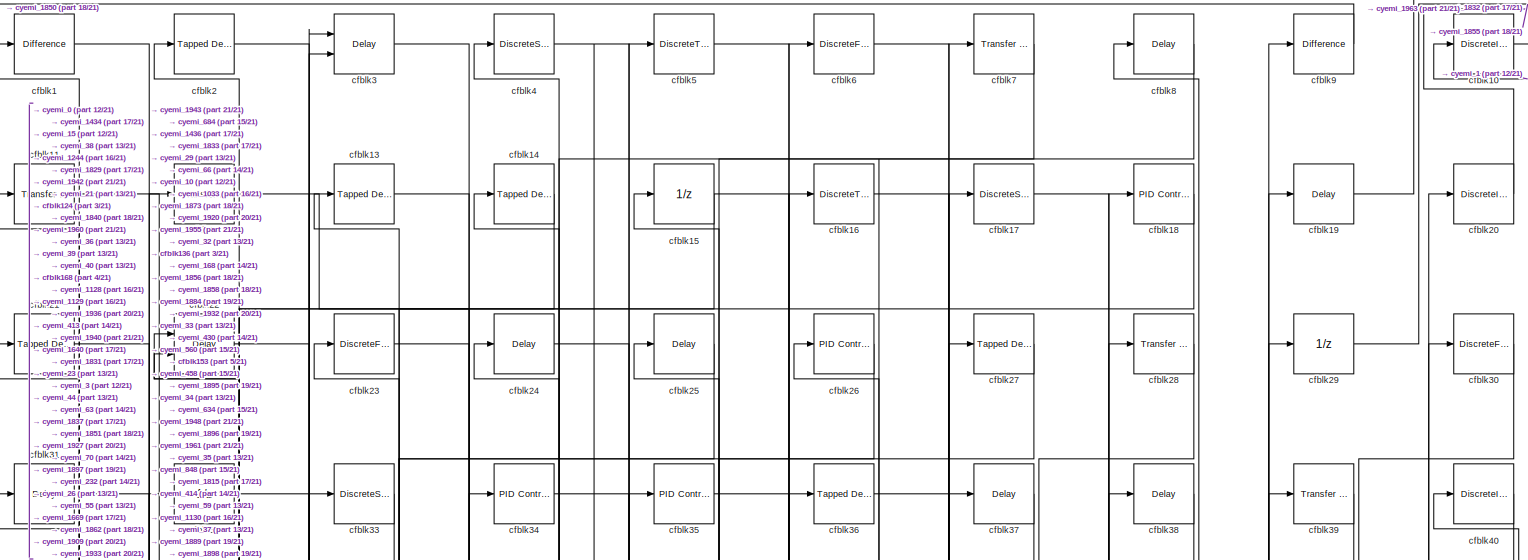
[diagram: root canvas - part 1/21, full width, top band]
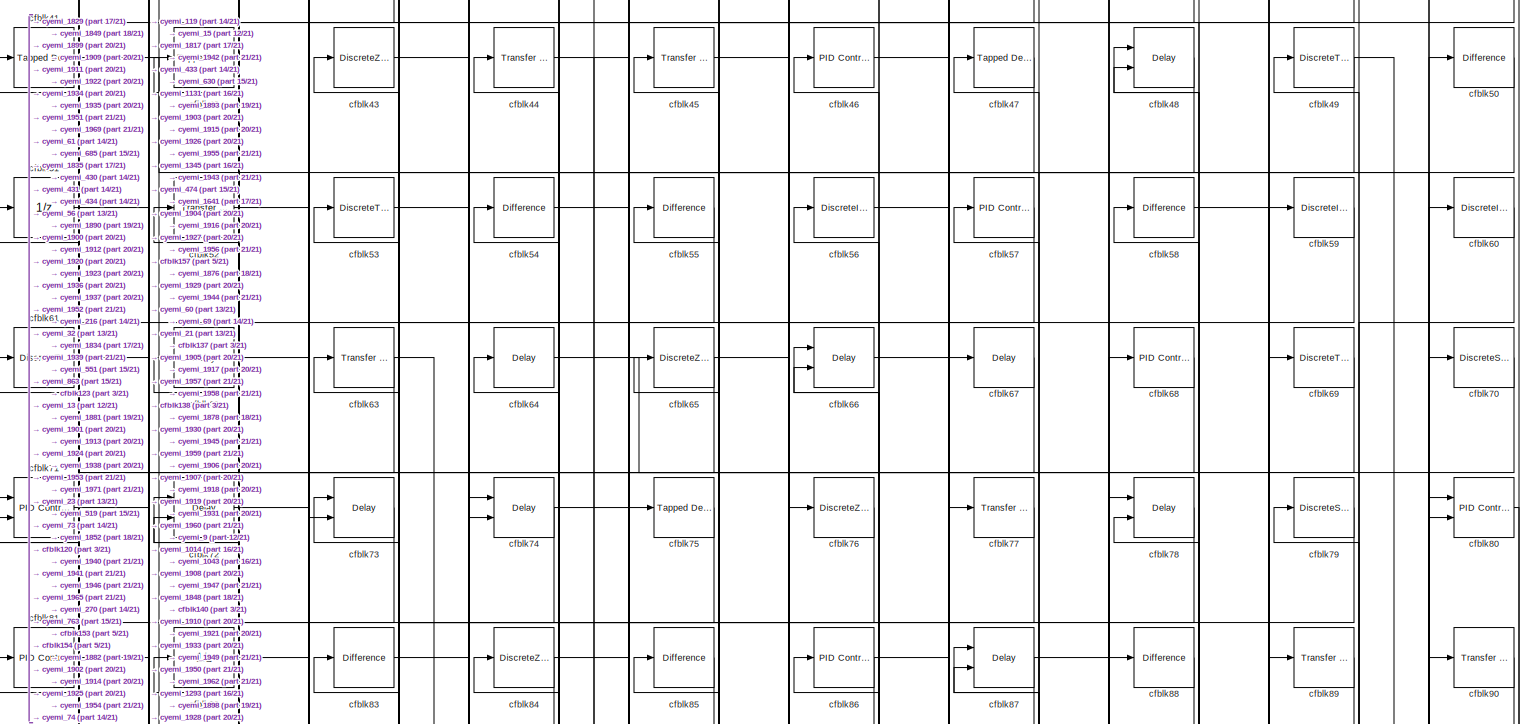
[diagram: root canvas - part 2/21, full width, top band]
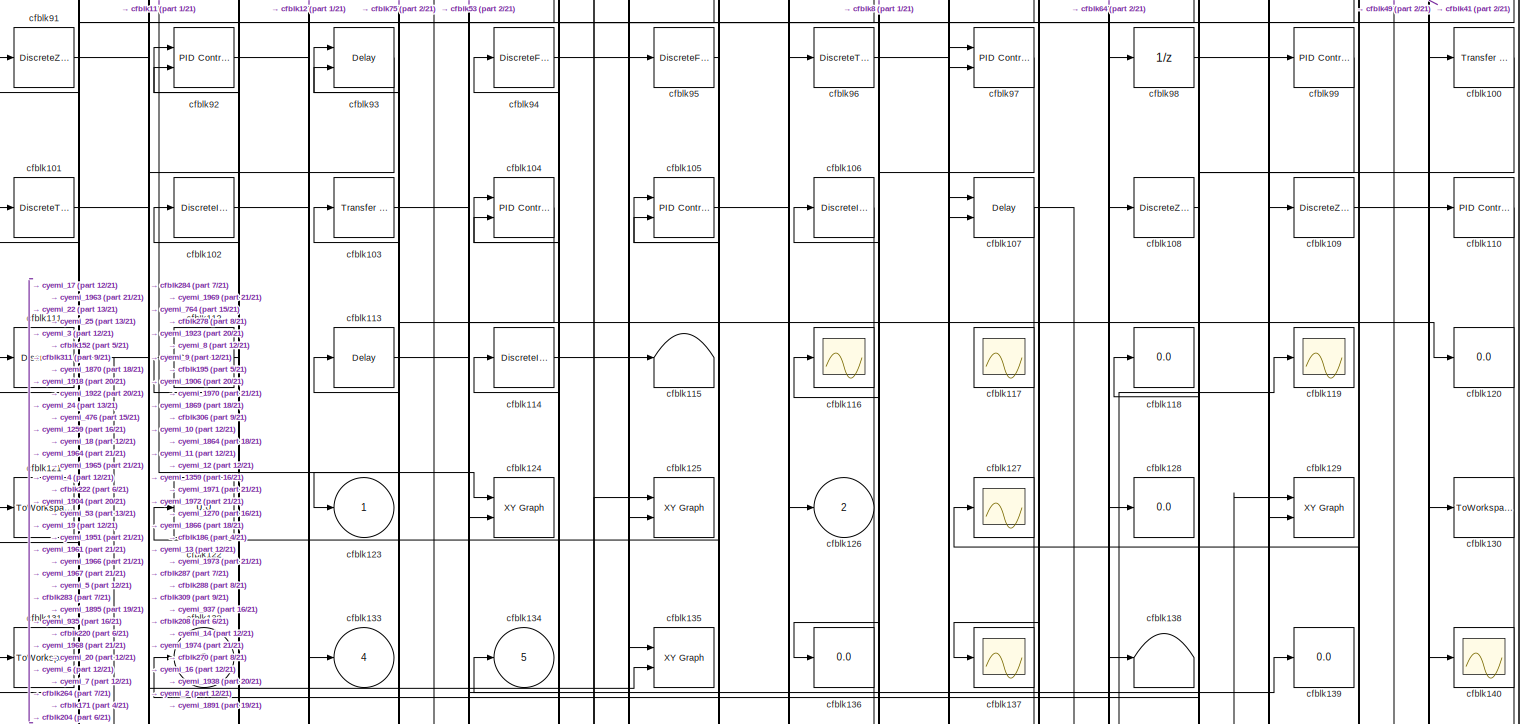
[diagram: root canvas - part 3/21, full width, top band]
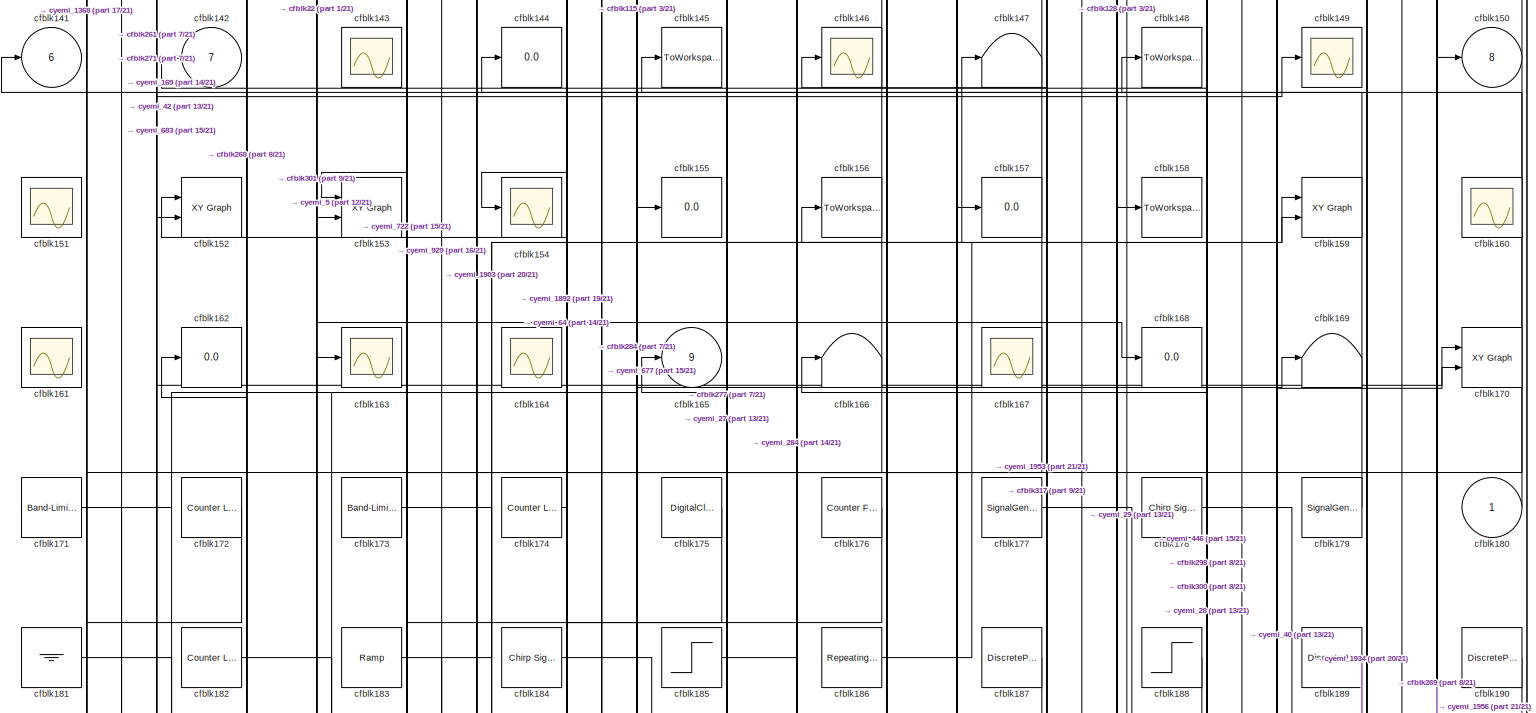
[diagram: root canvas - part 4/21, full width, top band]
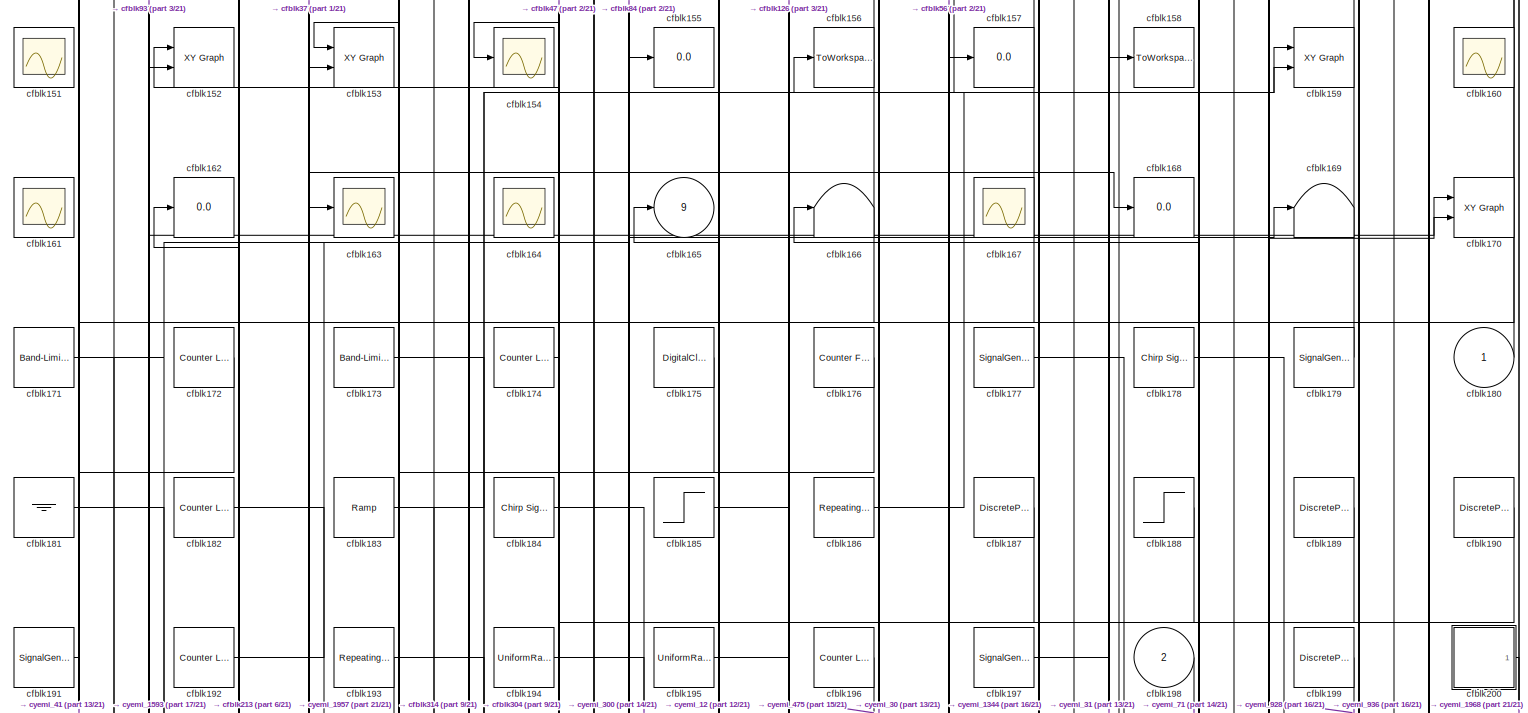
[diagram: root canvas - part 5/21, full width, top band]
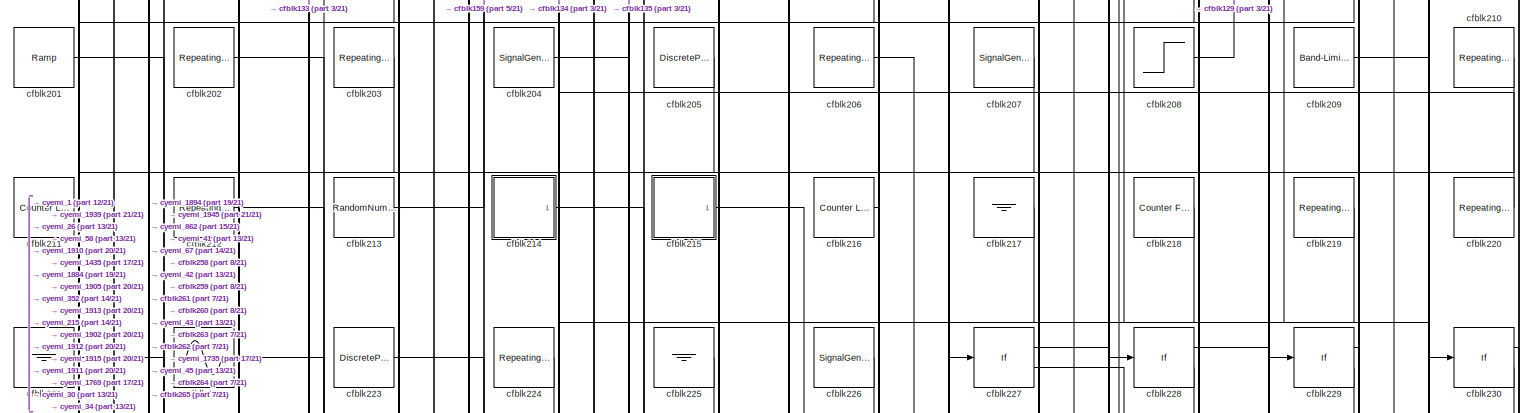
[diagram: root canvas - part 6/21, full width, top band]
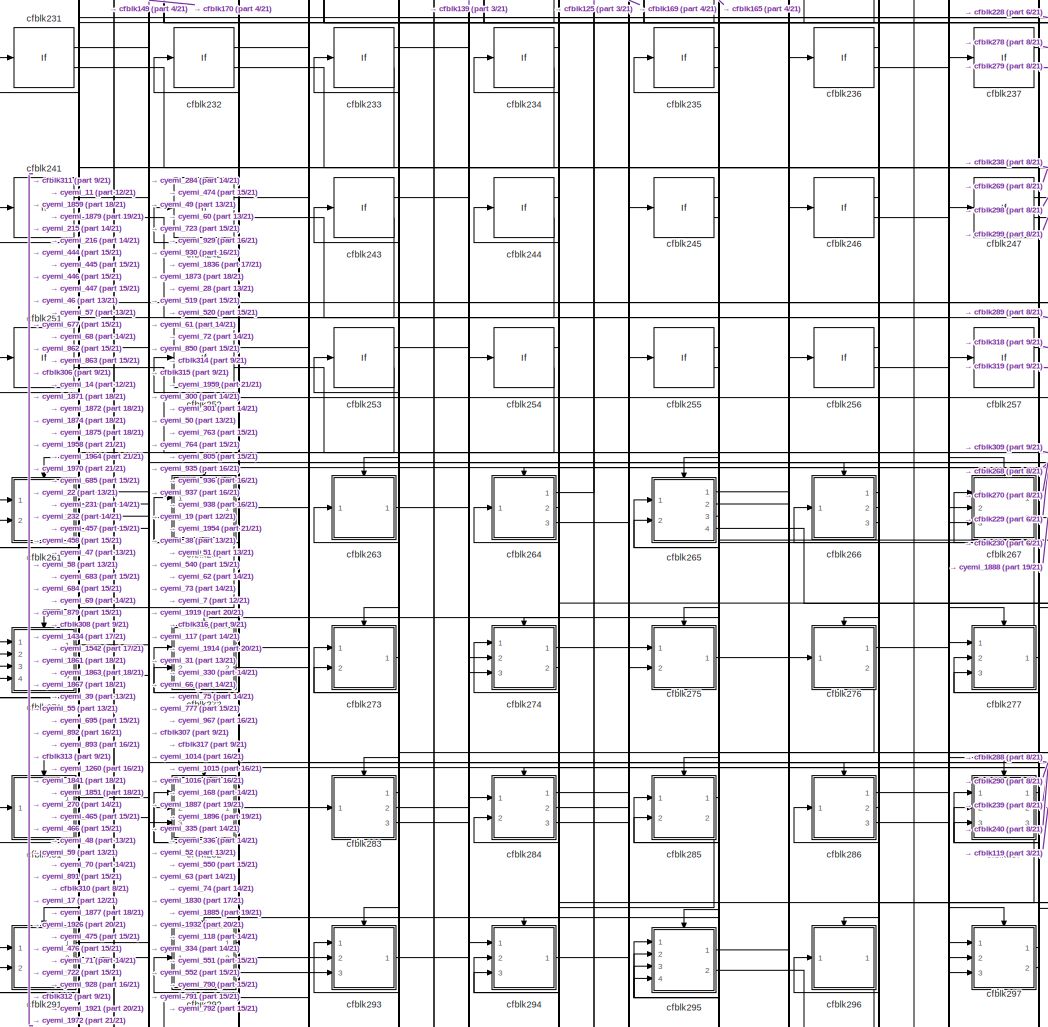
[diagram: root canvas - part 7/21, top center region]
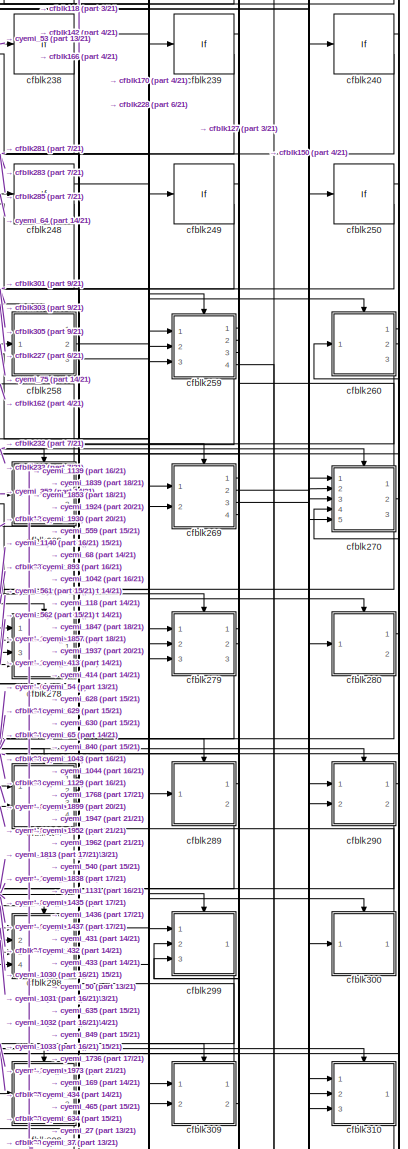
[diagram: root canvas - part 8/21, top right region]
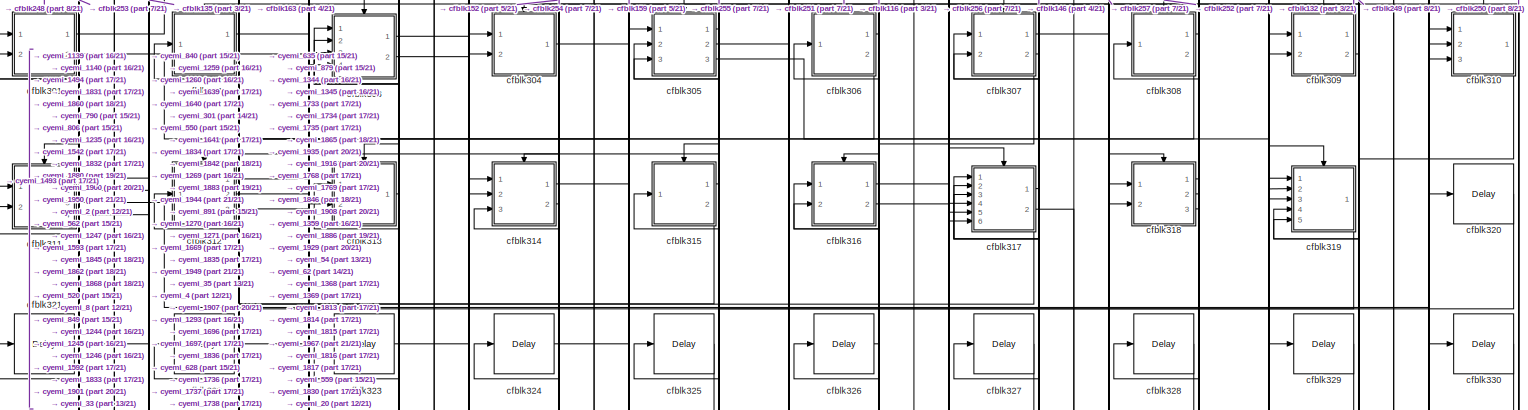
[diagram: root canvas - part 9/21, full width, middle band]
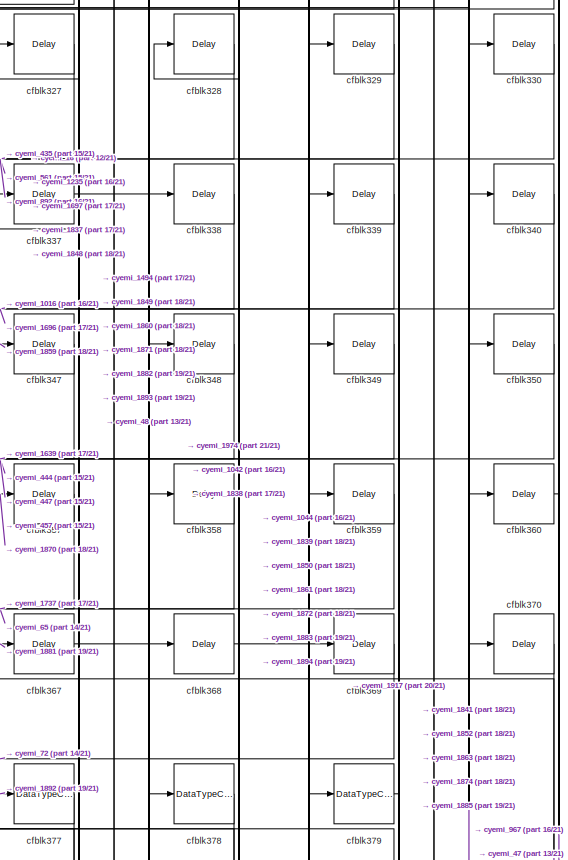
[diagram: root canvas - part 10/21, middle right region]
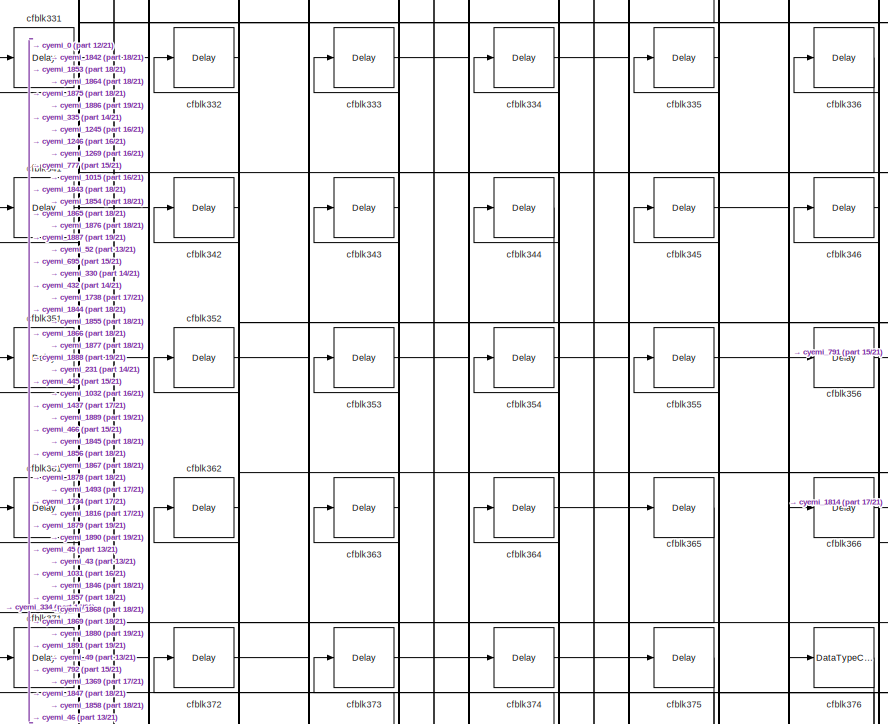
[diagram: root canvas - part 11/21, middle left region]
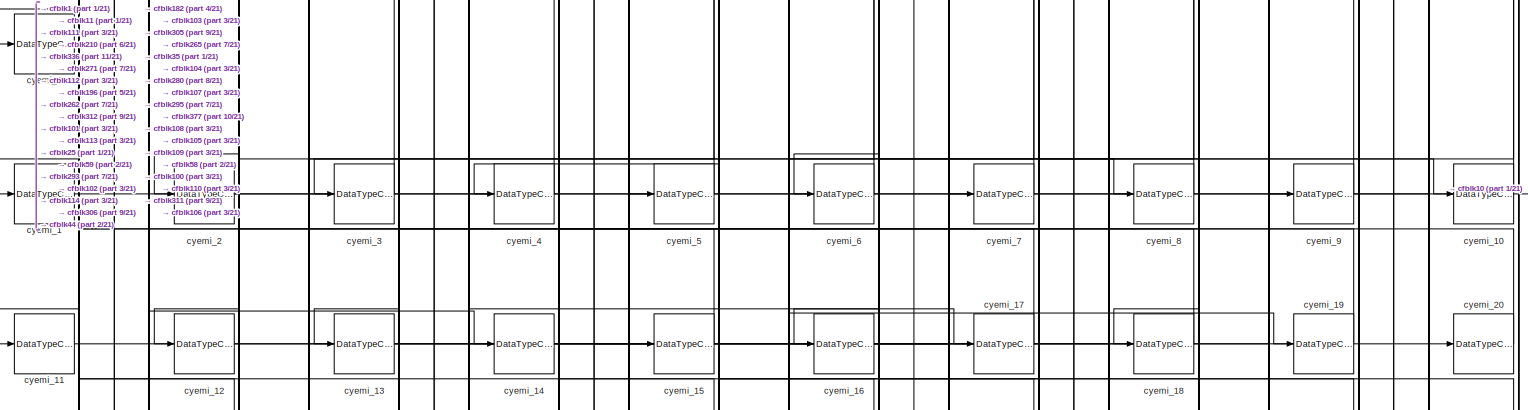
[diagram: root canvas - part 12/21, full width, middle band]
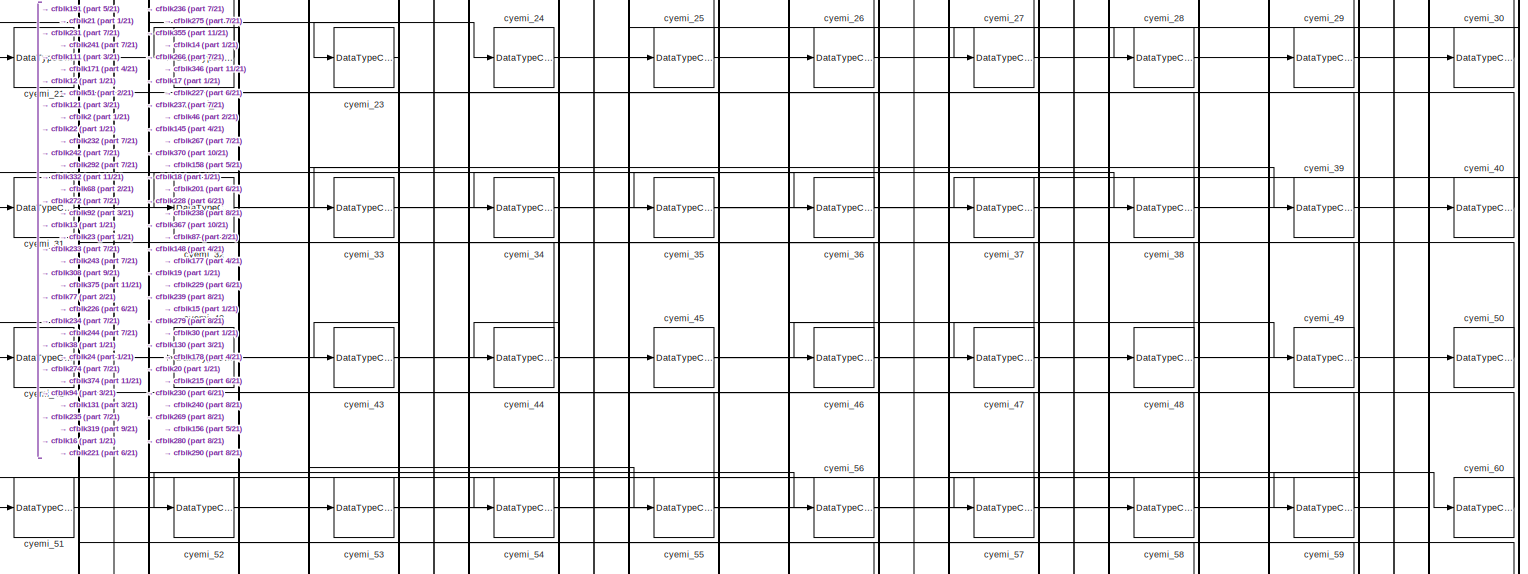
[diagram: root canvas - part 13/21, full width, middle band]
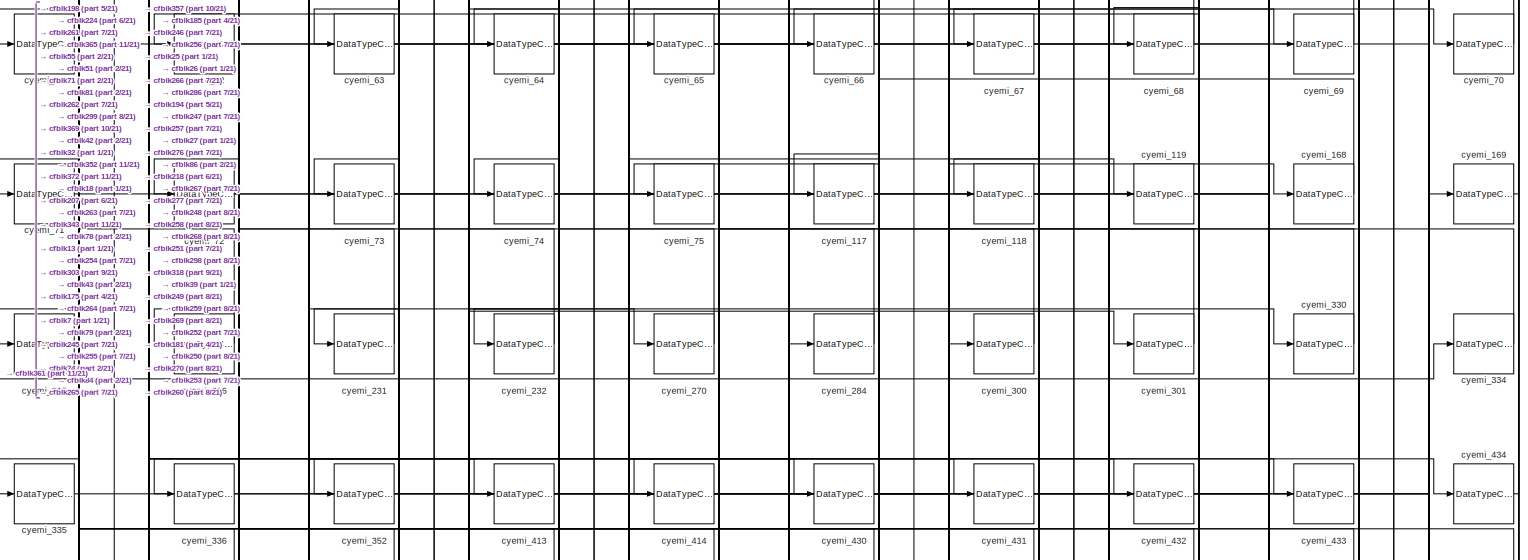
[diagram: root canvas - part 14/21, full width, bottom band]
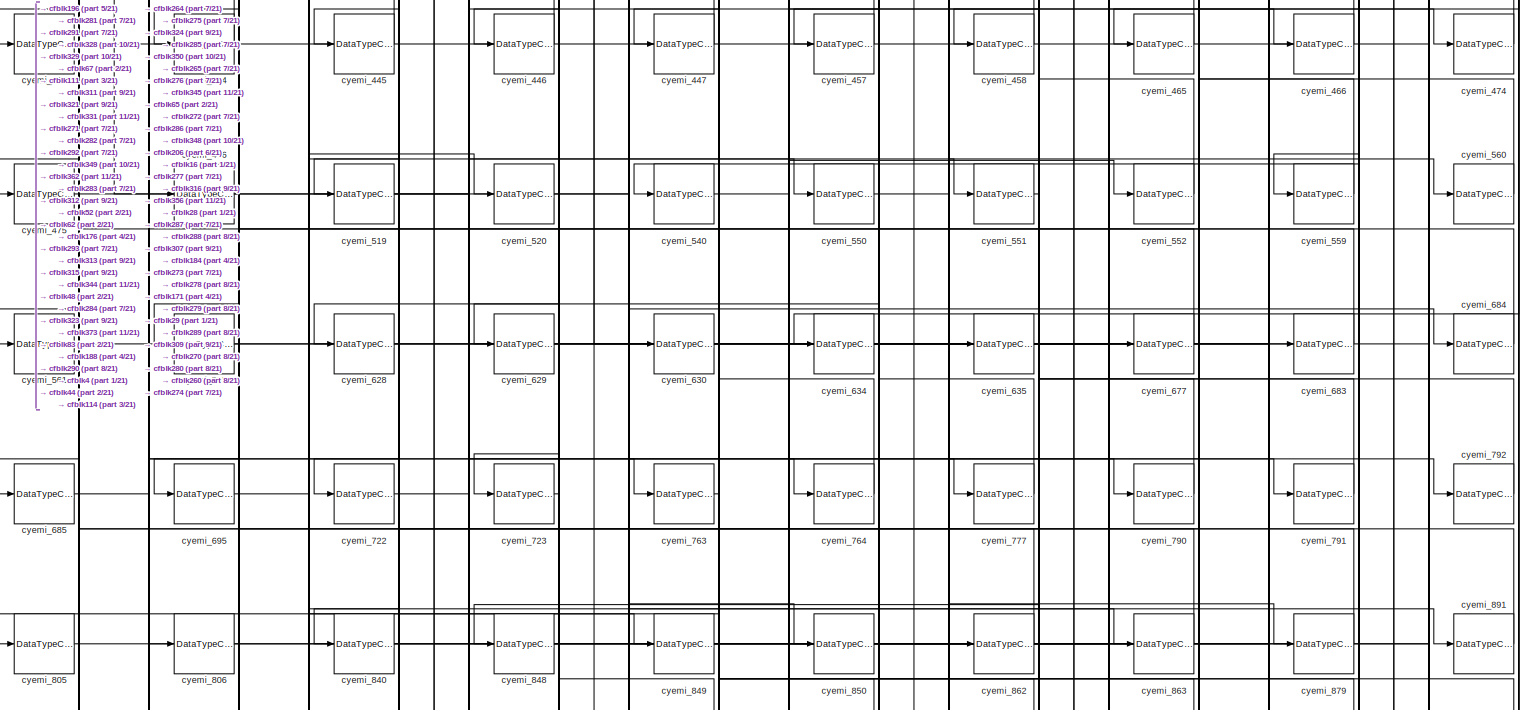
[diagram: root canvas - part 15/21, full width, bottom band]
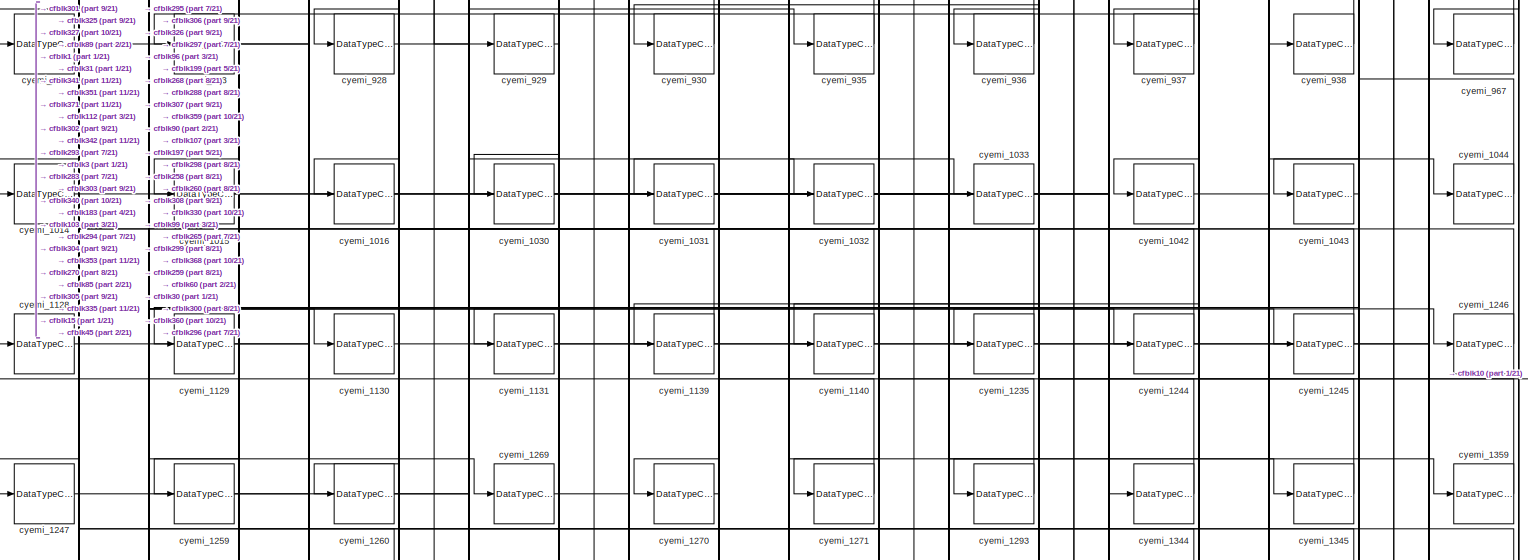
[diagram: root canvas - part 16/21, full width, bottom band]
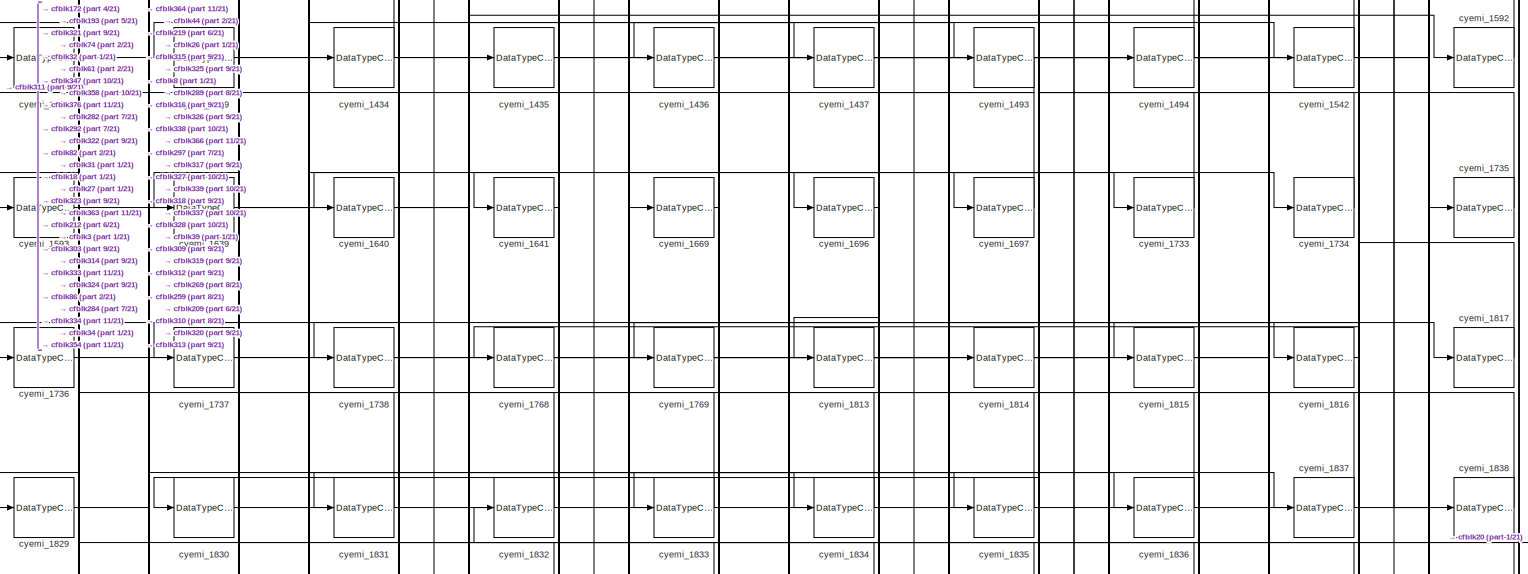
[diagram: root canvas - part 17/21, full width, bottom band]
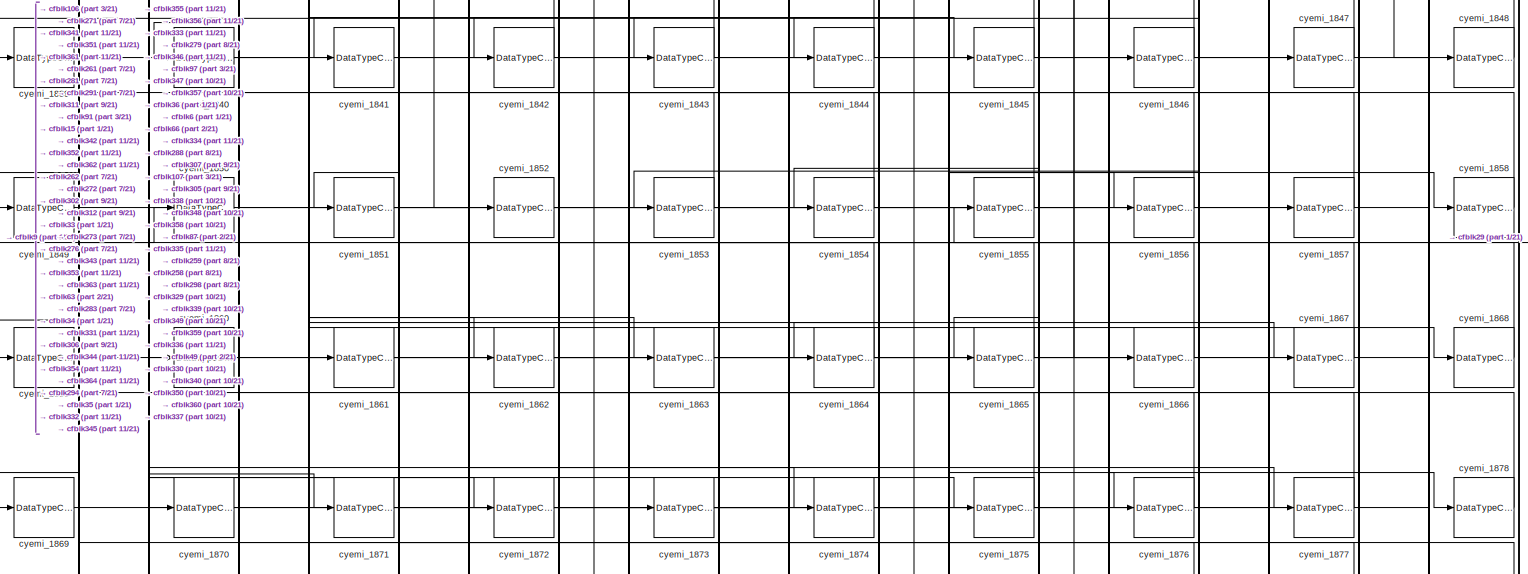
[diagram: root canvas - part 18/21, full width, bottom band]
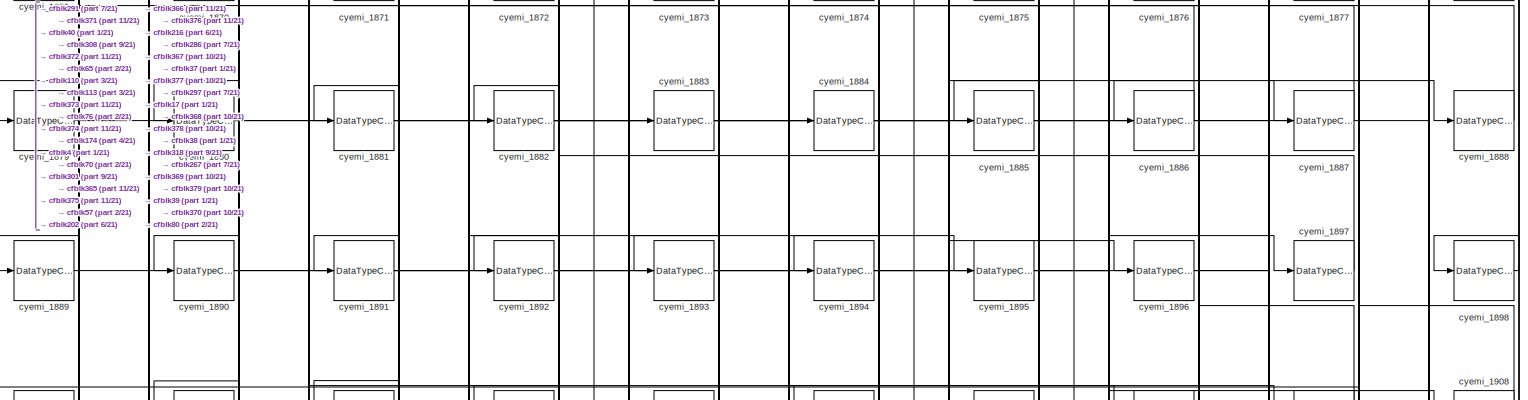
[diagram: root canvas - part 19/21, full width, bottom band]
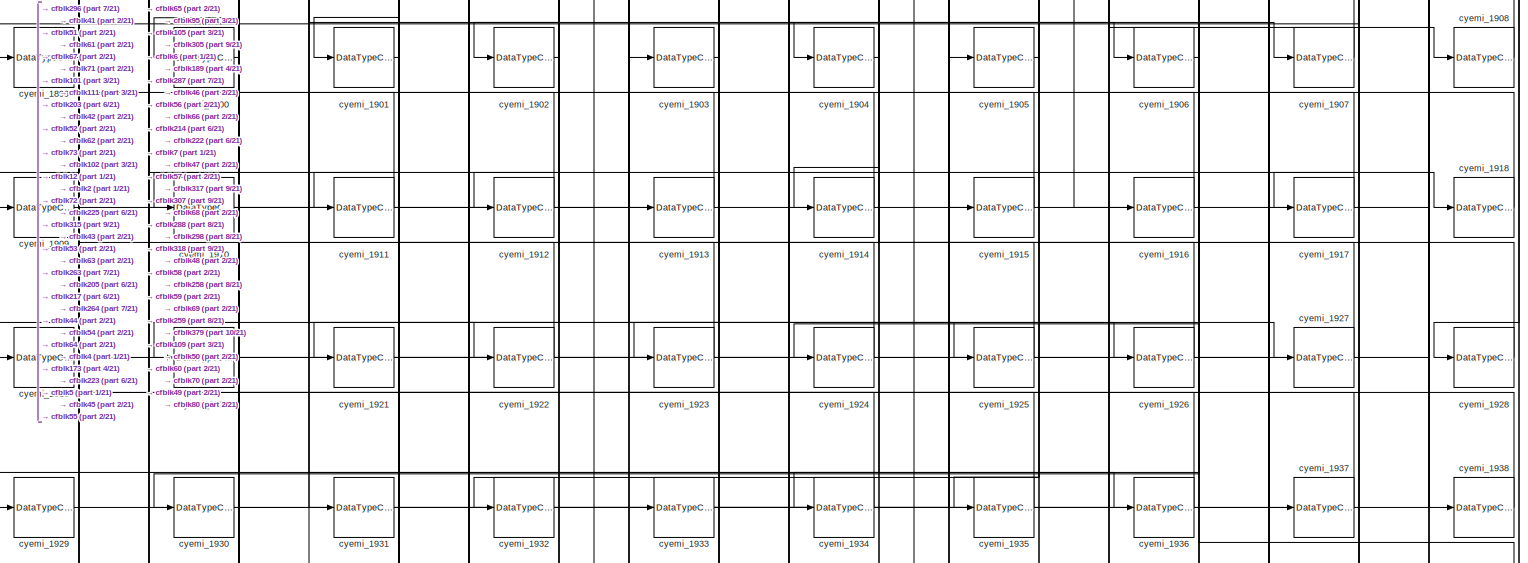
[diagram: root canvas - part 20/21, full width, bottom band]
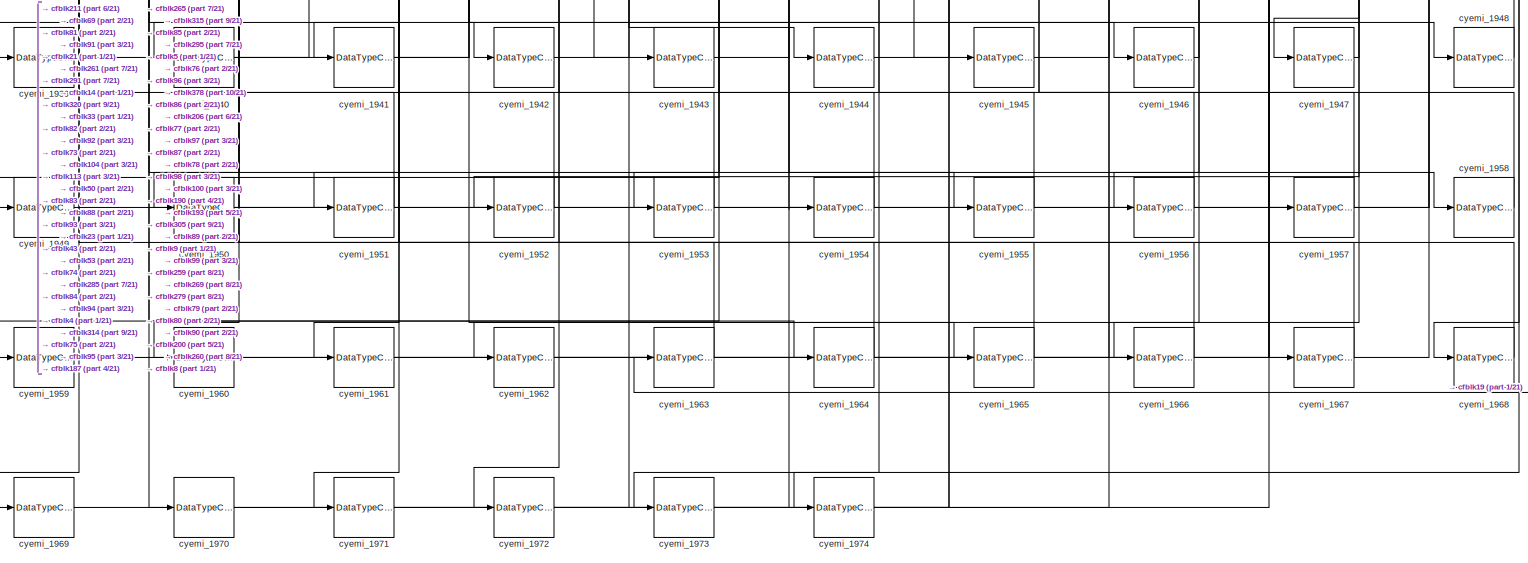
[diagram: root canvas - part 21/21, full width, bottom band]
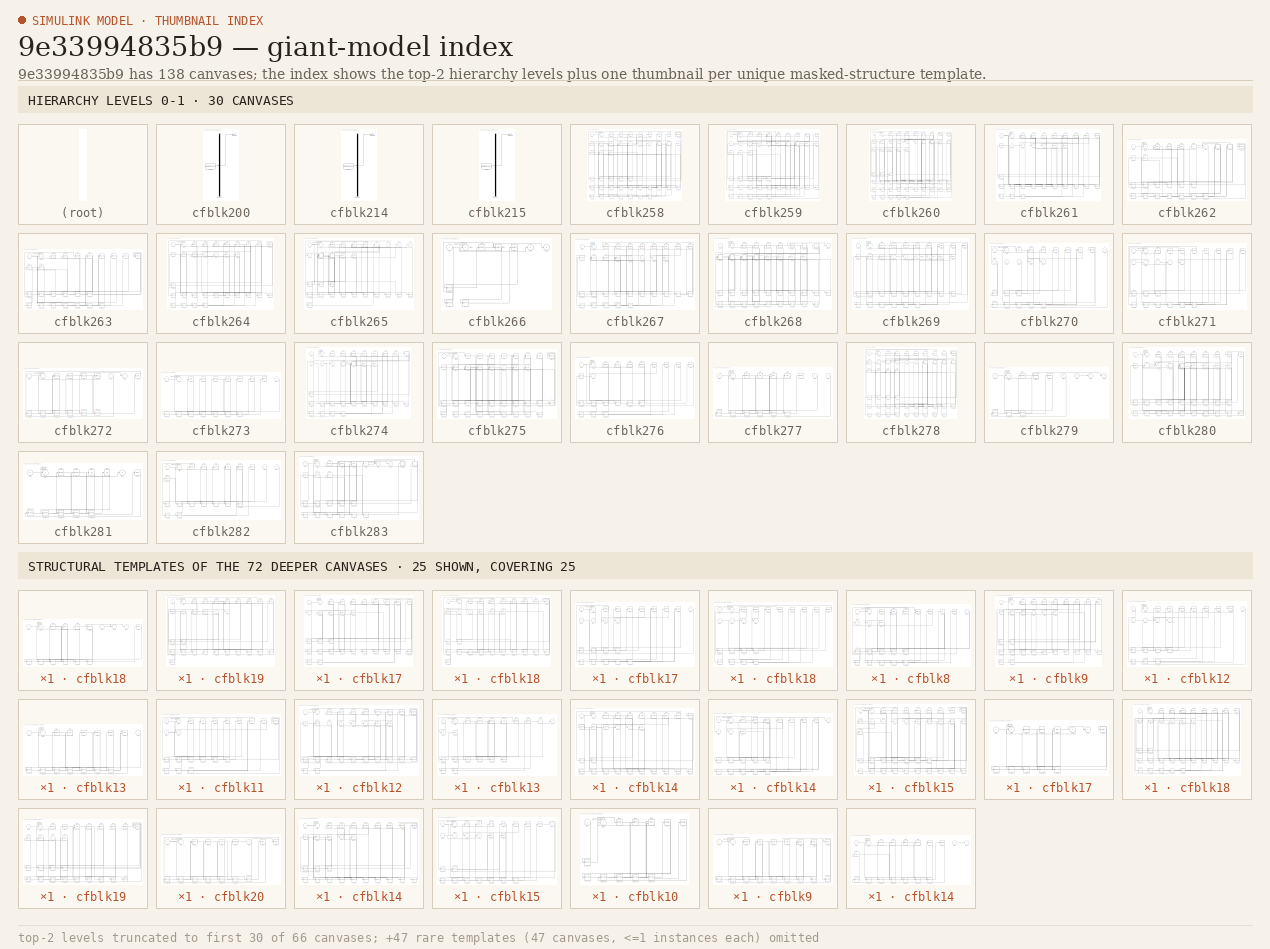
[diagram: thumbnail index - top-2 hierarchy levels (66 canvases (first 30 of 66 shown)) + 25 structural-template representatives of the remaining 72 canvases]
MODEL slx_9e33994835b9
KIND model
CONFIG AbsTol = auto
CONFIG EnableMultiTasking = off
CONFIG FixedStep = auto
CONFIG MaxStep = auto
CONFIG MinStep = auto
CONFIG RelTol = 1e-3
CONFIG SampleTimeConstraint = Unconstrained
CONFIG Solver = VariableStepAuto
CONFIG SolverName = VariableStepAuto
CONFIG StartTime = 0.0
CONFIG StopTime = 10.0
BLOCK [Reference] cfblk1  REF=simulink/Discrete/Difference
  Ports = [1, 1]
  SourceBlock = simulink/Discrete/Difference
  SourceProductBaseCode = SL
  SourceProductName = Simulink
  SourceType = Difference
BLOCK [DiscreteIntegrator] cfblk10
  ICPrevOutput = DiscIntNeverNeededParam
  ICPrevScaledInput = DiscIntNeverNeededParam
  InitialConditionSetting = Auto
  OutDataTypeStr = double
  Ports = [1, 1]
BLOCK [Reference] cfblk100  REF=simulink/Discrete/Transfer Fcn
Lead or Lag
  Ports = [1, 1]
  SourceBlock = simulink/Discrete/Transfer Fcn\nLead or Lag
  SourceProductBaseCode = SL
  SourceProductName = Simulink
  SourceType = Lead or Lag Compensator
BLOCK [DiscreteTransferFcn] cfblk101
  InputPortMap = u0
  Ports = [1, 1]
  SampleTime = 1
BLOCK [DiscreteIntegrator] cfblk102
  ICPrevOutput = DiscIntNeverNeededParam
  ICPrevScaledInput = DiscIntNeverNeededParam
  InitialConditionSetting = Auto
  OutDataTypeStr = double
  Ports = [1, 1]
BLOCK [Reference] cfblk103  REF=simulink/Discrete/Transfer Fcn
Real Zero
  Ports = [1, 1]
  SourceBlock = simulink/Discrete/Transfer Fcn\nReal Zero
  SourceProductBaseCode = SL
  SourceProductName = Simulink
  SourceType = Transfer Fcn Real Zero
BLOCK [Reference] cfblk104  REF=simulink/Continuous/PID Controller (2DOF)
  Ports = [2, 1]
  SourceBlock = simulink/Continuous/PID Controller (2DOF)
  SourceProductBaseCode = SL
  SourceProductName = Simulink
  SourceType = PID 2dof
BLOCK [Reference] cfblk105  REF=simulink/Continuous/PID Controller (2DOF)
  Ports = [2, 1]
  SourceBlock = simulink/Continuous/PID Controller (2DOF)
  SourceProductBaseCode = SL
  SourceProductName = Simulink
  SourceType = PID 2dof
BLOCK [DiscreteIntegrator] cfblk106
  ICPrevOutput = DiscIntNeverNeededParam
  ICPrevScaledInput = DiscIntNeverNeededParam
  InitialConditionSetting = Auto
  OutDataTypeStr = double
  Ports = [1, 1]
BLOCK [Delay] cfblk107
  DelayLengthSource = Input port
  InputPortMap = u0,p1
  Ports = [2, 1]
  SampleTime = 1
BLOCK [DiscreteZeroPole] cfblk108
  Gain = 1
  Poles = [0 0.5]
BLOCK [DiscreteZeroPole] cfblk109
  Gain = 1
  Poles = [0 0.5]
BLOCK [Reference] cfblk11  REF=simulink/Discrete/Transfer Fcn
First Order
  Ports = [1, 1]
  SourceBlock = simulink/Discrete/Transfer Fcn\nFirst Order
  SourceProductBaseCode = SL
  SourceProductName = Simulink
  SourceType = First Order Transfer Fcn
BLOCK [Reference] cfblk110  REF=simulink/Continuous/PID Controller
  Ports = [1, 1]
  SourceBlock = simulink/Continuous/PID Controller
  SourceProductBaseCode = SL
  SourceProductName = Simulink
  SourceType = PID 1dof
BLOCK [DiscreteIntegrator] cfblk111
  ICPrevOutput = DiscIntNeverNeededParam
  ICPrevScaledInput = DiscIntNeverNeededParam
  InitialConditionSetting = Auto
  OutDataTypeStr = double
  Ports = [1, 1]
BLOCK [DiscreteFilter] cfblk112
  InputPortMap = u0
  Ports = [1, 1]
  SampleTime = 1
BLOCK [Delay] cfblk113
  InputPortMap = u0
  Ports = [1, 1]
  SampleTime = 1
BLOCK [DiscreteIntegrator] cfblk114
  ICPrevOutput = DiscIntNeverNeededParam
  ICPrevScaledInput = DiscIntNeverNeededParam
  InitialConditionSetting = Auto
  OutDataTypeStr = double
  Ports = [1, 1]
BLOCK [Terminator] cfblk115
BLOCK [Scope] cfblk116
  Floating = off
  NumInputPorts = 1
  Ports = [1]
  ScopeSpecificationString = Simulink.scopes.TimeScopeBlockCfg('CurrentConfiguration', extmgr.ConfigurationSet(extmgr.Configuration('Core','General UI',true),extmgr.Configuration('Core','Source UI',true),extmgr.Configuration('Sources','WiredSimulink',true),extmgr.Configuration('Visuals','Time Domain',true),extmgr.Configuration('Tools','Plot Navigation',true),extmgr.Configuration('Tools','Measurements',true)),'Version','2018a'...<+1ch>  <repeated x16 — deduplicated; at blocks: cfblk116, cfblk117, cfblk119, cfblk127, cfblk137, cfblk140, cfblk143, cfblk146, cfblk149, cfblk151, cfblk154, cfblk160, cfblk161, cfblk163, cfblk164, cfblk167>
BLOCK [Scope] cfblk117
  Floating = on
  NumInputPorts = 1
  Ports = []
BLOCK [Display] cfblk118
  Decimation = 1
  Ports = [1]
BLOCK [Scope] cfblk119
  Floating = off
  NumInputPorts = 1
  Ports = [1]
BLOCK [Reference] cfblk12  REF=simulink/Discrete/Transfer Fcn
Real Zero
  Ports = [1, 1]
  SourceBlock = simulink/Discrete/Transfer Fcn\nReal Zero
  SourceProductBaseCode = SL
  SourceProductName = Simulink
  SourceType = Transfer Fcn Real Zero
BLOCK [Display] cfblk120
  Decimation = 1
  Ports = [1]
BLOCK [ToWorkspace] cfblk121
  FixptAsFi = on
  MaxDataPoints = inf
  Ports = [1]
  SampleTime = -1
  Save2DSignal = 3-D array (concatenate along third dimension)
  SaveFormat = Timeseries
  VariableName = ajgaihg
BLOCK [Display] cfblk122
  Decimation = 1
  Ports = [1]
BLOCK [Outport] cfblk123
  IconDisplay = Port number
BLOCK [Reference] cfblk124  REF=simulink/Sinks/XY Graph
  Ports = [2]
  SourceBlock = simulink/Sinks/XY Graph
  SourceProductBaseCode = SL
  SourceProductName = Simulink
  SourceType = XY scope.
BLOCK [Reference] cfblk125  REF=simulink/Sinks/XY Graph
  Ports = [2]
  SourceBlock = simulink/Sinks/XY Graph
  SourceProductBaseCode = SL
  SourceProductName = Simulink
  SourceType = XY scope.
BLOCK [Outport] cfblk126
  IconDisplay = Port number
  Port = 2
BLOCK [Scope] cfblk127
  Floating = off
  NumInputPorts = 1
  Ports = [1]
BLOCK [Display] cfblk128
  Decimation = 1
  Ports = [1]
BLOCK [Reference] cfblk129  REF=simulink/Sinks/XY Graph
  Ports = [2]
  SourceBlock = simulink/Sinks/XY Graph
  SourceProductBaseCode = SL
  SourceProductName = Simulink
  SourceType = XY scope.
BLOCK [Reference] cfblk13  REF=simulink/Discrete/Tapped Delay
  Ports = [1, 1]
  SourceBlock = simulink/Discrete/Tapped Delay
  SourceProductBaseCode = SL
  SourceProductName = Simulink
  SourceType = Tapped Delay Line
BLOCK [ToWorkspace] cfblk130
  FixptAsFi = on
  MaxDataPoints = inf
  Ports = [1]
  SampleTime = -1
  Save2DSignal = 3-D array (concatenate along third dimension)
  SaveFormat = Timeseries
  VariableName = uwfehsf
BLOCK [ToWorkspace] cfblk131
  FixptAsFi = on
  MaxDataPoints = inf
  Ports = [1]
  SampleTime = -1
  Save2DSignal = 3-D array (concatenate along third dimension)
  SaveFormat = Timeseries
  VariableName = zgsnsfd
BLOCK [Outport] cfblk132
  IconDisplay = Port number
  Port = 3
BLOCK [Outport] cfblk133
  IconDisplay = Port number
  Port = 4
BLOCK [Outport] cfblk134
  IconDisplay = Port number
  Port = 5
BLOCK [Reference] cfblk135  REF=simulink/Sinks/XY Graph
  Ports = [2]
  SourceBlock = simulink/Sinks/XY Graph
  SourceProductBaseCode = SL
  SourceProductName = Simulink
  SourceType = XY scope.
BLOCK [Display] cfblk136
  Decimation = 1
  Ports = [1]
BLOCK [Scope] cfblk137
  Floating = off
  NumInputPorts = 1
  Ports = [1]
BLOCK [Terminator] cfblk138
BLOCK [Display] cfblk139
  Decimation = 1
  Ports = [1]
BLOCK [Reference] cfblk14  REF=simulink/Discrete/Tapped Delay
  Ports = [1, 1]
  SourceBlock = simulink/Discrete/Tapped Delay
  SourceProductBaseCode = SL
  SourceProductName = Simulink
  SourceType = Tapped Delay Line
BLOCK [Scope] cfblk140
  Floating = off
  NumInputPorts = 1
  Ports = [1]
BLOCK [Outport] cfblk141
  IconDisplay = Port number
  Port = 6
BLOCK [Outport] cfblk142
  IconDisplay = Port number
  Port = 7
BLOCK [Scope] cfblk143
  Floating = on
  NumInputPorts = 1
  Ports = []
BLOCK [Display] cfblk144
  Decimation = 1
  Ports = [1]
BLOCK [ToWorkspace] cfblk145
  FixptAsFi = on
  MaxDataPoints = inf
  Ports = [1]
  SampleTime = -1
  Save2DSignal = 3-D array (concatenate along third dimension)
  SaveFormat = Timeseries
  VariableName = qxglayd
BLOCK [Scope] cfblk146
  Floating = off
  NumInputPorts = 1
  Ports = [1]
BLOCK [Terminator] cfblk147
BLOCK [ToWorkspace] cfblk148
  FixptAsFi = on
  MaxDataPoints = inf
  Ports = [1]
  SampleTime = -1
  Save2DSignal = 3-D array (concatenate along third dimension)
  SaveFormat = Timeseries
  VariableName = ajdkbiq
BLOCK [Scope] cfblk149
  Floating = off
  NumInputPorts = 1
  Ports = [1]
BLOCK [UnitDelay] cfblk15
  InputProcessing = Elements as channels (sample based)
BLOCK [Outport] cfblk150
  IconDisplay = Port number
  Port = 8
BLOCK [Scope] cfblk151
  Floating = on
  NumInputPorts = 1
  Ports = []
BLOCK [Reference] cfblk152  REF=simulink/Sinks/XY Graph
  Ports = [2]
  SourceBlock = simulink/Sinks/XY Graph
  SourceProductBaseCode = SL
  SourceProductName = Simulink
  SourceType = XY scope.
BLOCK [Reference] cfblk153  REF=simulink/Sinks/XY Graph
  Ports = [2]
  SourceBlock = simulink/Sinks/XY Graph
  SourceProductBaseCode = SL
  SourceProductName = Simulink
  SourceType = XY scope.
BLOCK [Scope] cfblk154
  Floating = off
  NumInputPorts = 1
  Ports = [1]
BLOCK [Display] cfblk155
  Decimation = 1
  Ports = [1]
BLOCK [ToWorkspace] cfblk156
  FixptAsFi = on
  MaxDataPoints = inf
  Ports = [1]
  SampleTime = -1
  Save2DSignal = 3-D array (concatenate along third dimension)
  SaveFormat = Timeseries
  VariableName = zvxkfyp
BLOCK [Display] cfblk157
  Decimation = 1
  Ports = [1]
BLOCK [ToWorkspace] cfblk158
  FixptAsFi = on
  MaxDataPoints = inf
  Ports = [1]
  SampleTime = -1
  Save2DSignal = 3-D array (concatenate along third dimension)
  SaveFormat = Timeseries
  VariableName = xydmkth
BLOCK [Reference] cfblk159  REF=simulink/Sinks/XY Graph
  Ports = [2]
  SourceBlock = simulink/Sinks/XY Graph
  SourceProductBaseCode = SL
  SourceProductName = Simulink
  SourceType = XY scope.
BLOCK [DiscreteTransferFcn] cfblk16
  InputPortMap = u0
  Ports = [1, 1]
  SampleTime = 1
BLOCK [Scope] cfblk160
  Floating = on
  NumInputPorts = 1
  Ports = []
BLOCK [Scope] cfblk161
  Floating = on
  NumInputPorts = 1
  Ports = []
BLOCK [Display] cfblk162
  Decimation = 1
  Ports = [1]
BLOCK [Scope] cfblk163
  Floating = off
  NumInputPorts = 1
  Ports = [1]
BLOCK [Scope] cfblk164
  Floating = on
  NumInputPorts = 1
  Ports = []
BLOCK [Outport] cfblk165
  IconDisplay = Port number
  Port = 9
BLOCK [Terminator] cfblk166
BLOCK [Scope] cfblk167
  Floating = on
  NumInputPorts = 1
  Ports = []
BLOCK [Display] cfblk168
  Decimation = 1
  Ports = [1]
BLOCK [Terminator] cfblk169
BLOCK [DiscreteStateSpace] cfblk17
BLOCK [Reference] cfblk170  REF=simulink/Sinks/XY Graph
  Ports = [2]
  SourceBlock = simulink/Sinks/XY Graph
  SourceProductBaseCode = SL
  SourceProductName = Simulink
  SourceType = XY scope.
BLOCK [Reference] cfblk171  REF=simulink/Sources/Band-Limited
White Noise
  Ports = [0, 1]
  SourceBlock = simulink/Sources/Band-Limited\nWhite Noise
  SourceProductBaseCode = SL
  SourceProductName = Simulink
  SourceType = Band-Limited White Noise.
BLOCK [Reference] cfblk172  REF=simulink/Sources/Counter
Limited
  Ports = [0, 1]
  SourceBlock = simulink/Sources/Counter\nLimited
  SourceProductBaseCode = SL
  SourceProductName = Simulink
  SourceType = Counter Limited
BLOCK [Reference] cfblk173  REF=simulink/Sources/Band-Limited
White Noise
  Ports = [0, 1]
  SourceBlock = simulink/Sources/Band-Limited\nWhite Noise
  SourceProductBaseCode = SL
  SourceProductName = Simulink
  SourceType = Band-Limited White Noise.
BLOCK [Reference] cfblk174  REF=simulink/Sources/Counter
Limited
  Ports = [0, 1]
  SourceBlock = simulink/Sources/Counter\nLimited
  SourceProductBaseCode = SL
  SourceProductName = Simulink
  SourceType = Counter Limited
BLOCK [DigitalClock] cfblk175
BLOCK [Reference] cfblk176  REF=simulink/Sources/Counter
Free-Running
  Ports = [0, 1]
  SourceBlock = simulink/Sources/Counter\nFree-Running
  SourceProductBaseCode = SL
  SourceProductName = Simulink
  SourceType = Counter Free-Running
BLOCK [SignalGenerator] cfblk177
  Ports = [0, 1]
  Units = rad/sec
BLOCK [Reference] cfblk178  REF=simulink/Sources/Chirp Signal
  Ports = [0, 1]
  SourceBlock = simulink/Sources/Chirp Signal
  SourceProductBaseCode = SL
  SourceProductName = Simulink
  SourceType = chirp
BLOCK [SignalGenerator] cfblk179
  Ports = [0, 1]
  Units = rad/sec
BLOCK [Reference] cfblk18  REF=simulink/Continuous/PID Controller
  Ports = [1, 1]
  SourceBlock = simulink/Continuous/PID Controller
  SourceProductBaseCode = SL
  SourceProductName = Simulink
  SourceType = PID 1dof
BLOCK [Inport] cfblk180
  IconDisplay = Port number
BLOCK [Ground] cfblk181
BLOCK [Reference] cfblk182  REF=simulink/Sources/Counter
Limited
  Ports = [0, 1]
  SourceBlock = simulink/Sources/Counter\nLimited
  SourceProductBaseCode = SL
  SourceProductName = Simulink
  SourceType = Counter Limited
BLOCK [Reference] cfblk183  REF=simulink/Sources/Ramp
  Ports = [0, 1]
  SourceBlock = simulink/Sources/Ramp
  SourceProductBaseCode = SL
  SourceProductName = Simulink
  SourceType = Ramp
BLOCK [Reference] cfblk184  REF=simulink/Sources/Chirp Signal
  Ports = [0, 1]
  SourceBlock = simulink/Sources/Chirp Signal
  SourceProductBaseCode = SL
  SourceProductName = Simulink
  SourceType = chirp
BLOCK [Step] cfblk185
  After = 67
  SampleTime = 0
BLOCK [Reference] cfblk186  REF=simulink/Sources/Repeating
Sequence
  Ports = [0, 1]
  SourceBlock = simulink/Sources/Repeating\nSequence
  SourceProductBaseCode = SL
  SourceProductName = Simulink
  SourceType = Repeating table
BLOCK [DiscretePulseGenerator] cfblk187
  Period = 10
  Ports = [0, 1]
  PulseType = Time based
  PulseWidth = 5
BLOCK [Step] cfblk188
  After = 98
  SampleTime = 0
BLOCK [DiscretePulseGenerator] cfblk189
  Period = 10
  Ports = [0, 1]
  PulseType = Time based
  PulseWidth = 5
BLOCK [Delay] cfblk19
  InputPortMap = u0
  Ports = [1, 1]
  SampleTime = 1
BLOCK [DiscretePulseGenerator] cfblk190
  Period = 10
  Ports = [0, 1]
  PulseType = Time based
  PulseWidth = 5
BLOCK [SignalGenerator] cfblk191
  Ports = [0, 1]
  Units = rad/sec
BLOCK [Reference] cfblk192  REF=simulink/Sources/Counter
Limited
  Ports = [0, 1]
  SourceBlock = simulink/Sources/Counter\nLimited
  SourceProductBaseCode = SL
  SourceProductName = Simulink
  SourceType = Counter Limited
BLOCK [Reference] cfblk193  REF=simulink/Sources/Repeating
Sequence
Interpolated
  Ports = [0, 1]
  SourceBlock = simulink/Sources/Repeating\nSequence\nInterpolated
  SourceProductBaseCode = SL
  SourceProductName = Simulink
  SourceType = Repeating Sequence Interpolated
BLOCK [UniformRandomNumber] cfblk194
  SampleTime = 0.1
BLOCK [UniformRandomNumber] cfblk195
  SampleTime = 0.1
BLOCK [Reference] cfblk196  REF=simulink/Sources/Counter
Limited
  Ports = [0, 1]
  SourceBlock = simulink/Sources/Counter\nLimited
  SourceProductBaseCode = SL
  SourceProductName = Simulink
  SourceType = Counter Limited
BLOCK [SignalGenerator] cfblk197
  Ports = [0, 1]
  Units = rad/sec
BLOCK [Inport] cfblk198
  IconDisplay = Port number
  Port = 2
BLOCK [DiscretePulseGenerator] cfblk199
  Period = 10
  Ports = [0, 1]
  PulseType = Time based
  PulseWidth = 5
BLOCK [Reference] cfblk2  REF=simulink/Discrete/Tapped Delay
  Ports = [1, 1]
  SourceBlock = simulink/Discrete/Tapped Delay
  SourceProductBaseCode = SL
  SourceProductName = Simulink
  SourceType = Tapped Delay Line
BLOCK [DiscreteIntegrator] cfblk20
  ICPrevOutput = DiscIntNeverNeededParam
  ICPrevScaledInput = DiscIntNeverNeededParam
  InitialConditionSetting = Auto
  OutDataTypeStr = double
  Ports = [1, 1]
BLOCK [SubSystem] cfblk200
  ClipboardFcn = sigbuilder_block('clipboard');
  CloseFcn = sigbuilder_block('close');
  ContinueFcn = sigbuilder_block('continue');
  CopyFcn = sigbuilder_block('copy');
  DeleteFcn = sigbuilder_block('delete');
  LoadFcn = sigbuilder_block('load');
  MaskHideContents = on
  ModelCloseFcn = sigbuilder_block('modelClose');
  NameChangeFcn = sigbuilder_block('namechange');
  OpenFcn = sigbuilder_block('open',[437.6 199.2 550.4 400 ]);
  PauseFcn = sigbuilder_block('pause');
  Ports = [0, 1]
  PreSaveFcn = sigbuilder_block('preSave');
  RequestExecContextInheritance = off
  StartFcn = sigbuilder_block('start');
  StopFcn = sigbuilder_block('stop');
  Tag = STV Subsys
BLOCK [Demux] cfblk200/Demux
  Outputs = 1
  Ports = [1, 1]
  Tag = STV Demux
BLOCK [FromWorkspace] cfblk200/FromWs
  SampleTime = 0
  Tag = STV FromWs
  VariableName = tuvar
  ZeroCross = on
BLOCK [Outport] cfblk200/Signal 1
  IconDisplay = Port number
  Tag = STV Outport
BLOCK [Reference] cfblk201  REF=simulink/Sources/Ramp
  Ports = [0, 1]
  SourceBlock = simulink/Sources/Ramp
  SourceProductBaseCode = SL
  SourceProductName = Simulink
  SourceType = Ramp
BLOCK [Reference] cfblk202  REF=simulink/Sources/Repeating
Sequence
Stair
  Ports = [0, 1]
  SourceBlock = simulink/Sources/Repeating\nSequence\nStair
  SourceProductBaseCode = SL
  SourceProductName = Simulink
  SourceType = Repeating Sequence Stair
BLOCK [Reference] cfblk203  REF=simulink/Sources/Repeating
Sequence
Stair
  Ports = [0, 1]
  SourceBlock = simulink/Sources/Repeating\nSequence\nStair
  SourceProductBaseCode = SL
  SourceProductName = Simulink
  SourceType = Repeating Sequence Stair
BLOCK [SignalGenerator] cfblk204
  Ports = [0, 1]
  Units = rad/sec
BLOCK [DiscretePulseGenerator] cfblk205
  Period = 10
  Ports = [0, 1]
  PulseType = Time based
  PulseWidth = 5
BLOCK [Reference] cfblk206  REF=simulink/Sources/Repeating
Sequence
Interpolated
  Ports = [0, 1]
  SourceBlock = simulink/Sources/Repeating\nSequence\nInterpolated
  SourceProductBaseCode = SL
  SourceProductName = Simulink
  SourceType = Repeating Sequence Interpolated
BLOCK [SignalGenerator] cfblk207
  Ports = [0, 1]
  Units = rad/sec
BLOCK [Step] cfblk208
  After = 14
  SampleTime = 0
BLOCK [Reference] cfblk209  REF=simulink/Sources/Band-Limited
White Noise
  Ports = [0, 1]
  SourceBlock = simulink/Sources/Band-Limited\nWhite Noise
  SourceProductBaseCode = SL
  SourceProductName = Simulink
  SourceType = Band-Limited White Noise.
BLOCK [Reference] cfblk21  REF=simulink/Discrete/Tapped Delay
  Ports = [1, 1]
  SourceBlock = simulink/Discrete/Tapped Delay
  SourceProductBaseCode = SL
  SourceProductName = Simulink
  SourceType = Tapped Delay Line
BLOCK [Reference] cfblk210  REF=simulink/Sources/Repeating
Sequence
  Ports = [0, 1]
  SourceBlock = simulink/Sources/Repeating\nSequence
  SourceProductBaseCode = SL
  SourceProductName = Simulink
  SourceType = Repeating table
BLOCK [Reference] cfblk211  REF=simulink/Sources/Counter
Limited
  Ports = [0, 1]
  SourceBlock = simulink/Sources/Counter\nLimited
  SourceProductBaseCode = SL
  SourceProductName = Simulink
  SourceType = Counter Limited
BLOCK [Reference] cfblk212  REF=simulink/Sources/Repeating
Sequence
Interpolated
  Ports = [0, 1]
  SourceBlock = simulink/Sources/Repeating\nSequence\nInterpolated
  SourceProductBaseCode = SL
  SourceProductName = Simulink
  SourceType = Repeating Sequence Interpolated
BLOCK [RandomNumber] cfblk213
  SampleTime = 0.1
BLOCK [SubSystem] cfblk214
  ClipboardFcn = sigbuilder_block('clipboard');
  CloseFcn = sigbuilder_block('close');
  ContinueFcn = sigbuilder_block('continue');
  CopyFcn = sigbuilder_block('copy');
  DeleteFcn = sigbuilder_block('delete');
  LoadFcn = sigbuilder_block('load');
  MaskHideContents = on
  ModelCloseFcn = sigbuilder_block('modelClose');
  NameChangeFcn = sigbuilder_block('namechange');
  OpenFcn = sigbuilder_block('open',[437.6 199.2 550.4 400 ]);
  PauseFcn = sigbuilder_block('pause');
  Ports = [0, 1]
  PreSaveFcn = sigbuilder_block('preSave');
  RequestExecContextInheritance = off
  StartFcn = sigbuilder_block('start');
  StopFcn = sigbuilder_block('stop');
  Tag = STV Subsys
BLOCK [Demux] cfblk214/Demux
  Outputs = 1
  Ports = [1, 1]
  Tag = STV Demux
BLOCK [FromWorkspace] cfblk214/FromWs
  SampleTime = 0
  Tag = STV FromWs
  VariableName = tuvar
  ZeroCross = on
BLOCK [Outport] cfblk214/Signal 1
  IconDisplay = Port number
  Tag = STV Outport
BLOCK [SubSystem] cfblk215
  ClipboardFcn = sigbuilder_block('clipboard');
  CloseFcn = sigbuilder_block('close');
  ContinueFcn = sigbuilder_block('continue');
  CopyFcn = sigbuilder_block('copy');
  DeleteFcn = sigbuilder_block('delete');
  LoadFcn = sigbuilder_block('load');
  MaskHideContents = on
  ModelCloseFcn = sigbuilder_block('modelClose');
  NameChangeFcn = sigbuilder_block('namechange');
  OpenFcn = sigbuilder_block('open',[437.6 199.2 550.4 400 ]);
  PauseFcn = sigbuilder_block('pause');
  Ports = [0, 1]
  PreSaveFcn = sigbuilder_block('preSave');
  RequestExecContextInheritance = off
  StartFcn = sigbuilder_block('start');
  StopFcn = sigbuilder_block('stop');
  Tag = STV Subsys
BLOCK [Demux] cfblk215/Demux
  Outputs = 1
  Ports = [1, 1]
  Tag = STV Demux
BLOCK [FromWorkspace] cfblk215/FromWs
  SampleTime = 0
  Tag = STV FromWs
  VariableName = tuvar
  ZeroCross = on
BLOCK [Outport] cfblk215/Signal 1
  IconDisplay = Port number
  Tag = STV Outport
BLOCK [Reference] cfblk216  REF=simulink/Sources/Counter
Limited
  Ports = [0, 1]
  SourceBlock = simulink/Sources/Counter\nLimited
  SourceProductBaseCode = SL
  SourceProductName = Simulink
  SourceType = Counter Limited
BLOCK [Ground] cfblk217
BLOCK [Reference] cfblk218  REF=simulink/Sources/Counter
Free-Running
  Ports = [0, 1]
  SourceBlock = simulink/Sources/Counter\nFree-Running
  SourceProductBaseCode = SL
  SourceProductName = Simulink
  SourceType = Counter Free-Running
BLOCK [Reference] cfblk219  REF=simulink/Sources/Repeating
Sequence
Interpolated
  Ports = [0, 1]
  SourceBlock = simulink/Sources/Repeating\nSequence\nInterpolated
  SourceProductBaseCode = SL
  SourceProductName = Simulink
  SourceType = Repeating Sequence Interpolated
BLOCK [Delay] cfblk22
  DelayLengthSource = Input port
  InputPortMap = u0,p1
  Ports = [2, 1]
  SampleTime = 1
BLOCK [Reference] cfblk220  REF=simulink/Sources/Repeating
Sequence
  Ports = [0, 1]
  SourceBlock = simulink/Sources/Repeating\nSequence
  SourceProductBaseCode = SL
  SourceProductName = Simulink
  SourceType = Repeating table
BLOCK [Ground] cfblk221
BLOCK [Sin] cfblk222
  Ports = [0, 1]
  SampleTime = 0
BLOCK [DiscretePulseGenerator] cfblk223
  Period = 10
  Ports = [0, 1]
  PulseType = Time based
  PulseWidth = 5
BLOCK [Reference] cfblk224  REF=simulink/Sources/Repeating
Sequence
  Ports = [0, 1]
  SourceBlock = simulink/Sources/Repeating\nSequence
  SourceProductBaseCode = SL
  SourceProductName = Simulink
  SourceType = Repeating table
BLOCK [Ground] cfblk225
BLOCK [SignalGenerator] cfblk226
  Ports = [0, 1]
  Units = rad/sec
BLOCK [If] cfblk227
  Ports = [1, 2]
  SampleTime = 1
BLOCK [If] cfblk228
  Ports = [1, 2]
  SampleTime = 1
BLOCK [If] cfblk229
  Ports = [1, 2]
  SampleTime = 1
BLOCK [DiscreteFilter] cfblk23
  InputPortMap = u0
  Ports = [1, 1]
  SampleTime = 1
BLOCK [If] cfblk230
  Ports = [1, 2]
  SampleTime = 1
BLOCK [If] cfblk231
  Ports = [1, 2]
  SampleTime = 1
BLOCK [If] cfblk232
  Ports = [1, 2]
  SampleTime = 1
BLOCK [If] cfblk233
  Ports = [1, 2]
  SampleTime = 1
BLOCK [If] cfblk234
  Ports = [1, 2]
  SampleTime = 1
BLOCK [If] cfblk235
  Ports = [1, 2]
  SampleTime = 1
BLOCK [If] cfblk236
  Ports = [1, 2]
  SampleTime = 1
BLOCK [If] cfblk237
  Ports = [1, 2]
  SampleTime = 1
BLOCK [If] cfblk238
  Ports = [1, 2]
  SampleTime = 1
BLOCK [If] cfblk239
  Ports = [1, 2]
  SampleTime = 1
BLOCK [Delay] cfblk24
  InputPortMap = u0
  Ports = [1, 1]
  SampleTime = 1
BLOCK [If] cfblk240
  Ports = [1, 2]
  SampleTime = 1
BLOCK [If] cfblk241
  Ports = [1, 2]
  SampleTime = 1
BLOCK [If] cfblk242
  Ports = [1, 2]
  SampleTime = 1
BLOCK [If] cfblk243
  Ports = [1, 2]
  SampleTime = 1
BLOCK [If] cfblk244
  Ports = [1, 2]
  SampleTime = 1
BLOCK [If] cfblk245
  Ports = [1, 2]
  SampleTime = 1
BLOCK [If] cfblk246
  Ports = [1, 2]
  SampleTime = 1
BLOCK [If] cfblk247
  Ports = [1, 2]
  SampleTime = 1
BLOCK [If] cfblk248
  Ports = [1, 2]
  SampleTime = 1
BLOCK [If] cfblk249
  Ports = [1, 2]
  SampleTime = 1
BLOCK [Delay] cfblk25
  InputPortMap = u0
  Ports = [1, 1]
  SampleTime = 1
BLOCK [If] cfblk250
  Ports = [1, 2]
  SampleTime = 1
BLOCK [If] cfblk251
  Ports = [1, 2]
  SampleTime = 1
BLOCK [If] cfblk252
  Ports = [1, 2]
  SampleTime = 1
BLOCK [If] cfblk253
  Ports = [1, 2]
  SampleTime = 1
BLOCK [If] cfblk254
  Ports = [1, 2]
  SampleTime = 1
BLOCK [If] cfblk255
  Ports = [1, 2]
  SampleTime = 1
BLOCK [If] cfblk256
  Ports = [1, 2]
  SampleTime = 1
BLOCK [If] cfblk257
  Ports = [1, 2]
  SampleTime = 1
BLOCK [SubSystem] cfblk258
  Ports = [1, 3, 0, 0, 0, 0, 0, 1]
  RequestExecContextInheritance = off
  TreatAsAtomicUnit = on
BLOCK [ActionPort] cfblk258/Action Port
  ActionType = then
BLOCK [Inport] cfblk258/cfblk1
  IconDisplay = Port number
BLOCK [DiscreteTransferFcn] cfblk258/cfblk10
  InputPortMap = u0
  Ports = [1, 1]
BLOCK [Reference] cfblk258/cfblk11  REF=simulink/Discrete/Transfer Fcn
Real Zero
  Ports = [1, 1]
  SourceBlock = simulink/Discrete/Transfer Fcn\nReal Zero
  SourceProductBaseCode = SL
  SourceProductName = Simulink
  SourceType = Transfer Fcn Real Zero
BLOCK [Reference] cfblk258/cfblk12  REF=simulink/Discrete/Transfer Fcn
First Order
  Ports = [1, 1]
  SourceBlock = simulink/Discrete/Transfer Fcn\nFirst Order
  SourceProductBaseCode = SL
  SourceProductName = Simulink
  SourceType = First Order Transfer Fcn
BLOCK [UnitDelay] cfblk258/cfblk13
  InputProcessing = Elements as channels (sample based)
  SampleTime = -1
BLOCK [Delay] cfblk258/cfblk14
  DelayLengthSource = Input port
  InputPortMap = u0,p1
  Ports = [2, 1]
BLOCK [If] cfblk258/cfblk15
  Ports = [1, 2]
  SampleTime = 1
BLOCK [Outport] cfblk258/cfblk16
  IconDisplay = Port number
  Port = 2
BLOCK [Outport] cfblk258/cfblk17
  IconDisplay = Port number
  Port = 3
BLOCK [SubSystem] cfblk258/cfblk18
  Ports = [2, 3, 0, 0, 0, 0, 0, 1]
  RequestExecContextInheritance = off
  TreatAsAtomicUnit = on
BLOCK [ActionPort] cfblk258/cfblk18/Action Port
  ActionType = then
BLOCK [Inport] cfblk258/cfblk18/cfblk1
  IconDisplay = Port number
BLOCK [Delay] cfblk258/cfblk18/cfblk10
  InputPortMap = u0
  Ports = [1, 1]
BLOCK [Outport] cfblk258/cfblk18/cfblk2
  IconDisplay = Port number
BLOCK [Reference] cfblk258/cfblk18/cfblk3  REF=simulink/Discrete/Transfer Fcn
Real Zero
  Ports = [1, 1]
  SourceBlock = simulink/Discrete/Transfer Fcn\nReal Zero
  SourceProductBaseCode = SL
  SourceProductName = Simulink
  SourceType = Transfer Fcn Real Zero
BLOCK [Delay] cfblk258/cfblk18/cfblk4
  DelayLengthSource = Input port
  InputPortMap = u0,p1
  Ports = [2, 1]
BLOCK [UnitDelay] cfblk258/cfblk18/cfblk5
  InputProcessing = Elements as channels (sample based)
  SampleTime = -1
BLOCK [Reference] cfblk258/cfblk18/cfblk6  REF=simulink/Continuous/PID Controller
  Ports = [1, 1]
  SourceBlock = simulink/Continuous/PID Controller
  SourceProductBaseCode = SL
  SourceProductName = Simulink
  SourceType = PID 1dof
BLOCK [Inport] cfblk258/cfblk18/cfblk7
  IconDisplay = Port number
  Port = 2
BLOCK [Outport] cfblk258/cfblk18/cfblk8
  IconDisplay = Port number
  Port = 2
BLOCK [Outport] cfblk258/cfblk18/cfblk9
  IconDisplay = Port number
  Port = 3
BLOCK [DataTypeConversion] cfblk258/cfblk18/cyemi_85
  OutDataTypeStr = double
  RndMeth = Floor
  SaturateOnIntegerOverflow = off
BLOCK [DataTypeConversion] cfblk258/cfblk18/cyemi_86
  OutDataTypeStr = double
  RndMeth = Floor
  SaturateOnIntegerOverflow = off
BLOCK [DataTypeConversion] cfblk258/cfblk18/cyemi_87
  OutDataTypeStr = double
  RndMeth = Floor
  SaturateOnIntegerOverflow = off
BLOCK [DataTypeConversion] cfblk258/cfblk18/cyemi_88
  OutDataTypeStr = double
  RndMeth = Floor
  SaturateOnIntegerOverflow = off
BLOCK [DataTypeConversion] cfblk258/cfblk18/cyemi_89
  OutDataTypeStr = double
  RndMeth = Floor
  SaturateOnIntegerOverflow = off
BLOCK [DataTypeConversion] cfblk258/cfblk18/cyemi_90
  OutDataTypeStr = double
  RndMeth = Floor
  SaturateOnIntegerOverflow = off
BLOCK [SubSystem] cfblk258/cfblk19
  Ports = [2, 2, 0, 0, 0, 0, 0, 1]
  RequestExecContextInheritance = off
  TreatAsAtomicUnit = on
BLOCK [ActionPort] cfblk258/cfblk19/Action Port
  ActionType = else
BLOCK [Inport] cfblk258/cfblk19/cfblk1
  IconDisplay = Port number
BLOCK [DiscreteStateSpace] cfblk258/cfblk19/cfblk10
  SampleTime = -1
BLOCK [DiscreteTransferFcn] cfblk258/cfblk19/cfblk11
  InputPortMap = u0
  Ports = [1, 1]
BLOCK [DiscreteFilter] cfblk258/cfblk19/cfblk12
  InputPortMap = u0
  Ports = [1, 1]
BLOCK [Reference] cfblk258/cfblk19/cfblk13  REF=simulink/Continuous/PID Controller (2DOF)
  Ports = [2, 1]
  SourceBlock = simulink/Continuous/PID Controller (2DOF)
  SourceProductBaseCode = SL
  SourceProductName = Simulink
  SourceType = PID 2dof
BLOCK [DiscreteIntegrator] cfblk258/cfblk19/cfblk14
  ICPrevOutput = DiscIntNeverNeededParam
  ICPrevScaledInput = DiscIntNeverNeededParam
  InitialConditionSetting = Auto
  OutDataTypeStr = double
  Ports = [1, 1]
  SampleTime = -1
BLOCK [Inport] cfblk258/cfblk19/cfblk15
  IconDisplay = Port number
  Port = 2
BLOCK [Outport] cfblk258/cfblk19/cfblk16
  IconDisplay = Port number
  Port = 2
BLOCK [Outport] cfblk258/cfblk19/cfblk2
  IconDisplay = Port number
BLOCK [DiscreteFir] cfblk258/cfblk19/cfblk3
  InputPortMap = u0
  OutputPortMap = o0
  Ports = [1, 1]
BLOCK [Reference] cfblk258/cfblk19/cfblk4  REF=simulink/Discrete/Transfer Fcn
Lead or Lag
  Ports = [1, 1]
  SourceBlock = simulink/Discrete/Transfer Fcn\nLead or Lag
  SourceProductBaseCode = SL
  SourceProductName = Simulink
  SourceType = Lead or Lag Compensator
BLOCK [DiscreteStateSpace] cfblk258/cfblk19/cfblk5
  SampleTime = -1
BLOCK [Reference] cfblk258/cfblk19/cfblk6  REF=simulink/Discrete/Transfer Fcn
First Order
  Ports = [1, 1]
  SourceBlock = simulink/Discrete/Transfer Fcn\nFirst Order
  SourceProductBaseCode = SL
  SourceProductName = Simulink
  SourceType = First Order Transfer Fcn
BLOCK [DiscreteFilter] cfblk258/cfblk19/cfblk7
  InputPortMap = u0
  Ports = [1, 1]
BLOCK [Reference] cfblk258/cfblk19/cfblk8  REF=simulink/Discrete/Difference
  Ports = [1, 1]
  SourceBlock = simulink/Discrete/Difference
  SourceProductBaseCode = SL
  SourceProductName = Simulink
  SourceType = Difference
BLOCK [DiscreteStateSpace] cfblk258/cfblk19/cfblk9
  SampleTime = -1
BLOCK [DataTypeConversion] cfblk258/cfblk19/cyemi_100
  OutDataTypeStr = double
  RndMeth = Floor
  SaturateOnIntegerOverflow = off
BLOCK [DataTypeConversion] cfblk258/cfblk19/cyemi_101
  OutDataTypeStr = double
  RndMeth = Floor
  SaturateOnIntegerOverflow = off
BLOCK [DataTypeConversion] cfblk258/cfblk19/cyemi_102
  OutDataTypeStr = double
  RndMeth = Floor
  SaturateOnIntegerOverflow = off
BLOCK [DataTypeConversion] cfblk258/cfblk19/cyemi_103
  OutDataTypeStr = double
  RndMeth = Floor
  SaturateOnIntegerOverflow = off
BLOCK [DataTypeConversion] cfblk258/cfblk19/cyemi_104
  OutDataTypeStr = double
  RndMeth = Floor
  SaturateOnIntegerOverflow = off
BLOCK [DataTypeConversion] cfblk258/cfblk19/cyemi_105
  OutDataTypeStr = double
  RndMeth = Floor
  SaturateOnIntegerOverflow = off
BLOCK [DataTypeConversion] cfblk258/cfblk19/cyemi_93
  OutDataTypeStr = double
  RndMeth = Floor
  SaturateOnIntegerOverflow = off
BLOCK [DataTypeConversion] cfblk258/cfblk19/cyemi_94
  OutDataTypeStr = double
  RndMeth = Floor
  SaturateOnIntegerOverflow = off
BLOCK [DataTypeConversion] cfblk258/cfblk19/cyemi_95
  OutDataTypeStr = double
  RndMeth = Floor
  SaturateOnIntegerOverflow = off
BLOCK [DataTypeConversion] cfblk258/cfblk19/cyemi_96
  OutDataTypeStr = double
  RndMeth = Floor
  SaturateOnIntegerOverflow = off
BLOCK [DataTypeConversion] cfblk258/cfblk19/cyemi_97
  OutDataTypeStr = double
  RndMeth = Floor
  SaturateOnIntegerOverflow = off
BLOCK [DataTypeConversion] cfblk258/cfblk19/cyemi_98
  OutDataTypeStr = double
  RndMeth = Floor
  SaturateOnIntegerOverflow = off
BLOCK [DataTypeConversion] cfblk258/cfblk19/cyemi_99
  OutDataTypeStr = double
  RndMeth = Floor
  SaturateOnIntegerOverflow = off
BLOCK [Outport] cfblk258/cfblk2
  IconDisplay = Port number
BLOCK [Delay] cfblk258/cfblk20
  InputPortMap = u0
  Ports = [1, 1]
BLOCK [Delay] cfblk258/cfblk21
  InputPortMap = u0
  Ports = [1, 1]
BLOCK [Delay] cfblk258/cfblk22
  InputPortMap = u0
  Ports = [1, 1]
BLOCK [Delay] cfblk258/cfblk23
  InputPortMap = u0
  Ports = [1, 1]
BLOCK [Reference] cfblk258/cfblk3  REF=simulink/Continuous/PID Controller
  Ports = [1, 1]
  SourceBlock = simulink/Continuous/PID Controller
  SourceProductBaseCode = SL
  SourceProductName = Simulink
  SourceType = PID 1dof
BLOCK [Reference] cfblk258/cfblk4  REF=simulink/Continuous/PID Controller
  Ports = [1, 1]
  SourceBlock = simulink/Continuous/PID Controller
  SourceProductBaseCode = SL
  SourceProductName = Simulink
  SourceType = PID 1dof
BLOCK [Reference] cfblk258/cfblk5  REF=simulink/Discrete/Difference
  Ports = [1, 1]
  SourceBlock = simulink/Discrete/Difference
  SourceProductBaseCode = SL
  SourceProductName = Simulink
  SourceType = Difference
BLOCK [DiscreteStateSpace] cfblk258/cfblk6
  SampleTime = -1
BLOCK [DiscreteFilter] cfblk258/cfblk7
  InputPortMap = u0
  Ports = [1, 1]
BLOCK [DiscreteStateSpace] cfblk258/cfblk8
  SampleTime = -1
BLOCK [DiscreteIntegrator] cfblk258/cfblk9
  ICPrevOutput = DiscIntNeverNeededParam
  ICPrevScaledInput = DiscIntNeverNeededParam
  InitialConditionSetting = Auto
  OutDataTypeStr = double
  Ports = [1, 1]
  SampleTime = -1
BLOCK [DataTypeConversion] cfblk258/cyemi_106
  OutDataTypeStr = double
  RndMeth = Floor
  SaturateOnIntegerOverflow = off
BLOCK [DataTypeConversion] cfblk258/cyemi_107
  OutDataTypeStr = double
  RndMeth = Floor
  SaturateOnIntegerOverflow = off
BLOCK [DataTypeConversion] cfblk258/cyemi_108
  OutDataTypeStr = double
  RndMeth = Floor
  SaturateOnIntegerOverflow = off
BLOCK [DataTypeConversion] cfblk258/cyemi_109
  OutDataTypeStr = double
  RndMeth = Floor
  SaturateOnIntegerOverflow = off
BLOCK [DataTypeConversion] cfblk258/cyemi_110
  OutDataTypeStr = double
  RndMeth = Floor
  SaturateOnIntegerOverflow = off
BLOCK [DataTypeConversion] cfblk258/cyemi_111
  OutDataTypeStr = double
  RndMeth = Floor
  SaturateOnIntegerOverflow = off
BLOCK [DataTypeConversion] cfblk258/cyemi_112
  OutDataTypeStr = double
  RndMeth = Floor
  SaturateOnIntegerOverflow = off
BLOCK [DataTypeConversion] cfblk258/cyemi_113
  OutDataTypeStr = double
  RndMeth = Floor
  SaturateOnIntegerOverflow = off
BLOCK [DataTypeConversion] cfblk258/cyemi_114
  OutDataTypeStr = double
  RndMeth = Floor
  SaturateOnIntegerOverflow = off
BLOCK [DataTypeConversion] cfblk258/cyemi_115
  OutDataTypeStr = double
  RndMeth = Floor
  SaturateOnIntegerOverflow = off
BLOCK [DataTypeConversion] cfblk258/cyemi_116
  OutDataTypeStr = double
  RndMeth = Floor
  SaturateOnIntegerOverflow = off
BLOCK [DataTypeConversion] cfblk258/cyemi_76
  OutDataTypeStr = double
  RndMeth = Floor
  SaturateOnIntegerOverflow = off
BLOCK [DataTypeConversion] cfblk258/cyemi_77
  OutDataTypeStr = double
  RndMeth = Floor
  SaturateOnIntegerOverflow = off
BLOCK [DataTypeConversion] cfblk258/cyemi_78
  OutDataTypeStr = double
  RndMeth = Floor
  SaturateOnIntegerOverflow = off
BLOCK [DataTypeConversion] cfblk258/cyemi_79
  OutDataTypeStr = double
  RndMeth = Floor
  SaturateOnIntegerOverflow = off
BLOCK [DataTypeConversion] cfblk258/cyemi_80
  OutDataTypeStr = double
  RndMeth = Floor
  SaturateOnIntegerOverflow = off
BLOCK [DataTypeConversion] cfblk258/cyemi_81
  OutDataTypeStr = double
  RndMeth = Floor
  SaturateOnIntegerOverflow = off
BLOCK [DataTypeConversion] cfblk258/cyemi_82
  OutDataTypeStr = double
  RndMeth = Floor
  SaturateOnIntegerOverflow = off
BLOCK [DataTypeConversion] cfblk258/cyemi_83
  OutDataTypeStr = double
  RndMeth = Floor
  SaturateOnIntegerOverflow = off
BLOCK [DataTypeConversion] cfblk258/cyemi_84
  OutDataTypeStr = double
  RndMeth = Floor
  SaturateOnIntegerOverflow = off
BLOCK [DataTypeConversion] cfblk258/cyemi_91
  OutDataTypeStr = double
  RndMeth = Floor
  SaturateOnIntegerOverflow = off
BLOCK [DataTypeConversion] cfblk258/cyemi_92
  OutDataTypeStr = double
  RndMeth = Floor
  SaturateOnIntegerOverflow = off
BLOCK [SubSystem] cfblk259
  Ports = [3, 4, 0, 0, 0, 0, 0, 1]
  RequestExecContextInheritance = off
  TreatAsAtomicUnit = on
BLOCK [ActionPort] cfblk259/Action Port
  ActionType = else
BLOCK [Inport] cfblk259/cfblk1
  IconDisplay = Port number
BLOCK [Delay] cfblk259/cfblk10
  InputPortMap = u0
  Ports = [1, 1]
BLOCK [If] cfblk259/cfblk11
  Ports = [1, 2]
  SampleTime = 1
BLOCK [Inport] cfblk259/cfblk12
  IconDisplay = Port number
  Port = 2
BLOCK [Inport] cfblk259/cfblk13
  IconDisplay = Port number
  Port = 3
BLOCK [Outport] cfblk259/cfblk14
  IconDisplay = Port number
  Port = 2
BLOCK [Outport] cfblk259/cfblk15
  IconDisplay = Port number
  Port = 3
BLOCK [Outport] cfblk259/cfblk16
  IconDisplay = Port number
  Port = 4
BLOCK [SubSystem] cfblk259/cfblk17
  Ports = [1, 2, 0, 0, 0, 0, 0, 1]
  RequestExecContextInheritance = off
  TreatAsAtomicUnit = on
BLOCK [ActionPort] cfblk259/cfblk17/Action Port
  ActionType = then
BLOCK [Inport] cfblk259/cfblk17/cfblk1
  IconDisplay = Port number
BLOCK [DiscreteFilter] cfblk259/cfblk17/cfblk10
  InputPortMap = u0
  Ports = [1, 1]
BLOCK [Outport] cfblk259/cfblk17/cfblk11
  IconDisplay = Port number
  Port = 2
BLOCK [Delay] cfblk259/cfblk17/cfblk12
  InputPortMap = u0
  Ports = [1, 1]
BLOCK [Delay] cfblk259/cfblk17/cfblk13
  InputPortMap = u0
  Ports = [1, 1]
BLOCK [Delay] cfblk259/cfblk17/cfblk14
  InputPortMap = u0
  Ports = [1, 1]
BLOCK [Delay] cfblk259/cfblk17/cfblk15
  InputPortMap = u0
  Ports = [1, 1]
BLOCK [Outport] cfblk259/cfblk17/cfblk2
  IconDisplay = Port number
BLOCK [Reference] cfblk259/cfblk17/cfblk3  REF=simulink/Continuous/PID Controller (2DOF)
  Ports = [2, 1]
  SourceBlock = simulink/Continuous/PID Controller (2DOF)
  SourceProductBaseCode = SL
  SourceProductName = Simulink
  SourceType = PID 2dof
BLOCK [DiscreteIntegrator] cfblk259/cfblk17/cfblk4
  ICPrevOutput = DiscIntNeverNeededParam
  ICPrevScaledInput = DiscIntNeverNeededParam
  InitialConditionSetting = Auto
  OutDataTypeStr = double
  Ports = [1, 1]
  SampleTime = -1
BLOCK [Reference] cfblk259/cfblk17/cfblk5  REF=simulink/Continuous/PID Controller (2DOF)
  Ports = [2, 1]
  SourceBlock = simulink/Continuous/PID Controller (2DOF)
  SourceProductBaseCode = SL
  SourceProductName = Simulink
  SourceType = PID 2dof
BLOCK [Reference] cfblk259/cfblk17/cfblk6  REF=simulink/Discrete/Transfer Fcn
Real Zero
  Ports = [1, 1]
  SourceBlock = simulink/Discrete/Transfer Fcn\nReal Zero
  SourceProductBaseCode = SL
  SourceProductName = Simulink
  SourceType = Transfer Fcn Real Zero
BLOCK [DiscreteFilter] cfblk259/cfblk17/cfblk7
  InputPortMap = u0
  Ports = [1, 1]
BLOCK [UnitDelay] cfblk259/cfblk17/cfblk8
  InputProcessing = Elements as channels (sample based)
  SampleTime = -1
BLOCK [Reference] cfblk259/cfblk17/cfblk9  REF=simulink/Continuous/PID Controller (2DOF)
  Ports = [2, 1]
  SourceBlock = simulink/Continuous/PID Controller (2DOF)
  SourceProductBaseCode = SL
  SourceProductName = Simulink
  SourceType = PID 2dof
BLOCK [DataTypeConversion] cfblk259/cfblk17/cyemi_123
  OutDataTypeStr = double
  RndMeth = Floor
  SaturateOnIntegerOverflow = off
BLOCK [DataTypeConversion] cfblk259/cfblk17/cyemi_124
  OutDataTypeStr = double
  RndMeth = Floor
  SaturateOnIntegerOverflow = off
BLOCK [DataTypeConversion] cfblk259/cfblk17/cyemi_125
  OutDataTypeStr = double
  RndMeth = Floor
  SaturateOnIntegerOverflow = off
BLOCK [DataTypeConversion] cfblk259/cfblk17/cyemi_126
  OutDataTypeStr = double
  RndMeth = Floor
  SaturateOnIntegerOverflow = off
BLOCK [DataTypeConversion] cfblk259/cfblk17/cyemi_127
  OutDataTypeStr = double
  RndMeth = Floor
  SaturateOnIntegerOverflow = off
BLOCK [DataTypeConversion] cfblk259/cfblk17/cyemi_128
  OutDataTypeStr = double
  RndMeth = Floor
  SaturateOnIntegerOverflow = off
BLOCK [DataTypeConversion] cfblk259/cfblk17/cyemi_129
  OutDataTypeStr = double
  RndMeth = Floor
  SaturateOnIntegerOverflow = off
BLOCK [DataTypeConversion] cfblk259/cfblk17/cyemi_130
  OutDataTypeStr = double
  RndMeth = Floor
  SaturateOnIntegerOverflow = off
BLOCK [DataTypeConversion] cfblk259/cfblk17/cyemi_131
  OutDataTypeStr = double
  RndMeth = Floor
  SaturateOnIntegerOverflow = off
BLOCK [DataTypeConversion] cfblk259/cfblk17/cyemi_132
  OutDataTypeStr = double
  RndMeth = Floor
  SaturateOnIntegerOverflow = off
BLOCK [DataTypeConversion] cfblk259/cfblk17/cyemi_133
  OutDataTypeStr = double
  RndMeth = Floor
  SaturateOnIntegerOverflow = off
BLOCK [DataTypeConversion] cfblk259/cfblk17/cyemi_134
  OutDataTypeStr = double
  RndMeth = Floor
  SaturateOnIntegerOverflow = off
BLOCK [DataTypeConversion] cfblk259/cfblk17/cyemi_135
  OutDataTypeStr = double
  RndMeth = Floor
  SaturateOnIntegerOverflow = off
BLOCK [DataTypeConversion] cfblk259/cfblk17/cyemi_136
  OutDataTypeStr = double
  RndMeth = Floor
  SaturateOnIntegerOverflow = off
BLOCK [DataTypeConversion] cfblk259/cfblk17/cyemi_137
  OutDataTypeStr = double
  RndMeth = Floor
  SaturateOnIntegerOverflow = off
BLOCK [SubSystem] cfblk259/cfblk18
  Ports = [3, 1, 0, 0, 0, 0, 0, 1]
  RequestExecContextInheritance = off
  TreatAsAtomicUnit = on
BLOCK [ActionPort] cfblk259/cfblk18/Action Port
  ActionType = else
BLOCK [Inport] cfblk259/cfblk18/cfblk1
  IconDisplay = Port number
BLOCK [Reference] cfblk259/cfblk18/cfblk10  REF=simulink/Discrete/Transfer Fcn
First Order
  Ports = [1, 1]
  SourceBlock = simulink/Discrete/Transfer Fcn\nFirst Order
  SourceProductBaseCode = SL
  SourceProductName = Simulink
  SourceType = First Order Transfer Fcn
BLOCK [Reference] cfblk259/cfblk18/cfblk11  REF=simulink/Continuous/PID Controller
  Ports = [1, 1]
  SourceBlock = simulink/Continuous/PID Controller
  SourceProductBaseCode = SL
  SourceProductName = Simulink
  SourceType = PID 1dof
BLOCK [Inport] cfblk259/cfblk18/cfblk12
  IconDisplay = Port number
  Port = 2
BLOCK [Inport] cfblk259/cfblk18/cfblk13
  IconDisplay = Port number
  Port = 3
BLOCK [Delay] cfblk259/cfblk18/cfblk14
  InputPortMap = u0
  Ports = [1, 1]
BLOCK [Delay] cfblk259/cfblk18/cfblk15
  InputPortMap = u0
  Ports = [1, 1]
BLOCK [Delay] cfblk259/cfblk18/cfblk16
  InputPortMap = u0
  Ports = [1, 1]
BLOCK [Outport] cfblk259/cfblk18/cfblk2
  IconDisplay = Port number
BLOCK [DiscreteFilter] cfblk259/cfblk18/cfblk3
  InputPortMap = u0
  Ports = [1, 1]
BLOCK [Reference] cfblk259/cfblk18/cfblk4  REF=simulink/Discrete/Difference
  Ports = [1, 1]
  SourceBlock = simulink/Discrete/Difference
  SourceProductBaseCode = SL
  SourceProductName = Simulink
  SourceType = Difference
BLOCK [Reference] cfblk259/cfblk18/cfblk5  REF=simulink/Continuous/PID Controller (2DOF)
  Ports = [2, 1]
  SourceBlock = simulink/Continuous/PID Controller (2DOF)
  SourceProductBaseCode = SL
  SourceProductName = Simulink
  SourceType = PID 2dof
BLOCK [Reference] cfblk259/cfblk18/cfblk6  REF=simulink/Discrete/Transfer Fcn
Real Zero
  Ports = [1, 1]
  SourceBlock = simulink/Discrete/Transfer Fcn\nReal Zero
  SourceProductBaseCode = SL
  SourceProductName = Simulink
  SourceType = Transfer Fcn Real Zero
BLOCK [DiscreteFir] cfblk259/cfblk18/cfblk7
  InputPortMap = u0
  OutputPortMap = o0
  Ports = [1, 1]
BLOCK [Reference] cfblk259/cfblk18/cfblk8  REF=simulink/Discrete/Difference
  Ports = [1, 1]
  SourceBlock = simulink/Discrete/Difference
  SourceProductBaseCode = SL
  SourceProductName = Simulink
  SourceType = Difference
BLOCK [DiscreteIntegrator] cfblk259/cfblk18/cfblk9
  ICPrevOutput = DiscIntNeverNeededParam
  ICPrevScaledInput = DiscIntNeverNeededParam
  InitialConditionSetting = Auto
  OutDataTypeStr = double
  Ports = [1, 1]
  SampleTime = -1
BLOCK [DataTypeConversion] cfblk259/cfblk18/cyemi_141
  OutDataTypeStr = double
  RndMeth = Floor
  SaturateOnIntegerOverflow = off
BLOCK [DataTypeConversion] cfblk259/cfblk18/cyemi_142
  OutDataTypeStr = double
  RndMeth = Floor
  SaturateOnIntegerOverflow = off
BLOCK [DataTypeConversion] cfblk259/cfblk18/cyemi_143
  OutDataTypeStr = double
  RndMeth = Floor
  SaturateOnIntegerOverflow = off
BLOCK [DataTypeConversion] cfblk259/cfblk18/cyemi_144
  OutDataTypeStr = double
  RndMeth = Floor
  SaturateOnIntegerOverflow = off
BLOCK [DataTypeConversion] cfblk259/cfblk18/cyemi_145
  OutDataTypeStr = double
  RndMeth = Floor
  SaturateOnIntegerOverflow = off
BLOCK [DataTypeConversion] cfblk259/cfblk18/cyemi_146
  OutDataTypeStr = double
  RndMeth = Floor
  SaturateOnIntegerOverflow = off
BLOCK [DataTypeConversion] cfblk259/cfblk18/cyemi_147
  OutDataTypeStr = double
  RndMeth = Floor
  SaturateOnIntegerOverflow = off
BLOCK [DataTypeConversion] cfblk259/cfblk18/cyemi_148
  OutDataTypeStr = double
  RndMeth = Floor
  SaturateOnIntegerOverflow = off
BLOCK [DataTypeConversion] cfblk259/cfblk18/cyemi_149
  OutDataTypeStr = double
  RndMeth = Floor
  SaturateOnIntegerOverflow = off
BLOCK [DataTypeConversion] cfblk259/cfblk18/cyemi_150
  OutDataTypeStr = double
  RndMeth = Floor
  SaturateOnIntegerOverflow = off
BLOCK [DataTypeConversion] cfblk259/cfblk18/cyemi_151
  OutDataTypeStr = double
  RndMeth = Floor
  SaturateOnIntegerOverflow = off
BLOCK [DataTypeConversion] cfblk259/cfblk18/cyemi_152
  OutDataTypeStr = double
  RndMeth = Floor
  SaturateOnIntegerOverflow = off
BLOCK [DataTypeConversion] cfblk259/cfblk18/cyemi_153
  OutDataTypeStr = double
  RndMeth = Floor
  SaturateOnIntegerOverflow = off
BLOCK [Delay] cfblk259/cfblk19
  InputPortMap = u0
  Ports = [1, 1]
BLOCK [Outport] cfblk259/cfblk2
  IconDisplay = Port number
BLOCK [Delay] cfblk259/cfblk20
  InputPortMap = u0
  Ports = [1, 1]
BLOCK [Delay] cfblk259/cfblk21
  InputPortMap = u0
  Ports = [1, 1]
BLOCK [Delay] cfblk259/cfblk22
  InputPortMap = u0
  Ports = [1, 1]
BLOCK [Delay] cfblk259/cfblk23
  InputPortMap = u0
  Ports = [1, 1]
BLOCK [Delay] cfblk259/cfblk3
  InputPortMap = u0
  Ports = [1, 1]
BLOCK [Reference] cfblk259/cfblk4  REF=simulink/Continuous/PID Controller
  Ports = [1, 1]
  SourceBlock = simulink/Continuous/PID Controller
  SourceProductBaseCode = SL
  SourceProductName = Simulink
  SourceType = PID 1dof
BLOCK [Delay] cfblk259/cfblk5
  DelayLengthSource = Input port
  InputPortMap = u0,p1
  Ports = [2, 1]
BLOCK [Delay] cfblk259/cfblk6
  DelayLengthSource = Input port
  InputPortMap = u0,p1
  Ports = [2, 1]
BLOCK [Reference] cfblk259/cfblk7  REF=simulink/Continuous/PID Controller
  Ports = [1, 1]
  SourceBlock = simulink/Continuous/PID Controller
  SourceProductBaseCode = SL
  SourceProductName = Simulink
  SourceType = PID 1dof
BLOCK [UnitDelay] cfblk259/cfblk8
  InputProcessing = Elements as channels (sample based)
  SampleTime = -1
BLOCK [Reference] cfblk259/cfblk9  REF=simulink/Discrete/Transfer Fcn
Lead or Lag
  Ports = [1, 1]
  SourceBlock = simulink/Discrete/Transfer Fcn\nLead or Lag
  SourceProductBaseCode = SL
  SourceProductName = Simulink
  SourceType = Lead or Lag Compensator
BLOCK [DataTypeConversion] cfblk259/cyemi_120
  OutDataTypeStr = double
  RndMeth = Floor
  SaturateOnIntegerOverflow = off
BLOCK [DataTypeConversion] cfblk259/cyemi_121
  OutDataTypeStr = double
  RndMeth = Floor
  SaturateOnIntegerOverflow = off
BLOCK [DataTypeConversion] cfblk259/cyemi_122
  OutDataTypeStr = double
  RndMeth = Floor
  SaturateOnIntegerOverflow = off
BLOCK [DataTypeConversion] cfblk259/cyemi_138
  OutDataTypeStr = double
  RndMeth = Floor
  SaturateOnIntegerOverflow = off
BLOCK [DataTypeConversion] cfblk259/cyemi_139
  OutDataTypeStr = double
  RndMeth = Floor
  SaturateOnIntegerOverflow = off
BLOCK [DataTypeConversion] cfblk259/cyemi_140
  OutDataTypeStr = double
  RndMeth = Floor
  SaturateOnIntegerOverflow = off
BLOCK [DataTypeConversion] cfblk259/cyemi_154
  OutDataTypeStr = double
  RndMeth = Floor
  SaturateOnIntegerOverflow = off
BLOCK [DataTypeConversion] cfblk259/cyemi_155
  OutDataTypeStr = double
  RndMeth = Floor
  SaturateOnIntegerOverflow = off
BLOCK [DataTypeConversion] cfblk259/cyemi_156
  OutDataTypeStr = double
  RndMeth = Floor
  SaturateOnIntegerOverflow = off
BLOCK [DataTypeConversion] cfblk259/cyemi_157
  OutDataTypeStr = double
  RndMeth = Floor
  SaturateOnIntegerOverflow = off
BLOCK [DataTypeConversion] cfblk259/cyemi_158
  OutDataTypeStr = double
  RndMeth = Floor
  SaturateOnIntegerOverflow = off
BLOCK [DataTypeConversion] cfblk259/cyemi_159
  OutDataTypeStr = double
  RndMeth = Floor
  SaturateOnIntegerOverflow = off
BLOCK [DataTypeConversion] cfblk259/cyemi_160
  OutDataTypeStr = double
  RndMeth = Floor
  SaturateOnIntegerOverflow = off
BLOCK [DataTypeConversion] cfblk259/cyemi_161
  OutDataTypeStr = double
  RndMeth = Floor
  SaturateOnIntegerOverflow = off
BLOCK [DataTypeConversion] cfblk259/cyemi_162
  OutDataTypeStr = double
  RndMeth = Floor
  SaturateOnIntegerOverflow = off
BLOCK [DataTypeConversion] cfblk259/cyemi_163
  OutDataTypeStr = double
  RndMeth = Floor
  SaturateOnIntegerOverflow = off
BLOCK [DataTypeConversion] cfblk259/cyemi_164
  OutDataTypeStr = double
  RndMeth = Floor
  SaturateOnIntegerOverflow = off
BLOCK [DataTypeConversion] cfblk259/cyemi_165
  OutDataTypeStr = double
  RndMeth = Floor
  SaturateOnIntegerOverflow = off
BLOCK [DataTypeConversion] cfblk259/cyemi_166
  OutDataTypeStr = double
  RndMeth = Floor
  SaturateOnIntegerOverflow = off
BLOCK [DataTypeConversion] cfblk259/cyemi_167
  OutDataTypeStr = double
  RndMeth = Floor
  SaturateOnIntegerOverflow = off
BLOCK [Reference] cfblk26  REF=simulink/Continuous/PID Controller
  Ports = [1, 1]
  SourceBlock = simulink/Continuous/PID Controller
  SourceProductBaseCode = SL
  SourceProductName = Simulink
  SourceType = PID 1dof
BLOCK [SubSystem] cfblk260
  Ports = [1, 3, 0, 0, 0, 0, 0, 1]
  RequestExecContextInheritance = off
  TreatAsAtomicUnit = on
BLOCK [ActionPort] cfblk260/Action Port
  ActionType = then
BLOCK [Inport] cfblk260/cfblk1
  IconDisplay = Port number
BLOCK [DiscreteFilter] cfblk260/cfblk10
  InputPortMap = u0
  Ports = [1, 1]
BLOCK [Reference] cfblk260/cfblk11  REF=simulink/Discrete/Transfer Fcn
First Order
  Ports = [1, 1]
  SourceBlock = simulink/Discrete/Transfer Fcn\nFirst Order
  SourceProductBaseCode = SL
  SourceProductName = Simulink
  SourceType = First Order Transfer Fcn
BLOCK [Delay] cfblk260/cfblk12
  InputPortMap = u0
  Ports = [1, 1]
BLOCK [DiscreteFilter] cfblk260/cfblk13
  InputPortMap = u0
  Ports = [1, 1]
BLOCK [If] cfblk260/cfblk14
  Ports = [1, 2]
  SampleTime = 1
BLOCK [Outport] cfblk260/cfblk15
  IconDisplay = Port number
  Port = 2
BLOCK [Outport] cfblk260/cfblk16
  IconDisplay = Port number
  Port = 3
BLOCK [SubSystem] cfblk260/cfblk17
  Ports = [4, 3, 0, 0, 0, 0, 0, 1]
  RequestExecContextInheritance = off
  TreatAsAtomicUnit = on
BLOCK [ActionPort] cfblk260/cfblk17/Action Port
  ActionType = then
BLOCK [Inport] cfblk260/cfblk17/cfblk1
  IconDisplay = Port number
BLOCK [Inport] cfblk260/cfblk17/cfblk10
  IconDisplay = Port number
  Port = 2
BLOCK [Inport] cfblk260/cfblk17/cfblk11
  IconDisplay = Port number
  Port = 3
BLOCK [Inport] cfblk260/cfblk17/cfblk12
  IconDisplay = Port number
  Port = 4
BLOCK [Outport] cfblk260/cfblk17/cfblk13
  IconDisplay = Port number
  Port = 2
BLOCK [Outport] cfblk260/cfblk17/cfblk14
  IconDisplay = Port number
  Port = 3
BLOCK [Outport] cfblk260/cfblk17/cfblk2
  IconDisplay = Port number
BLOCK [DiscreteIntegrator] cfblk260/cfblk17/cfblk3
  ICPrevOutput = DiscIntNeverNeededParam
  ICPrevScaledInput = DiscIntNeverNeededParam
  InitialConditionSetting = Auto
  OutDataTypeStr = double
  Ports = [1, 1]
  SampleTime = -1
BLOCK [Reference] cfblk260/cfblk17/cfblk4  REF=simulink/Discrete/Difference
  Ports = [1, 1]
  SourceBlock = simulink/Discrete/Difference
  SourceProductBaseCode = SL
  SourceProductName = Simulink
  SourceType = Difference
BLOCK [Reference] cfblk260/cfblk17/cfblk5  REF=simulink/Discrete/Transfer Fcn
First Order
  Ports = [1, 1]
  SourceBlock = simulink/Discrete/Transfer Fcn\nFirst Order
  SourceProductBaseCode = SL
  SourceProductName = Simulink
  SourceType = First Order Transfer Fcn
BLOCK [Reference] cfblk260/cfblk17/cfblk6  REF=simulink/Discrete/Tapped Delay
  Ports = [1, 1]
  SourceBlock = simulink/Discrete/Tapped Delay
  SourceProductBaseCode = SL
  SourceProductName = Simulink
  SourceType = Tapped Delay Line
BLOCK [Reference] cfblk260/cfblk17/cfblk7  REF=simulink/Continuous/PID Controller (2DOF)
  Ports = [2, 1]
  SourceBlock = simulink/Continuous/PID Controller (2DOF)
  SourceProductBaseCode = SL
  SourceProductName = Simulink
  SourceType = PID 2dof
BLOCK [DiscreteFir] cfblk260/cfblk17/cfblk8
  InputPortMap = u0
  OutputPortMap = o0
  Ports = [1, 1]
BLOCK [Delay] cfblk260/cfblk17/cfblk9
  InputPortMap = u0,e6
  Ports = [2, 1]
  ShowEnablePort = on
BLOCK [DataTypeConversion] cfblk260/cfblk17/cyemi_179
  OutDataTypeStr = double
  RndMeth = Floor
  SaturateOnIntegerOverflow = off
BLOCK [DataTypeConversion] cfblk260/cfblk17/cyemi_180
  OutDataTypeStr = double
  RndMeth = Floor
  SaturateOnIntegerOverflow = off
BLOCK [DataTypeConversion] cfblk260/cfblk17/cyemi_181
  OutDataTypeStr = double
  RndMeth = Floor
  SaturateOnIntegerOverflow = off
BLOCK [DataTypeConversion] cfblk260/cfblk17/cyemi_182
  OutDataTypeStr = double
  RndMeth = Floor
  SaturateOnIntegerOverflow = off
BLOCK [DataTypeConversion] cfblk260/cfblk17/cyemi_183
  OutDataTypeStr = double
  RndMeth = Floor
  SaturateOnIntegerOverflow = off
BLOCK [DataTypeConversion] cfblk260/cfblk17/cyemi_184
  OutDataTypeStr = double
  RndMeth = Floor
  SaturateOnIntegerOverflow = off
BLOCK [DataTypeConversion] cfblk260/cfblk17/cyemi_185
  OutDataTypeStr = double
  RndMeth = Floor
  SaturateOnIntegerOverflow = off
BLOCK [DataTypeConversion] cfblk260/cfblk17/cyemi_186
  OutDataTypeStr = double
  RndMeth = Floor
  SaturateOnIntegerOverflow = off
BLOCK [DataTypeConversion] cfblk260/cfblk17/cyemi_187
  OutDataTypeStr = double
  RndMeth = Floor
  SaturateOnIntegerOverflow = off
BLOCK [SubSystem] cfblk260/cfblk18
  Ports = [3, 3, 0, 0, 0, 0, 0, 1]
  RequestExecContextInheritance = off
  TreatAsAtomicUnit = on
BLOCK [ActionPort] cfblk260/cfblk18/Action Port
  ActionType = else
BLOCK [Inport] cfblk260/cfblk18/cfblk1
  IconDisplay = Port number
BLOCK [DiscreteFilter] cfblk260/cfblk18/cfblk10
  InputPortMap = u0
  Ports = [1, 1]
BLOCK [Inport] cfblk260/cfblk18/cfblk11
  IconDisplay = Port number
  Port = 2
BLOCK [Inport] cfblk260/cfblk18/cfblk12
  IconDisplay = Port number
  Port = 3
BLOCK [Outport] cfblk260/cfblk18/cfblk13
  IconDisplay = Port number
  Port = 2
BLOCK [Outport] cfblk260/cfblk18/cfblk14
  IconDisplay = Port number
  Port = 3
BLOCK [Outport] cfblk260/cfblk18/cfblk2
  IconDisplay = Port number
BLOCK [DiscreteFilter] cfblk260/cfblk18/cfblk3
  InputPortMap = u0
  Ports = [1, 1]
BLOCK [DiscreteStateSpace] cfblk260/cfblk18/cfblk4
  SampleTime = -1
BLOCK [DiscreteStateSpace] cfblk260/cfblk18/cfblk5
  SampleTime = -1
BLOCK [DiscreteFir] cfblk260/cfblk18/cfblk6
  InputPortMap = u0
  OutputPortMap = o0
  Ports = [1, 1]
BLOCK [DiscreteIntegrator] cfblk260/cfblk18/cfblk7
  ICPrevOutput = DiscIntNeverNeededParam
  ICPrevScaledInput = DiscIntNeverNeededParam
  InitialConditionSetting = Auto
  OutDataTypeStr = double
  Ports = [1, 1]
  SampleTime = -1
BLOCK [DiscreteFilter] cfblk260/cfblk18/cfblk8
  InputPortMap = u0
  Ports = [1, 1]
BLOCK [Reference] cfblk260/cfblk18/cfblk9  REF=simulink/Discrete/Transfer Fcn
First Order
  Ports = [1, 1]
  SourceBlock = simulink/Discrete/Transfer Fcn\nFirst Order
  SourceProductBaseCode = SL
  SourceProductName = Simulink
  SourceType = First Order Transfer Fcn
BLOCK [DataTypeConversion] cfblk260/cfblk18/cyemi_191
  OutDataTypeStr = double
  RndMeth = Floor
  SaturateOnIntegerOverflow = off
BLOCK [DataTypeConversion] cfblk260/cfblk18/cyemi_192
  OutDataTypeStr = double
  RndMeth = Floor
  SaturateOnIntegerOverflow = off
BLOCK [DataTypeConversion] cfblk260/cfblk18/cyemi_193
  OutDataTypeStr = double
  RndMeth = Floor
  SaturateOnIntegerOverflow = off
BLOCK [DataTypeConversion] cfblk260/cfblk18/cyemi_194
  OutDataTypeStr = double
  RndMeth = Floor
  SaturateOnIntegerOverflow = off
BLOCK [DataTypeConversion] cfblk260/cfblk18/cyemi_195
  OutDataTypeStr = double
  RndMeth = Floor
  SaturateOnIntegerOverflow = off
BLOCK [DataTypeConversion] cfblk260/cfblk18/cyemi_196
  OutDataTypeStr = double
  RndMeth = Floor
  SaturateOnIntegerOverflow = off
BLOCK [DataTypeConversion] cfblk260/cfblk18/cyemi_197
  OutDataTypeStr = double
  RndMeth = Floor
  SaturateOnIntegerOverflow = off
BLOCK [DataTypeConversion] cfblk260/cfblk18/cyemi_198
  OutDataTypeStr = double
  RndMeth = Floor
  SaturateOnIntegerOverflow = off
BLOCK [Delay] cfblk260/cfblk19
  InputPortMap = u0
  Ports = [1, 1]
BLOCK [Outport] cfblk260/cfblk2
  IconDisplay = Port number
BLOCK [Delay] cfblk260/cfblk20
  InputPortMap = u0
  Ports = [1, 1]
BLOCK [Delay] cfblk260/cfblk21
  InputPortMap = u0
  Ports = [1, 1]
BLOCK [Delay] cfblk260/cfblk22
  InputPortMap = u0
  Ports = [1, 1]
BLOCK [Delay] cfblk260/cfblk23
  InputPortMap = u0
  Ports = [1, 1]
BLOCK [Delay] cfblk260/cfblk24
  InputPortMap = u0
  Ports = [1, 1]
BLOCK [Delay] cfblk260/cfblk25
  InputPortMap = u0
  Ports = [1, 1]
BLOCK [Delay] cfblk260/cfblk3
  InputPortMap = u0
  Ports = [1, 1]
BLOCK [Reference] cfblk260/cfblk4  REF=simulink/Discrete/Transfer Fcn
Real Zero
  Ports = [1, 1]
  SourceBlock = simulink/Discrete/Transfer Fcn\nReal Zero
  SourceProductBaseCode = SL
  SourceProductName = Simulink
  SourceType = Transfer Fcn Real Zero
BLOCK [Reference] cfblk260/cfblk5  REF=simulink/Discrete/Transfer Fcn
First Order
  Ports = [1, 1]
  SourceBlock = simulink/Discrete/Transfer Fcn\nFirst Order
  SourceProductBaseCode = SL
  SourceProductName = Simulink
  SourceType = First Order Transfer Fcn
BLOCK [DiscreteFilter] cfblk260/cfblk6
  InputPortMap = u0
  Ports = [1, 1]
BLOCK [Delay] cfblk260/cfblk7
  InputPortMap = u0,e6
  Ports = [2, 1]
  ShowEnablePort = on
BLOCK [Reference] cfblk260/cfblk8  REF=simulink/Discrete/Transfer Fcn
First Order
  Ports = [1, 1]
  SourceBlock = simulink/Discrete/Transfer Fcn\nFirst Order
  SourceProductBaseCode = SL
  SourceProductName = Simulink
  SourceType = First Order Transfer Fcn
BLOCK [Reference] cfblk260/cfblk9  REF=simulink/Continuous/PID Controller (2DOF)
  Ports = [2, 1]
  SourceBlock = simulink/Continuous/PID Controller (2DOF)
  SourceProductBaseCode = SL
  SourceProductName = Simulink
  SourceType = PID 2dof
BLOCK [DataTypeConversion] cfblk260/cyemi_170
  OutDataTypeStr = double
  RndMeth = Floor
  SaturateOnIntegerOverflow = off
BLOCK [DataTypeConversion] cfblk260/cyemi_171
  OutDataTypeStr = double
  RndMeth = Floor
  SaturateOnIntegerOverflow = off
BLOCK [DataTypeConversion] cfblk260/cyemi_172
  OutDataTypeStr = double
  RndMeth = Floor
  SaturateOnIntegerOverflow = off
BLOCK [DataTypeConversion] cfblk260/cyemi_173
  OutDataTypeStr = double
  RndMeth = Floor
  SaturateOnIntegerOverflow = off
BLOCK [DataTypeConversion] cfblk260/cyemi_174
  OutDataTypeStr = double
  RndMeth = Floor
  SaturateOnIntegerOverflow = off
BLOCK [DataTypeConversion] cfblk260/cyemi_175
  OutDataTypeStr = double
  RndMeth = Floor
  SaturateOnIntegerOverflow = off
BLOCK [DataTypeConversion] cfblk260/cyemi_176
  OutDataTypeStr = double
  RndMeth = Floor
  SaturateOnIntegerOverflow = off
BLOCK [DataTypeConversion] cfblk260/cyemi_177
  OutDataTypeStr = double
  RndMeth = Floor
  SaturateOnIntegerOverflow = off
BLOCK [DataTypeConversion] cfblk260/cyemi_178
  OutDataTypeStr = double
  RndMeth = Floor
  SaturateOnIntegerOverflow = off
BLOCK [DataTypeConversion] cfblk260/cyemi_188
  OutDataTypeStr = double
  RndMeth = Floor
  SaturateOnIntegerOverflow = off
BLOCK [DataTypeConversion] cfblk260/cyemi_189
  OutDataTypeStr = double
  RndMeth = Floor
  SaturateOnIntegerOverflow = off
BLOCK [DataTypeConversion] cfblk260/cyemi_190
  OutDataTypeStr = double
  RndMeth = Floor
  SaturateOnIntegerOverflow = off
BLOCK [DataTypeConversion] cfblk260/cyemi_199
  OutDataTypeStr = double
  RndMeth = Floor
  SaturateOnIntegerOverflow = off
BLOCK [DataTypeConversion] cfblk260/cyemi_200
  OutDataTypeStr = double
  RndMeth = Floor
  SaturateOnIntegerOverflow = off
BLOCK [DataTypeConversion] cfblk260/cyemi_201
  OutDataTypeStr = double
  RndMeth = Floor
  SaturateOnIntegerOverflow = off
BLOCK [DataTypeConversion] cfblk260/cyemi_202
  OutDataTypeStr = double
  RndMeth = Floor
  SaturateOnIntegerOverflow = off
BLOCK [DataTypeConversion] cfblk260/cyemi_203
  OutDataTypeStr = double
  RndMeth = Floor
  SaturateOnIntegerOverflow = off
BLOCK [DataTypeConversion] cfblk260/cyemi_204
  OutDataTypeStr = double
  RndMeth = Floor
  SaturateOnIntegerOverflow = off
BLOCK [DataTypeConversion] cfblk260/cyemi_205
  OutDataTypeStr = double
  RndMeth = Floor
  SaturateOnIntegerOverflow = off
BLOCK [DataTypeConversion] cfblk260/cyemi_206
  OutDataTypeStr = double
  RndMeth = Floor
  SaturateOnIntegerOverflow = off
BLOCK [DataTypeConversion] cfblk260/cyemi_207
  OutDataTypeStr = double
  RndMeth = Floor
  SaturateOnIntegerOverflow = off
BLOCK [DataTypeConversion] cfblk260/cyemi_208
  OutDataTypeStr = double
  RndMeth = Floor
  SaturateOnIntegerOverflow = off
BLOCK [DataTypeConversion] cfblk260/cyemi_209
  OutDataTypeStr = double
  RndMeth = Floor
  SaturateOnIntegerOverflow = off
BLOCK [DataTypeConversion] cfblk260/cyemi_210
  OutDataTypeStr = double
  RndMeth = Floor
  SaturateOnIntegerOverflow = off
BLOCK [DataTypeConversion] cfblk260/cyemi_211
  OutDataTypeStr = double
  RndMeth = Floor
  SaturateOnIntegerOverflow = off
BLOCK [DataTypeConversion] cfblk260/cyemi_212
  OutDataTypeStr = double
  RndMeth = Floor
  SaturateOnIntegerOverflow = off
BLOCK [DataTypeConversion] cfblk260/cyemi_213
  OutDataTypeStr = double
  RndMeth = Floor
  SaturateOnIntegerOverflow = off
BLOCK [DataTypeConversion] cfblk260/cyemi_214
  OutDataTypeStr = double
  RndMeth = Floor
  SaturateOnIntegerOverflow = off
BLOCK [SubSystem] cfblk261
  Ports = [2, 4, 0, 0, 0, 0, 0, 1]
  RequestExecContextInheritance = off
  TreatAsAtomicUnit = on
BLOCK [ActionPort] cfblk261/Action Port
  ActionType = else
BLOCK [Inport] cfblk261/cfblk1
  IconDisplay = Port number
BLOCK [Reference] cfblk261/cfblk10  REF=simulink/Continuous/PID Controller
  Ports = [1, 1]
  SourceBlock = simulink/Continuous/PID Controller
  SourceProductBaseCode = SL
  SourceProductName = Simulink
  SourceType = PID 1dof
BLOCK [Reference] cfblk261/cfblk11  REF=simulink/Discrete/Transfer Fcn
First Order
  Ports = [1, 1]
  SourceBlock = simulink/Discrete/Transfer Fcn\nFirst Order
  SourceProductBaseCode = SL
  SourceProductName = Simulink
  SourceType = First Order Transfer Fcn
BLOCK [Inport] cfblk261/cfblk12
  IconDisplay = Port number
  Port = 2
BLOCK [Outport] cfblk261/cfblk13
  IconDisplay = Port number
  Port = 2
BLOCK [Outport] cfblk261/cfblk14
  IconDisplay = Port number
  Port = 3
BLOCK [Outport] cfblk261/cfblk15
  IconDisplay = Port number
  Port = 4
BLOCK [Delay] cfblk261/cfblk16
  InputPortMap = u0
  Ports = [1, 1]
BLOCK [Delay] cfblk261/cfblk17
  InputPortMap = u0
  Ports = [1, 1]
BLOCK [Outport] cfblk261/cfblk2
  IconDisplay = Port number
BLOCK [Reference] cfblk261/cfblk3  REF=simulink/Continuous/PID Controller (2DOF)
  Ports = [2, 1]
  SourceBlock = simulink/Continuous/PID Controller (2DOF)
  SourceProductBaseCode = SL
  SourceProductName = Simulink
  SourceType = PID 2dof
BLOCK [Delay] cfblk261/cfblk4
  InputPortMap = u0,e6
  Ports = [2, 1]
  ShowEnablePort = on
BLOCK [Delay] cfblk261/cfblk5
  InputPortMap = u0
  Ports = [1, 1]
BLOCK [DiscreteFir] cfblk261/cfblk6
  InputPortMap = u0
  OutputPortMap = o0
  Ports = [1, 1]
BLOCK [Reference] cfblk261/cfblk7  REF=simulink/Continuous/PID Controller (2DOF)
  Ports = [2, 1]
  SourceBlock = simulink/Continuous/PID Controller (2DOF)
  SourceProductBaseCode = SL
  SourceProductName = Simulink
  SourceType = PID 2dof
BLOCK [Reference] cfblk261/cfblk8  REF=simulink/Continuous/PID Controller
  Ports = [1, 1]
  SourceBlock = simulink/Continuous/PID Controller
  SourceProductBaseCode = SL
  SourceProductName = Simulink
  SourceType = PID 1dof
BLOCK [Reference] cfblk261/cfblk9  REF=simulink/Discrete/Difference
  Ports = [1, 1]
  SourceBlock = simulink/Discrete/Difference
  SourceProductBaseCode = SL
  SourceProductName = Simulink
  SourceType = Difference
BLOCK [DataTypeConversion] cfblk261/cyemi_217
  OutDataTypeStr = double
  RndMeth = Floor
  SaturateOnIntegerOverflow = off
BLOCK [DataTypeConversion] cfblk261/cyemi_218
  OutDataTypeStr = double
  RndMeth = Floor
  SaturateOnIntegerOverflow = off
BLOCK [DataTypeConversion] cfblk261/cyemi_219
  OutDataTypeStr = double
  RndMeth = Floor
  SaturateOnIntegerOverflow = off
BLOCK [DataTypeConversion] cfblk261/cyemi_220
  OutDataTypeStr = double
  RndMeth = Floor
  SaturateOnIntegerOverflow = off
BLOCK [DataTypeConversion] cfblk261/cyemi_221
  OutDataTypeStr = double
  RndMeth = Floor
  SaturateOnIntegerOverflow = off
BLOCK [DataTypeConversion] cfblk261/cyemi_222
  OutDataTypeStr = double
  RndMeth = Floor
  SaturateOnIntegerOverflow = off
BLOCK [DataTypeConversion] cfblk261/cyemi_223
  OutDataTypeStr = double
  RndMeth = Floor
  SaturateOnIntegerOverflow = off
BLOCK [DataTypeConversion] cfblk261/cyemi_224
  OutDataTypeStr = double
  RndMeth = Floor
  SaturateOnIntegerOverflow = off
BLOCK [DataTypeConversion] cfblk261/cyemi_225
  OutDataTypeStr = double
  RndMeth = Floor
  SaturateOnIntegerOverflow = off
BLOCK [DataTypeConversion] cfblk261/cyemi_226
  OutDataTypeStr = double
  RndMeth = Floor
  SaturateOnIntegerOverflow = off
BLOCK [DataTypeConversion] cfblk261/cyemi_227
  OutDataTypeStr = double
  RndMeth = Floor
  SaturateOnIntegerOverflow = off
BLOCK [DataTypeConversion] cfblk261/cyemi_228
  OutDataTypeStr = double
  RndMeth = Floor
  SaturateOnIntegerOverflow = off
BLOCK [DataTypeConversion] cfblk261/cyemi_229
  OutDataTypeStr = double
  RndMeth = Floor
  SaturateOnIntegerOverflow = off
BLOCK [DataTypeConversion] cfblk261/cyemi_230
  OutDataTypeStr = double
  RndMeth = Floor
  SaturateOnIntegerOverflow = off
BLOCK [SubSystem] cfblk262
  Ports = [2, 1, 0, 0, 0, 0, 0, 1]
  RequestExecContextInheritance = off
  TreatAsAtomicUnit = on
BLOCK [ActionPort] cfblk262/Action Port
  ActionType = then
BLOCK [Inport] cfblk262/cfblk1
  IconDisplay = Port number
BLOCK [Delay] cfblk262/cfblk10
  InputPortMap = u0
  Ports = [1, 1]
BLOCK [Delay] cfblk262/cfblk11
  InputPortMap = u0
  Ports = [1, 1]
BLOCK [Delay] cfblk262/cfblk12
  InputPortMap = u0
  Ports = [1, 1]
BLOCK [Outport] cfblk262/cfblk2
  IconDisplay = Port number
BLOCK [Delay] cfblk262/cfblk3
  InputPortMap = u0,e6
  Ports = [2, 1]
  ShowEnablePort = on
BLOCK [DiscreteIntegrator] cfblk262/cfblk4
  ICPrevOutput = DiscIntNeverNeededParam
  ICPrevScaledInput = DiscIntNeverNeededParam
  InitialConditionSetting = Auto
  OutDataTypeStr = double
  Ports = [1, 1]
  SampleTime = -1
BLOCK [Delay] cfblk262/cfblk5
  DelayLengthSource = Input port
  InputPortMap = u0,p1
  Ports = [2, 1]
BLOCK [If] cfblk262/cfblk6
  Ports = [1, 2]
  SampleTime = 1
BLOCK [Inport] cfblk262/cfblk7
  IconDisplay = Port number
  Port = 2
BLOCK [SubSystem] cfblk262/cfblk8
  Ports = [2, 3, 0, 0, 0, 0, 0, 1]
  RequestExecContextInheritance = off
  TreatAsAtomicUnit = on
BLOCK [ActionPort] cfblk262/cfblk8/Action Port
  ActionType = then
BLOCK [Inport] cfblk262/cfblk8/cfblk1
  IconDisplay = Port number
BLOCK [Inport] cfblk262/cfblk8/cfblk10
  IconDisplay = Port number
  Port = 2
BLOCK [Outport] cfblk262/cfblk8/cfblk11
  IconDisplay = Port number
  Port = 2
BLOCK [Outport] cfblk262/cfblk8/cfblk12
  IconDisplay = Port number
  Port = 3
BLOCK [Delay] cfblk262/cfblk8/cfblk13
  InputPortMap = u0
  Ports = [1, 1]
BLOCK [Outport] cfblk262/cfblk8/cfblk2
  IconDisplay = Port number
BLOCK [Reference] cfblk262/cfblk8/cfblk3  REF=simulink/Discrete/Transfer Fcn
Real Zero
  Ports = [1, 1]
  SourceBlock = simulink/Discrete/Transfer Fcn\nReal Zero
  SourceProductBaseCode = SL
  SourceProductName = Simulink
  SourceType = Transfer Fcn Real Zero
BLOCK [Delay] cfblk262/cfblk8/cfblk4
  DelayLengthSource = Input port
  InputPortMap = u0,p1
  Ports = [2, 1]
BLOCK [Reference] cfblk262/cfblk8/cfblk5  REF=simulink/Discrete/Transfer Fcn
First Order
  Ports = [1, 1]
  SourceBlock = simulink/Discrete/Transfer Fcn\nFirst Order
  SourceProductBaseCode = SL
  SourceProductName = Simulink
  SourceType = First Order Transfer Fcn
BLOCK [Reference] cfblk262/cfblk8/cfblk6  REF=simulink/Continuous/PID Controller (2DOF)
  Ports = [2, 1]
  SourceBlock = simulink/Continuous/PID Controller (2DOF)
  SourceProductBaseCode = SL
  SourceProductName = Simulink
  SourceType = PID 2dof
BLOCK [DiscreteIntegrator] cfblk262/cfblk8/cfblk7
  ICPrevOutput = DiscIntNeverNeededParam
  ICPrevScaledInput = DiscIntNeverNeededParam
  InitialConditionSetting = Auto
  OutDataTypeStr = double
  Ports = [1, 1]
  SampleTime = -1
BLOCK [UnitDelay] cfblk262/cfblk8/cfblk8
  InputProcessing = Elements as channels (sample based)
  SampleTime = -1
BLOCK [DiscreteStateSpace] cfblk262/cfblk8/cfblk9
  SampleTime = -1
BLOCK [DataTypeConversion] cfblk262/cfblk8/cyemi_244
  OutDataTypeStr = double
  RndMeth = Floor
  SaturateOnIntegerOverflow = off
BLOCK [DataTypeConversion] cfblk262/cfblk8/cyemi_245
  OutDataTypeStr = double
  RndMeth = Floor
  SaturateOnIntegerOverflow = off
BLOCK [DataTypeConversion] cfblk262/cfblk8/cyemi_246
  OutDataTypeStr = double
  RndMeth = Floor
  SaturateOnIntegerOverflow = off
BLOCK [DataTypeConversion] cfblk262/cfblk8/cyemi_247
  OutDataTypeStr = double
  RndMeth = Floor
  SaturateOnIntegerOverflow = off
BLOCK [DataTypeConversion] cfblk262/cfblk8/cyemi_248
  OutDataTypeStr = double
  RndMeth = Floor
  SaturateOnIntegerOverflow = off
BLOCK [DataTypeConversion] cfblk262/cfblk8/cyemi_249
  OutDataTypeStr = double
  RndMeth = Floor
  SaturateOnIntegerOverflow = off
BLOCK [DataTypeConversion] cfblk262/cfblk8/cyemi_250
  OutDataTypeStr = double
  RndMeth = Floor
  SaturateOnIntegerOverflow = off
BLOCK [DataTypeConversion] cfblk262/cfblk8/cyemi_251
  OutDataTypeStr = double
  RndMeth = Floor
  SaturateOnIntegerOverflow = off
BLOCK [DataTypeConversion] cfblk262/cfblk8/cyemi_252
  OutDataTypeStr = double
  RndMeth = Floor
  SaturateOnIntegerOverflow = off
BLOCK [DataTypeConversion] cfblk262/cfblk8/cyemi_253
  OutDataTypeStr = double
  RndMeth = Floor
  SaturateOnIntegerOverflow = off
BLOCK [SubSystem] cfblk262/cfblk9
  Ports = [2, 2, 0, 0, 0, 0, 0, 1]
  RequestExecContextInheritance = off
  TreatAsAtomicUnit = on
BLOCK [ActionPort] cfblk262/cfblk9/Action Port
  ActionType = else
BLOCK [Inport] cfblk262/cfblk9/cfblk1
  IconDisplay = Port number
BLOCK [Delay] cfblk262/cfblk9/cfblk10
  InputPortMap = u0,e6
  Ports = [2, 1]
  ShowEnablePort = on
BLOCK [DiscreteZeroPole] cfblk262/cfblk9/cfblk11
  Gain = 1
  Poles = [0 0.5]
  SampleTime = -1
BLOCK [Delay] cfblk262/cfblk9/cfblk12
  InputPortMap = u0
  Ports = [1, 1]
BLOCK [Reference] cfblk262/cfblk9/cfblk13  REF=simulink/Discrete/Transfer Fcn
Real Zero
  Ports = [1, 1]
  SourceBlock = simulink/Discrete/Transfer Fcn\nReal Zero
  SourceProductBaseCode = SL
  SourceProductName = Simulink
  SourceType = Transfer Fcn Real Zero
BLOCK [Inport] cfblk262/cfblk9/cfblk14
  IconDisplay = Port number
  Port = 2
BLOCK [Outport] cfblk262/cfblk9/cfblk15
  IconDisplay = Port number
  Port = 2
BLOCK [Delay] cfblk262/cfblk9/cfblk16
  InputPortMap = u0
  Ports = [1, 1]
BLOCK [Outport] cfblk262/cfblk9/cfblk2
  IconDisplay = Port number
BLOCK [Delay] cfblk262/cfblk9/cfblk3
  DelayLengthSource = Input port
  InputPortMap = u0,p1
  Ports = [2, 1]
BLOCK [Reference] cfblk262/cfblk9/cfblk4  REF=simulink/Discrete/Difference
  Ports = [1, 1]
  SourceBlock = simulink/Discrete/Difference
  SourceProductBaseCode = SL
  SourceProductName = Simulink
  SourceType = Difference
BLOCK [DiscreteZeroPole] cfblk262/cfblk9/cfblk5
  Gain = 1
  Poles = [0 0.5]
  SampleTime = -1
BLOCK [Reference] cfblk262/cfblk9/cfblk6  REF=simulink/Discrete/Transfer Fcn
First Order
  Ports = [1, 1]
  SourceBlock = simulink/Discrete/Transfer Fcn\nFirst Order
  SourceProductBaseCode = SL
  SourceProductName = Simulink
  SourceType = First Order Transfer Fcn
BLOCK [DiscreteStateSpace] cfblk262/cfblk9/cfblk7
  SampleTime = -1
BLOCK [DiscreteFir] cfblk262/cfblk9/cfblk8
  InputPortMap = u0
  OutputPortMap = o0
  Ports = [1, 1]
BLOCK [DiscreteStateSpace] cfblk262/cfblk9/cfblk9
  SampleTime = -1
BLOCK [DataTypeConversion] cfblk262/cfblk9/cyemi_256
  OutDataTypeStr = double
  RndMeth = Floor
  SaturateOnIntegerOverflow = off
BLOCK [DataTypeConversion] cfblk262/cfblk9/cyemi_257
  OutDataTypeStr = double
  RndMeth = Floor
  SaturateOnIntegerOverflow = off
BLOCK [DataTypeConversion] cfblk262/cfblk9/cyemi_258
  OutDataTypeStr = double
  RndMeth = Floor
  SaturateOnIntegerOverflow = off
BLOCK [DataTypeConversion] cfblk262/cfblk9/cyemi_259
  OutDataTypeStr = double
  RndMeth = Floor
  SaturateOnIntegerOverflow = off
BLOCK [DataTypeConversion] cfblk262/cfblk9/cyemi_260
  OutDataTypeStr = double
  RndMeth = Floor
  SaturateOnIntegerOverflow = off
BLOCK [DataTypeConversion] cfblk262/cfblk9/cyemi_261
  OutDataTypeStr = double
  RndMeth = Floor
  SaturateOnIntegerOverflow = off
BLOCK [DataTypeConversion] cfblk262/cfblk9/cyemi_262
  OutDataTypeStr = double
  RndMeth = Floor
  SaturateOnIntegerOverflow = off
BLOCK [DataTypeConversion] cfblk262/cfblk9/cyemi_263
  OutDataTypeStr = double
  RndMeth = Floor
  SaturateOnIntegerOverflow = off
BLOCK [DataTypeConversion] cfblk262/cfblk9/cyemi_264
  OutDataTypeStr = double
  RndMeth = Floor
  SaturateOnIntegerOverflow = off
BLOCK [DataTypeConversion] cfblk262/cfblk9/cyemi_265
  OutDataTypeStr = double
  RndMeth = Floor
  SaturateOnIntegerOverflow = off
BLOCK [DataTypeConversion] cfblk262/cfblk9/cyemi_266
  OutDataTypeStr = double
  RndMeth = Floor
  SaturateOnIntegerOverflow = off
BLOCK [DataTypeConversion] cfblk262/cfblk9/cyemi_267
  OutDataTypeStr = double
  RndMeth = Floor
  SaturateOnIntegerOverflow = off
BLOCK [DataTypeConversion] cfblk262/cfblk9/cyemi_268
  OutDataTypeStr = double
  RndMeth = Floor
  SaturateOnIntegerOverflow = off
BLOCK [DataTypeConversion] cfblk262/cfblk9/cyemi_269
  OutDataTypeStr = double
  RndMeth = Floor
  SaturateOnIntegerOverflow = off
BLOCK [DataTypeConversion] cfblk262/cyemi_233
  OutDataTypeStr = double
  RndMeth = Floor
  SaturateOnIntegerOverflow = off
BLOCK [DataTypeConversion] cfblk262/cyemi_234
  OutDataTypeStr = double
  RndMeth = Floor
  SaturateOnIntegerOverflow = off
BLOCK [DataTypeConversion] cfblk262/cyemi_235
  OutDataTypeStr = double
  RndMeth = Floor
  SaturateOnIntegerOverflow = off
BLOCK [DataTypeConversion] cfblk262/cyemi_236
  OutDataTypeStr = double
  RndMeth = Floor
  SaturateOnIntegerOverflow = off
BLOCK [DataTypeConversion] cfblk262/cyemi_237
  OutDataTypeStr = double
  RndMeth = Floor
  SaturateOnIntegerOverflow = off
BLOCK [DataTypeConversion] cfblk262/cyemi_238
  OutDataTypeStr = double
  RndMeth = Floor
  SaturateOnIntegerOverflow = off
BLOCK [DataTypeConversion] cfblk262/cyemi_239
  OutDataTypeStr = double
  RndMeth = Floor
  SaturateOnIntegerOverflow = off
BLOCK [DataTypeConversion] cfblk262/cyemi_240
  OutDataTypeStr = double
  RndMeth = Floor
  SaturateOnIntegerOverflow = off
BLOCK [DataTypeConversion] cfblk262/cyemi_241
  OutDataTypeStr = double
  RndMeth = Floor
  SaturateOnIntegerOverflow = off
BLOCK [DataTypeConversion] cfblk262/cyemi_242
  OutDataTypeStr = double
  RndMeth = Floor
  SaturateOnIntegerOverflow = off
BLOCK [DataTypeConversion] cfblk262/cyemi_243
  OutDataTypeStr = double
  RndMeth = Floor
  SaturateOnIntegerOverflow = off
BLOCK [DataTypeConversion] cfblk262/cyemi_254
  OutDataTypeStr = double
  RndMeth = Floor
  SaturateOnIntegerOverflow = off
BLOCK [DataTypeConversion] cfblk262/cyemi_255
  OutDataTypeStr = double
  RndMeth = Floor
  SaturateOnIntegerOverflow = off
BLOCK [SubSystem] cfblk263
  Ports = [1, 1, 0, 0, 0, 0, 0, 1]
  RequestExecContextInheritance = off
  TreatAsAtomicUnit = on
BLOCK [ActionPort] cfblk263/Action Port
  ActionType = else
BLOCK [Inport] cfblk263/cfblk1
  IconDisplay = Port number
BLOCK [Delay] cfblk263/cfblk10
  DelayLengthSource = Input port
  InputPortMap = u0,p1
  Ports = [2, 1]
BLOCK [UnitDelay] cfblk263/cfblk11
  InputProcessing = Elements as channels (sample based)
  SampleTime = -1
BLOCK [Delay] cfblk263/cfblk12
  InputPortMap = u0
  Ports = [1, 1]
BLOCK [Outport] cfblk263/cfblk2
  IconDisplay = Port number
BLOCK [DiscreteIntegrator] cfblk263/cfblk3
  ICPrevOutput = DiscIntNeverNeededParam
  ICPrevScaledInput = DiscIntNeverNeededParam
  InitialConditionSetting = Auto
  OutDataTypeStr = double
  Ports = [1, 1]
  SampleTime = -1
BLOCK [Reference] cfblk263/cfblk4  REF=simulink/Discrete/Transfer Fcn
Real Zero
  Ports = [1, 1]
  SourceBlock = simulink/Discrete/Transfer Fcn\nReal Zero
  SourceProductBaseCode = SL
  SourceProductName = Simulink
  SourceType = Transfer Fcn Real Zero
BLOCK [Reference] cfblk263/cfblk5  REF=simulink/Discrete/Tapped Delay
  Ports = [1, 1]
  SourceBlock = simulink/Discrete/Tapped Delay
  SourceProductBaseCode = SL
  SourceProductName = Simulink
  SourceType = Tapped Delay Line
BLOCK [Delay] cfblk263/cfblk6
  InputPortMap = u0,e6
  Ports = [2, 1]
  ShowEnablePort = on
BLOCK [Reference] cfblk263/cfblk7  REF=simulink/Continuous/PID Controller (2DOF)
  Ports = [2, 1]
  SourceBlock = simulink/Continuous/PID Controller (2DOF)
  SourceProductBaseCode = SL
  SourceProductName = Simulink
  SourceType = PID 2dof
BLOCK [Reference] cfblk263/cfblk8  REF=simulink/Discrete/Difference
  Ports = [1, 1]
  SourceBlock = simulink/Discrete/Difference
  SourceProductBaseCode = SL
  SourceProductName = Simulink
  SourceType = Difference
BLOCK [Delay] cfblk263/cfblk9
  InputPortMap = u0
  Ports = [1, 1]
BLOCK [DataTypeConversion] cfblk263/cyemi_271
  OutDataTypeStr = double
  RndMeth = Floor
  SaturateOnIntegerOverflow = off
BLOCK [DataTypeConversion] cfblk263/cyemi_272
  OutDataTypeStr = double
  RndMeth = Floor
  SaturateOnIntegerOverflow = off
BLOCK [DataTypeConversion] cfblk263/cyemi_273
  OutDataTypeStr = double
  RndMeth = Floor
  SaturateOnIntegerOverflow = off
BLOCK [DataTypeConversion] cfblk263/cyemi_274
  OutDataTypeStr = double
  RndMeth = Floor
  SaturateOnIntegerOverflow = off
BLOCK [DataTypeConversion] cfblk263/cyemi_275
  OutDataTypeStr = double
  RndMeth = Floor
  SaturateOnIntegerOverflow = off
BLOCK [DataTypeConversion] cfblk263/cyemi_276
  OutDataTypeStr = double
  RndMeth = Floor
  SaturateOnIntegerOverflow = off
BLOCK [DataTypeConversion] cfblk263/cyemi_277
  OutDataTypeStr = double
  RndMeth = Floor
  SaturateOnIntegerOverflow = off
BLOCK [DataTypeConversion] cfblk263/cyemi_278
  OutDataTypeStr = double
  RndMeth = Floor
  SaturateOnIntegerOverflow = off
BLOCK [DataTypeConversion] cfblk263/cyemi_279
  OutDataTypeStr = double
  RndMeth = Floor
  SaturateOnIntegerOverflow = off
BLOCK [DataTypeConversion] cfblk263/cyemi_280
  OutDataTypeStr = double
  RndMeth = Floor
  SaturateOnIntegerOverflow = off
BLOCK [DataTypeConversion] cfblk263/cyemi_281
  OutDataTypeStr = double
  RndMeth = Floor
  SaturateOnIntegerOverflow = off
BLOCK [DataTypeConversion] cfblk263/cyemi_282
  OutDataTypeStr = double
  RndMeth = Floor
  SaturateOnIntegerOverflow = off
BLOCK [DataTypeConversion] cfblk263/cyemi_283
  OutDataTypeStr = double
  RndMeth = Floor
  SaturateOnIntegerOverflow = off
BLOCK [SubSystem] cfblk264
  Ports = [1, 3, 0, 0, 0, 0, 0, 1]
  RequestExecContextInheritance = off
  TreatAsAtomicUnit = on
BLOCK [ActionPort] cfblk264/Action Port
  ActionType = then
BLOCK [Inport] cfblk264/cfblk1
  IconDisplay = Port number
BLOCK [Reference] cfblk264/cfblk10  REF=simulink/Discrete/Transfer Fcn
Lead or Lag
  Ports = [1, 1]
  SourceBlock = simulink/Discrete/Transfer Fcn\nLead or Lag
  SourceProductBaseCode = SL
  SourceProductName = Simulink
  SourceType = Lead or Lag Compensator
BLOCK [Reference] cfblk264/cfblk11  REF=simulink/Discrete/Transfer Fcn
Real Zero
  Ports = [1, 1]
  SourceBlock = simulink/Discrete/Transfer Fcn\nReal Zero
  SourceProductBaseCode = SL
  SourceProductName = Simulink
  SourceType = Transfer Fcn Real Zero
BLOCK [DiscreteIntegrator] cfblk264/cfblk12
  ICPrevOutput = DiscIntNeverNeededParam
  ICPrevScaledInput = DiscIntNeverNeededParam
  InitialConditionSetting = Auto
  OutDataTypeStr = double
  Ports = [1, 1]
  SampleTime = -1
BLOCK [DiscreteFir] cfblk264/cfblk13
  InputPortMap = u0
  OutputPortMap = o0
  Ports = [1, 1]
BLOCK [Outport] cfblk264/cfblk14
  IconDisplay = Port number
  Port = 2
BLOCK [Outport] cfblk264/cfblk15
  IconDisplay = Port number
  Port = 3
BLOCK [Delay] cfblk264/cfblk16
  InputPortMap = u0
  Ports = [1, 1]
BLOCK [Delay] cfblk264/cfblk17
  InputPortMap = u0
  Ports = [1, 1]
BLOCK [Outport] cfblk264/cfblk2
  IconDisplay = Port number
BLOCK [Reference] cfblk264/cfblk3  REF=simulink/Discrete/Difference
  Ports = [1, 1]
  SourceBlock = simulink/Discrete/Difference
  SourceProductBaseCode = SL
  SourceProductName = Simulink
  SourceType = Difference
BLOCK [DiscreteZeroPole] cfblk264/cfblk4
  Gain = 1
  Poles = [0 0.5]
  SampleTime = -1
BLOCK [Delay] cfblk264/cfblk5
  DelayLengthSource = Input port
  InputPortMap = u0,p1
  Ports = [2, 1]
BLOCK [Reference] cfblk264/cfblk6  REF=simulink/Continuous/PID Controller (2DOF)
  Ports = [2, 1]
  SourceBlock = simulink/Continuous/PID Controller (2DOF)
  SourceProductBaseCode = SL
  SourceProductName = Simulink
  SourceType = PID 2dof
BLOCK [DiscreteFilter] cfblk264/cfblk7
  InputPortMap = u0
  Ports = [1, 1]
BLOCK [UnitDelay] cfblk264/cfblk8
  InputProcessing = Elements as channels (sample based)
  SampleTime = -1
BLOCK [DiscreteIntegrator] cfblk264/cfblk9
  ICPrevOutput = DiscIntNeverNeededParam
  ICPrevScaledInput = DiscIntNeverNeededParam
  InitialConditionSetting = Auto
  OutDataTypeStr = double
  Ports = [1, 1]
  SampleTime = -1
BLOCK [DataTypeConversion] cfblk264/cyemi_285
  OutDataTypeStr = double
  RndMeth = Floor
  SaturateOnIntegerOverflow = off
BLOCK [DataTypeConversion] cfblk264/cyemi_286
  OutDataTypeStr = double
  RndMeth = Floor
  SaturateOnIntegerOverflow = off
BLOCK [DataTypeConversion] cfblk264/cyemi_287
  OutDataTypeStr = double
  RndMeth = Floor
  SaturateOnIntegerOverflow = off
BLOCK [DataTypeConversion] cfblk264/cyemi_288
  OutDataTypeStr = double
  RndMeth = Floor
  SaturateOnIntegerOverflow = off
BLOCK [DataTypeConversion] cfblk264/cyemi_289
  OutDataTypeStr = double
  RndMeth = Floor
  SaturateOnIntegerOverflow = off
BLOCK [DataTypeConversion] cfblk264/cyemi_290
  OutDataTypeStr = double
  RndMeth = Floor
  SaturateOnIntegerOverflow = off
BLOCK [DataTypeConversion] cfblk264/cyemi_291
  OutDataTypeStr = double
  RndMeth = Floor
  SaturateOnIntegerOverflow = off
BLOCK [DataTypeConversion] cfblk264/cyemi_292
  OutDataTypeStr = double
  RndMeth = Floor
  SaturateOnIntegerOverflow = off
BLOCK [DataTypeConversion] cfblk264/cyemi_293
  OutDataTypeStr = double
  RndMeth = Floor
  SaturateOnIntegerOverflow = off
BLOCK [DataTypeConversion] cfblk264/cyemi_294
  OutDataTypeStr = double
  RndMeth = Floor
  SaturateOnIntegerOverflow = off
BLOCK [DataTypeConversion] cfblk264/cyemi_295
  OutDataTypeStr = double
  RndMeth = Floor
  SaturateOnIntegerOverflow = off
BLOCK [DataTypeConversion] cfblk264/cyemi_296
  OutDataTypeStr = double
  RndMeth = Floor
  SaturateOnIntegerOverflow = off
BLOCK [DataTypeConversion] cfblk264/cyemi_297
  OutDataTypeStr = double
  RndMeth = Floor
  SaturateOnIntegerOverflow = off
BLOCK [DataTypeConversion] cfblk264/cyemi_298
  OutDataTypeStr = double
  RndMeth = Floor
  SaturateOnIntegerOverflow = off
BLOCK [DataTypeConversion] cfblk264/cyemi_299
  OutDataTypeStr = double
  RndMeth = Floor
  SaturateOnIntegerOverflow = off
BLOCK [SubSystem] cfblk265
  Ports = [2, 4, 0, 0, 0, 0, 0, 1]
  RequestExecContextInheritance = off
  TreatAsAtomicUnit = on
BLOCK [ActionPort] cfblk265/Action Port
  ActionType = else
BLOCK [Inport] cfblk265/cfblk1
  IconDisplay = Port number
BLOCK [Outport] cfblk265/cfblk10
  IconDisplay = Port number
  Port = 3
BLOCK [Outport] cfblk265/cfblk11
  IconDisplay = Port number
  Port = 4
BLOCK [SubSystem] cfblk265/cfblk12
  Ports = [4, 3, 0, 0, 0, 0, 0, 1]
  RequestExecContextInheritance = off
  TreatAsAtomicUnit = on
BLOCK [ActionPort] cfblk265/cfblk12/Action Port
  ActionType = then
BLOCK [Inport] cfblk265/cfblk12/cfblk1
  IconDisplay = Port number
BLOCK [Inport] cfblk265/cfblk12/cfblk10
  IconDisplay = Port number
  Port = 2
BLOCK [Inport] cfblk265/cfblk12/cfblk11
  IconDisplay = Port number
  Port = 3
BLOCK [Inport] cfblk265/cfblk12/cfblk12
  IconDisplay = Port number
  Port = 4
BLOCK [Outport] cfblk265/cfblk12/cfblk13
  IconDisplay = Port number
  Port = 2
BLOCK [Outport] cfblk265/cfblk12/cfblk14
  IconDisplay = Port number
  Port = 3
BLOCK [Outport] cfblk265/cfblk12/cfblk2
  IconDisplay = Port number
BLOCK [Reference] cfblk265/cfblk12/cfblk3  REF=simulink/Discrete/Transfer Fcn
Lead or Lag
  Ports = [1, 1]
  SourceBlock = simulink/Discrete/Transfer Fcn\nLead or Lag
  SourceProductBaseCode = SL
  SourceProductName = Simulink
  SourceType = Lead or Lag Compensator
BLOCK [Delay] cfblk265/cfblk12/cfblk4
  InputPortMap = u0
  Ports = [1, 1]
BLOCK [Reference] cfblk265/cfblk12/cfblk5  REF=simulink/Continuous/PID Controller
  Ports = [1, 1]
  SourceBlock = simulink/Continuous/PID Controller
  SourceProductBaseCode = SL
  SourceProductName = Simulink
  SourceType = PID 1dof
BLOCK [Delay] cfblk265/cfblk12/cfblk6
  InputPortMap = u0
  Ports = [1, 1]
BLOCK [DiscreteStateSpace] cfblk265/cfblk12/cfblk7
  SampleTime = -1
BLOCK [DiscreteIntegrator] cfblk265/cfblk12/cfblk8
  ICPrevOutput = DiscIntNeverNeededParam
  ICPrevScaledInput = DiscIntNeverNeededParam
  InitialConditionSetting = Auto
  OutDataTypeStr = double
  Ports = [1, 1]
  SampleTime = -1
BLOCK [UnitDelay] cfblk265/cfblk12/cfblk9
  InputProcessing = Elements as channels (sample based)
  SampleTime = -1
BLOCK [DataTypeConversion] cfblk265/cfblk12/cyemi_306
  OutDataTypeStr = double
  RndMeth = Floor
  SaturateOnIntegerOverflow = off
BLOCK [DataTypeConversion] cfblk265/cfblk12/cyemi_307
  OutDataTypeStr = double
  RndMeth = Floor
  SaturateOnIntegerOverflow = off
BLOCK [DataTypeConversion] cfblk265/cfblk12/cyemi_308
  OutDataTypeStr = double
  RndMeth = Floor
  SaturateOnIntegerOverflow = off
BLOCK [DataTypeConversion] cfblk265/cfblk12/cyemi_309
  OutDataTypeStr = double
  RndMeth = Floor
  SaturateOnIntegerOverflow = off
BLOCK [DataTypeConversion] cfblk265/cfblk12/cyemi_310
  OutDataTypeStr = double
  RndMeth = Floor
  SaturateOnIntegerOverflow = off
BLOCK [DataTypeConversion] cfblk265/cfblk12/cyemi_311
  OutDataTypeStr = double
  RndMeth = Floor
  SaturateOnIntegerOverflow = off
BLOCK [DataTypeConversion] cfblk265/cfblk12/cyemi_312
  OutDataTypeStr = double
  RndMeth = Floor
  SaturateOnIntegerOverflow = off
BLOCK [SubSystem] cfblk265/cfblk13
  Ports = [2, 1, 0, 0, 0, 0, 0, 1]
  RequestExecContextInheritance = off
  TreatAsAtomicUnit = on
BLOCK [ActionPort] cfblk265/cfblk13/Action Port
  ActionType = else
BLOCK [Inport] cfblk265/cfblk13/cfblk1
  IconDisplay = Port number
BLOCK [Outport] cfblk265/cfblk13/cfblk2
  IconDisplay = Port number
BLOCK [DiscreteFir] cfblk265/cfblk13/cfblk3
  InputPortMap = u0
  OutputPortMap = o0
  Ports = [1, 1]
BLOCK [UnitDelay] cfblk265/cfblk13/cfblk4
  InputProcessing = Elements as channels (sample based)
  SampleTime = -1
BLOCK [DiscreteFir] cfblk265/cfblk13/cfblk5
  InputPortMap = u0
  OutputPortMap = o0
  Ports = [1, 1]
BLOCK [DiscreteFilter] cfblk265/cfblk13/cfblk6
  InputPortMap = u0
  Ports = [1, 1]
BLOCK [Reference] cfblk265/cfblk13/cfblk7  REF=simulink/Discrete/Transfer Fcn
First Order
  Ports = [1, 1]
  SourceBlock = simulink/Discrete/Transfer Fcn\nFirst Order
  SourceProductBaseCode = SL
  SourceProductName = Simulink
  SourceType = First Order Transfer Fcn
BLOCK [Delay] cfblk265/cfblk13/cfblk8
  InputPortMap = u0,e6
  Ports = [2, 1]
  ShowEnablePort = on
BLOCK [Inport] cfblk265/cfblk13/cfblk9
  IconDisplay = Port number
  Port = 2
BLOCK [DataTypeConversion] cfblk265/cfblk13/cyemi_315
  OutDataTypeStr = double
  RndMeth = Floor
  SaturateOnIntegerOverflow = off
BLOCK [DataTypeConversion] cfblk265/cfblk13/cyemi_316
  OutDataTypeStr = double
  RndMeth = Floor
  SaturateOnIntegerOverflow = off
BLOCK [DataTypeConversion] cfblk265/cfblk13/cyemi_317
  OutDataTypeStr = double
  RndMeth = Floor
  SaturateOnIntegerOverflow = off
BLOCK [DataTypeConversion] cfblk265/cfblk13/cyemi_318
  OutDataTypeStr = double
  RndMeth = Floor
  SaturateOnIntegerOverflow = off
BLOCK [DataTypeConversion] cfblk265/cfblk13/cyemi_319
  OutDataTypeStr = double
  RndMeth = Floor
  SaturateOnIntegerOverflow = off
BLOCK [DataTypeConversion] cfblk265/cfblk13/cyemi_320
  OutDataTypeStr = double
  RndMeth = Floor
  SaturateOnIntegerOverflow = off
BLOCK [DataTypeConversion] cfblk265/cfblk13/cyemi_321
  OutDataTypeStr = double
  RndMeth = Floor
  SaturateOnIntegerOverflow = off
BLOCK [Delay] cfblk265/cfblk14
  InputPortMap = u0
  Ports = [1, 1]
BLOCK [Delay] cfblk265/cfblk15
  InputPortMap = u0
  Ports = [1, 1]
BLOCK [Outport] cfblk265/cfblk2
  IconDisplay = Port number
BLOCK [DiscreteTransferFcn] cfblk265/cfblk3
  InputPortMap = u0
  Ports = [1, 1]
BLOCK [DiscreteZeroPole] cfblk265/cfblk4
  Gain = 1
  Poles = [0 0.5]
  SampleTime = -1
BLOCK [Delay] cfblk265/cfblk5
  InputPortMap = u0,e6
  Ports = [2, 1]
  ShowEnablePort = on
BLOCK [Reference] cfblk265/cfblk6  REF=simulink/Discrete/Transfer Fcn
First Order
  Ports = [1, 1]
  SourceBlock = simulink/Discrete/Transfer Fcn\nFirst Order
  SourceProductBaseCode = SL
  SourceProductName = Simulink
  SourceType = First Order Transfer Fcn
BLOCK [If] cfblk265/cfblk7
  Ports = [1, 2]
  SampleTime = 1
BLOCK [Inport] cfblk265/cfblk8
  IconDisplay = Port number
  Port = 2
BLOCK [Outport] cfblk265/cfblk9
  IconDisplay = Port number
  Port = 2
BLOCK [DataTypeConversion] cfblk265/cyemi_302
  OutDataTypeStr = double
  RndMeth = Floor
  SaturateOnIntegerOverflow = off
BLOCK [DataTypeConversion] cfblk265/cyemi_303
  OutDataTypeStr = double
  RndMeth = Floor
  SaturateOnIntegerOverflow = off
BLOCK [DataTypeConversion] cfblk265/cyemi_304
  OutDataTypeStr = double
  RndMeth = Floor
  SaturateOnIntegerOverflow = off
BLOCK [DataTypeConversion] cfblk265/cyemi_305
  OutDataTypeStr = double
  RndMeth = Floor
  SaturateOnIntegerOverflow = off
BLOCK [DataTypeConversion] cfblk265/cyemi_313
  OutDataTypeStr = double
  RndMeth = Floor
  SaturateOnIntegerOverflow = off
BLOCK [DataTypeConversion] cfblk265/cyemi_314
  OutDataTypeStr = double
  RndMeth = Floor
  SaturateOnIntegerOverflow = off
BLOCK [DataTypeConversion] cfblk265/cyemi_322
  OutDataTypeStr = double
  RndMeth = Floor
  SaturateOnIntegerOverflow = off
BLOCK [DataTypeConversion] cfblk265/cyemi_323
  OutDataTypeStr = double
  RndMeth = Floor
  SaturateOnIntegerOverflow = off
BLOCK [DataTypeConversion] cfblk265/cyemi_324
  OutDataTypeStr = double
  RndMeth = Floor
  SaturateOnIntegerOverflow = off
BLOCK [DataTypeConversion] cfblk265/cyemi_325
  OutDataTypeStr = double
  RndMeth = Floor
  SaturateOnIntegerOverflow = off
BLOCK [DataTypeConversion] cfblk265/cyemi_326
  OutDataTypeStr = double
  RndMeth = Floor
  SaturateOnIntegerOverflow = off
BLOCK [DataTypeConversion] cfblk265/cyemi_327
  OutDataTypeStr = double
  RndMeth = Floor
  SaturateOnIntegerOverflow = off
BLOCK [DataTypeConversion] cfblk265/cyemi_328
  OutDataTypeStr = double
  RndMeth = Floor
  SaturateOnIntegerOverflow = off
BLOCK [DataTypeConversion] cfblk265/cyemi_329
  OutDataTypeStr = double
  RndMeth = Floor
  SaturateOnIntegerOverflow = off
BLOCK [SubSystem] cfblk266
  Ports = [1, 3, 0, 0, 0, 0, 0, 1]
  RequestExecContextInheritance = off
  TreatAsAtomicUnit = on
BLOCK [ActionPort] cfblk266/Action Port
  ActionType = then
BLOCK [Inport] cfblk266/cfblk1
  IconDisplay = Port number
BLOCK [Outport] cfblk266/cfblk2
  IconDisplay = Port number
BLOCK [DiscreteTransferFcn] cfblk266/cfblk3
  InputPortMap = u0
  Ports = [1, 1]
BLOCK [DiscreteZeroPole] cfblk266/cfblk4
  Gain = 1
  Poles = [0 0.5]
  SampleTime = -1
BLOCK [DiscreteZeroPole] cfblk266/cfblk5
  Gain = 1
  Poles = [0 0.5]
  SampleTime = -1
BLOCK [Outport] cfblk266/cfblk6
  IconDisplay = Port number
  Port = 2
BLOCK [Outport] cfblk266/cfblk7
  IconDisplay = Port number
  Port = 3
BLOCK [DataTypeConversion] cfblk266/cyemi_331
  OutDataTypeStr = double
  RndMeth = Floor
  SaturateOnIntegerOverflow = off
BLOCK [DataTypeConversion] cfblk266/cyemi_332
  OutDataTypeStr = double
  RndMeth = Floor
  SaturateOnIntegerOverflow = off
BLOCK [DataTypeConversion] cfblk266/cyemi_333
  OutDataTypeStr = double
  RndMeth = Floor
  SaturateOnIntegerOverflow = off
BLOCK [SubSystem] cfblk267
  Ports = [3, 2, 0, 0, 0, 0, 0, 1]
  RequestExecContextInheritance = off
  TreatAsAtomicUnit = on
BLOCK [ActionPort] cfblk267/Action Port
  ActionType = else
BLOCK [Inport] cfblk267/cfblk1
  IconDisplay = Port number
BLOCK [DiscreteFir] cfblk267/cfblk10
  InputPortMap = u0
  OutputPortMap = o0
  Ports = [1, 1]
BLOCK [Reference] cfblk267/cfblk11  REF=simulink/Discrete/Transfer Fcn
First Order
  Ports = [1, 1]
  SourceBlock = simulink/Discrete/Transfer Fcn\nFirst Order
  SourceProductBaseCode = SL
  SourceProductName = Simulink
  SourceType = First Order Transfer Fcn
BLOCK [Delay] cfblk267/cfblk12
  InputPortMap = u0,e6
  Ports = [2, 1]
  ShowEnablePort = on
BLOCK [DiscreteTransferFcn] cfblk267/cfblk13
  InputPortMap = u0
  Ports = [1, 1]
BLOCK [Reference] cfblk267/cfblk14  REF=simulink/Continuous/PID Controller (2DOF)
  Ports = [2, 1]
  SourceBlock = simulink/Continuous/PID Controller (2DOF)
  SourceProductBaseCode = SL
  SourceProductName = Simulink
  SourceType = PID 2dof
BLOCK [Inport] cfblk267/cfblk15
  IconDisplay = Port number
  Port = 2
BLOCK [Inport] cfblk267/cfblk16
  IconDisplay = Port number
  Port = 3
BLOCK [Outport] cfblk267/cfblk17
  IconDisplay = Port number
  Port = 2
BLOCK [Delay] cfblk267/cfblk18
  InputPortMap = u0
  Ports = [1, 1]
BLOCK [Outport] cfblk267/cfblk2
  IconDisplay = Port number
BLOCK [Reference] cfblk267/cfblk3  REF=simulink/Discrete/Transfer Fcn
Real Zero
  Ports = [1, 1]
  SourceBlock = simulink/Discrete/Transfer Fcn\nReal Zero
  SourceProductBaseCode = SL
  SourceProductName = Simulink
  SourceType = Transfer Fcn Real Zero
BLOCK [Reference] cfblk267/cfblk4  REF=simulink/Discrete/Transfer Fcn
Real Zero
  Ports = [1, 1]
  SourceBlock = simulink/Discrete/Transfer Fcn\nReal Zero
  SourceProductBaseCode = SL
  SourceProductName = Simulink
  SourceType = Transfer Fcn Real Zero
BLOCK [DiscreteTransferFcn] cfblk267/cfblk5
  InputPortMap = u0
  Ports = [1, 1]
BLOCK [DiscreteFir] cfblk267/cfblk6
  InputPortMap = u0
  OutputPortMap = o0
  Ports = [1, 1]
BLOCK [DiscreteStateSpace] cfblk267/cfblk7
  SampleTime = -1
BLOCK [UnitDelay] cfblk267/cfblk8
  InputProcessing = Elements as channels (sample based)
  SampleTime = -1
BLOCK [Reference] cfblk267/cfblk9  REF=simulink/Discrete/Tapped Delay
  Ports = [1, 1]
  SourceBlock = simulink/Discrete/Tapped Delay
  SourceProductBaseCode = SL
  SourceProductName = Simulink
  SourceType = Tapped Delay Line
BLOCK [DataTypeConversion] cfblk267/cyemi_337
  OutDataTypeStr = double
  RndMeth = Floor
  SaturateOnIntegerOverflow = off
BLOCK [DataTypeConversion] cfblk267/cyemi_338
  OutDataTypeStr = double
  RndMeth = Floor
  SaturateOnIntegerOverflow = off
BLOCK [DataTypeConversion] cfblk267/cyemi_339
  OutDataTypeStr = double
  RndMeth = Floor
  SaturateOnIntegerOverflow = off
BLOCK [DataTypeConversion] cfblk267/cyemi_340
  OutDataTypeStr = double
  RndMeth = Floor
  SaturateOnIntegerOverflow = off
BLOCK [DataTypeConversion] cfblk267/cyemi_341
  OutDataTypeStr = double
  RndMeth = Floor
  SaturateOnIntegerOverflow = off
BLOCK [DataTypeConversion] cfblk267/cyemi_342
  OutDataTypeStr = double
  RndMeth = Floor
  SaturateOnIntegerOverflow = off
BLOCK [DataTypeConversion] cfblk267/cyemi_343
  OutDataTypeStr = double
  RndMeth = Floor
  SaturateOnIntegerOverflow = off
BLOCK [DataTypeConversion] cfblk267/cyemi_344
  OutDataTypeStr = double
  RndMeth = Floor
  SaturateOnIntegerOverflow = off
BLOCK [DataTypeConversion] cfblk267/cyemi_345
  OutDataTypeStr = double
  RndMeth = Floor
  SaturateOnIntegerOverflow = off
BLOCK [DataTypeConversion] cfblk267/cyemi_346
  OutDataTypeStr = double
  RndMeth = Floor
  SaturateOnIntegerOverflow = off
BLOCK [DataTypeConversion] cfblk267/cyemi_347
  OutDataTypeStr = double
  RndMeth = Floor
  SaturateOnIntegerOverflow = off
BLOCK [DataTypeConversion] cfblk267/cyemi_348
  OutDataTypeStr = double
  RndMeth = Floor
  SaturateOnIntegerOverflow = off
BLOCK [DataTypeConversion] cfblk267/cyemi_349
  OutDataTypeStr = double
  RndMeth = Floor
  SaturateOnIntegerOverflow = off
BLOCK [DataTypeConversion] cfblk267/cyemi_350
  OutDataTypeStr = double
  RndMeth = Floor
  SaturateOnIntegerOverflow = off
BLOCK [DataTypeConversion] cfblk267/cyemi_351
  OutDataTypeStr = double
  RndMeth = Floor
  SaturateOnIntegerOverflow = off
BLOCK [SubSystem] cfblk268
  Ports = [1, 2, 0, 0, 0, 0, 0, 1]
  RequestExecContextInheritance = off
  TreatAsAtomicUnit = on
BLOCK [ActionPort] cfblk268/Action Port
  ActionType = then
BLOCK [Inport] cfblk268/cfblk1
  IconDisplay = Port number
BLOCK [Outport] cfblk268/cfblk10
  IconDisplay = Port number
  Port = 2
BLOCK [SubSystem] cfblk268/cfblk11
  Ports = [2, 2, 0, 0, 0, 0, 0, 1]
  RequestExecContextInheritance = off
  TreatAsAtomicUnit = on
BLOCK [ActionPort] cfblk268/cfblk11/Action Port
  ActionType = then
BLOCK [Inport] cfblk268/cfblk11/cfblk1
  IconDisplay = Port number
BLOCK [Reference] cfblk268/cfblk11/cfblk10  REF=simulink/Discrete/Transfer Fcn
Real Zero
  Ports = [1, 1]
  SourceBlock = simulink/Discrete/Transfer Fcn\nReal Zero
  SourceProductBaseCode = SL
  SourceProductName = Simulink
  SourceType = Transfer Fcn Real Zero
BLOCK [Inport] cfblk268/cfblk11/cfblk11
  IconDisplay = Port number
  Port = 2
BLOCK [Outport] cfblk268/cfblk11/cfblk12
  IconDisplay = Port number
  Port = 2
BLOCK [Outport] cfblk268/cfblk11/cfblk2
  IconDisplay = Port number
BLOCK [Reference] cfblk268/cfblk11/cfblk3  REF=simulink/Discrete/Transfer Fcn
Real Zero
  Ports = [1, 1]
  SourceBlock = simulink/Discrete/Transfer Fcn\nReal Zero
  SourceProductBaseCode = SL
  SourceProductName = Simulink
  SourceType = Transfer Fcn Real Zero
BLOCK [UnitDelay] cfblk268/cfblk11/cfblk4
  InputProcessing = Elements as channels (sample based)
  SampleTime = -1
BLOCK [DiscreteZeroPole] cfblk268/cfblk11/cfblk5
  Gain = 1
  Poles = [0 0.5]
  SampleTime = -1
BLOCK [Reference] cfblk268/cfblk11/cfblk6  REF=simulink/Discrete/Difference
  Ports = [1, 1]
  SourceBlock = simulink/Discrete/Difference
  SourceProductBaseCode = SL
  SourceProductName = Simulink
  SourceType = Difference
BLOCK [DiscreteIntegrator] cfblk268/cfblk11/cfblk7
  ICPrevOutput = DiscIntNeverNeededParam
  ICPrevScaledInput = DiscIntNeverNeededParam
  InitialConditionSetting = Auto
  OutDataTypeStr = double
  Ports = [1, 1]
  SampleTime = -1
BLOCK [Delay] cfblk268/cfblk11/cfblk8
  InputPortMap = u0,e6
  Ports = [2, 1]
  ShowEnablePort = on
BLOCK [Reference] cfblk268/cfblk11/cfblk9  REF=simulink/Discrete/Transfer Fcn
Real Zero
  Ports = [1, 1]
  SourceBlock = simulink/Discrete/Transfer Fcn\nReal Zero
  SourceProductBaseCode = SL
  SourceProductName = Simulink
  SourceType = Transfer Fcn Real Zero
BLOCK [DataTypeConversion] cfblk268/cfblk11/cyemi_355
  OutDataTypeStr = double
  RndMeth = Floor
  SaturateOnIntegerOverflow = off
BLOCK [DataTypeConversion] cfblk268/cfblk11/cyemi_356
  OutDataTypeStr = double
  RndMeth = Floor
  SaturateOnIntegerOverflow = off
BLOCK [DataTypeConversion] cfblk268/cfblk11/cyemi_357
  OutDataTypeStr = double
  RndMeth = Floor
  SaturateOnIntegerOverflow = off
BLOCK [DataTypeConversion] cfblk268/cfblk11/cyemi_358
  OutDataTypeStr = double
  RndMeth = Floor
  SaturateOnIntegerOverflow = off
BLOCK [DataTypeConversion] cfblk268/cfblk11/cyemi_359
  OutDataTypeStr = double
  RndMeth = Floor
  SaturateOnIntegerOverflow = off
BLOCK [DataTypeConversion] cfblk268/cfblk11/cyemi_360
  OutDataTypeStr = double
  RndMeth = Floor
  SaturateOnIntegerOverflow = off
BLOCK [DataTypeConversion] cfblk268/cfblk11/cyemi_361
  OutDataTypeStr = double
  RndMeth = Floor
  SaturateOnIntegerOverflow = off
BLOCK [DataTypeConversion] cfblk268/cfblk11/cyemi_362
  OutDataTypeStr = double
  RndMeth = Floor
  SaturateOnIntegerOverflow = off
BLOCK [DataTypeConversion] cfblk268/cfblk11/cyemi_363
  OutDataTypeStr = double
  RndMeth = Floor
  SaturateOnIntegerOverflow = off
BLOCK [SubSystem] cfblk268/cfblk12
  Ports = [3, 3, 0, 0, 0, 0, 0, 1]
  RequestExecContextInheritance = off
  TreatAsAtomicUnit = on
BLOCK [ActionPort] cfblk268/cfblk12/Action Port
  ActionType = else
BLOCK [Inport] cfblk268/cfblk12/cfblk1
  IconDisplay = Port number
BLOCK [Reference] cfblk268/cfblk12/cfblk10  REF=simulink/Discrete/Transfer Fcn
First Order
  Ports = [1, 1]
  SourceBlock = simulink/Discrete/Transfer Fcn\nFirst Order
  SourceProductBaseCode = SL
  SourceProductName = Simulink
  SourceType = First Order Transfer Fcn
BLOCK [UnitDelay] cfblk268/cfblk12/cfblk11
  InputProcessing = Elements as channels (sample based)
  SampleTime = -1
BLOCK [Reference] cfblk268/cfblk12/cfblk12  REF=simulink/Discrete/Tapped Delay
  Ports = [1, 1]
  SourceBlock = simulink/Discrete/Tapped Delay
  SourceProductBaseCode = SL
  SourceProductName = Simulink
  SourceType = Tapped Delay Line
BLOCK [Inport] cfblk268/cfblk12/cfblk13
  IconDisplay = Port number
  Port = 2
BLOCK [Inport] cfblk268/cfblk12/cfblk14
  IconDisplay = Port number
  Port = 3
BLOCK [Outport] cfblk268/cfblk12/cfblk15
  IconDisplay = Port number
  Port = 2
BLOCK [Outport] cfblk268/cfblk12/cfblk16
  IconDisplay = Port number
  Port = 3
BLOCK [Delay] cfblk268/cfblk12/cfblk17
  InputPortMap = u0
  Ports = [1, 1]
BLOCK [Delay] cfblk268/cfblk12/cfblk18
  InputPortMap = u0
  Ports = [1, 1]
BLOCK [Outport] cfblk268/cfblk12/cfblk2
  IconDisplay = Port number
BLOCK [Reference] cfblk268/cfblk12/cfblk3  REF=simulink/Discrete/Transfer Fcn
Lead or Lag
  Ports = [1, 1]
  SourceBlock = simulink/Discrete/Transfer Fcn\nLead or Lag
  SourceProductBaseCode = SL
  SourceProductName = Simulink
  SourceType = Lead or Lag Compensator
BLOCK [DiscreteIntegrator] cfblk268/cfblk12/cfblk4
  ICPrevOutput = DiscIntNeverNeededParam
  ICPrevScaledInput = DiscIntNeverNeededParam
  InitialConditionSetting = Auto
  OutDataTypeStr = double
  Ports = [1, 1]
  SampleTime = -1
BLOCK [Reference] cfblk268/cfblk12/cfblk5  REF=simulink/Discrete/Transfer Fcn
Real Zero
  Ports = [1, 1]
  SourceBlock = simulink/Discrete/Transfer Fcn\nReal Zero
  SourceProductBaseCode = SL
  SourceProductName = Simulink
  SourceType = Transfer Fcn Real Zero
BLOCK [DiscreteZeroPole] cfblk268/cfblk12/cfblk6
  Gain = 1
  Poles = [0 0.5]
  SampleTime = -1
BLOCK [DiscreteFilter] cfblk268/cfblk12/cfblk7
  InputPortMap = u0
  Ports = [1, 1]
BLOCK [Reference] cfblk268/cfblk12/cfblk8  REF=simulink/Discrete/Transfer Fcn
Real Zero
  Ports = [1, 1]
  SourceBlock = simulink/Discrete/Transfer Fcn\nReal Zero
  SourceProductBaseCode = SL
  SourceProductName = Simulink
  SourceType = Transfer Fcn Real Zero
BLOCK [DiscreteFilter] cfblk268/cfblk12/cfblk9
  InputPortMap = u0
  Ports = [1, 1]
BLOCK [DataTypeConversion] cfblk268/cfblk12/cyemi_367
  OutDataTypeStr = double
  RndMeth = Floor
  SaturateOnIntegerOverflow = off
BLOCK [DataTypeConversion] cfblk268/cfblk12/cyemi_368
  OutDataTypeStr = double
  RndMeth = Floor
  SaturateOnIntegerOverflow = off
BLOCK [DataTypeConversion] cfblk268/cfblk12/cyemi_369
  OutDataTypeStr = double
  RndMeth = Floor
  SaturateOnIntegerOverflow = off
BLOCK [DataTypeConversion] cfblk268/cfblk12/cyemi_370
  OutDataTypeStr = double
  RndMeth = Floor
  SaturateOnIntegerOverflow = off
BLOCK [DataTypeConversion] cfblk268/cfblk12/cyemi_371
  OutDataTypeStr = double
  RndMeth = Floor
  SaturateOnIntegerOverflow = off
BLOCK [DataTypeConversion] cfblk268/cfblk12/cyemi_372
  OutDataTypeStr = double
  RndMeth = Floor
  SaturateOnIntegerOverflow = off
BLOCK [DataTypeConversion] cfblk268/cfblk12/cyemi_373
  OutDataTypeStr = double
  RndMeth = Floor
  SaturateOnIntegerOverflow = off
BLOCK [DataTypeConversion] cfblk268/cfblk12/cyemi_374
  OutDataTypeStr = double
  RndMeth = Floor
  SaturateOnIntegerOverflow = off
BLOCK [DataTypeConversion] cfblk268/cfblk12/cyemi_375
  OutDataTypeStr = double
  RndMeth = Floor
  SaturateOnIntegerOverflow = off
BLOCK [DataTypeConversion] cfblk268/cfblk12/cyemi_376
  OutDataTypeStr = double
  RndMeth = Floor
  SaturateOnIntegerOverflow = off
BLOCK [DataTypeConversion] cfblk268/cfblk12/cyemi_377
  OutDataTypeStr = double
  RndMeth = Floor
  SaturateOnIntegerOverflow = off
BLOCK [DataTypeConversion] cfblk268/cfblk12/cyemi_378
  OutDataTypeStr = double
  RndMeth = Floor
  SaturateOnIntegerOverflow = off
BLOCK [SubSystem] cfblk268/cfblk13
  Ports = [2, 3, 0, 0, 0, 0, 0, 1]
  RequestExecContextInheritance = off
  TreatAsAtomicUnit = on
BLOCK [ActionPort] cfblk268/cfblk13/Action Port
  ActionType = then
BLOCK [Inport] cfblk268/cfblk13/cfblk1
  IconDisplay = Port number
BLOCK [Outport] cfblk268/cfblk13/cfblk10
  IconDisplay = Port number
  Port = 2
BLOCK [Outport] cfblk268/cfblk13/cfblk11
  IconDisplay = Port number
  Port = 3
BLOCK [Delay] cfblk268/cfblk13/cfblk12
  InputPortMap = u0
  Ports = [1, 1]
BLOCK [Outport] cfblk268/cfblk13/cfblk2
  IconDisplay = Port number
BLOCK [Reference] cfblk268/cfblk13/cfblk3  REF=simulink/Continuous/PID Controller
  Ports = [1, 1]
  SourceBlock = simulink/Continuous/PID Controller
  SourceProductBaseCode = SL
  SourceProductName = Simulink
  SourceType = PID 1dof
BLOCK [DiscreteFilter] cfblk268/cfblk13/cfblk4
  InputPortMap = u0
  Ports = [1, 1]
BLOCK [Reference] cfblk268/cfblk13/cfblk5  REF=simulink/Continuous/PID Controller (2DOF)
  Ports = [2, 1]
  SourceBlock = simulink/Continuous/PID Controller (2DOF)
  SourceProductBaseCode = SL
  SourceProductName = Simulink
  SourceType = PID 2dof
BLOCK [Delay] cfblk268/cfblk13/cfblk6
  InputPortMap = u0
  Ports = [1, 1]
BLOCK [DiscreteFilter] cfblk268/cfblk13/cfblk7
  InputPortMap = u0
  Ports = [1, 1]
BLOCK [DiscreteIntegrator] cfblk268/cfblk13/cfblk8
  ICPrevOutput = DiscIntNeverNeededParam
  ICPrevScaledInput = DiscIntNeverNeededParam
  InitialConditionSetting = Auto
  OutDataTypeStr = double
  Ports = [1, 1]
  SampleTime = -1
BLOCK [Inport] cfblk268/cfblk13/cfblk9
  IconDisplay = Port number
  Port = 2
BLOCK [DataTypeConversion] cfblk268/cfblk13/cyemi_381
  OutDataTypeStr = double
  RndMeth = Floor
  SaturateOnIntegerOverflow = off
BLOCK [DataTypeConversion] cfblk268/cfblk13/cyemi_382
  OutDataTypeStr = double
  RndMeth = Floor
  SaturateOnIntegerOverflow = off
BLOCK [DataTypeConversion] cfblk268/cfblk13/cyemi_383
  OutDataTypeStr = double
  RndMeth = Floor
  SaturateOnIntegerOverflow = off
BLOCK [DataTypeConversion] cfblk268/cfblk13/cyemi_384
  OutDataTypeStr = double
  RndMeth = Floor
  SaturateOnIntegerOverflow = off
BLOCK [DataTypeConversion] cfblk268/cfblk13/cyemi_385
  OutDataTypeStr = double
  RndMeth = Floor
  SaturateOnIntegerOverflow = off
BLOCK [DataTypeConversion] cfblk268/cfblk13/cyemi_386
  OutDataTypeStr = double
  RndMeth = Floor
  SaturateOnIntegerOverflow = off
BLOCK [DataTypeConversion] cfblk268/cfblk13/cyemi_387
  OutDataTypeStr = double
  RndMeth = Floor
  SaturateOnIntegerOverflow = off
BLOCK [DataTypeConversion] cfblk268/cfblk13/cyemi_388
  OutDataTypeStr = double
  RndMeth = Floor
  SaturateOnIntegerOverflow = off
BLOCK [SubSystem] cfblk268/cfblk14
  Ports = [1, 3, 0, 0, 0, 0, 0, 1]
  RequestExecContextInheritance = off
  TreatAsAtomicUnit = on
BLOCK [ActionPort] cfblk268/cfblk14/Action Port
  ActionType = else
BLOCK [Inport] cfblk268/cfblk14/cfblk1
  IconDisplay = Port number
BLOCK [DiscreteIntegrator] cfblk268/cfblk14/cfblk10
  ICPrevOutput = DiscIntNeverNeededParam
  ICPrevScaledInput = DiscIntNeverNeededParam
  InitialConditionSetting = Auto
  OutDataTypeStr = double
  Ports = [1, 1]
  SampleTime = -1
BLOCK [Reference] cfblk268/cfblk14/cfblk11  REF=simulink/Discrete/Transfer Fcn
Lead or Lag
  Ports = [1, 1]
  SourceBlock = simulink/Discrete/Transfer Fcn\nLead or Lag
  SourceProductBaseCode = SL
  SourceProductName = Simulink
  SourceType = Lead or Lag Compensator
BLOCK [Reference] cfblk268/cfblk14/cfblk12  REF=simulink/Discrete/Difference
  Ports = [1, 1]
  SourceBlock = simulink/Discrete/Difference
  SourceProductBaseCode = SL
  SourceProductName = Simulink
  SourceType = Difference
BLOCK [DiscreteStateSpace] cfblk268/cfblk14/cfblk13
  SampleTime = -1
BLOCK [Outport] cfblk268/cfblk14/cfblk14
  IconDisplay = Port number
  Port = 2
BLOCK [Outport] cfblk268/cfblk14/cfblk15
  IconDisplay = Port number
  Port = 3
BLOCK [Delay] cfblk268/cfblk14/cfblk16
  InputPortMap = u0
  Ports = [1, 1]
BLOCK [Outport] cfblk268/cfblk14/cfblk2
  IconDisplay = Port number
BLOCK [DiscreteFir] cfblk268/cfblk14/cfblk3
  InputPortMap = u0
  OutputPortMap = o0
  Ports = [1, 1]
BLOCK [Reference] cfblk268/cfblk14/cfblk4  REF=simulink/Continuous/PID Controller
  Ports = [1, 1]
  SourceBlock = simulink/Continuous/PID Controller
  SourceProductBaseCode = SL
  SourceProductName = Simulink
  SourceType = PID 1dof
BLOCK [Reference] cfblk268/cfblk14/cfblk5  REF=simulink/Discrete/Transfer Fcn
Real Zero
  Ports = [1, 1]
  SourceBlock = simulink/Discrete/Transfer Fcn\nReal Zero
  SourceProductBaseCode = SL
  SourceProductName = Simulink
  SourceType = Transfer Fcn Real Zero
BLOCK [UnitDelay] cfblk268/cfblk14/cfblk6
  InputProcessing = Elements as channels (sample based)
  SampleTime = -1
BLOCK [Delay] cfblk268/cfblk14/cfblk7
  InputPortMap = u0
  Ports = [1, 1]
BLOCK [Delay] cfblk268/cfblk14/cfblk8
  InputPortMap = u0
  Ports = [1, 1]
BLOCK [Delay] cfblk268/cfblk14/cfblk9
  InputPortMap = u0
  Ports = [1, 1]
BLOCK [DataTypeConversion] cfblk268/cfblk14/cyemi_390
  OutDataTypeStr = double
  RndMeth = Floor
  SaturateOnIntegerOverflow = off
BLOCK [DataTypeConversion] cfblk268/cfblk14/cyemi_391
  OutDataTypeStr = double
  RndMeth = Floor
  SaturateOnIntegerOverflow = off
BLOCK [DataTypeConversion] cfblk268/cfblk14/cyemi_392
  OutDataTypeStr = double
  RndMeth = Floor
  SaturateOnIntegerOverflow = off
BLOCK [DataTypeConversion] cfblk268/cfblk14/cyemi_393
  OutDataTypeStr = double
  RndMeth = Floor
  SaturateOnIntegerOverflow = off
BLOCK [DataTypeConversion] cfblk268/cfblk14/cyemi_394
  OutDataTypeStr = double
  RndMeth = Floor
  SaturateOnIntegerOverflow = off
BLOCK [DataTypeConversion] cfblk268/cfblk14/cyemi_395
  OutDataTypeStr = double
  RndMeth = Floor
  SaturateOnIntegerOverflow = off
BLOCK [DataTypeConversion] cfblk268/cfblk14/cyemi_396
  OutDataTypeStr = double
  RndMeth = Floor
  SaturateOnIntegerOverflow = off
BLOCK [DataTypeConversion] cfblk268/cfblk14/cyemi_397
  OutDataTypeStr = double
  RndMeth = Floor
  SaturateOnIntegerOverflow = off
BLOCK [DataTypeConversion] cfblk268/cfblk14/cyemi_398
  OutDataTypeStr = double
  RndMeth = Floor
  SaturateOnIntegerOverflow = off
BLOCK [DataTypeConversion] cfblk268/cfblk14/cyemi_399
  OutDataTypeStr = double
  RndMeth = Floor
  SaturateOnIntegerOverflow = off
BLOCK [DataTypeConversion] cfblk268/cfblk14/cyemi_400
  OutDataTypeStr = double
  RndMeth = Floor
  SaturateOnIntegerOverflow = off
BLOCK [DataTypeConversion] cfblk268/cfblk14/cyemi_401
  OutDataTypeStr = double
  RndMeth = Floor
  SaturateOnIntegerOverflow = off
BLOCK [Delay] cfblk268/cfblk15
  InputPortMap = u0
  Ports = [1, 1]
BLOCK [Delay] cfblk268/cfblk16
  InputPortMap = u0
  Ports = [1, 1]
BLOCK [Delay] cfblk268/cfblk17
  InputPortMap = u0
  Ports = [1, 1]
BLOCK [Delay] cfblk268/cfblk18
  InputPortMap = u0
  Ports = [1, 1]
BLOCK [Outport] cfblk268/cfblk2
  IconDisplay = Port number
BLOCK [DiscreteZeroPole] cfblk268/cfblk3
  Gain = 1
  Poles = [0 0.5]
  SampleTime = -1
BLOCK [Reference] cfblk268/cfblk4  REF=simulink/Discrete/Transfer Fcn
First Order
  Ports = [1, 1]
  SourceBlock = simulink/Discrete/Transfer Fcn\nFirst Order
  SourceProductBaseCode = SL
  SourceProductName = Simulink
  SourceType = First Order Transfer Fcn
BLOCK [DiscreteFilter] cfblk268/cfblk5
  InputPortMap = u0
  Ports = [1, 1]
BLOCK [Reference] cfblk268/cfblk6  REF=simulink/Discrete/Transfer Fcn
Real Zero
  Ports = [1, 1]
  SourceBlock = simulink/Discrete/Transfer Fcn\nReal Zero
  SourceProductBaseCode = SL
  SourceProductName = Simulink
  SourceType = Transfer Fcn Real Zero
BLOCK [DiscreteTransferFcn] cfblk268/cfblk7
  InputPortMap = u0
  Ports = [1, 1]
BLOCK [If] cfblk268/cfblk8
  Ports = [1, 2]
  SampleTime = 1
BLOCK [If] cfblk268/cfblk9
  Ports = [1, 2]
  SampleTime = 1
BLOCK [DataTypeConversion] cfblk268/cyemi_353
  OutDataTypeStr = double
  RndMeth = Floor
  SaturateOnIntegerOverflow = off
BLOCK [DataTypeConversion] cfblk268/cyemi_354
  OutDataTypeStr = double
  RndMeth = Floor
  SaturateOnIntegerOverflow = off
BLOCK [DataTypeConversion] cfblk268/cyemi_364
  OutDataTypeStr = double
  RndMeth = Floor
  SaturateOnIntegerOverflow = off
BLOCK [DataTypeConversion] cfblk268/cyemi_365
  OutDataTypeStr = double
  RndMeth = Floor
  SaturateOnIntegerOverflow = off
BLOCK [DataTypeConversion] cfblk268/cyemi_366
  OutDataTypeStr = double
  RndMeth = Floor
  SaturateOnIntegerOverflow = off
BLOCK [DataTypeConversion] cfblk268/cyemi_379
  OutDataTypeStr = double
  RndMeth = Floor
  SaturateOnIntegerOverflow = off
BLOCK [DataTypeConversion] cfblk268/cyemi_380
  OutDataTypeStr = double
  RndMeth = Floor
  SaturateOnIntegerOverflow = off
BLOCK [DataTypeConversion] cfblk268/cyemi_389
  OutDataTypeStr = double
  RndMeth = Floor
  SaturateOnIntegerOverflow = off
BLOCK [DataTypeConversion] cfblk268/cyemi_402
  OutDataTypeStr = double
  RndMeth = Floor
  SaturateOnIntegerOverflow = off
BLOCK [DataTypeConversion] cfblk268/cyemi_403
  OutDataTypeStr = double
  RndMeth = Floor
  SaturateOnIntegerOverflow = off
BLOCK [DataTypeConversion] cfblk268/cyemi_404
  OutDataTypeStr = double
  RndMeth = Floor
  SaturateOnIntegerOverflow = off
BLOCK [DataTypeConversion] cfblk268/cyemi_405
  OutDataTypeStr = double
  RndMeth = Floor
  SaturateOnIntegerOverflow = off
BLOCK [DataTypeConversion] cfblk268/cyemi_406
  OutDataTypeStr = double
  RndMeth = Floor
  SaturateOnIntegerOverflow = off
BLOCK [DataTypeConversion] cfblk268/cyemi_407
  OutDataTypeStr = double
  RndMeth = Floor
  SaturateOnIntegerOverflow = off
BLOCK [DataTypeConversion] cfblk268/cyemi_408
  OutDataTypeStr = double
  RndMeth = Floor
  SaturateOnIntegerOverflow = off
BLOCK [DataTypeConversion] cfblk268/cyemi_409
  OutDataTypeStr = double
  RndMeth = Floor
  SaturateOnIntegerOverflow = off
BLOCK [DataTypeConversion] cfblk268/cyemi_410
  OutDataTypeStr = double
  RndMeth = Floor
  SaturateOnIntegerOverflow = off
BLOCK [DataTypeConversion] cfblk268/cyemi_411
  OutDataTypeStr = double
  RndMeth = Floor
  SaturateOnIntegerOverflow = off
BLOCK [DataTypeConversion] cfblk268/cyemi_412
  OutDataTypeStr = double
  RndMeth = Floor
  SaturateOnIntegerOverflow = off
BLOCK [SubSystem] cfblk269
  Ports = [2, 4, 0, 0, 0, 0, 0, 1]
  RequestExecContextInheritance = off
  TreatAsAtomicUnit = on
BLOCK [ActionPort] cfblk269/Action Port
  ActionType = else
BLOCK [Inport] cfblk269/cfblk1
  IconDisplay = Port number
BLOCK [Reference] cfblk269/cfblk10  REF=simulink/Discrete/Difference
  Ports = [1, 1]
  SourceBlock = simulink/Discrete/Difference
  SourceProductBaseCode = SL
  SourceProductName = Simulink
  SourceType = Difference
BLOCK [DiscreteFilter] cfblk269/cfblk11
  InputPortMap = u0
  Ports = [1, 1]
BLOCK [DiscreteZeroPole] cfblk269/cfblk12
  Gain = 1
  Poles = [0 0.5]
  SampleTime = -1
BLOCK [Reference] cfblk269/cfblk13  REF=simulink/Discrete/Transfer Fcn
Lead or Lag
  Ports = [1, 1]
  SourceBlock = simulink/Discrete/Transfer Fcn\nLead or Lag
  SourceProductBaseCode = SL
  SourceProductName = Simulink
  SourceType = Lead or Lag Compensator
BLOCK [Inport] cfblk269/cfblk14
  IconDisplay = Port number
  Port = 2
BLOCK [Outport] cfblk269/cfblk15
  IconDisplay = Port number
  Port = 2
BLOCK [Outport] cfblk269/cfblk16
  IconDisplay = Port number
  Port = 3
BLOCK [Outport] cfblk269/cfblk17
  IconDisplay = Port number
  Port = 4
BLOCK [Delay] cfblk269/cfblk18
  InputPortMap = u0
  Ports = [1, 1]
BLOCK [Delay] cfblk269/cfblk19
  InputPortMap = u0
  Ports = [1, 1]
BLOCK [Outport] cfblk269/cfblk2
  IconDisplay = Port number
BLOCK [Delay] cfblk269/cfblk3
  DelayLengthSource = Input port
  InputPortMap = u0,p1
  Ports = [2, 1]
BLOCK [DiscreteTransferFcn] cfblk269/cfblk4
  InputPortMap = u0
  Ports = [1, 1]
BLOCK [DiscreteStateSpace] cfblk269/cfblk5
  SampleTime = -1
BLOCK [Reference] cfblk269/cfblk6  REF=simulink/Discrete/Transfer Fcn
Real Zero
  Ports = [1, 1]
  SourceBlock = simulink/Discrete/Transfer Fcn\nReal Zero
  SourceProductBaseCode = SL
  SourceProductName = Simulink
  SourceType = Transfer Fcn Real Zero
BLOCK [DiscreteFilter] cfblk269/cfblk7
  InputPortMap = u0
  Ports = [1, 1]
BLOCK [Delay] cfblk269/cfblk8
  InputPortMap = u0,e6
  Ports = [2, 1]
  ShowEnablePort = on
BLOCK [DiscreteIntegrator] cfblk269/cfblk9
  ICPrevOutput = DiscIntNeverNeededParam
  ICPrevScaledInput = DiscIntNeverNeededParam
  InitialConditionSetting = Auto
  OutDataTypeStr = double
  Ports = [1, 1]
  SampleTime = -1
BLOCK [DataTypeConversion] cfblk269/cyemi_415
  OutDataTypeStr = double
  RndMeth = Floor
  SaturateOnIntegerOverflow = off
BLOCK [DataTypeConversion] cfblk269/cyemi_416
  OutDataTypeStr = double
  RndMeth = Floor
  SaturateOnIntegerOverflow = off
BLOCK [DataTypeConversion] cfblk269/cyemi_417
  OutDataTypeStr = double
  RndMeth = Floor
  SaturateOnIntegerOverflow = off
BLOCK [DataTypeConversion] cfblk269/cyemi_418
  OutDataTypeStr = double
  RndMeth = Floor
  SaturateOnIntegerOverflow = off
BLOCK [DataTypeConversion] cfblk269/cyemi_419
  OutDataTypeStr = double
  RndMeth = Floor
  SaturateOnIntegerOverflow = off
BLOCK [DataTypeConversion] cfblk269/cyemi_420
  OutDataTypeStr = double
  RndMeth = Floor
  SaturateOnIntegerOverflow = off
BLOCK [DataTypeConversion] cfblk269/cyemi_421
  OutDataTypeStr = double
  RndMeth = Floor
  SaturateOnIntegerOverflow = off
BLOCK [DataTypeConversion] cfblk269/cyemi_422
  OutDataTypeStr = double
  RndMeth = Floor
  SaturateOnIntegerOverflow = off
BLOCK [DataTypeConversion] cfblk269/cyemi_423
  OutDataTypeStr = double
  RndMeth = Floor
  SaturateOnIntegerOverflow = off
BLOCK [DataTypeConversion] cfblk269/cyemi_424
  OutDataTypeStr = double
  RndMeth = Floor
  SaturateOnIntegerOverflow = off
BLOCK [DataTypeConversion] cfblk269/cyemi_425
  OutDataTypeStr = double
  RndMeth = Floor
  SaturateOnIntegerOverflow = off
BLOCK [DataTypeConversion] cfblk269/cyemi_426
  OutDataTypeStr = double
  RndMeth = Floor
  SaturateOnIntegerOverflow = off
BLOCK [DataTypeConversion] cfblk269/cyemi_427
  OutDataTypeStr = double
  RndMeth = Floor
  SaturateOnIntegerOverflow = off
BLOCK [DataTypeConversion] cfblk269/cyemi_428
  OutDataTypeStr = double
  RndMeth = Floor
  SaturateOnIntegerOverflow = off
BLOCK [DataTypeConversion] cfblk269/cyemi_429
  OutDataTypeStr = double
  RndMeth = Floor
  SaturateOnIntegerOverflow = off
BLOCK [Reference] cfblk27  REF=simulink/Discrete/Tapped Delay
  Ports = [1, 1]
  SourceBlock = simulink/Discrete/Tapped Delay
  SourceProductBaseCode = SL
  SourceProductName = Simulink
  SourceType = Tapped Delay Line
BLOCK [SubSystem] cfblk270
  Ports = [5, 3, 0, 0, 0, 0, 0, 1]
  RequestExecContextInheritance = off
  TreatAsAtomicUnit = on
BLOCK [ActionPort] cfblk270/Action Port
  ActionType = then
BLOCK [Inport] cfblk270/cfblk1
  IconDisplay = Port number
BLOCK [Inport] cfblk270/cfblk10
  IconDisplay = Port number
  Port = 2
BLOCK [Inport] cfblk270/cfblk11
  IconDisplay = Port number
  Port = 3
BLOCK [Inport] cfblk270/cfblk12
  IconDisplay = Port number
  Port = 4
BLOCK [Inport] cfblk270/cfblk13
  IconDisplay = Port number
  Port = 5
BLOCK [Outport] cfblk270/cfblk14
  IconDisplay = Port number
  Port = 2
BLOCK [Outport] cfblk270/cfblk15
  IconDisplay = Port number
  Port = 3
BLOCK [Outport] cfblk270/cfblk2
  IconDisplay = Port number
BLOCK [UnitDelay] cfblk270/cfblk3
  InputProcessing = Elements as channels (sample based)
  SampleTime = -1
BLOCK [Reference] cfblk270/cfblk4  REF=simulink/Continuous/PID Controller
  Ports = [1, 1]
  SourceBlock = simulink/Continuous/PID Controller
  SourceProductBaseCode = SL
  SourceProductName = Simulink
  SourceType = PID 1dof
BLOCK [Reference] cfblk270/cfblk5  REF=simulink/Discrete/Tapped Delay
  Ports = [1, 1]
  SourceBlock = simulink/Discrete/Tapped Delay
  SourceProductBaseCode = SL
  SourceProductName = Simulink
  SourceType = Tapped Delay Line
BLOCK [DiscreteIntegrator] cfblk270/cfblk6
  ICPrevOutput = DiscIntNeverNeededParam
  ICPrevScaledInput = DiscIntNeverNeededParam
  InitialConditionSetting = Auto
  OutDataTypeStr = double
  Ports = [1, 1]
  SampleTime = -1
BLOCK [Reference] cfblk270/cfblk7  REF=simulink/Discrete/Tapped Delay
  Ports = [1, 1]
  SourceBlock = simulink/Discrete/Tapped Delay
  SourceProductBaseCode = SL
  SourceProductName = Simulink
  SourceType = Tapped Delay Line
BLOCK [Delay] cfblk270/cfblk8
  InputPortMap = u0,e6
  Ports = [2, 1]
  ShowEnablePort = on
BLOCK [DiscreteFir] cfblk270/cfblk9
  InputPortMap = u0
  OutputPortMap = o0
  Ports = [1, 1]
BLOCK [DataTypeConversion] cfblk270/cyemi_436
  OutDataTypeStr = double
  RndMeth = Floor
  SaturateOnIntegerOverflow = off
BLOCK [DataTypeConversion] cfblk270/cyemi_437
  OutDataTypeStr = double
  RndMeth = Floor
  SaturateOnIntegerOverflow = off
BLOCK [DataTypeConversion] cfblk270/cyemi_438
  OutDataTypeStr = double
  RndMeth = Floor
  SaturateOnIntegerOverflow = off
BLOCK [DataTypeConversion] cfblk270/cyemi_439
  OutDataTypeStr = double
  RndMeth = Floor
  SaturateOnIntegerOverflow = off
BLOCK [DataTypeConversion] cfblk270/cyemi_440
  OutDataTypeStr = double
  RndMeth = Floor
  SaturateOnIntegerOverflow = off
BLOCK [DataTypeConversion] cfblk270/cyemi_441
  OutDataTypeStr = double
  RndMeth = Floor
  SaturateOnIntegerOverflow = off
BLOCK [DataTypeConversion] cfblk270/cyemi_442
  OutDataTypeStr = double
  RndMeth = Floor
  SaturateOnIntegerOverflow = off
BLOCK [DataTypeConversion] cfblk270/cyemi_443
  OutDataTypeStr = double
  RndMeth = Floor
  SaturateOnIntegerOverflow = off
BLOCK [SubSystem] cfblk271
  Ports = [4, 3, 0, 0, 0, 0, 0, 1]
  RequestExecContextInheritance = off
  TreatAsAtomicUnit = on
BLOCK [ActionPort] cfblk271/Action Port
  ActionType = else
BLOCK [Inport] cfblk271/cfblk1
  IconDisplay = Port number
BLOCK [DiscreteZeroPole] cfblk271/cfblk10
  Gain = 1
  Poles = [0 0.5]
  SampleTime = -1
BLOCK [Inport] cfblk271/cfblk11
  IconDisplay = Port number
  Port = 2
BLOCK [Inport] cfblk271/cfblk12
  IconDisplay = Port number
  Port = 3
BLOCK [Inport] cfblk271/cfblk13
  IconDisplay = Port number
  Port = 4
BLOCK [Outport] cfblk271/cfblk14
  IconDisplay = Port number
  Port = 2
BLOCK [Outport] cfblk271/cfblk15
  IconDisplay = Port number
  Port = 3
BLOCK [Outport] cfblk271/cfblk2
  IconDisplay = Port number
BLOCK [UnitDelay] cfblk271/cfblk3
  InputProcessing = Elements as channels (sample based)
  SampleTime = -1
BLOCK [DiscreteFir] cfblk271/cfblk4
  InputPortMap = u0
  OutputPortMap = o0
  Ports = [1, 1]
BLOCK [DiscreteStateSpace] cfblk271/cfblk5
  SampleTime = -1
BLOCK [Reference] cfblk271/cfblk6  REF=simulink/Discrete/Transfer Fcn
First Order
  Ports = [1, 1]
  SourceBlock = simulink/Discrete/Transfer Fcn\nFirst Order
  SourceProductBaseCode = SL
  SourceProductName = Simulink
  SourceType = First Order Transfer Fcn
BLOCK [UnitDelay] cfblk271/cfblk7
  InputProcessing = Elements as channels (sample based)
  SampleTime = -1
BLOCK [DiscreteFir] cfblk271/cfblk8
  InputPortMap = u0
  OutputPortMap = o0
  Ports = [1, 1]
BLOCK [Reference] cfblk271/cfblk9  REF=simulink/Continuous/PID Controller (2DOF)
  Ports = [2, 1]
  SourceBlock = simulink/Continuous/PID Controller (2DOF)
  SourceProductBaseCode = SL
  SourceProductName = Simulink
  SourceType = PID 2dof
BLOCK [DataTypeConversion] cfblk271/cyemi_448
  OutDataTypeStr = double
  RndMeth = Floor
  SaturateOnIntegerOverflow = off
BLOCK [DataTypeConversion] cfblk271/cyemi_449
  OutDataTypeStr = double
  RndMeth = Floor
  SaturateOnIntegerOverflow = off
BLOCK [DataTypeConversion] cfblk271/cyemi_450
  OutDataTypeStr = double
  RndMeth = Floor
  SaturateOnIntegerOverflow = off
BLOCK [DataTypeConversion] cfblk271/cyemi_451
  OutDataTypeStr = double
  RndMeth = Floor
  SaturateOnIntegerOverflow = off
BLOCK [DataTypeConversion] cfblk271/cyemi_452
  OutDataTypeStr = double
  RndMeth = Floor
  SaturateOnIntegerOverflow = off
BLOCK [DataTypeConversion] cfblk271/cyemi_453
  OutDataTypeStr = double
  RndMeth = Floor
  SaturateOnIntegerOverflow = off
BLOCK [DataTypeConversion] cfblk271/cyemi_454
  OutDataTypeStr = double
  RndMeth = Floor
  SaturateOnIntegerOverflow = off
BLOCK [DataTypeConversion] cfblk271/cyemi_455
  OutDataTypeStr = double
  RndMeth = Floor
  SaturateOnIntegerOverflow = off
BLOCK [DataTypeConversion] cfblk271/cyemi_456
  OutDataTypeStr = double
  RndMeth = Floor
  SaturateOnIntegerOverflow = off
BLOCK [SubSystem] cfblk272
  Ports = [2, 2, 0, 0, 0, 0, 0, 1]
  RequestExecContextInheritance = off
  TreatAsAtomicUnit = on
BLOCK [ActionPort] cfblk272/Action Port
  ActionType = then
BLOCK [Inport] cfblk272/cfblk1
  IconDisplay = Port number
BLOCK [Outport] cfblk272/cfblk2
  IconDisplay = Port number
BLOCK [Reference] cfblk272/cfblk3  REF=simulink/Continuous/PID Controller (2DOF)
  Ports = [2, 1]
  SourceBlock = simulink/Continuous/PID Controller (2DOF)
  SourceProductBaseCode = SL
  SourceProductName = Simulink
  SourceType = PID 2dof
BLOCK [Reference] cfblk272/cfblk4  REF=simulink/Continuous/PID Controller
  Ports = [1, 1]
  SourceBlock = simulink/Continuous/PID Controller
  SourceProductBaseCode = SL
  SourceProductName = Simulink
  SourceType = PID 1dof
BLOCK [Reference] cfblk272/cfblk5  REF=simulink/Continuous/PID Controller
  Ports = [1, 1]
  SourceBlock = simulink/Continuous/PID Controller
  SourceProductBaseCode = SL
  SourceProductName = Simulink
  SourceType = PID 1dof
BLOCK [Reference] cfblk272/cfblk6  REF=simulink/Discrete/Difference
  Ports = [1, 1]
  SourceBlock = simulink/Discrete/Difference
  SourceProductBaseCode = SL
  SourceProductName = Simulink
  SourceType = Difference
BLOCK [Inport] cfblk272/cfblk7
  IconDisplay = Port number
  Port = 2
BLOCK [Outport] cfblk272/cfblk8
  IconDisplay = Port number
  Port = 2
BLOCK [Delay] cfblk272/cfblk9
  InputPortMap = u0
  Ports = [1, 1]
BLOCK [DataTypeConversion] cfblk272/cyemi_459
  OutDataTypeStr = double
  RndMeth = Floor
  SaturateOnIntegerOverflow = off
BLOCK [DataTypeConversion] cfblk272/cyemi_460
  OutDataTypeStr = double
  RndMeth = Floor
  SaturateOnIntegerOverflow = off
BLOCK [DataTypeConversion] cfblk272/cyemi_461
  OutDataTypeStr = double
  RndMeth = Floor
  SaturateOnIntegerOverflow = off
BLOCK [DataTypeConversion] cfblk272/cyemi_462
  OutDataTypeStr = double
  RndMeth = Floor
  SaturateOnIntegerOverflow = off
BLOCK [DataTypeConversion] cfblk272/cyemi_463
  OutDataTypeStr = double
  RndMeth = Floor
  SaturateOnIntegerOverflow = off
BLOCK [DataTypeConversion] cfblk272/cyemi_464
  OutDataTypeStr = double
  RndMeth = Floor
  SaturateOnIntegerOverflow = off
BLOCK [SubSystem] cfblk273
  Ports = [2, 1, 0, 0, 0, 0, 0, 1]
  RequestExecContextInheritance = off
  TreatAsAtomicUnit = on
BLOCK [ActionPort] cfblk273/Action Port
  ActionType = else
BLOCK [Inport] cfblk273/cfblk1
  IconDisplay = Port number
BLOCK [Inport] cfblk273/cfblk10
  IconDisplay = Port number
  Port = 2
BLOCK [Outport] cfblk273/cfblk2
  IconDisplay = Port number
BLOCK [Delay] cfblk273/cfblk3
  InputPortMap = u0
  Ports = [1, 1]
BLOCK [Reference] cfblk273/cfblk4  REF=simulink/Discrete/Transfer Fcn
First Order
  Ports = [1, 1]
  SourceBlock = simulink/Discrete/Transfer Fcn\nFirst Order
  SourceProductBaseCode = SL
  SourceProductName = Simulink
  SourceType = First Order Transfer Fcn
BLOCK [DiscreteStateSpace] cfblk273/cfblk5
  SampleTime = -1
BLOCK [Reference] cfblk273/cfblk6  REF=simulink/Discrete/Transfer Fcn
Lead or Lag
  Ports = [1, 1]
  SourceBlock = simulink/Discrete/Transfer Fcn\nLead or Lag
  SourceProductBaseCode = SL
  SourceProductName = Simulink
  SourceType = Lead or Lag Compensator
BLOCK [DiscreteTransferFcn] cfblk273/cfblk7
  InputPortMap = u0
  Ports = [1, 1]
BLOCK [DiscreteZeroPole] cfblk273/cfblk8
  Gain = 1
  Poles = [0 0.5]
  SampleTime = -1
BLOCK [Reference] cfblk273/cfblk9  REF=simulink/Discrete/Difference
  Ports = [1, 1]
  SourceBlock = simulink/Discrete/Difference
  SourceProductBaseCode = SL
  SourceProductName = Simulink
  SourceType = Difference
BLOCK [DataTypeConversion] cfblk273/cyemi_467
  OutDataTypeStr = double
  RndMeth = Floor
  SaturateOnIntegerOverflow = off
BLOCK [DataTypeConversion] cfblk273/cyemi_468
  OutDataTypeStr = double
  RndMeth = Floor
  SaturateOnIntegerOverflow = off
BLOCK [DataTypeConversion] cfblk273/cyemi_469
  OutDataTypeStr = double
  RndMeth = Floor
  SaturateOnIntegerOverflow = off
BLOCK [DataTypeConversion] cfblk273/cyemi_470
  OutDataTypeStr = double
  RndMeth = Floor
  SaturateOnIntegerOverflow = off
BLOCK [DataTypeConversion] cfblk273/cyemi_471
  OutDataTypeStr = double
  RndMeth = Floor
  SaturateOnIntegerOverflow = off
BLOCK [DataTypeConversion] cfblk273/cyemi_472
  OutDataTypeStr = double
  RndMeth = Floor
  SaturateOnIntegerOverflow = off
BLOCK [DataTypeConversion] cfblk273/cyemi_473
  OutDataTypeStr = double
  RndMeth = Floor
  SaturateOnIntegerOverflow = off
BLOCK [SubSystem] cfblk274
  Ports = [3, 2, 0, 0, 0, 0, 0, 1]
  RequestExecContextInheritance = off
  TreatAsAtomicUnit = on
BLOCK [ActionPort] cfblk274/Action Port
  ActionType = then
BLOCK [Inport] cfblk274/cfblk1
  IconDisplay = Port number
BLOCK [If] cfblk274/cfblk10
  Ports = [1, 2]
  SampleTime = 1
BLOCK [Inport] cfblk274/cfblk11
  IconDisplay = Port number
  Port = 2
BLOCK [Inport] cfblk274/cfblk12
  IconDisplay = Port number
  Port = 3
BLOCK [Outport] cfblk274/cfblk13
  IconDisplay = Port number
  Port = 2
BLOCK [SubSystem] cfblk274/cfblk14
  Ports = [1, 4, 0, 0, 0, 0, 0, 1]
  RequestExecContextInheritance = off
  TreatAsAtomicUnit = on
BLOCK [ActionPort] cfblk274/cfblk14/Action Port
  ActionType = then
BLOCK [Inport] cfblk274/cfblk14/cfblk1
  IconDisplay = Port number
BLOCK [Outport] cfblk274/cfblk14/cfblk10
  IconDisplay = Port number
  Port = 2
BLOCK [Outport] cfblk274/cfblk14/cfblk11
  IconDisplay = Port number
  Port = 3
BLOCK [Outport] cfblk274/cfblk14/cfblk12
  IconDisplay = Port number
  Port = 4
BLOCK [Delay] cfblk274/cfblk14/cfblk13
  InputPortMap = u0
  Ports = [1, 1]
BLOCK [Outport] cfblk274/cfblk14/cfblk2
  IconDisplay = Port number
BLOCK [DiscreteTransferFcn] cfblk274/cfblk14/cfblk3
  InputPortMap = u0
  Ports = [1, 1]
BLOCK [Reference] cfblk274/cfblk14/cfblk4  REF=simulink/Continuous/PID Controller
  Ports = [1, 1]
  SourceBlock = simulink/Continuous/PID Controller
  SourceProductBaseCode = SL
  SourceProductName = Simulink
  SourceType = PID 1dof
BLOCK [Reference] cfblk274/cfblk14/cfblk5  REF=simulink/Continuous/PID Controller (2DOF)
  Ports = [2, 1]
  SourceBlock = simulink/Continuous/PID Controller (2DOF)
  SourceProductBaseCode = SL
  SourceProductName = Simulink
  SourceType = PID 2dof
BLOCK [Reference] cfblk274/cfblk14/cfblk6  REF=simulink/Discrete/Tapped Delay
  Ports = [1, 1]
  SourceBlock = simulink/Discrete/Tapped Delay
  SourceProductBaseCode = SL
  SourceProductName = Simulink
  SourceType = Tapped Delay Line
BLOCK [Reference] cfblk274/cfblk14/cfblk7  REF=simulink/Discrete/Transfer Fcn
Real Zero
  Ports = [1, 1]
  SourceBlock = simulink/Discrete/Transfer Fcn\nReal Zero
  SourceProductBaseCode = SL
  SourceProductName = Simulink
  SourceType = Transfer Fcn Real Zero
BLOCK [Reference] cfblk274/cfblk14/cfblk8  REF=simulink/Continuous/PID Controller (2DOF)
  Ports = [2, 1]
  SourceBlock = simulink/Continuous/PID Controller (2DOF)
  SourceProductBaseCode = SL
  SourceProductName = Simulink
  SourceType = PID 2dof
BLOCK [DiscreteZeroPole] cfblk274/cfblk14/cfblk9
  Gain = 1
  Poles = [0 0.5]
  SampleTime = -1
BLOCK [DataTypeConversion] cfblk274/cfblk14/cyemi_479
  OutDataTypeStr = double
  RndMeth = Floor
  SaturateOnIntegerOverflow = off
BLOCK [DataTypeConversion] cfblk274/cfblk14/cyemi_480
  OutDataTypeStr = double
  RndMeth = Floor
  SaturateOnIntegerOverflow = off
BLOCK [DataTypeConversion] cfblk274/cfblk14/cyemi_481
  OutDataTypeStr = double
  RndMeth = Floor
  SaturateOnIntegerOverflow = off
BLOCK [DataTypeConversion] cfblk274/cfblk14/cyemi_482
  OutDataTypeStr = double
  RndMeth = Floor
  SaturateOnIntegerOverflow = off
BLOCK [DataTypeConversion] cfblk274/cfblk14/cyemi_483
  OutDataTypeStr = double
  RndMeth = Floor
  SaturateOnIntegerOverflow = off
BLOCK [DataTypeConversion] cfblk274/cfblk14/cyemi_484
  OutDataTypeStr = double
  RndMeth = Floor
  SaturateOnIntegerOverflow = off
BLOCK [DataTypeConversion] cfblk274/cfblk14/cyemi_485
  OutDataTypeStr = double
  RndMeth = Floor
  SaturateOnIntegerOverflow = off
BLOCK [DataTypeConversion] cfblk274/cfblk14/cyemi_486
  OutDataTypeStr = double
  RndMeth = Floor
  SaturateOnIntegerOverflow = off
BLOCK [DataTypeConversion] cfblk274/cfblk14/cyemi_487
  OutDataTypeStr = double
  RndMeth = Floor
  SaturateOnIntegerOverflow = off
BLOCK [DataTypeConversion] cfblk274/cfblk14/cyemi_488
  OutDataTypeStr = double
  RndMeth = Floor
  SaturateOnIntegerOverflow = off
BLOCK [SubSystem] cfblk274/cfblk15
  Ports = [2, 4, 0, 0, 0, 0, 0, 1]
  RequestExecContextInheritance = off
  TreatAsAtomicUnit = on
BLOCK [ActionPort] cfblk274/cfblk15/Action Port
  ActionType = else
BLOCK [Inport] cfblk274/cfblk15/cfblk1
  IconDisplay = Port number
BLOCK [Reference] cfblk274/cfblk15/cfblk10  REF=simulink/Continuous/PID Controller (2DOF)
  Ports = [2, 1]
  SourceBlock = simulink/Continuous/PID Controller (2DOF)
  SourceProductBaseCode = SL
  SourceProductName = Simulink
  SourceType = PID 2dof
BLOCK [DiscreteFilter] cfblk274/cfblk15/cfblk11
  InputPortMap = u0
  Ports = [1, 1]
BLOCK [Inport] cfblk274/cfblk15/cfblk12
  IconDisplay = Port number
  Port = 2
BLOCK [Outport] cfblk274/cfblk15/cfblk13
  IconDisplay = Port number
  Port = 2
BLOCK [Outport] cfblk274/cfblk15/cfblk14
  IconDisplay = Port number
  Port = 3
BLOCK [Outport] cfblk274/cfblk15/cfblk15
  IconDisplay = Port number
  Port = 4
BLOCK [Delay] cfblk274/cfblk15/cfblk16
  InputPortMap = u0
  Ports = [1, 1]
BLOCK [DataTypeConversion] cfblk274/cfblk15/cfblk17
  OutDataTypeStr = double
  RndMeth = Floor
  SaturateOnIntegerOverflow = off
BLOCK [DataTypeConversion] cfblk274/cfblk15/cfblk18
  OutDataTypeStr = double
  RndMeth = Floor
  SaturateOnIntegerOverflow = off
BLOCK [DataTypeConversion] cfblk274/cfblk15/cfblk19
  OutDataTypeStr = double
  RndMeth = Floor
  SaturateOnIntegerOverflow = off
BLOCK [Outport] cfblk274/cfblk15/cfblk2
  IconDisplay = Port number
BLOCK [DataTypeConversion] cfblk274/cfblk15/cfblk20
  OutDataTypeStr = double
  RndMeth = Floor
  SaturateOnIntegerOverflow = off
BLOCK [DataTypeConversion] cfblk274/cfblk15/cfblk21
  OutDataTypeStr = uint32
  RndMeth = Floor
  SaturateOnIntegerOverflow = off
BLOCK [Delay] cfblk274/cfblk15/cfblk3
  DelayLengthSource = Input port
  InputPortMap = u0,p1
  Ports = [2, 1]
BLOCK [Reference] cfblk274/cfblk15/cfblk4  REF=simulink/Discrete/Transfer Fcn
First Order
  Ports = [1, 1]
  SourceBlock = simulink/Discrete/Transfer Fcn\nFirst Order
  SourceProductBaseCode = SL
  SourceProductName = Simulink
  SourceType = First Order Transfer Fcn
BLOCK [DiscreteStateSpace] cfblk274/cfblk15/cfblk5
  SampleTime = -1
BLOCK [Reference] cfblk274/cfblk15/cfblk6  REF=simulink/Discrete/Difference
  Ports = [1, 1]
  SourceBlock = simulink/Discrete/Difference
  SourceProductBaseCode = SL
  SourceProductName = Simulink
  SourceType = Difference
BLOCK [Reference] cfblk274/cfblk15/cfblk7  REF=simulink/Discrete/Transfer Fcn
Real Zero
  Ports = [1, 1]
  SourceBlock = simulink/Discrete/Transfer Fcn\nReal Zero
  SourceProductBaseCode = SL
  SourceProductName = Simulink
  SourceType = Transfer Fcn Real Zero
BLOCK [DiscreteTransferFcn] cfblk274/cfblk15/cfblk8
  InputPortMap = u0
  Ports = [1, 1]
BLOCK [DiscreteStateSpace] cfblk274/cfblk15/cfblk9
  SampleTime = -1
BLOCK [DataTypeConversion] cfblk274/cfblk15/cyemi_491
  OutDataTypeStr = double
  RndMeth = Floor
  SaturateOnIntegerOverflow = off
BLOCK [DataTypeConversion] cfblk274/cfblk15/cyemi_492
  OutDataTypeStr = double
  RndMeth = Floor
  SaturateOnIntegerOverflow = off
BLOCK [DataTypeConversion] cfblk274/cfblk15/cyemi_493
  OutDataTypeStr = double
  RndMeth = Floor
  SaturateOnIntegerOverflow = off
BLOCK [DataTypeConversion] cfblk274/cfblk15/cyemi_494
  OutDataTypeStr = double
  RndMeth = Floor
  SaturateOnIntegerOverflow = off
BLOCK [DataTypeConversion] cfblk274/cfblk15/cyemi_495
  OutDataTypeStr = double
  RndMeth = Floor
  SaturateOnIntegerOverflow = off
BLOCK [DataTypeConversion] cfblk274/cfblk15/cyemi_496
  OutDataTypeStr = uint8
  RndMeth = Floor
  SaturateOnIntegerOverflow = off
BLOCK [DataTypeConversion] cfblk274/cfblk15/cyemi_497
  OutDataTypeStr = double
  RndMeth = Floor
  SaturateOnIntegerOverflow = off
BLOCK [DataTypeConversion] cfblk274/cfblk15/cyemi_498
  OutDataTypeStr = uint8
  RndMeth = Floor
  SaturateOnIntegerOverflow = off
BLOCK [DataTypeConversion] cfblk274/cfblk15/cyemi_499
  OutDataTypeStr = double
  RndMeth = Floor
  SaturateOnIntegerOverflow = off
BLOCK [DataTypeConversion] cfblk274/cfblk15/cyemi_500
  OutDataTypeStr = double
  RndMeth = Floor
  SaturateOnIntegerOverflow = off
BLOCK [DataTypeConversion] cfblk274/cfblk15/cyemi_501
  OutDataTypeStr = uint32
  RndMeth = Floor
  SaturateOnIntegerOverflow = off
BLOCK [DataTypeConversion] cfblk274/cfblk15/cyemi_502
  OutDataTypeStr = uint8
  RndMeth = Floor
  SaturateOnIntegerOverflow = off
BLOCK [DataTypeConversion] cfblk274/cfblk15/cyemi_503
  OutDataTypeStr = double
  RndMeth = Floor
  SaturateOnIntegerOverflow = off
BLOCK [DataTypeConversion] cfblk274/cfblk15/cyemi_504
  OutDataTypeStr = double
  RndMeth = Floor
  SaturateOnIntegerOverflow = off
BLOCK [DataTypeConversion] cfblk274/cfblk15/cyemi_505
  OutDataTypeStr = uint8
  RndMeth = Floor
  SaturateOnIntegerOverflow = off
BLOCK [DataTypeConversion] cfblk274/cfblk15/cyemi_506
  OutDataTypeStr = double
  RndMeth = Floor
  SaturateOnIntegerOverflow = off
BLOCK [DataTypeConversion] cfblk274/cfblk15/cyemi_507
  OutDataTypeStr = double
  RndMeth = Floor
  SaturateOnIntegerOverflow = off
BLOCK [Delay] cfblk274/cfblk16
  InputPortMap = u0
  Ports = [1, 1]
BLOCK [Delay] cfblk274/cfblk17
  InputPortMap = u0
  Ports = [1, 1]
BLOCK [Outport] cfblk274/cfblk2
  IconDisplay = Port number
BLOCK [Delay] cfblk274/cfblk3
  InputPortMap = u0
  Ports = [1, 1]
BLOCK [DiscreteFilter] cfblk274/cfblk4
  InputPortMap = u0
  Ports = [1, 1]
BLOCK [Reference] cfblk274/cfblk5  REF=simulink/Continuous/PID Controller (2DOF)
  Ports = [2, 1]
  SourceBlock = simulink/Continuous/PID Controller (2DOF)
  SourceProductBaseCode = SL
  SourceProductName = Simulink
  SourceType = PID 2dof
BLOCK [Delay] cfblk274/cfblk6
  InputPortMap = u0
  Ports = [1, 1]
BLOCK [UnitDelay] cfblk274/cfblk7
  InputProcessing = Elements as channels (sample based)
  SampleTime = -1
BLOCK [Reference] cfblk274/cfblk8  REF=simulink/Continuous/PID Controller (2DOF)
  Ports = [2, 1]
  SourceBlock = simulink/Continuous/PID Controller (2DOF)
  SourceProductBaseCode = SL
  SourceProductName = Simulink
  SourceType = PID 2dof
BLOCK [UnitDelay] cfblk274/cfblk9
  InputProcessing = Elements as channels (sample based)
  SampleTime = -1
BLOCK [DataTypeConversion] cfblk274/cyemi_477
  OutDataTypeStr = double
  RndMeth = Floor
  SaturateOnIntegerOverflow = off
BLOCK [DataTypeConversion] cfblk274/cyemi_478
  OutDataTypeStr = double
  RndMeth = Floor
  SaturateOnIntegerOverflow = off
BLOCK [DataTypeConversion] cfblk274/cyemi_489
  OutDataTypeStr = uint8
  RndMeth = Floor
  SaturateOnIntegerOverflow = off
BLOCK [DataTypeConversion] cfblk274/cyemi_490
  OutDataTypeStr = double
  RndMeth = Floor
  SaturateOnIntegerOverflow = off
BLOCK [DataTypeConversion] cfblk274/cyemi_508
  OutDataTypeStr = double
  RndMeth = Floor
  SaturateOnIntegerOverflow = off
BLOCK [DataTypeConversion] cfblk274/cyemi_509
  OutDataTypeStr = double
  RndMeth = Floor
  SaturateOnIntegerOverflow = off
BLOCK [DataTypeConversion] cfblk274/cyemi_510
  OutDataTypeStr = double
  RndMeth = Floor
  SaturateOnIntegerOverflow = off
BLOCK [DataTypeConversion] cfblk274/cyemi_511
  OutDataTypeStr = double
  RndMeth = Floor
  SaturateOnIntegerOverflow = off
BLOCK [DataTypeConversion] cfblk274/cyemi_512
  OutDataTypeStr = double
  RndMeth = Floor
  SaturateOnIntegerOverflow = off
BLOCK [DataTypeConversion] cfblk274/cyemi_513
  OutDataTypeStr = double
  RndMeth = Floor
  SaturateOnIntegerOverflow = off
BLOCK [DataTypeConversion] cfblk274/cyemi_514
  OutDataTypeStr = double
  RndMeth = Floor
  SaturateOnIntegerOverflow = off
BLOCK [DataTypeConversion] cfblk274/cyemi_515
  OutDataTypeStr = double
  RndMeth = Floor
  SaturateOnIntegerOverflow = off
BLOCK [DataTypeConversion] cfblk274/cyemi_516
  OutDataTypeStr = double
  RndMeth = Floor
  SaturateOnIntegerOverflow = off
BLOCK [DataTypeConversion] cfblk274/cyemi_517
  OutDataTypeStr = double
  RndMeth = Floor
  SaturateOnIntegerOverflow = off
BLOCK [DataTypeConversion] cfblk274/cyemi_518
  OutDataTypeStr = double
  RndMeth = Floor
  SaturateOnIntegerOverflow = off
BLOCK [SubSystem] cfblk275
  Ports = [2, 1, 0, 0, 0, 0, 0, 1]
  RequestExecContextInheritance = off
  TreatAsAtomicUnit = on
BLOCK [ActionPort] cfblk275/Action Port
  ActionType = else
BLOCK [Inport] cfblk275/cfblk1
  IconDisplay = Port number
BLOCK [Reference] cfblk275/cfblk10  REF=simulink/Continuous/PID Controller
  Ports = [1, 1]
  SourceBlock = simulink/Continuous/PID Controller
  SourceProductBaseCode = SL
  SourceProductName = Simulink
  SourceType = PID 1dof
BLOCK [DiscreteIntegrator] cfblk275/cfblk11
  ICPrevOutput = DiscIntNeverNeededParam
  ICPrevScaledInput = DiscIntNeverNeededParam
  InitialConditionSetting = Auto
  OutDataTypeStr = double
  Ports = [1, 1]
  SampleTime = -1
BLOCK [Reference] cfblk275/cfblk12  REF=simulink/Continuous/PID Controller (2DOF)
  Ports = [2, 1]
  SourceBlock = simulink/Continuous/PID Controller (2DOF)
  SourceProductBaseCode = SL
  SourceProductName = Simulink
  SourceType = PID 2dof
BLOCK [Delay] cfblk275/cfblk13
  InputPortMap = u0,e6
  Ports = [2, 1]
  ShowEnablePort = on
BLOCK [Reference] cfblk275/cfblk14  REF=simulink/Discrete/Transfer Fcn
Lead or Lag
  Ports = [1, 1]
  SourceBlock = simulink/Discrete/Transfer Fcn\nLead or Lag
  SourceProductBaseCode = SL
  SourceProductName = Simulink
  SourceType = Lead or Lag Compensator
BLOCK [Reference] cfblk275/cfblk15  REF=simulink/Continuous/PID Controller
  Ports = [1, 1]
  SourceBlock = simulink/Continuous/PID Controller
  SourceProductBaseCode = SL
  SourceProductName = Simulink
  SourceType = PID 1dof
BLOCK [Inport] cfblk275/cfblk16
  IconDisplay = Port number
  Port = 2
BLOCK [Delay] cfblk275/cfblk17
  InputPortMap = u0
  Ports = [1, 1]
BLOCK [Delay] cfblk275/cfblk18
  InputPortMap = u0
  Ports = [1, 1]
BLOCK [Outport] cfblk275/cfblk2
  IconDisplay = Port number
BLOCK [Reference] cfblk275/cfblk3  REF=simulink/Discrete/Transfer Fcn
Real Zero
  Ports = [1, 1]
  SourceBlock = simulink/Discrete/Transfer Fcn\nReal Zero
  SourceProductBaseCode = SL
  SourceProductName = Simulink
  SourceType = Transfer Fcn Real Zero
BLOCK [DiscreteFir] cfblk275/cfblk4
  InputPortMap = u0
  OutputPortMap = o0
  Ports = [1, 1]
BLOCK [Reference] cfblk275/cfblk5  REF=simulink/Discrete/Difference
  Ports = [1, 1]
  SourceBlock = simulink/Discrete/Difference
  SourceProductBaseCode = SL
  SourceProductName = Simulink
  SourceType = Difference
BLOCK [UnitDelay] cfblk275/cfblk6
  InputProcessing = Elements as channels (sample based)
  SampleTime = -1
BLOCK [Reference] cfblk275/cfblk7  REF=simulink/Continuous/PID Controller (2DOF)
  Ports = [2, 1]
  SourceBlock = simulink/Continuous/PID Controller (2DOF)
  SourceProductBaseCode = SL
  SourceProductName = Simulink
  SourceType = PID 2dof
BLOCK [Delay] cfblk275/cfblk8
  DelayLengthSource = Input port
  InputPortMap = u0,p1
  Ports = [2, 1]
BLOCK [Delay] cfblk275/cfblk9
  InputPortMap = u0
  Ports = [1, 1]
BLOCK [DataTypeConversion] cfblk275/cyemi_521
  OutDataTypeStr = double
  RndMeth = Floor
  SaturateOnIntegerOverflow = off
BLOCK [DataTypeConversion] cfblk275/cyemi_522
  OutDataTypeStr = double
  RndMeth = Floor
  SaturateOnIntegerOverflow = off
BLOCK [DataTypeConversion] cfblk275/cyemi_523
  OutDataTypeStr = double
  RndMeth = Floor
  SaturateOnIntegerOverflow = off
BLOCK [DataTypeConversion] cfblk275/cyemi_524
  OutDataTypeStr = double
  RndMeth = Floor
  SaturateOnIntegerOverflow = off
BLOCK [DataTypeConversion] cfblk275/cyemi_525
  OutDataTypeStr = double
  RndMeth = Floor
  SaturateOnIntegerOverflow = off
BLOCK [DataTypeConversion] cfblk275/cyemi_526
  OutDataTypeStr = double
  RndMeth = Floor
  SaturateOnIntegerOverflow = off
BLOCK [DataTypeConversion] cfblk275/cyemi_527
  OutDataTypeStr = double
  RndMeth = Floor
  SaturateOnIntegerOverflow = off
BLOCK [DataTypeConversion] cfblk275/cyemi_528
  OutDataTypeStr = double
  RndMeth = Floor
  SaturateOnIntegerOverflow = off
BLOCK [DataTypeConversion] cfblk275/cyemi_529
  OutDataTypeStr = double
  RndMeth = Floor
  SaturateOnIntegerOverflow = off
BLOCK [DataTypeConversion] cfblk275/cyemi_530
  OutDataTypeStr = double
  RndMeth = Floor
  SaturateOnIntegerOverflow = off
BLOCK [DataTypeConversion] cfblk275/cyemi_531
  OutDataTypeStr = double
  RndMeth = Floor
  SaturateOnIntegerOverflow = off
BLOCK [DataTypeConversion] cfblk275/cyemi_532
  OutDataTypeStr = double
  RndMeth = Floor
  SaturateOnIntegerOverflow = off
BLOCK [DataTypeConversion] cfblk275/cyemi_533
  OutDataTypeStr = double
  RndMeth = Floor
  SaturateOnIntegerOverflow = off
BLOCK [DataTypeConversion] cfblk275/cyemi_534
  OutDataTypeStr = double
  RndMeth = Floor
  SaturateOnIntegerOverflow = off
BLOCK [DataTypeConversion] cfblk275/cyemi_535
  OutDataTypeStr = double
  RndMeth = Floor
  SaturateOnIntegerOverflow = off
BLOCK [DataTypeConversion] cfblk275/cyemi_536
  OutDataTypeStr = double
  RndMeth = Floor
  SaturateOnIntegerOverflow = off
BLOCK [DataTypeConversion] cfblk275/cyemi_537
  OutDataTypeStr = double
  RndMeth = Floor
  SaturateOnIntegerOverflow = off
BLOCK [DataTypeConversion] cfblk275/cyemi_538
  OutDataTypeStr = double
  RndMeth = Floor
  SaturateOnIntegerOverflow = off
BLOCK [DataTypeConversion] cfblk275/cyemi_539
  OutDataTypeStr = double
  RndMeth = Floor
  SaturateOnIntegerOverflow = off
BLOCK [SubSystem] cfblk276
  Ports = [1, 2, 0, 0, 0, 0, 0, 1]
  RequestExecContextInheritance = off
  TreatAsAtomicUnit = on
BLOCK [ActionPort] cfblk276/Action Port
  ActionType = then
BLOCK [Inport] cfblk276/cfblk1
  IconDisplay = Port number
BLOCK [Reference] cfblk276/cfblk10  REF=simulink/Discrete/Transfer Fcn
First Order
  Ports = [1, 1]
  SourceBlock = simulink/Discrete/Transfer Fcn\nFirst Order
  SourceProductBaseCode = SL
  SourceProductName = Simulink
  SourceType = First Order Transfer Fcn
BLOCK [Reference] cfblk276/cfblk11  REF=simulink/Discrete/Tapped Delay
  Ports = [1, 1]
  SourceBlock = simulink/Discrete/Tapped Delay
  SourceProductBaseCode = SL
  SourceProductName = Simulink
  SourceType = Tapped Delay Line
BLOCK [Outport] cfblk276/cfblk12
  IconDisplay = Port number
  Port = 2
BLOCK [Outport] cfblk276/cfblk2
  IconDisplay = Port number
BLOCK [DiscreteIntegrator] cfblk276/cfblk3
  ICPrevOutput = DiscIntNeverNeededParam
  ICPrevScaledInput = DiscIntNeverNeededParam
  InitialConditionSetting = Auto
  OutDataTypeStr = double
  Ports = [1, 1]
  SampleTime = -1
BLOCK [Delay] cfblk276/cfblk4
  InputPortMap = u0
  Ports = [1, 1]
BLOCK [DiscreteFir] cfblk276/cfblk5
  InputPortMap = u0
  OutputPortMap = o0
  Ports = [1, 1]
BLOCK [Reference] cfblk276/cfblk6  REF=simulink/Continuous/PID Controller
  Ports = [1, 1]
  SourceBlock = simulink/Continuous/PID Controller
  SourceProductBaseCode = SL
  SourceProductName = Simulink
  SourceType = PID 1dof
BLOCK [DiscreteIntegrator] cfblk276/cfblk7
  ICPrevOutput = DiscIntNeverNeededParam
  ICPrevScaledInput = DiscIntNeverNeededParam
  InitialConditionSetting = Auto
  OutDataTypeStr = double
  Ports = [1, 1]
  SampleTime = -1
BLOCK [DiscreteFilter] cfblk276/cfblk8
  InputPortMap = u0
  Ports = [1, 1]
BLOCK [Delay] cfblk276/cfblk9
  InputPortMap = u0
  Ports = [1, 1]
BLOCK [DataTypeConversion] cfblk276/cyemi_541
  OutDataTypeStr = double
  RndMeth = Floor
  SaturateOnIntegerOverflow = off
BLOCK [DataTypeConversion] cfblk276/cyemi_542
  OutDataTypeStr = double
  RndMeth = Floor
  SaturateOnIntegerOverflow = off
BLOCK [DataTypeConversion] cfblk276/cyemi_543
  OutDataTypeStr = double
  RndMeth = Floor
  SaturateOnIntegerOverflow = off
BLOCK [DataTypeConversion] cfblk276/cyemi_544
  OutDataTypeStr = double
  RndMeth = Floor
  SaturateOnIntegerOverflow = off
BLOCK [DataTypeConversion] cfblk276/cyemi_545
  OutDataTypeStr = double
  RndMeth = Floor
  SaturateOnIntegerOverflow = off
BLOCK [DataTypeConversion] cfblk276/cyemi_546
  OutDataTypeStr = double
  RndMeth = Floor
  SaturateOnIntegerOverflow = off
BLOCK [DataTypeConversion] cfblk276/cyemi_547
  OutDataTypeStr = double
  RndMeth = Floor
  SaturateOnIntegerOverflow = off
BLOCK [DataTypeConversion] cfblk276/cyemi_548
  OutDataTypeStr = double
  RndMeth = Floor
  SaturateOnIntegerOverflow = off
BLOCK [DataTypeConversion] cfblk276/cyemi_549
  OutDataTypeStr = double
  RndMeth = Floor
  SaturateOnIntegerOverflow = off
BLOCK [SubSystem] cfblk277
  Ports = [3, 1, 0, 0, 0, 0, 0, 1]
  RequestExecContextInheritance = off
  TreatAsAtomicUnit = on
BLOCK [ActionPort] cfblk277/Action Port
  ActionType = else
BLOCK [Inport] cfblk277/cfblk1
  IconDisplay = Port number
BLOCK [Outport] cfblk277/cfblk2
  IconDisplay = Port number
BLOCK [DiscreteStateSpace] cfblk277/cfblk3
  SampleTime = -1
BLOCK [UnitDelay] cfblk277/cfblk4
  InputProcessing = Elements as channels (sample based)
  SampleTime = -1
BLOCK [Delay] cfblk277/cfblk5
  DelayLengthSource = Input port
  InputPortMap = u0,p1
  Ports = [2, 1]
BLOCK [UnitDelay] cfblk277/cfblk6
  InputProcessing = Elements as channels (sample based)
  SampleTime = -1
BLOCK [DiscreteTransferFcn] cfblk277/cfblk7
  InputPortMap = u0
  Ports = [1, 1]
BLOCK [Inport] cfblk277/cfblk8
  IconDisplay = Port number
  Port = 2
BLOCK [Inport] cfblk277/cfblk9
  IconDisplay = Port number
  Port = 3
BLOCK [DataTypeConversion] cfblk277/cyemi_553
  OutDataTypeStr = double
  RndMeth = Floor
  SaturateOnIntegerOverflow = off
BLOCK [DataTypeConversion] cfblk277/cyemi_554
  OutDataTypeStr = double
  RndMeth = Floor
  SaturateOnIntegerOverflow = off
BLOCK [DataTypeConversion] cfblk277/cyemi_555
  OutDataTypeStr = double
  RndMeth = Floor
  SaturateOnIntegerOverflow = off
BLOCK [DataTypeConversion] cfblk277/cyemi_556
  OutDataTypeStr = double
  RndMeth = Floor
  SaturateOnIntegerOverflow = off
BLOCK [DataTypeConversion] cfblk277/cyemi_557
  OutDataTypeStr = double
  RndMeth = Floor
  SaturateOnIntegerOverflow = off
BLOCK [DataTypeConversion] cfblk277/cyemi_558
  OutDataTypeStr = double
  RndMeth = Floor
  SaturateOnIntegerOverflow = off
BLOCK [SubSystem] cfblk278
  Ports = [4, 1, 0, 0, 0, 0, 0, 1]
  RequestExecContextInheritance = off
  TreatAsAtomicUnit = on
BLOCK [ActionPort] cfblk278/Action Port
  ActionType = then
BLOCK [Inport] cfblk278/cfblk1
  IconDisplay = Port number
BLOCK [Reference] cfblk278/cfblk10  REF=simulink/Continuous/PID Controller (2DOF)
  Ports = [2, 1]
  SourceBlock = simulink/Continuous/PID Controller (2DOF)
  SourceProductBaseCode = SL
  SourceProductName = Simulink
  SourceType = PID 2dof
BLOCK [Reference] cfblk278/cfblk11  REF=simulink/Discrete/Tapped Delay
  Ports = [1, 1]
  SourceBlock = simulink/Discrete/Tapped Delay
  SourceProductBaseCode = SL
  SourceProductName = Simulink
  SourceType = Tapped Delay Line
BLOCK [If] cfblk278/cfblk12
  Ports = [1, 2]
  SampleTime = 1
BLOCK [If] cfblk278/cfblk13
  Ports = [1, 2]
  SampleTime = 1
BLOCK [Inport] cfblk278/cfblk14
  IconDisplay = Port number
  Port = 2
BLOCK [Inport] cfblk278/cfblk15
  IconDisplay = Port number
  Port = 3
BLOCK [Inport] cfblk278/cfblk16
  IconDisplay = Port number
  Port = 4
BLOCK [SubSystem] cfblk278/cfblk17
  Ports = [2, 2, 0, 0, 0, 0, 0, 1]
  RequestExecContextInheritance = off
  TreatAsAtomicUnit = on
BLOCK [ActionPort] cfblk278/cfblk17/Action Port
  ActionType = then
BLOCK [Inport] cfblk278/cfblk17/cfblk1
  IconDisplay = Port number
BLOCK [Outport] cfblk278/cfblk17/cfblk2
  IconDisplay = Port number
BLOCK [Reference] cfblk278/cfblk17/cfblk3  REF=simulink/Continuous/PID Controller
  Ports = [1, 1]
  SourceBlock = simulink/Continuous/PID Controller
  SourceProductBaseCode = SL
  SourceProductName = Simulink
  SourceType = PID 1dof
BLOCK [Reference] cfblk278/cfblk17/cfblk4  REF=simulink/Discrete/Transfer Fcn
Real Zero
  Ports = [1, 1]
  SourceBlock = simulink/Discrete/Transfer Fcn\nReal Zero
  SourceProductBaseCode = SL
  SourceProductName = Simulink
  SourceType = Transfer Fcn Real Zero
BLOCK [Delay] cfblk278/cfblk17/cfblk5
  InputPortMap = u0,e6
  Ports = [2, 1]
  ShowEnablePort = on
BLOCK [Inport] cfblk278/cfblk17/cfblk6
  IconDisplay = Port number
  Port = 2
BLOCK [Outport] cfblk278/cfblk17/cfblk7
  IconDisplay = Port number
  Port = 2
BLOCK [Delay] cfblk278/cfblk17/cfblk8
  InputPortMap = u0
  Ports = [1, 1]
BLOCK [DataTypeConversion] cfblk278/cfblk17/cyemi_570
  OutDataTypeStr = double
  RndMeth = Floor
  SaturateOnIntegerOverflow = off
BLOCK [DataTypeConversion] cfblk278/cfblk17/cyemi_571
  OutDataTypeStr = double
  RndMeth = Floor
  SaturateOnIntegerOverflow = off
BLOCK [DataTypeConversion] cfblk278/cfblk17/cyemi_572
  OutDataTypeStr = double
  RndMeth = Floor
  SaturateOnIntegerOverflow = off
BLOCK [DataTypeConversion] cfblk278/cfblk17/cyemi_573
  OutDataTypeStr = double
  RndMeth = Floor
  SaturateOnIntegerOverflow = off
BLOCK [DataTypeConversion] cfblk278/cfblk17/cyemi_574
  OutDataTypeStr = double
  RndMeth = Floor
  SaturateOnIntegerOverflow = off
BLOCK [SubSystem] cfblk278/cfblk18
  Ports = [1, 1, 0, 0, 0, 0, 0, 1]
  RequestExecContextInheritance = off
  TreatAsAtomicUnit = on
BLOCK [ActionPort] cfblk278/cfblk18/Action Port
  ActionType = else
BLOCK [Inport] cfblk278/cfblk18/cfblk1
  IconDisplay = Port number
BLOCK [Reference] cfblk278/cfblk18/cfblk10  REF=simulink/Discrete/Transfer Fcn
First Order
  Ports = [1, 1]
  SourceBlock = simulink/Discrete/Transfer Fcn\nFirst Order
  SourceProductBaseCode = SL
  SourceProductName = Simulink
  SourceType = First Order Transfer Fcn
BLOCK [Reference] cfblk278/cfblk18/cfblk11  REF=simulink/Continuous/PID Controller
  Ports = [1, 1]
  SourceBlock = simulink/Continuous/PID Controller
  SourceProductBaseCode = SL
  SourceProductName = Simulink
  SourceType = PID 1dof
BLOCK [DiscreteIntegrator] cfblk278/cfblk18/cfblk12
  ICPrevOutput = DiscIntNeverNeededParam
  ICPrevScaledInput = DiscIntNeverNeededParam
  InitialConditionSetting = Auto
  OutDataTypeStr = double
  Ports = [1, 1]
  SampleTime = -1
BLOCK [Reference] cfblk278/cfblk18/cfblk13  REF=simulink/Continuous/PID Controller
  Ports = [1, 1]
  SourceBlock = simulink/Continuous/PID Controller
  SourceProductBaseCode = SL
  SourceProductName = Simulink
  SourceType = PID 1dof
BLOCK [Delay] cfblk278/cfblk18/cfblk14
  InputPortMap = u0
  Ports = [1, 1]
BLOCK [Delay] cfblk278/cfblk18/cfblk15
  InputPortMap = u0
  Ports = [1, 1]
BLOCK [Delay] cfblk278/cfblk18/cfblk16
  InputPortMap = u0
  Ports = [1, 1]
BLOCK [Outport] cfblk278/cfblk18/cfblk2
  IconDisplay = Port number
BLOCK [Reference] cfblk278/cfblk18/cfblk3  REF=simulink/Continuous/PID Controller
  Ports = [1, 1]
  SourceBlock = simulink/Continuous/PID Controller
  SourceProductBaseCode = SL
  SourceProductName = Simulink
  SourceType = PID 1dof
BLOCK [Reference] cfblk278/cfblk18/cfblk4  REF=simulink/Continuous/PID Controller (2DOF)
  Ports = [2, 1]
  SourceBlock = simulink/Continuous/PID Controller (2DOF)
  SourceProductBaseCode = SL
  SourceProductName = Simulink
  SourceType = PID 2dof
BLOCK [Reference] cfblk278/cfblk18/cfblk5  REF=simulink/Continuous/PID Controller (2DOF)
  Ports = [2, 1]
  SourceBlock = simulink/Continuous/PID Controller (2DOF)
  SourceProductBaseCode = SL
  SourceProductName = Simulink
  SourceType = PID 2dof
BLOCK [Reference] cfblk278/cfblk18/cfblk6  REF=simulink/Discrete/Transfer Fcn
First Order
  Ports = [1, 1]
  SourceBlock = simulink/Discrete/Transfer Fcn\nFirst Order
  SourceProductBaseCode = SL
  SourceProductName = Simulink
  SourceType = First Order Transfer Fcn
BLOCK [Reference] cfblk278/cfblk18/cfblk7  REF=simulink/Continuous/PID Controller
  Ports = [1, 1]
  SourceBlock = simulink/Continuous/PID Controller
  SourceProductBaseCode = SL
  SourceProductName = Simulink
  SourceType = PID 1dof
BLOCK [Reference] cfblk278/cfblk18/cfblk8  REF=simulink/Discrete/Transfer Fcn
Lead or Lag
  Ports = [1, 1]
  SourceBlock = simulink/Discrete/Transfer Fcn\nLead or Lag
  SourceProductBaseCode = SL
  SourceProductName = Simulink
  SourceType = Lead or Lag Compensator
BLOCK [Reference] cfblk278/cfblk18/cfblk9  REF=simulink/Continuous/PID Controller (2DOF)
  Ports = [2, 1]
  SourceBlock = simulink/Continuous/PID Controller (2DOF)
  SourceProductBaseCode = SL
  SourceProductName = Simulink
  SourceType = PID 2dof
BLOCK [DataTypeConversion] cfblk278/cfblk18/cyemi_576
  OutDataTypeStr = double
  RndMeth = Floor
  SaturateOnIntegerOverflow = off
BLOCK [DataTypeConversion] cfblk278/cfblk18/cyemi_577
  OutDataTypeStr = double
  RndMeth = Floor
  SaturateOnIntegerOverflow = off
BLOCK [DataTypeConversion] cfblk278/cfblk18/cyemi_578
  OutDataTypeStr = double
  RndMeth = Floor
  SaturateOnIntegerOverflow = off
BLOCK [DataTypeConversion] cfblk278/cfblk18/cyemi_579
  OutDataTypeStr = double
  RndMeth = Floor
  SaturateOnIntegerOverflow = off
BLOCK [DataTypeConversion] cfblk278/cfblk18/cyemi_580
  OutDataTypeStr = double
  RndMeth = Floor
  SaturateOnIntegerOverflow = off
BLOCK [DataTypeConversion] cfblk278/cfblk18/cyemi_581
  OutDataTypeStr = double
  RndMeth = Floor
  SaturateOnIntegerOverflow = off
BLOCK [DataTypeConversion] cfblk278/cfblk18/cyemi_582
  OutDataTypeStr = double
  RndMeth = Floor
  SaturateOnIntegerOverflow = off
BLOCK [DataTypeConversion] cfblk278/cfblk18/cyemi_583
  OutDataTypeStr = double
  RndMeth = Floor
  SaturateOnIntegerOverflow = off
BLOCK [DataTypeConversion] cfblk278/cfblk18/cyemi_584
  OutDataTypeStr = double
  RndMeth = Floor
  SaturateOnIntegerOverflow = off
BLOCK [DataTypeConversion] cfblk278/cfblk18/cyemi_585
  OutDataTypeStr = double
  RndMeth = Floor
  SaturateOnIntegerOverflow = off
BLOCK [DataTypeConversion] cfblk278/cfblk18/cyemi_586
  OutDataTypeStr = double
  RndMeth = Floor
  SaturateOnIntegerOverflow = off
BLOCK [DataTypeConversion] cfblk278/cfblk18/cyemi_587
  OutDataTypeStr = double
  RndMeth = Floor
  SaturateOnIntegerOverflow = off
BLOCK [DataTypeConversion] cfblk278/cfblk18/cyemi_588
  OutDataTypeStr = double
  RndMeth = Floor
  SaturateOnIntegerOverflow = off
BLOCK [DataTypeConversion] cfblk278/cfblk18/cyemi_589
  OutDataTypeStr = double
  RndMeth = Floor
  SaturateOnIntegerOverflow = off
BLOCK [DataTypeConversion] cfblk278/cfblk18/cyemi_590
  OutDataTypeStr = double
  RndMeth = Floor
  SaturateOnIntegerOverflow = off
BLOCK [DataTypeConversion] cfblk278/cfblk18/cyemi_591
  OutDataTypeStr = double
  RndMeth = Floor
  SaturateOnIntegerOverflow = off
BLOCK [DataTypeConversion] cfblk278/cfblk18/cyemi_592
  OutDataTypeStr = double
  RndMeth = Floor
  SaturateOnIntegerOverflow = off
BLOCK [SubSystem] cfblk278/cfblk19
  Ports = [2, 1, 0, 0, 0, 0, 0, 1]
  RequestExecContextInheritance = off
  TreatAsAtomicUnit = on
BLOCK [ActionPort] cfblk278/cfblk19/Action Port
  ActionType = then
BLOCK [Inport] cfblk278/cfblk19/cfblk1
  IconDisplay = Port number
BLOCK [Delay] cfblk278/cfblk19/cfblk10
  DelayLengthSource = Input port
  InputPortMap = u0,p1
  Ports = [2, 1]
BLOCK [Reference] cfblk278/cfblk19/cfblk11  REF=simulink/Discrete/Transfer Fcn
Real Zero
  Ports = [1, 1]
  SourceBlock = simulink/Discrete/Transfer Fcn\nReal Zero
  SourceProductBaseCode = SL
  SourceProductName = Simulink
  SourceType = Transfer Fcn Real Zero
BLOCK [DiscreteFir] cfblk278/cfblk19/cfblk12
  InputPortMap = u0
  OutputPortMap = o0
  Ports = [1, 1]
BLOCK [Inport] cfblk278/cfblk19/cfblk13
  IconDisplay = Port number
  Port = 2
BLOCK [Delay] cfblk278/cfblk19/cfblk14
  InputPortMap = u0
  Ports = [1, 1]
BLOCK [Outport] cfblk278/cfblk19/cfblk2
  IconDisplay = Port number
BLOCK [Reference] cfblk278/cfblk19/cfblk3  REF=simulink/Discrete/Transfer Fcn
First Order
  Ports = [1, 1]
  SourceBlock = simulink/Discrete/Transfer Fcn\nFirst Order
  SourceProductBaseCode = SL
  SourceProductName = Simulink
  SourceType = First Order Transfer Fcn
BLOCK [Reference] cfblk278/cfblk19/cfblk4  REF=simulink/Discrete/Transfer Fcn
Lead or Lag
  Ports = [1, 1]
  SourceBlock = simulink/Discrete/Transfer Fcn\nLead or Lag
  SourceProductBaseCode = SL
  SourceProductName = Simulink
  SourceType = Lead or Lag Compensator
BLOCK [Delay] cfblk278/cfblk19/cfblk5
  DelayLengthSource = Input port
  InputPortMap = u0,p1
  Ports = [2, 1]
BLOCK [Reference] cfblk278/cfblk19/cfblk6  REF=simulink/Discrete/Transfer Fcn
First Order
  Ports = [1, 1]
  SourceBlock = simulink/Discrete/Transfer Fcn\nFirst Order
  SourceProductBaseCode = SL
  SourceProductName = Simulink
  SourceType = First Order Transfer Fcn
BLOCK [Reference] cfblk278/cfblk19/cfblk7  REF=simulink/Discrete/Transfer Fcn
Real Zero
  Ports = [1, 1]
  SourceBlock = simulink/Discrete/Transfer Fcn\nReal Zero
  SourceProductBaseCode = SL
  SourceProductName = Simulink
  SourceType = Transfer Fcn Real Zero
BLOCK [Reference] cfblk278/cfblk19/cfblk8  REF=simulink/Continuous/PID Controller
  Ports = [1, 1]
  SourceBlock = simulink/Continuous/PID Controller
  SourceProductBaseCode = SL
  SourceProductName = Simulink
  SourceType = PID 1dof
BLOCK [DiscreteFir] cfblk278/cfblk19/cfblk9
  InputPortMap = u0
  OutputPortMap = o0
  Ports = [1, 1]
BLOCK [DataTypeConversion] cfblk278/cfblk19/cyemi_595
  OutDataTypeStr = double
  RndMeth = Floor
  SaturateOnIntegerOverflow = off
BLOCK [DataTypeConversion] cfblk278/cfblk19/cyemi_596
  OutDataTypeStr = double
  RndMeth = Floor
  SaturateOnIntegerOverflow = off
BLOCK [DataTypeConversion] cfblk278/cfblk19/cyemi_597
  OutDataTypeStr = double
  RndMeth = Floor
  SaturateOnIntegerOverflow = off
BLOCK [DataTypeConversion] cfblk278/cfblk19/cyemi_598
  OutDataTypeStr = double
  RndMeth = Floor
  SaturateOnIntegerOverflow = off
BLOCK [DataTypeConversion] cfblk278/cfblk19/cyemi_599
  OutDataTypeStr = double
  RndMeth = Floor
  SaturateOnIntegerOverflow = off
BLOCK [DataTypeConversion] cfblk278/cfblk19/cyemi_600
  OutDataTypeStr = double
  RndMeth = Floor
  SaturateOnIntegerOverflow = off
BLOCK [DataTypeConversion] cfblk278/cfblk19/cyemi_601
  OutDataTypeStr = double
  RndMeth = Floor
  SaturateOnIntegerOverflow = off
BLOCK [DataTypeConversion] cfblk278/cfblk19/cyemi_602
  OutDataTypeStr = double
  RndMeth = Floor
  SaturateOnIntegerOverflow = off
BLOCK [DataTypeConversion] cfblk278/cfblk19/cyemi_603
  OutDataTypeStr = double
  RndMeth = Floor
  SaturateOnIntegerOverflow = off
BLOCK [DataTypeConversion] cfblk278/cfblk19/cyemi_604
  OutDataTypeStr = double
  RndMeth = Floor
  SaturateOnIntegerOverflow = off
BLOCK [DataTypeConversion] cfblk278/cfblk19/cyemi_605
  OutDataTypeStr = double
  RndMeth = Floor
  SaturateOnIntegerOverflow = off
BLOCK [DataTypeConversion] cfblk278/cfblk19/cyemi_606
  OutDataTypeStr = double
  RndMeth = Floor
  SaturateOnIntegerOverflow = off
BLOCK [DataTypeConversion] cfblk278/cfblk19/cyemi_607
  OutDataTypeStr = double
  RndMeth = Floor
  SaturateOnIntegerOverflow = off
BLOCK [Outport] cfblk278/cfblk2
  IconDisplay = Port number
BLOCK [SubSystem] cfblk278/cfblk20
  Ports = [1, 2, 0, 0, 0, 0, 0, 1]
  RequestExecContextInheritance = off
  TreatAsAtomicUnit = on
BLOCK [ActionPort] cfblk278/cfblk20/Action Port
  ActionType = else
BLOCK [Inport] cfblk278/cfblk20/cfblk1
  IconDisplay = Port number
BLOCK [Outport] cfblk278/cfblk20/cfblk2
  IconDisplay = Port number
BLOCK [Delay] cfblk278/cfblk20/cfblk3
  DelayLengthSource = Input port
  InputPortMap = u0,p1
  Ports = [2, 1]
BLOCK [DiscreteZeroPole] cfblk278/cfblk20/cfblk4
  Gain = 1
  Poles = [0 0.5]
  SampleTime = -1
BLOCK [UnitDelay] cfblk278/cfblk20/cfblk5
  InputProcessing = Elements as channels (sample based)
  SampleTime = -1
BLOCK [Reference] cfblk278/cfblk20/cfblk6  REF=simulink/Discrete/Transfer Fcn
Lead or Lag
  Ports = [1, 1]
  SourceBlock = simulink/Discrete/Transfer Fcn\nLead or Lag
  SourceProductBaseCode = SL
  SourceProductName = Simulink
  SourceType = Lead or Lag Compensator
BLOCK [Outport] cfblk278/cfblk20/cfblk7
  IconDisplay = Port number
  Port = 2
BLOCK [Delay] cfblk278/cfblk20/cfblk8
  InputPortMap = u0
  Ports = [1, 1]
BLOCK [Delay] cfblk278/cfblk20/cfblk9
  InputPortMap = u0
  Ports = [1, 1]
BLOCK [DataTypeConversion] cfblk278/cfblk20/cyemi_609
  OutDataTypeStr = double
  RndMeth = Floor
  SaturateOnIntegerOverflow = off
BLOCK [DataTypeConversion] cfblk278/cfblk20/cyemi_610
  OutDataTypeStr = double
  RndMeth = Floor
  SaturateOnIntegerOverflow = off
BLOCK [DataTypeConversion] cfblk278/cfblk20/cyemi_611
  OutDataTypeStr = double
  RndMeth = Floor
  SaturateOnIntegerOverflow = off
BLOCK [DataTypeConversion] cfblk278/cfblk20/cyemi_612
  OutDataTypeStr = double
  RndMeth = Floor
  SaturateOnIntegerOverflow = off
BLOCK [DataTypeConversion] cfblk278/cfblk20/cyemi_613
  OutDataTypeStr = double
  RndMeth = Floor
  SaturateOnIntegerOverflow = off
BLOCK [DataTypeConversion] cfblk278/cfblk20/cyemi_614
  OutDataTypeStr = double
  RndMeth = Floor
  SaturateOnIntegerOverflow = off
BLOCK [DataTypeConversion] cfblk278/cfblk20/cyemi_615
  OutDataTypeStr = double
  RndMeth = Floor
  SaturateOnIntegerOverflow = off
BLOCK [Delay] cfblk278/cfblk21
  InputPortMap = u0
  Ports = [1, 1]
BLOCK [Delay] cfblk278/cfblk22
  InputPortMap = u0
  Ports = [1, 1]
BLOCK [Delay] cfblk278/cfblk23
  InputPortMap = u0
  Ports = [1, 1]
BLOCK [Delay] cfblk278/cfblk24
  InputPortMap = u0
  Ports = [1, 1]
BLOCK [DiscreteFilter] cfblk278/cfblk3
  InputPortMap = u0
  Ports = [1, 1]
BLOCK [Delay] cfblk278/cfblk4
  DelayLengthSource = Input port
  InputPortMap = u0,p1
  Ports = [2, 1]
BLOCK [Reference] cfblk278/cfblk5  REF=simulink/Discrete/Difference
  Ports = [1, 1]
  SourceBlock = simulink/Discrete/Difference
  SourceProductBaseCode = SL
  SourceProductName = Simulink
  SourceType = Difference
BLOCK [DiscreteFilter] cfblk278/cfblk6
  InputPortMap = u0
  Ports = [1, 1]
BLOCK [DiscreteFilter] cfblk278/cfblk7
  InputPortMap = u0
  Ports = [1, 1]
BLOCK [DiscreteTransferFcn] cfblk278/cfblk8
  InputPortMap = u0
  Ports = [1, 1]
BLOCK [Reference] cfblk278/cfblk9  REF=simulink/Discrete/Tapped Delay
  Ports = [1, 1]
  SourceBlock = simulink/Discrete/Tapped Delay
  SourceProductBaseCode = SL
  SourceProductName = Simulink
  SourceType = Tapped Delay Line
BLOCK [DataTypeConversion] cfblk278/cyemi_563
  OutDataTypeStr = double
  RndMeth = Floor
  SaturateOnIntegerOverflow = off
BLOCK [DataTypeConversion] cfblk278/cyemi_564
  OutDataTypeStr = uint8
  RndMeth = Floor
  SaturateOnIntegerOverflow = off
BLOCK [DataTypeConversion] cfblk278/cyemi_565
  OutDataTypeStr = double
  RndMeth = Floor
  SaturateOnIntegerOverflow = off
BLOCK [DataTypeConversion] cfblk278/cyemi_566
  OutDataTypeStr = double
  RndMeth = Floor
  SaturateOnIntegerOverflow = off
BLOCK [DataTypeConversion] cfblk278/cyemi_567
  OutDataTypeStr = double
  RndMeth = Floor
  SaturateOnIntegerOverflow = off
BLOCK [DataTypeConversion] cfblk278/cyemi_568
  OutDataTypeStr = double
  RndMeth = Floor
  SaturateOnIntegerOverflow = off
BLOCK [DataTypeConversion] cfblk278/cyemi_569
  OutDataTypeStr = double
  RndMeth = Floor
  SaturateOnIntegerOverflow = off
BLOCK [DataTypeConversion] cfblk278/cyemi_575
  OutDataTypeStr = double
  RndMeth = Floor
  SaturateOnIntegerOverflow = off
BLOCK [DataTypeConversion] cfblk278/cyemi_593
  OutDataTypeStr = double
  RndMeth = Floor
  SaturateOnIntegerOverflow = off
BLOCK [DataTypeConversion] cfblk278/cyemi_594
  OutDataTypeStr = double
  RndMeth = Floor
  SaturateOnIntegerOverflow = off
BLOCK [DataTypeConversion] cfblk278/cyemi_608
  OutDataTypeStr = double
  RndMeth = Floor
  SaturateOnIntegerOverflow = off
BLOCK [DataTypeConversion] cfblk278/cyemi_616
  OutDataTypeStr = double
  RndMeth = Floor
  SaturateOnIntegerOverflow = off
BLOCK [DataTypeConversion] cfblk278/cyemi_617
  OutDataTypeStr = double
  RndMeth = Floor
  SaturateOnIntegerOverflow = off
BLOCK [DataTypeConversion] cfblk278/cyemi_618
  OutDataTypeStr = double
  RndMeth = Floor
  SaturateOnIntegerOverflow = off
BLOCK [DataTypeConversion] cfblk278/cyemi_619
  OutDataTypeStr = double
  RndMeth = Floor
  SaturateOnIntegerOverflow = off
BLOCK [DataTypeConversion] cfblk278/cyemi_620
  OutDataTypeStr = double
  RndMeth = Floor
  SaturateOnIntegerOverflow = off
BLOCK [DataTypeConversion] cfblk278/cyemi_621
  OutDataTypeStr = double
  RndMeth = Floor
  SaturateOnIntegerOverflow = off
BLOCK [DataTypeConversion] cfblk278/cyemi_622
  OutDataTypeStr = double
  RndMeth = Floor
  SaturateOnIntegerOverflow = off
BLOCK [DataTypeConversion] cfblk278/cyemi_623
  OutDataTypeStr = double
  RndMeth = Floor
  SaturateOnIntegerOverflow = off
BLOCK [DataTypeConversion] cfblk278/cyemi_624
  OutDataTypeStr = double
  RndMeth = Floor
  SaturateOnIntegerOverflow = off
BLOCK [DataTypeConversion] cfblk278/cyemi_625
  OutDataTypeStr = double
  RndMeth = Floor
  SaturateOnIntegerOverflow = off
BLOCK [DataTypeConversion] cfblk278/cyemi_626
  OutDataTypeStr = double
  RndMeth = Floor
  SaturateOnIntegerOverflow = off
BLOCK [DataTypeConversion] cfblk278/cyemi_627
  OutDataTypeStr = double
  RndMeth = Floor
  SaturateOnIntegerOverflow = off
BLOCK [SubSystem] cfblk279
  Ports = [3, 3, 0, 0, 0, 0, 0, 1]
  RequestExecContextInheritance = off
  TreatAsAtomicUnit = on
BLOCK [ActionPort] cfblk279/Action Port
  ActionType = else
BLOCK [Inport] cfblk279/cfblk1
  IconDisplay = Port number
BLOCK [Outport] cfblk279/cfblk2
  IconDisplay = Port number
BLOCK [DiscreteZeroPole] cfblk279/cfblk3
  Gain = 1
  Poles = [0 0.5]
  SampleTime = -1
BLOCK [DiscreteIntegrator] cfblk279/cfblk4
  ICPrevOutput = DiscIntNeverNeededParam
  ICPrevScaledInput = DiscIntNeverNeededParam
  InitialConditionSetting = Auto
  OutDataTypeStr = double
  Ports = [1, 1]
  SampleTime = -1
BLOCK [DiscreteTransferFcn] cfblk279/cfblk5
  InputPortMap = u0
  Ports = [1, 1]
BLOCK [Inport] cfblk279/cfblk6
  IconDisplay = Port number
  Port = 2
BLOCK [Inport] cfblk279/cfblk7
  IconDisplay = Port number
  Port = 3
BLOCK [Outport] cfblk279/cfblk8
  IconDisplay = Port number
  Port = 2
BLOCK [Outport] cfblk279/cfblk9
  IconDisplay = Port number
  Port = 3
BLOCK [DataTypeConversion] cfblk279/cyemi_631
  OutDataTypeStr = double
  RndMeth = Floor
  SaturateOnIntegerOverflow = off
BLOCK [DataTypeConversion] cfblk279/cyemi_632
  OutDataTypeStr = double
  RndMeth = Floor
  SaturateOnIntegerOverflow = off
BLOCK [DataTypeConversion] cfblk279/cyemi_633
  OutDataTypeStr = double
  RndMeth = Floor
  SaturateOnIntegerOverflow = off
BLOCK [Reference] cfblk28  REF=simulink/Discrete/Transfer Fcn
Lead or Lag
  Ports = [1, 1]
  SourceBlock = simulink/Discrete/Transfer Fcn\nLead or Lag
  SourceProductBaseCode = SL
  SourceProductName = Simulink
  SourceType = Lead or Lag Compensator
BLOCK [SubSystem] cfblk280
  Ports = [1, 2, 0, 0, 0, 0, 0, 1]
  RequestExecContextInheritance = off
  TreatAsAtomicUnit = on
BLOCK [ActionPort] cfblk280/Action Port
  ActionType = then
BLOCK [Inport] cfblk280/cfblk1
  IconDisplay = Port number
BLOCK [UnitDelay] cfblk280/cfblk10
  InputProcessing = Elements as channels (sample based)
  SampleTime = -1
BLOCK [DiscreteZeroPole] cfblk280/cfblk11
  Gain = 1
  Poles = [0 0.5]
  SampleTime = -1
BLOCK [If] cfblk280/cfblk12
  Ports = [1, 2]
  SampleTime = 1
BLOCK [Outport] cfblk280/cfblk13
  IconDisplay = Port number
  Port = 2
BLOCK [SubSystem] cfblk280/cfblk14
  Ports = [1, 2, 0, 0, 0, 0, 0, 1]
  RequestExecContextInheritance = off
  TreatAsAtomicUnit = on
BLOCK [ActionPort] cfblk280/cfblk14/Action Port
  ActionType = then
BLOCK [Inport] cfblk280/cfblk14/cfblk1
  IconDisplay = Port number
BLOCK [DiscreteStateSpace] cfblk280/cfblk14/cfblk10
  SampleTime = -1
BLOCK [DiscreteStateSpace] cfblk280/cfblk14/cfblk11
  SampleTime = -1
BLOCK [Reference] cfblk280/cfblk14/cfblk12  REF=simulink/Continuous/PID Controller (2DOF)
  Ports = [2, 1]
  SourceBlock = simulink/Continuous/PID Controller (2DOF)
  SourceProductBaseCode = SL
  SourceProductName = Simulink
  SourceType = PID 2dof
BLOCK [Reference] cfblk280/cfblk14/cfblk13  REF=simulink/Discrete/Difference
  Ports = [1, 1]
  SourceBlock = simulink/Discrete/Difference
  SourceProductBaseCode = SL
  SourceProductName = Simulink
  SourceType = Difference
BLOCK [Outport] cfblk280/cfblk14/cfblk14
  IconDisplay = Port number
  Port = 2
BLOCK [Delay] cfblk280/cfblk14/cfblk15
  InputPortMap = u0
  Ports = [1, 1]
BLOCK [Outport] cfblk280/cfblk14/cfblk2
  IconDisplay = Port number
BLOCK [Reference] cfblk280/cfblk14/cfblk3  REF=simulink/Discrete/Difference
  Ports = [1, 1]
  SourceBlock = simulink/Discrete/Difference
  SourceProductBaseCode = SL
  SourceProductName = Simulink
  SourceType = Difference
BLOCK [UnitDelay] cfblk280/cfblk14/cfblk4
  InputProcessing = Elements as channels (sample based)
  SampleTime = -1
BLOCK [DiscreteZeroPole] cfblk280/cfblk14/cfblk5
  Gain = 1
  Poles = [0 0.5]
  SampleTime = -1
BLOCK [DiscreteIntegrator] cfblk280/cfblk14/cfblk6
  ICPrevOutput = DiscIntNeverNeededParam
  ICPrevScaledInput = DiscIntNeverNeededParam
  InitialConditionSetting = Auto
  OutDataTypeStr = double
  Ports = [1, 1]
  SampleTime = -1
BLOCK [DiscreteZeroPole] cfblk280/cfblk14/cfblk7
  Gain = 1
  Poles = [0 0.5]
  SampleTime = -1
BLOCK [DiscreteTransferFcn] cfblk280/cfblk14/cfblk8
  InputPortMap = u0
  Ports = [1, 1]
BLOCK [Reference] cfblk280/cfblk14/cfblk9  REF=simulink/Discrete/Transfer Fcn
First Order
  Ports = [1, 1]
  SourceBlock = simulink/Discrete/Transfer Fcn\nFirst Order
  SourceProductBaseCode = SL
  SourceProductName = Simulink
  SourceType = First Order Transfer Fcn
BLOCK [DataTypeConversion] cfblk280/cfblk14/cyemi_640
  OutDataTypeStr = double
  RndMeth = Floor
  SaturateOnIntegerOverflow = off
BLOCK [DataTypeConversion] cfblk280/cfblk14/cyemi_641
  OutDataTypeStr = double
  RndMeth = Floor
  SaturateOnIntegerOverflow = off
BLOCK [DataTypeConversion] cfblk280/cfblk14/cyemi_642
  OutDataTypeStr = double
  RndMeth = Floor
  SaturateOnIntegerOverflow = off
BLOCK [DataTypeConversion] cfblk280/cfblk14/cyemi_643
  OutDataTypeStr = double
  RndMeth = Floor
  SaturateOnIntegerOverflow = off
BLOCK [DataTypeConversion] cfblk280/cfblk14/cyemi_644
  OutDataTypeStr = double
  RndMeth = Floor
  SaturateOnIntegerOverflow = off
BLOCK [DataTypeConversion] cfblk280/cfblk14/cyemi_645
  OutDataTypeStr = double
  RndMeth = Floor
  SaturateOnIntegerOverflow = off
BLOCK [DataTypeConversion] cfblk280/cfblk14/cyemi_646
  OutDataTypeStr = double
  RndMeth = Floor
  SaturateOnIntegerOverflow = off
BLOCK [DataTypeConversion] cfblk280/cfblk14/cyemi_647
  OutDataTypeStr = double
  RndMeth = Floor
  SaturateOnIntegerOverflow = off
BLOCK [DataTypeConversion] cfblk280/cfblk14/cyemi_648
  OutDataTypeStr = double
  RndMeth = Floor
  SaturateOnIntegerOverflow = off
BLOCK [DataTypeConversion] cfblk280/cfblk14/cyemi_649
  OutDataTypeStr = double
  RndMeth = Floor
  SaturateOnIntegerOverflow = off
BLOCK [DataTypeConversion] cfblk280/cfblk14/cyemi_650
  OutDataTypeStr = double
  RndMeth = Floor
  SaturateOnIntegerOverflow = off
BLOCK [DataTypeConversion] cfblk280/cfblk14/cyemi_651
  OutDataTypeStr = double
  RndMeth = Floor
  SaturateOnIntegerOverflow = off
BLOCK [DataTypeConversion] cfblk280/cfblk14/cyemi_652
  OutDataTypeStr = double
  RndMeth = Floor
  SaturateOnIntegerOverflow = off
BLOCK [SubSystem] cfblk280/cfblk15
  Ports = [3, 4, 0, 0, 0, 0, 0, 1]
  RequestExecContextInheritance = off
  TreatAsAtomicUnit = on
BLOCK [ActionPort] cfblk280/cfblk15/Action Port
  ActionType = else
BLOCK [Inport] cfblk280/cfblk15/cfblk1
  IconDisplay = Port number
BLOCK [Inport] cfblk280/cfblk15/cfblk10
  IconDisplay = Port number
  Port = 2
BLOCK [Inport] cfblk280/cfblk15/cfblk11
  IconDisplay = Port number
  Port = 3
BLOCK [Outport] cfblk280/cfblk15/cfblk12
  IconDisplay = Port number
  Port = 2
BLOCK [Outport] cfblk280/cfblk15/cfblk13
  IconDisplay = Port number
  Port = 3
BLOCK [Outport] cfblk280/cfblk15/cfblk14
  IconDisplay = Port number
  Port = 4
BLOCK [Delay] cfblk280/cfblk15/cfblk15
  InputPortMap = u0
  Ports = [1, 1]
BLOCK [Delay] cfblk280/cfblk15/cfblk16
  InputPortMap = u0
  Ports = [1, 1]
BLOCK [Outport] cfblk280/cfblk15/cfblk2
  IconDisplay = Port number
BLOCK [Reference] cfblk280/cfblk15/cfblk3  REF=simulink/Discrete/Transfer Fcn
First Order
  Ports = [1, 1]
  SourceBlock = simulink/Discrete/Transfer Fcn\nFirst Order
  SourceProductBaseCode = SL
  SourceProductName = Simulink
  SourceType = First Order Transfer Fcn
BLOCK [UnitDelay] cfblk280/cfblk15/cfblk4
  InputProcessing = Elements as channels (sample based)
  SampleTime = -1
BLOCK [Reference] cfblk280/cfblk15/cfblk5  REF=simulink/Discrete/Transfer Fcn
Real Zero
  Ports = [1, 1]
  SourceBlock = simulink/Discrete/Transfer Fcn\nReal Zero
  SourceProductBaseCode = SL
  SourceProductName = Simulink
  SourceType = Transfer Fcn Real Zero
BLOCK [DiscreteStateSpace] cfblk280/cfblk15/cfblk6
  SampleTime = -1
BLOCK [Reference] cfblk280/cfblk15/cfblk7  REF=simulink/Discrete/Transfer Fcn
Lead or Lag
  Ports = [1, 1]
  SourceBlock = simulink/Discrete/Transfer Fcn\nLead or Lag
  SourceProductBaseCode = SL
  SourceProductName = Simulink
  SourceType = Lead or Lag Compensator
BLOCK [Reference] cfblk280/cfblk15/cfblk8  REF=simulink/Continuous/PID Controller
  Ports = [1, 1]
  SourceBlock = simulink/Continuous/PID Controller
  SourceProductBaseCode = SL
  SourceProductName = Simulink
  SourceType = PID 1dof
BLOCK [DiscreteStateSpace] cfblk280/cfblk15/cfblk9
  SampleTime = -1
BLOCK [DataTypeConversion] cfblk280/cfblk15/cyemi_656
  OutDataTypeStr = double
  RndMeth = Floor
  SaturateOnIntegerOverflow = off
BLOCK [DataTypeConversion] cfblk280/cfblk15/cyemi_657
  OutDataTypeStr = double
  RndMeth = Floor
  SaturateOnIntegerOverflow = off
BLOCK [DataTypeConversion] cfblk280/cfblk15/cyemi_658
  OutDataTypeStr = double
  RndMeth = Floor
  SaturateOnIntegerOverflow = off
BLOCK [DataTypeConversion] cfblk280/cfblk15/cyemi_659
  OutDataTypeStr = double
  RndMeth = Floor
  SaturateOnIntegerOverflow = off
BLOCK [DataTypeConversion] cfblk280/cfblk15/cyemi_660
  OutDataTypeStr = double
  RndMeth = Floor
  SaturateOnIntegerOverflow = off
BLOCK [DataTypeConversion] cfblk280/cfblk15/cyemi_661
  OutDataTypeStr = double
  RndMeth = Floor
  SaturateOnIntegerOverflow = off
BLOCK [DataTypeConversion] cfblk280/cfblk15/cyemi_662
  OutDataTypeStr = double
  RndMeth = Floor
  SaturateOnIntegerOverflow = off
BLOCK [DataTypeConversion] cfblk280/cfblk15/cyemi_663
  OutDataTypeStr = double
  RndMeth = Floor
  SaturateOnIntegerOverflow = off
BLOCK [DataTypeConversion] cfblk280/cfblk15/cyemi_664
  OutDataTypeStr = double
  RndMeth = Floor
  SaturateOnIntegerOverflow = off
BLOCK [Delay] cfblk280/cfblk16
  InputPortMap = u0
  Ports = [1, 1]
BLOCK [Delay] cfblk280/cfblk17
  InputPortMap = u0
  Ports = [1, 1]
BLOCK [Delay] cfblk280/cfblk18
  InputPortMap = u0
  Ports = [1, 1]
BLOCK [Delay] cfblk280/cfblk19
  InputPortMap = u0
  Ports = [1, 1]
BLOCK [Outport] cfblk280/cfblk2
  IconDisplay = Port number
BLOCK [DiscreteZeroPole] cfblk280/cfblk3
  Gain = 1
  Poles = [0 0.5]
  SampleTime = -1
BLOCK [Delay] cfblk280/cfblk4
  InputPortMap = u0
  Ports = [1, 1]
BLOCK [Delay] cfblk280/cfblk5
  InputPortMap = u0,e6
  Ports = [2, 1]
  ShowEnablePort = on
BLOCK [DiscreteStateSpace] cfblk280/cfblk6
  SampleTime = -1
BLOCK [DiscreteStateSpace] cfblk280/cfblk7
  SampleTime = -1
BLOCK [DiscreteTransferFcn] cfblk280/cfblk8
  InputPortMap = u0
  Ports = [1, 1]
BLOCK [Reference] cfblk280/cfblk9  REF=simulink/Discrete/Tapped Delay
  Ports = [1, 1]
  SourceBlock = simulink/Discrete/Tapped Delay
  SourceProductBaseCode = SL
  SourceProductName = Simulink
  SourceType = Tapped Delay Line
BLOCK [DataTypeConversion] cfblk280/cyemi_636
  OutDataTypeStr = double
  RndMeth = Floor
  SaturateOnIntegerOverflow = off
BLOCK [DataTypeConversion] cfblk280/cyemi_637
  OutDataTypeStr = double
  RndMeth = Floor
  SaturateOnIntegerOverflow = off
BLOCK [DataTypeConversion] cfblk280/cyemi_638
  OutDataTypeStr = double
  RndMeth = Floor
  SaturateOnIntegerOverflow = off
BLOCK [DataTypeConversion] cfblk280/cyemi_639
  OutDataTypeStr = double
  RndMeth = Floor
  SaturateOnIntegerOverflow = off
BLOCK [DataTypeConversion] cfblk280/cyemi_653
  OutDataTypeStr = double
  RndMeth = Floor
  SaturateOnIntegerOverflow = off
BLOCK [DataTypeConversion] cfblk280/cyemi_654
  OutDataTypeStr = double
  RndMeth = Floor
  SaturateOnIntegerOverflow = off
BLOCK [DataTypeConversion] cfblk280/cyemi_655
  OutDataTypeStr = double
  RndMeth = Floor
  SaturateOnIntegerOverflow = off
BLOCK [DataTypeConversion] cfblk280/cyemi_665
  OutDataTypeStr = double
  RndMeth = Floor
  SaturateOnIntegerOverflow = off
BLOCK [DataTypeConversion] cfblk280/cyemi_666
  OutDataTypeStr = double
  RndMeth = Floor
  SaturateOnIntegerOverflow = off
BLOCK [DataTypeConversion] cfblk280/cyemi_667
  OutDataTypeStr = double
  RndMeth = Floor
  SaturateOnIntegerOverflow = off
BLOCK [DataTypeConversion] cfblk280/cyemi_668
  OutDataTypeStr = double
  RndMeth = Floor
  SaturateOnIntegerOverflow = off
BLOCK [DataTypeConversion] cfblk280/cyemi_669
  OutDataTypeStr = double
  RndMeth = Floor
  SaturateOnIntegerOverflow = off
BLOCK [DataTypeConversion] cfblk280/cyemi_670
  OutDataTypeStr = double
  RndMeth = Floor
  SaturateOnIntegerOverflow = off
BLOCK [DataTypeConversion] cfblk280/cyemi_671
  OutDataTypeStr = double
  RndMeth = Floor
  SaturateOnIntegerOverflow = off
BLOCK [DataTypeConversion] cfblk280/cyemi_672
  OutDataTypeStr = double
  RndMeth = Floor
  SaturateOnIntegerOverflow = off
BLOCK [DataTypeConversion] cfblk280/cyemi_673
  OutDataTypeStr = double
  RndMeth = Floor
  SaturateOnIntegerOverflow = off
BLOCK [DataTypeConversion] cfblk280/cyemi_674
  OutDataTypeStr = double
  RndMeth = Floor
  SaturateOnIntegerOverflow = off
BLOCK [DataTypeConversion] cfblk280/cyemi_675
  OutDataTypeStr = double
  RndMeth = Floor
  SaturateOnIntegerOverflow = off
BLOCK [DataTypeConversion] cfblk280/cyemi_676
  OutDataTypeStr = double
  RndMeth = Floor
  SaturateOnIntegerOverflow = off
BLOCK [SubSystem] cfblk281
  Ports = [1, 2, 0, 0, 0, 0, 0, 1]
  RequestExecContextInheritance = off
  TreatAsAtomicUnit = on
BLOCK [ActionPort] cfblk281/Action Port
  ActionType = else
BLOCK [Inport] cfblk281/cfblk1
  IconDisplay = Port number
BLOCK [Outport] cfblk281/cfblk2
  IconDisplay = Port number
BLOCK [Reference] cfblk281/cfblk3  REF=simulink/Discrete/Transfer Fcn
First Order
  Ports = [1, 1]
  SourceBlock = simulink/Discrete/Transfer Fcn\nFirst Order
  SourceProductBaseCode = SL
  SourceProductName = Simulink
  SourceType = First Order Transfer Fcn
BLOCK [Reference] cfblk281/cfblk4  REF=simulink/Discrete/Transfer Fcn
Real Zero
  Ports = [1, 1]
  SourceBlock = simulink/Discrete/Transfer Fcn\nReal Zero
  SourceProductBaseCode = SL
  SourceProductName = Simulink
  SourceType = Transfer Fcn Real Zero
BLOCK [UnitDelay] cfblk281/cfblk5
  InputProcessing = Elements as channels (sample based)
  SampleTime = -1
BLOCK [UnitDelay] cfblk281/cfblk6
  InputProcessing = Elements as channels (sample based)
  SampleTime = -1
BLOCK [Outport] cfblk281/cfblk7
  IconDisplay = Port number
  Port = 2
BLOCK [Delay] cfblk281/cfblk8
  InputPortMap = u0
  Ports = [1, 1]
BLOCK [DataTypeConversion] cfblk281/cyemi_678
  OutDataTypeStr = double
  RndMeth = Floor
  SaturateOnIntegerOverflow = off
BLOCK [DataTypeConversion] cfblk281/cyemi_679
  OutDataTypeStr = double
  RndMeth = Floor
  SaturateOnIntegerOverflow = off
BLOCK [DataTypeConversion] cfblk281/cyemi_680
  OutDataTypeStr = double
  RndMeth = Floor
  SaturateOnIntegerOverflow = off
BLOCK [DataTypeConversion] cfblk281/cyemi_681
  OutDataTypeStr = double
  RndMeth = Floor
  SaturateOnIntegerOverflow = off
BLOCK [DataTypeConversion] cfblk281/cyemi_682
  OutDataTypeStr = double
  RndMeth = Floor
  SaturateOnIntegerOverflow = off
BLOCK [SubSystem] cfblk282
  Ports = [3, 1, 0, 0, 0, 0, 0, 1]
  RequestExecContextInheritance = off
  TreatAsAtomicUnit = on
BLOCK [ActionPort] cfblk282/Action Port
  ActionType = then
BLOCK [Inport] cfblk282/cfblk1
  IconDisplay = Port number
BLOCK [Inport] cfblk282/cfblk10
  IconDisplay = Port number
  Port = 3
BLOCK [Delay] cfblk282/cfblk11
  InputPortMap = u0
  Ports = [1, 1]
BLOCK [Outport] cfblk282/cfblk2
  IconDisplay = Port number
BLOCK [Reference] cfblk282/cfblk3  REF=simulink/Discrete/Transfer Fcn
Real Zero
  Ports = [1, 1]
  SourceBlock = simulink/Discrete/Transfer Fcn\nReal Zero
  SourceProductBaseCode = SL
  SourceProductName = Simulink
  SourceType = Transfer Fcn Real Zero
BLOCK [Reference] cfblk282/cfblk4  REF=simulink/Discrete/Transfer Fcn
Real Zero
  Ports = [1, 1]
  SourceBlock = simulink/Discrete/Transfer Fcn\nReal Zero
  SourceProductBaseCode = SL
  SourceProductName = Simulink
  SourceType = Transfer Fcn Real Zero
BLOCK [Reference] cfblk282/cfblk5  REF=simulink/Discrete/Transfer Fcn
Real Zero
  Ports = [1, 1]
  SourceBlock = simulink/Discrete/Transfer Fcn\nReal Zero
  SourceProductBaseCode = SL
  SourceProductName = Simulink
  SourceType = Transfer Fcn Real Zero
BLOCK [Delay] cfblk282/cfblk6
  DelayLengthSource = Input port
  InputPortMap = u0,p1
  Ports = [2, 1]
BLOCK [Reference] cfblk282/cfblk7  REF=simulink/Continuous/PID Controller (2DOF)
  Ports = [2, 1]
  SourceBlock = simulink/Continuous/PID Controller (2DOF)
  SourceProductBaseCode = SL
  SourceProductName = Simulink
  SourceType = PID 2dof
BLOCK [Reference] cfblk282/cfblk8  REF=simulink/Continuous/PID Controller
  Ports = [1, 1]
  SourceBlock = simulink/Continuous/PID Controller
  SourceProductBaseCode = SL
  SourceProductName = Simulink
  SourceType = PID 1dof
BLOCK [Inport] cfblk282/cfblk9
  IconDisplay = Port number
  Port = 2
BLOCK [DataTypeConversion] cfblk282/cyemi_686
  OutDataTypeStr = double
  RndMeth = Floor
  SaturateOnIntegerOverflow = off
BLOCK [DataTypeConversion] cfblk282/cyemi_687
  OutDataTypeStr = double
  RndMeth = Floor
  SaturateOnIntegerOverflow = off
BLOCK [DataTypeConversion] cfblk282/cyemi_688
  OutDataTypeStr = double
  RndMeth = Floor
  SaturateOnIntegerOverflow = off
BLOCK [DataTypeConversion] cfblk282/cyemi_689
  OutDataTypeStr = double
  RndMeth = Floor
  SaturateOnIntegerOverflow = off
BLOCK [DataTypeConversion] cfblk282/cyemi_690
  OutDataTypeStr = double
  RndMeth = Floor
  SaturateOnIntegerOverflow = off
BLOCK [DataTypeConversion] cfblk282/cyemi_691
  OutDataTypeStr = double
  RndMeth = Floor
  SaturateOnIntegerOverflow = off
BLOCK [DataTypeConversion] cfblk282/cyemi_692
  OutDataTypeStr = double
  RndMeth = Floor
  SaturateOnIntegerOverflow = off
BLOCK [DataTypeConversion] cfblk282/cyemi_693
  OutDataTypeStr = double
  RndMeth = Floor
  SaturateOnIntegerOverflow = off
BLOCK [DataTypeConversion] cfblk282/cyemi_694
  OutDataTypeStr = double
  RndMeth = Floor
  SaturateOnIntegerOverflow = off
BLOCK [SubSystem] cfblk283
  Ports = [1, 3, 0, 0, 0, 0, 0, 1]
  RequestExecContextInheritance = off
  TreatAsAtomicUnit = on
BLOCK [ActionPort] cfblk283/Action Port
  ActionType = else
BLOCK [Inport] cfblk283/cfblk1
  IconDisplay = Port number
BLOCK [SubSystem] cfblk283/cfblk10
  Ports = [1, 1, 0, 0, 0, 0, 0, 1]
  RequestExecContextInheritance = off
  TreatAsAtomicUnit = on
BLOCK [ActionPort] cfblk283/cfblk10/Action Port
  ActionType = else
BLOCK [Inport] cfblk283/cfblk10/cfblk1
  IconDisplay = Port number
BLOCK [Outport] cfblk283/cfblk10/cfblk2
  IconDisplay = Port number
BLOCK [DiscreteTransferFcn] cfblk283/cfblk10/cfblk3
  InputPortMap = u0
  Ports = [1, 1]
BLOCK [Reference] cfblk283/cfblk10/cfblk4  REF=simulink/Discrete/Difference
  Ports = [1, 1]
  SourceBlock = simulink/Discrete/Difference
  SourceProductBaseCode = SL
  SourceProductName = Simulink
  SourceType = Difference
BLOCK [Delay] cfblk283/cfblk10/cfblk5
  InputPortMap = u0,e6
  Ports = [2, 1]
  ShowEnablePort = on
BLOCK [DiscreteStateSpace] cfblk283/cfblk10/cfblk6
  SampleTime = -1
BLOCK [DiscreteFilter] cfblk283/cfblk10/cfblk7
  InputPortMap = u0
  Ports = [1, 1]
BLOCK [DataTypeConversion] cfblk283/cfblk10/cyemi_697
  OutDataTypeStr = double
  RndMeth = Floor
  SaturateOnIntegerOverflow = off
BLOCK [DataTypeConversion] cfblk283/cfblk10/cyemi_698
  OutDataTypeStr = double
  RndMeth = Floor
  SaturateOnIntegerOverflow = off
BLOCK [DataTypeConversion] cfblk283/cfblk10/cyemi_699
  OutDataTypeStr = double
  RndMeth = Floor
  SaturateOnIntegerOverflow = off
BLOCK [DataTypeConversion] cfblk283/cfblk10/cyemi_700
  OutDataTypeStr = double
  RndMeth = Floor
  SaturateOnIntegerOverflow = off
BLOCK [DataTypeConversion] cfblk283/cfblk10/cyemi_701
  OutDataTypeStr = double
  RndMeth = Floor
  SaturateOnIntegerOverflow = off
BLOCK [DataTypeConversion] cfblk283/cfblk10/cyemi_702
  OutDataTypeStr = double
  RndMeth = Floor
  SaturateOnIntegerOverflow = off
BLOCK [Delay] cfblk283/cfblk11
  InputPortMap = u0
  Ports = [1, 1]
BLOCK [Delay] cfblk283/cfblk12
  InputPortMap = u0
  Ports = [1, 1]
BLOCK [Delay] cfblk283/cfblk13
  InputPortMap = u0
  Ports = [1, 1]
BLOCK [Outport] cfblk283/cfblk2
  IconDisplay = Port number
BLOCK [DiscreteIntegrator] cfblk283/cfblk3
  ICPrevOutput = DiscIntNeverNeededParam
  ICPrevScaledInput = DiscIntNeverNeededParam
  InitialConditionSetting = Auto
  OutDataTypeStr = double
  Ports = [1, 1]
  SampleTime = -1
BLOCK [Reference] cfblk283/cfblk4  REF=simulink/Continuous/PID Controller (2DOF)
  Ports = [2, 1]
  SourceBlock = simulink/Continuous/PID Controller (2DOF)
  SourceProductBaseCode = SL
  SourceProductName = Simulink
  SourceType = PID 2dof
BLOCK [Delay] cfblk283/cfblk5
  InputPortMap = u0,e6
  Ports = [2, 1]
  ShowEnablePort = on
BLOCK [If] cfblk283/cfblk6
  Ports = [1, 2]
  SampleTime = 1
BLOCK [Outport] cfblk283/cfblk7
  IconDisplay = Port number
  Port = 2
BLOCK [Outport] cfblk283/cfblk8
  IconDisplay = Port number
  Port = 3
BLOCK [SubSystem] cfblk283/cfblk9
  Ports = [1, 1, 0, 0, 0, 0, 0, 1]
  RequestExecContextInheritance = off
  TreatAsAtomicUnit = on
BLOCK [ActionPort] cfblk283/cfblk9/Action Port
  ActionType = then
BLOCK [Inport] cfblk283/cfblk9/cfblk1
  IconDisplay = Port number
BLOCK [Outport] cfblk283/cfblk9/cfblk2
  IconDisplay = Port number
BLOCK [DiscreteTransferFcn] cfblk283/cfblk9/cfblk3
  InputPortMap = u0
  Ports = [1, 1]
BLOCK [Delay] cfblk283/cfblk9/cfblk4
  DelayLengthSource = Input port
  InputPortMap = u0,p1
  Ports = [2, 1]
BLOCK [Delay] cfblk283/cfblk9/cfblk5
  InputPortMap = u0
  Ports = [1, 1]
BLOCK [UnitDelay] cfblk283/cfblk9/cfblk6
  InputProcessing = Elements as channels (sample based)
  SampleTime = -1
BLOCK [Delay] cfblk283/cfblk9/cfblk7
  InputPortMap = u0,e6
  Ports = [2, 1]
  ShowEnablePort = on
BLOCK [Delay] cfblk283/cfblk9/cfblk8
  InputPortMap = u0
  Ports = [1, 1]
BLOCK [Delay] cfblk283/cfblk9/cfblk9
  InputPortMap = u0
  Ports = [1, 1]
BLOCK [DataTypeConversion] cfblk283/cfblk9/cyemi_713
  OutDataTypeStr = double
  RndMeth = Floor
  SaturateOnIntegerOverflow = off
BLOCK [DataTypeConversion] cfblk283/cfblk9/cyemi_714
  OutDataTypeStr = double
  RndMeth = Floor
  SaturateOnIntegerOverflow = off
BLOCK [DataTypeConversion] cfblk283/cfblk9/cyemi_715
  OutDataTypeStr = double
  RndMeth = Floor
  SaturateOnIntegerOverflow = off
BLOCK [DataTypeConversion] cfblk283/cfblk9/cyemi_716
  OutDataTypeStr = double
  RndMeth = Floor
  SaturateOnIntegerOverflow = off
BLOCK [DataTypeConversion] cfblk283/cfblk9/cyemi_717
  OutDataTypeStr = double
  RndMeth = Floor
  SaturateOnIntegerOverflow = off
BLOCK [DataTypeConversion] cfblk283/cfblk9/cyemi_718
  OutDataTypeStr = double
  RndMeth = Floor
  SaturateOnIntegerOverflow = off
BLOCK [DataTypeConversion] cfblk283/cfblk9/cyemi_719
  OutDataTypeStr = double
  RndMeth = Floor
  SaturateOnIntegerOverflow = off
BLOCK [DataTypeConversion] cfblk283/cfblk9/cyemi_720
  OutDataTypeStr = double
  RndMeth = Floor
  SaturateOnIntegerOverflow = off
BLOCK [DataTypeConversion] cfblk283/cfblk9/cyemi_721
  OutDataTypeStr = double
  RndMeth = Floor
  SaturateOnIntegerOverflow = off
BLOCK [DataTypeConversion] cfblk283/cyemi_696
  OutDataTypeStr = double
  RndMeth = Floor
  SaturateOnIntegerOverflow = off
BLOCK [DataTypeConversion] cfblk283/cyemi_703
  OutDataTypeStr = double
  RndMeth = Floor
  SaturateOnIntegerOverflow = off
BLOCK [DataTypeConversion] cfblk283/cyemi_704
  OutDataTypeStr = double
  RndMeth = Floor
  SaturateOnIntegerOverflow = off
BLOCK [DataTypeConversion] cfblk283/cyemi_705
  OutDataTypeStr = double
  RndMeth = Floor
  SaturateOnIntegerOverflow = off
BLOCK [DataTypeConversion] cfblk283/cyemi_706
  OutDataTypeStr = double
  RndMeth = Floor
  SaturateOnIntegerOverflow = off
BLOCK [DataTypeConversion] cfblk283/cyemi_707
  OutDataTypeStr = double
  RndMeth = Floor
  SaturateOnIntegerOverflow = off
BLOCK [DataTypeConversion] cfblk283/cyemi_708
  OutDataTypeStr = double
  RndMeth = Floor
  SaturateOnIntegerOverflow = off
BLOCK [DataTypeConversion] cfblk283/cyemi_709
  OutDataTypeStr = double
  RndMeth = Floor
  SaturateOnIntegerOverflow = off
BLOCK [DataTypeConversion] cfblk283/cyemi_710
  OutDataTypeStr = double
  RndMeth = Floor
  SaturateOnIntegerOverflow = off
BLOCK [DataTypeConversion] cfblk283/cyemi_711
  OutDataTypeStr = double
  RndMeth = Floor
  SaturateOnIntegerOverflow = off
BLOCK [DataTypeConversion] cfblk283/cyemi_712
  OutDataTypeStr = double
  RndMeth = Floor
  SaturateOnIntegerOverflow = off
BLOCK [SubSystem] cfblk284
  Ports = [2, 3, 0, 0, 0, 0, 0, 1]
  RequestExecContextInheritance = off
  TreatAsAtomicUnit = on
BLOCK [ActionPort] cfblk284/Action Port
  ActionType = then
BLOCK [Inport] cfblk284/cfblk1
  IconDisplay = Port number
BLOCK [If] cfblk284/cfblk10
  Ports = [1, 2]
  SampleTime = 1
BLOCK [Inport] cfblk284/cfblk11
  IconDisplay = Port number
  Port = 2
BLOCK [Outport] cfblk284/cfblk12
  IconDisplay = Port number
  Port = 2
BLOCK [Outport] cfblk284/cfblk13
  IconDisplay = Port number
  Port = 3
BLOCK [SubSystem] cfblk284/cfblk14
  Ports = [2, 2, 0, 0, 0, 0, 0, 1]
  RequestExecContextInheritance = off
  TreatAsAtomicUnit = on
BLOCK [ActionPort] cfblk284/cfblk14/Action Port
  ActionType = then
BLOCK [Inport] cfblk284/cfblk14/cfblk1
  IconDisplay = Port number
BLOCK [Outport] cfblk284/cfblk14/cfblk10
  IconDisplay = Port number
  Port = 2
BLOCK [Delay] cfblk284/cfblk14/cfblk11
  InputPortMap = u0
  Ports = [1, 1]
BLOCK [Outport] cfblk284/cfblk14/cfblk2
  IconDisplay = Port number
BLOCK [DiscreteZeroPole] cfblk284/cfblk14/cfblk3
  Gain = 1
  Poles = [0 0.5]
  SampleTime = -1
BLOCK [DiscreteZeroPole] cfblk284/cfblk14/cfblk4
  Gain = 1
  Poles = [0 0.5]
  SampleTime = -1
BLOCK [Reference] cfblk284/cfblk14/cfblk5  REF=simulink/Discrete/Difference
  Ports = [1, 1]
  SourceBlock = simulink/Discrete/Difference
  SourceProductBaseCode = SL
  SourceProductName = Simulink
  SourceType = Difference
BLOCK [DiscreteTransferFcn] cfblk284/cfblk14/cfblk6
  InputPortMap = u0
  Ports = [1, 1]
BLOCK [DiscreteIntegrator] cfblk284/cfblk14/cfblk7
  ICPrevOutput = DiscIntNeverNeededParam
  ICPrevScaledInput = DiscIntNeverNeededParam
  InitialConditionSetting = Auto
  OutDataTypeStr = double
  Ports = [1, 1]
  SampleTime = -1
BLOCK [Reference] cfblk284/cfblk14/cfblk8  REF=simulink/Continuous/PID Controller
  Ports = [1, 1]
  SourceBlock = simulink/Continuous/PID Controller
  SourceProductBaseCode = SL
  SourceProductName = Simulink
  SourceType = PID 1dof
BLOCK [Inport] cfblk284/cfblk14/cfblk9
  IconDisplay = Port number
  Port = 2
BLOCK [DataTypeConversion] cfblk284/cfblk14/cyemi_727
  OutDataTypeStr = double
  RndMeth = Floor
  SaturateOnIntegerOverflow = off
BLOCK [DataTypeConversion] cfblk284/cfblk14/cyemi_728
  OutDataTypeStr = double
  RndMeth = Floor
  SaturateOnIntegerOverflow = off
BLOCK [DataTypeConversion] cfblk284/cfblk14/cyemi_729
  OutDataTypeStr = double
  RndMeth = Floor
  SaturateOnIntegerOverflow = off
BLOCK [DataTypeConversion] cfblk284/cfblk14/cyemi_730
  OutDataTypeStr = double
  RndMeth = Floor
  SaturateOnIntegerOverflow = off
BLOCK [DataTypeConversion] cfblk284/cfblk14/cyemi_731
  OutDataTypeStr = double
  RndMeth = Floor
  SaturateOnIntegerOverflow = off
BLOCK [DataTypeConversion] cfblk284/cfblk14/cyemi_732
  OutDataTypeStr = double
  RndMeth = Floor
  SaturateOnIntegerOverflow = off
BLOCK [DataTypeConversion] cfblk284/cfblk14/cyemi_733
  OutDataTypeStr = double
  RndMeth = Floor
  SaturateOnIntegerOverflow = off
BLOCK [SubSystem] cfblk284/cfblk15
  Ports = [2, 2, 0, 0, 0, 0, 0, 1]
  RequestExecContextInheritance = off
  TreatAsAtomicUnit = on
BLOCK [ActionPort] cfblk284/cfblk15/Action Port
  ActionType = else
BLOCK [Inport] cfblk284/cfblk15/cfblk1
  IconDisplay = Port number
BLOCK [Reference] cfblk284/cfblk15/cfblk10  REF=simulink/Discrete/Transfer Fcn
Lead or Lag
  Ports = [1, 1]
  SourceBlock = simulink/Discrete/Transfer Fcn\nLead or Lag
  SourceProductBaseCode = SL
  SourceProductName = Simulink
  SourceType = Lead or Lag Compensator
BLOCK [DiscreteFilter] cfblk284/cfblk15/cfblk11
  InputPortMap = u0
  Ports = [1, 1]
BLOCK [DiscreteFir] cfblk284/cfblk15/cfblk12
  InputPortMap = u0
  OutputPortMap = o0
  Ports = [1, 1]
BLOCK [UnitDelay] cfblk284/cfblk15/cfblk13
  InputProcessing = Elements as channels (sample based)
  SampleTime = -1
BLOCK [Reference] cfblk284/cfblk15/cfblk14  REF=simulink/Discrete/Tapped Delay
  Ports = [1, 1]
  SourceBlock = simulink/Discrete/Tapped Delay
  SourceProductBaseCode = SL
  SourceProductName = Simulink
  SourceType = Tapped Delay Line
BLOCK [Reference] cfblk284/cfblk15/cfblk15  REF=simulink/Discrete/Transfer Fcn
Lead or Lag
  Ports = [1, 1]
  SourceBlock = simulink/Discrete/Transfer Fcn\nLead or Lag
  SourceProductBaseCode = SL
  SourceProductName = Simulink
  SourceType = Lead or Lag Compensator
BLOCK [Inport] cfblk284/cfblk15/cfblk16
  IconDisplay = Port number
  Port = 2
BLOCK [Outport] cfblk284/cfblk15/cfblk17
  IconDisplay = Port number
  Port = 2
BLOCK [Delay] cfblk284/cfblk15/cfblk18
  InputPortMap = u0
  Ports = [1, 1]
BLOCK [Delay] cfblk284/cfblk15/cfblk19
  InputPortMap = u0
  Ports = [1, 1]
BLOCK [Outport] cfblk284/cfblk15/cfblk2
  IconDisplay = Port number
BLOCK [Reference] cfblk284/cfblk15/cfblk3  REF=simulink/Discrete/Difference
  Ports = [1, 1]
  SourceBlock = simulink/Discrete/Difference
  SourceProductBaseCode = SL
  SourceProductName = Simulink
  SourceType = Difference
BLOCK [Delay] cfblk284/cfblk15/cfblk4
  InputPortMap = u0,e6
  Ports = [2, 1]
  ShowEnablePort = on
BLOCK [Reference] cfblk284/cfblk15/cfblk5  REF=simulink/Discrete/Transfer Fcn
Lead or Lag
  Ports = [1, 1]
  SourceBlock = simulink/Discrete/Transfer Fcn\nLead or Lag
  SourceProductBaseCode = SL
  SourceProductName = Simulink
  SourceType = Lead or Lag Compensator
BLOCK [Reference] cfblk284/cfblk15/cfblk6  REF=simulink/Discrete/Tapped Delay
  Ports = [1, 1]
  SourceBlock = simulink/Discrete/Tapped Delay
  SourceProductBaseCode = SL
  SourceProductName = Simulink
  SourceType = Tapped Delay Line
BLOCK [Reference] cfblk284/cfblk15/cfblk7  REF=simulink/Discrete/Difference
  Ports = [1, 1]
  SourceBlock = simulink/Discrete/Difference
  SourceProductBaseCode = SL
  SourceProductName = Simulink
  SourceType = Difference
BLOCK [DiscreteZeroPole] cfblk284/cfblk15/cfblk8
  Gain = 1
  Poles = [0 0.5]
  SampleTime = -1
BLOCK [DiscreteFilter] cfblk284/cfblk15/cfblk9
  InputPortMap = u0
  Ports = [1, 1]
BLOCK [DataTypeConversion] cfblk284/cfblk15/cyemi_736
  OutDataTypeStr = double
  RndMeth = Floor
  SaturateOnIntegerOverflow = off
BLOCK [DataTypeConversion] cfblk284/cfblk15/cyemi_737
  OutDataTypeStr = double
  RndMeth = Floor
  SaturateOnIntegerOverflow = off
BLOCK [DataTypeConversion] cfblk284/cfblk15/cyemi_738
  OutDataTypeStr = double
  RndMeth = Floor
  SaturateOnIntegerOverflow = off
BLOCK [DataTypeConversion] cfblk284/cfblk15/cyemi_739
  OutDataTypeStr = double
  RndMeth = Floor
  SaturateOnIntegerOverflow = off
BLOCK [DataTypeConversion] cfblk284/cfblk15/cyemi_740
  OutDataTypeStr = double
  RndMeth = Floor
  SaturateOnIntegerOverflow = off
BLOCK [DataTypeConversion] cfblk284/cfblk15/cyemi_741
  OutDataTypeStr = double
  RndMeth = Floor
  SaturateOnIntegerOverflow = off
BLOCK [DataTypeConversion] cfblk284/cfblk15/cyemi_742
  OutDataTypeStr = double
  RndMeth = Floor
  SaturateOnIntegerOverflow = off
BLOCK [DataTypeConversion] cfblk284/cfblk15/cyemi_743
  OutDataTypeStr = double
  RndMeth = Floor
  SaturateOnIntegerOverflow = off
BLOCK [DataTypeConversion] cfblk284/cfblk15/cyemi_744
  OutDataTypeStr = double
  RndMeth = Floor
  SaturateOnIntegerOverflow = off
BLOCK [DataTypeConversion] cfblk284/cfblk15/cyemi_745
  OutDataTypeStr = double
  RndMeth = Floor
  SaturateOnIntegerOverflow = off
BLOCK [DataTypeConversion] cfblk284/cfblk15/cyemi_746
  OutDataTypeStr = double
  RndMeth = Floor
  SaturateOnIntegerOverflow = off
BLOCK [DataTypeConversion] cfblk284/cfblk15/cyemi_747
  OutDataTypeStr = double
  RndMeth = Floor
  SaturateOnIntegerOverflow = off
BLOCK [DataTypeConversion] cfblk284/cfblk15/cyemi_748
  OutDataTypeStr = double
  RndMeth = Floor
  SaturateOnIntegerOverflow = off
BLOCK [DataTypeConversion] cfblk284/cfblk15/cyemi_749
  OutDataTypeStr = double
  RndMeth = Floor
  SaturateOnIntegerOverflow = off
BLOCK [DataTypeConversion] cfblk284/cfblk15/cyemi_750
  OutDataTypeStr = double
  RndMeth = Floor
  SaturateOnIntegerOverflow = off
BLOCK [DataTypeConversion] cfblk284/cfblk15/cyemi_751
  OutDataTypeStr = double
  RndMeth = Floor
  SaturateOnIntegerOverflow = off
BLOCK [Delay] cfblk284/cfblk16
  InputPortMap = u0
  Ports = [1, 1]
BLOCK [Delay] cfblk284/cfblk17
  InputPortMap = u0
  Ports = [1, 1]
BLOCK [Delay] cfblk284/cfblk18
  InputPortMap = u0
  Ports = [1, 1]
BLOCK [Delay] cfblk284/cfblk19
  InputPortMap = u0
  Ports = [1, 1]
BLOCK [Outport] cfblk284/cfblk2
  IconDisplay = Port number
BLOCK [Reference] cfblk284/cfblk3  REF=simulink/Discrete/Transfer Fcn
Real Zero
  Ports = [1, 1]
  SourceBlock = simulink/Discrete/Transfer Fcn\nReal Zero
  SourceProductBaseCode = SL
  SourceProductName = Simulink
  SourceType = Transfer Fcn Real Zero
BLOCK [UnitDelay] cfblk284/cfblk4
  InputProcessing = Elements as channels (sample based)
  SampleTime = -1
BLOCK [DiscreteFir] cfblk284/cfblk5
  InputPortMap = u0
  OutputPortMap = o0
  Ports = [1, 1]
BLOCK [UnitDelay] cfblk284/cfblk6
  InputProcessing = Elements as channels (sample based)
  SampleTime = -1
BLOCK [DiscreteFilter] cfblk284/cfblk7
  InputPortMap = u0
  Ports = [1, 1]
BLOCK [DiscreteTransferFcn] cfblk284/cfblk8
  InputPortMap = u0
  Ports = [1, 1]
BLOCK [Reference] cfblk284/cfblk9  REF=simulink/Discrete/Transfer Fcn
Real Zero
  Ports = [1, 1]
  SourceBlock = simulink/Discrete/Transfer Fcn\nReal Zero
  SourceProductBaseCode = SL
  SourceProductName = Simulink
  SourceType = Transfer Fcn Real Zero
BLOCK [DataTypeConversion] cfblk284/cyemi_724
  OutDataTypeStr = double
  RndMeth = Floor
  SaturateOnIntegerOverflow = off
BLOCK [DataTypeConversion] cfblk284/cyemi_725
  OutDataTypeStr = double
  RndMeth = Floor
  SaturateOnIntegerOverflow = off
BLOCK [DataTypeConversion] cfblk284/cyemi_726
  OutDataTypeStr = double
  RndMeth = Floor
  SaturateOnIntegerOverflow = off
BLOCK [DataTypeConversion] cfblk284/cyemi_734
  OutDataTypeStr = double
  RndMeth = Floor
  SaturateOnIntegerOverflow = off
BLOCK [DataTypeConversion] cfblk284/cyemi_735
  OutDataTypeStr = double
  RndMeth = Floor
  SaturateOnIntegerOverflow = off
BLOCK [DataTypeConversion] cfblk284/cyemi_752
  OutDataTypeStr = double
  RndMeth = Floor
  SaturateOnIntegerOverflow = off
BLOCK [DataTypeConversion] cfblk284/cyemi_753
  OutDataTypeStr = double
  RndMeth = Floor
  SaturateOnIntegerOverflow = off
BLOCK [DataTypeConversion] cfblk284/cyemi_754
  OutDataTypeStr = double
  RndMeth = Floor
  SaturateOnIntegerOverflow = off
BLOCK [DataTypeConversion] cfblk284/cyemi_755
  OutDataTypeStr = double
  RndMeth = Floor
  SaturateOnIntegerOverflow = off
BLOCK [DataTypeConversion] cfblk284/cyemi_756
  OutDataTypeStr = double
  RndMeth = Floor
  SaturateOnIntegerOverflow = off
BLOCK [DataTypeConversion] cfblk284/cyemi_757
  OutDataTypeStr = double
  RndMeth = Floor
  SaturateOnIntegerOverflow = off
BLOCK [DataTypeConversion] cfblk284/cyemi_758
  OutDataTypeStr = double
  RndMeth = Floor
  SaturateOnIntegerOverflow = off
BLOCK [DataTypeConversion] cfblk284/cyemi_759
  OutDataTypeStr = double
  RndMeth = Floor
  SaturateOnIntegerOverflow = off
BLOCK [DataTypeConversion] cfblk284/cyemi_760
  OutDataTypeStr = double
  RndMeth = Floor
  SaturateOnIntegerOverflow = off
BLOCK [DataTypeConversion] cfblk284/cyemi_761
  OutDataTypeStr = double
  RndMeth = Floor
  SaturateOnIntegerOverflow = off
BLOCK [DataTypeConversion] cfblk284/cyemi_762
  OutDataTypeStr = double
  RndMeth = Floor
  SaturateOnIntegerOverflow = off
BLOCK [SubSystem] cfblk285
  Ports = [2, 2, 0, 0, 0, 0, 0, 1]
  RequestExecContextInheritance = off
  TreatAsAtomicUnit = on
BLOCK [ActionPort] cfblk285/Action Port
  ActionType = else
BLOCK [Inport] cfblk285/cfblk1
  IconDisplay = Port number
BLOCK [DiscreteFir] cfblk285/cfblk10
  InputPortMap = u0
  OutputPortMap = o0
  Ports = [1, 1]
BLOCK [DiscreteTransferFcn] cfblk285/cfblk11
  InputPortMap = u0
  Ports = [1, 1]
BLOCK [Inport] cfblk285/cfblk12
  IconDisplay = Port number
  Port = 2
BLOCK [Outport] cfblk285/cfblk13
  IconDisplay = Port number
  Port = 2
BLOCK [Delay] cfblk285/cfblk14
  InputPortMap = u0
  Ports = [1, 1]
BLOCK [Outport] cfblk285/cfblk2
  IconDisplay = Port number
BLOCK [Reference] cfblk285/cfblk3  REF=simulink/Discrete/Transfer Fcn
First Order
  Ports = [1, 1]
  SourceBlock = simulink/Discrete/Transfer Fcn\nFirst Order
  SourceProductBaseCode = SL
  SourceProductName = Simulink
  SourceType = First Order Transfer Fcn
BLOCK [Reference] cfblk285/cfblk4  REF=simulink/Continuous/PID Controller (2DOF)
  Ports = [2, 1]
  SourceBlock = simulink/Continuous/PID Controller (2DOF)
  SourceProductBaseCode = SL
  SourceProductName = Simulink
  SourceType = PID 2dof
BLOCK [Delay] cfblk285/cfblk5
  InputPortMap = u0
  Ports = [1, 1]
BLOCK [Delay] cfblk285/cfblk6
  DelayLengthSource = Input port
  InputPortMap = u0,p1
  Ports = [2, 1]
BLOCK [Reference] cfblk285/cfblk7  REF=simulink/Discrete/Difference
  Ports = [1, 1]
  SourceBlock = simulink/Discrete/Difference
  SourceProductBaseCode = SL
  SourceProductName = Simulink
  SourceType = Difference
BLOCK [DiscreteIntegrator] cfblk285/cfblk8
  ICPrevOutput = DiscIntNeverNeededParam
  ICPrevScaledInput = DiscIntNeverNeededParam
  InitialConditionSetting = Auto
  OutDataTypeStr = double
  Ports = [1, 1]
  SampleTime = -1
BLOCK [DiscreteZeroPole] cfblk285/cfblk9
  Gain = 1
  Poles = [0 0.5]
  SampleTime = -1
BLOCK [DataTypeConversion] cfblk285/cyemi_765
  OutDataTypeStr = double
  RndMeth = Floor
  SaturateOnIntegerOverflow = off
BLOCK [DataTypeConversion] cfblk285/cyemi_766
  OutDataTypeStr = double
  RndMeth = Floor
  SaturateOnIntegerOverflow = off
BLOCK [DataTypeConversion] cfblk285/cyemi_767
  OutDataTypeStr = double
  RndMeth = Floor
  SaturateOnIntegerOverflow = off
BLOCK [DataTypeConversion] cfblk285/cyemi_768
  OutDataTypeStr = double
  RndMeth = Floor
  SaturateOnIntegerOverflow = off
BLOCK [DataTypeConversion] cfblk285/cyemi_769
  OutDataTypeStr = double
  RndMeth = Floor
  SaturateOnIntegerOverflow = off
BLOCK [DataTypeConversion] cfblk285/cyemi_770
  OutDataTypeStr = double
  RndMeth = Floor
  SaturateOnIntegerOverflow = off
BLOCK [DataTypeConversion] cfblk285/cyemi_771
  OutDataTypeStr = double
  RndMeth = Floor
  SaturateOnIntegerOverflow = off
BLOCK [DataTypeConversion] cfblk285/cyemi_772
  OutDataTypeStr = double
  RndMeth = Floor
  SaturateOnIntegerOverflow = off
BLOCK [DataTypeConversion] cfblk285/cyemi_773
  OutDataTypeStr = double
  RndMeth = Floor
  SaturateOnIntegerOverflow = off
BLOCK [DataTypeConversion] cfblk285/cyemi_774
  OutDataTypeStr = double
  RndMeth = Floor
  SaturateOnIntegerOverflow = off
BLOCK [DataTypeConversion] cfblk285/cyemi_775
  OutDataTypeStr = double
  RndMeth = Floor
  SaturateOnIntegerOverflow = off
BLOCK [DataTypeConversion] cfblk285/cyemi_776
  OutDataTypeStr = double
  RndMeth = Floor
  SaturateOnIntegerOverflow = off
BLOCK [SubSystem] cfblk286
  Ports = [1, 3, 0, 0, 0, 0, 0, 1]
  RequestExecContextInheritance = off
  TreatAsAtomicUnit = on
BLOCK [ActionPort] cfblk286/Action Port
  ActionType = then
BLOCK [Inport] cfblk286/cfblk1
  IconDisplay = Port number
BLOCK [Delay] cfblk286/cfblk10
  InputPortMap = u0
  Ports = [1, 1]
BLOCK [Delay] cfblk286/cfblk11
  InputPortMap = u0
  Ports = [1, 1]
BLOCK [Delay] cfblk286/cfblk12
  InputPortMap = u0
  Ports = [1, 1]
BLOCK [Delay] cfblk286/cfblk13
  InputPortMap = u0
  Ports = [1, 1]
BLOCK [Outport] cfblk286/cfblk2
  IconDisplay = Port number
BLOCK [Reference] cfblk286/cfblk3  REF=simulink/Continuous/PID Controller (2DOF)
  Ports = [2, 1]
  SourceBlock = simulink/Continuous/PID Controller (2DOF)
  SourceProductBaseCode = SL
  SourceProductName = Simulink
  SourceType = PID 2dof
BLOCK [DiscreteFilter] cfblk286/cfblk4
  InputPortMap = u0
  Ports = [1, 1]
BLOCK [DiscreteZeroPole] cfblk286/cfblk5
  Gain = 1
  Poles = [0 0.5]
  SampleTime = -1
BLOCK [Delay] cfblk286/cfblk6
  DelayLengthSource = Input port
  InputPortMap = u0,p1
  Ports = [2, 1]
BLOCK [Reference] cfblk286/cfblk7  REF=simulink/Continuous/PID Controller (2DOF)
  Ports = [2, 1]
  SourceBlock = simulink/Continuous/PID Controller (2DOF)
  SourceProductBaseCode = SL
  SourceProductName = Simulink
  SourceType = PID 2dof
BLOCK [Outport] cfblk286/cfblk8
  IconDisplay = Port number
  Port = 2
BLOCK [Outport] cfblk286/cfblk9
  IconDisplay = Port number
  Port = 3
BLOCK [DataTypeConversion] cfblk286/cyemi_778
  OutDataTypeStr = double
  RndMeth = Floor
  SaturateOnIntegerOverflow = off
BLOCK [DataTypeConversion] cfblk286/cyemi_779
  OutDataTypeStr = double
  RndMeth = Floor
  SaturateOnIntegerOverflow = off
BLOCK [DataTypeConversion] cfblk286/cyemi_780
  OutDataTypeStr = double
  RndMeth = Floor
  SaturateOnIntegerOverflow = off
BLOCK [DataTypeConversion] cfblk286/cyemi_781
  OutDataTypeStr = double
  RndMeth = Floor
  SaturateOnIntegerOverflow = off
BLOCK [DataTypeConversion] cfblk286/cyemi_782
  OutDataTypeStr = double
  RndMeth = Floor
  SaturateOnIntegerOverflow = off
BLOCK [DataTypeConversion] cfblk286/cyemi_783
  OutDataTypeStr = double
  RndMeth = Floor
  SaturateOnIntegerOverflow = off
BLOCK [DataTypeConversion] cfblk286/cyemi_784
  OutDataTypeStr = double
  RndMeth = Floor
  SaturateOnIntegerOverflow = off
BLOCK [DataTypeConversion] cfblk286/cyemi_785
  OutDataTypeStr = double
  RndMeth = Floor
  SaturateOnIntegerOverflow = off
BLOCK [DataTypeConversion] cfblk286/cyemi_786
  OutDataTypeStr = double
  RndMeth = Floor
  SaturateOnIntegerOverflow = off
BLOCK [DataTypeConversion] cfblk286/cyemi_787
  OutDataTypeStr = double
  RndMeth = Floor
  SaturateOnIntegerOverflow = off
BLOCK [DataTypeConversion] cfblk286/cyemi_788
  OutDataTypeStr = double
  RndMeth = Floor
  SaturateOnIntegerOverflow = off
BLOCK [DataTypeConversion] cfblk286/cyemi_789
  OutDataTypeStr = double
  RndMeth = Floor
  SaturateOnIntegerOverflow = off
BLOCK [SubSystem] cfblk287
  Ports = [3, 3, 0, 0, 0, 0, 0, 1]
  RequestExecContextInheritance = off
  TreatAsAtomicUnit = on
BLOCK [ActionPort] cfblk287/Action Port
  ActionType = else
BLOCK [Inport] cfblk287/cfblk1
  IconDisplay = Port number
BLOCK [Reference] cfblk287/cfblk10  REF=simulink/Continuous/PID Controller
  Ports = [1, 1]
  SourceBlock = simulink/Continuous/PID Controller
  SourceProductBaseCode = SL
  SourceProductName = Simulink
  SourceType = PID 1dof
BLOCK [Inport] cfblk287/cfblk11
  IconDisplay = Port number
  Port = 2
BLOCK [Inport] cfblk287/cfblk12
  IconDisplay = Port number
  Port = 3
BLOCK [Outport] cfblk287/cfblk13
  IconDisplay = Port number
  Port = 2
BLOCK [Outport] cfblk287/cfblk14
  IconDisplay = Port number
  Port = 3
BLOCK [Delay] cfblk287/cfblk15
  InputPortMap = u0
  Ports = [1, 1]
BLOCK [Delay] cfblk287/cfblk16
  InputPortMap = u0
  Ports = [1, 1]
BLOCK [Outport] cfblk287/cfblk2
  IconDisplay = Port number
BLOCK [DiscreteTransferFcn] cfblk287/cfblk3
  InputPortMap = u0
  Ports = [1, 1]
BLOCK [DiscreteIntegrator] cfblk287/cfblk4
  ICPrevOutput = DiscIntNeverNeededParam
  ICPrevScaledInput = DiscIntNeverNeededParam
  InitialConditionSetting = Auto
  OutDataTypeStr = double
  Ports = [1, 1]
  SampleTime = -1
BLOCK [Delay] cfblk287/cfblk5
  DelayLengthSource = Input port
  InputPortMap = u0,p1
  Ports = [2, 1]
BLOCK [Delay] cfblk287/cfblk6
  DelayLengthSource = Input port
  InputPortMap = u0,p1
  Ports = [2, 1]
BLOCK [Reference] cfblk287/cfblk7  REF=simulink/Discrete/Tapped Delay
  Ports = [1, 1]
  SourceBlock = simulink/Discrete/Tapped Delay
  SourceProductBaseCode = SL
  SourceProductName = Simulink
  SourceType = Tapped Delay Line
BLOCK [Reference] cfblk287/cfblk8  REF=simulink/Discrete/Difference
  Ports = [1, 1]
  SourceBlock = simulink/Discrete/Difference
  SourceProductBaseCode = SL
  SourceProductName = Simulink
  SourceType = Difference
BLOCK [DiscreteStateSpace] cfblk287/cfblk9
  SampleTime = -1
BLOCK [DataTypeConversion] cfblk287/cyemi_793
  OutDataTypeStr = double
  RndMeth = Floor
  SaturateOnIntegerOverflow = off
BLOCK [DataTypeConversion] cfblk287/cyemi_794
  OutDataTypeStr = double
  RndMeth = Floor
  SaturateOnIntegerOverflow = off
BLOCK [DataTypeConversion] cfblk287/cyemi_795
  OutDataTypeStr = double
  RndMeth = Floor
  SaturateOnIntegerOverflow = off
BLOCK [DataTypeConversion] cfblk287/cyemi_796
  OutDataTypeStr = double
  RndMeth = Floor
  SaturateOnIntegerOverflow = off
BLOCK [DataTypeConversion] cfblk287/cyemi_797
  OutDataTypeStr = double
  RndMeth = Floor
  SaturateOnIntegerOverflow = off
BLOCK [DataTypeConversion] cfblk287/cyemi_798
  OutDataTypeStr = double
  RndMeth = Floor
  SaturateOnIntegerOverflow = off
BLOCK [DataTypeConversion] cfblk287/cyemi_799
  OutDataTypeStr = double
  RndMeth = Floor
  SaturateOnIntegerOverflow = off
BLOCK [DataTypeConversion] cfblk287/cyemi_800
  OutDataTypeStr = double
  RndMeth = Floor
  SaturateOnIntegerOverflow = off
BLOCK [DataTypeConversion] cfblk287/cyemi_801
  OutDataTypeStr = double
  RndMeth = Floor
  SaturateOnIntegerOverflow = off
BLOCK [DataTypeConversion] cfblk287/cyemi_802
  OutDataTypeStr = double
  RndMeth = Floor
  SaturateOnIntegerOverflow = off
BLOCK [DataTypeConversion] cfblk287/cyemi_803
  OutDataTypeStr = double
  RndMeth = Floor
  SaturateOnIntegerOverflow = off
BLOCK [DataTypeConversion] cfblk287/cyemi_804
  OutDataTypeStr = double
  RndMeth = Floor
  SaturateOnIntegerOverflow = off
BLOCK [SubSystem] cfblk288
  Ports = [2, 4, 0, 0, 0, 0, 0, 1]
  RequestExecContextInheritance = off
  TreatAsAtomicUnit = on
BLOCK [ActionPort] cfblk288/Action Port
  ActionType = then
BLOCK [Inport] cfblk288/cfblk1
  IconDisplay = Port number
BLOCK [If] cfblk288/cfblk10
  Ports = [1, 2]
  SampleTime = 1
BLOCK [Inport] cfblk288/cfblk11
  IconDisplay = Port number
  Port = 2
BLOCK [Outport] cfblk288/cfblk12
  IconDisplay = Port number
  Port = 2
BLOCK [Outport] cfblk288/cfblk13
  IconDisplay = Port number
  Port = 3
BLOCK [Outport] cfblk288/cfblk14
  IconDisplay = Port number
  Port = 4
BLOCK [SubSystem] cfblk288/cfblk15
  Ports = [1, 2, 0, 0, 0, 0, 0, 1]
  RequestExecContextInheritance = off
  TreatAsAtomicUnit = on
BLOCK [ActionPort] cfblk288/cfblk15/Action Port
  ActionType = then
BLOCK [Inport] cfblk288/cfblk15/cfblk1
  IconDisplay = Port number
BLOCK [DiscreteStateSpace] cfblk288/cfblk15/cfblk10
  SampleTime = -1
BLOCK [Outport] cfblk288/cfblk15/cfblk11
  IconDisplay = Port number
  Port = 2
BLOCK [Delay] cfblk288/cfblk15/cfblk12
  InputPortMap = u0
  Ports = [1, 1]
BLOCK [Delay] cfblk288/cfblk15/cfblk13
  InputPortMap = u0
  Ports = [1, 1]
BLOCK [Outport] cfblk288/cfblk15/cfblk2
  IconDisplay = Port number
BLOCK [DiscreteTransferFcn] cfblk288/cfblk15/cfblk3
  InputPortMap = u0
  Ports = [1, 1]
BLOCK [Reference] cfblk288/cfblk15/cfblk4  REF=simulink/Discrete/Transfer Fcn
Lead or Lag
  Ports = [1, 1]
  SourceBlock = simulink/Discrete/Transfer Fcn\nLead or Lag
  SourceProductBaseCode = SL
  SourceProductName = Simulink
  SourceType = Lead or Lag Compensator
BLOCK [DiscreteIntegrator] cfblk288/cfblk15/cfblk5
  ICPrevOutput = DiscIntNeverNeededParam
  ICPrevScaledInput = DiscIntNeverNeededParam
  InitialConditionSetting = Auto
  OutDataTypeStr = double
  Ports = [1, 1]
  SampleTime = -1
BLOCK [Reference] cfblk288/cfblk15/cfblk6  REF=simulink/Discrete/Transfer Fcn
Lead or Lag
  Ports = [1, 1]
  SourceBlock = simulink/Discrete/Transfer Fcn\nLead or Lag
  SourceProductBaseCode = SL
  SourceProductName = Simulink
  SourceType = Lead or Lag Compensator
BLOCK [Reference] cfblk288/cfblk15/cfblk7  REF=simulink/Continuous/PID Controller (2DOF)
  Ports = [2, 1]
  SourceBlock = simulink/Continuous/PID Controller (2DOF)
  SourceProductBaseCode = SL
  SourceProductName = Simulink
  SourceType = PID 2dof
BLOCK [Reference] cfblk288/cfblk15/cfblk8  REF=simulink/Discrete/Transfer Fcn
First Order
  Ports = [1, 1]
  SourceBlock = simulink/Discrete/Transfer Fcn\nFirst Order
  SourceProductBaseCode = SL
  SourceProductName = Simulink
  SourceType = First Order Transfer Fcn
BLOCK [DiscreteStateSpace] cfblk288/cfblk15/cfblk9
  SampleTime = -1
BLOCK [DataTypeConversion] cfblk288/cfblk15/cyemi_809
  OutDataTypeStr = double
  RndMeth = Floor
  SaturateOnIntegerOverflow = off
BLOCK [DataTypeConversion] cfblk288/cfblk15/cyemi_810
  OutDataTypeStr = double
  RndMeth = Floor
  SaturateOnIntegerOverflow = off
BLOCK [DataTypeConversion] cfblk288/cfblk15/cyemi_811
  OutDataTypeStr = double
  RndMeth = Floor
  SaturateOnIntegerOverflow = off
BLOCK [DataTypeConversion] cfblk288/cfblk15/cyemi_812
  OutDataTypeStr = double
  RndMeth = Floor
  SaturateOnIntegerOverflow = off
BLOCK [DataTypeConversion] cfblk288/cfblk15/cyemi_813
  OutDataTypeStr = double
  RndMeth = Floor
  SaturateOnIntegerOverflow = off
BLOCK [DataTypeConversion] cfblk288/cfblk15/cyemi_814
  OutDataTypeStr = double
  RndMeth = Floor
  SaturateOnIntegerOverflow = off
BLOCK [DataTypeConversion] cfblk288/cfblk15/cyemi_815
  OutDataTypeStr = double
  RndMeth = Floor
  SaturateOnIntegerOverflow = off
BLOCK [DataTypeConversion] cfblk288/cfblk15/cyemi_816
  OutDataTypeStr = double
  RndMeth = Floor
  SaturateOnIntegerOverflow = off
BLOCK [DataTypeConversion] cfblk288/cfblk15/cyemi_817
  OutDataTypeStr = double
  RndMeth = Floor
  SaturateOnIntegerOverflow = off
BLOCK [DataTypeConversion] cfblk288/cfblk15/cyemi_818
  OutDataTypeStr = double
  RndMeth = Floor
  SaturateOnIntegerOverflow = off
BLOCK [DataTypeConversion] cfblk288/cfblk15/cyemi_819
  OutDataTypeStr = double
  RndMeth = Floor
  SaturateOnIntegerOverflow = off
BLOCK [SubSystem] cfblk288/cfblk16
  Ports = [2, 1, 0, 0, 0, 0, 0, 1]
  RequestExecContextInheritance = off
  TreatAsAtomicUnit = on
BLOCK [ActionPort] cfblk288/cfblk16/Action Port
  ActionType = else
BLOCK [Inport] cfblk288/cfblk16/cfblk1
  IconDisplay = Port number
BLOCK [Outport] cfblk288/cfblk16/cfblk2
  IconDisplay = Port number
BLOCK [DiscreteTransferFcn] cfblk288/cfblk16/cfblk3
  InputPortMap = u0
  Ports = [1, 1]
BLOCK [Reference] cfblk288/cfblk16/cfblk4  REF=simulink/Discrete/Tapped Delay
  Ports = [1, 1]
  SourceBlock = simulink/Discrete/Tapped Delay
  SourceProductBaseCode = SL
  SourceProductName = Simulink
  SourceType = Tapped Delay Line
BLOCK [DiscreteFir] cfblk288/cfblk16/cfblk5
  InputPortMap = u0
  OutputPortMap = o0
  Ports = [1, 1]
BLOCK [Reference] cfblk288/cfblk16/cfblk6  REF=simulink/Discrete/Transfer Fcn
First Order
  Ports = [1, 1]
  SourceBlock = simulink/Discrete/Transfer Fcn\nFirst Order
  SourceProductBaseCode = SL
  SourceProductName = Simulink
  SourceType = First Order Transfer Fcn
BLOCK [DiscreteFir] cfblk288/cfblk16/cfblk7
  InputPortMap = u0
  OutputPortMap = o0
  Ports = [1, 1]
BLOCK [Inport] cfblk288/cfblk16/cfblk8
  IconDisplay = Port number
  Port = 2
BLOCK [Delay] cfblk288/cfblk16/cfblk9
  InputPortMap = u0
  Ports = [1, 1]
BLOCK [DataTypeConversion] cfblk288/cfblk16/cyemi_822
  OutDataTypeStr = double
  RndMeth = Floor
  SaturateOnIntegerOverflow = off
BLOCK [DataTypeConversion] cfblk288/cfblk16/cyemi_823
  OutDataTypeStr = double
  RndMeth = Floor
  SaturateOnIntegerOverflow = off
BLOCK [DataTypeConversion] cfblk288/cfblk16/cyemi_824
  OutDataTypeStr = double
  RndMeth = Floor
  SaturateOnIntegerOverflow = off
BLOCK [DataTypeConversion] cfblk288/cfblk16/cyemi_825
  OutDataTypeStr = double
  RndMeth = Floor
  SaturateOnIntegerOverflow = off
BLOCK [DataTypeConversion] cfblk288/cfblk16/cyemi_826
  OutDataTypeStr = double
  RndMeth = Floor
  SaturateOnIntegerOverflow = off
BLOCK [DataTypeConversion] cfblk288/cfblk16/cyemi_827
  OutDataTypeStr = double
  RndMeth = Floor
  SaturateOnIntegerOverflow = off
BLOCK [Delay] cfblk288/cfblk17
  InputPortMap = u0
  Ports = [1, 1]
BLOCK [Delay] cfblk288/cfblk18
  InputPortMap = u0
  Ports = [1, 1]
BLOCK [Delay] cfblk288/cfblk19
  InputPortMap = u0
  Ports = [1, 1]
BLOCK [Outport] cfblk288/cfblk2
  IconDisplay = Port number
BLOCK [Reference] cfblk288/cfblk3  REF=simulink/Continuous/PID Controller
  Ports = [1, 1]
  SourceBlock = simulink/Continuous/PID Controller
  SourceProductBaseCode = SL
  SourceProductName = Simulink
  SourceType = PID 1dof
BLOCK [DiscreteStateSpace] cfblk288/cfblk4
  SampleTime = -1
BLOCK [Reference] cfblk288/cfblk5  REF=simulink/Discrete/Tapped Delay
  Ports = [1, 1]
  SourceBlock = simulink/Discrete/Tapped Delay
  SourceProductBaseCode = SL
  SourceProductName = Simulink
  SourceType = Tapped Delay Line
BLOCK [Delay] cfblk288/cfblk6
  DelayLengthSource = Input port
  InputPortMap = u0,p1
  Ports = [2, 1]
BLOCK [Delay] cfblk288/cfblk7
  DelayLengthSource = Input port
  InputPortMap = u0,p1
  Ports = [2, 1]
BLOCK [UnitDelay] cfblk288/cfblk8
  InputProcessing = Elements as channels (sample based)
  SampleTime = -1
BLOCK [UnitDelay] cfblk288/cfblk9
  InputProcessing = Elements as channels (sample based)
  SampleTime = -1
BLOCK [DataTypeConversion] cfblk288/cyemi_807
  OutDataTypeStr = double
  RndMeth = Floor
  SaturateOnIntegerOverflow = off
BLOCK [DataTypeConversion] cfblk288/cyemi_808
  OutDataTypeStr = double
  RndMeth = Floor
  SaturateOnIntegerOverflow = off
BLOCK [DataTypeConversion] cfblk288/cyemi_820
  OutDataTypeStr = double
  RndMeth = Floor
  SaturateOnIntegerOverflow = off
BLOCK [DataTypeConversion] cfblk288/cyemi_821
  OutDataTypeStr = double
  RndMeth = Floor
  SaturateOnIntegerOverflow = off
BLOCK [DataTypeConversion] cfblk288/cyemi_828
  OutDataTypeStr = double
  RndMeth = Floor
  SaturateOnIntegerOverflow = off
BLOCK [DataTypeConversion] cfblk288/cyemi_829
  OutDataTypeStr = double
  RndMeth = Floor
  SaturateOnIntegerOverflow = off
BLOCK [DataTypeConversion] cfblk288/cyemi_830
  OutDataTypeStr = double
  RndMeth = Floor
  SaturateOnIntegerOverflow = off
BLOCK [DataTypeConversion] cfblk288/cyemi_831
  OutDataTypeStr = double
  RndMeth = Floor
  SaturateOnIntegerOverflow = off
BLOCK [DataTypeConversion] cfblk288/cyemi_832
  OutDataTypeStr = double
  RndMeth = Floor
  SaturateOnIntegerOverflow = off
BLOCK [DataTypeConversion] cfblk288/cyemi_833
  OutDataTypeStr = double
  RndMeth = Floor
  SaturateOnIntegerOverflow = off
BLOCK [DataTypeConversion] cfblk288/cyemi_834
  OutDataTypeStr = double
  RndMeth = Floor
  SaturateOnIntegerOverflow = off
BLOCK [DataTypeConversion] cfblk288/cyemi_835
  OutDataTypeStr = uint32
  RndMeth = Floor
  SaturateOnIntegerOverflow = off
BLOCK [DataTypeConversion] cfblk288/cyemi_836
  OutDataTypeStr = double
  RndMeth = Floor
  SaturateOnIntegerOverflow = off
BLOCK [DataTypeConversion] cfblk288/cyemi_837
  OutDataTypeStr = double
  RndMeth = Floor
  SaturateOnIntegerOverflow = off
BLOCK [DataTypeConversion] cfblk288/cyemi_838
  OutDataTypeStr = double
  RndMeth = Floor
  SaturateOnIntegerOverflow = off
BLOCK [DataTypeConversion] cfblk288/cyemi_839
  OutDataTypeStr = double
  RndMeth = Floor
  SaturateOnIntegerOverflow = off
BLOCK [SubSystem] cfblk289
  Ports = [1, 2, 0, 0, 0, 0, 0, 1]
  RequestExecContextInheritance = off
  TreatAsAtomicUnit = on
BLOCK [ActionPort] cfblk289/Action Port
  ActionType = else
BLOCK [Inport] cfblk289/cfblk1
  IconDisplay = Port number
BLOCK [Outport] cfblk289/cfblk2
  IconDisplay = Port number
BLOCK [Reference] cfblk289/cfblk3  REF=simulink/Continuous/PID Controller
  Ports = [1, 1]
  SourceBlock = simulink/Continuous/PID Controller
  SourceProductBaseCode = SL
  SourceProductName = Simulink
  SourceType = PID 1dof
BLOCK [DiscreteStateSpace] cfblk289/cfblk4
  SampleTime = -1
BLOCK [DiscreteStateSpace] cfblk289/cfblk5
  SampleTime = -1
BLOCK [Reference] cfblk289/cfblk6  REF=simulink/Discrete/Tapped Delay
  Ports = [1, 1]
  SourceBlock = simulink/Discrete/Tapped Delay
  SourceProductBaseCode = SL
  SourceProductName = Simulink
  SourceType = Tapped Delay Line
BLOCK [DiscreteIntegrator] cfblk289/cfblk7
  ICPrevOutput = DiscIntNeverNeededParam
  ICPrevScaledInput = DiscIntNeverNeededParam
  InitialConditionSetting = Auto
  OutDataTypeStr = double
  Ports = [1, 1]
  SampleTime = -1
BLOCK [Delay] cfblk289/cfblk8
  InputPortMap = u0,e6
  Ports = [2, 1]
  ShowEnablePort = on
BLOCK [Outport] cfblk289/cfblk9
  IconDisplay = Port number
  Port = 2
BLOCK [DataTypeConversion] cfblk289/cyemi_841
  OutDataTypeStr = double
  RndMeth = Floor
  SaturateOnIntegerOverflow = off
BLOCK [DataTypeConversion] cfblk289/cyemi_842
  OutDataTypeStr = double
  RndMeth = Floor
  SaturateOnIntegerOverflow = off
BLOCK [DataTypeConversion] cfblk289/cyemi_843
  OutDataTypeStr = double
  RndMeth = Floor
  SaturateOnIntegerOverflow = off
BLOCK [DataTypeConversion] cfblk289/cyemi_844
  OutDataTypeStr = double
  RndMeth = Floor
  SaturateOnIntegerOverflow = off
BLOCK [DataTypeConversion] cfblk289/cyemi_845
  OutDataTypeStr = double
  RndMeth = Floor
  SaturateOnIntegerOverflow = off
BLOCK [DataTypeConversion] cfblk289/cyemi_846
  OutDataTypeStr = double
  RndMeth = Floor
  SaturateOnIntegerOverflow = off
BLOCK [DataTypeConversion] cfblk289/cyemi_847
  OutDataTypeStr = double
  RndMeth = Floor
  SaturateOnIntegerOverflow = off
BLOCK [UnitDelay] cfblk29
  InputProcessing = Elements as channels (sample based)
BLOCK [SubSystem] cfblk290
  Ports = [2, 2, 0, 0, 0, 0, 0, 1]
  RequestExecContextInheritance = off
  TreatAsAtomicUnit = on
BLOCK [ActionPort] cfblk290/Action Port
  ActionType = then
BLOCK [Inport] cfblk290/cfblk1
  IconDisplay = Port number
BLOCK [Delay] cfblk290/cfblk10
  InputPortMap = u0,e6
  Ports = [2, 1]
  ShowEnablePort = on
BLOCK [DiscreteFir] cfblk290/cfblk11
  InputPortMap = u0
  OutputPortMap = o0
  Ports = [1, 1]
BLOCK [Inport] cfblk290/cfblk12
  IconDisplay = Port number
  Port = 2
BLOCK [Outport] cfblk290/cfblk13
  IconDisplay = Port number
  Port = 2
BLOCK [Delay] cfblk290/cfblk14
  InputPortMap = u0
  Ports = [1, 1]
BLOCK [Outport] cfblk290/cfblk2
  IconDisplay = Port number
BLOCK [DiscreteFilter] cfblk290/cfblk3
  InputPortMap = u0
  Ports = [1, 1]
BLOCK [DiscreteFir] cfblk290/cfblk4
  InputPortMap = u0
  OutputPortMap = o0
  Ports = [1, 1]
BLOCK [Reference] cfblk290/cfblk5  REF=simulink/Discrete/Transfer Fcn
Real Zero
  Ports = [1, 1]
  SourceBlock = simulink/Discrete/Transfer Fcn\nReal Zero
  SourceProductBaseCode = SL
  SourceProductName = Simulink
  SourceType = Transfer Fcn Real Zero
BLOCK [UnitDelay] cfblk290/cfblk6
  InputProcessing = Elements as channels (sample based)
  SampleTime = -1
BLOCK [Reference] cfblk290/cfblk7  REF=simulink/Discrete/Transfer Fcn
First Order
  Ports = [1, 1]
  SourceBlock = simulink/Discrete/Transfer Fcn\nFirst Order
  SourceProductBaseCode = SL
  SourceProductName = Simulink
  SourceType = First Order Transfer Fcn
BLOCK [Reference] cfblk290/cfblk8  REF=simulink/Continuous/PID Controller
  Ports = [1, 1]
  SourceBlock = simulink/Continuous/PID Controller
  SourceProductBaseCode = SL
  SourceProductName = Simulink
  SourceType = PID 1dof
BLOCK [Reference] cfblk290/cfblk9  REF=simulink/Discrete/Transfer Fcn
Lead or Lag
  Ports = [1, 1]
  SourceBlock = simulink/Discrete/Transfer Fcn\nLead or Lag
  SourceProductBaseCode = SL
  SourceProductName = Simulink
  SourceType = Lead or Lag Compensator
BLOCK [DataTypeConversion] cfblk290/cyemi_851
  OutDataTypeStr = double
  RndMeth = Floor
  SaturateOnIntegerOverflow = off
BLOCK [DataTypeConversion] cfblk290/cyemi_852
  OutDataTypeStr = double
  RndMeth = Floor
  SaturateOnIntegerOverflow = off
BLOCK [DataTypeConversion] cfblk290/cyemi_853
  OutDataTypeStr = double
  RndMeth = Floor
  SaturateOnIntegerOverflow = off
BLOCK [DataTypeConversion] cfblk290/cyemi_854
  OutDataTypeStr = double
  RndMeth = Floor
  SaturateOnIntegerOverflow = off
BLOCK [DataTypeConversion] cfblk290/cyemi_855
  OutDataTypeStr = double
  RndMeth = Floor
  SaturateOnIntegerOverflow = off
BLOCK [DataTypeConversion] cfblk290/cyemi_856
  OutDataTypeStr = double
  RndMeth = Floor
  SaturateOnIntegerOverflow = off
BLOCK [DataTypeConversion] cfblk290/cyemi_857
  OutDataTypeStr = double
  RndMeth = Floor
  SaturateOnIntegerOverflow = off
BLOCK [DataTypeConversion] cfblk290/cyemi_858
  OutDataTypeStr = double
  RndMeth = Floor
  SaturateOnIntegerOverflow = off
BLOCK [DataTypeConversion] cfblk290/cyemi_859
  OutDataTypeStr = double
  RndMeth = Floor
  SaturateOnIntegerOverflow = off
BLOCK [DataTypeConversion] cfblk290/cyemi_860
  OutDataTypeStr = double
  RndMeth = Floor
  SaturateOnIntegerOverflow = off
BLOCK [DataTypeConversion] cfblk290/cyemi_861
  OutDataTypeStr = double
  RndMeth = Floor
  SaturateOnIntegerOverflow = off
BLOCK [SubSystem] cfblk291
  Ports = [2, 3, 0, 0, 0, 0, 0, 1]
  RequestExecContextInheritance = off
  TreatAsAtomicUnit = on
BLOCK [ActionPort] cfblk291/Action Port
  ActionType = else
BLOCK [Inport] cfblk291/cfblk1
  IconDisplay = Port number
BLOCK [DiscreteStateSpace] cfblk291/cfblk10
  SampleTime = -1
BLOCK [Inport] cfblk291/cfblk11
  IconDisplay = Port number
  Port = 2
BLOCK [Outport] cfblk291/cfblk12
  IconDisplay = Port number
  Port = 2
BLOCK [Outport] cfblk291/cfblk13
  IconDisplay = Port number
  Port = 3
BLOCK [Delay] cfblk291/cfblk14
  InputPortMap = u0
  Ports = [1, 1]
BLOCK [DataTypeConversion] cfblk291/cfblk15
  OutDataTypeStr = uint32
  RndMeth = Floor
  SaturateOnIntegerOverflow = off
BLOCK [DataTypeConversion] cfblk291/cfblk16
  OutDataTypeStr = double
  RndMeth = Floor
  SaturateOnIntegerOverflow = off
BLOCK [DataTypeConversion] cfblk291/cfblk17
  OutDataTypeStr = double
  RndMeth = Floor
  SaturateOnIntegerOverflow = off
BLOCK [DataTypeConversion] cfblk291/cfblk18
  OutDataTypeStr = uint32
  RndMeth = Floor
  SaturateOnIntegerOverflow = off
BLOCK [Outport] cfblk291/cfblk2
  IconDisplay = Port number
BLOCK [Reference] cfblk291/cfblk3  REF=simulink/Continuous/PID Controller
  Ports = [1, 1]
  SourceBlock = simulink/Continuous/PID Controller
  SourceProductBaseCode = SL
  SourceProductName = Simulink
  SourceType = PID 1dof
BLOCK [Delay] cfblk291/cfblk4
  DelayLengthSource = Input port
  InputPortMap = u0,p1
  Ports = [2, 1]
BLOCK [Reference] cfblk291/cfblk5  REF=simulink/Discrete/Tapped Delay
  Ports = [1, 1]
  SourceBlock = simulink/Discrete/Tapped Delay
  SourceProductBaseCode = SL
  SourceProductName = Simulink
  SourceType = Tapped Delay Line
BLOCK [Delay] cfblk291/cfblk6
  DelayLengthSource = Input port
  InputPortMap = u0,p1
  Ports = [2, 1]
BLOCK [DiscreteFilter] cfblk291/cfblk7
  InputPortMap = u0
  Ports = [1, 1]
BLOCK [Reference] cfblk291/cfblk8  REF=simulink/Discrete/Transfer Fcn
First Order
  Ports = [1, 1]
  SourceBlock = simulink/Discrete/Transfer Fcn\nFirst Order
  SourceProductBaseCode = SL
  SourceProductName = Simulink
  SourceType = First Order Transfer Fcn
BLOCK [DiscreteZeroPole] cfblk291/cfblk9
  Gain = 1
  Poles = [0 0.5]
  SampleTime = -1
BLOCK [DataTypeConversion] cfblk291/cyemi_864
  OutDataTypeStr = double
  RndMeth = Floor
  SaturateOnIntegerOverflow = off
BLOCK [DataTypeConversion] cfblk291/cyemi_865
  OutDataTypeStr = double
  RndMeth = Floor
  SaturateOnIntegerOverflow = off
BLOCK [DataTypeConversion] cfblk291/cyemi_866
  OutDataTypeStr = double
  RndMeth = Floor
  SaturateOnIntegerOverflow = off
BLOCK [DataTypeConversion] cfblk291/cyemi_867
  OutDataTypeStr = double
  RndMeth = Floor
  SaturateOnIntegerOverflow = off
BLOCK [DataTypeConversion] cfblk291/cyemi_868
  OutDataTypeStr = double
  RndMeth = Floor
  SaturateOnIntegerOverflow = off
BLOCK [DataTypeConversion] cfblk291/cyemi_869
  OutDataTypeStr = double
  RndMeth = Floor
  SaturateOnIntegerOverflow = off
BLOCK [DataTypeConversion] cfblk291/cyemi_870
  OutDataTypeStr = double
  RndMeth = Floor
  SaturateOnIntegerOverflow = off
BLOCK [DataTypeConversion] cfblk291/cyemi_871
  OutDataTypeStr = double
  RndMeth = Floor
  SaturateOnIntegerOverflow = off
BLOCK [DataTypeConversion] cfblk291/cyemi_872
  OutDataTypeStr = uint32
  RndMeth = Floor
  SaturateOnIntegerOverflow = off
BLOCK [DataTypeConversion] cfblk291/cyemi_873
  OutDataTypeStr = double
  RndMeth = Floor
  SaturateOnIntegerOverflow = off
BLOCK [DataTypeConversion] cfblk291/cyemi_874
  OutDataTypeStr = double
  RndMeth = Floor
  SaturateOnIntegerOverflow = off
BLOCK [DataTypeConversion] cfblk291/cyemi_875
  OutDataTypeStr = double
  RndMeth = Floor
  SaturateOnIntegerOverflow = off
BLOCK [DataTypeConversion] cfblk291/cyemi_876
  OutDataTypeStr = double
  RndMeth = Floor
  SaturateOnIntegerOverflow = off
BLOCK [DataTypeConversion] cfblk291/cyemi_877
  OutDataTypeStr = double
  RndMeth = Floor
  SaturateOnIntegerOverflow = off
BLOCK [DataTypeConversion] cfblk291/cyemi_878
  OutDataTypeStr = double
  RndMeth = Floor
  SaturateOnIntegerOverflow = off
BLOCK [SubSystem] cfblk292
  Ports = [1, 3, 0, 0, 0, 0, 0, 1]
  RequestExecContextInheritance = off
  TreatAsAtomicUnit = on
BLOCK [ActionPort] cfblk292/Action Port
  ActionType = then
BLOCK [Inport] cfblk292/cfblk1
  IconDisplay = Port number
BLOCK [DiscreteFir] cfblk292/cfblk10
  InputPortMap = u0
  OutputPortMap = o0
  Ports = [1, 1]
BLOCK [Reference] cfblk292/cfblk11  REF=simulink/Discrete/Transfer Fcn
First Order
  Ports = [1, 1]
  SourceBlock = simulink/Discrete/Transfer Fcn\nFirst Order
  SourceProductBaseCode = SL
  SourceProductName = Simulink
  SourceType = First Order Transfer Fcn
BLOCK [Outport] cfblk292/cfblk12
  IconDisplay = Port number
  Port = 2
BLOCK [Outport] cfblk292/cfblk13
  IconDisplay = Port number
  Port = 3
BLOCK [Delay] cfblk292/cfblk14
  InputPortMap = u0
  Ports = [1, 1]
BLOCK [Outport] cfblk292/cfblk2
  IconDisplay = Port number
BLOCK [Reference] cfblk292/cfblk3  REF=simulink/Continuous/PID Controller
  Ports = [1, 1]
  SourceBlock = simulink/Continuous/PID Controller
  SourceProductBaseCode = SL
  SourceProductName = Simulink
  SourceType = PID 1dof
BLOCK [DiscreteZeroPole] cfblk292/cfblk4
  Gain = 1
  Poles = [0 0.5]
  SampleTime = -1
BLOCK [Delay] cfblk292/cfblk5
  InputPortMap = u0,e6
  Ports = [2, 1]
  ShowEnablePort = on
BLOCK [Reference] cfblk292/cfblk6  REF=simulink/Continuous/PID Controller
  Ports = [1, 1]
  SourceBlock = simulink/Continuous/PID Controller
  SourceProductBaseCode = SL
  SourceProductName = Simulink
  SourceType = PID 1dof
BLOCK [DiscreteFilter] cfblk292/cfblk7
  InputPortMap = u0
  Ports = [1, 1]
BLOCK [DiscreteTransferFcn] cfblk292/cfblk8
  InputPortMap = u0
  Ports = [1, 1]
BLOCK [Reference] cfblk292/cfblk9  REF=simulink/Discrete/Tapped Delay
  Ports = [1, 1]
  SourceBlock = simulink/Discrete/Tapped Delay
  SourceProductBaseCode = SL
  SourceProductName = Simulink
  SourceType = Tapped Delay Line
BLOCK [DataTypeConversion] cfblk292/cyemi_880
  OutDataTypeStr = double
  RndMeth = Floor
  SaturateOnIntegerOverflow = off
BLOCK [DataTypeConversion] cfblk292/cyemi_881
  OutDataTypeStr = double
  RndMeth = Floor
  SaturateOnIntegerOverflow = off
BLOCK [DataTypeConversion] cfblk292/cyemi_882
  OutDataTypeStr = double
  RndMeth = Floor
  SaturateOnIntegerOverflow = off
BLOCK [DataTypeConversion] cfblk292/cyemi_883
  OutDataTypeStr = double
  RndMeth = Floor
  SaturateOnIntegerOverflow = off
BLOCK [DataTypeConversion] cfblk292/cyemi_884
  OutDataTypeStr = double
  RndMeth = Floor
  SaturateOnIntegerOverflow = off
BLOCK [DataTypeConversion] cfblk292/cyemi_885
  OutDataTypeStr = double
  RndMeth = Floor
  SaturateOnIntegerOverflow = off
BLOCK [DataTypeConversion] cfblk292/cyemi_886
  OutDataTypeStr = double
  RndMeth = Floor
  SaturateOnIntegerOverflow = off
BLOCK [DataTypeConversion] cfblk292/cyemi_887
  OutDataTypeStr = double
  RndMeth = Floor
  SaturateOnIntegerOverflow = off
BLOCK [DataTypeConversion] cfblk292/cyemi_888
  OutDataTypeStr = double
  RndMeth = Floor
  SaturateOnIntegerOverflow = off
BLOCK [DataTypeConversion] cfblk292/cyemi_889
  OutDataTypeStr = double
  RndMeth = Floor
  SaturateOnIntegerOverflow = off
BLOCK [DataTypeConversion] cfblk292/cyemi_890
  OutDataTypeStr = double
  RndMeth = Floor
  SaturateOnIntegerOverflow = off
BLOCK [SubSystem] cfblk293
  Ports = [3, 1, 0, 0, 0, 0, 0, 1]
  RequestExecContextInheritance = off
  TreatAsAtomicUnit = on
BLOCK [ActionPort] cfblk293/Action Port
  ActionType = else
BLOCK [Inport] cfblk293/cfblk1
  IconDisplay = Port number
BLOCK [Inport] cfblk293/cfblk10
  IconDisplay = Port number
  Port = 3
BLOCK [SubSystem] cfblk293/cfblk11
  Ports = [3, 3, 0, 0, 0, 0, 0, 1]
  RequestExecContextInheritance = off
  TreatAsAtomicUnit = on
BLOCK [ActionPort] cfblk293/cfblk11/Action Port
  ActionType = then
BLOCK [Inport] cfblk293/cfblk11/cfblk1
  IconDisplay = Port number
BLOCK [Delay] cfblk293/cfblk11/cfblk10
  DelayLengthSource = Input port
  InputPortMap = u0,p1
  Ports = [2, 1]
BLOCK [DiscreteTransferFcn] cfblk293/cfblk11/cfblk11
  InputPortMap = u0
  Ports = [1, 1]
BLOCK [Reference] cfblk293/cfblk11/cfblk12  REF=simulink/Continuous/PID Controller
  Ports = [1, 1]
  SourceBlock = simulink/Continuous/PID Controller
  SourceProductBaseCode = SL
  SourceProductName = Simulink
  SourceType = PID 1dof
BLOCK [DiscreteFilter] cfblk293/cfblk11/cfblk13
  InputPortMap = u0
  Ports = [1, 1]
BLOCK [Inport] cfblk293/cfblk11/cfblk14
  IconDisplay = Port number
  Port = 2
BLOCK [Inport] cfblk293/cfblk11/cfblk15
  IconDisplay = Port number
  Port = 3
BLOCK [Outport] cfblk293/cfblk11/cfblk16
  IconDisplay = Port number
  Port = 2
BLOCK [Outport] cfblk293/cfblk11/cfblk17
  IconDisplay = Port number
  Port = 3
BLOCK [Delay] cfblk293/cfblk11/cfblk18
  InputPortMap = u0
  Ports = [1, 1]
BLOCK [Outport] cfblk293/cfblk11/cfblk2
  IconDisplay = Port number
BLOCK [DiscreteFilter] cfblk293/cfblk11/cfblk3
  InputPortMap = u0
  Ports = [1, 1]
BLOCK [Reference] cfblk293/cfblk11/cfblk4  REF=simulink/Continuous/PID Controller
  Ports = [1, 1]
  SourceBlock = simulink/Continuous/PID Controller
  SourceProductBaseCode = SL
  SourceProductName = Simulink
  SourceType = PID 1dof
BLOCK [Reference] cfblk293/cfblk11/cfblk5  REF=simulink/Discrete/Transfer Fcn
First Order
  Ports = [1, 1]
  SourceBlock = simulink/Discrete/Transfer Fcn\nFirst Order
  SourceProductBaseCode = SL
  SourceProductName = Simulink
  SourceType = First Order Transfer Fcn
BLOCK [Reference] cfblk293/cfblk11/cfblk6  REF=simulink/Discrete/Difference
  Ports = [1, 1]
  SourceBlock = simulink/Discrete/Difference
  SourceProductBaseCode = SL
  SourceProductName = Simulink
  SourceType = Difference
BLOCK [Delay] cfblk293/cfblk11/cfblk7
  InputPortMap = u0
  Ports = [1, 1]
BLOCK [DiscreteZeroPole] cfblk293/cfblk11/cfblk8
  Gain = 1
  Poles = [0 0.5]
  SampleTime = -1
BLOCK [DiscreteFir] cfblk293/cfblk11/cfblk9
  InputPortMap = u0
  OutputPortMap = o0
  Ports = [1, 1]
BLOCK [DataTypeConversion] cfblk293/cfblk11/cyemi_897
  OutDataTypeStr = double
  RndMeth = Floor
  SaturateOnIntegerOverflow = off
BLOCK [DataTypeConversion] cfblk293/cfblk11/cyemi_898
  OutDataTypeStr = double
  RndMeth = Floor
  SaturateOnIntegerOverflow = off
BLOCK [DataTypeConversion] cfblk293/cfblk11/cyemi_899
  OutDataTypeStr = double
  RndMeth = Floor
  SaturateOnIntegerOverflow = off
BLOCK [DataTypeConversion] cfblk293/cfblk11/cyemi_900
  OutDataTypeStr = double
  RndMeth = Floor
  SaturateOnIntegerOverflow = off
BLOCK [DataTypeConversion] cfblk293/cfblk11/cyemi_901
  OutDataTypeStr = double
  RndMeth = Floor
  SaturateOnIntegerOverflow = off
BLOCK [DataTypeConversion] cfblk293/cfblk11/cyemi_902
  OutDataTypeStr = double
  RndMeth = Floor
  SaturateOnIntegerOverflow = off
BLOCK [DataTypeConversion] cfblk293/cfblk11/cyemi_903
  OutDataTypeStr = double
  RndMeth = Floor
  SaturateOnIntegerOverflow = off
BLOCK [DataTypeConversion] cfblk293/cfblk11/cyemi_904
  OutDataTypeStr = double
  RndMeth = Floor
  SaturateOnIntegerOverflow = off
BLOCK [DataTypeConversion] cfblk293/cfblk11/cyemi_905
  OutDataTypeStr = double
  RndMeth = Floor
  SaturateOnIntegerOverflow = off
BLOCK [DataTypeConversion] cfblk293/cfblk11/cyemi_906
  OutDataTypeStr = double
  RndMeth = Floor
  SaturateOnIntegerOverflow = off
BLOCK [DataTypeConversion] cfblk293/cfblk11/cyemi_907
  OutDataTypeStr = double
  RndMeth = Floor
  SaturateOnIntegerOverflow = off
BLOCK [DataTypeConversion] cfblk293/cfblk11/cyemi_908
  OutDataTypeStr = double
  RndMeth = Floor
  SaturateOnIntegerOverflow = off
BLOCK [DataTypeConversion] cfblk293/cfblk11/cyemi_909
  OutDataTypeStr = double
  RndMeth = Floor
  SaturateOnIntegerOverflow = off
BLOCK [SubSystem] cfblk293/cfblk12
  Ports = [2, 3, 0, 0, 0, 0, 0, 1]
  RequestExecContextInheritance = off
  TreatAsAtomicUnit = on
BLOCK [ActionPort] cfblk293/cfblk12/Action Port
  ActionType = else
BLOCK [Inport] cfblk293/cfblk12/cfblk1
  IconDisplay = Port number
BLOCK [Outport] cfblk293/cfblk12/cfblk2
  IconDisplay = Port number
BLOCK [Reference] cfblk293/cfblk12/cfblk3  REF=simulink/Discrete/Transfer Fcn
Real Zero
  Ports = [1, 1]
  SourceBlock = simulink/Discrete/Transfer Fcn\nReal Zero
  SourceProductBaseCode = SL
  SourceProductName = Simulink
  SourceType = Transfer Fcn Real Zero
BLOCK [UnitDelay] cfblk293/cfblk12/cfblk4
  InputProcessing = Elements as channels (sample based)
  SampleTime = -1
BLOCK [Delay] cfblk293/cfblk12/cfblk5
  InputPortMap = u0,e6
  Ports = [2, 1]
  ShowEnablePort = on
BLOCK [Inport] cfblk293/cfblk12/cfblk6
  IconDisplay = Port number
  Port = 2
BLOCK [Outport] cfblk293/cfblk12/cfblk7
  IconDisplay = Port number
  Port = 2
BLOCK [Outport] cfblk293/cfblk12/cfblk8
  IconDisplay = Port number
  Port = 3
BLOCK [Delay] cfblk293/cfblk12/cfblk9
  InputPortMap = u0
  Ports = [1, 1]
BLOCK [DataTypeConversion] cfblk293/cfblk12/cyemi_912
  OutDataTypeStr = double
  RndMeth = Floor
  SaturateOnIntegerOverflow = off
BLOCK [DataTypeConversion] cfblk293/cfblk12/cyemi_913
  OutDataTypeStr = double
  RndMeth = Floor
  SaturateOnIntegerOverflow = off
BLOCK [DataTypeConversion] cfblk293/cfblk12/cyemi_914
  OutDataTypeStr = double
  RndMeth = Floor
  SaturateOnIntegerOverflow = off
BLOCK [DataTypeConversion] cfblk293/cfblk12/cyemi_915
  OutDataTypeStr = double
  RndMeth = Floor
  SaturateOnIntegerOverflow = off
BLOCK [DataTypeConversion] cfblk293/cfblk12/cyemi_916
  OutDataTypeStr = double
  RndMeth = Floor
  SaturateOnIntegerOverflow = off
BLOCK [Delay] cfblk293/cfblk13
  InputPortMap = u0
  Ports = [1, 1]
BLOCK [Delay] cfblk293/cfblk14
  InputPortMap = u0
  Ports = [1, 1]
BLOCK [Delay] cfblk293/cfblk15
  InputPortMap = u0
  Ports = [1, 1]
BLOCK [Outport] cfblk293/cfblk2
  IconDisplay = Port number
BLOCK [UnitDelay] cfblk293/cfblk3
  InputProcessing = Elements as channels (sample based)
  SampleTime = -1
BLOCK [Delay] cfblk293/cfblk4
  DelayLengthSource = Input port
  InputPortMap = u0,p1
  Ports = [2, 1]
BLOCK [Delay] cfblk293/cfblk5
  DelayLengthSource = Input port
  InputPortMap = u0,p1
  Ports = [2, 1]
BLOCK [Reference] cfblk293/cfblk6  REF=simulink/Discrete/Transfer Fcn
Real Zero
  Ports = [1, 1]
  SourceBlock = simulink/Discrete/Transfer Fcn\nReal Zero
  SourceProductBaseCode = SL
  SourceProductName = Simulink
  SourceType = Transfer Fcn Real Zero
BLOCK [UnitDelay] cfblk293/cfblk7
  InputProcessing = Elements as channels (sample based)
  SampleTime = -1
BLOCK [If] cfblk293/cfblk8
  Ports = [1, 2]
  SampleTime = 1
BLOCK [Inport] cfblk293/cfblk9
  IconDisplay = Port number
  Port = 2
BLOCK [DataTypeConversion] cfblk293/cyemi_894
  OutDataTypeStr = double
  RndMeth = Floor
  SaturateOnIntegerOverflow = off
BLOCK [DataTypeConversion] cfblk293/cyemi_895
  OutDataTypeStr = double
  RndMeth = Floor
  SaturateOnIntegerOverflow = off
BLOCK [DataTypeConversion] cfblk293/cyemi_896
  OutDataTypeStr = double
  RndMeth = Floor
  SaturateOnIntegerOverflow = off
BLOCK [DataTypeConversion] cfblk293/cyemi_910
  OutDataTypeStr = double
  RndMeth = Floor
  SaturateOnIntegerOverflow = off
BLOCK [DataTypeConversion] cfblk293/cyemi_911
  OutDataTypeStr = double
  RndMeth = Floor
  SaturateOnIntegerOverflow = off
BLOCK [DataTypeConversion] cfblk293/cyemi_917
  OutDataTypeStr = double
  RndMeth = Floor
  SaturateOnIntegerOverflow = off
BLOCK [DataTypeConversion] cfblk293/cyemi_918
  OutDataTypeStr = double
  RndMeth = Floor
  SaturateOnIntegerOverflow = off
BLOCK [DataTypeConversion] cfblk293/cyemi_919
  OutDataTypeStr = double
  RndMeth = Floor
  SaturateOnIntegerOverflow = off
BLOCK [DataTypeConversion] cfblk293/cyemi_920
  OutDataTypeStr = double
  RndMeth = Floor
  SaturateOnIntegerOverflow = off
BLOCK [DataTypeConversion] cfblk293/cyemi_921
  OutDataTypeStr = double
  RndMeth = Floor
  SaturateOnIntegerOverflow = off
BLOCK [DataTypeConversion] cfblk293/cyemi_922
  OutDataTypeStr = double
  RndMeth = Floor
  SaturateOnIntegerOverflow = off
BLOCK [DataTypeConversion] cfblk293/cyemi_923
  OutDataTypeStr = double
  RndMeth = Floor
  SaturateOnIntegerOverflow = off
BLOCK [DataTypeConversion] cfblk293/cyemi_924
  OutDataTypeStr = double
  RndMeth = Floor
  SaturateOnIntegerOverflow = off
BLOCK [DataTypeConversion] cfblk293/cyemi_925
  OutDataTypeStr = double
  RndMeth = Floor
  SaturateOnIntegerOverflow = off
BLOCK [DataTypeConversion] cfblk293/cyemi_926
  OutDataTypeStr = double
  RndMeth = Floor
  SaturateOnIntegerOverflow = off
BLOCK [DataTypeConversion] cfblk293/cyemi_927
  OutDataTypeStr = double
  RndMeth = Floor
  SaturateOnIntegerOverflow = off
BLOCK [SubSystem] cfblk294
  Ports = [3, 1, 0, 0, 0, 0, 0, 1]
  RequestExecContextInheritance = off
  TreatAsAtomicUnit = on
BLOCK [ActionPort] cfblk294/Action Port
  ActionType = then
BLOCK [Inport] cfblk294/cfblk1
  IconDisplay = Port number
BLOCK [Outport] cfblk294/cfblk2
  IconDisplay = Port number
BLOCK [DiscreteFir] cfblk294/cfblk3
  InputPortMap = u0
  OutputPortMap = o0
  Ports = [1, 1]
BLOCK [Reference] cfblk294/cfblk4  REF=simulink/Discrete/Transfer Fcn
Lead or Lag
  Ports = [1, 1]
  SourceBlock = simulink/Discrete/Transfer Fcn\nLead or Lag
  SourceProductBaseCode = SL
  SourceProductName = Simulink
  SourceType = Lead or Lag Compensator
BLOCK [Reference] cfblk294/cfblk5  REF=simulink/Discrete/Tapped Delay
  Ports = [1, 1]
  SourceBlock = simulink/Discrete/Tapped Delay
  SourceProductBaseCode = SL
  SourceProductName = Simulink
  SourceType = Tapped Delay Line
BLOCK [Delay] cfblk294/cfblk6
  InputPortMap = u0
  Ports = [1, 1]
BLOCK [Inport] cfblk294/cfblk7
  IconDisplay = Port number
  Port = 2
BLOCK [Inport] cfblk294/cfblk8
  IconDisplay = Port number
  Port = 3
BLOCK [DataTypeConversion] cfblk294/cyemi_931
  OutDataTypeStr = double
  RndMeth = Floor
  SaturateOnIntegerOverflow = off
BLOCK [DataTypeConversion] cfblk294/cyemi_932
  OutDataTypeStr = double
  RndMeth = Floor
  SaturateOnIntegerOverflow = off
BLOCK [DataTypeConversion] cfblk294/cyemi_933
  OutDataTypeStr = double
  RndMeth = Floor
  SaturateOnIntegerOverflow = off
BLOCK [DataTypeConversion] cfblk294/cyemi_934
  OutDataTypeStr = double
  RndMeth = Floor
  SaturateOnIntegerOverflow = off
BLOCK [SubSystem] cfblk295
  Ports = [4, 2, 0, 0, 0, 0, 0, 1]
  RequestExecContextInheritance = off
  TreatAsAtomicUnit = on
BLOCK [ActionPort] cfblk295/Action Port
  ActionType = else
BLOCK [Inport] cfblk295/cfblk1
  IconDisplay = Port number
BLOCK [SubSystem] cfblk295/cfblk10
  Ports = [1, 5, 0, 0, 0, 0, 0, 1]
  RequestExecContextInheritance = off
  TreatAsAtomicUnit = on
BLOCK [ActionPort] cfblk295/cfblk10/Action Port
  ActionType = then
BLOCK [Inport] cfblk295/cfblk10/cfblk1
  IconDisplay = Port number
BLOCK [DiscreteStateSpace] cfblk295/cfblk10/cfblk10
  SampleTime = -1
BLOCK [DiscreteTransferFcn] cfblk295/cfblk10/cfblk11
  InputPortMap = u0
  Ports = [1, 1]
BLOCK [DiscreteStateSpace] cfblk295/cfblk10/cfblk12
  SampleTime = -1
BLOCK [Outport] cfblk295/cfblk10/cfblk13
  IconDisplay = Port number
  Port = 2
BLOCK [Outport] cfblk295/cfblk10/cfblk14
  IconDisplay = Port number
  Port = 3
BLOCK [Outport] cfblk295/cfblk10/cfblk15
  IconDisplay = Port number
  Port = 4
BLOCK [Outport] cfblk295/cfblk10/cfblk16
  IconDisplay = Port number
  Port = 5
BLOCK [Delay] cfblk295/cfblk10/cfblk17
  InputPortMap = u0
  Ports = [1, 1]
BLOCK [Delay] cfblk295/cfblk10/cfblk18
  InputPortMap = u0
  Ports = [1, 1]
BLOCK [Outport] cfblk295/cfblk10/cfblk2
  IconDisplay = Port number
BLOCK [DiscreteTransferFcn] cfblk295/cfblk10/cfblk3
  InputPortMap = u0
  Ports = [1, 1]
BLOCK [Reference] cfblk295/cfblk10/cfblk4  REF=simulink/Discrete/Transfer Fcn
First Order
  Ports = [1, 1]
  SourceBlock = simulink/Discrete/Transfer Fcn\nFirst Order
  SourceProductBaseCode = SL
  SourceProductName = Simulink
  SourceType = First Order Transfer Fcn
BLOCK [Reference] cfblk295/cfblk10/cfblk5  REF=simulink/Continuous/PID Controller
  Ports = [1, 1]
  SourceBlock = simulink/Continuous/PID Controller
  SourceProductBaseCode = SL
  SourceProductName = Simulink
  SourceType = PID 1dof
BLOCK [Reference] cfblk295/cfblk10/cfblk6  REF=simulink/Continuous/PID Controller (2DOF)
  Ports = [2, 1]
  SourceBlock = simulink/Continuous/PID Controller (2DOF)
  SourceProductBaseCode = SL
  SourceProductName = Simulink
  SourceType = PID 2dof
BLOCK [DiscreteIntegrator] cfblk295/cfblk10/cfblk7
  ICPrevOutput = DiscIntNeverNeededParam
  ICPrevScaledInput = DiscIntNeverNeededParam
  InitialConditionSetting = Auto
  OutDataTypeStr = double
  Ports = [1, 1]
  SampleTime = -1
BLOCK [Delay] cfblk295/cfblk10/cfblk8
  InputPortMap = u0
  Ports = [1, 1]
BLOCK [Reference] cfblk295/cfblk10/cfblk9  REF=simulink/Discrete/Transfer Fcn
First Order
  Ports = [1, 1]
  SourceBlock = simulink/Discrete/Transfer Fcn\nFirst Order
  SourceProductBaseCode = SL
  SourceProductName = Simulink
  SourceType = First Order Transfer Fcn
BLOCK [DataTypeConversion] cfblk295/cfblk10/cyemi_940
  OutDataTypeStr = double
  RndMeth = Floor
  SaturateOnIntegerOverflow = off
BLOCK [DataTypeConversion] cfblk295/cfblk10/cyemi_941
  OutDataTypeStr = double
  RndMeth = Floor
  SaturateOnIntegerOverflow = off
BLOCK [DataTypeConversion] cfblk295/cfblk10/cyemi_942
  OutDataTypeStr = double
  RndMeth = Floor
  SaturateOnIntegerOverflow = off
BLOCK [DataTypeConversion] cfblk295/cfblk10/cyemi_943
  OutDataTypeStr = double
  RndMeth = Floor
  SaturateOnIntegerOverflow = off
BLOCK [DataTypeConversion] cfblk295/cfblk10/cyemi_944
  OutDataTypeStr = double
  RndMeth = Floor
  SaturateOnIntegerOverflow = off
BLOCK [DataTypeConversion] cfblk295/cfblk10/cyemi_945
  OutDataTypeStr = double
  RndMeth = Floor
  SaturateOnIntegerOverflow = off
BLOCK [DataTypeConversion] cfblk295/cfblk10/cyemi_946
  OutDataTypeStr = double
  RndMeth = Floor
  SaturateOnIntegerOverflow = off
BLOCK [DataTypeConversion] cfblk295/cfblk10/cyemi_947
  OutDataTypeStr = double
  RndMeth = Floor
  SaturateOnIntegerOverflow = off
BLOCK [DataTypeConversion] cfblk295/cfblk10/cyemi_948
  OutDataTypeStr = double
  RndMeth = Floor
  SaturateOnIntegerOverflow = off
BLOCK [DataTypeConversion] cfblk295/cfblk10/cyemi_949
  OutDataTypeStr = double
  RndMeth = Floor
  SaturateOnIntegerOverflow = off
BLOCK [DataTypeConversion] cfblk295/cfblk10/cyemi_950
  OutDataTypeStr = double
  RndMeth = Floor
  SaturateOnIntegerOverflow = off
BLOCK [DataTypeConversion] cfblk295/cfblk10/cyemi_951
  OutDataTypeStr = double
  RndMeth = Floor
  SaturateOnIntegerOverflow = off
BLOCK [DataTypeConversion] cfblk295/cfblk10/cyemi_952
  OutDataTypeStr = double
  RndMeth = Floor
  SaturateOnIntegerOverflow = off
BLOCK [SubSystem] cfblk295/cfblk11
  Ports = [3, 2, 0, 0, 0, 0, 0, 1]
  RequestExecContextInheritance = off
  TreatAsAtomicUnit = on
BLOCK [ActionPort] cfblk295/cfblk11/Action Port
  ActionType = else
BLOCK [Inport] cfblk295/cfblk11/cfblk1
  IconDisplay = Port number
BLOCK [Outport] cfblk295/cfblk11/cfblk10
  IconDisplay = Port number
  Port = 2
BLOCK [Delay] cfblk295/cfblk11/cfblk11
  InputPortMap = u0
  Ports = [1, 1]
BLOCK [Outport] cfblk295/cfblk11/cfblk2
  IconDisplay = Port number
BLOCK [DiscreteFir] cfblk295/cfblk11/cfblk3
  InputPortMap = u0
  OutputPortMap = o0
  Ports = [1, 1]
BLOCK [Reference] cfblk295/cfblk11/cfblk4  REF=simulink/Discrete/Tapped Delay
  Ports = [1, 1]
  SourceBlock = simulink/Discrete/Tapped Delay
  SourceProductBaseCode = SL
  SourceProductName = Simulink
  SourceType = Tapped Delay Line
BLOCK [Delay] cfblk295/cfblk11/cfblk5
  InputPortMap = u0,e6
  Ports = [2, 1]
  ShowEnablePort = on
BLOCK [DiscreteFir] cfblk295/cfblk11/cfblk6
  InputPortMap = u0
  OutputPortMap = o0
  Ports = [1, 1]
BLOCK [Reference] cfblk295/cfblk11/cfblk7  REF=simulink/Discrete/Difference
  Ports = [1, 1]
  SourceBlock = simulink/Discrete/Difference
  SourceProductBaseCode = SL
  SourceProductName = Simulink
  SourceType = Difference
BLOCK [Inport] cfblk295/cfblk11/cfblk8
  IconDisplay = Port number
  Port = 2
BLOCK [Inport] cfblk295/cfblk11/cfblk9
  IconDisplay = Port number
  Port = 3
BLOCK [DataTypeConversion] cfblk295/cfblk11/cyemi_956
  OutDataTypeStr = double
  RndMeth = Floor
  SaturateOnIntegerOverflow = off
BLOCK [DataTypeConversion] cfblk295/cfblk11/cyemi_957
  OutDataTypeStr = double
  RndMeth = Floor
  SaturateOnIntegerOverflow = off
BLOCK [DataTypeConversion] cfblk295/cfblk11/cyemi_958
  OutDataTypeStr = double
  RndMeth = Floor
  SaturateOnIntegerOverflow = off
BLOCK [DataTypeConversion] cfblk295/cfblk11/cyemi_959
  OutDataTypeStr = double
  RndMeth = Floor
  SaturateOnIntegerOverflow = off
BLOCK [DataTypeConversion] cfblk295/cfblk11/cyemi_960
  OutDataTypeStr = double
  RndMeth = Floor
  SaturateOnIntegerOverflow = off
BLOCK [DataTypeConversion] cfblk295/cfblk11/cyemi_961
  OutDataTypeStr = double
  RndMeth = Floor
  SaturateOnIntegerOverflow = off
BLOCK [DataTypeConversion] cfblk295/cfblk11/cyemi_962
  OutDataTypeStr = double
  RndMeth = Floor
  SaturateOnIntegerOverflow = off
BLOCK [Delay] cfblk295/cfblk12
  InputPortMap = u0
  Ports = [1, 1]
BLOCK [Outport] cfblk295/cfblk2
  IconDisplay = Port number
BLOCK [UnitDelay] cfblk295/cfblk3
  InputProcessing = Elements as channels (sample based)
  SampleTime = -1
BLOCK [Reference] cfblk295/cfblk4  REF=simulink/Discrete/Difference
  Ports = [1, 1]
  SourceBlock = simulink/Discrete/Difference
  SourceProductBaseCode = SL
  SourceProductName = Simulink
  SourceType = Difference
BLOCK [If] cfblk295/cfblk5
  Ports = [1, 2]
  SampleTime = 1
BLOCK [Inport] cfblk295/cfblk6
  IconDisplay = Port number
  Port = 2
BLOCK [Inport] cfblk295/cfblk7
  IconDisplay = Port number
  Port = 3
BLOCK [Inport] cfblk295/cfblk8
  IconDisplay = Port number
  Port = 4
BLOCK [Outport] cfblk295/cfblk9
  IconDisplay = Port number
  Port = 2
BLOCK [DataTypeConversion] cfblk295/cyemi_939
  OutDataTypeStr = double
  RndMeth = Floor
  SaturateOnIntegerOverflow = off
BLOCK [DataTypeConversion] cfblk295/cyemi_953
  OutDataTypeStr = double
  RndMeth = Floor
  SaturateOnIntegerOverflow = off
BLOCK [DataTypeConversion] cfblk295/cyemi_954
  OutDataTypeStr = double
  RndMeth = Floor
  SaturateOnIntegerOverflow = off
BLOCK [DataTypeConversion] cfblk295/cyemi_955
  OutDataTypeStr = double
  RndMeth = Floor
  SaturateOnIntegerOverflow = off
BLOCK [DataTypeConversion] cfblk295/cyemi_963
  OutDataTypeStr = double
  RndMeth = Floor
  SaturateOnIntegerOverflow = off
BLOCK [DataTypeConversion] cfblk295/cyemi_964
  OutDataTypeStr = uint8
  RndMeth = Floor
  SaturateOnIntegerOverflow = off
BLOCK [DataTypeConversion] cfblk295/cyemi_965
  OutDataTypeStr = double
  RndMeth = Floor
  SaturateOnIntegerOverflow = off
BLOCK [DataTypeConversion] cfblk295/cyemi_966
  OutDataTypeStr = uint8
  RndMeth = Floor
  SaturateOnIntegerOverflow = off
BLOCK [SubSystem] cfblk296
  Ports = [1, 1, 0, 0, 0, 0, 0, 1]
  RequestExecContextInheritance = off
  TreatAsAtomicUnit = on
BLOCK [ActionPort] cfblk296/Action Port
  ActionType = then
BLOCK [Inport] cfblk296/cfblk1
  IconDisplay = Port number
BLOCK [SubSystem] cfblk296/cfblk10
  Ports = [4, 3, 0, 0, 0, 0, 0, 1]
  RequestExecContextInheritance = off
  TreatAsAtomicUnit = on
BLOCK [ActionPort] cfblk296/cfblk10/Action Port
  ActionType = else
BLOCK [Inport] cfblk296/cfblk10/cfblk1
  IconDisplay = Port number
BLOCK [DiscreteStateSpace] cfblk296/cfblk10/cfblk10
  SampleTime = -1
BLOCK [DiscreteZeroPole] cfblk296/cfblk10/cfblk11
  Gain = 1
  Poles = [0 0.5]
  SampleTime = -1
BLOCK [DiscreteFir] cfblk296/cfblk10/cfblk12
  InputPortMap = u0
  OutputPortMap = o0
  Ports = [1, 1]
BLOCK [Inport] cfblk296/cfblk10/cfblk13
  IconDisplay = Port number
  Port = 2
BLOCK [Inport] cfblk296/cfblk10/cfblk14
  IconDisplay = Port number
  Port = 3
BLOCK [Inport] cfblk296/cfblk10/cfblk15
  IconDisplay = Port number
  Port = 4
BLOCK [Outport] cfblk296/cfblk10/cfblk16
  IconDisplay = Port number
  Port = 2
BLOCK [Outport] cfblk296/cfblk10/cfblk17
  IconDisplay = Port number
  Port = 3
BLOCK [Outport] cfblk296/cfblk10/cfblk2
  IconDisplay = Port number
BLOCK [Reference] cfblk296/cfblk10/cfblk3  REF=simulink/Continuous/PID Controller
  Ports = [1, 1]
  SourceBlock = simulink/Continuous/PID Controller
  SourceProductBaseCode = SL
  SourceProductName = Simulink
  SourceType = PID 1dof
BLOCK [DiscreteFir] cfblk296/cfblk10/cfblk4
  InputPortMap = u0
  OutputPortMap = o0
  Ports = [1, 1]
BLOCK [DiscreteFilter] cfblk296/cfblk10/cfblk5
  InputPortMap = u0
  Ports = [1, 1]
BLOCK [Delay] cfblk296/cfblk10/cfblk6
  DelayLengthSource = Input port
  InputPortMap = u0,p1
  Ports = [2, 1]
BLOCK [UnitDelay] cfblk296/cfblk10/cfblk7
  InputProcessing = Elements as channels (sample based)
  SampleTime = -1
BLOCK [Reference] cfblk296/cfblk10/cfblk8  REF=simulink/Continuous/PID Controller (2DOF)
  Ports = [2, 1]
  SourceBlock = simulink/Continuous/PID Controller (2DOF)
  SourceProductBaseCode = SL
  SourceProductName = Simulink
  SourceType = PID 2dof
BLOCK [Reference] cfblk296/cfblk10/cfblk9  REF=simulink/Discrete/Transfer Fcn
Lead or Lag
  Ports = [1, 1]
  SourceBlock = simulink/Discrete/Transfer Fcn\nLead or Lag
  SourceProductBaseCode = SL
  SourceProductName = Simulink
  SourceType = Lead or Lag Compensator
BLOCK [DataTypeConversion] cfblk296/cfblk10/cyemi_972
  OutDataTypeStr = double
  RndMeth = Floor
  SaturateOnIntegerOverflow = off
BLOCK [DataTypeConversion] cfblk296/cfblk10/cyemi_973
  OutDataTypeStr = double
  RndMeth = Floor
  SaturateOnIntegerOverflow = off
BLOCK [DataTypeConversion] cfblk296/cfblk10/cyemi_974
  OutDataTypeStr = double
  RndMeth = Floor
  SaturateOnIntegerOverflow = off
BLOCK [DataTypeConversion] cfblk296/cfblk10/cyemi_975
  OutDataTypeStr = double
  RndMeth = Floor
  SaturateOnIntegerOverflow = off
BLOCK [DataTypeConversion] cfblk296/cfblk10/cyemi_976
  OutDataTypeStr = double
  RndMeth = Floor
  SaturateOnIntegerOverflow = off
BLOCK [DataTypeConversion] cfblk296/cfblk10/cyemi_977
  OutDataTypeStr = double
  RndMeth = Floor
  SaturateOnIntegerOverflow = off
BLOCK [DataTypeConversion] cfblk296/cfblk10/cyemi_978
  OutDataTypeStr = double
  RndMeth = Floor
  SaturateOnIntegerOverflow = off
BLOCK [DataTypeConversion] cfblk296/cfblk10/cyemi_979
  OutDataTypeStr = double
  RndMeth = Floor
  SaturateOnIntegerOverflow = off
BLOCK [DataTypeConversion] cfblk296/cfblk10/cyemi_980
  OutDataTypeStr = double
  RndMeth = Floor
  SaturateOnIntegerOverflow = off
BLOCK [DataTypeConversion] cfblk296/cfblk10/cyemi_981
  OutDataTypeStr = double
  RndMeth = Floor
  SaturateOnIntegerOverflow = off
BLOCK [DataTypeConversion] cfblk296/cfblk10/cyemi_982
  OutDataTypeStr = double
  RndMeth = Floor
  SaturateOnIntegerOverflow = off
BLOCK [DataTypeConversion] cfblk296/cfblk10/cyemi_983
  OutDataTypeStr = double
  RndMeth = Floor
  SaturateOnIntegerOverflow = off
BLOCK [Delay] cfblk296/cfblk11
  InputPortMap = u0
  Ports = [1, 1]
BLOCK [Delay] cfblk296/cfblk12
  InputPortMap = u0
  Ports = [1, 1]
BLOCK [Delay] cfblk296/cfblk13
  InputPortMap = u0
  Ports = [1, 1]
BLOCK [Delay] cfblk296/cfblk14
  InputPortMap = u0
  Ports = [1, 1]
BLOCK [Outport] cfblk296/cfblk2
  IconDisplay = Port number
BLOCK [Reference] cfblk296/cfblk3  REF=simulink/Discrete/Transfer Fcn
First Order
  Ports = [1, 1]
  SourceBlock = simulink/Discrete/Transfer Fcn\nFirst Order
  SourceProductBaseCode = SL
  SourceProductName = Simulink
  SourceType = First Order Transfer Fcn
BLOCK [DiscreteZeroPole] cfblk296/cfblk4
  Gain = 1
  Poles = [0 0.5]
  SampleTime = -1
BLOCK [UnitDelay] cfblk296/cfblk5
  InputProcessing = Elements as channels (sample based)
  SampleTime = -1
BLOCK [UnitDelay] cfblk296/cfblk6
  InputProcessing = Elements as channels (sample based)
  SampleTime = -1
BLOCK [DiscreteZeroPole] cfblk296/cfblk7
  Gain = 1
  Poles = [0 0.5]
  SampleTime = -1
BLOCK [If] cfblk296/cfblk8
  Ports = [1, 2]
  SampleTime = 1
BLOCK [SubSystem] cfblk296/cfblk9
  Ports = [2, 3, 0, 0, 0, 0, 0, 1]
  RequestExecContextInheritance = off
  TreatAsAtomicUnit = on
BLOCK [ActionPort] cfblk296/cfblk9/Action Port
  ActionType = then
BLOCK [Inport] cfblk296/cfblk9/cfblk1
  IconDisplay = Port number
BLOCK [Delay] cfblk296/cfblk9/cfblk10
  InputPortMap = u0,e6
  Ports = [2, 1]
  ShowEnablePort = on
BLOCK [DiscreteFir] cfblk296/cfblk9/cfblk11
  InputPortMap = u0
  OutputPortMap = o0
  Ports = [1, 1]
BLOCK [UnitDelay] cfblk296/cfblk9/cfblk12
  InputProcessing = Elements as channels (sample based)
  SampleTime = -1
BLOCK [Delay] cfblk296/cfblk9/cfblk13
  InputPortMap = u0
  Ports = [1, 1]
BLOCK [Reference] cfblk296/cfblk9/cfblk14  REF=simulink/Discrete/Tapped Delay
  Ports = [1, 1]
  SourceBlock = simulink/Discrete/Tapped Delay
  SourceProductBaseCode = SL
  SourceProductName = Simulink
  SourceType = Tapped Delay Line
BLOCK [Inport] cfblk296/cfblk9/cfblk15
  IconDisplay = Port number
  Port = 2
BLOCK [Outport] cfblk296/cfblk9/cfblk16
  IconDisplay = Port number
  Port = 2
BLOCK [Outport] cfblk296/cfblk9/cfblk17
  IconDisplay = Port number
  Port = 3
BLOCK [Delay] cfblk296/cfblk9/cfblk18
  InputPortMap = u0
  Ports = [1, 1]
BLOCK [Outport] cfblk296/cfblk9/cfblk2
  IconDisplay = Port number
BLOCK [DiscreteFilter] cfblk296/cfblk9/cfblk3
  InputPortMap = u0
  Ports = [1, 1]
BLOCK [Delay] cfblk296/cfblk9/cfblk4
  DelayLengthSource = Input port
  InputPortMap = u0,p1
  Ports = [2, 1]
BLOCK [DiscreteFilter] cfblk296/cfblk9/cfblk5
  InputPortMap = u0
  Ports = [1, 1]
BLOCK [Delay] cfblk296/cfblk9/cfblk6
  DelayLengthSource = Input port
  InputPortMap = u0,p1
  Ports = [2, 1]
BLOCK [Reference] cfblk296/cfblk9/cfblk7  REF=simulink/Continuous/PID Controller (2DOF)
  Ports = [2, 1]
  SourceBlock = simulink/Continuous/PID Controller (2DOF)
  SourceProductBaseCode = SL
  SourceProductName = Simulink
  SourceType = PID 2dof
BLOCK [Delay] cfblk296/cfblk9/cfblk8
  InputPortMap = u0,e6
  Ports = [2, 1]
  ShowEnablePort = on
BLOCK [Delay] cfblk296/cfblk9/cfblk9
  InputPortMap = u0
  Ports = [1, 1]
BLOCK [DataTypeConversion] cfblk296/cfblk9/cyemi_1000
  OutDataTypeStr = double
  RndMeth = Floor
  SaturateOnIntegerOverflow = off
BLOCK [DataTypeConversion] cfblk296/cfblk9/cyemi_1001
  OutDataTypeStr = double
  RndMeth = Floor
  SaturateOnIntegerOverflow = off
BLOCK [DataTypeConversion] cfblk296/cfblk9/cyemi_1002
  OutDataTypeStr = double
  RndMeth = Floor
  SaturateOnIntegerOverflow = off
BLOCK [DataTypeConversion] cfblk296/cfblk9/cyemi_1003
  OutDataTypeStr = double
  RndMeth = Floor
  SaturateOnIntegerOverflow = off
BLOCK [DataTypeConversion] cfblk296/cfblk9/cyemi_1004
  OutDataTypeStr = double
  RndMeth = Floor
  SaturateOnIntegerOverflow = off
BLOCK [DataTypeConversion] cfblk296/cfblk9/cyemi_1005
  OutDataTypeStr = double
  RndMeth = Floor
  SaturateOnIntegerOverflow = off
BLOCK [DataTypeConversion] cfblk296/cfblk9/cyemi_1006
  OutDataTypeStr = double
  RndMeth = Floor
  SaturateOnIntegerOverflow = off
BLOCK [DataTypeConversion] cfblk296/cfblk9/cyemi_1007
  OutDataTypeStr = double
  RndMeth = Floor
  SaturateOnIntegerOverflow = off
BLOCK [DataTypeConversion] cfblk296/cfblk9/cyemi_1008
  OutDataTypeStr = double
  RndMeth = Floor
  SaturateOnIntegerOverflow = off
BLOCK [DataTypeConversion] cfblk296/cfblk9/cyemi_1009
  OutDataTypeStr = double
  RndMeth = Floor
  SaturateOnIntegerOverflow = off
BLOCK [DataTypeConversion] cfblk296/cfblk9/cyemi_1010
  OutDataTypeStr = double
  RndMeth = Floor
  SaturateOnIntegerOverflow = off
BLOCK [DataTypeConversion] cfblk296/cfblk9/cyemi_1011
  OutDataTypeStr = double
  RndMeth = Floor
  SaturateOnIntegerOverflow = off
BLOCK [DataTypeConversion] cfblk296/cfblk9/cyemi_1012
  OutDataTypeStr = double
  RndMeth = Floor
  SaturateOnIntegerOverflow = off
BLOCK [DataTypeConversion] cfblk296/cfblk9/cyemi_1013
  OutDataTypeStr = double
  RndMeth = Floor
  SaturateOnIntegerOverflow = off
BLOCK [DataTypeConversion] cfblk296/cfblk9/cyemi_996
  OutDataTypeStr = double
  RndMeth = Floor
  SaturateOnIntegerOverflow = off
BLOCK [DataTypeConversion] cfblk296/cfblk9/cyemi_997
  OutDataTypeStr = double
  RndMeth = Floor
  SaturateOnIntegerOverflow = off
BLOCK [DataTypeConversion] cfblk296/cfblk9/cyemi_998
  OutDataTypeStr = double
  RndMeth = Floor
  SaturateOnIntegerOverflow = off
BLOCK [DataTypeConversion] cfblk296/cfblk9/cyemi_999
  OutDataTypeStr = double
  RndMeth = Floor
  SaturateOnIntegerOverflow = off
BLOCK [DataTypeConversion] cfblk296/cyemi_968
  OutDataTypeStr = double
  RndMeth = Floor
  SaturateOnIntegerOverflow = off
BLOCK [DataTypeConversion] cfblk296/cyemi_969
  OutDataTypeStr = double
  RndMeth = Floor
  SaturateOnIntegerOverflow = off
BLOCK [DataTypeConversion] cfblk296/cyemi_970
  OutDataTypeStr = double
  RndMeth = Floor
  SaturateOnIntegerOverflow = off
BLOCK [DataTypeConversion] cfblk296/cyemi_971
  OutDataTypeStr = double
  RndMeth = Floor
  SaturateOnIntegerOverflow = off
BLOCK [DataTypeConversion] cfblk296/cyemi_984
  OutDataTypeStr = double
  RndMeth = Floor
  SaturateOnIntegerOverflow = off
BLOCK [DataTypeConversion] cfblk296/cyemi_985
  OutDataTypeStr = double
  RndMeth = Floor
  SaturateOnIntegerOverflow = off
BLOCK [DataTypeConversion] cfblk296/cyemi_986
  OutDataTypeStr = double
  RndMeth = Floor
  SaturateOnIntegerOverflow = off
BLOCK [DataTypeConversion] cfblk296/cyemi_987
  OutDataTypeStr = double
  RndMeth = Floor
  SaturateOnIntegerOverflow = off
BLOCK [DataTypeConversion] cfblk296/cyemi_988
  OutDataTypeStr = double
  RndMeth = Floor
  SaturateOnIntegerOverflow = off
BLOCK [DataTypeConversion] cfblk296/cyemi_989
  OutDataTypeStr = double
  RndMeth = Floor
  SaturateOnIntegerOverflow = off
BLOCK [DataTypeConversion] cfblk296/cyemi_990
  OutDataTypeStr = double
  RndMeth = Floor
  SaturateOnIntegerOverflow = off
BLOCK [DataTypeConversion] cfblk296/cyemi_991
  OutDataTypeStr = double
  RndMeth = Floor
  SaturateOnIntegerOverflow = off
BLOCK [DataTypeConversion] cfblk296/cyemi_992
  OutDataTypeStr = double
  RndMeth = Floor
  SaturateOnIntegerOverflow = off
BLOCK [DataTypeConversion] cfblk296/cyemi_993
  OutDataTypeStr = double
  RndMeth = Floor
  SaturateOnIntegerOverflow = off
BLOCK [DataTypeConversion] cfblk296/cyemi_994
  OutDataTypeStr = double
  RndMeth = Floor
  SaturateOnIntegerOverflow = off
BLOCK [DataTypeConversion] cfblk296/cyemi_995
  OutDataTypeStr = double
  RndMeth = Floor
  SaturateOnIntegerOverflow = off
BLOCK [SubSystem] cfblk297
  Ports = [3, 2, 0, 0, 0, 0, 0, 1]
  RequestExecContextInheritance = off
  TreatAsAtomicUnit = on
BLOCK [ActionPort] cfblk297/Action Port
  ActionType = else
BLOCK [Inport] cfblk297/cfblk1
  IconDisplay = Port number
BLOCK [Inport] cfblk297/cfblk10
  IconDisplay = Port number
  Port = 2
BLOCK [Inport] cfblk297/cfblk11
  IconDisplay = Port number
  Port = 3
BLOCK [Outport] cfblk297/cfblk12
  IconDisplay = Port number
  Port = 2
BLOCK [Delay] cfblk297/cfblk13
  InputPortMap = u0
  Ports = [1, 1]
BLOCK [Delay] cfblk297/cfblk14
  InputPortMap = u0
  Ports = [1, 1]
BLOCK [Outport] cfblk297/cfblk2
  IconDisplay = Port number
BLOCK [Reference] cfblk297/cfblk3  REF=simulink/Discrete/Tapped Delay
  Ports = [1, 1]
  SourceBlock = simulink/Discrete/Tapped Delay
  SourceProductBaseCode = SL
  SourceProductName = Simulink
  SourceType = Tapped Delay Line
BLOCK [Delay] cfblk297/cfblk4
  InputPortMap = u0,e6
  Ports = [2, 1]
  ShowEnablePort = on
BLOCK [Reference] cfblk297/cfblk5  REF=simulink/Discrete/Transfer Fcn
First Order
  Ports = [1, 1]
  SourceBlock = simulink/Discrete/Transfer Fcn\nFirst Order
  SourceProductBaseCode = SL
  SourceProductName = Simulink
  SourceType = First Order Transfer Fcn
BLOCK [Delay] cfblk297/cfblk6
  InputPortMap = u0,e6
  Ports = [2, 1]
  ShowEnablePort = on
BLOCK [Delay] cfblk297/cfblk7
  InputPortMap = u0,e6
  Ports = [2, 1]
  ShowEnablePort = on
BLOCK [Reference] cfblk297/cfblk8  REF=simulink/Discrete/Transfer Fcn
First Order
  Ports = [1, 1]
  SourceBlock = simulink/Discrete/Transfer Fcn\nFirst Order
  SourceProductBaseCode = SL
  SourceProductName = Simulink
  SourceType = First Order Transfer Fcn
BLOCK [Reference] cfblk297/cfblk9  REF=simulink/Continuous/PID Controller (2DOF)
  Ports = [2, 1]
  SourceBlock = simulink/Continuous/PID Controller (2DOF)
  SourceProductBaseCode = SL
  SourceProductName = Simulink
  SourceType = PID 2dof
BLOCK [DataTypeConversion] cfblk297/cyemi_1017
  OutDataTypeStr = double
  RndMeth = Floor
  SaturateOnIntegerOverflow = off
BLOCK [DataTypeConversion] cfblk297/cyemi_1018
  OutDataTypeStr = double
  RndMeth = Floor
  SaturateOnIntegerOverflow = off
BLOCK [DataTypeConversion] cfblk297/cyemi_1019
  OutDataTypeStr = double
  RndMeth = Floor
  SaturateOnIntegerOverflow = off
BLOCK [DataTypeConversion] cfblk297/cyemi_1020
  OutDataTypeStr = double
  RndMeth = Floor
  SaturateOnIntegerOverflow = off
BLOCK [DataTypeConversion] cfblk297/cyemi_1021
  OutDataTypeStr = double
  RndMeth = Floor
  SaturateOnIntegerOverflow = off
BLOCK [DataTypeConversion] cfblk297/cyemi_1022
  OutDataTypeStr = double
  RndMeth = Floor
  SaturateOnIntegerOverflow = off
BLOCK [DataTypeConversion] cfblk297/cyemi_1023
  OutDataTypeStr = double
  RndMeth = Floor
  SaturateOnIntegerOverflow = off
BLOCK [DataTypeConversion] cfblk297/cyemi_1024
  OutDataTypeStr = double
  RndMeth = Floor
  SaturateOnIntegerOverflow = off
BLOCK [DataTypeConversion] cfblk297/cyemi_1025
  OutDataTypeStr = double
  RndMeth = Floor
  SaturateOnIntegerOverflow = off
BLOCK [DataTypeConversion] cfblk297/cyemi_1026
  OutDataTypeStr = double
  RndMeth = Floor
  SaturateOnIntegerOverflow = off
BLOCK [DataTypeConversion] cfblk297/cyemi_1027
  OutDataTypeStr = double
  RndMeth = Floor
  SaturateOnIntegerOverflow = off
BLOCK [DataTypeConversion] cfblk297/cyemi_1028
  OutDataTypeStr = double
  RndMeth = Floor
  SaturateOnIntegerOverflow = off
BLOCK [DataTypeConversion] cfblk297/cyemi_1029
  OutDataTypeStr = double
  RndMeth = Floor
  SaturateOnIntegerOverflow = off
BLOCK [SubSystem] cfblk298
  Ports = [4, 4, 0, 0, 0, 0, 0, 1]
  RequestExecContextInheritance = off
  TreatAsAtomicUnit = on
BLOCK [ActionPort] cfblk298/Action Port
  ActionType = then
BLOCK [Inport] cfblk298/cfblk1
  IconDisplay = Port number
BLOCK [Inport] cfblk298/cfblk10
  IconDisplay = Port number
  Port = 2
BLOCK [Inport] cfblk298/cfblk11
  IconDisplay = Port number
  Port = 3
BLOCK [Inport] cfblk298/cfblk12
  IconDisplay = Port number
  Port = 4
BLOCK [Outport] cfblk298/cfblk13
  IconDisplay = Port number
  Port = 2
BLOCK [Outport] cfblk298/cfblk14
  IconDisplay = Port number
  Port = 3
BLOCK [Outport] cfblk298/cfblk15
  IconDisplay = Port number
  Port = 4
BLOCK [Delay] cfblk298/cfblk16
  InputPortMap = u0
  Ports = [1, 1]
BLOCK [Outport] cfblk298/cfblk2
  IconDisplay = Port number
BLOCK [DiscreteFilter] cfblk298/cfblk3
  InputPortMap = u0
  Ports = [1, 1]
BLOCK [Delay] cfblk298/cfblk4
  InputPortMap = u0
  Ports = [1, 1]
BLOCK [DiscreteFir] cfblk298/cfblk5
  InputPortMap = u0
  OutputPortMap = o0
  Ports = [1, 1]
BLOCK [Reference] cfblk298/cfblk6  REF=simulink/Discrete/Tapped Delay
  Ports = [1, 1]
  SourceBlock = simulink/Discrete/Tapped Delay
  SourceProductBaseCode = SL
  SourceProductName = Simulink
  SourceType = Tapped Delay Line
BLOCK [Reference] cfblk298/cfblk7  REF=simulink/Discrete/Difference
  Ports = [1, 1]
  SourceBlock = simulink/Discrete/Difference
  SourceProductBaseCode = SL
  SourceProductName = Simulink
  SourceType = Difference
BLOCK [Reference] cfblk298/cfblk8  REF=simulink/Discrete/Transfer Fcn
Real Zero
  Ports = [1, 1]
  SourceBlock = simulink/Discrete/Transfer Fcn\nReal Zero
  SourceProductBaseCode = SL
  SourceProductName = Simulink
  SourceType = Transfer Fcn Real Zero
BLOCK [Reference] cfblk298/cfblk9  REF=simulink/Discrete/Difference
  Ports = [1, 1]
  SourceBlock = simulink/Discrete/Difference
  SourceProductBaseCode = SL
  SourceProductName = Simulink
  SourceType = Difference
BLOCK [DataTypeConversion] cfblk298/cyemi_1034
  OutDataTypeStr = double
  RndMeth = Floor
  SaturateOnIntegerOverflow = off
BLOCK [DataTypeConversion] cfblk298/cyemi_1035
  OutDataTypeStr = double
  RndMeth = Floor
  SaturateOnIntegerOverflow = off
BLOCK [DataTypeConversion] cfblk298/cyemi_1036
  OutDataTypeStr = double
  RndMeth = Floor
  SaturateOnIntegerOverflow = off
BLOCK [DataTypeConversion] cfblk298/cyemi_1037
  OutDataTypeStr = double
  RndMeth = Floor
  SaturateOnIntegerOverflow = off
BLOCK [DataTypeConversion] cfblk298/cyemi_1038
  OutDataTypeStr = double
  RndMeth = Floor
  SaturateOnIntegerOverflow = off
BLOCK [DataTypeConversion] cfblk298/cyemi_1039
  OutDataTypeStr = double
  RndMeth = Floor
  SaturateOnIntegerOverflow = off
BLOCK [DataTypeConversion] cfblk298/cyemi_1040
  OutDataTypeStr = double
  RndMeth = Floor
  SaturateOnIntegerOverflow = off
BLOCK [DataTypeConversion] cfblk298/cyemi_1041
  OutDataTypeStr = double
  RndMeth = Floor
  SaturateOnIntegerOverflow = off
BLOCK [SubSystem] cfblk299
  Ports = [3, 1, 0, 0, 0, 0, 0, 1]
  RequestExecContextInheritance = off
  TreatAsAtomicUnit = on
BLOCK [ActionPort] cfblk299/Action Port
  ActionType = else
BLOCK [Inport] cfblk299/cfblk1
  IconDisplay = Port number
BLOCK [Reference] cfblk299/cfblk10  REF=simulink/Discrete/Transfer Fcn
Real Zero
  Ports = [1, 1]
  SourceBlock = simulink/Discrete/Transfer Fcn\nReal Zero
  SourceProductBaseCode = SL
  SourceProductName = Simulink
  SourceType = Transfer Fcn Real Zero
BLOCK [If] cfblk299/cfblk11
  Ports = [1, 2]
  SampleTime = 1
BLOCK [If] cfblk299/cfblk12
  Ports = [1, 2]
  SampleTime = 1
BLOCK [Inport] cfblk299/cfblk13
  IconDisplay = Port number
  Port = 2
BLOCK [Inport] cfblk299/cfblk14
  IconDisplay = Port number
  Port = 3
BLOCK [SubSystem] cfblk299/cfblk15
  Ports = [4, 1, 0, 0, 0, 0, 0, 1]
  RequestExecContextInheritance = off
  TreatAsAtomicUnit = on
BLOCK [ActionPort] cfblk299/cfblk15/Action Port
  ActionType = then
BLOCK [Inport] cfblk299/cfblk15/cfblk1
  IconDisplay = Port number
BLOCK [Delay] cfblk299/cfblk15/cfblk10
  InputPortMap = u0,e6
  Ports = [2, 1]
  ShowEnablePort = on
BLOCK [Delay] cfblk299/cfblk15/cfblk11
  InputPortMap = u0,e6
  Ports = [2, 1]
  ShowEnablePort = on
BLOCK [DiscreteIntegrator] cfblk299/cfblk15/cfblk12
  ICPrevOutput = DiscIntNeverNeededParam
  ICPrevScaledInput = DiscIntNeverNeededParam
  InitialConditionSetting = Auto
  OutDataTypeStr = double
  Ports = [1, 1]
  SampleTime = -1
BLOCK [Inport] cfblk299/cfblk15/cfblk13
  IconDisplay = Port number
  Port = 2
BLOCK [Inport] cfblk299/cfblk15/cfblk14
  IconDisplay = Port number
  Port = 3
BLOCK [Inport] cfblk299/cfblk15/cfblk15
  IconDisplay = Port number
  Port = 4
BLOCK [Outport] cfblk299/cfblk15/cfblk2
  IconDisplay = Port number
BLOCK [Delay] cfblk299/cfblk15/cfblk3
  DelayLengthSource = Input port
  InputPortMap = u0,p1
  Ports = [2, 1]
BLOCK [Reference] cfblk299/cfblk15/cfblk4  REF=simulink/Continuous/PID Controller
  Ports = [1, 1]
  SourceBlock = simulink/Continuous/PID Controller
  SourceProductBaseCode = SL
  SourceProductName = Simulink
  SourceType = PID 1dof
BLOCK [DiscreteZeroPole] cfblk299/cfblk15/cfblk5
  Gain = 1
  Poles = [0 0.5]
  SampleTime = -1
BLOCK [DiscreteFir] cfblk299/cfblk15/cfblk6
  InputPortMap = u0
  OutputPortMap = o0
  Ports = [1, 1]
BLOCK [DiscreteStateSpace] cfblk299/cfblk15/cfblk7
  SampleTime = -1
BLOCK [Reference] cfblk299/cfblk15/cfblk8  REF=simulink/Discrete/Difference
  Ports = [1, 1]
  SourceBlock = simulink/Discrete/Difference
  SourceProductBaseCode = SL
  SourceProductName = Simulink
  SourceType = Difference
BLOCK [Reference] cfblk299/cfblk15/cfblk9  REF=simulink/Discrete/Transfer Fcn
First Order
  Ports = [1, 1]
  SourceBlock = simulink/Discrete/Transfer Fcn\nFirst Order
  SourceProductBaseCode = SL
  SourceProductName = Simulink
  SourceType = First Order Transfer Fcn
BLOCK [DataTypeConversion] cfblk299/cfblk15/cyemi_1052
  OutDataTypeStr = double
  RndMeth = Floor
  SaturateOnIntegerOverflow = off
BLOCK [DataTypeConversion] cfblk299/cfblk15/cyemi_1053
  OutDataTypeStr = double
  RndMeth = Floor
  SaturateOnIntegerOverflow = off
BLOCK [DataTypeConversion] cfblk299/cfblk15/cyemi_1054
  OutDataTypeStr = double
  RndMeth = Floor
  SaturateOnIntegerOverflow = off
BLOCK [DataTypeConversion] cfblk299/cfblk15/cyemi_1055
  OutDataTypeStr = double
  RndMeth = Floor
  SaturateOnIntegerOverflow = off
BLOCK [DataTypeConversion] cfblk299/cfblk15/cyemi_1056
  OutDataTypeStr = double
  RndMeth = Floor
  SaturateOnIntegerOverflow = off
BLOCK [DataTypeConversion] cfblk299/cfblk15/cyemi_1057
  OutDataTypeStr = double
  RndMeth = Floor
  SaturateOnIntegerOverflow = off
BLOCK [DataTypeConversion] cfblk299/cfblk15/cyemi_1058
  OutDataTypeStr = double
  RndMeth = Floor
  SaturateOnIntegerOverflow = off
BLOCK [DataTypeConversion] cfblk299/cfblk15/cyemi_1059
  OutDataTypeStr = double
  RndMeth = Floor
  SaturateOnIntegerOverflow = off
BLOCK [DataTypeConversion] cfblk299/cfblk15/cyemi_1060
  OutDataTypeStr = double
  RndMeth = Floor
  SaturateOnIntegerOverflow = off
BLOCK [DataTypeConversion] cfblk299/cfblk15/cyemi_1061
  OutDataTypeStr = double
  RndMeth = Floor
  SaturateOnIntegerOverflow = off
BLOCK [DataTypeConversion] cfblk299/cfblk15/cyemi_1062
  OutDataTypeStr = double
  RndMeth = Floor
  SaturateOnIntegerOverflow = off
BLOCK [DataTypeConversion] cfblk299/cfblk15/cyemi_1063
  OutDataTypeStr = double
  RndMeth = Floor
  SaturateOnIntegerOverflow = off
BLOCK [DataTypeConversion] cfblk299/cfblk15/cyemi_1064
  OutDataTypeStr = double
  RndMeth = Floor
  SaturateOnIntegerOverflow = off
BLOCK [SubSystem] cfblk299/cfblk16
  Ports = [2, 1, 0, 0, 0, 0, 0, 1]
  RequestExecContextInheritance = off
  TreatAsAtomicUnit = on
BLOCK [ActionPort] cfblk299/cfblk16/Action Port
  ActionType = else
BLOCK [Inport] cfblk299/cfblk16/cfblk1
  IconDisplay = Port number
BLOCK [Reference] cfblk299/cfblk16/cfblk10  REF=simulink/Discrete/Difference
  Ports = [1, 1]
  SourceBlock = simulink/Discrete/Difference
  SourceProductBaseCode = SL
  SourceProductName = Simulink
  SourceType = Difference
BLOCK [Reference] cfblk299/cfblk16/cfblk11  REF=simulink/Discrete/Transfer Fcn
Lead or Lag
  Ports = [1, 1]
  SourceBlock = simulink/Discrete/Transfer Fcn\nLead or Lag
  SourceProductBaseCode = SL
  SourceProductName = Simulink
  SourceType = Lead or Lag Compensator
BLOCK [DiscreteTransferFcn] cfblk299/cfblk16/cfblk12
  InputPortMap = u0
  Ports = [1, 1]
BLOCK [Reference] cfblk299/cfblk16/cfblk13  REF=simulink/Discrete/Difference
  Ports = [1, 1]
  SourceBlock = simulink/Discrete/Difference
  SourceProductBaseCode = SL
  SourceProductName = Simulink
  SourceType = Difference
BLOCK [DiscreteIntegrator] cfblk299/cfblk16/cfblk14
  ICPrevOutput = DiscIntNeverNeededParam
  ICPrevScaledInput = DiscIntNeverNeededParam
  InitialConditionSetting = Auto
  OutDataTypeStr = double
  Ports = [1, 1]
  SampleTime = -1
BLOCK [Inport] cfblk299/cfblk16/cfblk15
  IconDisplay = Port number
  Port = 2
BLOCK [Delay] cfblk299/cfblk16/cfblk16
  InputPortMap = u0
  Ports = [1, 1]
BLOCK [Outport] cfblk299/cfblk16/cfblk2
  IconDisplay = Port number
BLOCK [Reference] cfblk299/cfblk16/cfblk3  REF=simulink/Discrete/Transfer Fcn
Real Zero
  Ports = [1, 1]
  SourceBlock = simulink/Discrete/Transfer Fcn\nReal Zero
  SourceProductBaseCode = SL
  SourceProductName = Simulink
  SourceType = Transfer Fcn Real Zero
BLOCK [DiscreteFilter] cfblk299/cfblk16/cfblk4
  InputPortMap = u0
  Ports = [1, 1]
BLOCK [DiscreteTransferFcn] cfblk299/cfblk16/cfblk5
  InputPortMap = u0
  Ports = [1, 1]
BLOCK [DiscreteIntegrator] cfblk299/cfblk16/cfblk6
  ICPrevOutput = DiscIntNeverNeededParam
  ICPrevScaledInput = DiscIntNeverNeededParam
  InitialConditionSetting = Auto
  OutDataTypeStr = double
  Ports = [1, 1]
  SampleTime = -1
BLOCK [Reference] cfblk299/cfblk16/cfblk7  REF=simulink/Discrete/Transfer Fcn
Real Zero
  Ports = [1, 1]
  SourceBlock = simulink/Discrete/Transfer Fcn\nReal Zero
  SourceProductBaseCode = SL
  SourceProductName = Simulink
  SourceType = Transfer Fcn Real Zero
BLOCK [Reference] cfblk299/cfblk16/cfblk8  REF=simulink/Discrete/Transfer Fcn
First Order
  Ports = [1, 1]
  SourceBlock = simulink/Discrete/Transfer Fcn\nFirst Order
  SourceProductBaseCode = SL
  SourceProductName = Simulink
  SourceType = First Order Transfer Fcn
BLOCK [DiscreteIntegrator] cfblk299/cfblk16/cfblk9
  ICPrevOutput = DiscIntNeverNeededParam
  ICPrevScaledInput = DiscIntNeverNeededParam
  InitialConditionSetting = Auto
  OutDataTypeStr = double
  Ports = [1, 1]
  SampleTime = -1
BLOCK [DataTypeConversion] cfblk299/cfblk16/cyemi_1067
  OutDataTypeStr = double
  RndMeth = Floor
  SaturateOnIntegerOverflow = off
BLOCK [DataTypeConversion] cfblk299/cfblk16/cyemi_1068
  OutDataTypeStr = double
  RndMeth = Floor
  SaturateOnIntegerOverflow = off
BLOCK [DataTypeConversion] cfblk299/cfblk16/cyemi_1069
  OutDataTypeStr = double
  RndMeth = Floor
  SaturateOnIntegerOverflow = off
BLOCK [DataTypeConversion] cfblk299/cfblk16/cyemi_1070
  OutDataTypeStr = double
  RndMeth = Floor
  SaturateOnIntegerOverflow = off
BLOCK [DataTypeConversion] cfblk299/cfblk16/cyemi_1071
  OutDataTypeStr = double
  RndMeth = Floor
  SaturateOnIntegerOverflow = off
BLOCK [DataTypeConversion] cfblk299/cfblk16/cyemi_1072
  OutDataTypeStr = double
  RndMeth = Floor
  SaturateOnIntegerOverflow = off
BLOCK [DataTypeConversion] cfblk299/cfblk16/cyemi_1073
  OutDataTypeStr = double
  RndMeth = Floor
  SaturateOnIntegerOverflow = off
BLOCK [DataTypeConversion] cfblk299/cfblk16/cyemi_1074
  OutDataTypeStr = double
  RndMeth = Floor
  SaturateOnIntegerOverflow = off
BLOCK [DataTypeConversion] cfblk299/cfblk16/cyemi_1075
  OutDataTypeStr = double
  RndMeth = Floor
  SaturateOnIntegerOverflow = off
BLOCK [DataTypeConversion] cfblk299/cfblk16/cyemi_1076
  OutDataTypeStr = double
  RndMeth = Floor
  SaturateOnIntegerOverflow = off
BLOCK [DataTypeConversion] cfblk299/cfblk16/cyemi_1077
  OutDataTypeStr = double
  RndMeth = Floor
  SaturateOnIntegerOverflow = off
BLOCK [DataTypeConversion] cfblk299/cfblk16/cyemi_1078
  OutDataTypeStr = double
  RndMeth = Floor
  SaturateOnIntegerOverflow = off
BLOCK [DataTypeConversion] cfblk299/cfblk16/cyemi_1079
  OutDataTypeStr = double
  RndMeth = Floor
  SaturateOnIntegerOverflow = off
BLOCK [SubSystem] cfblk299/cfblk17
  Ports = [2, 2, 0, 0, 0, 0, 0, 1]
  RequestExecContextInheritance = off
  TreatAsAtomicUnit = on
BLOCK [ActionPort] cfblk299/cfblk17/Action Port
  ActionType = then
BLOCK [Inport] cfblk299/cfblk17/cfblk1
  IconDisplay = Port number
BLOCK [DiscreteFilter] cfblk299/cfblk17/cfblk10
  InputPortMap = u0
  Ports = [1, 1]
BLOCK [UnitDelay] cfblk299/cfblk17/cfblk11
  InputProcessing = Elements as channels (sample based)
  SampleTime = -1
BLOCK [Delay] cfblk299/cfblk17/cfblk12
  InputPortMap = u0
  Ports = [1, 1]
BLOCK [DiscreteIntegrator] cfblk299/cfblk17/cfblk13
  ICPrevOutput = DiscIntNeverNeededParam
  ICPrevScaledInput = DiscIntNeverNeededParam
  InitialConditionSetting = Auto
  OutDataTypeStr = double
  Ports = [1, 1]
  SampleTime = -1
BLOCK [Reference] cfblk299/cfblk17/cfblk14  REF=simulink/Discrete/Transfer Fcn
Lead or Lag
  Ports = [1, 1]
  SourceBlock = simulink/Discrete/Transfer Fcn\nLead or Lag
  SourceProductBaseCode = SL
  SourceProductName = Simulink
  SourceType = Lead or Lag Compensator
BLOCK [Reference] cfblk299/cfblk17/cfblk15  REF=simulink/Discrete/Transfer Fcn
Lead or Lag
  Ports = [1, 1]
  SourceBlock = simulink/Discrete/Transfer Fcn\nLead or Lag
  SourceProductBaseCode = SL
  SourceProductName = Simulink
  SourceType = Lead or Lag Compensator
BLOCK [Inport] cfblk299/cfblk17/cfblk16
  IconDisplay = Port number
  Port = 2
BLOCK [Outport] cfblk299/cfblk17/cfblk17
  IconDisplay = Port number
  Port = 2
BLOCK [Delay] cfblk299/cfblk17/cfblk18
  InputPortMap = u0
  Ports = [1, 1]
BLOCK [Delay] cfblk299/cfblk17/cfblk19
  InputPortMap = u0
  Ports = [1, 1]
BLOCK [Outport] cfblk299/cfblk17/cfblk2
  IconDisplay = Port number
BLOCK [DiscreteIntegrator] cfblk299/cfblk17/cfblk3
  ICPrevOutput = DiscIntNeverNeededParam
  ICPrevScaledInput = DiscIntNeverNeededParam
  InitialConditionSetting = Auto
  OutDataTypeStr = double
  Ports = [1, 1]
  SampleTime = -1
BLOCK [Reference] cfblk299/cfblk17/cfblk4  REF=simulink/Continuous/PID Controller (2DOF)
  Ports = [2, 1]
  SourceBlock = simulink/Continuous/PID Controller (2DOF)
  SourceProductBaseCode = SL
  SourceProductName = Simulink
  SourceType = PID 2dof
BLOCK [UnitDelay] cfblk299/cfblk17/cfblk5
  InputProcessing = Elements as channels (sample based)
  SampleTime = -1
BLOCK [DiscreteFilter] cfblk299/cfblk17/cfblk6
  InputPortMap = u0
  Ports = [1, 1]
BLOCK [DiscreteIntegrator] cfblk299/cfblk17/cfblk7
  ICPrevOutput = DiscIntNeverNeededParam
  ICPrevScaledInput = DiscIntNeverNeededParam
  InitialConditionSetting = Auto
  OutDataTypeStr = double
  Ports = [1, 1]
  SampleTime = -1
BLOCK [Reference] cfblk299/cfblk17/cfblk8  REF=simulink/Discrete/Transfer Fcn
Real Zero
  Ports = [1, 1]
  SourceBlock = simulink/Discrete/Transfer Fcn\nReal Zero
  SourceProductBaseCode = SL
  SourceProductName = Simulink
  SourceType = Transfer Fcn Real Zero
BLOCK [Reference] cfblk299/cfblk17/cfblk9  REF=simulink/Discrete/Transfer Fcn
Real Zero
  Ports = [1, 1]
  SourceBlock = simulink/Discrete/Transfer Fcn\nReal Zero
  SourceProductBaseCode = SL
  SourceProductName = Simulink
  SourceType = Transfer Fcn Real Zero
BLOCK [DataTypeConversion] cfblk299/cfblk17/cyemi_1082
  OutDataTypeStr = double
  RndMeth = Floor
  SaturateOnIntegerOverflow = off
BLOCK [DataTypeConversion] cfblk299/cfblk17/cyemi_1083
  OutDataTypeStr = double
  RndMeth = Floor
  SaturateOnIntegerOverflow = off
BLOCK [DataTypeConversion] cfblk299/cfblk17/cyemi_1084
  OutDataTypeStr = double
  RndMeth = Floor
  SaturateOnIntegerOverflow = off
BLOCK [DataTypeConversion] cfblk299/cfblk17/cyemi_1085
  OutDataTypeStr = double
  RndMeth = Floor
  SaturateOnIntegerOverflow = off
BLOCK [DataTypeConversion] cfblk299/cfblk17/cyemi_1086
  OutDataTypeStr = double
  RndMeth = Floor
  SaturateOnIntegerOverflow = off
BLOCK [DataTypeConversion] cfblk299/cfblk17/cyemi_1087
  OutDataTypeStr = double
  RndMeth = Floor
  SaturateOnIntegerOverflow = off
BLOCK [DataTypeConversion] cfblk299/cfblk17/cyemi_1088
  OutDataTypeStr = double
  RndMeth = Floor
  SaturateOnIntegerOverflow = off
BLOCK [DataTypeConversion] cfblk299/cfblk17/cyemi_1089
  OutDataTypeStr = double
  RndMeth = Floor
  SaturateOnIntegerOverflow = off
BLOCK [DataTypeConversion] cfblk299/cfblk17/cyemi_1090
  OutDataTypeStr = double
  RndMeth = Floor
  SaturateOnIntegerOverflow = off
BLOCK [DataTypeConversion] cfblk299/cfblk17/cyemi_1091
  OutDataTypeStr = double
  RndMeth = Floor
  SaturateOnIntegerOverflow = off
BLOCK [DataTypeConversion] cfblk299/cfblk17/cyemi_1092
  OutDataTypeStr = double
  RndMeth = Floor
  SaturateOnIntegerOverflow = off
BLOCK [DataTypeConversion] cfblk299/cfblk17/cyemi_1093
  OutDataTypeStr = double
  RndMeth = Floor
  SaturateOnIntegerOverflow = off
BLOCK [DataTypeConversion] cfblk299/cfblk17/cyemi_1094
  OutDataTypeStr = double
  RndMeth = Floor
  SaturateOnIntegerOverflow = off
BLOCK [DataTypeConversion] cfblk299/cfblk17/cyemi_1095
  OutDataTypeStr = double
  RndMeth = Floor
  SaturateOnIntegerOverflow = off
BLOCK [DataTypeConversion] cfblk299/cfblk17/cyemi_1096
  OutDataTypeStr = double
  RndMeth = Floor
  SaturateOnIntegerOverflow = off
BLOCK [DataTypeConversion] cfblk299/cfblk17/cyemi_1097
  OutDataTypeStr = double
  RndMeth = Floor
  SaturateOnIntegerOverflow = off
BLOCK [SubSystem] cfblk299/cfblk18
  Ports = [2, 2, 0, 0, 0, 0, 0, 1]
  RequestExecContextInheritance = off
  TreatAsAtomicUnit = on
BLOCK [ActionPort] cfblk299/cfblk18/Action Port
  ActionType = else
BLOCK [Inport] cfblk299/cfblk18/cfblk1
  IconDisplay = Port number
BLOCK [DiscreteFir] cfblk299/cfblk18/cfblk10
  InputPortMap = u0
  OutputPortMap = o0
  Ports = [1, 1]
BLOCK [UnitDelay] cfblk299/cfblk18/cfblk11
  InputProcessing = Elements as channels (sample based)
  SampleTime = -1
BLOCK [DiscreteFir] cfblk299/cfblk18/cfblk12
  InputPortMap = u0
  OutputPortMap = o0
  Ports = [1, 1]
BLOCK [DiscreteTransferFcn] cfblk299/cfblk18/cfblk13
  InputPortMap = u0
  Ports = [1, 1]
BLOCK [DiscreteIntegrator] cfblk299/cfblk18/cfblk14
  ICPrevOutput = DiscIntNeverNeededParam
  ICPrevScaledInput = DiscIntNeverNeededParam
  InitialConditionSetting = Auto
  OutDataTypeStr = double
  Ports = [1, 1]
  SampleTime = -1
BLOCK [Inport] cfblk299/cfblk18/cfblk15
  IconDisplay = Port number
  Port = 2
BLOCK [Outport] cfblk299/cfblk18/cfblk16
  IconDisplay = Port number
  Port = 2
BLOCK [Delay] cfblk299/cfblk18/cfblk17
  InputPortMap = u0
  Ports = [1, 1]
BLOCK [Outport] cfblk299/cfblk18/cfblk2
  IconDisplay = Port number
BLOCK [Reference] cfblk299/cfblk18/cfblk3  REF=simulink/Discrete/Transfer Fcn
Lead or Lag
  Ports = [1, 1]
  SourceBlock = simulink/Discrete/Transfer Fcn\nLead or Lag
  SourceProductBaseCode = SL
  SourceProductName = Simulink
  SourceType = Lead or Lag Compensator
BLOCK [DiscreteZeroPole] cfblk299/cfblk18/cfblk4
  Gain = 1
  Poles = [0 0.5]
  SampleTime = -1
BLOCK [Delay] cfblk299/cfblk18/cfblk5
  InputPortMap = u0,e6
  Ports = [2, 1]
  ShowEnablePort = on
BLOCK [Reference] cfblk299/cfblk18/cfblk6  REF=simulink/Discrete/Transfer Fcn
Lead or Lag
  Ports = [1, 1]
  SourceBlock = simulink/Discrete/Transfer Fcn\nLead or Lag
  SourceProductBaseCode = SL
  SourceProductName = Simulink
  SourceType = Lead or Lag Compensator
BLOCK [Reference] cfblk299/cfblk18/cfblk7  REF=simulink/Discrete/Tapped Delay
  Ports = [1, 1]
  SourceBlock = simulink/Discrete/Tapped Delay
  SourceProductBaseCode = SL
  SourceProductName = Simulink
  SourceType = Tapped Delay Line
BLOCK [Reference] cfblk299/cfblk18/cfblk8  REF=simulink/Discrete/Transfer Fcn
Real Zero
  Ports = [1, 1]
  SourceBlock = simulink/Discrete/Transfer Fcn\nReal Zero
  SourceProductBaseCode = SL
  SourceProductName = Simulink
  SourceType = Transfer Fcn Real Zero
BLOCK [Delay] cfblk299/cfblk18/cfblk9
  DelayLengthSource = Input port
  InputPortMap = u0,p1
  Ports = [2, 1]
BLOCK [DataTypeConversion] cfblk299/cfblk18/cyemi_1100
  OutDataTypeStr = double
  RndMeth = Floor
  SaturateOnIntegerOverflow = off
BLOCK [DataTypeConversion] cfblk299/cfblk18/cyemi_1101
  OutDataTypeStr = double
  RndMeth = Floor
  SaturateOnIntegerOverflow = off
BLOCK [DataTypeConversion] cfblk299/cfblk18/cyemi_1102
  OutDataTypeStr = double
  RndMeth = Floor
  SaturateOnIntegerOverflow = off
BLOCK [DataTypeConversion] cfblk299/cfblk18/cyemi_1103
  OutDataTypeStr = double
  RndMeth = Floor
  SaturateOnIntegerOverflow = off
BLOCK [DataTypeConversion] cfblk299/cfblk18/cyemi_1104
  OutDataTypeStr = double
  RndMeth = Floor
  SaturateOnIntegerOverflow = off
BLOCK [DataTypeConversion] cfblk299/cfblk18/cyemi_1105
  OutDataTypeStr = double
  RndMeth = Floor
  SaturateOnIntegerOverflow = off
BLOCK [DataTypeConversion] cfblk299/cfblk18/cyemi_1106
  OutDataTypeStr = double
  RndMeth = Floor
  SaturateOnIntegerOverflow = off
BLOCK [DataTypeConversion] cfblk299/cfblk18/cyemi_1107
  OutDataTypeStr = double
  RndMeth = Floor
  SaturateOnIntegerOverflow = off
BLOCK [DataTypeConversion] cfblk299/cfblk18/cyemi_1108
  OutDataTypeStr = double
  RndMeth = Floor
  SaturateOnIntegerOverflow = off
BLOCK [DataTypeConversion] cfblk299/cfblk18/cyemi_1109
  OutDataTypeStr = double
  RndMeth = Floor
  SaturateOnIntegerOverflow = off
BLOCK [DataTypeConversion] cfblk299/cfblk18/cyemi_1110
  OutDataTypeStr = double
  RndMeth = Floor
  SaturateOnIntegerOverflow = off
BLOCK [DataTypeConversion] cfblk299/cfblk18/cyemi_1111
  OutDataTypeStr = double
  RndMeth = Floor
  SaturateOnIntegerOverflow = off
BLOCK [DataTypeConversion] cfblk299/cfblk18/cyemi_1112
  OutDataTypeStr = double
  RndMeth = Floor
  SaturateOnIntegerOverflow = off
BLOCK [DataTypeConversion] cfblk299/cfblk18/cyemi_1113
  OutDataTypeStr = double
  RndMeth = Floor
  SaturateOnIntegerOverflow = off
BLOCK [DataTypeConversion] cfblk299/cfblk18/cyemi_1114
  OutDataTypeStr = double
  RndMeth = Floor
  SaturateOnIntegerOverflow = off
BLOCK [Delay] cfblk299/cfblk19
  InputPortMap = u0
  Ports = [1, 1]
BLOCK [Outport] cfblk299/cfblk2
  IconDisplay = Port number
BLOCK [Delay] cfblk299/cfblk20
  InputPortMap = u0
  Ports = [1, 1]
BLOCK [Delay] cfblk299/cfblk21
  InputPortMap = u0
  Ports = [1, 1]
BLOCK [Delay] cfblk299/cfblk22
  InputPortMap = u0
  Ports = [1, 1]
BLOCK [Delay] cfblk299/cfblk23
  InputPortMap = u0
  Ports = [1, 1]
BLOCK [Reference] cfblk299/cfblk3  REF=simulink/Discrete/Difference
  Ports = [1, 1]
  SourceBlock = simulink/Discrete/Difference
  SourceProductBaseCode = SL
  SourceProductName = Simulink
  SourceType = Difference
BLOCK [Reference] cfblk299/cfblk4  REF=simulink/Continuous/PID Controller (2DOF)
  Ports = [2, 1]
  SourceBlock = simulink/Continuous/PID Controller (2DOF)
  SourceProductBaseCode = SL
  SourceProductName = Simulink
  SourceType = PID 2dof
BLOCK [DiscreteFir] cfblk299/cfblk5
  InputPortMap = u0
  OutputPortMap = o0
  Ports = [1, 1]
BLOCK [UnitDelay] cfblk299/cfblk6
  InputProcessing = Elements as channels (sample based)
  SampleTime = -1
BLOCK [Reference] cfblk299/cfblk7  REF=simulink/Discrete/Transfer Fcn
Real Zero
  Ports = [1, 1]
  SourceBlock = simulink/Discrete/Transfer Fcn\nReal Zero
  SourceProductBaseCode = SL
  SourceProductName = Simulink
  SourceType = Transfer Fcn Real Zero
BLOCK [Reference] cfblk299/cfblk8  REF=simulink/Discrete/Difference
  Ports = [1, 1]
  SourceBlock = simulink/Discrete/Difference
  SourceProductBaseCode = SL
  SourceProductName = Simulink
  SourceType = Difference
BLOCK [Reference] cfblk299/cfblk9  REF=simulink/Discrete/Transfer Fcn
Lead or Lag
  Ports = [1, 1]
  SourceBlock = simulink/Discrete/Transfer Fcn\nLead or Lag
  SourceProductBaseCode = SL
  SourceProductName = Simulink
  SourceType = Lead or Lag Compensator
BLOCK [DataTypeConversion] cfblk299/cyemi_1045
  OutDataTypeStr = double
  RndMeth = Floor
  SaturateOnIntegerOverflow = off
BLOCK [DataTypeConversion] cfblk299/cyemi_1046
  OutDataTypeStr = double
  RndMeth = Floor
  SaturateOnIntegerOverflow = off
BLOCK [DataTypeConversion] cfblk299/cyemi_1047
  OutDataTypeStr = double
  RndMeth = Floor
  SaturateOnIntegerOverflow = off
BLOCK [DataTypeConversion] cfblk299/cyemi_1048
  OutDataTypeStr = double
  RndMeth = Floor
  SaturateOnIntegerOverflow = off
BLOCK [DataTypeConversion] cfblk299/cyemi_1049
  OutDataTypeStr = double
  RndMeth = Floor
  SaturateOnIntegerOverflow = off
BLOCK [DataTypeConversion] cfblk299/cyemi_1050
  OutDataTypeStr = double
  RndMeth = Floor
  SaturateOnIntegerOverflow = off
BLOCK [DataTypeConversion] cfblk299/cyemi_1051
  OutDataTypeStr = double
  RndMeth = Floor
  SaturateOnIntegerOverflow = off
BLOCK [DataTypeConversion] cfblk299/cyemi_1065
  OutDataTypeStr = double
  RndMeth = Floor
  SaturateOnIntegerOverflow = off
BLOCK [DataTypeConversion] cfblk299/cyemi_1066
  OutDataTypeStr = double
  RndMeth = Floor
  SaturateOnIntegerOverflow = off
BLOCK [DataTypeConversion] cfblk299/cyemi_1080
  OutDataTypeStr = double
  RndMeth = Floor
  SaturateOnIntegerOverflow = off
BLOCK [DataTypeConversion] cfblk299/cyemi_1081
  OutDataTypeStr = double
  RndMeth = Floor
  SaturateOnIntegerOverflow = off
BLOCK [DataTypeConversion] cfblk299/cyemi_1098
  OutDataTypeStr = double
  RndMeth = Floor
  SaturateOnIntegerOverflow = off
BLOCK [DataTypeConversion] cfblk299/cyemi_1099
  OutDataTypeStr = double
  RndMeth = Floor
  SaturateOnIntegerOverflow = off
BLOCK [DataTypeConversion] cfblk299/cyemi_1115
  OutDataTypeStr = double
  RndMeth = Floor
  SaturateOnIntegerOverflow = off
BLOCK [DataTypeConversion] cfblk299/cyemi_1116
  OutDataTypeStr = double
  RndMeth = Floor
  SaturateOnIntegerOverflow = off
BLOCK [DataTypeConversion] cfblk299/cyemi_1117
  OutDataTypeStr = double
  RndMeth = Floor
  SaturateOnIntegerOverflow = off
BLOCK [DataTypeConversion] cfblk299/cyemi_1118
  OutDataTypeStr = double
  RndMeth = Floor
  SaturateOnIntegerOverflow = off
BLOCK [DataTypeConversion] cfblk299/cyemi_1119
  OutDataTypeStr = double
  RndMeth = Floor
  SaturateOnIntegerOverflow = off
BLOCK [DataTypeConversion] cfblk299/cyemi_1120
  OutDataTypeStr = double
  RndMeth = Floor
  SaturateOnIntegerOverflow = off
BLOCK [DataTypeConversion] cfblk299/cyemi_1121
  OutDataTypeStr = double
  RndMeth = Floor
  SaturateOnIntegerOverflow = off
BLOCK [DataTypeConversion] cfblk299/cyemi_1122
  OutDataTypeStr = double
  RndMeth = Floor
  SaturateOnIntegerOverflow = off
BLOCK [DataTypeConversion] cfblk299/cyemi_1123
  OutDataTypeStr = double
  RndMeth = Floor
  SaturateOnIntegerOverflow = off
BLOCK [DataTypeConversion] cfblk299/cyemi_1124
  OutDataTypeStr = double
  RndMeth = Floor
  SaturateOnIntegerOverflow = off
BLOCK [DataTypeConversion] cfblk299/cyemi_1125
  OutDataTypeStr = double
  RndMeth = Floor
  SaturateOnIntegerOverflow = off
BLOCK [DataTypeConversion] cfblk299/cyemi_1126
  OutDataTypeStr = double
  RndMeth = Floor
  SaturateOnIntegerOverflow = off
BLOCK [DataTypeConversion] cfblk299/cyemi_1127
  OutDataTypeStr = double
  RndMeth = Floor
  SaturateOnIntegerOverflow = off
BLOCK [Delay] cfblk3
  DelayLengthSource = Input port
  InputPortMap = u0,p1
  Ports = [2, 1]
  SampleTime = 1
BLOCK [DiscreteFilter] cfblk30
  InputPortMap = u0
  Ports = [1, 1]
  SampleTime = 1
BLOCK [SubSystem] cfblk300
  Ports = [1, 1, 0, 0, 0, 0, 0, 1]
  RequestExecContextInheritance = off
  TreatAsAtomicUnit = on
BLOCK [ActionPort] cfblk300/Action Port
  ActionType = then
BLOCK [Inport] cfblk300/cfblk1
  IconDisplay = Port number
BLOCK [Outport] cfblk300/cfblk2
  IconDisplay = Port number
BLOCK [DiscreteFilter] cfblk300/cfblk3
  InputPortMap = u0
  Ports = [1, 1]
BLOCK [SubSystem] cfblk300/cfblk4
  Ports = [1, 1, 0, 0, 0, 0, 0, 1]
  RequestExecContextInheritance = off
  TreatAsAtomicUnit = on
BLOCK [ActionPort] cfblk300/cfblk4/Action Port
BLOCK [DiscreteFilter] cfblk300/cfblk4/cfblk4
  InputPortMap = u0
  Ports = [1, 1]
BLOCK [Inport] cfblk300/cfblk4/emi_1
  IconDisplay = Port number
BLOCK [Outport] cfblk300/cfblk4/emi_2
  IconDisplay = Port number
BLOCK [Reference] cfblk300/cfblk5  REF=simulink/Discrete/Transfer Fcn
First Order
  Ports = [1, 1]
  SourceBlock = simulink/Discrete/Transfer Fcn\nFirst Order
  SourceProductBaseCode = SL
  SourceProductName = Simulink
  SourceType = First Order Transfer Fcn
BLOCK [Reference] cfblk300/cfblk6  REF=simulink/Discrete/Tapped Delay
  Ports = [1, 1]
  SourceBlock = simulink/Discrete/Tapped Delay
  SourceProductBaseCode = SL
  SourceProductName = Simulink
  SourceType = Tapped Delay Line
BLOCK [Reference] cfblk300/cfblk7  REF=simulink/Discrete/Tapped Delay
  Ports = [1, 1]
  SourceBlock = simulink/Discrete/Tapped Delay
  SourceProductBaseCode = SL
  SourceProductName = Simulink
  SourceType = Tapped Delay Line
BLOCK [Reference] cfblk300/cfblk8  REF=simulink/Discrete/Difference
  Ports = [1, 1]
  SourceBlock = simulink/Discrete/Difference
  SourceProductBaseCode = SL
  SourceProductName = Simulink
  SourceType = Difference
BLOCK [Delay] cfblk300/cfblk9
  InputPortMap = u0
  Ports = [1, 1]
BLOCK [DataTypeConversion] cfblk300/cyemi_1132
  OutDataTypeStr = double
  RndMeth = Floor
  SaturateOnIntegerOverflow = off
BLOCK [DataTypeConversion] cfblk300/cyemi_1133
  OutDataTypeStr = double
  RndMeth = Floor
  SaturateOnIntegerOverflow = off
BLOCK [DataTypeConversion] cfblk300/cyemi_1134
  OutDataTypeStr = double
  RndMeth = Floor
  SaturateOnIntegerOverflow = off
BLOCK [DataTypeConversion] cfblk300/cyemi_1135
  OutDataTypeStr = double
  RndMeth = Floor
  SaturateOnIntegerOverflow = off
BLOCK [DataTypeConversion] cfblk300/cyemi_1136
  OutDataTypeStr = double
  RndMeth = Floor
  SaturateOnIntegerOverflow = off
BLOCK [DataTypeConversion] cfblk300/cyemi_1137
  OutDataTypeStr = double
  RndMeth = Floor
  SaturateOnIntegerOverflow = off
BLOCK [DataTypeConversion] cfblk300/cyemi_1138
  OutDataTypeStr = double
  RndMeth = Floor
  SaturateOnIntegerOverflow = off
BLOCK [SubSystem] cfblk300/emi_3
  Ports = [0, 0, 0, 0, 0, 0, 0, 1]
  RequestExecContextInheritance = off
  TreatAsAtomicUnit = on
BLOCK [ActionPort] cfblk300/emi_3/Action Port
BLOCK [Assertion] cfblk300/emi_3/emi_4
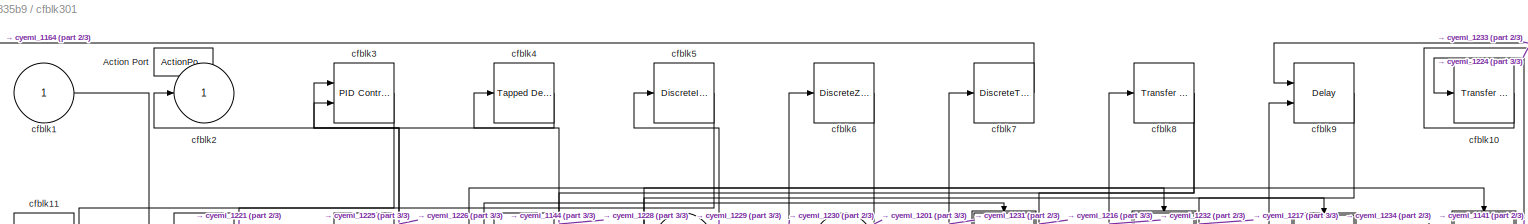
[diagram: cfblk301 - part 1/3, full width, top band]
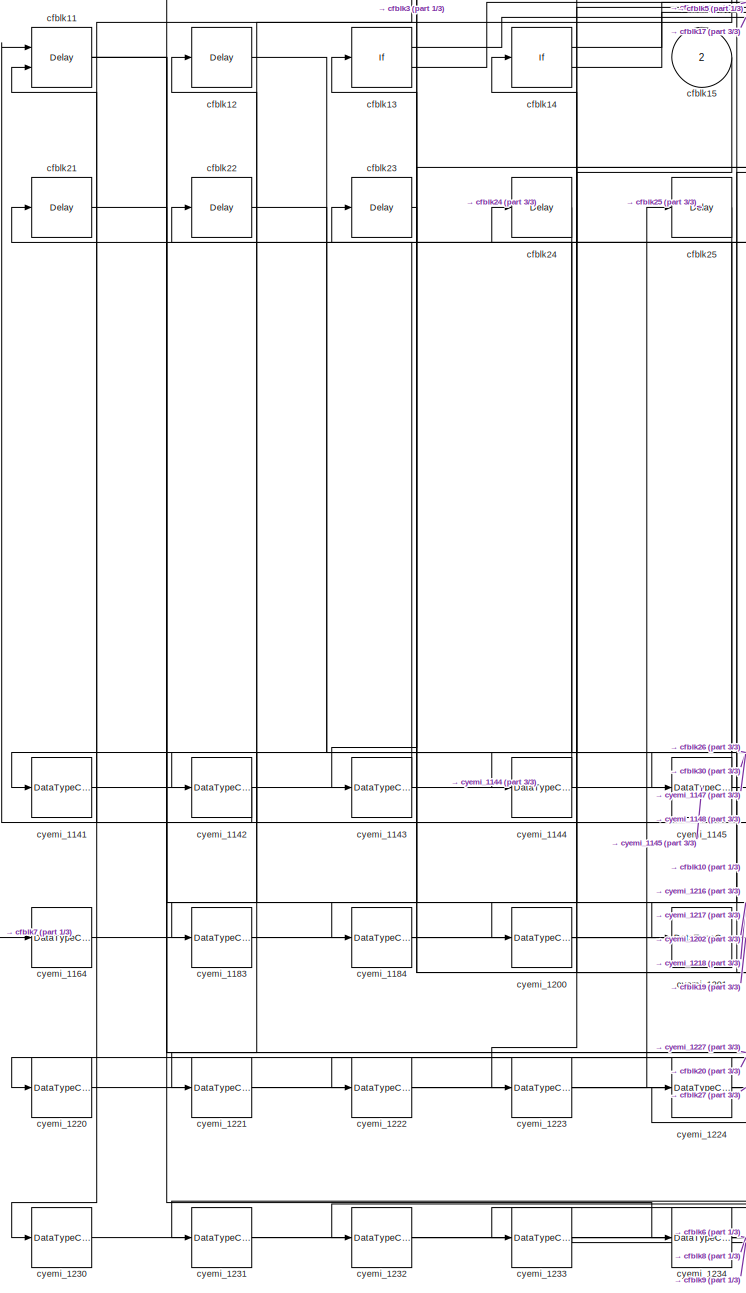
[diagram: cfblk301 - part 2/3, left side, full height]
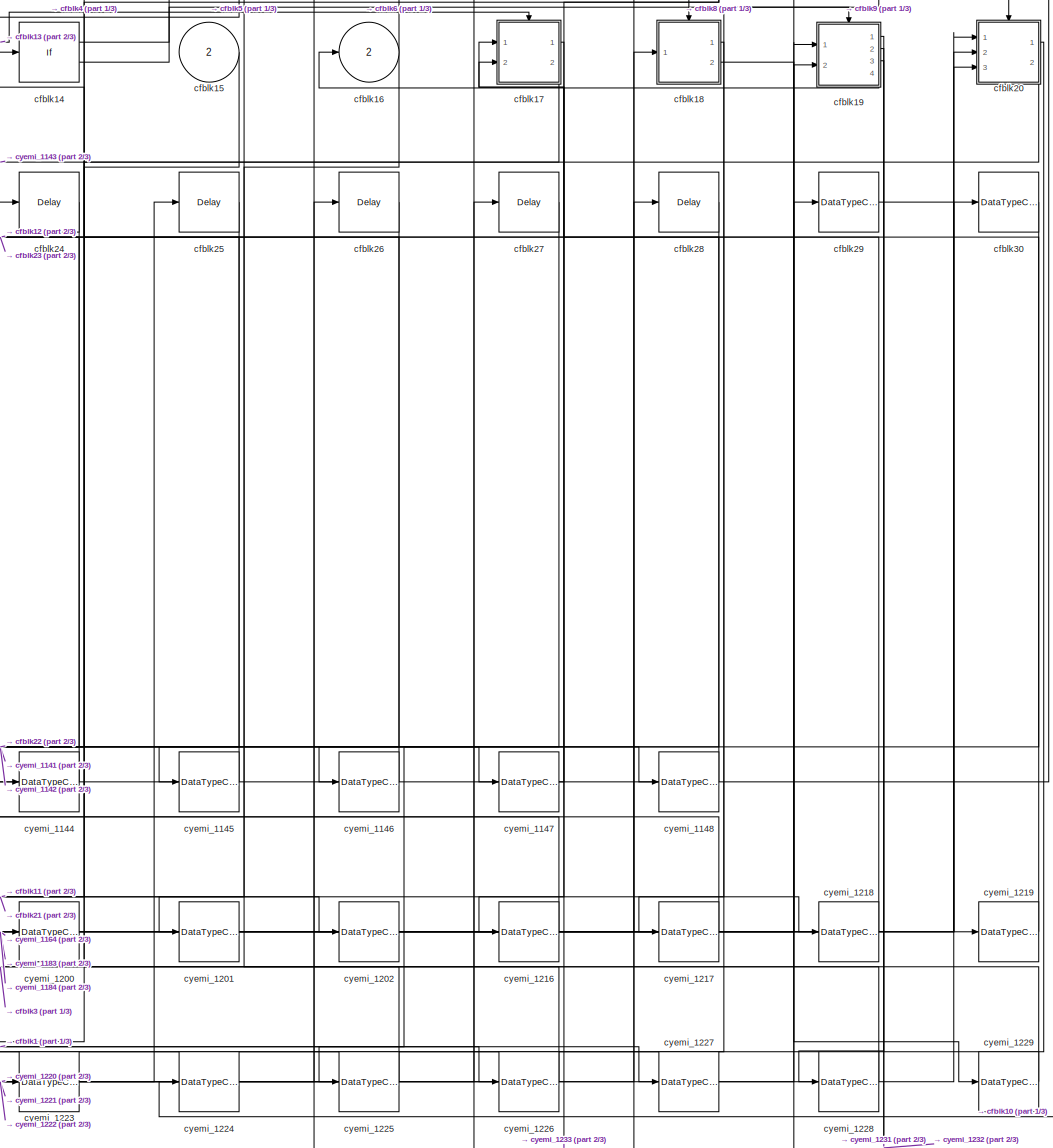
[diagram: cfblk301 - part 3/3, center side, full height]
BLOCK [SubSystem] cfblk301
  Ports = [2, 2, 0, 0, 0, 0, 0, 1]
  RequestExecContextInheritance = off
  TreatAsAtomicUnit = on
BLOCK [ActionPort] cfblk301/Action Port
  ActionType = else
BLOCK [Inport] cfblk301/cfblk1
  IconDisplay = Port number
BLOCK [Reference] cfblk301/cfblk10  REF=simulink/Discrete/Transfer Fcn
Lead or Lag
  Ports = [1, 1]
  SourceBlock = simulink/Discrete/Transfer Fcn\nLead or Lag
  SourceProductBaseCode = SL
  SourceProductName = Simulink
  SourceType = Lead or Lag Compensator
BLOCK [Delay] cfblk301/cfblk11
  InputPortMap = u0,e6
  Ports = [2, 1]
  ShowEnablePort = on
BLOCK [Delay] cfblk301/cfblk12
  InputPortMap = u0
  Ports = [1, 1]
BLOCK [If] cfblk301/cfblk13
  Ports = [1, 2]
  SampleTime = 1
BLOCK [If] cfblk301/cfblk14
  Ports = [1, 2]
  SampleTime = 1
BLOCK [Inport] cfblk301/cfblk15
  IconDisplay = Port number
  Port = 2
BLOCK [Outport] cfblk301/cfblk16
  IconDisplay = Port number
  Port = 2
BLOCK [SubSystem] cfblk301/cfblk17
  Ports = [2, 2, 0, 0, 0, 0, 0, 1]
  RequestExecContextInheritance = off
  TreatAsAtomicUnit = on
BLOCK [ActionPort] cfblk301/cfblk17/Action Port
  ActionType = then
BLOCK [Inport] cfblk301/cfblk17/cfblk1
  IconDisplay = Port number
BLOCK [DiscreteFilter] cfblk301/cfblk17/cfblk10
  InputPortMap = u0
  Ports = [1, 1]
BLOCK [Reference] cfblk301/cfblk17/cfblk11  REF=simulink/Discrete/Transfer Fcn
Real Zero
  Ports = [1, 1]
  SourceBlock = simulink/Discrete/Transfer Fcn\nReal Zero
  SourceProductBaseCode = SL
  SourceProductName = Simulink
  SourceType = Transfer Fcn Real Zero
BLOCK [DiscreteFilter] cfblk301/cfblk17/cfblk12
  InputPortMap = u0
  Ports = [1, 1]
BLOCK [Reference] cfblk301/cfblk17/cfblk13  REF=simulink/Discrete/Transfer Fcn
Lead or Lag
  Ports = [1, 1]
  SourceBlock = simulink/Discrete/Transfer Fcn\nLead or Lag
  SourceProductBaseCode = SL
  SourceProductName = Simulink
  SourceType = Lead or Lag Compensator
BLOCK [DiscreteStateSpace] cfblk301/cfblk17/cfblk14
  SampleTime = -1
BLOCK [DiscreteZeroPole] cfblk301/cfblk17/cfblk15
  Gain = 1
  Poles = [0 0.5]
  SampleTime = -1
BLOCK [Inport] cfblk301/cfblk17/cfblk16
  IconDisplay = Port number
  Port = 2
BLOCK [Outport] cfblk301/cfblk17/cfblk17
  IconDisplay = Port number
  Port = 2
BLOCK [Delay] cfblk301/cfblk17/cfblk18
  InputPortMap = u0
  Ports = [1, 1]
BLOCK [Delay] cfblk301/cfblk17/cfblk19
  InputPortMap = u0
  Ports = [1, 1]
BLOCK [Outport] cfblk301/cfblk17/cfblk2
  IconDisplay = Port number
BLOCK [Reference] cfblk301/cfblk17/cfblk3  REF=simulink/Discrete/Transfer Fcn
Lead or Lag
  Ports = [1, 1]
  SourceBlock = simulink/Discrete/Transfer Fcn\nLead or Lag
  SourceProductBaseCode = SL
  SourceProductName = Simulink
  SourceType = Lead or Lag Compensator
BLOCK [DiscreteTransferFcn] cfblk301/cfblk17/cfblk4
  InputPortMap = u0
  Ports = [1, 1]
BLOCK [DiscreteZeroPole] cfblk301/cfblk17/cfblk5
  Gain = 1
  Poles = [0 0.5]
  SampleTime = -1
BLOCK [Reference] cfblk301/cfblk17/cfblk6  REF=simulink/Discrete/Tapped Delay
  Ports = [1, 1]
  SourceBlock = simulink/Discrete/Tapped Delay
  SourceProductBaseCode = SL
  SourceProductName = Simulink
  SourceType = Tapped Delay Line
BLOCK [DiscreteZeroPole] cfblk301/cfblk17/cfblk7
  Gain = 1
  Poles = [0 0.5]
  SampleTime = -1
BLOCK [Reference] cfblk301/cfblk17/cfblk8  REF=simulink/Discrete/Transfer Fcn
First Order
  Ports = [1, 1]
  SourceBlock = simulink/Discrete/Transfer Fcn\nFirst Order
  SourceProductBaseCode = SL
  SourceProductName = Simulink
  SourceType = First Order Transfer Fcn
BLOCK [Reference] cfblk301/cfblk17/cfblk9  REF=simulink/Continuous/PID Controller
  Ports = [1, 1]
  SourceBlock = simulink/Continuous/PID Controller
  SourceProductBaseCode = SL
  SourceProductName = Simulink
  SourceType = PID 1dof
BLOCK [DataTypeConversion] cfblk301/cfblk17/cyemi_1149
  OutDataTypeStr = double
  RndMeth = Floor
  SaturateOnIntegerOverflow = off
BLOCK [DataTypeConversion] cfblk301/cfblk17/cyemi_1150
  OutDataTypeStr = double
  RndMeth = Floor
  SaturateOnIntegerOverflow = off
BLOCK [DataTypeConversion] cfblk301/cfblk17/cyemi_1151
  OutDataTypeStr = double
  RndMeth = Floor
  SaturateOnIntegerOverflow = off
BLOCK [DataTypeConversion] cfblk301/cfblk17/cyemi_1152
  OutDataTypeStr = double
  RndMeth = Floor
  SaturateOnIntegerOverflow = off
BLOCK [DataTypeConversion] cfblk301/cfblk17/cyemi_1153
  OutDataTypeStr = double
  RndMeth = Floor
  SaturateOnIntegerOverflow = off
BLOCK [DataTypeConversion] cfblk301/cfblk17/cyemi_1154
  OutDataTypeStr = double
  RndMeth = Floor
  SaturateOnIntegerOverflow = off
BLOCK [DataTypeConversion] cfblk301/cfblk17/cyemi_1155
  OutDataTypeStr = double
  RndMeth = Floor
  SaturateOnIntegerOverflow = off
BLOCK [DataTypeConversion] cfblk301/cfblk17/cyemi_1156
  OutDataTypeStr = double
  RndMeth = Floor
  SaturateOnIntegerOverflow = off
BLOCK [DataTypeConversion] cfblk301/cfblk17/cyemi_1157
  OutDataTypeStr = double
  RndMeth = Floor
  SaturateOnIntegerOverflow = off
BLOCK [DataTypeConversion] cfblk301/cfblk17/cyemi_1158
  OutDataTypeStr = double
  RndMeth = Floor
  SaturateOnIntegerOverflow = off
BLOCK [DataTypeConversion] cfblk301/cfblk17/cyemi_1159
  OutDataTypeStr = double
  RndMeth = Floor
  SaturateOnIntegerOverflow = off
BLOCK [DataTypeConversion] cfblk301/cfblk17/cyemi_1160
  OutDataTypeStr = double
  RndMeth = Floor
  SaturateOnIntegerOverflow = off
BLOCK [DataTypeConversion] cfblk301/cfblk17/cyemi_1161
  OutDataTypeStr = double
  RndMeth = Floor
  SaturateOnIntegerOverflow = off
BLOCK [DataTypeConversion] cfblk301/cfblk17/cyemi_1162
  OutDataTypeStr = double
  RndMeth = Floor
  SaturateOnIntegerOverflow = off
BLOCK [DataTypeConversion] cfblk301/cfblk17/cyemi_1163
  OutDataTypeStr = double
  RndMeth = Floor
  SaturateOnIntegerOverflow = off
BLOCK [SubSystem] cfblk301/cfblk18
  Ports = [1, 2, 0, 0, 0, 0, 0, 1]
  RequestExecContextInheritance = off
  TreatAsAtomicUnit = on
BLOCK [ActionPort] cfblk301/cfblk18/Action Port
  ActionType = else
BLOCK [Inport] cfblk301/cfblk18/cfblk1
  IconDisplay = Port number
BLOCK [DiscreteTransferFcn] cfblk301/cfblk18/cfblk10
  InputPortMap = u0
  Ports = [1, 1]
BLOCK [Reference] cfblk301/cfblk18/cfblk11  REF=simulink/Continuous/PID Controller
  Ports = [1, 1]
  SourceBlock = simulink/Continuous/PID Controller
  SourceProductBaseCode = SL
  SourceProductName = Simulink
  SourceType = PID 1dof
BLOCK [Reference] cfblk301/cfblk18/cfblk12  REF=simulink/Continuous/PID Controller
  Ports = [1, 1]
  SourceBlock = simulink/Continuous/PID Controller
  SourceProductBaseCode = SL
  SourceProductName = Simulink
  SourceType = PID 1dof
BLOCK [Reference] cfblk301/cfblk18/cfblk13  REF=simulink/Discrete/Tapped Delay
  Ports = [1, 1]
  SourceBlock = simulink/Discrete/Tapped Delay
  SourceProductBaseCode = SL
  SourceProductName = Simulink
  SourceType = Tapped Delay Line
BLOCK [Reference] cfblk301/cfblk18/cfblk14  REF=simulink/Continuous/PID Controller (2DOF)
  Ports = [2, 1]
  SourceBlock = simulink/Continuous/PID Controller (2DOF)
  SourceProductBaseCode = SL
  SourceProductName = Simulink
  SourceType = PID 2dof
BLOCK [Outport] cfblk301/cfblk18/cfblk15
  IconDisplay = Port number
  Port = 2
BLOCK [Delay] cfblk301/cfblk18/cfblk16
  InputPortMap = u0
  Ports = [1, 1]
BLOCK [Delay] cfblk301/cfblk18/cfblk17
  InputPortMap = u0
  Ports = [1, 1]
BLOCK [Delay] cfblk301/cfblk18/cfblk18
  InputPortMap = u0
  Ports = [1, 1]
BLOCK [Outport] cfblk301/cfblk18/cfblk2
  IconDisplay = Port number
BLOCK [Delay] cfblk301/cfblk18/cfblk3
  InputPortMap = u0,e6
  Ports = [2, 1]
  ShowEnablePort = on
BLOCK [Reference] cfblk301/cfblk18/cfblk4  REF=simulink/Discrete/Transfer Fcn
First Order
  Ports = [1, 1]
  SourceBlock = simulink/Discrete/Transfer Fcn\nFirst Order
  SourceProductBaseCode = SL
  SourceProductName = Simulink
  SourceType = First Order Transfer Fcn
BLOCK [Delay] cfblk301/cfblk18/cfblk5
  InputPortMap = u0,e6
  Ports = [2, 1]
  ShowEnablePort = on
BLOCK [Reference] cfblk301/cfblk18/cfblk6  REF=simulink/Continuous/PID Controller
  Ports = [1, 1]
  SourceBlock = simulink/Continuous/PID Controller
  SourceProductBaseCode = SL
  SourceProductName = Simulink
  SourceType = PID 1dof
BLOCK [UnitDelay] cfblk301/cfblk18/cfblk7
  InputProcessing = Elements as channels (sample based)
  SampleTime = -1
BLOCK [DiscreteStateSpace] cfblk301/cfblk18/cfblk8
  SampleTime = -1
BLOCK [DiscreteFilter] cfblk301/cfblk18/cfblk9
  InputPortMap = u0
  Ports = [1, 1]
BLOCK [DataTypeConversion] cfblk301/cfblk18/cyemi_1165
  OutDataTypeStr = double
  RndMeth = Floor
  SaturateOnIntegerOverflow = off
BLOCK [DataTypeConversion] cfblk301/cfblk18/cyemi_1166
  OutDataTypeStr = double
  RndMeth = Floor
  SaturateOnIntegerOverflow = off
BLOCK [DataTypeConversion] cfblk301/cfblk18/cyemi_1167
  OutDataTypeStr = double
  RndMeth = Floor
  SaturateOnIntegerOverflow = off
BLOCK [DataTypeConversion] cfblk301/cfblk18/cyemi_1168
  OutDataTypeStr = double
  RndMeth = Floor
  SaturateOnIntegerOverflow = off
BLOCK [DataTypeConversion] cfblk301/cfblk18/cyemi_1169
  OutDataTypeStr = double
  RndMeth = Floor
  SaturateOnIntegerOverflow = off
BLOCK [DataTypeConversion] cfblk301/cfblk18/cyemi_1170
  OutDataTypeStr = double
  RndMeth = Floor
  SaturateOnIntegerOverflow = off
BLOCK [DataTypeConversion] cfblk301/cfblk18/cyemi_1171
  OutDataTypeStr = double
  RndMeth = Floor
  SaturateOnIntegerOverflow = off
BLOCK [DataTypeConversion] cfblk301/cfblk18/cyemi_1172
  OutDataTypeStr = double
  RndMeth = Floor
  SaturateOnIntegerOverflow = off
BLOCK [DataTypeConversion] cfblk301/cfblk18/cyemi_1173
  OutDataTypeStr = double
  RndMeth = Floor
  SaturateOnIntegerOverflow = off
BLOCK [DataTypeConversion] cfblk301/cfblk18/cyemi_1174
  OutDataTypeStr = double
  RndMeth = Floor
  SaturateOnIntegerOverflow = off
BLOCK [DataTypeConversion] cfblk301/cfblk18/cyemi_1175
  OutDataTypeStr = double
  RndMeth = Floor
  SaturateOnIntegerOverflow = off
BLOCK [DataTypeConversion] cfblk301/cfblk18/cyemi_1176
  OutDataTypeStr = double
  RndMeth = Floor
  SaturateOnIntegerOverflow = off
BLOCK [DataTypeConversion] cfblk301/cfblk18/cyemi_1177
  OutDataTypeStr = double
  RndMeth = Floor
  SaturateOnIntegerOverflow = off
BLOCK [DataTypeConversion] cfblk301/cfblk18/cyemi_1178
  OutDataTypeStr = double
  RndMeth = Floor
  SaturateOnIntegerOverflow = off
BLOCK [DataTypeConversion] cfblk301/cfblk18/cyemi_1179
  OutDataTypeStr = double
  RndMeth = Floor
  SaturateOnIntegerOverflow = off
BLOCK [DataTypeConversion] cfblk301/cfblk18/cyemi_1180
  OutDataTypeStr = double
  RndMeth = Floor
  SaturateOnIntegerOverflow = off
BLOCK [DataTypeConversion] cfblk301/cfblk18/cyemi_1181
  OutDataTypeStr = double
  RndMeth = Floor
  SaturateOnIntegerOverflow = off
BLOCK [DataTypeConversion] cfblk301/cfblk18/cyemi_1182
  OutDataTypeStr = double
  RndMeth = Floor
  SaturateOnIntegerOverflow = off
BLOCK [SubSystem] cfblk301/cfblk19
  Ports = [2, 4, 0, 0, 0, 0, 0, 1]
  RequestExecContextInheritance = off
  TreatAsAtomicUnit = on
BLOCK [ActionPort] cfblk301/cfblk19/Action Port
  ActionType = then
BLOCK [Inport] cfblk301/cfblk19/cfblk1
  IconDisplay = Port number
BLOCK [Delay] cfblk301/cfblk19/cfblk10
  InputPortMap = u0
  Ports = [1, 1]
BLOCK [Inport] cfblk301/cfblk19/cfblk11
  IconDisplay = Port number
  Port = 2
BLOCK [Outport] cfblk301/cfblk19/cfblk12
  IconDisplay = Port number
  Port = 2
BLOCK [Outport] cfblk301/cfblk19/cfblk13
  IconDisplay = Port number
  Port = 3
BLOCK [Outport] cfblk301/cfblk19/cfblk14
  IconDisplay = Port number
  Port = 4
BLOCK [Delay] cfblk301/cfblk19/cfblk15
  InputPortMap = u0
  Ports = [1, 1]
BLOCK [DataTypeConversion] cfblk301/cfblk19/cfblk16
  OutDataTypeStr = double
  RndMeth = Floor
  SaturateOnIntegerOverflow = off
BLOCK [DataTypeConversion] cfblk301/cfblk19/cfblk17
  OutDataTypeStr = double
  RndMeth = Floor
  SaturateOnIntegerOverflow = off
BLOCK [DataTypeConversion] cfblk301/cfblk19/cfblk18
  OutDataTypeStr = double
  RndMeth = Floor
  SaturateOnIntegerOverflow = off
BLOCK [Outport] cfblk301/cfblk19/cfblk2
  IconDisplay = Port number
BLOCK [DiscreteZeroPole] cfblk301/cfblk19/cfblk3
  Gain = 1
  Poles = [0 0.5]
  SampleTime = -1
BLOCK [Delay] cfblk301/cfblk19/cfblk4
  InputPortMap = u0,e6
  Ports = [2, 1]
  ShowEnablePort = on
BLOCK [Delay] cfblk301/cfblk19/cfblk5
  DelayLengthSource = Input port
  InputPortMap = u0,p1
  Ports = [2, 1]
BLOCK [Reference] cfblk301/cfblk19/cfblk6  REF=simulink/Discrete/Transfer Fcn
Lead or Lag
  Ports = [1, 1]
  SourceBlock = simulink/Discrete/Transfer Fcn\nLead or Lag
  SourceProductBaseCode = SL
  SourceProductName = Simulink
  SourceType = Lead or Lag Compensator
BLOCK [Reference] cfblk301/cfblk19/cfblk7  REF=simulink/Continuous/PID Controller (2DOF)
  Ports = [2, 1]
  SourceBlock = simulink/Continuous/PID Controller (2DOF)
  SourceProductBaseCode = SL
  SourceProductName = Simulink
  SourceType = PID 2dof
BLOCK [DiscreteIntegrator] cfblk301/cfblk19/cfblk8
  ICPrevOutput = DiscIntNeverNeededParam
  ICPrevScaledInput = DiscIntNeverNeededParam
  InitialConditionSetting = Auto
  OutDataTypeStr = uint32
  Ports = [1, 1]
  SampleTime = -1
BLOCK [Reference] cfblk301/cfblk19/cfblk9  REF=simulink/Continuous/PID Controller
  Ports = [1, 1]
  SourceBlock = simulink/Continuous/PID Controller
  SourceProductBaseCode = SL
  SourceProductName = Simulink
  SourceType = PID 1dof
BLOCK [DataTypeConversion] cfblk301/cfblk19/cyemi_1185
  OutDataTypeStr = double
  RndMeth = Floor
  SaturateOnIntegerOverflow = off
BLOCK [DataTypeConversion] cfblk301/cfblk19/cyemi_1186
  OutDataTypeStr = double
  RndMeth = Floor
  SaturateOnIntegerOverflow = off
BLOCK [DataTypeConversion] cfblk301/cfblk19/cyemi_1187
  OutDataTypeStr = double
  RndMeth = Floor
  SaturateOnIntegerOverflow = off
BLOCK [DataTypeConversion] cfblk301/cfblk19/cyemi_1188
  OutDataTypeStr = double
  RndMeth = Floor
  SaturateOnIntegerOverflow = off
BLOCK [DataTypeConversion] cfblk301/cfblk19/cyemi_1189
  OutDataTypeStr = uint32
  RndMeth = Floor
  SaturateOnIntegerOverflow = off
BLOCK [DataTypeConversion] cfblk301/cfblk19/cyemi_1190
  OutDataTypeStr = double
  RndMeth = Floor
  SaturateOnIntegerOverflow = off
BLOCK [DataTypeConversion] cfblk301/cfblk19/cyemi_1191
  OutDataTypeStr = double
  RndMeth = Floor
  SaturateOnIntegerOverflow = off
BLOCK [DataTypeConversion] cfblk301/cfblk19/cyemi_1192
  OutDataTypeStr = double
  RndMeth = Floor
  SaturateOnIntegerOverflow = off
BLOCK [DataTypeConversion] cfblk301/cfblk19/cyemi_1193
  OutDataTypeStr = double
  RndMeth = Floor
  SaturateOnIntegerOverflow = off
BLOCK [DataTypeConversion] cfblk301/cfblk19/cyemi_1194
  OutDataTypeStr = uint32
  RndMeth = Floor
  SaturateOnIntegerOverflow = off
BLOCK [DataTypeConversion] cfblk301/cfblk19/cyemi_1195
  OutDataTypeStr = double
  RndMeth = Floor
  SaturateOnIntegerOverflow = off
BLOCK [DataTypeConversion] cfblk301/cfblk19/cyemi_1196
  OutDataTypeStr = double
  RndMeth = Floor
  SaturateOnIntegerOverflow = off
BLOCK [DataTypeConversion] cfblk301/cfblk19/cyemi_1197
  OutDataTypeStr = double
  RndMeth = Floor
  SaturateOnIntegerOverflow = off
BLOCK [DataTypeConversion] cfblk301/cfblk19/cyemi_1198
  OutDataTypeStr = uint32
  RndMeth = Floor
  SaturateOnIntegerOverflow = off
BLOCK [DataTypeConversion] cfblk301/cfblk19/cyemi_1199
  OutDataTypeStr = double
  RndMeth = Floor
  SaturateOnIntegerOverflow = off
BLOCK [Outport] cfblk301/cfblk2
  IconDisplay = Port number
BLOCK [SubSystem] cfblk301/cfblk20
  Ports = [3, 2, 0, 0, 0, 0, 0, 1]
  RequestExecContextInheritance = off
  TreatAsAtomicUnit = on
BLOCK [ActionPort] cfblk301/cfblk20/Action Port
  ActionType = else
BLOCK [Inport] cfblk301/cfblk20/cfblk1
  IconDisplay = Port number
BLOCK [DiscreteTransferFcn] cfblk301/cfblk20/cfblk10
  InputPortMap = u0
  Ports = [1, 1]
BLOCK [UnitDelay] cfblk301/cfblk20/cfblk11
  InputProcessing = Elements as channels (sample based)
  SampleTime = -1
BLOCK [Inport] cfblk301/cfblk20/cfblk12
  IconDisplay = Port number
  Port = 2
BLOCK [Inport] cfblk301/cfblk20/cfblk13
  IconDisplay = Port number
  Port = 3
BLOCK [Outport] cfblk301/cfblk20/cfblk14
  IconDisplay = Port number
  Port = 2
BLOCK [Delay] cfblk301/cfblk20/cfblk15
  InputPortMap = u0
  Ports = [1, 1]
BLOCK [Outport] cfblk301/cfblk20/cfblk2
  IconDisplay = Port number
BLOCK [Reference] cfblk301/cfblk20/cfblk3  REF=simulink/Discrete/Tapped Delay
  Ports = [1, 1]
  SourceBlock = simulink/Discrete/Tapped Delay
  SourceProductBaseCode = SL
  SourceProductName = Simulink
  SourceType = Tapped Delay Line
BLOCK [DiscreteFilter] cfblk301/cfblk20/cfblk4
  InputPortMap = u0
  Ports = [1, 1]
BLOCK [DiscreteFir] cfblk301/cfblk20/cfblk5
  InputPortMap = u0
  OutputPortMap = o0
  Ports = [1, 1]
BLOCK [Reference] cfblk301/cfblk20/cfblk6  REF=simulink/Discrete/Transfer Fcn
Lead or Lag
  Ports = [1, 1]
  SourceBlock = simulink/Discrete/Transfer Fcn\nLead or Lag
  SourceProductBaseCode = SL
  SourceProductName = Simulink
  SourceType = Lead or Lag Compensator
BLOCK [Delay] cfblk301/cfblk20/cfblk7
  InputPortMap = u0,e6
  Ports = [2, 1]
  ShowEnablePort = on
BLOCK [Delay] cfblk301/cfblk20/cfblk8
  DelayLengthSource = Input port
  InputPortMap = u0,p1
  Ports = [2, 1]
BLOCK [Delay] cfblk301/cfblk20/cfblk9
  InputPortMap = u0,e6
  Ports = [2, 1]
  ShowEnablePort = on
BLOCK [DataTypeConversion] cfblk301/cfblk20/cyemi_1203
  OutDataTypeStr = double
  RndMeth = Floor
  SaturateOnIntegerOverflow = off
BLOCK [DataTypeConversion] cfblk301/cfblk20/cyemi_1204
  OutDataTypeStr = double
  RndMeth = Floor
  SaturateOnIntegerOverflow = off
BLOCK [DataTypeConversion] cfblk301/cfblk20/cyemi_1205
  OutDataTypeStr = double
  RndMeth = Floor
  SaturateOnIntegerOverflow = off
BLOCK [DataTypeConversion] cfblk301/cfblk20/cyemi_1206
  OutDataTypeStr = double
  RndMeth = Floor
  SaturateOnIntegerOverflow = off
BLOCK [DataTypeConversion] cfblk301/cfblk20/cyemi_1207
  OutDataTypeStr = double
  RndMeth = Floor
  SaturateOnIntegerOverflow = off
BLOCK [DataTypeConversion] cfblk301/cfblk20/cyemi_1208
  OutDataTypeStr = double
  RndMeth = Floor
  SaturateOnIntegerOverflow = off
BLOCK [DataTypeConversion] cfblk301/cfblk20/cyemi_1209
  OutDataTypeStr = double
  RndMeth = Floor
  SaturateOnIntegerOverflow = off
BLOCK [DataTypeConversion] cfblk301/cfblk20/cyemi_1210
  OutDataTypeStr = double
  RndMeth = Floor
  SaturateOnIntegerOverflow = off
BLOCK [DataTypeConversion] cfblk301/cfblk20/cyemi_1211
  OutDataTypeStr = double
  RndMeth = Floor
  SaturateOnIntegerOverflow = off
BLOCK [DataTypeConversion] cfblk301/cfblk20/cyemi_1212
  OutDataTypeStr = double
  RndMeth = Floor
  SaturateOnIntegerOverflow = off
BLOCK [DataTypeConversion] cfblk301/cfblk20/cyemi_1213
  OutDataTypeStr = double
  RndMeth = Floor
  SaturateOnIntegerOverflow = off
BLOCK [DataTypeConversion] cfblk301/cfblk20/cyemi_1214
  OutDataTypeStr = double
  RndMeth = Floor
  SaturateOnIntegerOverflow = off
BLOCK [DataTypeConversion] cfblk301/cfblk20/cyemi_1215
  OutDataTypeStr = double
  RndMeth = Floor
  SaturateOnIntegerOverflow = off
BLOCK [Delay] cfblk301/cfblk21
  InputPortMap = u0
  Ports = [1, 1]
BLOCK [Delay] cfblk301/cfblk22
  InputPortMap = u0
  Ports = [1, 1]
BLOCK [Delay] cfblk301/cfblk23
  InputPortMap = u0
  Ports = [1, 1]
BLOCK [Delay] cfblk301/cfblk24
  InputPortMap = u0
  Ports = [1, 1]
BLOCK [Delay] cfblk301/cfblk25
  InputPortMap = u0
  Ports = [1, 1]
BLOCK [Delay] cfblk301/cfblk26
  InputPortMap = u0
  Ports = [1, 1]
BLOCK [Delay] cfblk301/cfblk27
  InputPortMap = u0
  Ports = [1, 1]
BLOCK [Delay] cfblk301/cfblk28
  InputPortMap = u0
  Ports = [1, 1]
BLOCK [DataTypeConversion] cfblk301/cfblk29
  OutDataTypeStr = uint32
  RndMeth = Floor
  SaturateOnIntegerOverflow = off
BLOCK [Reference] cfblk301/cfblk3  REF=simulink/Continuous/PID Controller (2DOF)
  Ports = [2, 1]
  SourceBlock = simulink/Continuous/PID Controller (2DOF)
  SourceProductBaseCode = SL
  SourceProductName = Simulink
  SourceType = PID 2dof
BLOCK [DataTypeConversion] cfblk301/cfblk30
  OutDataTypeStr = double
  RndMeth = Floor
  SaturateOnIntegerOverflow = off
BLOCK [Reference] cfblk301/cfblk4  REF=simulink/Discrete/Tapped Delay
  Ports = [1, 1]
  SourceBlock = simulink/Discrete/Tapped Delay
  SourceProductBaseCode = SL
  SourceProductName = Simulink
  SourceType = Tapped Delay Line
BLOCK [DiscreteIntegrator] cfblk301/cfblk5
  ICPrevOutput = DiscIntNeverNeededParam
  ICPrevScaledInput = DiscIntNeverNeededParam
  InitialConditionSetting = Auto
  OutDataTypeStr = double
  Ports = [1, 1]
  SampleTime = -1
BLOCK [DiscreteZeroPole] cfblk301/cfblk6
  Gain = 1
  Poles = [0 0.5]
  SampleTime = -1
BLOCK [DiscreteTransferFcn] cfblk301/cfblk7
  InputPortMap = u0
  Ports = [1, 1]
BLOCK [Reference] cfblk301/cfblk8  REF=simulink/Discrete/Transfer Fcn
Lead or Lag
  Ports = [1, 1]
  SourceBlock = simulink/Discrete/Transfer Fcn\nLead or Lag
  SourceProductBaseCode = SL
  SourceProductName = Simulink
  SourceType = Lead or Lag Compensator
BLOCK [Delay] cfblk301/cfblk9
  DelayLengthSource = Input port
  InputPortMap = u0,p1
  Ports = [2, 1]
BLOCK [DataTypeConversion] cfblk301/cyemi_1141
  OutDataTypeStr = double
  RndMeth = Floor
  SaturateOnIntegerOverflow = off
BLOCK [DataTypeConversion] cfblk301/cyemi_1142
  OutDataTypeStr = uint32
  RndMeth = Floor
  SaturateOnIntegerOverflow = off
BLOCK [DataTypeConversion] cfblk301/cyemi_1143
  OutDataTypeStr = double
  RndMeth = Floor
  SaturateOnIntegerOverflow = off
BLOCK [DataTypeConversion] cfblk301/cyemi_1144
  OutDataTypeStr = double
  RndMeth = Floor
  SaturateOnIntegerOverflow = off
BLOCK [DataTypeConversion] cfblk301/cyemi_1145
  OutDataTypeStr = double
  RndMeth = Floor
  SaturateOnIntegerOverflow = off
BLOCK [DataTypeConversion] cfblk301/cyemi_1146
  OutDataTypeStr = double
  RndMeth = Floor
  SaturateOnIntegerOverflow = off
BLOCK [DataTypeConversion] cfblk301/cyemi_1147
  OutDataTypeStr = double
  RndMeth = Floor
  SaturateOnIntegerOverflow = off
BLOCK [DataTypeConversion] cfblk301/cyemi_1148
  OutDataTypeStr = double
  RndMeth = Floor
  SaturateOnIntegerOverflow = off
BLOCK [DataTypeConversion] cfblk301/cyemi_1164
  OutDataTypeStr = double
  RndMeth = Floor
  SaturateOnIntegerOverflow = off
BLOCK [DataTypeConversion] cfblk301/cyemi_1183
  OutDataTypeStr = double
  RndMeth = Floor
  SaturateOnIntegerOverflow = off
BLOCK [DataTypeConversion] cfblk301/cyemi_1184
  OutDataTypeStr = uint32
  RndMeth = Floor
  SaturateOnIntegerOverflow = off
BLOCK [DataTypeConversion] cfblk301/cyemi_1200
  OutDataTypeStr = double
  RndMeth = Floor
  SaturateOnIntegerOverflow = off
BLOCK [DataTypeConversion] cfblk301/cyemi_1201
  OutDataTypeStr = double
  RndMeth = Floor
  SaturateOnIntegerOverflow = off
BLOCK [DataTypeConversion] cfblk301/cyemi_1202
  OutDataTypeStr = double
  RndMeth = Floor
  SaturateOnIntegerOverflow = off
BLOCK [DataTypeConversion] cfblk301/cyemi_1216
  OutDataTypeStr = double
  RndMeth = Floor
  SaturateOnIntegerOverflow = off
BLOCK [DataTypeConversion] cfblk301/cyemi_1217
  OutDataTypeStr = double
  RndMeth = Floor
  SaturateOnIntegerOverflow = off
BLOCK [DataTypeConversion] cfblk301/cyemi_1218
  OutDataTypeStr = uint32
  RndMeth = Floor
  SaturateOnIntegerOverflow = off
BLOCK [DataTypeConversion] cfblk301/cyemi_1219
  OutDataTypeStr = uint32
  RndMeth = Floor
  SaturateOnIntegerOverflow = off
BLOCK [DataTypeConversion] cfblk301/cyemi_1220
  OutDataTypeStr = double
  RndMeth = Floor
  SaturateOnIntegerOverflow = off
BLOCK [DataTypeConversion] cfblk301/cyemi_1221
  OutDataTypeStr = double
  RndMeth = Floor
  SaturateOnIntegerOverflow = off
BLOCK [DataTypeConversion] cfblk301/cyemi_1222
  OutDataTypeStr = double
  RndMeth = Floor
  SaturateOnIntegerOverflow = off
BLOCK [DataTypeConversion] cfblk301/cyemi_1223
  OutDataTypeStr = double
  RndMeth = Floor
  SaturateOnIntegerOverflow = off
BLOCK [DataTypeConversion] cfblk301/cyemi_1224
  OutDataTypeStr = double
  RndMeth = Floor
  SaturateOnIntegerOverflow = off
BLOCK [DataTypeConversion] cfblk301/cyemi_1225
  OutDataTypeStr = double
  RndMeth = Floor
  SaturateOnIntegerOverflow = off
BLOCK [DataTypeConversion] cfblk301/cyemi_1226
  OutDataTypeStr = double
  RndMeth = Floor
  SaturateOnIntegerOverflow = off
BLOCK [DataTypeConversion] cfblk301/cyemi_1227
  OutDataTypeStr = uint32
  RndMeth = Floor
  SaturateOnIntegerOverflow = off
BLOCK [DataTypeConversion] cfblk301/cyemi_1228
  OutDataTypeStr = double
  RndMeth = Floor
  SaturateOnIntegerOverflow = off
BLOCK [DataTypeConversion] cfblk301/cyemi_1229
  OutDataTypeStr = double
  RndMeth = Floor
  SaturateOnIntegerOverflow = off
BLOCK [DataTypeConversion] cfblk301/cyemi_1230
  OutDataTypeStr = double
  RndMeth = Floor
  SaturateOnIntegerOverflow = off
BLOCK [DataTypeConversion] cfblk301/cyemi_1231
  OutDataTypeStr = double
  RndMeth = Floor
  SaturateOnIntegerOverflow = off
BLOCK [DataTypeConversion] cfblk301/cyemi_1232
  OutDataTypeStr = double
  RndMeth = Floor
  SaturateOnIntegerOverflow = off
BLOCK [DataTypeConversion] cfblk301/cyemi_1233
  OutDataTypeStr = double
  RndMeth = Floor
  SaturateOnIntegerOverflow = off
BLOCK [DataTypeConversion] cfblk301/cyemi_1234
  OutDataTypeStr = uint32
  RndMeth = Floor
  SaturateOnIntegerOverflow = off
BLOCK [SubSystem] cfblk302
  Ports = [1, 2, 0, 0, 0, 0, 0, 1]
  RequestExecContextInheritance = off
  TreatAsAtomicUnit = on
BLOCK [ActionPort] cfblk302/Action Port
  ActionType = then
BLOCK [Inport] cfblk302/cfblk1
  IconDisplay = Port number
BLOCK [Delay] cfblk302/cfblk10
  InputPortMap = u0
  Ports = [1, 1]
BLOCK [Outport] cfblk302/cfblk2
  IconDisplay = Port number
BLOCK [Delay] cfblk302/cfblk3
  DelayLengthSource = Input port
  InputPortMap = u0,p1
  Ports = [2, 1]
BLOCK [Delay] cfblk302/cfblk4
  InputPortMap = u0
  Ports = [1, 1]
BLOCK [Reference] cfblk302/cfblk5  REF=simulink/Discrete/Transfer Fcn
Lead or Lag
  Ports = [1, 1]
  SourceBlock = simulink/Discrete/Transfer Fcn\nLead or Lag
  SourceProductBaseCode = SL
  SourceProductName = Simulink
  SourceType = Lead or Lag Compensator
BLOCK [Reference] cfblk302/cfblk6  REF=simulink/Discrete/Difference
  Ports = [1, 1]
  SourceBlock = simulink/Discrete/Difference
  SourceProductBaseCode = SL
  SourceProductName = Simulink
  SourceType = Difference
BLOCK [Delay] cfblk302/cfblk7
  InputPortMap = u0
  Ports = [1, 1]
BLOCK [Outport] cfblk302/cfblk8
  IconDisplay = Port number
  Port = 2
BLOCK [Delay] cfblk302/cfblk9
  InputPortMap = u0
  Ports = [1, 1]
BLOCK [DataTypeConversion] cfblk302/cyemi_1236
  OutDataTypeStr = double
  RndMeth = Floor
  SaturateOnIntegerOverflow = off
BLOCK [DataTypeConversion] cfblk302/cyemi_1237
  OutDataTypeStr = double
  RndMeth = Floor
  SaturateOnIntegerOverflow = off
BLOCK [DataTypeConversion] cfblk302/cyemi_1238
  OutDataTypeStr = double
  RndMeth = Floor
  SaturateOnIntegerOverflow = off
BLOCK [DataTypeConversion] cfblk302/cyemi_1239
  OutDataTypeStr = double
  RndMeth = Floor
  SaturateOnIntegerOverflow = off
BLOCK [DataTypeConversion] cfblk302/cyemi_1240
  OutDataTypeStr = double
  RndMeth = Floor
  SaturateOnIntegerOverflow = off
BLOCK [DataTypeConversion] cfblk302/cyemi_1241
  OutDataTypeStr = double
  RndMeth = Floor
  SaturateOnIntegerOverflow = off
BLOCK [DataTypeConversion] cfblk302/cyemi_1242
  OutDataTypeStr = double
  RndMeth = Floor
  SaturateOnIntegerOverflow = off
BLOCK [DataTypeConversion] cfblk302/cyemi_1243
  OutDataTypeStr = double
  RndMeth = Floor
  SaturateOnIntegerOverflow = off
BLOCK [SubSystem] cfblk303
  Ports = [4, 2, 0, 0, 0, 0, 0, 1]
  RequestExecContextInheritance = off
  TreatAsAtomicUnit = on
BLOCK [ActionPort] cfblk303/Action Port
  ActionType = else
BLOCK [Inport] cfblk303/cfblk1
  IconDisplay = Port number
BLOCK [Delay] cfblk303/cfblk10
  InputPortMap = u0
  Ports = [1, 1]
BLOCK [DiscreteIntegrator] cfblk303/cfblk11
  ICPrevOutput = DiscIntNeverNeededParam
  ICPrevScaledInput = DiscIntNeverNeededParam
  InitialConditionSetting = Auto
  OutDataTypeStr = double
  Ports = [1, 1]
  SampleTime = -1
BLOCK [Reference] cfblk303/cfblk12  REF=simulink/Discrete/Transfer Fcn
Lead or Lag
  Ports = [1, 1]
  SourceBlock = simulink/Discrete/Transfer Fcn\nLead or Lag
  SourceProductBaseCode = SL
  SourceProductName = Simulink
  SourceType = Lead or Lag Compensator
BLOCK [Inport] cfblk303/cfblk13
  IconDisplay = Port number
  Port = 2
BLOCK [Inport] cfblk303/cfblk14
  IconDisplay = Port number
  Port = 3
BLOCK [Inport] cfblk303/cfblk15
  IconDisplay = Port number
  Port = 4
BLOCK [Outport] cfblk303/cfblk16
  IconDisplay = Port number
  Port = 2
BLOCK [Delay] cfblk303/cfblk17
  InputPortMap = u0
  Ports = [1, 1]
BLOCK [Outport] cfblk303/cfblk2
  IconDisplay = Port number
BLOCK [DiscreteFir] cfblk303/cfblk3
  InputPortMap = u0
  OutputPortMap = o0
  Ports = [1, 1]
BLOCK [DiscreteFir] cfblk303/cfblk4
  InputPortMap = u0
  OutputPortMap = o0
  Ports = [1, 1]
BLOCK [DiscreteStateSpace] cfblk303/cfblk5
  SampleTime = -1
BLOCK [Reference] cfblk303/cfblk6  REF=simulink/Discrete/Transfer Fcn
Lead or Lag
  Ports = [1, 1]
  SourceBlock = simulink/Discrete/Transfer Fcn\nLead or Lag
  SourceProductBaseCode = SL
  SourceProductName = Simulink
  SourceType = Lead or Lag Compensator
BLOCK [Delay] cfblk303/cfblk7
  InputPortMap = u0
  Ports = [1, 1]
BLOCK [DiscreteFilter] cfblk303/cfblk8
  InputPortMap = u0
  Ports = [1, 1]
BLOCK [Reference] cfblk303/cfblk9  REF=simulink/Discrete/Transfer Fcn
Real Zero
  Ports = [1, 1]
  SourceBlock = simulink/Discrete/Transfer Fcn\nReal Zero
  SourceProductBaseCode = SL
  SourceProductName = Simulink
  SourceType = Transfer Fcn Real Zero
BLOCK [DataTypeConversion] cfblk303/cyemi_1248
  OutDataTypeStr = double
  RndMeth = Floor
  SaturateOnIntegerOverflow = off
BLOCK [DataTypeConversion] cfblk303/cyemi_1249
  OutDataTypeStr = double
  RndMeth = Floor
  SaturateOnIntegerOverflow = off
BLOCK [DataTypeConversion] cfblk303/cyemi_1250
  OutDataTypeStr = double
  RndMeth = Floor
  SaturateOnIntegerOverflow = off
BLOCK [DataTypeConversion] cfblk303/cyemi_1251
  OutDataTypeStr = double
  RndMeth = Floor
  SaturateOnIntegerOverflow = off
BLOCK [DataTypeConversion] cfblk303/cyemi_1252
  OutDataTypeStr = double
  RndMeth = Floor
  SaturateOnIntegerOverflow = off
BLOCK [DataTypeConversion] cfblk303/cyemi_1253
  OutDataTypeStr = double
  RndMeth = Floor
  SaturateOnIntegerOverflow = off
BLOCK [DataTypeConversion] cfblk303/cyemi_1254
  OutDataTypeStr = double
  RndMeth = Floor
  SaturateOnIntegerOverflow = off
BLOCK [DataTypeConversion] cfblk303/cyemi_1255
  OutDataTypeStr = double
  RndMeth = Floor
  SaturateOnIntegerOverflow = off
BLOCK [DataTypeConversion] cfblk303/cyemi_1256
  OutDataTypeStr = double
  RndMeth = Floor
  SaturateOnIntegerOverflow = off
BLOCK [DataTypeConversion] cfblk303/cyemi_1257
  OutDataTypeStr = double
  RndMeth = Floor
  SaturateOnIntegerOverflow = off
BLOCK [DataTypeConversion] cfblk303/cyemi_1258
  OutDataTypeStr = double
  RndMeth = Floor
  SaturateOnIntegerOverflow = off
BLOCK [SubSystem] cfblk304
  Ports = [2, 1, 0, 0, 0, 0, 0, 1]
  RequestExecContextInheritance = off
  TreatAsAtomicUnit = on
BLOCK [ActionPort] cfblk304/Action Port
  ActionType = then
BLOCK [Inport] cfblk304/cfblk1
  IconDisplay = Port number
BLOCK [Outport] cfblk304/cfblk2
  IconDisplay = Port number
BLOCK [Reference] cfblk304/cfblk3  REF=simulink/Discrete/Transfer Fcn
First Order
  Ports = [1, 1]
  SourceBlock = simulink/Discrete/Transfer Fcn\nFirst Order
  SourceProductBaseCode = SL
  SourceProductName = Simulink
  SourceType = First Order Transfer Fcn
BLOCK [Reference] cfblk304/cfblk4  REF=simulink/Continuous/PID Controller (2DOF)
  Ports = [2, 1]
  SourceBlock = simulink/Continuous/PID Controller (2DOF)
  SourceProductBaseCode = SL
  SourceProductName = Simulink
  SourceType = PID 2dof
BLOCK [Delay] cfblk304/cfblk5
  InputPortMap = u0,e6
  Ports = [2, 1]
  ShowEnablePort = on
BLOCK [Reference] cfblk304/cfblk6  REF=simulink/Discrete/Difference
  Ports = [1, 1]
  SourceBlock = simulink/Discrete/Difference
  SourceProductBaseCode = SL
  SourceProductName = Simulink
  SourceType = Difference
BLOCK [DiscreteStateSpace] cfblk304/cfblk7
  SampleTime = -1
BLOCK [Inport] cfblk304/cfblk8
  IconDisplay = Port number
  Port = 2
BLOCK [Delay] cfblk304/cfblk9
  InputPortMap = u0
  Ports = [1, 1]
BLOCK [DataTypeConversion] cfblk304/cyemi_1261
  OutDataTypeStr = double
  RndMeth = Floor
  SaturateOnIntegerOverflow = off
BLOCK [DataTypeConversion] cfblk304/cyemi_1262
  OutDataTypeStr = double
  RndMeth = Floor
  SaturateOnIntegerOverflow = off
BLOCK [DataTypeConversion] cfblk304/cyemi_1263
  OutDataTypeStr = double
  RndMeth = Floor
  SaturateOnIntegerOverflow = off
BLOCK [DataTypeConversion] cfblk304/cyemi_1264
  OutDataTypeStr = double
  RndMeth = Floor
  SaturateOnIntegerOverflow = off
BLOCK [DataTypeConversion] cfblk304/cyemi_1265
  OutDataTypeStr = double
  RndMeth = Floor
  SaturateOnIntegerOverflow = off
BLOCK [DataTypeConversion] cfblk304/cyemi_1266
  OutDataTypeStr = double
  RndMeth = Floor
  SaturateOnIntegerOverflow = off
BLOCK [DataTypeConversion] cfblk304/cyemi_1267
  OutDataTypeStr = double
  RndMeth = Floor
  SaturateOnIntegerOverflow = off
BLOCK [DataTypeConversion] cfblk304/cyemi_1268
  OutDataTypeStr = double
  RndMeth = Floor
  SaturateOnIntegerOverflow = off
BLOCK [SubSystem] cfblk305
  Ports = [3, 3, 0, 0, 0, 0, 0, 1]
  RequestExecContextInheritance = off
  TreatAsAtomicUnit = on
BLOCK [ActionPort] cfblk305/Action Port
  ActionType = else
BLOCK [Inport] cfblk305/cfblk1
  IconDisplay = Port number
BLOCK [Inport] cfblk305/cfblk10
  IconDisplay = Port number
  Port = 3
BLOCK [Outport] cfblk305/cfblk11
  IconDisplay = Port number
  Port = 2
BLOCK [Outport] cfblk305/cfblk12
  IconDisplay = Port number
  Port = 3
BLOCK [SubSystem] cfblk305/cfblk13
  Ports = [2, 2, 0, 0, 0, 0, 0, 1]
  RequestExecContextInheritance = off
  TreatAsAtomicUnit = on
BLOCK [ActionPort] cfblk305/cfblk13/Action Port
  ActionType = then
BLOCK [Inport] cfblk305/cfblk13/cfblk1
  IconDisplay = Port number
BLOCK [Outport] cfblk305/cfblk13/cfblk2
  IconDisplay = Port number
BLOCK [Reference] cfblk305/cfblk13/cfblk3  REF=simulink/Discrete/Tapped Delay
  Ports = [1, 1]
  SourceBlock = simulink/Discrete/Tapped Delay
  SourceProductBaseCode = SL
  SourceProductName = Simulink
  SourceType = Tapped Delay Line
BLOCK [DiscreteZeroPole] cfblk305/cfblk13/cfblk4
  Gain = 1
  Poles = [0 0.5]
  SampleTime = -1
BLOCK [Reference] cfblk305/cfblk13/cfblk5  REF=simulink/Discrete/Transfer Fcn
First Order
  Ports = [1, 1]
  SourceBlock = simulink/Discrete/Transfer Fcn\nFirst Order
  SourceProductBaseCode = SL
  SourceProductName = Simulink
  SourceType = First Order Transfer Fcn
BLOCK [Inport] cfblk305/cfblk13/cfblk6
  IconDisplay = Port number
  Port = 2
BLOCK [Outport] cfblk305/cfblk13/cfblk7
  IconDisplay = Port number
  Port = 2
BLOCK [Delay] cfblk305/cfblk13/cfblk8
  InputPortMap = u0
  Ports = [1, 1]
BLOCK [DataTypeConversion] cfblk305/cfblk13/cyemi_1274
  OutDataTypeStr = double
  RndMeth = Floor
  SaturateOnIntegerOverflow = off
BLOCK [DataTypeConversion] cfblk305/cfblk13/cyemi_1275
  OutDataTypeStr = double
  RndMeth = Floor
  SaturateOnIntegerOverflow = off
BLOCK [DataTypeConversion] cfblk305/cfblk13/cyemi_1276
  OutDataTypeStr = double
  RndMeth = Floor
  SaturateOnIntegerOverflow = off
BLOCK [DataTypeConversion] cfblk305/cfblk13/cyemi_1277
  OutDataTypeStr = double
  RndMeth = Floor
  SaturateOnIntegerOverflow = off
BLOCK [SubSystem] cfblk305/cfblk14
  Ports = [3, 2, 0, 0, 0, 0, 0, 1]
  RequestExecContextInheritance = off
  TreatAsAtomicUnit = on
BLOCK [ActionPort] cfblk305/cfblk14/Action Port
  ActionType = else
BLOCK [Inport] cfblk305/cfblk14/cfblk1
  IconDisplay = Port number
BLOCK [Outport] cfblk305/cfblk14/cfblk2
  IconDisplay = Port number
BLOCK [Reference] cfblk305/cfblk14/cfblk3  REF=simulink/Continuous/PID Controller (2DOF)
  Ports = [2, 1]
  SourceBlock = simulink/Continuous/PID Controller (2DOF)
  SourceProductBaseCode = SL
  SourceProductName = Simulink
  SourceType = PID 2dof
BLOCK [Reference] cfblk305/cfblk14/cfblk4  REF=simulink/Discrete/Transfer Fcn
Lead or Lag
  Ports = [1, 1]
  SourceBlock = simulink/Discrete/Transfer Fcn\nLead or Lag
  SourceProductBaseCode = SL
  SourceProductName = Simulink
  SourceType = Lead or Lag Compensator
BLOCK [Inport] cfblk305/cfblk14/cfblk5
  IconDisplay = Port number
  Port = 2
BLOCK [Inport] cfblk305/cfblk14/cfblk6
  IconDisplay = Port number
  Port = 3
BLOCK [Outport] cfblk305/cfblk14/cfblk7
  IconDisplay = Port number
  Port = 2
BLOCK [DataTypeConversion] cfblk305/cfblk14/cyemi_1281
  OutDataTypeStr = double
  RndMeth = Floor
  SaturateOnIntegerOverflow = off
BLOCK [DataTypeConversion] cfblk305/cfblk14/cyemi_1282
  OutDataTypeStr = double
  RndMeth = Floor
  SaturateOnIntegerOverflow = off
BLOCK [DataTypeConversion] cfblk305/cfblk14/cyemi_1283
  OutDataTypeStr = double
  RndMeth = Floor
  SaturateOnIntegerOverflow = off
BLOCK [Delay] cfblk305/cfblk15
  InputPortMap = u0
  Ports = [1, 1]
BLOCK [Delay] cfblk305/cfblk16
  InputPortMap = u0
  Ports = [1, 1]
BLOCK [Outport] cfblk305/cfblk2
  IconDisplay = Port number
BLOCK [Reference] cfblk305/cfblk3  REF=simulink/Discrete/Difference
  Ports = [1, 1]
  SourceBlock = simulink/Discrete/Difference
  SourceProductBaseCode = SL
  SourceProductName = Simulink
  SourceType = Difference
BLOCK [Reference] cfblk305/cfblk4  REF=simulink/Discrete/Transfer Fcn
Lead or Lag
  Ports = [1, 1]
  SourceBlock = simulink/Discrete/Transfer Fcn\nLead or Lag
  SourceProductBaseCode = SL
  SourceProductName = Simulink
  SourceType = Lead or Lag Compensator
BLOCK [Reference] cfblk305/cfblk5  REF=simulink/Discrete/Transfer Fcn
First Order
  Ports = [1, 1]
  SourceBlock = simulink/Discrete/Transfer Fcn\nFirst Order
  SourceProductBaseCode = SL
  SourceProductName = Simulink
  SourceType = First Order Transfer Fcn
BLOCK [DiscreteFir] cfblk305/cfblk6
  InputPortMap = u0
  OutputPortMap = o0
  Ports = [1, 1]
BLOCK [Delay] cfblk305/cfblk7
  DelayLengthSource = Input port
  InputPortMap = u0,p1
  Ports = [2, 1]
BLOCK [If] cfblk305/cfblk8
  Ports = [1, 2]
  SampleTime = 1
BLOCK [Inport] cfblk305/cfblk9
  IconDisplay = Port number
  Port = 2
BLOCK [DataTypeConversion] cfblk305/cyemi_1272
  OutDataTypeStr = double
  RndMeth = Floor
  SaturateOnIntegerOverflow = off
BLOCK [DataTypeConversion] cfblk305/cyemi_1273
  OutDataTypeStr = double
  RndMeth = Floor
  SaturateOnIntegerOverflow = off
BLOCK [DataTypeConversion] cfblk305/cyemi_1278
  OutDataTypeStr = double
  RndMeth = Floor
  SaturateOnIntegerOverflow = off
BLOCK [DataTypeConversion] cfblk305/cyemi_1279
  OutDataTypeStr = double
  RndMeth = Floor
  SaturateOnIntegerOverflow = off
BLOCK [DataTypeConversion] cfblk305/cyemi_1280
  OutDataTypeStr = double
  RndMeth = Floor
  SaturateOnIntegerOverflow = off
BLOCK [DataTypeConversion] cfblk305/cyemi_1284
  OutDataTypeStr = double
  RndMeth = Floor
  SaturateOnIntegerOverflow = off
BLOCK [DataTypeConversion] cfblk305/cyemi_1285
  OutDataTypeStr = double
  RndMeth = Floor
  SaturateOnIntegerOverflow = off
BLOCK [DataTypeConversion] cfblk305/cyemi_1286
  OutDataTypeStr = double
  RndMeth = Floor
  SaturateOnIntegerOverflow = off
BLOCK [DataTypeConversion] cfblk305/cyemi_1287
  OutDataTypeStr = double
  RndMeth = Floor
  SaturateOnIntegerOverflow = off
BLOCK [DataTypeConversion] cfblk305/cyemi_1288
  OutDataTypeStr = double
  RndMeth = Floor
  SaturateOnIntegerOverflow = off
BLOCK [DataTypeConversion] cfblk305/cyemi_1289
  OutDataTypeStr = double
  RndMeth = Floor
  SaturateOnIntegerOverflow = off
BLOCK [DataTypeConversion] cfblk305/cyemi_1290
  OutDataTypeStr = double
  RndMeth = Floor
  SaturateOnIntegerOverflow = off
BLOCK [DataTypeConversion] cfblk305/cyemi_1291
  OutDataTypeStr = double
  RndMeth = Floor
  SaturateOnIntegerOverflow = off
BLOCK [DataTypeConversion] cfblk305/cyemi_1292
  OutDataTypeStr = double
  RndMeth = Floor
  SaturateOnIntegerOverflow = off
BLOCK [SubSystem] cfblk306
  Ports = [1, 2, 0, 0, 0, 0, 0, 1]
  RequestExecContextInheritance = off
  TreatAsAtomicUnit = on
BLOCK [ActionPort] cfblk306/Action Port
  ActionType = then
BLOCK [Inport] cfblk306/cfblk1
  IconDisplay = Port number
BLOCK [SubSystem] cfblk306/cfblk10
  Ports = [5, 3, 0, 0, 0, 0, 0, 1]
  RequestExecContextInheritance = off
  TreatAsAtomicUnit = on
BLOCK [ActionPort] cfblk306/cfblk10/Action Port
  ActionType = then
BLOCK [Inport] cfblk306/cfblk10/cfblk1
  IconDisplay = Port number
BLOCK [Outport] cfblk306/cfblk10/cfblk2
  IconDisplay = Port number
BLOCK [Reference] cfblk306/cfblk10/cfblk3  REF=simulink/Discrete/Transfer Fcn
First Order
  Ports = [1, 1]
  SourceBlock = simulink/Discrete/Transfer Fcn\nFirst Order
  SourceProductBaseCode = SL
  SourceProductName = Simulink
  SourceType = First Order Transfer Fcn
BLOCK [Inport] cfblk306/cfblk10/cfblk4
  IconDisplay = Port number
  Port = 2
BLOCK [Inport] cfblk306/cfblk10/cfblk5
  IconDisplay = Port number
  Port = 3
BLOCK [Inport] cfblk306/cfblk10/cfblk6
  IconDisplay = Port number
  Port = 4
BLOCK [Inport] cfblk306/cfblk10/cfblk7
  IconDisplay = Port number
  Port = 5
BLOCK [Outport] cfblk306/cfblk10/cfblk8
  IconDisplay = Port number
  Port = 2
BLOCK [Outport] cfblk306/cfblk10/cfblk9
  IconDisplay = Port number
  Port = 3
BLOCK [DataTypeConversion] cfblk306/cfblk10/cyemi_1299
  OutDataTypeStr = double
  RndMeth = Floor
  SaturateOnIntegerOverflow = off
BLOCK [SubSystem] cfblk306/cfblk11
  Ports = [3, 1, 0, 0, 0, 0, 0, 1]
  RequestExecContextInheritance = off
  TreatAsAtomicUnit = on
BLOCK [ActionPort] cfblk306/cfblk11/Action Port
  ActionType = else
BLOCK [Inport] cfblk306/cfblk11/cfblk1
  IconDisplay = Port number
BLOCK [Delay] cfblk306/cfblk11/cfblk10
  InputPortMap = u0
  Ports = [1, 1]
BLOCK [Outport] cfblk306/cfblk11/cfblk2
  IconDisplay = Port number
BLOCK [Reference] cfblk306/cfblk11/cfblk3  REF=simulink/Continuous/PID Controller
  Ports = [1, 1]
  SourceBlock = simulink/Continuous/PID Controller
  SourceProductBaseCode = SL
  SourceProductName = Simulink
  SourceType = PID 1dof
BLOCK [DiscreteStateSpace] cfblk306/cfblk11/cfblk4
  SampleTime = -1
BLOCK [Reference] cfblk306/cfblk11/cfblk5  REF=simulink/Discrete/Tapped Delay
  Ports = [1, 1]
  SourceBlock = simulink/Discrete/Tapped Delay
  SourceProductBaseCode = SL
  SourceProductName = Simulink
  SourceType = Tapped Delay Line
BLOCK [Reference] cfblk306/cfblk11/cfblk6  REF=simulink/Continuous/PID Controller (2DOF)
  Ports = [2, 1]
  SourceBlock = simulink/Continuous/PID Controller (2DOF)
  SourceProductBaseCode = SL
  SourceProductName = Simulink
  SourceType = PID 2dof
BLOCK [DiscreteZeroPole] cfblk306/cfblk11/cfblk7
  Gain = 1
  Poles = [0 0.5]
  SampleTime = -1
BLOCK [Inport] cfblk306/cfblk11/cfblk8
  IconDisplay = Port number
  Port = 2
BLOCK [Inport] cfblk306/cfblk11/cfblk9
  IconDisplay = Port number
  Port = 3
BLOCK [DataTypeConversion] cfblk306/cfblk11/cyemi_1303
  OutDataTypeStr = double
  RndMeth = Floor
  SaturateOnIntegerOverflow = off
BLOCK [DataTypeConversion] cfblk306/cfblk11/cyemi_1304
  OutDataTypeStr = double
  RndMeth = Floor
  SaturateOnIntegerOverflow = off
BLOCK [DataTypeConversion] cfblk306/cfblk11/cyemi_1305
  OutDataTypeStr = double
  RndMeth = Floor
  SaturateOnIntegerOverflow = off
BLOCK [DataTypeConversion] cfblk306/cfblk11/cyemi_1306
  OutDataTypeStr = double
  RndMeth = Floor
  SaturateOnIntegerOverflow = off
BLOCK [DataTypeConversion] cfblk306/cfblk11/cyemi_1307
  OutDataTypeStr = double
  RndMeth = Floor
  SaturateOnIntegerOverflow = off
BLOCK [DataTypeConversion] cfblk306/cfblk11/cyemi_1308
  OutDataTypeStr = double
  RndMeth = Floor
  SaturateOnIntegerOverflow = off
BLOCK [DataTypeConversion] cfblk306/cfblk11/cyemi_1309
  OutDataTypeStr = double
  RndMeth = Floor
  SaturateOnIntegerOverflow = off
BLOCK [SubSystem] cfblk306/cfblk12
  Ports = [3, 2, 0, 0, 0, 0, 0, 1]
  RequestExecContextInheritance = off
  TreatAsAtomicUnit = on
BLOCK [ActionPort] cfblk306/cfblk12/Action Port
  ActionType = then
BLOCK [Inport] cfblk306/cfblk12/cfblk1
  IconDisplay = Port number
BLOCK [Inport] cfblk306/cfblk12/cfblk10
  IconDisplay = Port number
  Port = 2
BLOCK [Inport] cfblk306/cfblk12/cfblk11
  IconDisplay = Port number
  Port = 3
BLOCK [Outport] cfblk306/cfblk12/cfblk12
  IconDisplay = Port number
  Port = 2
BLOCK [Outport] cfblk306/cfblk12/cfblk2
  IconDisplay = Port number
BLOCK [DiscreteFir] cfblk306/cfblk12/cfblk3
  InputPortMap = u0
  OutputPortMap = o0
  Ports = [1, 1]
BLOCK [Delay] cfblk306/cfblk12/cfblk4
  DelayLengthSource = Input port
  InputPortMap = u0,p1
  Ports = [2, 1]
BLOCK [UnitDelay] cfblk306/cfblk12/cfblk5
  InputProcessing = Elements as channels (sample based)
  SampleTime = -1
BLOCK [Reference] cfblk306/cfblk12/cfblk6  REF=simulink/Discrete/Difference
  Ports = [1, 1]
  SourceBlock = simulink/Discrete/Difference
  SourceProductBaseCode = SL
  SourceProductName = Simulink
  SourceType = Difference
BLOCK [Reference] cfblk306/cfblk12/cfblk7  REF=simulink/Discrete/Tapped Delay
  Ports = [1, 1]
  SourceBlock = simulink/Discrete/Tapped Delay
  SourceProductBaseCode = SL
  SourceProductName = Simulink
  SourceType = Tapped Delay Line
BLOCK [Reference] cfblk306/cfblk12/cfblk8  REF=simulink/Discrete/Transfer Fcn
Lead or Lag
  Ports = [1, 1]
  SourceBlock = simulink/Discrete/Transfer Fcn\nLead or Lag
  SourceProductBaseCode = SL
  SourceProductName = Simulink
  SourceType = Lead or Lag Compensator
BLOCK [Reference] cfblk306/cfblk12/cfblk9  REF=simulink/Continuous/PID Controller
  Ports = [1, 1]
  SourceBlock = simulink/Continuous/PID Controller
  SourceProductBaseCode = SL
  SourceProductName = Simulink
  SourceType = PID 1dof
BLOCK [DataTypeConversion] cfblk306/cfblk12/cyemi_1313
  OutDataTypeStr = double
  RndMeth = Floor
  SaturateOnIntegerOverflow = off
BLOCK [DataTypeConversion] cfblk306/cfblk12/cyemi_1314
  OutDataTypeStr = double
  RndMeth = Floor
  SaturateOnIntegerOverflow = off
BLOCK [DataTypeConversion] cfblk306/cfblk12/cyemi_1315
  OutDataTypeStr = double
  RndMeth = Floor
  SaturateOnIntegerOverflow = off
BLOCK [DataTypeConversion] cfblk306/cfblk12/cyemi_1316
  OutDataTypeStr = double
  RndMeth = Floor
  SaturateOnIntegerOverflow = off
BLOCK [DataTypeConversion] cfblk306/cfblk12/cyemi_1317
  OutDataTypeStr = double
  RndMeth = Floor
  SaturateOnIntegerOverflow = off
BLOCK [DataTypeConversion] cfblk306/cfblk12/cyemi_1318
  OutDataTypeStr = double
  RndMeth = Floor
  SaturateOnIntegerOverflow = off
BLOCK [DataTypeConversion] cfblk306/cfblk12/cyemi_1319
  OutDataTypeStr = double
  RndMeth = Floor
  SaturateOnIntegerOverflow = off
BLOCK [DataTypeConversion] cfblk306/cfblk12/cyemi_1320
  OutDataTypeStr = double
  RndMeth = Floor
  SaturateOnIntegerOverflow = off
BLOCK [SubSystem] cfblk306/cfblk13
  Ports = [2, 1, 0, 0, 0, 0, 0, 1]
  RequestExecContextInheritance = off
  TreatAsAtomicUnit = on
BLOCK [ActionPort] cfblk306/cfblk13/Action Port
  ActionType = else
BLOCK [Inport] cfblk306/cfblk13/cfblk1
  IconDisplay = Port number
BLOCK [Outport] cfblk306/cfblk13/cfblk2
  IconDisplay = Port number
BLOCK [DiscreteTransferFcn] cfblk306/cfblk13/cfblk3
  InputPortMap = u0
  Ports = [1, 1]
BLOCK [Reference] cfblk306/cfblk13/cfblk4  REF=simulink/Discrete/Tapped Delay
  Ports = [1, 1]
  SourceBlock = simulink/Discrete/Tapped Delay
  SourceProductBaseCode = SL
  SourceProductName = Simulink
  SourceType = Tapped Delay Line
BLOCK [DiscreteZeroPole] cfblk306/cfblk13/cfblk5
  Gain = 1
  Poles = [0 0.5]
  SampleTime = -1
BLOCK [DiscreteStateSpace] cfblk306/cfblk13/cfblk6
  SampleTime = -1
BLOCK [DiscreteFir] cfblk306/cfblk13/cfblk7
  InputPortMap = u0
  OutputPortMap = o0
  Ports = [1, 1]
BLOCK [Inport] cfblk306/cfblk13/cfblk8
  IconDisplay = Port number
  Port = 2
BLOCK [DataTypeConversion] cfblk306/cfblk13/cyemi_1323
  OutDataTypeStr = double
  RndMeth = Floor
  SaturateOnIntegerOverflow = off
BLOCK [DataTypeConversion] cfblk306/cfblk13/cyemi_1324
  OutDataTypeStr = double
  RndMeth = Floor
  SaturateOnIntegerOverflow = off
BLOCK [DataTypeConversion] cfblk306/cfblk13/cyemi_1325
  OutDataTypeStr = double
  RndMeth = Floor
  SaturateOnIntegerOverflow = off
BLOCK [DataTypeConversion] cfblk306/cfblk13/cyemi_1326
  OutDataTypeStr = double
  RndMeth = Floor
  SaturateOnIntegerOverflow = off
BLOCK [DataTypeConversion] cfblk306/cfblk13/cyemi_1327
  OutDataTypeStr = double
  RndMeth = Floor
  SaturateOnIntegerOverflow = off
BLOCK [Delay] cfblk306/cfblk14
  InputPortMap = u0
  Ports = [1, 1]
BLOCK [Delay] cfblk306/cfblk15
  InputPortMap = u0
  Ports = [1, 1]
BLOCK [Delay] cfblk306/cfblk16
  InputPortMap = u0
  Ports = [1, 1]
BLOCK [Delay] cfblk306/cfblk17
  InputPortMap = u0
  Ports = [1, 1]
BLOCK [Delay] cfblk306/cfblk18
  InputPortMap = u0
  Ports = [1, 1]
BLOCK [Delay] cfblk306/cfblk19
  InputPortMap = u0
  Ports = [1, 1]
BLOCK [Outport] cfblk306/cfblk2
  IconDisplay = Port number
BLOCK [Delay] cfblk306/cfblk20
  InputPortMap = u0
  Ports = [1, 1]
BLOCK [Delay] cfblk306/cfblk21
  InputPortMap = u0
  Ports = [1, 1]
BLOCK [Delay] cfblk306/cfblk22
  InputPortMap = u0
  Ports = [1, 1]
BLOCK [Delay] cfblk306/cfblk23
  InputPortMap = u0
  Ports = [1, 1]
BLOCK [Reference] cfblk306/cfblk3  REF=simulink/Discrete/Transfer Fcn
First Order
  Ports = [1, 1]
  SourceBlock = simulink/Discrete/Transfer Fcn\nFirst Order
  SourceProductBaseCode = SL
  SourceProductName = Simulink
  SourceType = First Order Transfer Fcn
BLOCK [Reference] cfblk306/cfblk4  REF=simulink/Discrete/Transfer Fcn
First Order
  Ports = [1, 1]
  SourceBlock = simulink/Discrete/Transfer Fcn\nFirst Order
  SourceProductBaseCode = SL
  SourceProductName = Simulink
  SourceType = First Order Transfer Fcn
BLOCK [Reference] cfblk306/cfblk5  REF=simulink/Continuous/PID Controller
  Ports = [1, 1]
  SourceBlock = simulink/Continuous/PID Controller
  SourceProductBaseCode = SL
  SourceProductName = Simulink
  SourceType = PID 1dof
BLOCK [DiscreteIntegrator] cfblk306/cfblk6
  ICPrevOutput = DiscIntNeverNeededParam
  ICPrevScaledInput = DiscIntNeverNeededParam
  InitialConditionSetting = Auto
  OutDataTypeStr = double
  Ports = [1, 1]
  SampleTime = -1
BLOCK [If] cfblk306/cfblk7
  Ports = [1, 2]
  SampleTime = 1
BLOCK [If] cfblk306/cfblk8
  Ports = [1, 2]
  SampleTime = 1
BLOCK [Outport] cfblk306/cfblk9
  IconDisplay = Port number
  Port = 2
BLOCK [DataTypeConversion] cfblk306/cyemi_1294
  OutDataTypeStr = double
  RndMeth = Floor
  SaturateOnIntegerOverflow = off
BLOCK [DataTypeConversion] cfblk306/cyemi_1295
  OutDataTypeStr = double
  RndMeth = Floor
  SaturateOnIntegerOverflow = off
BLOCK [DataTypeConversion] cfblk306/cyemi_1296
  OutDataTypeStr = double
  RndMeth = Floor
  SaturateOnIntegerOverflow = off
BLOCK [DataTypeConversion] cfblk306/cyemi_1297
  OutDataTypeStr = double
  RndMeth = Floor
  SaturateOnIntegerOverflow = off
BLOCK [DataTypeConversion] cfblk306/cyemi_1298
  OutDataTypeStr = double
  RndMeth = Floor
  SaturateOnIntegerOverflow = off
BLOCK [DataTypeConversion] cfblk306/cyemi_1300
  OutDataTypeStr = double
  RndMeth = Floor
  SaturateOnIntegerOverflow = off
BLOCK [DataTypeConversion] cfblk306/cyemi_1301
  OutDataTypeStr = double
  RndMeth = Floor
  SaturateOnIntegerOverflow = off
BLOCK [DataTypeConversion] cfblk306/cyemi_1302
  OutDataTypeStr = double
  RndMeth = Floor
  SaturateOnIntegerOverflow = off
BLOCK [DataTypeConversion] cfblk306/cyemi_1310
  OutDataTypeStr = double
  RndMeth = Floor
  SaturateOnIntegerOverflow = off
BLOCK [DataTypeConversion] cfblk306/cyemi_1311
  OutDataTypeStr = double
  RndMeth = Floor
  SaturateOnIntegerOverflow = off
BLOCK [DataTypeConversion] cfblk306/cyemi_1312
  OutDataTypeStr = double
  RndMeth = Floor
  SaturateOnIntegerOverflow = off
BLOCK [DataTypeConversion] cfblk306/cyemi_1321
  OutDataTypeStr = double
  RndMeth = Floor
  SaturateOnIntegerOverflow = off
BLOCK [DataTypeConversion] cfblk306/cyemi_1322
  OutDataTypeStr = double
  RndMeth = Floor
  SaturateOnIntegerOverflow = off
BLOCK [DataTypeConversion] cfblk306/cyemi_1328
  OutDataTypeStr = double
  RndMeth = Floor
  SaturateOnIntegerOverflow = off
BLOCK [DataTypeConversion] cfblk306/cyemi_1329
  OutDataTypeStr = double
  RndMeth = Floor
  SaturateOnIntegerOverflow = off
BLOCK [DataTypeConversion] cfblk306/cyemi_1330
  OutDataTypeStr = double
  RndMeth = Floor
  SaturateOnIntegerOverflow = off
BLOCK [DataTypeConversion] cfblk306/cyemi_1331
  OutDataTypeStr = double
  RndMeth = Floor
  SaturateOnIntegerOverflow = off
BLOCK [DataTypeConversion] cfblk306/cyemi_1332
  OutDataTypeStr = double
  RndMeth = Floor
  SaturateOnIntegerOverflow = off
BLOCK [DataTypeConversion] cfblk306/cyemi_1333
  OutDataTypeStr = double
  RndMeth = Floor
  SaturateOnIntegerOverflow = off
BLOCK [DataTypeConversion] cfblk306/cyemi_1334
  OutDataTypeStr = double
  RndMeth = Floor
  SaturateOnIntegerOverflow = off
BLOCK [DataTypeConversion] cfblk306/cyemi_1335
  OutDataTypeStr = double
  RndMeth = Floor
  SaturateOnIntegerOverflow = off
BLOCK [DataTypeConversion] cfblk306/cyemi_1336
  OutDataTypeStr = double
  RndMeth = Floor
  SaturateOnIntegerOverflow = off
BLOCK [DataTypeConversion] cfblk306/cyemi_1337
  OutDataTypeStr = double
  RndMeth = Floor
  SaturateOnIntegerOverflow = off
BLOCK [DataTypeConversion] cfblk306/cyemi_1338
  OutDataTypeStr = double
  RndMeth = Floor
  SaturateOnIntegerOverflow = off
BLOCK [DataTypeConversion] cfblk306/cyemi_1339
  OutDataTypeStr = double
  RndMeth = Floor
  SaturateOnIntegerOverflow = off
BLOCK [DataTypeConversion] cfblk306/cyemi_1340
  OutDataTypeStr = double
  RndMeth = Floor
  SaturateOnIntegerOverflow = off
BLOCK [DataTypeConversion] cfblk306/cyemi_1341
  OutDataTypeStr = double
  RndMeth = Floor
  SaturateOnIntegerOverflow = off
BLOCK [DataTypeConversion] cfblk306/cyemi_1342
  OutDataTypeStr = double
  RndMeth = Floor
  SaturateOnIntegerOverflow = off
BLOCK [DataTypeConversion] cfblk306/cyemi_1343
  OutDataTypeStr = double
  RndMeth = Floor
  SaturateOnIntegerOverflow = off
BLOCK [SubSystem] cfblk307
  Ports = [2, 2, 0, 0, 0, 0, 0, 1]
  RequestExecContextInheritance = off
  TreatAsAtomicUnit = on
BLOCK [ActionPort] cfblk307/Action Port
  ActionType = else
BLOCK [Inport] cfblk307/cfblk1
  IconDisplay = Port number
BLOCK [Delay] cfblk307/cfblk10
  InputPortMap = u0,e6
  Ports = [2, 1]
  ShowEnablePort = on
BLOCK [DiscreteFilter] cfblk307/cfblk11
  InputPortMap = u0
  Ports = [1, 1]
BLOCK [Inport] cfblk307/cfblk12
  IconDisplay = Port number
  Port = 2
BLOCK [Outport] cfblk307/cfblk13
  IconDisplay = Port number
  Port = 2
BLOCK [Delay] cfblk307/cfblk14
  InputPortMap = u0
  Ports = [1, 1]
BLOCK [Delay] cfblk307/cfblk15
  InputPortMap = u0
  Ports = [1, 1]
BLOCK [Outport] cfblk307/cfblk2
  IconDisplay = Port number
BLOCK [Delay] cfblk307/cfblk3
  DelayLengthSource = Input port
  InputPortMap = u0,p1
  Ports = [2, 1]
BLOCK [DiscreteFilter] cfblk307/cfblk4
  InputPortMap = u0
  Ports = [1, 1]
BLOCK [Reference] cfblk307/cfblk5  REF=simulink/Continuous/PID Controller
  Ports = [1, 1]
  SourceBlock = simulink/Continuous/PID Controller
  SourceProductBaseCode = SL
  SourceProductName = Simulink
  SourceType = PID 1dof
BLOCK [DiscreteStateSpace] cfblk307/cfblk6
  SampleTime = -1
BLOCK [UnitDelay] cfblk307/cfblk7
  InputProcessing = Elements as channels (sample based)
  SampleTime = -1
BLOCK [Delay] cfblk307/cfblk8
  InputPortMap = u0
  Ports = [1, 1]
BLOCK [DiscreteIntegrator] cfblk307/cfblk9
  ICPrevOutput = DiscIntNeverNeededParam
  ICPrevScaledInput = DiscIntNeverNeededParam
  InitialConditionSetting = Auto
  OutDataTypeStr = double
  Ports = [1, 1]
  SampleTime = -1
BLOCK [DataTypeConversion] cfblk307/cyemi_1346
  OutDataTypeStr = double
  RndMeth = Floor
  SaturateOnIntegerOverflow = off
BLOCK [DataTypeConversion] cfblk307/cyemi_1347
  OutDataTypeStr = double
  RndMeth = Floor
  SaturateOnIntegerOverflow = off
BLOCK [DataTypeConversion] cfblk307/cyemi_1348
  OutDataTypeStr = double
  RndMeth = Floor
  SaturateOnIntegerOverflow = off
BLOCK [DataTypeConversion] cfblk307/cyemi_1349
  OutDataTypeStr = double
  RndMeth = Floor
  SaturateOnIntegerOverflow = off
BLOCK [DataTypeConversion] cfblk307/cyemi_1350
  OutDataTypeStr = double
  RndMeth = Floor
  SaturateOnIntegerOverflow = off
BLOCK [DataTypeConversion] cfblk307/cyemi_1351
  OutDataTypeStr = double
  RndMeth = Floor
  SaturateOnIntegerOverflow = off
BLOCK [DataTypeConversion] cfblk307/cyemi_1352
  OutDataTypeStr = double
  RndMeth = Floor
  SaturateOnIntegerOverflow = off
BLOCK [DataTypeConversion] cfblk307/cyemi_1353
  OutDataTypeStr = double
  RndMeth = Floor
  SaturateOnIntegerOverflow = off
BLOCK [DataTypeConversion] cfblk307/cyemi_1354
  OutDataTypeStr = double
  RndMeth = Floor
  SaturateOnIntegerOverflow = off
BLOCK [DataTypeConversion] cfblk307/cyemi_1355
  OutDataTypeStr = double
  RndMeth = Floor
  SaturateOnIntegerOverflow = off
BLOCK [DataTypeConversion] cfblk307/cyemi_1356
  OutDataTypeStr = double
  RndMeth = Floor
  SaturateOnIntegerOverflow = off
BLOCK [DataTypeConversion] cfblk307/cyemi_1357
  OutDataTypeStr = double
  RndMeth = Floor
  SaturateOnIntegerOverflow = off
BLOCK [DataTypeConversion] cfblk307/cyemi_1358
  OutDataTypeStr = double
  RndMeth = Floor
  SaturateOnIntegerOverflow = off
BLOCK [SubSystem] cfblk308
  Ports = [1, 2, 0, 0, 0, 0, 0, 1]
  RequestExecContextInheritance = off
  TreatAsAtomicUnit = on
BLOCK [ActionPort] cfblk308/Action Port
  ActionType = then
BLOCK [Inport] cfblk308/cfblk1
  IconDisplay = Port number
BLOCK [Outport] cfblk308/cfblk10
  IconDisplay = Port number
  Port = 2
BLOCK [Outport] cfblk308/cfblk2
  IconDisplay = Port number
BLOCK [DiscreteStateSpace] cfblk308/cfblk3
  SampleTime = -1
BLOCK [DiscreteStateSpace] cfblk308/cfblk4
  SampleTime = -1
BLOCK [DiscreteFilter] cfblk308/cfblk5
  InputPortMap = u0
  Ports = [1, 1]
BLOCK [Reference] cfblk308/cfblk6  REF=simulink/Discrete/Tapped Delay
  Ports = [1, 1]
  SourceBlock = simulink/Discrete/Tapped Delay
  SourceProductBaseCode = SL
  SourceProductName = Simulink
  SourceType = Tapped Delay Line
BLOCK [DiscreteIntegrator] cfblk308/cfblk7
  ICPrevOutput = DiscIntNeverNeededParam
  ICPrevScaledInput = DiscIntNeverNeededParam
  InitialConditionSetting = Auto
  OutDataTypeStr = double
  Ports = [1, 1]
  SampleTime = -1
BLOCK [Delay] cfblk308/cfblk8
  InputPortMap = u0,e6
  Ports = [2, 1]
  ShowEnablePort = on
BLOCK [Reference] cfblk308/cfblk9  REF=simulink/Discrete/Transfer Fcn
Lead or Lag
  Ports = [1, 1]
  SourceBlock = simulink/Discrete/Transfer Fcn\nLead or Lag
  SourceProductBaseCode = SL
  SourceProductName = Simulink
  SourceType = Lead or Lag Compensator
BLOCK [DataTypeConversion] cfblk308/cyemi_1360
  OutDataTypeStr = double
  RndMeth = Floor
  SaturateOnIntegerOverflow = off
BLOCK [DataTypeConversion] cfblk308/cyemi_1361
  OutDataTypeStr = double
  RndMeth = Floor
  SaturateOnIntegerOverflow = off
BLOCK [DataTypeConversion] cfblk308/cyemi_1362
  OutDataTypeStr = double
  RndMeth = Floor
  SaturateOnIntegerOverflow = off
BLOCK [DataTypeConversion] cfblk308/cyemi_1363
  OutDataTypeStr = double
  RndMeth = Floor
  SaturateOnIntegerOverflow = off
BLOCK [DataTypeConversion] cfblk308/cyemi_1364
  OutDataTypeStr = double
  RndMeth = Floor
  SaturateOnIntegerOverflow = off
BLOCK [DataTypeConversion] cfblk308/cyemi_1365
  OutDataTypeStr = double
  RndMeth = Floor
  SaturateOnIntegerOverflow = off
BLOCK [DataTypeConversion] cfblk308/cyemi_1366
  OutDataTypeStr = double
  RndMeth = Floor
  SaturateOnIntegerOverflow = off
BLOCK [DataTypeConversion] cfblk308/cyemi_1367
  OutDataTypeStr = double
  RndMeth = Floor
  SaturateOnIntegerOverflow = off
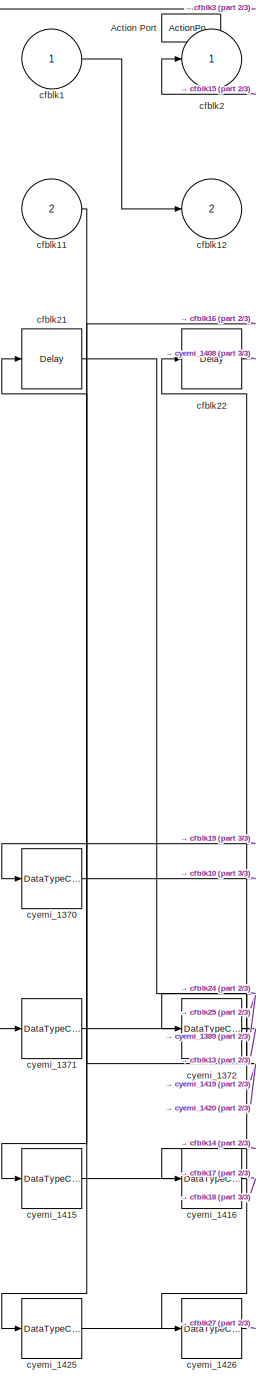
[diagram: cfblk309 - part 1/3, left side, full height]
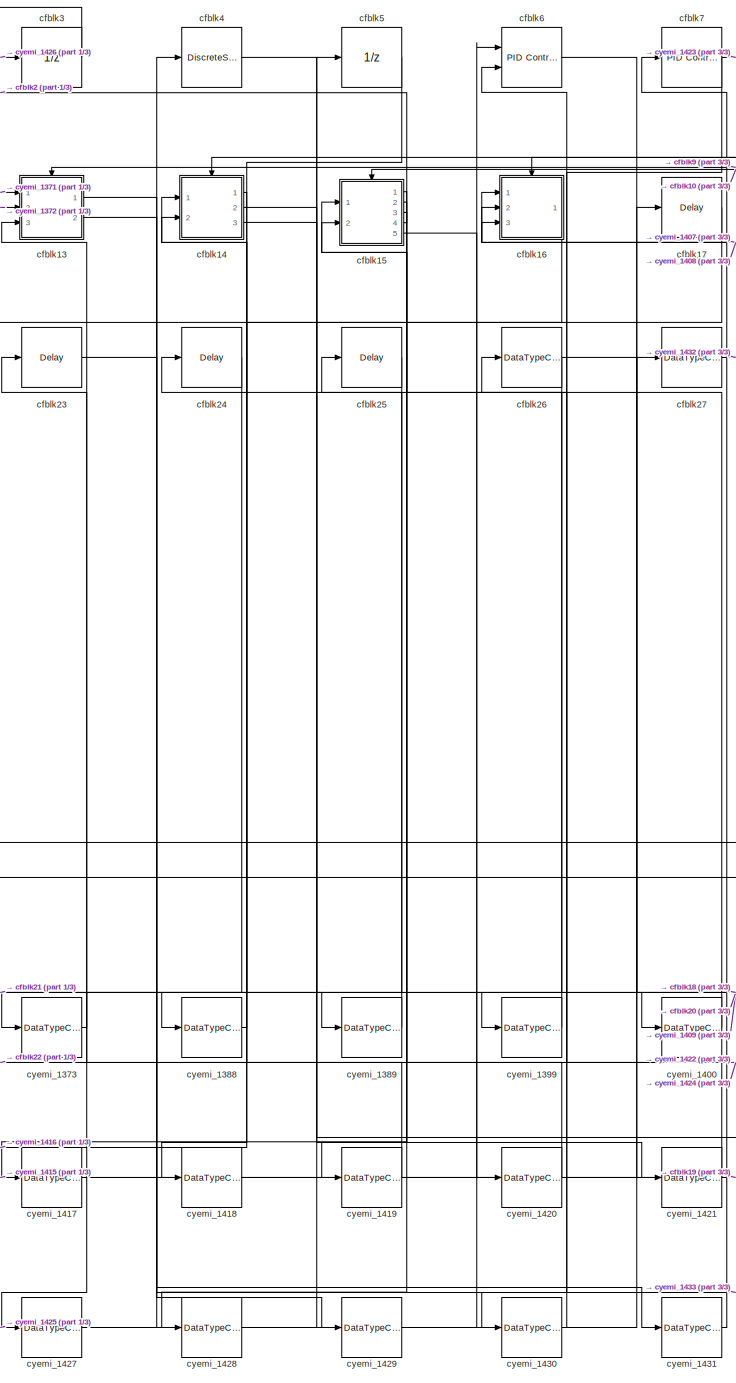
[diagram: cfblk309 - part 2/3, center side, full height]
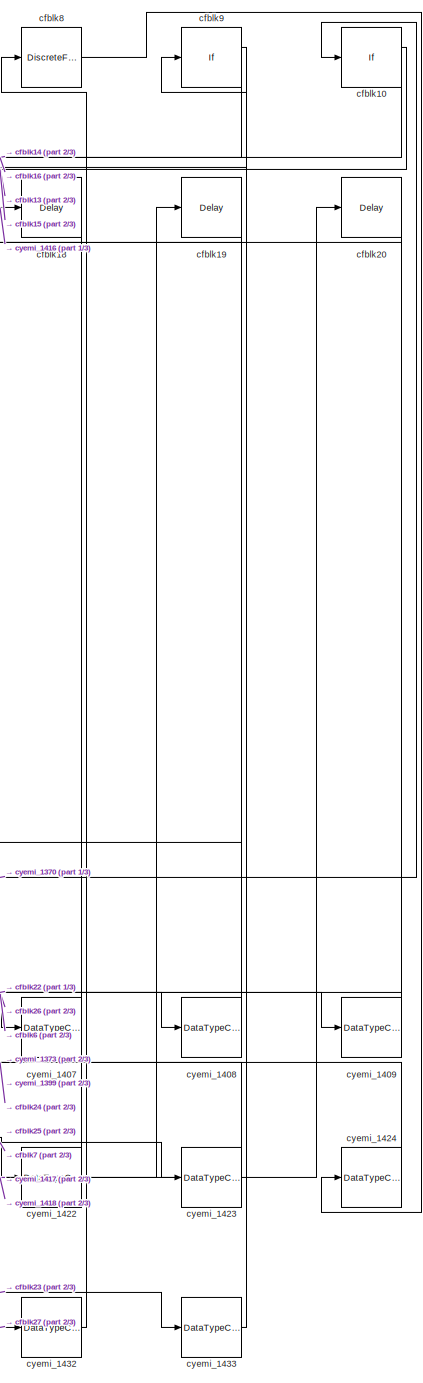
[diagram: cfblk309 - part 3/3, right side, full height]
BLOCK [SubSystem] cfblk309
  Ports = [2, 2, 0, 0, 0, 0, 0, 1]
  RequestExecContextInheritance = off
  TreatAsAtomicUnit = on
BLOCK [ActionPort] cfblk309/Action Port
  ActionType = else
BLOCK [Inport] cfblk309/cfblk1
  IconDisplay = Port number
BLOCK [If] cfblk309/cfblk10
  Ports = [1, 2]
  SampleTime = 1
BLOCK [Inport] cfblk309/cfblk11
  IconDisplay = Port number
  Port = 2
BLOCK [Outport] cfblk309/cfblk12
  IconDisplay = Port number
  Port = 2
BLOCK [SubSystem] cfblk309/cfblk13
  Ports = [3, 2, 0, 0, 0, 0, 0, 1]
  RequestExecContextInheritance = off
  TreatAsAtomicUnit = on
BLOCK [ActionPort] cfblk309/cfblk13/Action Port
  ActionType = then
BLOCK [Inport] cfblk309/cfblk13/cfblk1
  IconDisplay = Port number
BLOCK [DiscreteFir] cfblk309/cfblk13/cfblk10
  InputPortMap = u0
  OutputPortMap = o0
  Ports = [1, 1]
BLOCK [Delay] cfblk309/cfblk13/cfblk11
  DelayLengthSource = Input port
  InputPortMap = u0,p1
  Ports = [2, 1]
BLOCK [Reference] cfblk309/cfblk13/cfblk12  REF=simulink/Continuous/PID Controller
  Ports = [1, 1]
  SourceBlock = simulink/Continuous/PID Controller
  SourceProductBaseCode = SL
  SourceProductName = Simulink
  SourceType = PID 1dof
BLOCK [Reference] cfblk309/cfblk13/cfblk13  REF=simulink/Continuous/PID Controller
  Ports = [1, 1]
  SourceBlock = simulink/Continuous/PID Controller
  SourceProductBaseCode = SL
  SourceProductName = Simulink
  SourceType = PID 1dof
BLOCK [DiscreteFir] cfblk309/cfblk13/cfblk14
  InputPortMap = u0
  OutputPortMap = o0
  Ports = [1, 1]
BLOCK [Inport] cfblk309/cfblk13/cfblk15
  IconDisplay = Port number
  Port = 2
BLOCK [Inport] cfblk309/cfblk13/cfblk16
  IconDisplay = Port number
  Port = 3
BLOCK [Outport] cfblk309/cfblk13/cfblk17
  IconDisplay = Port number
  Port = 2
BLOCK [Delay] cfblk309/cfblk13/cfblk18
  InputPortMap = u0
  Ports = [1, 1]
BLOCK [Outport] cfblk309/cfblk13/cfblk2
  IconDisplay = Port number
BLOCK [Delay] cfblk309/cfblk13/cfblk3
  InputPortMap = u0
  Ports = [1, 1]
BLOCK [DiscreteZeroPole] cfblk309/cfblk13/cfblk4
  Gain = 1
  Poles = [0 0.5]
  SampleTime = -1
BLOCK [DiscreteFilter] cfblk309/cfblk13/cfblk5
  InputPortMap = u0
  Ports = [1, 1]
BLOCK [DiscreteFilter] cfblk309/cfblk13/cfblk6
  InputPortMap = u0
  Ports = [1, 1]
BLOCK [Reference] cfblk309/cfblk13/cfblk7  REF=simulink/Discrete/Tapped Delay
  Ports = [1, 1]
  SourceBlock = simulink/Discrete/Tapped Delay
  SourceProductBaseCode = SL
  SourceProductName = Simulink
  SourceType = Tapped Delay Line
BLOCK [Reference] cfblk309/cfblk13/cfblk8  REF=simulink/Discrete/Transfer Fcn
Lead or Lag
  Ports = [1, 1]
  SourceBlock = simulink/Discrete/Transfer Fcn\nLead or Lag
  SourceProductBaseCode = SL
  SourceProductName = Simulink
  SourceType = Lead or Lag Compensator
BLOCK [DiscreteIntegrator] cfblk309/cfblk13/cfblk9
  ICPrevOutput = DiscIntNeverNeededParam
  ICPrevScaledInput = DiscIntNeverNeededParam
  InitialConditionSetting = Auto
  OutDataTypeStr = double
  Ports = [1, 1]
  SampleTime = -1
BLOCK [DataTypeConversion] cfblk309/cfblk13/cyemi_1374
  OutDataTypeStr = double
  RndMeth = Floor
  SaturateOnIntegerOverflow = off
BLOCK [DataTypeConversion] cfblk309/cfblk13/cyemi_1375
  OutDataTypeStr = double
  RndMeth = Floor
  SaturateOnIntegerOverflow = off
BLOCK [DataTypeConversion] cfblk309/cfblk13/cyemi_1376
  OutDataTypeStr = double
  RndMeth = Floor
  SaturateOnIntegerOverflow = off
BLOCK [DataTypeConversion] cfblk309/cfblk13/cyemi_1377
  OutDataTypeStr = double
  RndMeth = Floor
  SaturateOnIntegerOverflow = off
BLOCK [DataTypeConversion] cfblk309/cfblk13/cyemi_1378
  OutDataTypeStr = double
  RndMeth = Floor
  SaturateOnIntegerOverflow = off
BLOCK [DataTypeConversion] cfblk309/cfblk13/cyemi_1379
  OutDataTypeStr = double
  RndMeth = Floor
  SaturateOnIntegerOverflow = off
BLOCK [DataTypeConversion] cfblk309/cfblk13/cyemi_1380
  OutDataTypeStr = double
  RndMeth = Floor
  SaturateOnIntegerOverflow = off
BLOCK [DataTypeConversion] cfblk309/cfblk13/cyemi_1381
  OutDataTypeStr = double
  RndMeth = Floor
  SaturateOnIntegerOverflow = off
BLOCK [DataTypeConversion] cfblk309/cfblk13/cyemi_1382
  OutDataTypeStr = double
  RndMeth = Floor
  SaturateOnIntegerOverflow = off
BLOCK [DataTypeConversion] cfblk309/cfblk13/cyemi_1383
  OutDataTypeStr = double
  RndMeth = Floor
  SaturateOnIntegerOverflow = off
BLOCK [DataTypeConversion] cfblk309/cfblk13/cyemi_1384
  OutDataTypeStr = double
  RndMeth = Floor
  SaturateOnIntegerOverflow = off
BLOCK [DataTypeConversion] cfblk309/cfblk13/cyemi_1385
  OutDataTypeStr = double
  RndMeth = Floor
  SaturateOnIntegerOverflow = off
BLOCK [DataTypeConversion] cfblk309/cfblk13/cyemi_1386
  OutDataTypeStr = double
  RndMeth = Floor
  SaturateOnIntegerOverflow = off
BLOCK [DataTypeConversion] cfblk309/cfblk13/cyemi_1387
  OutDataTypeStr = double
  RndMeth = Floor
  SaturateOnIntegerOverflow = off
BLOCK [SubSystem] cfblk309/cfblk14
  Ports = [2, 3, 0, 0, 0, 0, 0, 1]
  RequestExecContextInheritance = off
  TreatAsAtomicUnit = on
BLOCK [ActionPort] cfblk309/cfblk14/Action Port
  ActionType = else
BLOCK [Inport] cfblk309/cfblk14/cfblk1
  IconDisplay = Port number
BLOCK [DiscreteFir] cfblk309/cfblk14/cfblk10
  InputPortMap = u0
  OutputPortMap = o0
  Ports = [1, 1]
BLOCK [Reference] cfblk309/cfblk14/cfblk11  REF=simulink/Discrete/Transfer Fcn
Lead or Lag
  Ports = [1, 1]
  SourceBlock = simulink/Discrete/Transfer Fcn\nLead or Lag
  SourceProductBaseCode = SL
  SourceProductName = Simulink
  SourceType = Lead or Lag Compensator
BLOCK [Inport] cfblk309/cfblk14/cfblk12
  IconDisplay = Port number
  Port = 2
BLOCK [Outport] cfblk309/cfblk14/cfblk13
  IconDisplay = Port number
  Port = 2
BLOCK [Outport] cfblk309/cfblk14/cfblk14
  IconDisplay = Port number
  Port = 3
BLOCK [Outport] cfblk309/cfblk14/cfblk2
  IconDisplay = Port number
BLOCK [DiscreteZeroPole] cfblk309/cfblk14/cfblk3
  Gain = 1
  Poles = [0 0.5]
  SampleTime = -1
BLOCK [DiscreteTransferFcn] cfblk309/cfblk14/cfblk4
  InputPortMap = u0
  Ports = [1, 1]
BLOCK [Delay] cfblk309/cfblk14/cfblk5
  InputPortMap = u0
  Ports = [1, 1]
BLOCK [DiscreteFilter] cfblk309/cfblk14/cfblk6
  InputPortMap = u0
  Ports = [1, 1]
BLOCK [DiscreteStateSpace] cfblk309/cfblk14/cfblk7
  SampleTime = -1
BLOCK [Reference] cfblk309/cfblk14/cfblk8  REF=simulink/Discrete/Transfer Fcn
Real Zero
  Ports = [1, 1]
  SourceBlock = simulink/Discrete/Transfer Fcn\nReal Zero
  SourceProductBaseCode = SL
  SourceProductName = Simulink
  SourceType = Transfer Fcn Real Zero
BLOCK [Reference] cfblk309/cfblk14/cfblk9  REF=simulink/Continuous/PID Controller
  Ports = [1, 1]
  SourceBlock = simulink/Continuous/PID Controller
  SourceProductBaseCode = SL
  SourceProductName = Simulink
  SourceType = PID 1dof
BLOCK [DataTypeConversion] cfblk309/cfblk14/cyemi_1390
  OutDataTypeStr = double
  RndMeth = Floor
  SaturateOnIntegerOverflow = off
BLOCK [DataTypeConversion] cfblk309/cfblk14/cyemi_1391
  OutDataTypeStr = double
  RndMeth = Floor
  SaturateOnIntegerOverflow = off
BLOCK [DataTypeConversion] cfblk309/cfblk14/cyemi_1392
  OutDataTypeStr = double
  RndMeth = Floor
  SaturateOnIntegerOverflow = off
BLOCK [DataTypeConversion] cfblk309/cfblk14/cyemi_1393
  OutDataTypeStr = double
  RndMeth = Floor
  SaturateOnIntegerOverflow = off
BLOCK [DataTypeConversion] cfblk309/cfblk14/cyemi_1394
  OutDataTypeStr = double
  RndMeth = Floor
  SaturateOnIntegerOverflow = off
BLOCK [DataTypeConversion] cfblk309/cfblk14/cyemi_1395
  OutDataTypeStr = double
  RndMeth = Floor
  SaturateOnIntegerOverflow = off
BLOCK [DataTypeConversion] cfblk309/cfblk14/cyemi_1396
  OutDataTypeStr = double
  RndMeth = Floor
  SaturateOnIntegerOverflow = off
BLOCK [DataTypeConversion] cfblk309/cfblk14/cyemi_1397
  OutDataTypeStr = double
  RndMeth = Floor
  SaturateOnIntegerOverflow = off
BLOCK [DataTypeConversion] cfblk309/cfblk14/cyemi_1398
  OutDataTypeStr = double
  RndMeth = Floor
  SaturateOnIntegerOverflow = off
BLOCK [SubSystem] cfblk309/cfblk15
  Ports = [2, 5, 0, 0, 0, 0, 0, 1]
  RequestExecContextInheritance = off
  TreatAsAtomicUnit = on
BLOCK [ActionPort] cfblk309/cfblk15/Action Port
  ActionType = then
BLOCK [Inport] cfblk309/cfblk15/cfblk1
  IconDisplay = Port number
BLOCK [Outport] cfblk309/cfblk15/cfblk10
  IconDisplay = Port number
  Port = 4
BLOCK [Outport] cfblk309/cfblk15/cfblk11
  IconDisplay = Port number
  Port = 5
BLOCK [Outport] cfblk309/cfblk15/cfblk2
  IconDisplay = Port number
BLOCK [Reference] cfblk309/cfblk15/cfblk3  REF=simulink/Discrete/Transfer Fcn
Lead or Lag
  Ports = [1, 1]
  SourceBlock = simulink/Discrete/Transfer Fcn\nLead or Lag
  SourceProductBaseCode = SL
  SourceProductName = Simulink
  SourceType = Lead or Lag Compensator
BLOCK [Delay] cfblk309/cfblk15/cfblk4
  InputPortMap = u0,e6
  Ports = [2, 1]
  ShowEnablePort = on
BLOCK [Reference] cfblk309/cfblk15/cfblk5  REF=simulink/Discrete/Difference
  Ports = [1, 1]
  SourceBlock = simulink/Discrete/Difference
  SourceProductBaseCode = SL
  SourceProductName = Simulink
  SourceType = Difference
BLOCK [Reference] cfblk309/cfblk15/cfblk6  REF=simulink/Continuous/PID Controller (2DOF)
  Ports = [2, 1]
  SourceBlock = simulink/Continuous/PID Controller (2DOF)
  SourceProductBaseCode = SL
  SourceProductName = Simulink
  SourceType = PID 2dof
BLOCK [Inport] cfblk309/cfblk15/cfblk7
  IconDisplay = Port number
  Port = 2
BLOCK [Outport] cfblk309/cfblk15/cfblk8
  IconDisplay = Port number
  Port = 2
BLOCK [Outport] cfblk309/cfblk15/cfblk9
  IconDisplay = Port number
  Port = 3
BLOCK [DataTypeConversion] cfblk309/cfblk15/cyemi_1401
  OutDataTypeStr = double
  RndMeth = Floor
  SaturateOnIntegerOverflow = off
BLOCK [DataTypeConversion] cfblk309/cfblk15/cyemi_1402
  OutDataTypeStr = double
  RndMeth = Floor
  SaturateOnIntegerOverflow = off
BLOCK [DataTypeConversion] cfblk309/cfblk15/cyemi_1403
  OutDataTypeStr = double
  RndMeth = Floor
  SaturateOnIntegerOverflow = off
BLOCK [DataTypeConversion] cfblk309/cfblk15/cyemi_1404
  OutDataTypeStr = double
  RndMeth = Floor
  SaturateOnIntegerOverflow = off
BLOCK [DataTypeConversion] cfblk309/cfblk15/cyemi_1405
  OutDataTypeStr = double
  RndMeth = Floor
  SaturateOnIntegerOverflow = off
BLOCK [DataTypeConversion] cfblk309/cfblk15/cyemi_1406
  OutDataTypeStr = double
  RndMeth = Floor
  SaturateOnIntegerOverflow = off
BLOCK [SubSystem] cfblk309/cfblk16
  Ports = [3, 1, 0, 0, 0, 0, 0, 1]
  RequestExecContextInheritance = off
  TreatAsAtomicUnit = on
BLOCK [ActionPort] cfblk309/cfblk16/Action Port
  ActionType = else
BLOCK [Inport] cfblk309/cfblk16/cfblk1
  IconDisplay = Port number
BLOCK [Outport] cfblk309/cfblk16/cfblk2
  IconDisplay = Port number
BLOCK [Reference] cfblk309/cfblk16/cfblk3  REF=simulink/Continuous/PID Controller (2DOF)
  Ports = [2, 1]
  SourceBlock = simulink/Continuous/PID Controller (2DOF)
  SourceProductBaseCode = SL
  SourceProductName = Simulink
  SourceType = PID 2dof
BLOCK [DiscreteZeroPole] cfblk309/cfblk16/cfblk4
  Gain = 1
  Poles = [0 0.5]
  SampleTime = -1
BLOCK [DiscreteFilter] cfblk309/cfblk16/cfblk5
  InputPortMap = u0
  Ports = [1, 1]
BLOCK [DiscreteStateSpace] cfblk309/cfblk16/cfblk6
  SampleTime = -1
BLOCK [Inport] cfblk309/cfblk16/cfblk7
  IconDisplay = Port number
  Port = 2
BLOCK [Inport] cfblk309/cfblk16/cfblk8
  IconDisplay = Port number
  Port = 3
BLOCK [DataTypeConversion] cfblk309/cfblk16/cyemi_1410
  OutDataTypeStr = double
  RndMeth = Floor
  SaturateOnIntegerOverflow = off
BLOCK [DataTypeConversion] cfblk309/cfblk16/cyemi_1411
  OutDataTypeStr = double
  RndMeth = Floor
  SaturateOnIntegerOverflow = off
BLOCK [DataTypeConversion] cfblk309/cfblk16/cyemi_1412
  OutDataTypeStr = double
  RndMeth = Floor
  SaturateOnIntegerOverflow = off
BLOCK [DataTypeConversion] cfblk309/cfblk16/cyemi_1413
  OutDataTypeStr = double
  RndMeth = Floor
  SaturateOnIntegerOverflow = off
BLOCK [DataTypeConversion] cfblk309/cfblk16/cyemi_1414
  OutDataTypeStr = double
  RndMeth = Floor
  SaturateOnIntegerOverflow = off
BLOCK [Delay] cfblk309/cfblk17
  InputPortMap = u0
  Ports = [1, 1]
BLOCK [Delay] cfblk309/cfblk18
  InputPortMap = u0
  Ports = [1, 1]
BLOCK [Delay] cfblk309/cfblk19
  InputPortMap = u0
  Ports = [1, 1]
BLOCK [Outport] cfblk309/cfblk2
  IconDisplay = Port number
BLOCK [Delay] cfblk309/cfblk20
  InputPortMap = u0
  Ports = [1, 1]
BLOCK [Delay] cfblk309/cfblk21
  InputPortMap = u0
  Ports = [1, 1]
BLOCK [Delay] cfblk309/cfblk22
  InputPortMap = u0
  Ports = [1, 1]
BLOCK [Delay] cfblk309/cfblk23
  InputPortMap = u0
  Ports = [1, 1]
BLOCK [Delay] cfblk309/cfblk24
  InputPortMap = u0
  Ports = [1, 1]
BLOCK [Delay] cfblk309/cfblk25
  InputPortMap = u0
  Ports = [1, 1]
BLOCK [DataTypeConversion] cfblk309/cfblk26
  OutDataTypeStr = double
  RndMeth = Floor
  SaturateOnIntegerOverflow = off
BLOCK [DataTypeConversion] cfblk309/cfblk27
  OutDataTypeStr = double
  RndMeth = Floor
  SaturateOnIntegerOverflow = off
BLOCK [UnitDelay] cfblk309/cfblk3
  InputProcessing = Elements as channels (sample based)
  SampleTime = -1
BLOCK [DiscreteStateSpace] cfblk309/cfblk4
  SampleTime = -1
BLOCK [UnitDelay] cfblk309/cfblk5
  InputProcessing = Elements as channels (sample based)
  SampleTime = -1
BLOCK [Reference] cfblk309/cfblk6  REF=simulink/Continuous/PID Controller (2DOF)
  Ports = [2, 1]
  SourceBlock = simulink/Continuous/PID Controller (2DOF)
  SourceProductBaseCode = SL
  SourceProductName = Simulink
  SourceType = PID 2dof
BLOCK [Reference] cfblk309/cfblk7  REF=simulink/Continuous/PID Controller
  Ports = [1, 1]
  SourceBlock = simulink/Continuous/PID Controller
  SourceProductBaseCode = SL
  SourceProductName = Simulink
  SourceType = PID 1dof
BLOCK [DiscreteFilter] cfblk309/cfblk8
  InputPortMap = u0
  Ports = [1, 1]
BLOCK [If] cfblk309/cfblk9
  Ports = [1, 2]
  SampleTime = 1
BLOCK [DataTypeConversion] cfblk309/cyemi_1370
  OutDataTypeStr = double
  RndMeth = Floor
  SaturateOnIntegerOverflow = off
BLOCK [DataTypeConversion] cfblk309/cyemi_1371
  OutDataTypeStr = double
  RndMeth = Floor
  SaturateOnIntegerOverflow = off
BLOCK [DataTypeConversion] cfblk309/cyemi_1372
  OutDataTypeStr = double
  RndMeth = Floor
  SaturateOnIntegerOverflow = off
BLOCK [DataTypeConversion] cfblk309/cyemi_1373
  OutDataTypeStr = double
  RndMeth = Floor
  SaturateOnIntegerOverflow = off
BLOCK [DataTypeConversion] cfblk309/cyemi_1388
  OutDataTypeStr = double
  RndMeth = Floor
  SaturateOnIntegerOverflow = off
BLOCK [DataTypeConversion] cfblk309/cyemi_1389
  OutDataTypeStr = double
  RndMeth = Floor
  SaturateOnIntegerOverflow = off
BLOCK [DataTypeConversion] cfblk309/cyemi_1399
  OutDataTypeStr = double
  RndMeth = Floor
  SaturateOnIntegerOverflow = off
BLOCK [DataTypeConversion] cfblk309/cyemi_1400
  OutDataTypeStr = double
  RndMeth = Floor
  SaturateOnIntegerOverflow = off
BLOCK [DataTypeConversion] cfblk309/cyemi_1407
  OutDataTypeStr = double
  RndMeth = Floor
  SaturateOnIntegerOverflow = off
BLOCK [DataTypeConversion] cfblk309/cyemi_1408
  OutDataTypeStr = double
  RndMeth = Floor
  SaturateOnIntegerOverflow = off
BLOCK [DataTypeConversion] cfblk309/cyemi_1409
  OutDataTypeStr = double
  RndMeth = Floor
  SaturateOnIntegerOverflow = off
BLOCK [DataTypeConversion] cfblk309/cyemi_1415
  OutDataTypeStr = double
  RndMeth = Floor
  SaturateOnIntegerOverflow = off
BLOCK [DataTypeConversion] cfblk309/cyemi_1416
  OutDataTypeStr = double
  RndMeth = Floor
  SaturateOnIntegerOverflow = off
BLOCK [DataTypeConversion] cfblk309/cyemi_1417
  OutDataTypeStr = double
  RndMeth = Floor
  SaturateOnIntegerOverflow = off
BLOCK [DataTypeConversion] cfblk309/cyemi_1418
  OutDataTypeStr = double
  RndMeth = Floor
  SaturateOnIntegerOverflow = off
BLOCK [DataTypeConversion] cfblk309/cyemi_1419
  OutDataTypeStr = double
  RndMeth = Floor
  SaturateOnIntegerOverflow = off
BLOCK [DataTypeConversion] cfblk309/cyemi_1420
  OutDataTypeStr = double
  RndMeth = Floor
  SaturateOnIntegerOverflow = off
BLOCK [DataTypeConversion] cfblk309/cyemi_1421
  OutDataTypeStr = double
  RndMeth = Floor
  SaturateOnIntegerOverflow = off
BLOCK [DataTypeConversion] cfblk309/cyemi_1422
  OutDataTypeStr = double
  RndMeth = Floor
  SaturateOnIntegerOverflow = off
BLOCK [DataTypeConversion] cfblk309/cyemi_1423
  OutDataTypeStr = double
  RndMeth = Floor
  SaturateOnIntegerOverflow = off
BLOCK [DataTypeConversion] cfblk309/cyemi_1424
  OutDataTypeStr = double
  RndMeth = Floor
  SaturateOnIntegerOverflow = off
BLOCK [DataTypeConversion] cfblk309/cyemi_1425
  OutDataTypeStr = double
  RndMeth = Floor
  SaturateOnIntegerOverflow = off
BLOCK [DataTypeConversion] cfblk309/cyemi_1426
  OutDataTypeStr = double
  RndMeth = Floor
  SaturateOnIntegerOverflow = off
BLOCK [DataTypeConversion] cfblk309/cyemi_1427
  OutDataTypeStr = double
  RndMeth = Floor
  SaturateOnIntegerOverflow = off
BLOCK [DataTypeConversion] cfblk309/cyemi_1428
  OutDataTypeStr = double
  RndMeth = Floor
  SaturateOnIntegerOverflow = off
BLOCK [DataTypeConversion] cfblk309/cyemi_1429
  OutDataTypeStr = double
  RndMeth = Floor
  SaturateOnIntegerOverflow = off
BLOCK [DataTypeConversion] cfblk309/cyemi_1430
  OutDataTypeStr = double
  RndMeth = Floor
  SaturateOnIntegerOverflow = off
BLOCK [DataTypeConversion] cfblk309/cyemi_1431
  OutDataTypeStr = double
  RndMeth = Floor
  SaturateOnIntegerOverflow = off
BLOCK [DataTypeConversion] cfblk309/cyemi_1432
  OutDataTypeStr = double
  RndMeth = Floor
  SaturateOnIntegerOverflow = off
BLOCK [DataTypeConversion] cfblk309/cyemi_1433
  OutDataTypeStr = double
  RndMeth = Floor
  SaturateOnIntegerOverflow = off
BLOCK [Delay] cfblk31
  InputPortMap = u0
  Ports = [1, 1]
  SampleTime = 1
BLOCK [SubSystem] cfblk310
  Ports = [3, 1, 0, 0, 0, 0, 0, 1]
  RequestExecContextInheritance = off
  TreatAsAtomicUnit = on
BLOCK [ActionPort] cfblk310/Action Port
  ActionType = then
BLOCK [Inport] cfblk310/cfblk1
  IconDisplay = Port number
BLOCK [UnitDelay] cfblk310/cfblk10
  InputProcessing = Elements as channels (sample based)
  SampleTime = -1
BLOCK [DiscreteFir] cfblk310/cfblk11
  InputPortMap = u0
  OutputPortMap = o0
  Ports = [1, 1]
BLOCK [UnitDelay] cfblk310/cfblk12
  InputProcessing = Elements as channels (sample based)
  SampleTime = -1
BLOCK [If] cfblk310/cfblk13
  Ports = [1, 2]
  SampleTime = 1
BLOCK [Inport] cfblk310/cfblk14
  IconDisplay = Port number
  Port = 2
BLOCK [Inport] cfblk310/cfblk15
  IconDisplay = Port number
  Port = 3
BLOCK [SubSystem] cfblk310/cfblk16
  Ports = [1, 2, 0, 0, 0, 0, 0, 1]
  RequestExecContextInheritance = off
  TreatAsAtomicUnit = on
BLOCK [ActionPort] cfblk310/cfblk16/Action Port
  ActionType = then
BLOCK [Inport] cfblk310/cfblk16/cfblk1
  IconDisplay = Port number
BLOCK [Delay] cfblk310/cfblk16/cfblk10
  DelayLengthSource = Input port
  InputPortMap = u0,p1
  Ports = [2, 1]
BLOCK [Reference] cfblk310/cfblk16/cfblk11  REF=simulink/Continuous/PID Controller (2DOF)
  Ports = [2, 1]
  SourceBlock = simulink/Continuous/PID Controller (2DOF)
  SourceProductBaseCode = SL
  SourceProductName = Simulink
  SourceType = PID 2dof
BLOCK [Delay] cfblk310/cfblk16/cfblk12
  InputPortMap = u0,e6
  Ports = [2, 1]
  ShowEnablePort = on
BLOCK [Reference] cfblk310/cfblk16/cfblk13  REF=simulink/Continuous/PID Controller
  Ports = [1, 1]
  SourceBlock = simulink/Continuous/PID Controller
  SourceProductBaseCode = SL
  SourceProductName = Simulink
  SourceType = PID 1dof
BLOCK [Delay] cfblk310/cfblk16/cfblk14
  DelayLengthSource = Input port
  InputPortMap = u0,p1
  Ports = [2, 1]
BLOCK [DiscreteFir] cfblk310/cfblk16/cfblk15
  InputPortMap = u0
  OutputPortMap = o0
  Ports = [1, 1]
BLOCK [Reference] cfblk310/cfblk16/cfblk16  REF=simulink/Discrete/Transfer Fcn
Real Zero
  Ports = [1, 1]
  SourceBlock = simulink/Discrete/Transfer Fcn\nReal Zero
  SourceProductBaseCode = SL
  SourceProductName = Simulink
  SourceType = Transfer Fcn Real Zero
BLOCK [Outport] cfblk310/cfblk16/cfblk17
  IconDisplay = Port number
  Port = 2
BLOCK [Delay] cfblk310/cfblk16/cfblk18
  InputPortMap = u0
  Ports = [1, 1]
BLOCK [Delay] cfblk310/cfblk16/cfblk19
  InputPortMap = u0
  Ports = [1, 1]
BLOCK [Outport] cfblk310/cfblk16/cfblk2
  IconDisplay = Port number
BLOCK [Delay] cfblk310/cfblk16/cfblk20
  InputPortMap = u0
  Ports = [1, 1]
BLOCK [Reference] cfblk310/cfblk16/cfblk3  REF=simulink/Continuous/PID Controller (2DOF)
  Ports = [2, 1]
  SourceBlock = simulink/Continuous/PID Controller (2DOF)
  SourceProductBaseCode = SL
  SourceProductName = Simulink
  SourceType = PID 2dof
BLOCK [Reference] cfblk310/cfblk16/cfblk4  REF=simulink/Continuous/PID Controller (2DOF)
  Ports = [2, 1]
  SourceBlock = simulink/Continuous/PID Controller (2DOF)
  SourceProductBaseCode = SL
  SourceProductName = Simulink
  SourceType = PID 2dof
BLOCK [Delay] cfblk310/cfblk16/cfblk5
  DelayLengthSource = Input port
  InputPortMap = u0,p1
  Ports = [2, 1]
BLOCK [Reference] cfblk310/cfblk16/cfblk6  REF=simulink/Continuous/PID Controller (2DOF)
  Ports = [2, 1]
  SourceBlock = simulink/Continuous/PID Controller (2DOF)
  SourceProductBaseCode = SL
  SourceProductName = Simulink
  SourceType = PID 2dof
BLOCK [Reference] cfblk310/cfblk16/cfblk7  REF=simulink/Discrete/Transfer Fcn
Lead or Lag
  Ports = [1, 1]
  SourceBlock = simulink/Discrete/Transfer Fcn\nLead or Lag
  SourceProductBaseCode = SL
  SourceProductName = Simulink
  SourceType = Lead or Lag Compensator
BLOCK [Reference] cfblk310/cfblk16/cfblk8  REF=simulink/Discrete/Transfer Fcn
Real Zero
  Ports = [1, 1]
  SourceBlock = simulink/Discrete/Transfer Fcn\nReal Zero
  SourceProductBaseCode = SL
  SourceProductName = Simulink
  SourceType = Transfer Fcn Real Zero
BLOCK [DiscreteStateSpace] cfblk310/cfblk16/cfblk9
  SampleTime = -1
BLOCK [DataTypeConversion] cfblk310/cfblk16/cyemi_1443
  OutDataTypeStr = double
  RndMeth = Floor
  SaturateOnIntegerOverflow = off
BLOCK [DataTypeConversion] cfblk310/cfblk16/cyemi_1444
  OutDataTypeStr = double
  RndMeth = Floor
  SaturateOnIntegerOverflow = off
BLOCK [DataTypeConversion] cfblk310/cfblk16/cyemi_1445
  OutDataTypeStr = double
  RndMeth = Floor
  SaturateOnIntegerOverflow = off
BLOCK [DataTypeConversion] cfblk310/cfblk16/cyemi_1446
  OutDataTypeStr = double
  RndMeth = Floor
  SaturateOnIntegerOverflow = off
BLOCK [DataTypeConversion] cfblk310/cfblk16/cyemi_1447
  OutDataTypeStr = double
  RndMeth = Floor
  SaturateOnIntegerOverflow = off
BLOCK [DataTypeConversion] cfblk310/cfblk16/cyemi_1448
  OutDataTypeStr = double
  RndMeth = Floor
  SaturateOnIntegerOverflow = off
BLOCK [DataTypeConversion] cfblk310/cfblk16/cyemi_1449
  OutDataTypeStr = double
  RndMeth = Floor
  SaturateOnIntegerOverflow = off
BLOCK [DataTypeConversion] cfblk310/cfblk16/cyemi_1450
  OutDataTypeStr = double
  RndMeth = Floor
  SaturateOnIntegerOverflow = off
BLOCK [DataTypeConversion] cfblk310/cfblk16/cyemi_1451
  OutDataTypeStr = double
  RndMeth = Floor
  SaturateOnIntegerOverflow = off
BLOCK [DataTypeConversion] cfblk310/cfblk16/cyemi_1452
  OutDataTypeStr = double
  RndMeth = Floor
  SaturateOnIntegerOverflow = off
BLOCK [DataTypeConversion] cfblk310/cfblk16/cyemi_1453
  OutDataTypeStr = double
  RndMeth = Floor
  SaturateOnIntegerOverflow = off
BLOCK [DataTypeConversion] cfblk310/cfblk16/cyemi_1454
  OutDataTypeStr = double
  RndMeth = Floor
  SaturateOnIntegerOverflow = off
BLOCK [DataTypeConversion] cfblk310/cfblk16/cyemi_1455
  OutDataTypeStr = double
  RndMeth = Floor
  SaturateOnIntegerOverflow = off
BLOCK [DataTypeConversion] cfblk310/cfblk16/cyemi_1456
  OutDataTypeStr = double
  RndMeth = Floor
  SaturateOnIntegerOverflow = off
BLOCK [DataTypeConversion] cfblk310/cfblk16/cyemi_1457
  OutDataTypeStr = double
  RndMeth = Floor
  SaturateOnIntegerOverflow = off
BLOCK [DataTypeConversion] cfblk310/cfblk16/cyemi_1458
  OutDataTypeStr = double
  RndMeth = Floor
  SaturateOnIntegerOverflow = off
BLOCK [DataTypeConversion] cfblk310/cfblk16/cyemi_1459
  OutDataTypeStr = double
  RndMeth = Floor
  SaturateOnIntegerOverflow = off
BLOCK [DataTypeConversion] cfblk310/cfblk16/cyemi_1460
  OutDataTypeStr = double
  RndMeth = Floor
  SaturateOnIntegerOverflow = off
BLOCK [DataTypeConversion] cfblk310/cfblk16/cyemi_1461
  OutDataTypeStr = double
  RndMeth = Floor
  SaturateOnIntegerOverflow = off
BLOCK [DataTypeConversion] cfblk310/cfblk16/cyemi_1462
  OutDataTypeStr = double
  RndMeth = Floor
  SaturateOnIntegerOverflow = off
BLOCK [DataTypeConversion] cfblk310/cfblk16/cyemi_1463
  OutDataTypeStr = double
  RndMeth = Floor
  SaturateOnIntegerOverflow = off
BLOCK [DataTypeConversion] cfblk310/cfblk16/cyemi_1464
  OutDataTypeStr = double
  RndMeth = Floor
  SaturateOnIntegerOverflow = off
BLOCK [DataTypeConversion] cfblk310/cfblk16/cyemi_1465
  OutDataTypeStr = double
  RndMeth = Floor
  SaturateOnIntegerOverflow = off
BLOCK [DataTypeConversion] cfblk310/cfblk16/cyemi_1466
  OutDataTypeStr = double
  RndMeth = Floor
  SaturateOnIntegerOverflow = off
BLOCK [DataTypeConversion] cfblk310/cfblk16/cyemi_1467
  OutDataTypeStr = double
  RndMeth = Floor
  SaturateOnIntegerOverflow = off
BLOCK [SubSystem] cfblk310/cfblk17
  Ports = [2, 3, 0, 0, 0, 0, 0, 1]
  RequestExecContextInheritance = off
  TreatAsAtomicUnit = on
BLOCK [ActionPort] cfblk310/cfblk17/Action Port
  ActionType = else
BLOCK [Inport] cfblk310/cfblk17/cfblk1
  IconDisplay = Port number
BLOCK [Inport] cfblk310/cfblk17/cfblk10
  IconDisplay = Port number
  Port = 2
BLOCK [Outport] cfblk310/cfblk17/cfblk11
  IconDisplay = Port number
  Port = 2
BLOCK [Outport] cfblk310/cfblk17/cfblk12
  IconDisplay = Port number
  Port = 3
BLOCK [Delay] cfblk310/cfblk17/cfblk13
  InputPortMap = u0
  Ports = [1, 1]
BLOCK [Delay] cfblk310/cfblk17/cfblk14
  InputPortMap = u0
  Ports = [1, 1]
BLOCK [Outport] cfblk310/cfblk17/cfblk2
  IconDisplay = Port number
BLOCK [Delay] cfblk310/cfblk17/cfblk3
  InputPortMap = u0,e6
  Ports = [2, 1]
  ShowEnablePort = on
BLOCK [Delay] cfblk310/cfblk17/cfblk4
  InputPortMap = u0
  Ports = [1, 1]
BLOCK [Delay] cfblk310/cfblk17/cfblk5
  InputPortMap = u0,e6
  Ports = [2, 1]
  ShowEnablePort = on
BLOCK [DiscreteTransferFcn] cfblk310/cfblk17/cfblk6
  InputPortMap = u0
  Ports = [1, 1]
BLOCK [DiscreteIntegrator] cfblk310/cfblk17/cfblk7
  ICPrevOutput = DiscIntNeverNeededParam
  ICPrevScaledInput = DiscIntNeverNeededParam
  InitialConditionSetting = Auto
  OutDataTypeStr = double
  Ports = [1, 1]
  SampleTime = -1
BLOCK [Reference] cfblk310/cfblk17/cfblk8  REF=simulink/Continuous/PID Controller (2DOF)
  Ports = [2, 1]
  SourceBlock = simulink/Continuous/PID Controller (2DOF)
  SourceProductBaseCode = SL
  SourceProductName = Simulink
  SourceType = PID 2dof
BLOCK [Delay] cfblk310/cfblk17/cfblk9
  DelayLengthSource = Input port
  InputPortMap = u0,p1
  Ports = [2, 1]
BLOCK [DataTypeConversion] cfblk310/cfblk17/cyemi_1470
  OutDataTypeStr = double
  RndMeth = Floor
  SaturateOnIntegerOverflow = off
BLOCK [DataTypeConversion] cfblk310/cfblk17/cyemi_1471
  OutDataTypeStr = double
  RndMeth = Floor
  SaturateOnIntegerOverflow = off
BLOCK [DataTypeConversion] cfblk310/cfblk17/cyemi_1472
  OutDataTypeStr = double
  RndMeth = Floor
  SaturateOnIntegerOverflow = off
BLOCK [DataTypeConversion] cfblk310/cfblk17/cyemi_1473
  OutDataTypeStr = double
  RndMeth = Floor
  SaturateOnIntegerOverflow = off
BLOCK [DataTypeConversion] cfblk310/cfblk17/cyemi_1474
  OutDataTypeStr = double
  RndMeth = Floor
  SaturateOnIntegerOverflow = off
BLOCK [DataTypeConversion] cfblk310/cfblk17/cyemi_1475
  OutDataTypeStr = double
  RndMeth = Floor
  SaturateOnIntegerOverflow = off
BLOCK [DataTypeConversion] cfblk310/cfblk17/cyemi_1476
  OutDataTypeStr = double
  RndMeth = Floor
  SaturateOnIntegerOverflow = off
BLOCK [DataTypeConversion] cfblk310/cfblk17/cyemi_1477
  OutDataTypeStr = double
  RndMeth = Floor
  SaturateOnIntegerOverflow = off
BLOCK [DataTypeConversion] cfblk310/cfblk17/cyemi_1478
  OutDataTypeStr = double
  RndMeth = Floor
  SaturateOnIntegerOverflow = off
BLOCK [DataTypeConversion] cfblk310/cfblk17/cyemi_1479
  OutDataTypeStr = double
  RndMeth = Floor
  SaturateOnIntegerOverflow = off
BLOCK [DataTypeConversion] cfblk310/cfblk17/cyemi_1480
  OutDataTypeStr = double
  RndMeth = Floor
  SaturateOnIntegerOverflow = off
BLOCK [DataTypeConversion] cfblk310/cfblk17/cyemi_1481
  OutDataTypeStr = double
  RndMeth = Floor
  SaturateOnIntegerOverflow = off
BLOCK [DataTypeConversion] cfblk310/cfblk17/cyemi_1482
  OutDataTypeStr = double
  RndMeth = Floor
  SaturateOnIntegerOverflow = off
BLOCK [Delay] cfblk310/cfblk18
  InputPortMap = u0
  Ports = [1, 1]
BLOCK [Delay] cfblk310/cfblk19
  InputPortMap = u0
  Ports = [1, 1]
BLOCK [Outport] cfblk310/cfblk2
  IconDisplay = Port number
BLOCK [Reference] cfblk310/cfblk3  REF=simulink/Discrete/Tapped Delay
  Ports = [1, 1]
  SourceBlock = simulink/Discrete/Tapped Delay
  SourceProductBaseCode = SL
  SourceProductName = Simulink
  SourceType = Tapped Delay Line
BLOCK [Reference] cfblk310/cfblk4  REF=simulink/Continuous/PID Controller (2DOF)
  Ports = [2, 1]
  SourceBlock = simulink/Continuous/PID Controller (2DOF)
  SourceProductBaseCode = SL
  SourceProductName = Simulink
  SourceType = PID 2dof
BLOCK [DiscreteStateSpace] cfblk310/cfblk5
  SampleTime = -1
BLOCK [Reference] cfblk310/cfblk6  REF=simulink/Discrete/Transfer Fcn
Lead or Lag
  Ports = [1, 1]
  SourceBlock = simulink/Discrete/Transfer Fcn\nLead or Lag
  SourceProductBaseCode = SL
  SourceProductName = Simulink
  SourceType = Lead or Lag Compensator
BLOCK [UnitDelay] cfblk310/cfblk7
  InputProcessing = Elements as channels (sample based)
  SampleTime = -1
BLOCK [Reference] cfblk310/cfblk8  REF=simulink/Discrete/Tapped Delay
  Ports = [1, 1]
  SourceBlock = simulink/Discrete/Tapped Delay
  SourceProductBaseCode = SL
  SourceProductName = Simulink
  SourceType = Tapped Delay Line
BLOCK [DiscreteZeroPole] cfblk310/cfblk9
  Gain = 1
  Poles = [0 0.5]
  SampleTime = -1
BLOCK [DataTypeConversion] cfblk310/cyemi_1438
  OutDataTypeStr = double
  RndMeth = Floor
  SaturateOnIntegerOverflow = off
BLOCK [DataTypeConversion] cfblk310/cyemi_1439
  OutDataTypeStr = double
  RndMeth = Floor
  SaturateOnIntegerOverflow = off
BLOCK [DataTypeConversion] cfblk310/cyemi_1440
  OutDataTypeStr = double
  RndMeth = Floor
  SaturateOnIntegerOverflow = off
BLOCK [DataTypeConversion] cfblk310/cyemi_1441
  OutDataTypeStr = double
  RndMeth = Floor
  SaturateOnIntegerOverflow = off
BLOCK [DataTypeConversion] cfblk310/cyemi_1442
  OutDataTypeStr = double
  RndMeth = Floor
  SaturateOnIntegerOverflow = off
BLOCK [DataTypeConversion] cfblk310/cyemi_1468
  OutDataTypeStr = double
  RndMeth = Floor
  SaturateOnIntegerOverflow = off
BLOCK [DataTypeConversion] cfblk310/cyemi_1469
  OutDataTypeStr = double
  RndMeth = Floor
  SaturateOnIntegerOverflow = off
BLOCK [DataTypeConversion] cfblk310/cyemi_1483
  OutDataTypeStr = double
  RndMeth = Floor
  SaturateOnIntegerOverflow = off
BLOCK [DataTypeConversion] cfblk310/cyemi_1484
  OutDataTypeStr = double
  RndMeth = Floor
  SaturateOnIntegerOverflow = off
BLOCK [DataTypeConversion] cfblk310/cyemi_1485
  OutDataTypeStr = double
  RndMeth = Floor
  SaturateOnIntegerOverflow = off
BLOCK [DataTypeConversion] cfblk310/cyemi_1486
  OutDataTypeStr = double
  RndMeth = Floor
  SaturateOnIntegerOverflow = off
BLOCK [DataTypeConversion] cfblk310/cyemi_1487
  OutDataTypeStr = double
  RndMeth = Floor
  SaturateOnIntegerOverflow = off
BLOCK [DataTypeConversion] cfblk310/cyemi_1488
  OutDataTypeStr = double
  RndMeth = Floor
  SaturateOnIntegerOverflow = off
BLOCK [DataTypeConversion] cfblk310/cyemi_1489
  OutDataTypeStr = double
  RndMeth = Floor
  SaturateOnIntegerOverflow = off
BLOCK [DataTypeConversion] cfblk310/cyemi_1490
  OutDataTypeStr = double
  RndMeth = Floor
  SaturateOnIntegerOverflow = off
BLOCK [DataTypeConversion] cfblk310/cyemi_1491
  OutDataTypeStr = double
  RndMeth = Floor
  SaturateOnIntegerOverflow = off
BLOCK [DataTypeConversion] cfblk310/cyemi_1492
  OutDataTypeStr = double
  RndMeth = Floor
  SaturateOnIntegerOverflow = off
BLOCK [SubSystem] cfblk311
  Ports = [2, 4, 0, 0, 0, 0, 0, 1]
  RequestExecContextInheritance = off
  TreatAsAtomicUnit = on
BLOCK [ActionPort] cfblk311/Action Port
  ActionType = else
BLOCK [Inport] cfblk311/cfblk1
  IconDisplay = Port number
BLOCK [DiscreteIntegrator] cfblk311/cfblk10
  ICPrevOutput = DiscIntNeverNeededParam
  ICPrevScaledInput = DiscIntNeverNeededParam
  InitialConditionSetting = Auto
  OutDataTypeStr = double
  Ports = [1, 1]
  SampleTime = -1
BLOCK [DiscreteFilter] cfblk311/cfblk11
  InputPortMap = u0
  Ports = [1, 1]
BLOCK [DiscreteTransferFcn] cfblk311/cfblk12
  InputPortMap = u0
  Ports = [1, 1]
BLOCK [If] cfblk311/cfblk13
  Ports = [1, 2]
  SampleTime = 1
BLOCK [Inport] cfblk311/cfblk14
  IconDisplay = Port number
  Port = 2
BLOCK [Outport] cfblk311/cfblk15
  IconDisplay = Port number
  Port = 2
BLOCK [Outport] cfblk311/cfblk16
  IconDisplay = Port number
  Port = 3
BLOCK [Outport] cfblk311/cfblk17
  IconDisplay = Port number
  Port = 4
BLOCK [SubSystem] cfblk311/cfblk18
  Ports = [3, 1, 0, 0, 0, 0, 0, 1]
  RequestExecContextInheritance = off
  TreatAsAtomicUnit = on
BLOCK [ActionPort] cfblk311/cfblk18/Action Port
  ActionType = then
BLOCK [Inport] cfblk311/cfblk18/cfblk1
  IconDisplay = Port number
BLOCK [Reference] cfblk311/cfblk18/cfblk10  REF=simulink/Discrete/Tapped Delay
  Ports = [1, 1]
  SourceBlock = simulink/Discrete/Tapped Delay
  SourceProductBaseCode = SL
  SourceProductName = Simulink
  SourceType = Tapped Delay Line
BLOCK [Reference] cfblk311/cfblk18/cfblk11  REF=simulink/Discrete/Transfer Fcn
Lead or Lag
  Ports = [1, 1]
  SourceBlock = simulink/Discrete/Transfer Fcn\nLead or Lag
  SourceProductBaseCode = SL
  SourceProductName = Simulink
  SourceType = Lead or Lag Compensator
BLOCK [DiscreteZeroPole] cfblk311/cfblk18/cfblk12
  Gain = 1
  Poles = [0 0.5]
  SampleTime = -1
BLOCK [Inport] cfblk311/cfblk18/cfblk13
  IconDisplay = Port number
  Port = 2
BLOCK [Inport] cfblk311/cfblk18/cfblk14
  IconDisplay = Port number
  Port = 3
BLOCK [Delay] cfblk311/cfblk18/cfblk15
  InputPortMap = u0
  Ports = [1, 1]
BLOCK [Delay] cfblk311/cfblk18/cfblk16
  InputPortMap = u0
  Ports = [1, 1]
BLOCK [Outport] cfblk311/cfblk18/cfblk2
  IconDisplay = Port number
BLOCK [Reference] cfblk311/cfblk18/cfblk3  REF=simulink/Discrete/Transfer Fcn
Real Zero
  Ports = [1, 1]
  SourceBlock = simulink/Discrete/Transfer Fcn\nReal Zero
  SourceProductBaseCode = SL
  SourceProductName = Simulink
  SourceType = Transfer Fcn Real Zero
BLOCK [DiscreteTransferFcn] cfblk311/cfblk18/cfblk4
  InputPortMap = u0
  Ports = [1, 1]
BLOCK [Reference] cfblk311/cfblk18/cfblk5  REF=simulink/Discrete/Transfer Fcn
First Order
  Ports = [1, 1]
  SourceBlock = simulink/Discrete/Transfer Fcn\nFirst Order
  SourceProductBaseCode = SL
  SourceProductName = Simulink
  SourceType = First Order Transfer Fcn
BLOCK [DiscreteIntegrator] cfblk311/cfblk18/cfblk6
  ICPrevOutput = DiscIntNeverNeededParam
  ICPrevScaledInput = DiscIntNeverNeededParam
  InitialConditionSetting = Auto
  OutDataTypeStr = double
  Ports = [1, 1]
  SampleTime = -1
BLOCK [Reference] cfblk311/cfblk18/cfblk7  REF=simulink/Discrete/Transfer Fcn
Lead or Lag
  Ports = [1, 1]
  SourceBlock = simulink/Discrete/Transfer Fcn\nLead or Lag
  SourceProductBaseCode = SL
  SourceProductName = Simulink
  SourceType = Lead or Lag Compensator
BLOCK [Delay] cfblk311/cfblk18/cfblk8
  InputPortMap = u0,e6
  Ports = [2, 1]
  ShowEnablePort = on
BLOCK [Reference] cfblk311/cfblk18/cfblk9  REF=simulink/Discrete/Transfer Fcn
Real Zero
  Ports = [1, 1]
  SourceBlock = simulink/Discrete/Transfer Fcn\nReal Zero
  SourceProductBaseCode = SL
  SourceProductName = Simulink
  SourceType = Transfer Fcn Real Zero
BLOCK [DataTypeConversion] cfblk311/cfblk18/cyemi_1502
  OutDataTypeStr = double
  RndMeth = Floor
  SaturateOnIntegerOverflow = off
BLOCK [DataTypeConversion] cfblk311/cfblk18/cyemi_1503
  OutDataTypeStr = double
  RndMeth = Floor
  SaturateOnIntegerOverflow = off
BLOCK [DataTypeConversion] cfblk311/cfblk18/cyemi_1504
  OutDataTypeStr = double
  RndMeth = Floor
  SaturateOnIntegerOverflow = off
BLOCK [DataTypeConversion] cfblk311/cfblk18/cyemi_1505
  OutDataTypeStr = double
  RndMeth = Floor
  SaturateOnIntegerOverflow = off
BLOCK [DataTypeConversion] cfblk311/cfblk18/cyemi_1506
  OutDataTypeStr = double
  RndMeth = Floor
  SaturateOnIntegerOverflow = off
BLOCK [DataTypeConversion] cfblk311/cfblk18/cyemi_1507
  OutDataTypeStr = double
  RndMeth = Floor
  SaturateOnIntegerOverflow = off
BLOCK [DataTypeConversion] cfblk311/cfblk18/cyemi_1508
  OutDataTypeStr = double
  RndMeth = Floor
  SaturateOnIntegerOverflow = off
BLOCK [DataTypeConversion] cfblk311/cfblk18/cyemi_1509
  OutDataTypeStr = double
  RndMeth = Floor
  SaturateOnIntegerOverflow = off
BLOCK [DataTypeConversion] cfblk311/cfblk18/cyemi_1510
  OutDataTypeStr = double
  RndMeth = Floor
  SaturateOnIntegerOverflow = off
BLOCK [DataTypeConversion] cfblk311/cfblk18/cyemi_1511
  OutDataTypeStr = double
  RndMeth = Floor
  SaturateOnIntegerOverflow = off
BLOCK [DataTypeConversion] cfblk311/cfblk18/cyemi_1512
  OutDataTypeStr = double
  RndMeth = Floor
  SaturateOnIntegerOverflow = off
BLOCK [DataTypeConversion] cfblk311/cfblk18/cyemi_1513
  OutDataTypeStr = double
  RndMeth = Floor
  SaturateOnIntegerOverflow = off
BLOCK [DataTypeConversion] cfblk311/cfblk18/cyemi_1514
  OutDataTypeStr = double
  RndMeth = Floor
  SaturateOnIntegerOverflow = off
BLOCK [SubSystem] cfblk311/cfblk19
  Ports = [1, 2, 0, 0, 0, 0, 0, 1]
  RequestExecContextInheritance = off
  TreatAsAtomicUnit = on
BLOCK [ActionPort] cfblk311/cfblk19/Action Port
  ActionType = else
BLOCK [Inport] cfblk311/cfblk19/cfblk1
  IconDisplay = Port number
BLOCK [Delay] cfblk311/cfblk19/cfblk10
  InputPortMap = u0
  Ports = [1, 1]
BLOCK [Outport] cfblk311/cfblk19/cfblk2
  IconDisplay = Port number
BLOCK [Reference] cfblk311/cfblk19/cfblk3  REF=simulink/Discrete/Tapped Delay
  Ports = [1, 1]
  SourceBlock = simulink/Discrete/Tapped Delay
  SourceProductBaseCode = SL
  SourceProductName = Simulink
  SourceType = Tapped Delay Line
BLOCK [Reference] cfblk311/cfblk19/cfblk4  REF=simulink/Discrete/Tapped Delay
  Ports = [1, 1]
  SourceBlock = simulink/Discrete/Tapped Delay
  SourceProductBaseCode = SL
  SourceProductName = Simulink
  SourceType = Tapped Delay Line
BLOCK [UnitDelay] cfblk311/cfblk19/cfblk5
  InputProcessing = Elements as channels (sample based)
  SampleTime = -1
BLOCK [Delay] cfblk311/cfblk19/cfblk6
  InputPortMap = u0,e6
  Ports = [2, 1]
  ShowEnablePort = on
BLOCK [DiscreteZeroPole] cfblk311/cfblk19/cfblk7
  Gain = 1
  Poles = [0 0.5]
  SampleTime = -1
BLOCK [Outport] cfblk311/cfblk19/cfblk8
  IconDisplay = Port number
  Port = 2
BLOCK [Delay] cfblk311/cfblk19/cfblk9
  InputPortMap = u0
  Ports = [1, 1]
BLOCK [DataTypeConversion] cfblk311/cfblk19/cyemi_1516
  OutDataTypeStr = double
  RndMeth = Floor
  SaturateOnIntegerOverflow = off
BLOCK [DataTypeConversion] cfblk311/cfblk19/cyemi_1517
  OutDataTypeStr = double
  RndMeth = Floor
  SaturateOnIntegerOverflow = off
BLOCK [DataTypeConversion] cfblk311/cfblk19/cyemi_1518
  OutDataTypeStr = double
  RndMeth = Floor
  SaturateOnIntegerOverflow = off
BLOCK [DataTypeConversion] cfblk311/cfblk19/cyemi_1519
  OutDataTypeStr = double
  RndMeth = Floor
  SaturateOnIntegerOverflow = off
BLOCK [DataTypeConversion] cfblk311/cfblk19/cyemi_1520
  OutDataTypeStr = uint32
  RndMeth = Floor
  SaturateOnIntegerOverflow = off
BLOCK [DataTypeConversion] cfblk311/cfblk19/cyemi_1521
  OutDataTypeStr = double
  RndMeth = Floor
  SaturateOnIntegerOverflow = off
BLOCK [DataTypeConversion] cfblk311/cfblk19/cyemi_1522
  OutDataTypeStr = double
  RndMeth = Floor
  SaturateOnIntegerOverflow = off
BLOCK [DataTypeConversion] cfblk311/cfblk19/cyemi_1523
  OutDataTypeStr = double
  RndMeth = Floor
  SaturateOnIntegerOverflow = off
BLOCK [Outport] cfblk311/cfblk2
  IconDisplay = Port number
BLOCK [Delay] cfblk311/cfblk20
  InputPortMap = u0
  Ports = [1, 1]
BLOCK [Delay] cfblk311/cfblk21
  InputPortMap = u0
  Ports = [1, 1]
BLOCK [Delay] cfblk311/cfblk22
  InputPortMap = u0
  Ports = [1, 1]
BLOCK [Delay] cfblk311/cfblk23
  InputPortMap = u0
  Ports = [1, 1]
BLOCK [Delay] cfblk311/cfblk24
  InputPortMap = u0
  Ports = [1, 1]
BLOCK [DataTypeConversion] cfblk311/cfblk25
  OutDataTypeStr = double
  RndMeth = Floor
  SaturateOnIntegerOverflow = off
BLOCK [DataTypeConversion] cfblk311/cfblk26
  OutDataTypeStr = double
  RndMeth = Floor
  SaturateOnIntegerOverflow = off
BLOCK [DataTypeConversion] cfblk311/cfblk27
  OutDataTypeStr = uint32
  RndMeth = Floor
  SaturateOnIntegerOverflow = off
BLOCK [DataTypeConversion] cfblk311/cfblk28
  OutDataTypeStr = double
  RndMeth = Floor
  SaturateOnIntegerOverflow = off
BLOCK [DataTypeConversion] cfblk311/cfblk29
  OutDataTypeStr = double
  RndMeth = Floor
  SaturateOnIntegerOverflow = off
BLOCK [Delay] cfblk311/cfblk3
  InputPortMap = u0
  Ports = [1, 1]
BLOCK [DiscreteFilter] cfblk311/cfblk4
  InputPortMap = u0
  Ports = [1, 1]
BLOCK [DiscreteIntegrator] cfblk311/cfblk5
  ICPrevOutput = DiscIntNeverNeededParam
  ICPrevScaledInput = DiscIntNeverNeededParam
  InitialConditionSetting = Auto
  OutDataTypeStr = double
  Ports = [1, 1]
  SampleTime = -1
BLOCK [Reference] cfblk311/cfblk6  REF=simulink/Discrete/Difference
  Ports = [1, 1]
  SourceBlock = simulink/Discrete/Difference
  SourceProductBaseCode = SL
  SourceProductName = Simulink
  SourceType = Difference
BLOCK [DiscreteFir] cfblk311/cfblk7
  InputPortMap = u0
  OutputPortMap = o0
  Ports = [1, 1]
BLOCK [DiscreteFilter] cfblk311/cfblk8
  InputPortMap = u0
  Ports = [1, 1]
BLOCK [Reference] cfblk311/cfblk9  REF=simulink/Continuous/PID Controller (2DOF)
  Ports = [2, 1]
  SourceBlock = simulink/Continuous/PID Controller (2DOF)
  SourceProductBaseCode = SL
  SourceProductName = Simulink
  SourceType = PID 2dof
BLOCK [DataTypeConversion] cfblk311/cyemi_1495
  OutDataTypeStr = double
  RndMeth = Floor
  SaturateOnIntegerOverflow = off
BLOCK [DataTypeConversion] cfblk311/cyemi_1496
  OutDataTypeStr = double
  RndMeth = Floor
  SaturateOnIntegerOverflow = off
BLOCK [DataTypeConversion] cfblk311/cyemi_1497
  OutDataTypeStr = double
  RndMeth = Floor
  SaturateOnIntegerOverflow = off
BLOCK [DataTypeConversion] cfblk311/cyemi_1498
  OutDataTypeStr = double
  RndMeth = Floor
  SaturateOnIntegerOverflow = off
BLOCK [DataTypeConversion] cfblk311/cyemi_1499
  OutDataTypeStr = double
  RndMeth = Floor
  SaturateOnIntegerOverflow = off
BLOCK [DataTypeConversion] cfblk311/cyemi_1500
  OutDataTypeStr = double
  RndMeth = Floor
  SaturateOnIntegerOverflow = off
BLOCK [DataTypeConversion] cfblk311/cyemi_1501
  OutDataTypeStr = double
  RndMeth = Floor
  SaturateOnIntegerOverflow = off
BLOCK [DataTypeConversion] cfblk311/cyemi_1515
  OutDataTypeStr = uint32
  RndMeth = Floor
  SaturateOnIntegerOverflow = off
BLOCK [DataTypeConversion] cfblk311/cyemi_1524
  OutDataTypeStr = uint32
  RndMeth = Floor
  SaturateOnIntegerOverflow = off
BLOCK [DataTypeConversion] cfblk311/cyemi_1525
  OutDataTypeStr = uint32
  RndMeth = Floor
  SaturateOnIntegerOverflow = off
BLOCK [DataTypeConversion] cfblk311/cyemi_1526
  OutDataTypeStr = double
  RndMeth = Floor
  SaturateOnIntegerOverflow = off
BLOCK [DataTypeConversion] cfblk311/cyemi_1527
  OutDataTypeStr = double
  RndMeth = Floor
  SaturateOnIntegerOverflow = off
BLOCK [DataTypeConversion] cfblk311/cyemi_1528
  OutDataTypeStr = double
  RndMeth = Floor
  SaturateOnIntegerOverflow = off
BLOCK [DataTypeConversion] cfblk311/cyemi_1529
  OutDataTypeStr = double
  RndMeth = Floor
  SaturateOnIntegerOverflow = off
BLOCK [DataTypeConversion] cfblk311/cyemi_1530
  OutDataTypeStr = double
  RndMeth = Floor
  SaturateOnIntegerOverflow = off
BLOCK [DataTypeConversion] cfblk311/cyemi_1531
  OutDataTypeStr = double
  RndMeth = Floor
  SaturateOnIntegerOverflow = off
BLOCK [DataTypeConversion] cfblk311/cyemi_1532
  OutDataTypeStr = uint32
  RndMeth = Floor
  SaturateOnIntegerOverflow = off
BLOCK [DataTypeConversion] cfblk311/cyemi_1533
  OutDataTypeStr = double
  RndMeth = Floor
  SaturateOnIntegerOverflow = off
BLOCK [DataTypeConversion] cfblk311/cyemi_1534
  OutDataTypeStr = double
  RndMeth = Floor
  SaturateOnIntegerOverflow = off
BLOCK [DataTypeConversion] cfblk311/cyemi_1535
  OutDataTypeStr = double
  RndMeth = Floor
  SaturateOnIntegerOverflow = off
BLOCK [DataTypeConversion] cfblk311/cyemi_1536
  OutDataTypeStr = double
  RndMeth = Floor
  SaturateOnIntegerOverflow = off
BLOCK [DataTypeConversion] cfblk311/cyemi_1537
  OutDataTypeStr = double
  RndMeth = Floor
  SaturateOnIntegerOverflow = off
BLOCK [DataTypeConversion] cfblk311/cyemi_1538
  OutDataTypeStr = double
  RndMeth = Floor
  SaturateOnIntegerOverflow = off
BLOCK [DataTypeConversion] cfblk311/cyemi_1539
  OutDataTypeStr = double
  RndMeth = Floor
  SaturateOnIntegerOverflow = off
BLOCK [DataTypeConversion] cfblk311/cyemi_1540
  OutDataTypeStr = double
  RndMeth = Floor
  SaturateOnIntegerOverflow = off
BLOCK [DataTypeConversion] cfblk311/cyemi_1541
  OutDataTypeStr = double
  RndMeth = Floor
  SaturateOnIntegerOverflow = off
BLOCK [SubSystem] cfblk312
  Ports = [1, 3, 0, 0, 0, 0, 0, 1]
  RequestExecContextInheritance = off
  TreatAsAtomicUnit = on
BLOCK [ActionPort] cfblk312/Action Port
  ActionType = then
BLOCK [Inport] cfblk312/cfblk1
  IconDisplay = Port number
BLOCK [UnitDelay] cfblk312/cfblk10
  InputProcessing = Elements as channels (sample based)
  SampleTime = -1
BLOCK [DiscreteTransferFcn] cfblk312/cfblk11
  InputPortMap = u0
  Ports = [1, 1]
BLOCK [If] cfblk312/cfblk12
  Ports = [1, 2]
  SampleTime = 1
BLOCK [Outport] cfblk312/cfblk13
  IconDisplay = Port number
  Port = 2
BLOCK [Outport] cfblk312/cfblk14
  IconDisplay = Port number
  Port = 3
BLOCK [SubSystem] cfblk312/cfblk15
  Ports = [2, 2, 0, 0, 0, 0, 0, 1]
  RequestExecContextInheritance = off
  TreatAsAtomicUnit = on
BLOCK [ActionPort] cfblk312/cfblk15/Action Port
  ActionType = then
BLOCK [Inport] cfblk312/cfblk15/cfblk1
  IconDisplay = Port number
BLOCK [Reference] cfblk312/cfblk15/cfblk10  REF=simulink/Discrete/Transfer Fcn
First Order
  Ports = [1, 1]
  SourceBlock = simulink/Discrete/Transfer Fcn\nFirst Order
  SourceProductBaseCode = SL
  SourceProductName = Simulink
  SourceType = First Order Transfer Fcn
BLOCK [DiscreteIntegrator] cfblk312/cfblk15/cfblk11
  ICPrevOutput = DiscIntNeverNeededParam
  ICPrevScaledInput = DiscIntNeverNeededParam
  InitialConditionSetting = Auto
  OutDataTypeStr = double
  Ports = [1, 1]
  SampleTime = -1
BLOCK [Delay] cfblk312/cfblk15/cfblk12
  InputPortMap = u0
  Ports = [1, 1]
BLOCK [Reference] cfblk312/cfblk15/cfblk13  REF=simulink/Discrete/Difference
  Ports = [1, 1]
  SourceBlock = simulink/Discrete/Difference
  SourceProductBaseCode = SL
  SourceProductName = Simulink
  SourceType = Difference
BLOCK [Reference] cfblk312/cfblk15/cfblk14  REF=simulink/Continuous/PID Controller (2DOF)
  Ports = [2, 1]
  SourceBlock = simulink/Continuous/PID Controller (2DOF)
  SourceProductBaseCode = SL
  SourceProductName = Simulink
  SourceType = PID 2dof
BLOCK [Reference] cfblk312/cfblk15/cfblk15  REF=simulink/Discrete/Transfer Fcn
Lead or Lag
  Ports = [1, 1]
  SourceBlock = simulink/Discrete/Transfer Fcn\nLead or Lag
  SourceProductBaseCode = SL
  SourceProductName = Simulink
  SourceType = Lead or Lag Compensator
BLOCK [Inport] cfblk312/cfblk15/cfblk16
  IconDisplay = Port number
  Port = 2
BLOCK [Outport] cfblk312/cfblk15/cfblk17
  IconDisplay = Port number
  Port = 2
BLOCK [Outport] cfblk312/cfblk15/cfblk2
  IconDisplay = Port number
BLOCK [Reference] cfblk312/cfblk15/cfblk3  REF=simulink/Continuous/PID Controller
  Ports = [1, 1]
  SourceBlock = simulink/Continuous/PID Controller
  SourceProductBaseCode = SL
  SourceProductName = Simulink
  SourceType = PID 1dof
BLOCK [Reference] cfblk312/cfblk15/cfblk4  REF=simulink/Discrete/Transfer Fcn
First Order
  Ports = [1, 1]
  SourceBlock = simulink/Discrete/Transfer Fcn\nFirst Order
  SourceProductBaseCode = SL
  SourceProductName = Simulink
  SourceType = First Order Transfer Fcn
BLOCK [Reference] cfblk312/cfblk15/cfblk5  REF=simulink/Discrete/Tapped Delay
  Ports = [1, 1]
  SourceBlock = simulink/Discrete/Tapped Delay
  SourceProductBaseCode = SL
  SourceProductName = Simulink
  SourceType = Tapped Delay Line
BLOCK [Reference] cfblk312/cfblk15/cfblk6  REF=simulink/Discrete/Transfer Fcn
Real Zero
  Ports = [1, 1]
  SourceBlock = simulink/Discrete/Transfer Fcn\nReal Zero
  SourceProductBaseCode = SL
  SourceProductName = Simulink
  SourceType = Transfer Fcn Real Zero
BLOCK [UnitDelay] cfblk312/cfblk15/cfblk7
  InputProcessing = Elements as channels (sample based)
  SampleTime = -1
BLOCK [DiscreteTransferFcn] cfblk312/cfblk15/cfblk8
  InputPortMap = u0
  Ports = [1, 1]
BLOCK [Delay] cfblk312/cfblk15/cfblk9
  InputPortMap = u0
  Ports = [1, 1]
BLOCK [DataTypeConversion] cfblk312/cfblk15/cyemi_1548
  OutDataTypeStr = double
  RndMeth = Floor
  SaturateOnIntegerOverflow = off
BLOCK [DataTypeConversion] cfblk312/cfblk15/cyemi_1549
  OutDataTypeStr = double
  RndMeth = Floor
  SaturateOnIntegerOverflow = off
BLOCK [DataTypeConversion] cfblk312/cfblk15/cyemi_1550
  OutDataTypeStr = double
  RndMeth = Floor
  SaturateOnIntegerOverflow = off
BLOCK [DataTypeConversion] cfblk312/cfblk15/cyemi_1551
  OutDataTypeStr = double
  RndMeth = Floor
  SaturateOnIntegerOverflow = off
BLOCK [DataTypeConversion] cfblk312/cfblk15/cyemi_1552
  OutDataTypeStr = double
  RndMeth = Floor
  SaturateOnIntegerOverflow = off
BLOCK [DataTypeConversion] cfblk312/cfblk15/cyemi_1553
  OutDataTypeStr = double
  RndMeth = Floor
  SaturateOnIntegerOverflow = off
BLOCK [DataTypeConversion] cfblk312/cfblk15/cyemi_1554
  OutDataTypeStr = double
  RndMeth = Floor
  SaturateOnIntegerOverflow = off
BLOCK [DataTypeConversion] cfblk312/cfblk15/cyemi_1555
  OutDataTypeStr = double
  RndMeth = Floor
  SaturateOnIntegerOverflow = off
BLOCK [DataTypeConversion] cfblk312/cfblk15/cyemi_1556
  OutDataTypeStr = double
  RndMeth = Floor
  SaturateOnIntegerOverflow = off
BLOCK [DataTypeConversion] cfblk312/cfblk15/cyemi_1557
  OutDataTypeStr = double
  RndMeth = Floor
  SaturateOnIntegerOverflow = off
BLOCK [DataTypeConversion] cfblk312/cfblk15/cyemi_1558
  OutDataTypeStr = double
  RndMeth = Floor
  SaturateOnIntegerOverflow = off
BLOCK [DataTypeConversion] cfblk312/cfblk15/cyemi_1559
  OutDataTypeStr = double
  RndMeth = Floor
  SaturateOnIntegerOverflow = off
BLOCK [DataTypeConversion] cfblk312/cfblk15/cyemi_1560
  OutDataTypeStr = double
  RndMeth = Floor
  SaturateOnIntegerOverflow = off
BLOCK [DataTypeConversion] cfblk312/cfblk15/cyemi_1561
  OutDataTypeStr = double
  RndMeth = Floor
  SaturateOnIntegerOverflow = off
BLOCK [SubSystem] cfblk312/cfblk16
  Ports = [1, 2, 0, 0, 0, 0, 0, 1]
  RequestExecContextInheritance = off
  TreatAsAtomicUnit = on
BLOCK [ActionPort] cfblk312/cfblk16/Action Port
  ActionType = else
BLOCK [Inport] cfblk312/cfblk16/cfblk1
  IconDisplay = Port number
BLOCK [DiscreteFir] cfblk312/cfblk16/cfblk10
  InputPortMap = u0
  OutputPortMap = o0
  Ports = [1, 1]
BLOCK [Reference] cfblk312/cfblk16/cfblk11  REF=simulink/Discrete/Transfer Fcn
First Order
  Ports = [1, 1]
  SourceBlock = simulink/Discrete/Transfer Fcn\nFirst Order
  SourceProductBaseCode = SL
  SourceProductName = Simulink
  SourceType = First Order Transfer Fcn
BLOCK [Reference] cfblk312/cfblk16/cfblk12  REF=simulink/Discrete/Tapped Delay
  Ports = [1, 1]
  SourceBlock = simulink/Discrete/Tapped Delay
  SourceProductBaseCode = SL
  SourceProductName = Simulink
  SourceType = Tapped Delay Line
BLOCK [Reference] cfblk312/cfblk16/cfblk13  REF=simulink/Discrete/Tapped Delay
  Ports = [1, 1]
  SourceBlock = simulink/Discrete/Tapped Delay
  SourceProductBaseCode = SL
  SourceProductName = Simulink
  SourceType = Tapped Delay Line
BLOCK [Reference] cfblk312/cfblk16/cfblk14  REF=simulink/Discrete/Tapped Delay
  Ports = [1, 1]
  SourceBlock = simulink/Discrete/Tapped Delay
  SourceProductBaseCode = SL
  SourceProductName = Simulink
  SourceType = Tapped Delay Line
BLOCK [DiscreteZeroPole] cfblk312/cfblk16/cfblk15
  Gain = 1
  Poles = [0 0.5]
  SampleTime = -1
BLOCK [DiscreteStateSpace] cfblk312/cfblk16/cfblk16
  SampleTime = -1
BLOCK [Outport] cfblk312/cfblk16/cfblk17
  IconDisplay = Port number
  Port = 2
BLOCK [Delay] cfblk312/cfblk16/cfblk18
  InputPortMap = u0
  Ports = [1, 1]
BLOCK [Delay] cfblk312/cfblk16/cfblk19
  InputPortMap = u0
  Ports = [1, 1]
BLOCK [Outport] cfblk312/cfblk16/cfblk2
  IconDisplay = Port number
BLOCK [Delay] cfblk312/cfblk16/cfblk20
  InputPortMap = u0
  Ports = [1, 1]
BLOCK [Delay] cfblk312/cfblk16/cfblk3
  InputPortMap = u0
  Ports = [1, 1]
BLOCK [Delay] cfblk312/cfblk16/cfblk4
  DelayLengthSource = Input port
  InputPortMap = u0,p1
  Ports = [2, 1]
BLOCK [Reference] cfblk312/cfblk16/cfblk5  REF=simulink/Discrete/Tapped Delay
  Ports = [1, 1]
  SourceBlock = simulink/Discrete/Tapped Delay
  SourceProductBaseCode = SL
  SourceProductName = Simulink
  SourceType = Tapped Delay Line
BLOCK [Reference] cfblk312/cfblk16/cfblk6  REF=simulink/Discrete/Transfer Fcn
First Order
  Ports = [1, 1]
  SourceBlock = simulink/Discrete/Transfer Fcn\nFirst Order
  SourceProductBaseCode = SL
  SourceProductName = Simulink
  SourceType = First Order Transfer Fcn
BLOCK [DiscreteStateSpace] cfblk312/cfblk16/cfblk7
  SampleTime = -1
BLOCK [DiscreteFir] cfblk312/cfblk16/cfblk8
  InputPortMap = u0
  OutputPortMap = o0
  Ports = [1, 1]
BLOCK [Reference] cfblk312/cfblk16/cfblk9  REF=simulink/Discrete/Transfer Fcn
Lead or Lag
  Ports = [1, 1]
  SourceBlock = simulink/Discrete/Transfer Fcn\nLead or Lag
  SourceProductBaseCode = SL
  SourceProductName = Simulink
  SourceType = Lead or Lag Compensator
BLOCK [DataTypeConversion] cfblk312/cfblk16/cyemi_1563
  OutDataTypeStr = double
  RndMeth = Floor
  SaturateOnIntegerOverflow = off
BLOCK [DataTypeConversion] cfblk312/cfblk16/cyemi_1564
  OutDataTypeStr = double
  RndMeth = Floor
  SaturateOnIntegerOverflow = off
BLOCK [DataTypeConversion] cfblk312/cfblk16/cyemi_1565
  OutDataTypeStr = double
  RndMeth = Floor
  SaturateOnIntegerOverflow = off
BLOCK [DataTypeConversion] cfblk312/cfblk16/cyemi_1566
  OutDataTypeStr = double
  RndMeth = Floor
  SaturateOnIntegerOverflow = off
BLOCK [DataTypeConversion] cfblk312/cfblk16/cyemi_1567
  OutDataTypeStr = double
  RndMeth = Floor
  SaturateOnIntegerOverflow = off
BLOCK [DataTypeConversion] cfblk312/cfblk16/cyemi_1568
  OutDataTypeStr = double
  RndMeth = Floor
  SaturateOnIntegerOverflow = off
BLOCK [DataTypeConversion] cfblk312/cfblk16/cyemi_1569
  OutDataTypeStr = double
  RndMeth = Floor
  SaturateOnIntegerOverflow = off
BLOCK [DataTypeConversion] cfblk312/cfblk16/cyemi_1570
  OutDataTypeStr = double
  RndMeth = Floor
  SaturateOnIntegerOverflow = off
BLOCK [DataTypeConversion] cfblk312/cfblk16/cyemi_1571
  OutDataTypeStr = double
  RndMeth = Floor
  SaturateOnIntegerOverflow = off
BLOCK [DataTypeConversion] cfblk312/cfblk16/cyemi_1572
  OutDataTypeStr = double
  RndMeth = Floor
  SaturateOnIntegerOverflow = off
BLOCK [DataTypeConversion] cfblk312/cfblk16/cyemi_1573
  OutDataTypeStr = double
  RndMeth = Floor
  SaturateOnIntegerOverflow = off
BLOCK [DataTypeConversion] cfblk312/cfblk16/cyemi_1574
  OutDataTypeStr = double
  RndMeth = Floor
  SaturateOnIntegerOverflow = off
BLOCK [DataTypeConversion] cfblk312/cfblk16/cyemi_1575
  OutDataTypeStr = double
  RndMeth = Floor
  SaturateOnIntegerOverflow = off
BLOCK [DataTypeConversion] cfblk312/cfblk16/cyemi_1576
  OutDataTypeStr = double
  RndMeth = Floor
  SaturateOnIntegerOverflow = off
BLOCK [DataTypeConversion] cfblk312/cfblk16/cyemi_1577
  OutDataTypeStr = double
  RndMeth = Floor
  SaturateOnIntegerOverflow = off
BLOCK [DataTypeConversion] cfblk312/cfblk16/cyemi_1578
  OutDataTypeStr = double
  RndMeth = Floor
  SaturateOnIntegerOverflow = off
BLOCK [DataTypeConversion] cfblk312/cfblk16/cyemi_1579
  OutDataTypeStr = double
  RndMeth = Floor
  SaturateOnIntegerOverflow = off
BLOCK [DataTypeConversion] cfblk312/cfblk16/cyemi_1580
  OutDataTypeStr = double
  RndMeth = Floor
  SaturateOnIntegerOverflow = off
BLOCK [Delay] cfblk312/cfblk17
  InputPortMap = u0
  Ports = [1, 1]
BLOCK [Delay] cfblk312/cfblk18
  InputPortMap = u0
  Ports = [1, 1]
BLOCK [Delay] cfblk312/cfblk19
  InputPortMap = u0
  Ports = [1, 1]
BLOCK [Outport] cfblk312/cfblk2
  IconDisplay = Port number
BLOCK [DiscreteIntegrator] cfblk312/cfblk3
  ICPrevOutput = DiscIntNeverNeededParam
  ICPrevScaledInput = DiscIntNeverNeededParam
  InitialConditionSetting = Auto
  OutDataTypeStr = double
  Ports = [1, 1]
  SampleTime = -1
BLOCK [DiscreteFir] cfblk312/cfblk4
  InputPortMap = u0
  OutputPortMap = o0
  Ports = [1, 1]
BLOCK [Reference] cfblk312/cfblk5  REF=simulink/Discrete/Tapped Delay
  Ports = [1, 1]
  SourceBlock = simulink/Discrete/Tapped Delay
  SourceProductBaseCode = SL
  SourceProductName = Simulink
  SourceType = Tapped Delay Line
BLOCK [UnitDelay] cfblk312/cfblk6
  InputProcessing = Elements as channels (sample based)
  SampleTime = -1
BLOCK [Reference] cfblk312/cfblk7  REF=simulink/Continuous/PID Controller (2DOF)
  Ports = [2, 1]
  SourceBlock = simulink/Continuous/PID Controller (2DOF)
  SourceProductBaseCode = SL
  SourceProductName = Simulink
  SourceType = PID 2dof
BLOCK [Reference] cfblk312/cfblk8  REF=simulink/Continuous/PID Controller
  Ports = [1, 1]
  SourceBlock = simulink/Continuous/PID Controller
  SourceProductBaseCode = SL
  SourceProductName = Simulink
  SourceType = PID 1dof
BLOCK [DiscreteStateSpace] cfblk312/cfblk9
  SampleTime = -1
BLOCK [DataTypeConversion] cfblk312/cyemi_1543
  OutDataTypeStr = double
  RndMeth = Floor
  SaturateOnIntegerOverflow = off
BLOCK [DataTypeConversion] cfblk312/cyemi_1544
  OutDataTypeStr = double
  RndMeth = Floor
  SaturateOnIntegerOverflow = off
BLOCK [DataTypeConversion] cfblk312/cyemi_1545
  OutDataTypeStr = double
  RndMeth = Floor
  SaturateOnIntegerOverflow = off
BLOCK [DataTypeConversion] cfblk312/cyemi_1546
  OutDataTypeStr = double
  RndMeth = Floor
  SaturateOnIntegerOverflow = off
BLOCK [DataTypeConversion] cfblk312/cyemi_1547
  OutDataTypeStr = double
  RndMeth = Floor
  SaturateOnIntegerOverflow = off
BLOCK [DataTypeConversion] cfblk312/cyemi_1562
  OutDataTypeStr = double
  RndMeth = Floor
  SaturateOnIntegerOverflow = off
BLOCK [DataTypeConversion] cfblk312/cyemi_1581
  OutDataTypeStr = double
  RndMeth = Floor
  SaturateOnIntegerOverflow = off
BLOCK [DataTypeConversion] cfblk312/cyemi_1582
  OutDataTypeStr = double
  RndMeth = Floor
  SaturateOnIntegerOverflow = off
BLOCK [DataTypeConversion] cfblk312/cyemi_1583
  OutDataTypeStr = double
  RndMeth = Floor
  SaturateOnIntegerOverflow = off
BLOCK [DataTypeConversion] cfblk312/cyemi_1584
  OutDataTypeStr = double
  RndMeth = Floor
  SaturateOnIntegerOverflow = off
BLOCK [DataTypeConversion] cfblk312/cyemi_1585
  OutDataTypeStr = double
  RndMeth = Floor
  SaturateOnIntegerOverflow = off
BLOCK [DataTypeConversion] cfblk312/cyemi_1586
  OutDataTypeStr = double
  RndMeth = Floor
  SaturateOnIntegerOverflow = off
BLOCK [DataTypeConversion] cfblk312/cyemi_1587
  OutDataTypeStr = double
  RndMeth = Floor
  SaturateOnIntegerOverflow = off
BLOCK [DataTypeConversion] cfblk312/cyemi_1588
  OutDataTypeStr = double
  RndMeth = Floor
  SaturateOnIntegerOverflow = off
BLOCK [DataTypeConversion] cfblk312/cyemi_1589
  OutDataTypeStr = double
  RndMeth = Floor
  SaturateOnIntegerOverflow = off
BLOCK [DataTypeConversion] cfblk312/cyemi_1590
  OutDataTypeStr = double
  RndMeth = Floor
  SaturateOnIntegerOverflow = off
BLOCK [DataTypeConversion] cfblk312/cyemi_1591
  OutDataTypeStr = double
  RndMeth = Floor
  SaturateOnIntegerOverflow = off
BLOCK [SubSystem] cfblk313
  Ports = [2, 1, 0, 0, 0, 0, 0, 1]
  RequestExecContextInheritance = off
  TreatAsAtomicUnit = on
BLOCK [ActionPort] cfblk313/Action Port
  ActionType = else
BLOCK [Inport] cfblk313/cfblk1
  IconDisplay = Port number
BLOCK [Reference] cfblk313/cfblk10  REF=simulink/Continuous/PID Controller
  Ports = [1, 1]
  SourceBlock = simulink/Continuous/PID Controller
  SourceProductBaseCode = SL
  SourceProductName = Simulink
  SourceType = PID 1dof
BLOCK [Reference] cfblk313/cfblk11  REF=simulink/Continuous/PID Controller
  Ports = [1, 1]
  SourceBlock = simulink/Continuous/PID Controller
  SourceProductBaseCode = SL
  SourceProductName = Simulink
  SourceType = PID 1dof
BLOCK [If] cfblk313/cfblk12
  Ports = [1, 2]
  SampleTime = 1
BLOCK [Inport] cfblk313/cfblk13
  IconDisplay = Port number
  Port = 2
BLOCK [SubSystem] cfblk313/cfblk14
  Ports = [1, 3, 0, 0, 0, 0, 0, 1]
  RequestExecContextInheritance = off
  TreatAsAtomicUnit = on
BLOCK [ActionPort] cfblk313/cfblk14/Action Port
  ActionType = then
BLOCK [Inport] cfblk313/cfblk14/cfblk1
  IconDisplay = Port number
BLOCK [Outport] cfblk313/cfblk14/cfblk10
  IconDisplay = Port number
  Port = 3
BLOCK [Delay] cfblk313/cfblk14/cfblk11
  InputPortMap = u0
  Ports = [1, 1]
BLOCK [DataTypeConversion] cfblk313/cfblk14/cfblk12
  OutDataTypeStr = double
  RndMeth = Floor
  SaturateOnIntegerOverflow = off
BLOCK [DataTypeConversion] cfblk313/cfblk14/cfblk13
  OutDataTypeStr = double
  RndMeth = Floor
  SaturateOnIntegerOverflow = off
BLOCK [DataTypeConversion] cfblk313/cfblk14/cfblk14
  OutDataTypeStr = uint32
  RndMeth = Floor
  SaturateOnIntegerOverflow = off
BLOCK [DataTypeConversion] cfblk313/cfblk14/cfblk15
  OutDataTypeStr = double
  RndMeth = Floor
  SaturateOnIntegerOverflow = off
BLOCK [Outport] cfblk313/cfblk14/cfblk2
  IconDisplay = Port number
BLOCK [Delay] cfblk313/cfblk14/cfblk3
  DelayLengthSource = Input port
  InputPortMap = u0,p1
  Ports = [2, 1]
BLOCK [Reference] cfblk313/cfblk14/cfblk4  REF=simulink/Discrete/Transfer Fcn
Real Zero
  Ports = [1, 1]
  SourceBlock = simulink/Discrete/Transfer Fcn\nReal Zero
  SourceProductBaseCode = SL
  SourceProductName = Simulink
  SourceType = Transfer Fcn Real Zero
BLOCK [UnitDelay] cfblk313/cfblk14/cfblk5
  InputProcessing = Elements as channels (sample based)
  SampleTime = -1
BLOCK [DiscreteFir] cfblk313/cfblk14/cfblk6
  InputPortMap = u0
  OutputPortMap = o0
  Ports = [1, 1]
BLOCK [UnitDelay] cfblk313/cfblk14/cfblk7
  InputProcessing = Elements as channels (sample based)
  SampleTime = -1
BLOCK [DiscreteFir] cfblk313/cfblk14/cfblk8
  InputPortMap = u0
  OutputPortMap = o0
  Ports = [1, 1]
BLOCK [Outport] cfblk313/cfblk14/cfblk9
  IconDisplay = Port number
  Port = 2
BLOCK [DataTypeConversion] cfblk313/cfblk14/cyemi_1598
  OutDataTypeStr = fixdt('ufix64_En32')
  RndMeth = Floor
  SaturateOnIntegerOverflow = off
BLOCK [DataTypeConversion] cfblk313/cfblk14/cyemi_1599
  OutDataTypeStr = double
  RndMeth = Floor
  SaturateOnIntegerOverflow = off
BLOCK [DataTypeConversion] cfblk313/cfblk14/cyemi_1600
  OutDataTypeStr = fixdt('ufix64_En32')
  RndMeth = Floor
  SaturateOnIntegerOverflow = off
BLOCK [DataTypeConversion] cfblk313/cfblk14/cyemi_1601
  OutDataTypeStr = double
  RndMeth = Floor
  SaturateOnIntegerOverflow = off
BLOCK [DataTypeConversion] cfblk313/cfblk14/cyemi_1602
  OutDataTypeStr = double
  RndMeth = Floor
  SaturateOnIntegerOverflow = off
BLOCK [DataTypeConversion] cfblk313/cfblk14/cyemi_1603
  OutDataTypeStr = double
  RndMeth = Floor
  SaturateOnIntegerOverflow = off
BLOCK [DataTypeConversion] cfblk313/cfblk14/cyemi_1604
  OutDataTypeStr = uint32
  RndMeth = Floor
  SaturateOnIntegerOverflow = off
BLOCK [DataTypeConversion] cfblk313/cfblk14/cyemi_1605
  OutDataTypeStr = double
  RndMeth = Floor
  SaturateOnIntegerOverflow = off
BLOCK [DataTypeConversion] cfblk313/cfblk14/cyemi_1606
  OutDataTypeStr = double
  RndMeth = Floor
  SaturateOnIntegerOverflow = off
BLOCK [DataTypeConversion] cfblk313/cfblk14/cyemi_1607
  OutDataTypeStr = double
  RndMeth = Floor
  SaturateOnIntegerOverflow = off
BLOCK [DataTypeConversion] cfblk313/cfblk14/cyemi_1608
  OutDataTypeStr = double
  RndMeth = Floor
  SaturateOnIntegerOverflow = off
BLOCK [DataTypeConversion] cfblk313/cfblk14/cyemi_1609
  OutDataTypeStr = uint32
  RndMeth = Floor
  SaturateOnIntegerOverflow = off
BLOCK [SubSystem] cfblk313/cfblk15
  Ports = [3, 1, 0, 0, 0, 0, 0, 1]
  RequestExecContextInheritance = off
  TreatAsAtomicUnit = on
BLOCK [ActionPort] cfblk313/cfblk15/Action Port
  ActionType = else
BLOCK [Inport] cfblk313/cfblk15/cfblk1
  IconDisplay = Port number
BLOCK [UnitDelay] cfblk313/cfblk15/cfblk10
  InputProcessing = Elements as channels (sample based)
  SampleTime = -1
BLOCK [UnitDelay] cfblk313/cfblk15/cfblk11
  InputProcessing = Elements as channels (sample based)
  SampleTime = -1
BLOCK [Reference] cfblk313/cfblk15/cfblk12  REF=simulink/Discrete/Difference
  Ports = [1, 1]
  SourceBlock = simulink/Discrete/Difference
  SourceProductBaseCode = SL
  SourceProductName = Simulink
  SourceType = Difference
BLOCK [DiscreteFilter] cfblk313/cfblk15/cfblk13
  InputPortMap = u0
  Ports = [1, 1]
BLOCK [Inport] cfblk313/cfblk15/cfblk14
  IconDisplay = Port number
  Port = 2
BLOCK [Inport] cfblk313/cfblk15/cfblk15
  IconDisplay = Port number
  Port = 3
BLOCK [Outport] cfblk313/cfblk15/cfblk2
  IconDisplay = Port number
BLOCK [Delay] cfblk313/cfblk15/cfblk3
  DelayLengthSource = Input port
  InputPortMap = u0,p1
  Ports = [2, 1]
BLOCK [DiscreteFilter] cfblk313/cfblk15/cfblk4
  InputPortMap = u0
  Ports = [1, 1]
BLOCK [DiscreteTransferFcn] cfblk313/cfblk15/cfblk5
  InputPortMap = u0
  Ports = [1, 1]
BLOCK [Delay] cfblk313/cfblk15/cfblk6
  InputPortMap = u0
  Ports = [1, 1]
BLOCK [DiscreteFir] cfblk313/cfblk15/cfblk7
  InputPortMap = u0
  OutputPortMap = o0
  Ports = [1, 1]
BLOCK [UnitDelay] cfblk313/cfblk15/cfblk8
  InputProcessing = Elements as channels (sample based)
  SampleTime = -1
BLOCK [DiscreteZeroPole] cfblk313/cfblk15/cfblk9
  Gain = 1
  Poles = [0 0.5]
  SampleTime = -1
BLOCK [DataTypeConversion] cfblk313/cfblk15/cyemi_1613
  OutDataTypeStr = double
  RndMeth = Floor
  SaturateOnIntegerOverflow = off
BLOCK [DataTypeConversion] cfblk313/cfblk15/cyemi_1614
  OutDataTypeStr = double
  RndMeth = Floor
  SaturateOnIntegerOverflow = off
BLOCK [DataTypeConversion] cfblk313/cfblk15/cyemi_1615
  OutDataTypeStr = double
  RndMeth = Floor
  SaturateOnIntegerOverflow = off
BLOCK [DataTypeConversion] cfblk313/cfblk15/cyemi_1616
  OutDataTypeStr = double
  RndMeth = Floor
  SaturateOnIntegerOverflow = off
BLOCK [DataTypeConversion] cfblk313/cfblk15/cyemi_1617
  OutDataTypeStr = double
  RndMeth = Floor
  SaturateOnIntegerOverflow = off
BLOCK [DataTypeConversion] cfblk313/cfblk15/cyemi_1618
  OutDataTypeStr = double
  RndMeth = Floor
  SaturateOnIntegerOverflow = off
BLOCK [DataTypeConversion] cfblk313/cfblk15/cyemi_1619
  OutDataTypeStr = double
  RndMeth = Floor
  SaturateOnIntegerOverflow = off
BLOCK [DataTypeConversion] cfblk313/cfblk15/cyemi_1620
  OutDataTypeStr = double
  RndMeth = Floor
  SaturateOnIntegerOverflow = off
BLOCK [DataTypeConversion] cfblk313/cfblk15/cyemi_1621
  OutDataTypeStr = double
  RndMeth = Floor
  SaturateOnIntegerOverflow = off
BLOCK [DataTypeConversion] cfblk313/cfblk15/cyemi_1622
  OutDataTypeStr = double
  RndMeth = Floor
  SaturateOnIntegerOverflow = off
BLOCK [DataTypeConversion] cfblk313/cfblk15/cyemi_1623
  OutDataTypeStr = double
  RndMeth = Floor
  SaturateOnIntegerOverflow = off
BLOCK [DataTypeConversion] cfblk313/cfblk15/cyemi_1624
  OutDataTypeStr = double
  RndMeth = Floor
  SaturateOnIntegerOverflow = off
BLOCK [Delay] cfblk313/cfblk16
  InputPortMap = u0
  Ports = [1, 1]
BLOCK [Delay] cfblk313/cfblk17
  InputPortMap = u0
  Ports = [1, 1]
BLOCK [Delay] cfblk313/cfblk18
  InputPortMap = u0
  Ports = [1, 1]
BLOCK [DataTypeConversion] cfblk313/cfblk19
  OutDataTypeStr = uint32
  RndMeth = Floor
  SaturateOnIntegerOverflow = off
BLOCK [Outport] cfblk313/cfblk2
  IconDisplay = Port number
BLOCK [DataTypeConversion] cfblk313/cfblk20
  OutDataTypeStr = double
  RndMeth = Floor
  SaturateOnIntegerOverflow = off
BLOCK [Reference] cfblk313/cfblk3  REF=simulink/Continuous/PID Controller
  Ports = [1, 1]
  SourceBlock = simulink/Continuous/PID Controller
  SourceProductBaseCode = SL
  SourceProductName = Simulink
  SourceType = PID 1dof
BLOCK [Delay] cfblk313/cfblk4
  DelayLengthSource = Input port
  InputPortMap = u0,p1
  Ports = [2, 1]
BLOCK [Delay] cfblk313/cfblk5
  InputPortMap = u0,e6
  Ports = [2, 1]
  ShowEnablePort = on
BLOCK [DiscreteIntegrator] cfblk313/cfblk6
  ICPrevOutput = DiscIntNeverNeededParam
  ICPrevScaledInput = DiscIntNeverNeededParam
  InitialConditionSetting = Auto
  OutDataTypeStr = double
  Ports = [1, 1]
  SampleTime = -1
BLOCK [Reference] cfblk313/cfblk7  REF=simulink/Discrete/Tapped Delay
  Ports = [1, 1]
  SourceBlock = simulink/Discrete/Tapped Delay
  SourceProductBaseCode = SL
  SourceProductName = Simulink
  SourceType = Tapped Delay Line
BLOCK [Reference] cfblk313/cfblk8  REF=simulink/Discrete/Difference
  Ports = [1, 1]
  SourceBlock = simulink/Discrete/Difference
  SourceProductBaseCode = SL
  SourceProductName = Simulink
  SourceType = Difference
BLOCK [DiscreteIntegrator] cfblk313/cfblk9
  ICPrevOutput = DiscIntNeverNeededParam
  ICPrevScaledInput = DiscIntNeverNeededParam
  InitialConditionSetting = Auto
  OutDataTypeStr = double
  Ports = [1, 1]
  SampleTime = -1
BLOCK [DataTypeConversion] cfblk313/cyemi_1594
  OutDataTypeStr = double
  RndMeth = Floor
  SaturateOnIntegerOverflow = off
BLOCK [DataTypeConversion] cfblk313/cyemi_1595
  OutDataTypeStr = double
  RndMeth = Floor
  SaturateOnIntegerOverflow = off
BLOCK [DataTypeConversion] cfblk313/cyemi_1596
  OutDataTypeStr = double
  RndMeth = Floor
  SaturateOnIntegerOverflow = off
BLOCK [DataTypeConversion] cfblk313/cyemi_1597
  OutDataTypeStr = double
  RndMeth = Floor
  SaturateOnIntegerOverflow = off
BLOCK [DataTypeConversion] cfblk313/cyemi_1610
  OutDataTypeStr = double
  RndMeth = Floor
  SaturateOnIntegerOverflow = off
BLOCK [DataTypeConversion] cfblk313/cyemi_1611
  OutDataTypeStr = double
  RndMeth = Floor
  SaturateOnIntegerOverflow = off
BLOCK [DataTypeConversion] cfblk313/cyemi_1612
  OutDataTypeStr = double
  RndMeth = Floor
  SaturateOnIntegerOverflow = off
BLOCK [DataTypeConversion] cfblk313/cyemi_1625
  OutDataTypeStr = double
  RndMeth = Floor
  SaturateOnIntegerOverflow = off
BLOCK [DataTypeConversion] cfblk313/cyemi_1626
  OutDataTypeStr = double
  RndMeth = Floor
  SaturateOnIntegerOverflow = off
BLOCK [DataTypeConversion] cfblk313/cyemi_1627
  OutDataTypeStr = double
  RndMeth = Floor
  SaturateOnIntegerOverflow = off
BLOCK [DataTypeConversion] cfblk313/cyemi_1628
  OutDataTypeStr = double
  RndMeth = Floor
  SaturateOnIntegerOverflow = off
BLOCK [DataTypeConversion] cfblk313/cyemi_1629
  OutDataTypeStr = fixdt('ufix64_En32')
  RndMeth = Floor
  SaturateOnIntegerOverflow = off
BLOCK [DataTypeConversion] cfblk313/cyemi_1630
  OutDataTypeStr = double
  RndMeth = Floor
  SaturateOnIntegerOverflow = off
BLOCK [DataTypeConversion] cfblk313/cyemi_1631
  OutDataTypeStr = fixdt('ufix64_En32')
  RndMeth = Floor
  SaturateOnIntegerOverflow = off
BLOCK [DataTypeConversion] cfblk313/cyemi_1632
  OutDataTypeStr = uint32
  RndMeth = Floor
  SaturateOnIntegerOverflow = off
BLOCK [DataTypeConversion] cfblk313/cyemi_1633
  OutDataTypeStr = double
  RndMeth = Floor
  SaturateOnIntegerOverflow = off
BLOCK [DataTypeConversion] cfblk313/cyemi_1634
  OutDataTypeStr = double
  RndMeth = Floor
  SaturateOnIntegerOverflow = off
BLOCK [DataTypeConversion] cfblk313/cyemi_1635
  OutDataTypeStr = double
  RndMeth = Floor
  SaturateOnIntegerOverflow = off
BLOCK [DataTypeConversion] cfblk313/cyemi_1636
  OutDataTypeStr = fixdt('ufix64_En32')
  RndMeth = Floor
  SaturateOnIntegerOverflow = off
BLOCK [DataTypeConversion] cfblk313/cyemi_1637
  OutDataTypeStr = fixdt('ufix64_En32')
  RndMeth = Floor
  SaturateOnIntegerOverflow = off
BLOCK [DataTypeConversion] cfblk313/cyemi_1638
  OutDataTypeStr = double
  RndMeth = Floor
  SaturateOnIntegerOverflow = off
BLOCK [SubSystem] cfblk314
  Ports = [3, 2, 0, 0, 0, 0, 0, 1]
  RequestExecContextInheritance = off
  TreatAsAtomicUnit = on
BLOCK [ActionPort] cfblk314/Action Port
  ActionType = then
BLOCK [Inport] cfblk314/cfblk1
  IconDisplay = Port number
BLOCK [SubSystem] cfblk314/cfblk10
  Ports = [3, 1, 0, 0, 0, 0, 0, 1]
  RequestExecContextInheritance = off
  TreatAsAtomicUnit = on
BLOCK [ActionPort] cfblk314/cfblk10/Action Port
  ActionType = then
BLOCK [Inport] cfblk314/cfblk10/cfblk1
  IconDisplay = Port number
BLOCK [Inport] cfblk314/cfblk10/cfblk10
  IconDisplay = Port number
  Port = 2
BLOCK [Inport] cfblk314/cfblk10/cfblk11
  IconDisplay = Port number
  Port = 3
BLOCK [Outport] cfblk314/cfblk10/cfblk2
  IconDisplay = Port number
BLOCK [Reference] cfblk314/cfblk10/cfblk3  REF=simulink/Discrete/Transfer Fcn
Real Zero
  Ports = [1, 1]
  SourceBlock = simulink/Discrete/Transfer Fcn\nReal Zero
  SourceProductBaseCode = SL
  SourceProductName = Simulink
  SourceType = Transfer Fcn Real Zero
BLOCK [Delay] cfblk314/cfblk10/cfblk4
  InputPortMap = u0,e6
  Ports = [2, 1]
  ShowEnablePort = on
BLOCK [DiscreteZeroPole] cfblk314/cfblk10/cfblk5
  Gain = 1
  Poles = [0 0.5]
  SampleTime = -1
BLOCK [Delay] cfblk314/cfblk10/cfblk6
  InputPortMap = u0,e6
  Ports = [2, 1]
  ShowEnablePort = on
BLOCK [Reference] cfblk314/cfblk10/cfblk7  REF=simulink/Discrete/Transfer Fcn
Real Zero
  Ports = [1, 1]
  SourceBlock = simulink/Discrete/Transfer Fcn\nReal Zero
  SourceProductBaseCode = SL
  SourceProductName = Simulink
  SourceType = Transfer Fcn Real Zero
BLOCK [Reference] cfblk314/cfblk10/cfblk8  REF=simulink/Continuous/PID Controller
  Ports = [1, 1]
  SourceBlock = simulink/Continuous/PID Controller
  SourceProductBaseCode = SL
  SourceProductName = Simulink
  SourceType = PID 1dof
BLOCK [UnitDelay] cfblk314/cfblk10/cfblk9
  InputProcessing = Elements as channels (sample based)
  SampleTime = -1
BLOCK [DataTypeConversion] cfblk314/cfblk10/cyemi_1645
  OutDataTypeStr = double
  RndMeth = Floor
  SaturateOnIntegerOverflow = off
BLOCK [DataTypeConversion] cfblk314/cfblk10/cyemi_1646
  OutDataTypeStr = double
  RndMeth = Floor
  SaturateOnIntegerOverflow = off
BLOCK [DataTypeConversion] cfblk314/cfblk10/cyemi_1647
  OutDataTypeStr = double
  RndMeth = Floor
  SaturateOnIntegerOverflow = off
BLOCK [DataTypeConversion] cfblk314/cfblk10/cyemi_1648
  OutDataTypeStr = double
  RndMeth = Floor
  SaturateOnIntegerOverflow = off
BLOCK [DataTypeConversion] cfblk314/cfblk10/cyemi_1649
  OutDataTypeStr = double
  RndMeth = Floor
  SaturateOnIntegerOverflow = off
BLOCK [DataTypeConversion] cfblk314/cfblk10/cyemi_1650
  OutDataTypeStr = double
  RndMeth = Floor
  SaturateOnIntegerOverflow = off
BLOCK [DataTypeConversion] cfblk314/cfblk10/cyemi_1651
  OutDataTypeStr = double
  RndMeth = Floor
  SaturateOnIntegerOverflow = off
BLOCK [DataTypeConversion] cfblk314/cfblk10/cyemi_1652
  OutDataTypeStr = double
  RndMeth = Floor
  SaturateOnIntegerOverflow = off
BLOCK [DataTypeConversion] cfblk314/cfblk10/cyemi_1653
  OutDataTypeStr = double
  RndMeth = Floor
  SaturateOnIntegerOverflow = off
BLOCK [SubSystem] cfblk314/cfblk11
  Ports = [1, 2, 0, 0, 0, 0, 0, 1]
  RequestExecContextInheritance = off
  TreatAsAtomicUnit = on
BLOCK [ActionPort] cfblk314/cfblk11/Action Port
  ActionType = else
BLOCK [Inport] cfblk314/cfblk11/cfblk1
  IconDisplay = Port number
BLOCK [Delay] cfblk314/cfblk11/cfblk10
  InputPortMap = u0
  Ports = [1, 1]
BLOCK [Outport] cfblk314/cfblk11/cfblk2
  IconDisplay = Port number
BLOCK [DiscreteFir] cfblk314/cfblk11/cfblk3
  InputPortMap = u0
  OutputPortMap = o0
  Ports = [1, 1]
BLOCK [Reference] cfblk314/cfblk11/cfblk4  REF=simulink/Discrete/Tapped Delay
  Ports = [1, 1]
  SourceBlock = simulink/Discrete/Tapped Delay
  SourceProductBaseCode = SL
  SourceProductName = Simulink
  SourceType = Tapped Delay Line
BLOCK [Delay] cfblk314/cfblk11/cfblk5
  InputPortMap = u0,e6
  Ports = [2, 1]
  ShowEnablePort = on
BLOCK [DiscreteStateSpace] cfblk314/cfblk11/cfblk6
  SampleTime = -1
BLOCK [Reference] cfblk314/cfblk11/cfblk7  REF=simulink/Discrete/Transfer Fcn
Real Zero
  Ports = [1, 1]
  SourceBlock = simulink/Discrete/Transfer Fcn\nReal Zero
  SourceProductBaseCode = SL
  SourceProductName = Simulink
  SourceType = Transfer Fcn Real Zero
BLOCK [Reference] cfblk314/cfblk11/cfblk8  REF=simulink/Discrete/Tapped Delay
  Ports = [1, 1]
  SourceBlock = simulink/Discrete/Tapped Delay
  SourceProductBaseCode = SL
  SourceProductName = Simulink
  SourceType = Tapped Delay Line
BLOCK [Outport] cfblk314/cfblk11/cfblk9
  IconDisplay = Port number
  Port = 2
BLOCK [DataTypeConversion] cfblk314/cfblk11/cyemi_1655
  OutDataTypeStr = double
  RndMeth = Floor
  SaturateOnIntegerOverflow = off
BLOCK [DataTypeConversion] cfblk314/cfblk11/cyemi_1656
  OutDataTypeStr = double
  RndMeth = Floor
  SaturateOnIntegerOverflow = off
BLOCK [DataTypeConversion] cfblk314/cfblk11/cyemi_1657
  OutDataTypeStr = double
  RndMeth = Floor
  SaturateOnIntegerOverflow = off
BLOCK [DataTypeConversion] cfblk314/cfblk11/cyemi_1658
  OutDataTypeStr = double
  RndMeth = Floor
  SaturateOnIntegerOverflow = off
BLOCK [DataTypeConversion] cfblk314/cfblk11/cyemi_1659
  OutDataTypeStr = double
  RndMeth = Floor
  SaturateOnIntegerOverflow = off
BLOCK [DataTypeConversion] cfblk314/cfblk11/cyemi_1660
  OutDataTypeStr = double
  RndMeth = Floor
  SaturateOnIntegerOverflow = off
BLOCK [DataTypeConversion] cfblk314/cfblk11/cyemi_1661
  OutDataTypeStr = double
  RndMeth = Floor
  SaturateOnIntegerOverflow = off
BLOCK [DataTypeConversion] cfblk314/cfblk11/cyemi_1662
  OutDataTypeStr = double
  RndMeth = Floor
  SaturateOnIntegerOverflow = off
BLOCK [Delay] cfblk314/cfblk12
  InputPortMap = u0
  Ports = [1, 1]
BLOCK [Delay] cfblk314/cfblk13
  InputPortMap = u0
  Ports = [1, 1]
BLOCK [Outport] cfblk314/cfblk2
  IconDisplay = Port number
BLOCK [DiscreteTransferFcn] cfblk314/cfblk3
  InputPortMap = u0
  Ports = [1, 1]
BLOCK [Reference] cfblk314/cfblk4  REF=simulink/Discrete/Transfer Fcn
Real Zero
  Ports = [1, 1]
  SourceBlock = simulink/Discrete/Transfer Fcn\nReal Zero
  SourceProductBaseCode = SL
  SourceProductName = Simulink
  SourceType = Transfer Fcn Real Zero
BLOCK [Reference] cfblk314/cfblk5  REF=simulink/Discrete/Difference
  Ports = [1, 1]
  SourceBlock = simulink/Discrete/Difference
  SourceProductBaseCode = SL
  SourceProductName = Simulink
  SourceType = Difference
BLOCK [If] cfblk314/cfblk6
  Ports = [1, 2]
  SampleTime = 1
BLOCK [Inport] cfblk314/cfblk7
  IconDisplay = Port number
  Port = 2
BLOCK [Inport] cfblk314/cfblk8
  IconDisplay = Port number
  Port = 3
BLOCK [Outport] cfblk314/cfblk9
  IconDisplay = Port number
  Port = 2
BLOCK [DataTypeConversion] cfblk314/cyemi_1642
  OutDataTypeStr = double
  RndMeth = Floor
  SaturateOnIntegerOverflow = off
BLOCK [DataTypeConversion] cfblk314/cyemi_1643
  OutDataTypeStr = double
  RndMeth = Floor
  SaturateOnIntegerOverflow = off
BLOCK [DataTypeConversion] cfblk314/cyemi_1644
  OutDataTypeStr = double
  RndMeth = Floor
  SaturateOnIntegerOverflow = off
BLOCK [DataTypeConversion] cfblk314/cyemi_1654
  OutDataTypeStr = double
  RndMeth = Floor
  SaturateOnIntegerOverflow = off
BLOCK [DataTypeConversion] cfblk314/cyemi_1663
  OutDataTypeStr = double
  RndMeth = Floor
  SaturateOnIntegerOverflow = off
BLOCK [DataTypeConversion] cfblk314/cyemi_1664
  OutDataTypeStr = double
  RndMeth = Floor
  SaturateOnIntegerOverflow = off
BLOCK [DataTypeConversion] cfblk314/cyemi_1665
  OutDataTypeStr = double
  RndMeth = Floor
  SaturateOnIntegerOverflow = off
BLOCK [DataTypeConversion] cfblk314/cyemi_1666
  OutDataTypeStr = double
  RndMeth = Floor
  SaturateOnIntegerOverflow = off
BLOCK [DataTypeConversion] cfblk314/cyemi_1667
  OutDataTypeStr = double
  RndMeth = Floor
  SaturateOnIntegerOverflow = off
BLOCK [DataTypeConversion] cfblk314/cyemi_1668
  OutDataTypeStr = double
  RndMeth = Floor
  SaturateOnIntegerOverflow = off
BLOCK [SubSystem] cfblk315
  Ports = [1, 2, 0, 0, 0, 0, 0, 1]
  RequestExecContextInheritance = off
  TreatAsAtomicUnit = on
BLOCK [ActionPort] cfblk315/Action Port
  ActionType = else
BLOCK [Inport] cfblk315/cfblk1
  IconDisplay = Port number
BLOCK [SubSystem] cfblk315/cfblk10
  Ports = [3, 2, 0, 0, 0, 0, 0, 1]
  RequestExecContextInheritance = off
  TreatAsAtomicUnit = on
BLOCK [ActionPort] cfblk315/cfblk10/Action Port
  ActionType = else
BLOCK [Inport] cfblk315/cfblk10/cfblk1
  IconDisplay = Port number
BLOCK [DiscreteZeroPole] cfblk315/cfblk10/cfblk10
  Gain = 1
  Poles = [0 0.5]
  SampleTime = -1
BLOCK [Delay] cfblk315/cfblk10/cfblk11
  InputPortMap = u0,e6
  Ports = [2, 1]
  ShowEnablePort = on
BLOCK [Inport] cfblk315/cfblk10/cfblk12
  IconDisplay = Port number
  Port = 2
BLOCK [Inport] cfblk315/cfblk10/cfblk13
  IconDisplay = Port number
  Port = 3
BLOCK [Outport] cfblk315/cfblk10/cfblk14
  IconDisplay = Port number
  Port = 2
BLOCK [Delay] cfblk315/cfblk10/cfblk15
  InputPortMap = u0
  Ports = [1, 1]
BLOCK [Outport] cfblk315/cfblk10/cfblk2
  IconDisplay = Port number
BLOCK [DiscreteTransferFcn] cfblk315/cfblk10/cfblk3
  InputPortMap = u0
  Ports = [1, 1]
BLOCK [Reference] cfblk315/cfblk10/cfblk4  REF=simulink/Discrete/Transfer Fcn
Lead or Lag
  Ports = [1, 1]
  SourceBlock = simulink/Discrete/Transfer Fcn\nLead or Lag
  SourceProductBaseCode = SL
  SourceProductName = Simulink
  SourceType = Lead or Lag Compensator
BLOCK [Reference] cfblk315/cfblk10/cfblk5  REF=simulink/Discrete/Difference
  Ports = [1, 1]
  SourceBlock = simulink/Discrete/Difference
  SourceProductBaseCode = SL
  SourceProductName = Simulink
  SourceType = Difference
BLOCK [Delay] cfblk315/cfblk10/cfblk6
  InputPortMap = u0
  Ports = [1, 1]
BLOCK [Reference] cfblk315/cfblk10/cfblk7  REF=simulink/Continuous/PID Controller
  Ports = [1, 1]
  SourceBlock = simulink/Continuous/PID Controller
  SourceProductBaseCode = SL
  SourceProductName = Simulink
  SourceType = PID 1dof
BLOCK [Reference] cfblk315/cfblk10/cfblk8  REF=simulink/Discrete/Transfer Fcn
Real Zero
  Ports = [1, 1]
  SourceBlock = simulink/Discrete/Transfer Fcn\nReal Zero
  SourceProductBaseCode = SL
  SourceProductName = Simulink
  SourceType = Transfer Fcn Real Zero
BLOCK [Delay] cfblk315/cfblk10/cfblk9
  InputPortMap = u0,e6
  Ports = [2, 1]
  ShowEnablePort = on
BLOCK [DataTypeConversion] cfblk315/cfblk10/cyemi_1673
  OutDataTypeStr = double
  RndMeth = Floor
  SaturateOnIntegerOverflow = off
BLOCK [DataTypeConversion] cfblk315/cfblk10/cyemi_1674
  OutDataTypeStr = double
  RndMeth = Floor
  SaturateOnIntegerOverflow = off
BLOCK [DataTypeConversion] cfblk315/cfblk10/cyemi_1675
  OutDataTypeStr = double
  RndMeth = Floor
  SaturateOnIntegerOverflow = off
BLOCK [DataTypeConversion] cfblk315/cfblk10/cyemi_1676
  OutDataTypeStr = double
  RndMeth = Floor
  SaturateOnIntegerOverflow = off
BLOCK [DataTypeConversion] cfblk315/cfblk10/cyemi_1677
  OutDataTypeStr = double
  RndMeth = Floor
  SaturateOnIntegerOverflow = off
BLOCK [DataTypeConversion] cfblk315/cfblk10/cyemi_1678
  OutDataTypeStr = double
  RndMeth = Floor
  SaturateOnIntegerOverflow = off
BLOCK [DataTypeConversion] cfblk315/cfblk10/cyemi_1679
  OutDataTypeStr = double
  RndMeth = Floor
  SaturateOnIntegerOverflow = off
BLOCK [DataTypeConversion] cfblk315/cfblk10/cyemi_1680
  OutDataTypeStr = double
  RndMeth = Floor
  SaturateOnIntegerOverflow = off
BLOCK [DataTypeConversion] cfblk315/cfblk10/cyemi_1681
  OutDataTypeStr = double
  RndMeth = Floor
  SaturateOnIntegerOverflow = off
BLOCK [DataTypeConversion] cfblk315/cfblk10/cyemi_1682
  OutDataTypeStr = double
  RndMeth = Floor
  SaturateOnIntegerOverflow = off
BLOCK [DataTypeConversion] cfblk315/cfblk10/cyemi_1683
  OutDataTypeStr = double
  RndMeth = Floor
  SaturateOnIntegerOverflow = off
BLOCK [DataTypeConversion] cfblk315/cfblk10/cyemi_1684
  OutDataTypeStr = double
  RndMeth = Floor
  SaturateOnIntegerOverflow = off
BLOCK [Delay] cfblk315/cfblk11
  InputPortMap = u0
  Ports = [1, 1]
BLOCK [Outport] cfblk315/cfblk2
  IconDisplay = Port number
BLOCK [Reference] cfblk315/cfblk3  REF=simulink/Discrete/Tapped Delay
  Ports = [1, 1]
  SourceBlock = simulink/Discrete/Tapped Delay
  SourceProductBaseCode = SL
  SourceProductName = Simulink
  SourceType = Tapped Delay Line
BLOCK [Reference] cfblk315/cfblk4  REF=simulink/Discrete/Tapped Delay
  Ports = [1, 1]
  SourceBlock = simulink/Discrete/Tapped Delay
  SourceProductBaseCode = SL
  SourceProductName = Simulink
  SourceType = Tapped Delay Line
BLOCK [DiscreteStateSpace] cfblk315/cfblk5
  SampleTime = -1
BLOCK [Reference] cfblk315/cfblk6  REF=simulink/Discrete/Transfer Fcn
Lead or Lag
  Ports = [1, 1]
  SourceBlock = simulink/Discrete/Transfer Fcn\nLead or Lag
  SourceProductBaseCode = SL
  SourceProductName = Simulink
  SourceType = Lead or Lag Compensator
BLOCK [If] cfblk315/cfblk7
  Ports = [1, 2]
  SampleTime = 1
BLOCK [Outport] cfblk315/cfblk8
  IconDisplay = Port number
  Port = 2
BLOCK [SubSystem] cfblk315/cfblk9
  Ports = [1, 2, 0, 0, 0, 0, 0, 1]
  RequestExecContextInheritance = off
  TreatAsAtomicUnit = on
BLOCK [ActionPort] cfblk315/cfblk9/Action Port
  ActionType = then
BLOCK [Inport] cfblk315/cfblk9/cfblk1
  IconDisplay = Port number
BLOCK [Outport] cfblk315/cfblk9/cfblk2
  IconDisplay = Port number
BLOCK [Reference] cfblk315/cfblk9/cfblk3  REF=simulink/Discrete/Difference
  Ports = [1, 1]
  SourceBlock = simulink/Discrete/Difference
  SourceProductBaseCode = SL
  SourceProductName = Simulink
  SourceType = Difference
BLOCK [Reference] cfblk315/cfblk9/cfblk4  REF=simulink/Continuous/PID Controller
  Ports = [1, 1]
  SourceBlock = simulink/Continuous/PID Controller
  SourceProductBaseCode = SL
  SourceProductName = Simulink
  SourceType = PID 1dof
BLOCK [Reference] cfblk315/cfblk9/cfblk5  REF=simulink/Continuous/PID Controller
  Ports = [1, 1]
  SourceBlock = simulink/Continuous/PID Controller
  SourceProductBaseCode = SL
  SourceProductName = Simulink
  SourceType = PID 1dof
BLOCK [Reference] cfblk315/cfblk9/cfblk6  REF=simulink/Discrete/Tapped Delay
  Ports = [1, 1]
  SourceBlock = simulink/Discrete/Tapped Delay
  SourceProductBaseCode = SL
  SourceProductName = Simulink
  SourceType = Tapped Delay Line
BLOCK [Outport] cfblk315/cfblk9/cfblk7
  IconDisplay = Port number
  Port = 2
BLOCK [DataTypeConversion] cfblk315/cfblk9/cyemi_1692
  OutDataTypeStr = double
  RndMeth = Floor
  SaturateOnIntegerOverflow = off
BLOCK [DataTypeConversion] cfblk315/cfblk9/cyemi_1693
  OutDataTypeStr = double
  RndMeth = Floor
  SaturateOnIntegerOverflow = off
BLOCK [DataTypeConversion] cfblk315/cfblk9/cyemi_1694
  OutDataTypeStr = double
  RndMeth = Floor
  SaturateOnIntegerOverflow = off
BLOCK [DataTypeConversion] cfblk315/cfblk9/cyemi_1695
  OutDataTypeStr = double
  RndMeth = Floor
  SaturateOnIntegerOverflow = off
BLOCK [DataTypeConversion] cfblk315/cyemi_1670
  OutDataTypeStr = double
  RndMeth = Floor
  SaturateOnIntegerOverflow = off
BLOCK [DataTypeConversion] cfblk315/cyemi_1671
  OutDataTypeStr = double
  RndMeth = Floor
  SaturateOnIntegerOverflow = off
BLOCK [DataTypeConversion] cfblk315/cyemi_1672
  OutDataTypeStr = double
  RndMeth = Floor
  SaturateOnIntegerOverflow = off
BLOCK [DataTypeConversion] cfblk315/cyemi_1685
  OutDataTypeStr = double
  RndMeth = Floor
  SaturateOnIntegerOverflow = off
BLOCK [DataTypeConversion] cfblk315/cyemi_1686
  OutDataTypeStr = double
  RndMeth = Floor
  SaturateOnIntegerOverflow = off
BLOCK [DataTypeConversion] cfblk315/cyemi_1687
  OutDataTypeStr = double
  RndMeth = Floor
  SaturateOnIntegerOverflow = off
BLOCK [DataTypeConversion] cfblk315/cyemi_1688
  OutDataTypeStr = double
  RndMeth = Floor
  SaturateOnIntegerOverflow = off
BLOCK [DataTypeConversion] cfblk315/cyemi_1689
  OutDataTypeStr = double
  RndMeth = Floor
  SaturateOnIntegerOverflow = off
BLOCK [DataTypeConversion] cfblk315/cyemi_1690
  OutDataTypeStr = double
  RndMeth = Floor
  SaturateOnIntegerOverflow = off
BLOCK [DataTypeConversion] cfblk315/cyemi_1691
  OutDataTypeStr = double
  RndMeth = Floor
  SaturateOnIntegerOverflow = off
BLOCK [SubSystem] cfblk316
  Ports = [2, 2, 0, 0, 0, 0, 0, 1]
  RequestExecContextInheritance = off
  TreatAsAtomicUnit = on
BLOCK [ActionPort] cfblk316/Action Port
  ActionType = then
BLOCK [Inport] cfblk316/cfblk1
  IconDisplay = Port number
BLOCK [SubSystem] cfblk316/cfblk10
  Ports = [2, 3, 0, 0, 0, 0, 0, 1]
  RequestExecContextInheritance = off
  TreatAsAtomicUnit = on
BLOCK [ActionPort] cfblk316/cfblk10/Action Port
  ActionType = then
BLOCK [Inport] cfblk316/cfblk10/cfblk1
  IconDisplay = Port number
BLOCK [DiscreteFir] cfblk316/cfblk10/cfblk10
  InputPortMap = u0
  OutputPortMap = o0
  Ports = [1, 1]
BLOCK [Reference] cfblk316/cfblk10/cfblk11  REF=simulink/Continuous/PID Controller (2DOF)
  Ports = [2, 1]
  SourceBlock = simulink/Continuous/PID Controller (2DOF)
  SourceProductBaseCode = SL
  SourceProductName = Simulink
  SourceType = PID 2dof
BLOCK [Reference] cfblk316/cfblk10/cfblk12  REF=simulink/Discrete/Transfer Fcn
Real Zero
  Ports = [1, 1]
  SourceBlock = simulink/Discrete/Transfer Fcn\nReal Zero
  SourceProductBaseCode = SL
  SourceProductName = Simulink
  SourceType = Transfer Fcn Real Zero
BLOCK [Reference] cfblk316/cfblk10/cfblk13  REF=simulink/Discrete/Difference
  Ports = [1, 1]
  SourceBlock = simulink/Discrete/Difference
  SourceProductBaseCode = SL
  SourceProductName = Simulink
  SourceType = Difference
BLOCK [Reference] cfblk316/cfblk10/cfblk14  REF=simulink/Discrete/Transfer Fcn
First Order
  Ports = [1, 1]
  SourceBlock = simulink/Discrete/Transfer Fcn\nFirst Order
  SourceProductBaseCode = SL
  SourceProductName = Simulink
  SourceType = First Order Transfer Fcn
BLOCK [Inport] cfblk316/cfblk10/cfblk15
  IconDisplay = Port number
  Port = 2
BLOCK [Outport] cfblk316/cfblk10/cfblk16
  IconDisplay = Port number
  Port = 2
BLOCK [Outport] cfblk316/cfblk10/cfblk17
  IconDisplay = Port number
  Port = 3
BLOCK [Delay] cfblk316/cfblk10/cfblk18
  InputPortMap = u0
  Ports = [1, 1]
BLOCK [Delay] cfblk316/cfblk10/cfblk19
  InputPortMap = u0
  Ports = [1, 1]
BLOCK [Outport] cfblk316/cfblk10/cfblk2
  IconDisplay = Port number
BLOCK [Delay] cfblk316/cfblk10/cfblk3
  DelayLengthSource = Input port
  InputPortMap = u0,p1
  Ports = [2, 1]
BLOCK [DiscreteFir] cfblk316/cfblk10/cfblk4
  InputPortMap = u0
  OutputPortMap = o0
  Ports = [1, 1]
BLOCK [Reference] cfblk316/cfblk10/cfblk5  REF=simulink/Discrete/Transfer Fcn
First Order
  Ports = [1, 1]
  SourceBlock = simulink/Discrete/Transfer Fcn\nFirst Order
  SourceProductBaseCode = SL
  SourceProductName = Simulink
  SourceType = First Order Transfer Fcn
BLOCK [DiscreteTransferFcn] cfblk316/cfblk10/cfblk6
  InputPortMap = u0
  Ports = [1, 1]
BLOCK [UnitDelay] cfblk316/cfblk10/cfblk7
  InputProcessing = Elements as channels (sample based)
  SampleTime = -1
BLOCK [Delay] cfblk316/cfblk10/cfblk8
  InputPortMap = u0,e6
  Ports = [2, 1]
  ShowEnablePort = on
BLOCK [Delay] cfblk316/cfblk10/cfblk9
  DelayLengthSource = Input port
  InputPortMap = u0,p1
  Ports = [2, 1]
BLOCK [DataTypeConversion] cfblk316/cfblk10/cyemi_1700
  OutDataTypeStr = double
  RndMeth = Floor
  SaturateOnIntegerOverflow = off
BLOCK [DataTypeConversion] cfblk316/cfblk10/cyemi_1701
  OutDataTypeStr = double
  RndMeth = Floor
  SaturateOnIntegerOverflow = off
BLOCK [DataTypeConversion] cfblk316/cfblk10/cyemi_1702
  OutDataTypeStr = double
  RndMeth = Floor
  SaturateOnIntegerOverflow = off
BLOCK [DataTypeConversion] cfblk316/cfblk10/cyemi_1703
  OutDataTypeStr = double
  RndMeth = Floor
  SaturateOnIntegerOverflow = off
BLOCK [DataTypeConversion] cfblk316/cfblk10/cyemi_1704
  OutDataTypeStr = double
  RndMeth = Floor
  SaturateOnIntegerOverflow = off
BLOCK [DataTypeConversion] cfblk316/cfblk10/cyemi_1705
  OutDataTypeStr = double
  RndMeth = Floor
  SaturateOnIntegerOverflow = off
BLOCK [DataTypeConversion] cfblk316/cfblk10/cyemi_1706
  OutDataTypeStr = double
  RndMeth = Floor
  SaturateOnIntegerOverflow = off
BLOCK [DataTypeConversion] cfblk316/cfblk10/cyemi_1707
  OutDataTypeStr = double
  RndMeth = Floor
  SaturateOnIntegerOverflow = off
BLOCK [DataTypeConversion] cfblk316/cfblk10/cyemi_1708
  OutDataTypeStr = double
  RndMeth = Floor
  SaturateOnIntegerOverflow = off
BLOCK [DataTypeConversion] cfblk316/cfblk10/cyemi_1709
  OutDataTypeStr = double
  RndMeth = Floor
  SaturateOnIntegerOverflow = off
BLOCK [DataTypeConversion] cfblk316/cfblk10/cyemi_1710
  OutDataTypeStr = double
  RndMeth = Floor
  SaturateOnIntegerOverflow = off
BLOCK [DataTypeConversion] cfblk316/cfblk10/cyemi_1711
  OutDataTypeStr = double
  RndMeth = Floor
  SaturateOnIntegerOverflow = off
BLOCK [DataTypeConversion] cfblk316/cfblk10/cyemi_1712
  OutDataTypeStr = double
  RndMeth = Floor
  SaturateOnIntegerOverflow = off
BLOCK [DataTypeConversion] cfblk316/cfblk10/cyemi_1713
  OutDataTypeStr = double
  RndMeth = Floor
  SaturateOnIntegerOverflow = off
BLOCK [DataTypeConversion] cfblk316/cfblk10/cyemi_1714
  OutDataTypeStr = double
  RndMeth = Floor
  SaturateOnIntegerOverflow = off
BLOCK [DataTypeConversion] cfblk316/cfblk10/cyemi_1715
  OutDataTypeStr = double
  RndMeth = Floor
  SaturateOnIntegerOverflow = off
BLOCK [DataTypeConversion] cfblk316/cfblk10/cyemi_1716
  OutDataTypeStr = double
  RndMeth = Floor
  SaturateOnIntegerOverflow = off
BLOCK [DataTypeConversion] cfblk316/cfblk10/cyemi_1717
  OutDataTypeStr = double
  RndMeth = Floor
  SaturateOnIntegerOverflow = off
BLOCK [SubSystem] cfblk316/cfblk11
  Ports = [1, 2, 0, 0, 0, 0, 0, 1]
  RequestExecContextInheritance = off
  TreatAsAtomicUnit = on
BLOCK [ActionPort] cfblk316/cfblk11/Action Port
  ActionType = else
BLOCK [Inport] cfblk316/cfblk11/cfblk1
  IconDisplay = Port number
BLOCK [Outport] cfblk316/cfblk11/cfblk2
  IconDisplay = Port number
BLOCK [Delay] cfblk316/cfblk11/cfblk3
  InputPortMap = u0
  Ports = [1, 1]
BLOCK [Delay] cfblk316/cfblk11/cfblk4
  InputPortMap = u0,e6
  Ports = [2, 1]
  ShowEnablePort = on
BLOCK [DiscreteStateSpace] cfblk316/cfblk11/cfblk5
  SampleTime = -1
BLOCK [DiscreteIntegrator] cfblk316/cfblk11/cfblk6
  ICPrevOutput = DiscIntNeverNeededParam
  ICPrevScaledInput = DiscIntNeverNeededParam
  InitialConditionSetting = Auto
  OutDataTypeStr = double
  Ports = [1, 1]
  SampleTime = -1
BLOCK [UnitDelay] cfblk316/cfblk11/cfblk7
  InputProcessing = Elements as channels (sample based)
  SampleTime = -1
BLOCK [Outport] cfblk316/cfblk11/cfblk8
  IconDisplay = Port number
  Port = 2
BLOCK [Delay] cfblk316/cfblk11/cfblk9
  InputPortMap = u0
  Ports = [1, 1]
BLOCK [DataTypeConversion] cfblk316/cfblk11/cyemi_1719
  OutDataTypeStr = double
  RndMeth = Floor
  SaturateOnIntegerOverflow = off
BLOCK [DataTypeConversion] cfblk316/cfblk11/cyemi_1720
  OutDataTypeStr = double
  RndMeth = Floor
  SaturateOnIntegerOverflow = off
BLOCK [DataTypeConversion] cfblk316/cfblk11/cyemi_1721
  OutDataTypeStr = double
  RndMeth = Floor
  SaturateOnIntegerOverflow = off
BLOCK [DataTypeConversion] cfblk316/cfblk11/cyemi_1722
  OutDataTypeStr = double
  RndMeth = Floor
  SaturateOnIntegerOverflow = off
BLOCK [DataTypeConversion] cfblk316/cfblk11/cyemi_1723
  OutDataTypeStr = double
  RndMeth = Floor
  SaturateOnIntegerOverflow = off
BLOCK [DataTypeConversion] cfblk316/cfblk11/cyemi_1724
  OutDataTypeStr = double
  RndMeth = Floor
  SaturateOnIntegerOverflow = off
BLOCK [DataTypeConversion] cfblk316/cfblk11/cyemi_1725
  OutDataTypeStr = double
  RndMeth = Floor
  SaturateOnIntegerOverflow = off
BLOCK [Delay] cfblk316/cfblk12
  InputPortMap = u0
  Ports = [1, 1]
BLOCK [Delay] cfblk316/cfblk13
  InputPortMap = u0
  Ports = [1, 1]
BLOCK [Outport] cfblk316/cfblk2
  IconDisplay = Port number
BLOCK [DiscreteTransferFcn] cfblk316/cfblk3
  InputPortMap = u0
  Ports = [1, 1]
BLOCK [DiscreteIntegrator] cfblk316/cfblk4
  ICPrevOutput = DiscIntNeverNeededParam
  ICPrevScaledInput = DiscIntNeverNeededParam
  InitialConditionSetting = Auto
  OutDataTypeStr = double
  Ports = [1, 1]
  SampleTime = -1
BLOCK [UnitDelay] cfblk316/cfblk5
  InputProcessing = Elements as channels (sample based)
  SampleTime = -1
BLOCK [DiscreteFilter] cfblk316/cfblk6
  InputPortMap = u0
  Ports = [1, 1]
BLOCK [If] cfblk316/cfblk7
  Ports = [1, 2]
  SampleTime = 1
BLOCK [Inport] cfblk316/cfblk8
  IconDisplay = Port number
  Port = 2
BLOCK [Outport] cfblk316/cfblk9
  IconDisplay = Port number
  Port = 2
BLOCK [DataTypeConversion] cfblk316/cyemi_1698
  OutDataTypeStr = double
  RndMeth = Floor
  SaturateOnIntegerOverflow = off
BLOCK [DataTypeConversion] cfblk316/cyemi_1699
  OutDataTypeStr = double
  RndMeth = Floor
  SaturateOnIntegerOverflow = off
BLOCK [DataTypeConversion] cfblk316/cyemi_1718
  OutDataTypeStr = double
  RndMeth = Floor
  SaturateOnIntegerOverflow = off
BLOCK [DataTypeConversion] cfblk316/cyemi_1726
  OutDataTypeStr = double
  RndMeth = Floor
  SaturateOnIntegerOverflow = off
BLOCK [DataTypeConversion] cfblk316/cyemi_1727
  OutDataTypeStr = double
  RndMeth = Floor
  SaturateOnIntegerOverflow = off
BLOCK [DataTypeConversion] cfblk316/cyemi_1728
  OutDataTypeStr = double
  RndMeth = Floor
  SaturateOnIntegerOverflow = off
BLOCK [DataTypeConversion] cfblk316/cyemi_1729
  OutDataTypeStr = double
  RndMeth = Floor
  SaturateOnIntegerOverflow = off
BLOCK [DataTypeConversion] cfblk316/cyemi_1730
  OutDataTypeStr = double
  RndMeth = Floor
  SaturateOnIntegerOverflow = off
BLOCK [DataTypeConversion] cfblk316/cyemi_1731
  OutDataTypeStr = double
  RndMeth = Floor
  SaturateOnIntegerOverflow = off
BLOCK [DataTypeConversion] cfblk316/cyemi_1732
  OutDataTypeStr = double
  RndMeth = Floor
  SaturateOnIntegerOverflow = off
BLOCK [SubSystem] cfblk317
  Ports = [6, 2, 0, 0, 0, 0, 0, 1]
  RequestExecContextInheritance = off
  TreatAsAtomicUnit = on
BLOCK [ActionPort] cfblk317/Action Port
  ActionType = else
BLOCK [Inport] cfblk317/cfblk1
  IconDisplay = Port number
BLOCK [DiscreteZeroPole] cfblk317/cfblk10
  Gain = 1
  Poles = [0 0.5]
  SampleTime = -1
BLOCK [If] cfblk317/cfblk11
  Ports = [1, 2]
  SampleTime = 1
BLOCK [Inport] cfblk317/cfblk12
  IconDisplay = Port number
  Port = 2
BLOCK [Inport] cfblk317/cfblk13
  IconDisplay = Port number
  Port = 3
BLOCK [Inport] cfblk317/cfblk14
  IconDisplay = Port number
  Port = 4
BLOCK [Inport] cfblk317/cfblk15
  IconDisplay = Port number
  Port = 5
BLOCK [Inport] cfblk317/cfblk16
  IconDisplay = Port number
  Port = 6
BLOCK [Outport] cfblk317/cfblk17
  IconDisplay = Port number
  Port = 2
BLOCK [SubSystem] cfblk317/cfblk18
  Ports = [1, 2, 0, 0, 0, 0, 0, 1]
  RequestExecContextInheritance = off
  TreatAsAtomicUnit = on
BLOCK [ActionPort] cfblk317/cfblk18/Action Port
  ActionType = then
BLOCK [Inport] cfblk317/cfblk18/cfblk1
  IconDisplay = Port number
BLOCK [Reference] cfblk317/cfblk18/cfblk10  REF=simulink/Discrete/Difference
  Ports = [1, 1]
  SourceBlock = simulink/Discrete/Difference
  SourceProductBaseCode = SL
  SourceProductName = Simulink
  SourceType = Difference
BLOCK [Outport] cfblk317/cfblk18/cfblk11
  IconDisplay = Port number
  Port = 2
BLOCK [Delay] cfblk317/cfblk18/cfblk12
  InputPortMap = u0
  Ports = [1, 1]
BLOCK [Outport] cfblk317/cfblk18/cfblk2
  IconDisplay = Port number
BLOCK [Reference] cfblk317/cfblk18/cfblk3  REF=simulink/Discrete/Difference
  Ports = [1, 1]
  SourceBlock = simulink/Discrete/Difference
  SourceProductBaseCode = SL
  SourceProductName = Simulink
  SourceType = Difference
BLOCK [Delay] cfblk317/cfblk18/cfblk4
  InputPortMap = u0
  Ports = [1, 1]
BLOCK [Delay] cfblk317/cfblk18/cfblk5
  InputPortMap = u0
  Ports = [1, 1]
BLOCK [DiscreteZeroPole] cfblk317/cfblk18/cfblk6
  Gain = 1
  Poles = [0 0.5]
  SampleTime = -1
BLOCK [DiscreteZeroPole] cfblk317/cfblk18/cfblk7
  Gain = 1
  Poles = [0 0.5]
  SampleTime = -1
BLOCK [Reference] cfblk317/cfblk18/cfblk8  REF=simulink/Discrete/Transfer Fcn
Real Zero
  Ports = [1, 1]
  SourceBlock = simulink/Discrete/Transfer Fcn\nReal Zero
  SourceProductBaseCode = SL
  SourceProductName = Simulink
  SourceType = Transfer Fcn Real Zero
BLOCK [DiscreteStateSpace] cfblk317/cfblk18/cfblk9
  SampleTime = -1
BLOCK [DataTypeConversion] cfblk317/cfblk18/cyemi_1742
  OutDataTypeStr = double
  RndMeth = Floor
  SaturateOnIntegerOverflow = off
BLOCK [DataTypeConversion] cfblk317/cfblk18/cyemi_1743
  OutDataTypeStr = double
  RndMeth = Floor
  SaturateOnIntegerOverflow = off
BLOCK [DataTypeConversion] cfblk317/cfblk18/cyemi_1744
  OutDataTypeStr = double
  RndMeth = Floor
  SaturateOnIntegerOverflow = off
BLOCK [DataTypeConversion] cfblk317/cfblk18/cyemi_1745
  OutDataTypeStr = double
  RndMeth = Floor
  SaturateOnIntegerOverflow = off
BLOCK [DataTypeConversion] cfblk317/cfblk18/cyemi_1746
  OutDataTypeStr = double
  RndMeth = Floor
  SaturateOnIntegerOverflow = off
BLOCK [DataTypeConversion] cfblk317/cfblk18/cyemi_1747
  OutDataTypeStr = double
  RndMeth = Floor
  SaturateOnIntegerOverflow = off
BLOCK [DataTypeConversion] cfblk317/cfblk18/cyemi_1748
  OutDataTypeStr = double
  RndMeth = Floor
  SaturateOnIntegerOverflow = off
BLOCK [DataTypeConversion] cfblk317/cfblk18/cyemi_1749
  OutDataTypeStr = double
  RndMeth = Floor
  SaturateOnIntegerOverflow = off
BLOCK [DataTypeConversion] cfblk317/cfblk18/cyemi_1750
  OutDataTypeStr = double
  RndMeth = Floor
  SaturateOnIntegerOverflow = off
BLOCK [SubSystem] cfblk317/cfblk19
  Ports = [2, 2, 0, 0, 0, 0, 0, 1]
  RequestExecContextInheritance = off
  TreatAsAtomicUnit = on
BLOCK [ActionPort] cfblk317/cfblk19/Action Port
  ActionType = else
BLOCK [Inport] cfblk317/cfblk19/cfblk1
  IconDisplay = Port number
BLOCK [Outport] cfblk317/cfblk19/cfblk2
  IconDisplay = Port number
BLOCK [DiscreteTransferFcn] cfblk317/cfblk19/cfblk3
  InputPortMap = u0
  Ports = [1, 1]
BLOCK [Reference] cfblk317/cfblk19/cfblk4  REF=simulink/Discrete/Transfer Fcn
First Order
  Ports = [1, 1]
  SourceBlock = simulink/Discrete/Transfer Fcn\nFirst Order
  SourceProductBaseCode = SL
  SourceProductName = Simulink
  SourceType = First Order Transfer Fcn
BLOCK [DiscreteZeroPole] cfblk317/cfblk19/cfblk5
  Gain = 1
  Poles = [0 0.5]
  SampleTime = -1
BLOCK [DiscreteStateSpace] cfblk317/cfblk19/cfblk6
  SampleTime = -1
BLOCK [Inport] cfblk317/cfblk19/cfblk7
  IconDisplay = Port number
  Port = 2
BLOCK [Outport] cfblk317/cfblk19/cfblk8
  IconDisplay = Port number
  Port = 2
BLOCK [DataTypeConversion] cfblk317/cfblk19/cyemi_1753
  OutDataTypeStr = double
  RndMeth = Floor
  SaturateOnIntegerOverflow = off
BLOCK [DataTypeConversion] cfblk317/cfblk19/cyemi_1754
  OutDataTypeStr = double
  RndMeth = Floor
  SaturateOnIntegerOverflow = off
BLOCK [DataTypeConversion] cfblk317/cfblk19/cyemi_1755
  OutDataTypeStr = double
  RndMeth = Floor
  SaturateOnIntegerOverflow = off
BLOCK [DataTypeConversion] cfblk317/cfblk19/cyemi_1756
  OutDataTypeStr = double
  RndMeth = Floor
  SaturateOnIntegerOverflow = off
BLOCK [Outport] cfblk317/cfblk2
  IconDisplay = Port number
BLOCK [Delay] cfblk317/cfblk20
  InputPortMap = u0
  Ports = [1, 1]
BLOCK [Delay] cfblk317/cfblk21
  InputPortMap = u0
  Ports = [1, 1]
BLOCK [Reference] cfblk317/cfblk3  REF=simulink/Discrete/Transfer Fcn
Real Zero
  Ports = [1, 1]
  SourceBlock = simulink/Discrete/Transfer Fcn\nReal Zero
  SourceProductBaseCode = SL
  SourceProductName = Simulink
  SourceType = Transfer Fcn Real Zero
BLOCK [DiscreteIntegrator] cfblk317/cfblk4
  ICPrevOutput = DiscIntNeverNeededParam
  ICPrevScaledInput = DiscIntNeverNeededParam
  InitialConditionSetting = Auto
  OutDataTypeStr = double
  Ports = [1, 1]
  SampleTime = -1
BLOCK [Reference] cfblk317/cfblk5  REF=simulink/Continuous/PID Controller (2DOF)
  Ports = [2, 1]
  SourceBlock = simulink/Continuous/PID Controller (2DOF)
  SourceProductBaseCode = SL
  SourceProductName = Simulink
  SourceType = PID 2dof
BLOCK [Reference] cfblk317/cfblk6  REF=simulink/Continuous/PID Controller (2DOF)
  Ports = [2, 1]
  SourceBlock = simulink/Continuous/PID Controller (2DOF)
  SourceProductBaseCode = SL
  SourceProductName = Simulink
  SourceType = PID 2dof
BLOCK [Delay] cfblk317/cfblk7
  InputPortMap = u0
  Ports = [1, 1]
BLOCK [DiscreteIntegrator] cfblk317/cfblk8
  ICPrevOutput = DiscIntNeverNeededParam
  ICPrevScaledInput = DiscIntNeverNeededParam
  InitialConditionSetting = Auto
  OutDataTypeStr = double
  Ports = [1, 1]
  SampleTime = -1
BLOCK [Reference] cfblk317/cfblk9  REF=simulink/Discrete/Transfer Fcn
Lead or Lag
  Ports = [1, 1]
  SourceBlock = simulink/Discrete/Transfer Fcn\nLead or Lag
  SourceProductBaseCode = SL
  SourceProductName = Simulink
  SourceType = Lead or Lag Compensator
BLOCK [DataTypeConversion] cfblk317/cyemi_1739
  OutDataTypeStr = double
  RndMeth = Floor
  SaturateOnIntegerOverflow = off
BLOCK [DataTypeConversion] cfblk317/cyemi_1740
  OutDataTypeStr = double
  RndMeth = Floor
  SaturateOnIntegerOverflow = off
BLOCK [DataTypeConversion] cfblk317/cyemi_1741
  OutDataTypeStr = double
  RndMeth = Floor
  SaturateOnIntegerOverflow = off
BLOCK [DataTypeConversion] cfblk317/cyemi_1751
  OutDataTypeStr = double
  RndMeth = Floor
  SaturateOnIntegerOverflow = off
BLOCK [DataTypeConversion] cfblk317/cyemi_1752
  OutDataTypeStr = double
  RndMeth = Floor
  SaturateOnIntegerOverflow = off
BLOCK [DataTypeConversion] cfblk317/cyemi_1757
  OutDataTypeStr = double
  RndMeth = Floor
  SaturateOnIntegerOverflow = off
BLOCK [DataTypeConversion] cfblk317/cyemi_1758
  OutDataTypeStr = double
  RndMeth = Floor
  SaturateOnIntegerOverflow = off
BLOCK [DataTypeConversion] cfblk317/cyemi_1759
  OutDataTypeStr = double
  RndMeth = Floor
  SaturateOnIntegerOverflow = off
BLOCK [DataTypeConversion] cfblk317/cyemi_1760
  OutDataTypeStr = double
  RndMeth = Floor
  SaturateOnIntegerOverflow = off
BLOCK [DataTypeConversion] cfblk317/cyemi_1761
  OutDataTypeStr = double
  RndMeth = Floor
  SaturateOnIntegerOverflow = off
BLOCK [DataTypeConversion] cfblk317/cyemi_1762
  OutDataTypeStr = double
  RndMeth = Floor
  SaturateOnIntegerOverflow = off
BLOCK [DataTypeConversion] cfblk317/cyemi_1763
  OutDataTypeStr = double
  RndMeth = Floor
  SaturateOnIntegerOverflow = off
BLOCK [DataTypeConversion] cfblk317/cyemi_1764
  OutDataTypeStr = double
  RndMeth = Floor
  SaturateOnIntegerOverflow = off
BLOCK [DataTypeConversion] cfblk317/cyemi_1765
  OutDataTypeStr = double
  RndMeth = Floor
  SaturateOnIntegerOverflow = off
BLOCK [DataTypeConversion] cfblk317/cyemi_1766
  OutDataTypeStr = double
  RndMeth = Floor
  SaturateOnIntegerOverflow = off
BLOCK [DataTypeConversion] cfblk317/cyemi_1767
  OutDataTypeStr = double
  RndMeth = Floor
  SaturateOnIntegerOverflow = off
BLOCK [SubSystem] cfblk318
  Ports = [2, 3, 0, 0, 0, 0, 0, 1]
  RequestExecContextInheritance = off
  TreatAsAtomicUnit = on
BLOCK [ActionPort] cfblk318/Action Port
  ActionType = then
BLOCK [Inport] cfblk318/cfblk1
  IconDisplay = Port number
BLOCK [DiscreteFilter] cfblk318/cfblk10
  InputPortMap = u0
  Ports = [1, 1]
BLOCK [Reference] cfblk318/cfblk11  REF=simulink/Continuous/PID Controller
  Ports = [1, 1]
  SourceBlock = simulink/Continuous/PID Controller
  SourceProductBaseCode = SL
  SourceProductName = Simulink
  SourceType = PID 1dof
BLOCK [If] cfblk318/cfblk12
  Ports = [1, 2]
  SampleTime = 1
BLOCK [Inport] cfblk318/cfblk13
  IconDisplay = Port number
  Port = 2
BLOCK [Outport] cfblk318/cfblk14
  IconDisplay = Port number
  Port = 2
BLOCK [Outport] cfblk318/cfblk15
  IconDisplay = Port number
  Port = 3
BLOCK [SubSystem] cfblk318/cfblk16
  Ports = [2, 1, 0, 0, 0, 0, 0, 1]
  RequestExecContextInheritance = off
  TreatAsAtomicUnit = on
BLOCK [ActionPort] cfblk318/cfblk16/Action Port
  ActionType = then
BLOCK [Inport] cfblk318/cfblk16/cfblk1
  IconDisplay = Port number
BLOCK [Reference] cfblk318/cfblk16/cfblk10  REF=simulink/Discrete/Transfer Fcn
Lead or Lag
  Ports = [1, 1]
  SourceBlock = simulink/Discrete/Transfer Fcn\nLead or Lag
  SourceProductBaseCode = SL
  SourceProductName = Simulink
  SourceType = Lead or Lag Compensator
BLOCK [Reference] cfblk318/cfblk16/cfblk11  REF=simulink/Discrete/Tapped Delay
  Ports = [1, 1]
  SourceBlock = simulink/Discrete/Tapped Delay
  SourceProductBaseCode = SL
  SourceProductName = Simulink
  SourceType = Tapped Delay Line
BLOCK [DiscreteFilter] cfblk318/cfblk16/cfblk12
  InputPortMap = u0
  Ports = [1, 1]
BLOCK [Reference] cfblk318/cfblk16/cfblk13  REF=simulink/Discrete/Transfer Fcn
Real Zero
  Ports = [1, 1]
  SourceBlock = simulink/Discrete/Transfer Fcn\nReal Zero
  SourceProductBaseCode = SL
  SourceProductName = Simulink
  SourceType = Transfer Fcn Real Zero
BLOCK [Delay] cfblk318/cfblk16/cfblk14
  InputPortMap = u0,e6
  Ports = [2, 1]
  ShowEnablePort = on
BLOCK [Inport] cfblk318/cfblk16/cfblk15
  IconDisplay = Port number
  Port = 2
BLOCK [Delay] cfblk318/cfblk16/cfblk16
  InputPortMap = u0
  Ports = [1, 1]
BLOCK [Outport] cfblk318/cfblk16/cfblk2
  IconDisplay = Port number
BLOCK [Reference] cfblk318/cfblk16/cfblk3  REF=simulink/Discrete/Tapped Delay
  Ports = [1, 1]
  SourceBlock = simulink/Discrete/Tapped Delay
  SourceProductBaseCode = SL
  SourceProductName = Simulink
  SourceType = Tapped Delay Line
BLOCK [UnitDelay] cfblk318/cfblk16/cfblk4
  InputProcessing = Elements as channels (sample based)
  SampleTime = -1
BLOCK [DiscreteFilter] cfblk318/cfblk16/cfblk5
  InputPortMap = u0
  Ports = [1, 1]
BLOCK [DiscreteZeroPole] cfblk318/cfblk16/cfblk6
  Gain = 1
  Poles = [0 0.5]
  SampleTime = -1
BLOCK [DiscreteStateSpace] cfblk318/cfblk16/cfblk7
  SampleTime = -1
BLOCK [DiscreteFilter] cfblk318/cfblk16/cfblk8
  InputPortMap = u0
  Ports = [1, 1]
BLOCK [DiscreteFir] cfblk318/cfblk16/cfblk9
  InputPortMap = u0
  OutputPortMap = o0
  Ports = [1, 1]
BLOCK [DataTypeConversion] cfblk318/cfblk16/cyemi_1775
  OutDataTypeStr = double
  RndMeth = Floor
  SaturateOnIntegerOverflow = off
BLOCK [DataTypeConversion] cfblk318/cfblk16/cyemi_1776
  OutDataTypeStr = double
  RndMeth = Floor
  SaturateOnIntegerOverflow = off
BLOCK [DataTypeConversion] cfblk318/cfblk16/cyemi_1777
  OutDataTypeStr = double
  RndMeth = Floor
  SaturateOnIntegerOverflow = off
BLOCK [DataTypeConversion] cfblk318/cfblk16/cyemi_1778
  OutDataTypeStr = double
  RndMeth = Floor
  SaturateOnIntegerOverflow = off
BLOCK [DataTypeConversion] cfblk318/cfblk16/cyemi_1779
  OutDataTypeStr = double
  RndMeth = Floor
  SaturateOnIntegerOverflow = off
BLOCK [DataTypeConversion] cfblk318/cfblk16/cyemi_1780
  OutDataTypeStr = double
  RndMeth = Floor
  SaturateOnIntegerOverflow = off
BLOCK [DataTypeConversion] cfblk318/cfblk16/cyemi_1781
  OutDataTypeStr = double
  RndMeth = Floor
  SaturateOnIntegerOverflow = off
BLOCK [DataTypeConversion] cfblk318/cfblk16/cyemi_1782
  OutDataTypeStr = double
  RndMeth = Floor
  SaturateOnIntegerOverflow = off
BLOCK [DataTypeConversion] cfblk318/cfblk16/cyemi_1783
  OutDataTypeStr = double
  RndMeth = Floor
  SaturateOnIntegerOverflow = off
BLOCK [DataTypeConversion] cfblk318/cfblk16/cyemi_1784
  OutDataTypeStr = double
  RndMeth = Floor
  SaturateOnIntegerOverflow = off
BLOCK [DataTypeConversion] cfblk318/cfblk16/cyemi_1785
  OutDataTypeStr = double
  RndMeth = Floor
  SaturateOnIntegerOverflow = off
BLOCK [DataTypeConversion] cfblk318/cfblk16/cyemi_1786
  OutDataTypeStr = double
  RndMeth = Floor
  SaturateOnIntegerOverflow = off
BLOCK [DataTypeConversion] cfblk318/cfblk16/cyemi_1787
  OutDataTypeStr = double
  RndMeth = Floor
  SaturateOnIntegerOverflow = off
BLOCK [DataTypeConversion] cfblk318/cfblk16/cyemi_1788
  OutDataTypeStr = double
  RndMeth = Floor
  SaturateOnIntegerOverflow = off
BLOCK [SubSystem] cfblk318/cfblk17
  Ports = [4, 1, 0, 0, 0, 0, 0, 1]
  RequestExecContextInheritance = off
  TreatAsAtomicUnit = on
BLOCK [ActionPort] cfblk318/cfblk17/Action Port
  ActionType = else
BLOCK [Inport] cfblk318/cfblk17/cfblk1
  IconDisplay = Port number
BLOCK [Reference] cfblk318/cfblk17/cfblk10  REF=simulink/Discrete/Transfer Fcn
Real Zero
  Ports = [1, 1]
  SourceBlock = simulink/Discrete/Transfer Fcn\nReal Zero
  SourceProductBaseCode = SL
  SourceProductName = Simulink
  SourceType = Transfer Fcn Real Zero
BLOCK [Reference] cfblk318/cfblk17/cfblk11  REF=simulink/Discrete/Transfer Fcn
Lead or Lag
  Ports = [1, 1]
  SourceBlock = simulink/Discrete/Transfer Fcn\nLead or Lag
  SourceProductBaseCode = SL
  SourceProductName = Simulink
  SourceType = Lead or Lag Compensator
BLOCK [DiscreteIntegrator] cfblk318/cfblk17/cfblk12
  ICPrevOutput = DiscIntNeverNeededParam
  ICPrevScaledInput = DiscIntNeverNeededParam
  InitialConditionSetting = Auto
  OutDataTypeStr = double
  Ports = [1, 1]
  SampleTime = -1
BLOCK [Inport] cfblk318/cfblk17/cfblk13
  IconDisplay = Port number
  Port = 2
BLOCK [Inport] cfblk318/cfblk17/cfblk14
  IconDisplay = Port number
  Port = 3
BLOCK [Inport] cfblk318/cfblk17/cfblk15
  IconDisplay = Port number
  Port = 4
BLOCK [Outport] cfblk318/cfblk17/cfblk2
  IconDisplay = Port number
BLOCK [DiscreteIntegrator] cfblk318/cfblk17/cfblk3
  ICPrevOutput = DiscIntNeverNeededParam
  ICPrevScaledInput = DiscIntNeverNeededParam
  InitialConditionSetting = Auto
  OutDataTypeStr = double
  Ports = [1, 1]
  SampleTime = -1
BLOCK [UnitDelay] cfblk318/cfblk17/cfblk4
  InputProcessing = Elements as channels (sample based)
  SampleTime = -1
BLOCK [DiscreteFir] cfblk318/cfblk17/cfblk5
  InputPortMap = u0
  OutputPortMap = o0
  Ports = [1, 1]
BLOCK [Reference] cfblk318/cfblk17/cfblk6  REF=simulink/Discrete/Transfer Fcn
First Order
  Ports = [1, 1]
  SourceBlock = simulink/Discrete/Transfer Fcn\nFirst Order
  SourceProductBaseCode = SL
  SourceProductName = Simulink
  SourceType = First Order Transfer Fcn
BLOCK [DiscreteFilter] cfblk318/cfblk17/cfblk7
  InputPortMap = u0
  Ports = [1, 1]
BLOCK [DiscreteFilter] cfblk318/cfblk17/cfblk8
  InputPortMap = u0
  Ports = [1, 1]
BLOCK [Reference] cfblk318/cfblk17/cfblk9  REF=simulink/Continuous/PID Controller
  Ports = [1, 1]
  SourceBlock = simulink/Continuous/PID Controller
  SourceProductBaseCode = SL
  SourceProductName = Simulink
  SourceType = PID 1dof
BLOCK [DataTypeConversion] cfblk318/cfblk17/cyemi_1793
  OutDataTypeStr = double
  RndMeth = Floor
  SaturateOnIntegerOverflow = off
BLOCK [DataTypeConversion] cfblk318/cfblk17/cyemi_1794
  OutDataTypeStr = double
  RndMeth = Floor
  SaturateOnIntegerOverflow = off
BLOCK [DataTypeConversion] cfblk318/cfblk17/cyemi_1795
  OutDataTypeStr = double
  RndMeth = Floor
  SaturateOnIntegerOverflow = off
BLOCK [DataTypeConversion] cfblk318/cfblk17/cyemi_1796
  OutDataTypeStr = double
  RndMeth = Floor
  SaturateOnIntegerOverflow = off
BLOCK [DataTypeConversion] cfblk318/cfblk17/cyemi_1797
  OutDataTypeStr = double
  RndMeth = Floor
  SaturateOnIntegerOverflow = off
BLOCK [DataTypeConversion] cfblk318/cfblk17/cyemi_1798
  OutDataTypeStr = double
  RndMeth = Floor
  SaturateOnIntegerOverflow = off
BLOCK [DataTypeConversion] cfblk318/cfblk17/cyemi_1799
  OutDataTypeStr = double
  RndMeth = Floor
  SaturateOnIntegerOverflow = off
BLOCK [DataTypeConversion] cfblk318/cfblk17/cyemi_1800
  OutDataTypeStr = double
  RndMeth = Floor
  SaturateOnIntegerOverflow = off
BLOCK [DataTypeConversion] cfblk318/cfblk17/cyemi_1801
  OutDataTypeStr = double
  RndMeth = Floor
  SaturateOnIntegerOverflow = off
BLOCK [DataTypeConversion] cfblk318/cfblk17/cyemi_1802
  OutDataTypeStr = double
  RndMeth = Floor
  SaturateOnIntegerOverflow = off
BLOCK [Delay] cfblk318/cfblk18
  InputPortMap = u0
  Ports = [1, 1]
BLOCK [Delay] cfblk318/cfblk19
  InputPortMap = u0
  Ports = [1, 1]
BLOCK [Outport] cfblk318/cfblk2
  IconDisplay = Port number
BLOCK [DiscreteFir] cfblk318/cfblk3
  InputPortMap = u0
  OutputPortMap = o0
  Ports = [1, 1]
BLOCK [Reference] cfblk318/cfblk4  REF=simulink/Discrete/Tapped Delay
  Ports = [1, 1]
  SourceBlock = simulink/Discrete/Tapped Delay
  SourceProductBaseCode = SL
  SourceProductName = Simulink
  SourceType = Tapped Delay Line
BLOCK [Reference] cfblk318/cfblk5  REF=simulink/Continuous/PID Controller
  Ports = [1, 1]
  SourceBlock = simulink/Continuous/PID Controller
  SourceProductBaseCode = SL
  SourceProductName = Simulink
  SourceType = PID 1dof
BLOCK [Reference] cfblk318/cfblk6  REF=simulink/Discrete/Difference
  Ports = [1, 1]
  SourceBlock = simulink/Discrete/Difference
  SourceProductBaseCode = SL
  SourceProductName = Simulink
  SourceType = Difference
BLOCK [UnitDelay] cfblk318/cfblk7
  InputProcessing = Elements as channels (sample based)
  SampleTime = -1
BLOCK [Delay] cfblk318/cfblk8
  DelayLengthSource = Input port
  InputPortMap = u0,p1
  Ports = [2, 1]
BLOCK [Reference] cfblk318/cfblk9  REF=simulink/Discrete/Difference
  Ports = [1, 1]
  SourceBlock = simulink/Discrete/Difference
  SourceProductBaseCode = SL
  SourceProductName = Simulink
  SourceType = Difference
BLOCK [DataTypeConversion] cfblk318/cyemi_1770
  OutDataTypeStr = double
  RndMeth = Floor
  SaturateOnIntegerOverflow = off
BLOCK [DataTypeConversion] cfblk318/cyemi_1771
  OutDataTypeStr = double
  RndMeth = Floor
  SaturateOnIntegerOverflow = off
BLOCK [DataTypeConversion] cfblk318/cyemi_1772
  OutDataTypeStr = double
  RndMeth = Floor
  SaturateOnIntegerOverflow = off
BLOCK [DataTypeConversion] cfblk318/cyemi_1773
  OutDataTypeStr = double
  RndMeth = Floor
  SaturateOnIntegerOverflow = off
BLOCK [DataTypeConversion] cfblk318/cyemi_1774
  OutDataTypeStr = double
  RndMeth = Floor
  SaturateOnIntegerOverflow = off
BLOCK [DataTypeConversion] cfblk318/cyemi_1789
  OutDataTypeStr = double
  RndMeth = Floor
  SaturateOnIntegerOverflow = off
BLOCK [DataTypeConversion] cfblk318/cyemi_1790
  OutDataTypeStr = double
  RndMeth = Floor
  SaturateOnIntegerOverflow = off
BLOCK [DataTypeConversion] cfblk318/cyemi_1791
  OutDataTypeStr = double
  RndMeth = Floor
  SaturateOnIntegerOverflow = off
BLOCK [DataTypeConversion] cfblk318/cyemi_1792
  OutDataTypeStr = double
  RndMeth = Floor
  SaturateOnIntegerOverflow = off
BLOCK [DataTypeConversion] cfblk318/cyemi_1803
  OutDataTypeStr = double
  RndMeth = Floor
  SaturateOnIntegerOverflow = off
BLOCK [DataTypeConversion] cfblk318/cyemi_1804
  OutDataTypeStr = double
  RndMeth = Floor
  SaturateOnIntegerOverflow = off
BLOCK [DataTypeConversion] cfblk318/cyemi_1805
  OutDataTypeStr = double
  RndMeth = Floor
  SaturateOnIntegerOverflow = off
BLOCK [DataTypeConversion] cfblk318/cyemi_1806
  OutDataTypeStr = double
  RndMeth = Floor
  SaturateOnIntegerOverflow = off
BLOCK [DataTypeConversion] cfblk318/cyemi_1807
  OutDataTypeStr = double
  RndMeth = Floor
  SaturateOnIntegerOverflow = off
BLOCK [DataTypeConversion] cfblk318/cyemi_1808
  OutDataTypeStr = double
  RndMeth = Floor
  SaturateOnIntegerOverflow = off
BLOCK [DataTypeConversion] cfblk318/cyemi_1809
  OutDataTypeStr = double
  RndMeth = Floor
  SaturateOnIntegerOverflow = off
BLOCK [DataTypeConversion] cfblk318/cyemi_1810
  OutDataTypeStr = double
  RndMeth = Floor
  SaturateOnIntegerOverflow = off
BLOCK [DataTypeConversion] cfblk318/cyemi_1811
  OutDataTypeStr = double
  RndMeth = Floor
  SaturateOnIntegerOverflow = off
BLOCK [DataTypeConversion] cfblk318/cyemi_1812
  OutDataTypeStr = double
  RndMeth = Floor
  SaturateOnIntegerOverflow = off
BLOCK [SubSystem] cfblk319
  Ports = [5, 1, 0, 0, 0, 0, 0, 1]
  RequestExecContextInheritance = off
  TreatAsAtomicUnit = on
BLOCK [ActionPort] cfblk319/Action Port
  ActionType = else
BLOCK [Inport] cfblk319/cfblk1
  IconDisplay = Port number
BLOCK [Delay] cfblk319/cfblk10
  InputPortMap = u0,e6
  Ports = [2, 1]
  ShowEnablePort = on
BLOCK [Inport] cfblk319/cfblk11
  IconDisplay = Port number
  Port = 2
BLOCK [Inport] cfblk319/cfblk12
  IconDisplay = Port number
  Port = 3
BLOCK [Inport] cfblk319/cfblk13
  IconDisplay = Port number
  Port = 4
BLOCK [Inport] cfblk319/cfblk14
  IconDisplay = Port number
  Port = 5
BLOCK [Outport] cfblk319/cfblk2
  IconDisplay = Port number
BLOCK [Delay] cfblk319/cfblk3
  DelayLengthSource = Input port
  InputPortMap = u0,p1
  Ports = [2, 1]
BLOCK [Reference] cfblk319/cfblk4  REF=simulink/Discrete/Difference
  Ports = [1, 1]
  SourceBlock = simulink/Discrete/Difference
  SourceProductBaseCode = SL
  SourceProductName = Simulink
  SourceType = Difference
BLOCK [Delay] cfblk319/cfblk5
  InputPortMap = u0
  Ports = [1, 1]
BLOCK [DiscreteFir] cfblk319/cfblk6
  InputPortMap = u0
  OutputPortMap = o0
  Ports = [1, 1]
BLOCK [DiscreteFir] cfblk319/cfblk7
  InputPortMap = u0
  OutputPortMap = o0
  Ports = [1, 1]
BLOCK [Delay] cfblk319/cfblk8
  InputPortMap = u0
  Ports = [1, 1]
BLOCK [Reference] cfblk319/cfblk9  REF=simulink/Continuous/PID Controller (2DOF)
  Ports = [2, 1]
  SourceBlock = simulink/Continuous/PID Controller (2DOF)
  SourceProductBaseCode = SL
  SourceProductName = Simulink
  SourceType = PID 2dof
BLOCK [DataTypeConversion] cfblk319/cyemi_1818
  OutDataTypeStr = double
  RndMeth = Floor
  SaturateOnIntegerOverflow = off
BLOCK [DataTypeConversion] cfblk319/cyemi_1819
  OutDataTypeStr = double
  RndMeth = Floor
  SaturateOnIntegerOverflow = off
BLOCK [DataTypeConversion] cfblk319/cyemi_1820
  OutDataTypeStr = double
  RndMeth = Floor
  SaturateOnIntegerOverflow = off
BLOCK [DataTypeConversion] cfblk319/cyemi_1821
  OutDataTypeStr = double
  RndMeth = Floor
  SaturateOnIntegerOverflow = off
BLOCK [DataTypeConversion] cfblk319/cyemi_1822
  OutDataTypeStr = double
  RndMeth = Floor
  SaturateOnIntegerOverflow = off
BLOCK [DataTypeConversion] cfblk319/cyemi_1823
  OutDataTypeStr = double
  RndMeth = Floor
  SaturateOnIntegerOverflow = off
BLOCK [DataTypeConversion] cfblk319/cyemi_1824
  OutDataTypeStr = double
  RndMeth = Floor
  SaturateOnIntegerOverflow = off
BLOCK [DataTypeConversion] cfblk319/cyemi_1825
  OutDataTypeStr = double
  RndMeth = Floor
  SaturateOnIntegerOverflow = off
BLOCK [DataTypeConversion] cfblk319/cyemi_1826
  OutDataTypeStr = double
  RndMeth = Floor
  SaturateOnIntegerOverflow = off
BLOCK [DataTypeConversion] cfblk319/cyemi_1827
  OutDataTypeStr = double
  RndMeth = Floor
  SaturateOnIntegerOverflow = off
BLOCK [DataTypeConversion] cfblk319/cyemi_1828
  OutDataTypeStr = double
  RndMeth = Floor
  SaturateOnIntegerOverflow = off
BLOCK [UnitDelay] cfblk32
  InputProcessing = Elements as channels (sample based)
BLOCK [Delay] cfblk320
  InputPortMap = u0
  Ports = [1, 1]
  SampleTime = 1
BLOCK [Delay] cfblk321
  InputPortMap = u0
  Ports = [1, 1]
  SampleTime = 1
BLOCK [Delay] cfblk322
  InputPortMap = u0
  Ports = [1, 1]
  SampleTime = 1
BLOCK [Delay] cfblk323
  InputPortMap = u0
  Ports = [1, 1]
  SampleTime = 1
BLOCK [Delay] cfblk324
  InputPortMap = u0
  Ports = [1, 1]
  SampleTime = 1
BLOCK [Delay] cfblk325
  InputPortMap = u0
  Ports = [1, 1]
  SampleTime = 1
BLOCK [Delay] cfblk326
  InputPortMap = u0
  Ports = [1, 1]
  SampleTime = 1
BLOCK [Delay] cfblk327
  InputPortMap = u0
  Ports = [1, 1]
  SampleTime = 1
BLOCK [Delay] cfblk328
  InputPortMap = u0
  Ports = [1, 1]
  SampleTime = 1
BLOCK [Delay] cfblk329
  InputPortMap = u0
  Ports = [1, 1]
  SampleTime = 1
BLOCK [DiscreteStateSpace] cfblk33
BLOCK [Delay] cfblk330
  InputPortMap = u0
  Ports = [1, 1]
  SampleTime = 1
BLOCK [Delay] cfblk331
  InputPortMap = u0
  Ports = [1, 1]
  SampleTime = 1
BLOCK [Delay] cfblk332
  InputPortMap = u0
  Ports = [1, 1]
  SampleTime = 1
BLOCK [Delay] cfblk333
  InputPortMap = u0
  Ports = [1, 1]
  SampleTime = 1
BLOCK [Delay] cfblk334
  InputPortMap = u0
  Ports = [1, 1]
  SampleTime = 1
BLOCK [Delay] cfblk335
  InputPortMap = u0
  Ports = [1, 1]
  SampleTime = 1
BLOCK [Delay] cfblk336
  InputPortMap = u0
  Ports = [1, 1]
  SampleTime = 1
BLOCK [Delay] cfblk337
  InputPortMap = u0
  Ports = [1, 1]
  SampleTime = 1
BLOCK [Delay] cfblk338
  InputPortMap = u0
  Ports = [1, 1]
  SampleTime = 1
BLOCK [Delay] cfblk339
  InputPortMap = u0
  Ports = [1, 1]
  SampleTime = 1
BLOCK [Reference] cfblk34  REF=simulink/Continuous/PID Controller
  Ports = [1, 1]
  SourceBlock = simulink/Continuous/PID Controller
  SourceProductBaseCode = SL
  SourceProductName = Simulink
  SourceType = PID 1dof
BLOCK [Delay] cfblk340
  InputPortMap = u0
  Ports = [1, 1]
  SampleTime = 1
BLOCK [Delay] cfblk341
  InputPortMap = u0
  Ports = [1, 1]
  SampleTime = 1
BLOCK [Delay] cfblk342
  InputPortMap = u0
  Ports = [1, 1]
  SampleTime = 1
BLOCK [Delay] cfblk343
  InputPortMap = u0
  Ports = [1, 1]
  SampleTime = 1
BLOCK [Delay] cfblk344
  InputPortMap = u0
  Ports = [1, 1]
  SampleTime = 1
BLOCK [Delay] cfblk345
  InputPortMap = u0
  Ports = [1, 1]
  SampleTime = 1
BLOCK [Delay] cfblk346
  InputPortMap = u0
  Ports = [1, 1]
  SampleTime = 1
BLOCK [Delay] cfblk347
  InputPortMap = u0
  Ports = [1, 1]
  SampleTime = 1
BLOCK [Delay] cfblk348
  InputPortMap = u0
  Ports = [1, 1]
  SampleTime = 1
BLOCK [Delay] cfblk349
  InputPortMap = u0
  Ports = [1, 1]
  SampleTime = 1
BLOCK [Reference] cfblk35  REF=simulink/Continuous/PID Controller
  Ports = [1, 1]
  SourceBlock = simulink/Continuous/PID Controller
  SourceProductBaseCode = SL
  SourceProductName = Simulink
  SourceType = PID 1dof
BLOCK [Delay] cfblk350
  InputPortMap = u0
  Ports = [1, 1]
  SampleTime = 1
BLOCK [Delay] cfblk351
  InputPortMap = u0
  Ports = [1, 1]
  SampleTime = 1
BLOCK [Delay] cfblk352
  InputPortMap = u0
  Ports = [1, 1]
  SampleTime = 1
BLOCK [Delay] cfblk353
  InputPortMap = u0
  Ports = [1, 1]
  SampleTime = 1
BLOCK [Delay] cfblk354
  InputPortMap = u0
  Ports = [1, 1]
  SampleTime = 1
BLOCK [Delay] cfblk355
  InputPortMap = u0
  Ports = [1, 1]
  SampleTime = 1
BLOCK [Delay] cfblk356
  InputPortMap = u0
  Ports = [1, 1]
  SampleTime = 1
BLOCK [Delay] cfblk357
  InputPortMap = u0
  Ports = [1, 1]
  SampleTime = 1
BLOCK [Delay] cfblk358
  InputPortMap = u0
  Ports = [1, 1]
  SampleTime = 1
BLOCK [Delay] cfblk359
  InputPortMap = u0
  Ports = [1, 1]
  SampleTime = 1
BLOCK [Reference] cfblk36  REF=simulink/Discrete/Tapped Delay
  Ports = [1, 1]
  SourceBlock = simulink/Discrete/Tapped Delay
  SourceProductBaseCode = SL
  SourceProductName = Simulink
  SourceType = Tapped Delay Line
BLOCK [Delay] cfblk360
  InputPortMap = u0
  Ports = [1, 1]
  SampleTime = 1
BLOCK [Delay] cfblk361
  InputPortMap = u0
  Ports = [1, 1]
  SampleTime = 1
BLOCK [Delay] cfblk362
  InputPortMap = u0
  Ports = [1, 1]
  SampleTime = 1
BLOCK [Delay] cfblk363
  InputPortMap = u0
  Ports = [1, 1]
  SampleTime = 1
BLOCK [Delay] cfblk364
  InputPortMap = u0
  Ports = [1, 1]
  SampleTime = 1
BLOCK [Delay] cfblk365
  InputPortMap = u0
  Ports = [1, 1]
  SampleTime = 1
BLOCK [Delay] cfblk366
  InputPortMap = u0
  Ports = [1, 1]
  SampleTime = 1
BLOCK [Delay] cfblk367
  InputPortMap = u0
  Ports = [1, 1]
  SampleTime = 1
BLOCK [Delay] cfblk368
  InputPortMap = u0
  Ports = [1, 1]
  SampleTime = 1
BLOCK [Delay] cfblk369
  InputPortMap = u0
  Ports = [1, 1]
  SampleTime = 1
BLOCK [Delay] cfblk37
  InputPortMap = u0
  Ports = [1, 1]
  SampleTime = 1
BLOCK [Delay] cfblk370
  InputPortMap = u0
  Ports = [1, 1]
  SampleTime = 1
BLOCK [Delay] cfblk371
  InputPortMap = u0
  Ports = [1, 1]
  SampleTime = 1
BLOCK [Delay] cfblk372
  InputPortMap = u0
  Ports = [1, 1]
  SampleTime = 1
BLOCK [Delay] cfblk373
  InputPortMap = u0
  Ports = [1, 1]
  SampleTime = 1
BLOCK [Delay] cfblk374
  InputPortMap = u0
  Ports = [1, 1]
  SampleTime = 1
BLOCK [Delay] cfblk375
  InputPortMap = u0
  Ports = [1, 1]
  SampleTime = 1
BLOCK [DataTypeConversion] cfblk376
  OutDataTypeStr = double
  RndMeth = Floor
  SaturateOnIntegerOverflow = off
BLOCK [DataTypeConversion] cfblk377
  OutDataTypeStr = double
  RndMeth = Floor
  SaturateOnIntegerOverflow = off
BLOCK [DataTypeConversion] cfblk378
  OutDataTypeStr = double
  RndMeth = Floor
  SaturateOnIntegerOverflow = off
BLOCK [DataTypeConversion] cfblk379
  OutDataTypeStr = double
  RndMeth = Floor
  SaturateOnIntegerOverflow = off
BLOCK [Delay] cfblk38
  InputPortMap = u0
  Ports = [1, 1]
  SampleTime = 1
BLOCK [Reference] cfblk39  REF=simulink/Discrete/Transfer Fcn
Real Zero
  Ports = [1, 1]
  SourceBlock = simulink/Discrete/Transfer Fcn\nReal Zero
  SourceProductBaseCode = SL
  SourceProductName = Simulink
  SourceType = Transfer Fcn Real Zero
BLOCK [DiscreteStateSpace] cfblk4
BLOCK [DiscreteIntegrator] cfblk40
  ICPrevOutput = DiscIntNeverNeededParam
  ICPrevScaledInput = DiscIntNeverNeededParam
  InitialConditionSetting = Auto
  OutDataTypeStr = double
  Ports = [1, 1]
BLOCK [Reference] cfblk41  REF=simulink/Discrete/Tapped Delay
  Ports = [1, 1]
  SourceBlock = simulink/Discrete/Tapped Delay
  SourceProductBaseCode = SL
  SourceProductName = Simulink
  SourceType = Tapped Delay Line
BLOCK [Reference] cfblk42  REF=simulink/Discrete/Tapped Delay
  Ports = [1, 1]
  SourceBlock = simulink/Discrete/Tapped Delay
  SourceProductBaseCode = SL
  SourceProductName = Simulink
  SourceType = Tapped Delay Line
BLOCK [DiscreteZeroPole] cfblk43
  Gain = 1
  Poles = [0 0.5]
BLOCK [Reference] cfblk44  REF=simulink/Discrete/Transfer Fcn
First Order
  Ports = [1, 1]
  SourceBlock = simulink/Discrete/Transfer Fcn\nFirst Order
  SourceProductBaseCode = SL
  SourceProductName = Simulink
  SourceType = First Order Transfer Fcn
BLOCK [Reference] cfblk45  REF=simulink/Discrete/Transfer Fcn
Real Zero
  Ports = [1, 1]
  SourceBlock = simulink/Discrete/Transfer Fcn\nReal Zero
  SourceProductBaseCode = SL
  SourceProductName = Simulink
  SourceType = Transfer Fcn Real Zero
BLOCK [Reference] cfblk46  REF=simulink/Continuous/PID Controller
  Ports = [1, 1]
  SourceBlock = simulink/Continuous/PID Controller
  SourceProductBaseCode = SL
  SourceProductName = Simulink
  SourceType = PID 1dof
BLOCK [Reference] cfblk47  REF=simulink/Discrete/Tapped Delay
  Ports = [1, 1]
  SourceBlock = simulink/Discrete/Tapped Delay
  SourceProductBaseCode = SL
  SourceProductName = Simulink
  SourceType = Tapped Delay Line
BLOCK [Delay] cfblk48
  DelayLengthSource = Input port
  InputPortMap = u0,p1
  Ports = [2, 1]
  SampleTime = 1
BLOCK [DiscreteTransferFcn] cfblk49
  InputPortMap = u0
  Ports = [1, 1]
  SampleTime = 1
BLOCK [DiscreteTransferFcn] cfblk5
  InputPortMap = u0
  Ports = [1, 1]
  SampleTime = 1
BLOCK [Reference] cfblk50  REF=simulink/Discrete/Difference
  Ports = [1, 1]
  SourceBlock = simulink/Discrete/Difference
  SourceProductBaseCode = SL
  SourceProductName = Simulink
  SourceType = Difference
BLOCK [UnitDelay] cfblk51
  InputProcessing = Elements as channels (sample based)
BLOCK [Reference] cfblk52  REF=simulink/Discrete/Transfer Fcn
First Order
  Ports = [1, 1]
  SourceBlock = simulink/Discrete/Transfer Fcn\nFirst Order
  SourceProductBaseCode = SL
  SourceProductName = Simulink
  SourceType = First Order Transfer Fcn
BLOCK [DiscreteTransferFcn] cfblk53
  InputPortMap = u0
  Ports = [1, 1]
  SampleTime = 1
BLOCK [Reference] cfblk54  REF=simulink/Discrete/Difference
  Ports = [1, 1]
  SourceBlock = simulink/Discrete/Difference
  SourceProductBaseCode = SL
  SourceProductName = Simulink
  SourceType = Difference
BLOCK [Reference] cfblk55  REF=simulink/Discrete/Difference
  Ports = [1, 1]
  SourceBlock = simulink/Discrete/Difference
  SourceProductBaseCode = SL
  SourceProductName = Simulink
  SourceType = Difference
BLOCK [DiscreteIntegrator] cfblk56
  ICPrevOutput = DiscIntNeverNeededParam
  ICPrevScaledInput = DiscIntNeverNeededParam
  InitialConditionSetting = Auto
  OutDataTypeStr = double
  Ports = [1, 1]
BLOCK [Reference] cfblk57  REF=simulink/Continuous/PID Controller
  Ports = [1, 1]
  SourceBlock = simulink/Continuous/PID Controller
  SourceProductBaseCode = SL
  SourceProductName = Simulink
  SourceType = PID 1dof
BLOCK [Reference] cfblk58  REF=simulink/Discrete/Difference
  Ports = [1, 1]
  SourceBlock = simulink/Discrete/Difference
  SourceProductBaseCode = SL
  SourceProductName = Simulink
  SourceType = Difference
BLOCK [DiscreteIntegrator] cfblk59
  ICPrevOutput = DiscIntNeverNeededParam
  ICPrevScaledInput = DiscIntNeverNeededParam
  InitialConditionSetting = Auto
  OutDataTypeStr = double
  Ports = [1, 1]
BLOCK [DiscreteFilter] cfblk6
  InputPortMap = u0
  Ports = [1, 1]
  SampleTime = 1
BLOCK [DiscreteIntegrator] cfblk60
  ICPrevOutput = DiscIntNeverNeededParam
  ICPrevScaledInput = DiscIntNeverNeededParam
  InitialConditionSetting = Auto
  OutDataTypeStr = double
  Ports = [1, 1]
BLOCK [DiscreteTransferFcn] cfblk61
  InputPortMap = u0
  Ports = [1, 1]
  SampleTime = 1
BLOCK [Delay] cfblk62
  InputPortMap = u0
  Ports = [1, 1]
  SampleTime = 1
BLOCK [Reference] cfblk63  REF=simulink/Discrete/Transfer Fcn
First Order
  Ports = [1, 1]
  SourceBlock = simulink/Discrete/Transfer Fcn\nFirst Order
  SourceProductBaseCode = SL
  SourceProductName = Simulink
  SourceType = First Order Transfer Fcn
BLOCK [Delay] cfblk64
  InputPortMap = u0
  Ports = [1, 1]
  SampleTime = 1
BLOCK [DiscreteZeroPole] cfblk65
  Gain = 1
  Poles = [0 0.5]
BLOCK [Delay] cfblk66
  InputPortMap = u0,e6
  Ports = [2, 1]
  SampleTime = 1
  ShowEnablePort = on
BLOCK [Delay] cfblk67
  InputPortMap = u0
  Ports = [1, 1]
  SampleTime = 1
BLOCK [Reference] cfblk68  REF=simulink/Continuous/PID Controller
  Ports = [1, 1]
  SourceBlock = simulink/Continuous/PID Controller
  SourceProductBaseCode = SL
  SourceProductName = Simulink
  SourceType = PID 1dof
BLOCK [DiscreteTransferFcn] cfblk69
  InputPortMap = u0
  Ports = [1, 1]
  SampleTime = 1
BLOCK [Reference] cfblk7  REF=simulink/Discrete/Transfer Fcn
First Order
  Ports = [1, 1]
  SourceBlock = simulink/Discrete/Transfer Fcn\nFirst Order
  SourceProductBaseCode = SL
  SourceProductName = Simulink
  SourceType = First Order Transfer Fcn
BLOCK [DiscreteStateSpace] cfblk70
BLOCK [Reference] cfblk71  REF=simulink/Continuous/PID Controller (2DOF)
  Ports = [2, 1]
  SourceBlock = simulink/Continuous/PID Controller (2DOF)
  SourceProductBaseCode = SL
  SourceProductName = Simulink
  SourceType = PID 2dof
BLOCK [Delay] cfblk72
  DelayLengthSource = Input port
  InputPortMap = u0,p1
  Ports = [2, 1]
  SampleTime = 1
BLOCK [Delay] cfblk73
  DelayLengthSource = Input port
  InputPortMap = u0,p1
  Ports = [2, 1]
  SampleTime = 1
BLOCK [Delay] cfblk74
  DelayLengthSource = Input port
  InputPortMap = u0,p1
  Ports = [2, 1]
  SampleTime = 1
BLOCK [Reference] cfblk75  REF=simulink/Discrete/Tapped Delay
  Ports = [1, 1]
  SourceBlock = simulink/Discrete/Tapped Delay
  SourceProductBaseCode = SL
  SourceProductName = Simulink
  SourceType = Tapped Delay Line
BLOCK [DiscreteZeroPole] cfblk76
  Gain = 1
  Poles = [0 0.5]
BLOCK [Reference] cfblk77  REF=simulink/Discrete/Transfer Fcn
Lead or Lag
  Ports = [1, 1]
  SourceBlock = simulink/Discrete/Transfer Fcn\nLead or Lag
  SourceProductBaseCode = SL
  SourceProductName = Simulink
  SourceType = Lead or Lag Compensator
BLOCK [Delay] cfblk78
  InputPortMap = u0,e6
  Ports = [2, 1]
  SampleTime = 1
  ShowEnablePort = on
BLOCK [DiscreteStateSpace] cfblk79
BLOCK [Delay] cfblk8
  InputPortMap = u0
  Ports = [1, 1]
  SampleTime = 1
BLOCK [Reference] cfblk80  REF=simulink/Continuous/PID Controller (2DOF)
  Ports = [2, 1]
  SourceBlock = simulink/Continuous/PID Controller (2DOF)
  SourceProductBaseCode = SL
  SourceProductName = Simulink
  SourceType = PID 2dof
BLOCK [Reference] cfblk81  REF=simulink/Continuous/PID Controller
  Ports = [1, 1]
  SourceBlock = simulink/Continuous/PID Controller
  SourceProductBaseCode = SL
  SourceProductName = Simulink
  SourceType = PID 1dof
BLOCK [UnitDelay] cfblk82
  InputProcessing = Elements as channels (sample based)
BLOCK [Reference] cfblk83  REF=simulink/Discrete/Difference
  Ports = [1, 1]
  SourceBlock = simulink/Discrete/Difference
  SourceProductBaseCode = SL
  SourceProductName = Simulink
  SourceType = Difference
BLOCK [DiscreteZeroPole] cfblk84
  Gain = 1
  Poles = [0 0.5]
BLOCK [Reference] cfblk85  REF=simulink/Discrete/Difference
  Ports = [1, 1]
  SourceBlock = simulink/Discrete/Difference
  SourceProductBaseCode = SL
  SourceProductName = Simulink
  SourceType = Difference
BLOCK [Reference] cfblk86  REF=simulink/Continuous/PID Controller
  Ports = [1, 1]
  SourceBlock = simulink/Continuous/PID Controller
  SourceProductBaseCode = SL
  SourceProductName = Simulink
  SourceType = PID 1dof
BLOCK [Delay] cfblk87
  DelayLengthSource = Input port
  InputPortMap = u0,p1
  Ports = [2, 1]
  SampleTime = 1
BLOCK [Reference] cfblk88  REF=simulink/Discrete/Difference
  Ports = [1, 1]
  SourceBlock = simulink/Discrete/Difference
  SourceProductBaseCode = SL
  SourceProductName = Simulink
  SourceType = Difference
BLOCK [Reference] cfblk89  REF=simulink/Discrete/Transfer Fcn
Lead or Lag
  Ports = [1, 1]
  SourceBlock = simulink/Discrete/Transfer Fcn\nLead or Lag
  SourceProductBaseCode = SL
  SourceProductName = Simulink
  SourceType = Lead or Lag Compensator
BLOCK [Reference] cfblk9  REF=simulink/Discrete/Difference
  Ports = [1, 1]
  SourceBlock = simulink/Discrete/Difference
  SourceProductBaseCode = SL
  SourceProductName = Simulink
  SourceType = Difference
BLOCK [Reference] cfblk90  REF=simulink/Discrete/Transfer Fcn
First Order
  Ports = [1, 1]
  SourceBlock = simulink/Discrete/Transfer Fcn\nFirst Order
  SourceProductBaseCode = SL
  SourceProductName = Simulink
  SourceType = First Order Transfer Fcn
BLOCK [DiscreteZeroPole] cfblk91
  Gain = 1
  Poles = [0 0.5]
BLOCK [Reference] cfblk92  REF=simulink/Continuous/PID Controller (2DOF)
  Ports = [2, 1]
  SourceBlock = simulink/Continuous/PID Controller (2DOF)
  SourceProductBaseCode = SL
  SourceProductName = Simulink
  SourceType = PID 2dof
BLOCK [Delay] cfblk93
  InputPortMap = u0,e6
  Ports = [2, 1]
  SampleTime = 1
  ShowEnablePort = on
BLOCK [DiscreteFilter] cfblk94
  InputPortMap = u0
  Ports = [1, 1]
  SampleTime = 1
BLOCK [DiscreteFilter] cfblk95
  InputPortMap = u0
  Ports = [1, 1]
  SampleTime = 1
BLOCK [DiscreteTransferFcn] cfblk96
  InputPortMap = u0
  Ports = [1, 1]
  SampleTime = 1
BLOCK [Reference] cfblk97  REF=simulink/Continuous/PID Controller (2DOF)
  Ports = [2, 1]
  SourceBlock = simulink/Continuous/PID Controller (2DOF)
  SourceProductBaseCode = SL
  SourceProductName = Simulink
  SourceType = PID 2dof
BLOCK [UnitDelay] cfblk98
  InputProcessing = Elements as channels (sample based)
BLOCK [Reference] cfblk99  REF=simulink/Continuous/PID Controller
  Ports = [1, 1]
  SourceBlock = simulink/Continuous/PID Controller
  SourceProductBaseCode = SL
  SourceProductName = Simulink
  SourceType = PID 1dof
BLOCK [DataTypeConversion] cyemi_0
  OutDataTypeStr = double
  RndMeth = Floor
  SaturateOnIntegerOverflow = off
BLOCK [DataTypeConversion] cyemi_1
  OutDataTypeStr = double
  RndMeth = Floor
  SaturateOnIntegerOverflow = off
BLOCK [DataTypeConversion] cyemi_10
  OutDataTypeStr = double
  RndMeth = Floor
  SaturateOnIntegerOverflow = off
BLOCK [DataTypeConversion] cyemi_1014
  OutDataTypeStr = double
  RndMeth = Floor
  SaturateOnIntegerOverflow = off
BLOCK [DataTypeConversion] cyemi_1015
  OutDataTypeStr = double
  RndMeth = Floor
  SaturateOnIntegerOverflow = off
BLOCK [DataTypeConversion] cyemi_1016
  OutDataTypeStr = double
  RndMeth = Floor
  SaturateOnIntegerOverflow = off
BLOCK [DataTypeConversion] cyemi_1030
  OutDataTypeStr = double
  RndMeth = Floor
  SaturateOnIntegerOverflow = off
BLOCK [DataTypeConversion] cyemi_1031
  OutDataTypeStr = double
  RndMeth = Floor
  SaturateOnIntegerOverflow = off
BLOCK [DataTypeConversion] cyemi_1032
  OutDataTypeStr = double
  RndMeth = Floor
  SaturateOnIntegerOverflow = off
BLOCK [DataTypeConversion] cyemi_1033
  OutDataTypeStr = double
  RndMeth = Floor
  SaturateOnIntegerOverflow = off
BLOCK [DataTypeConversion] cyemi_1042
  OutDataTypeStr = double
  RndMeth = Floor
  SaturateOnIntegerOverflow = off
BLOCK [DataTypeConversion] cyemi_1043
  OutDataTypeStr = double
  RndMeth = Floor
  SaturateOnIntegerOverflow = off
BLOCK [DataTypeConversion] cyemi_1044
  OutDataTypeStr = double
  RndMeth = Floor
  SaturateOnIntegerOverflow = off
BLOCK [DataTypeConversion] cyemi_11
  OutDataTypeStr = double
  RndMeth = Floor
  SaturateOnIntegerOverflow = off
BLOCK [DataTypeConversion] cyemi_1128
  OutDataTypeStr = double
  RndMeth = Floor
  SaturateOnIntegerOverflow = off
BLOCK [DataTypeConversion] cyemi_1129
  OutDataTypeStr = double
  RndMeth = Floor
  SaturateOnIntegerOverflow = off
BLOCK [DataTypeConversion] cyemi_1130
  OutDataTypeStr = double
  RndMeth = Floor
  SaturateOnIntegerOverflow = off
BLOCK [DataTypeConversion] cyemi_1131
  OutDataTypeStr = double
  RndMeth = Floor
  SaturateOnIntegerOverflow = off
BLOCK [DataTypeConversion] cyemi_1139
  OutDataTypeStr = double
  RndMeth = Floor
  SaturateOnIntegerOverflow = off
BLOCK [DataTypeConversion] cyemi_1140
  OutDataTypeStr = double
  RndMeth = Floor
  SaturateOnIntegerOverflow = off
BLOCK [DataTypeConversion] cyemi_117
  OutDataTypeStr = double
  RndMeth = Floor
  SaturateOnIntegerOverflow = off
BLOCK [DataTypeConversion] cyemi_118
  OutDataTypeStr = double
  RndMeth = Floor
  SaturateOnIntegerOverflow = off
BLOCK [DataTypeConversion] cyemi_119
  OutDataTypeStr = double
  RndMeth = Floor
  SaturateOnIntegerOverflow = off
BLOCK [DataTypeConversion] cyemi_12
  OutDataTypeStr = uint8
  RndMeth = Floor
  SaturateOnIntegerOverflow = off
BLOCK [DataTypeConversion] cyemi_1235
  OutDataTypeStr = double
  RndMeth = Floor
  SaturateOnIntegerOverflow = off
BLOCK [DataTypeConversion] cyemi_1244
  OutDataTypeStr = double
  RndMeth = Floor
  SaturateOnIntegerOverflow = off
BLOCK [DataTypeConversion] cyemi_1245
  OutDataTypeStr = double
  RndMeth = Floor
  SaturateOnIntegerOverflow = off
BLOCK [DataTypeConversion] cyemi_1246
  OutDataTypeStr = double
  RndMeth = Floor
  SaturateOnIntegerOverflow = off
BLOCK [DataTypeConversion] cyemi_1247
  OutDataTypeStr = double
  RndMeth = Floor
  SaturateOnIntegerOverflow = off
BLOCK [DataTypeConversion] cyemi_1259
  OutDataTypeStr = double
  RndMeth = Floor
  SaturateOnIntegerOverflow = off
BLOCK [DataTypeConversion] cyemi_1260
  OutDataTypeStr = double
  RndMeth = Floor
  SaturateOnIntegerOverflow = off
BLOCK [DataTypeConversion] cyemi_1269
  OutDataTypeStr = double
  RndMeth = Floor
  SaturateOnIntegerOverflow = off
BLOCK [DataTypeConversion] cyemi_1270
  OutDataTypeStr = double
  RndMeth = Floor
  SaturateOnIntegerOverflow = off
BLOCK [DataTypeConversion] cyemi_1271
  OutDataTypeStr = double
  RndMeth = Floor
  SaturateOnIntegerOverflow = off
BLOCK [DataTypeConversion] cyemi_1293
  OutDataTypeStr = double
  RndMeth = Floor
  SaturateOnIntegerOverflow = off
BLOCK [DataTypeConversion] cyemi_13
  OutDataTypeStr = double
  RndMeth = Floor
  SaturateOnIntegerOverflow = off
BLOCK [DataTypeConversion] cyemi_1344
  OutDataTypeStr = double
  RndMeth = Floor
  SaturateOnIntegerOverflow = off
BLOCK [DataTypeConversion] cyemi_1345
  OutDataTypeStr = double
  RndMeth = Floor
  SaturateOnIntegerOverflow = off
BLOCK [DataTypeConversion] cyemi_1359
  OutDataTypeStr = double
  RndMeth = Floor
  SaturateOnIntegerOverflow = off
BLOCK [DataTypeConversion] cyemi_1368
  OutDataTypeStr = uint8
  RndMeth = Floor
  SaturateOnIntegerOverflow = off
BLOCK [DataTypeConversion] cyemi_1369
  OutDataTypeStr = double
  RndMeth = Floor
  SaturateOnIntegerOverflow = off
BLOCK [DataTypeConversion] cyemi_14
  OutDataTypeStr = double
  RndMeth = Floor
  SaturateOnIntegerOverflow = off
BLOCK [DataTypeConversion] cyemi_1434
  OutDataTypeStr = double
  RndMeth = Floor
  SaturateOnIntegerOverflow = off
BLOCK [DataTypeConversion] cyemi_1435
  OutDataTypeStr = double
  RndMeth = Floor
  SaturateOnIntegerOverflow = off
BLOCK [DataTypeConversion] cyemi_1436
  OutDataTypeStr = double
  RndMeth = Floor
  SaturateOnIntegerOverflow = off
BLOCK [DataTypeConversion] cyemi_1437
  OutDataTypeStr = double
  RndMeth = Floor
  SaturateOnIntegerOverflow = off
BLOCK [DataTypeConversion] cyemi_1493
  OutDataTypeStr = double
  RndMeth = Floor
  SaturateOnIntegerOverflow = off
BLOCK [DataTypeConversion] cyemi_1494
  OutDataTypeStr = double
  RndMeth = Floor
  SaturateOnIntegerOverflow = off
BLOCK [DataTypeConversion] cyemi_15
  OutDataTypeStr = double
  RndMeth = Floor
  SaturateOnIntegerOverflow = off
BLOCK [DataTypeConversion] cyemi_1542
  OutDataTypeStr = double
  RndMeth = Floor
  SaturateOnIntegerOverflow = off
BLOCK [DataTypeConversion] cyemi_1592
  OutDataTypeStr = double
  RndMeth = Floor
  SaturateOnIntegerOverflow = off
BLOCK [DataTypeConversion] cyemi_1593
  OutDataTypeStr = double
  RndMeth = Floor
  SaturateOnIntegerOverflow = off
BLOCK [DataTypeConversion] cyemi_16
  OutDataTypeStr = double
  RndMeth = Floor
  SaturateOnIntegerOverflow = off
BLOCK [DataTypeConversion] cyemi_1639
  OutDataTypeStr = double
  RndMeth = Floor
  SaturateOnIntegerOverflow = off
BLOCK [DataTypeConversion] cyemi_1640
  OutDataTypeStr = double
  RndMeth = Floor
  SaturateOnIntegerOverflow = off
BLOCK [DataTypeConversion] cyemi_1641
  OutDataTypeStr = double
  RndMeth = Floor
  SaturateOnIntegerOverflow = off
BLOCK [DataTypeConversion] cyemi_1669
  OutDataTypeStr = double
  RndMeth = Floor
  SaturateOnIntegerOverflow = off
BLOCK [DataTypeConversion] cyemi_168
  OutDataTypeStr = double
  RndMeth = Floor
  SaturateOnIntegerOverflow = off
BLOCK [DataTypeConversion] cyemi_169
  OutDataTypeStr = double
  RndMeth = Floor
  SaturateOnIntegerOverflow = off
BLOCK [DataTypeConversion] cyemi_1696
  OutDataTypeStr = double
  RndMeth = Floor
  SaturateOnIntegerOverflow = off
BLOCK [DataTypeConversion] cyemi_1697
  OutDataTypeStr = double
  RndMeth = Floor
  SaturateOnIntegerOverflow = off
BLOCK [DataTypeConversion] cyemi_17
  OutDataTypeStr = double
  RndMeth = Floor
  SaturateOnIntegerOverflow = off
BLOCK [DataTypeConversion] cyemi_1733
  OutDataTypeStr = double
  RndMeth = Floor
  SaturateOnIntegerOverflow = off
BLOCK [DataTypeConversion] cyemi_1734
  OutDataTypeStr = double
  RndMeth = Floor
  SaturateOnIntegerOverflow = off
BLOCK [DataTypeConversion] cyemi_1735
  OutDataTypeStr = double
  RndMeth = Floor
  SaturateOnIntegerOverflow = off
BLOCK [DataTypeConversion] cyemi_1736
  OutDataTypeStr = double
  RndMeth = Floor
  SaturateOnIntegerOverflow = off
BLOCK [DataTypeConversion] cyemi_1737
  OutDataTypeStr = double
  RndMeth = Floor
  SaturateOnIntegerOverflow = off
BLOCK [DataTypeConversion] cyemi_1738
  OutDataTypeStr = double
  RndMeth = Floor
  SaturateOnIntegerOverflow = off
BLOCK [DataTypeConversion] cyemi_1768
  OutDataTypeStr = double
  RndMeth = Floor
  SaturateOnIntegerOverflow = off
BLOCK [DataTypeConversion] cyemi_1769
  OutDataTypeStr = double
  RndMeth = Floor
  SaturateOnIntegerOverflow = off
BLOCK [DataTypeConversion] cyemi_18
  OutDataTypeStr = double
  RndMeth = Floor
  SaturateOnIntegerOverflow = off
BLOCK [DataTypeConversion] cyemi_1813
  OutDataTypeStr = double
  RndMeth = Floor
  SaturateOnIntegerOverflow = off
BLOCK [DataTypeConversion] cyemi_1814
  OutDataTypeStr = double
  RndMeth = Floor
  SaturateOnIntegerOverflow = off
BLOCK [DataTypeConversion] cyemi_1815
  OutDataTypeStr = double
  RndMeth = Floor
  SaturateOnIntegerOverflow = off
BLOCK [DataTypeConversion] cyemi_1816
  OutDataTypeStr = double
  RndMeth = Floor
  SaturateOnIntegerOverflow = off
BLOCK [DataTypeConversion] cyemi_1817
  OutDataTypeStr = double
  RndMeth = Floor
  SaturateOnIntegerOverflow = off
BLOCK [DataTypeConversion] cyemi_1829
  OutDataTypeStr = double
  RndMeth = Floor
  SaturateOnIntegerOverflow = off
BLOCK [DataTypeConversion] cyemi_1830
  OutDataTypeStr = double
  RndMeth = Floor
  SaturateOnIntegerOverflow = off
BLOCK [DataTypeConversion] cyemi_1831
  OutDataTypeStr = double
  RndMeth = Floor
  SaturateOnIntegerOverflow = off
BLOCK [DataTypeConversion] cyemi_1832
  OutDataTypeStr = double
  RndMeth = Floor
  SaturateOnIntegerOverflow = off
BLOCK [DataTypeConversion] cyemi_1833
  OutDataTypeStr = double
  RndMeth = Floor
  SaturateOnIntegerOverflow = off
BLOCK [DataTypeConversion] cyemi_1834
  OutDataTypeStr = double
  RndMeth = Floor
  SaturateOnIntegerOverflow = off
BLOCK [DataTypeConversion] cyemi_1835
  OutDataTypeStr = double
  RndMeth = Floor
  SaturateOnIntegerOverflow = off
BLOCK [DataTypeConversion] cyemi_1836
  OutDataTypeStr = double
  RndMeth = Floor
  SaturateOnIntegerOverflow = off
BLOCK [DataTypeConversion] cyemi_1837
  OutDataTypeStr = double
  RndMeth = Floor
  SaturateOnIntegerOverflow = off
BLOCK [DataTypeConversion] cyemi_1838
  OutDataTypeStr = double
  RndMeth = Floor
  SaturateOnIntegerOverflow = off
BLOCK [DataTypeConversion] cyemi_1839
  OutDataTypeStr = double
  RndMeth = Floor
  SaturateOnIntegerOverflow = off
BLOCK [DataTypeConversion] cyemi_1840
  OutDataTypeStr = double
  RndMeth = Floor
  SaturateOnIntegerOverflow = off
BLOCK [DataTypeConversion] cyemi_1841
  OutDataTypeStr = double
  RndMeth = Floor
  SaturateOnIntegerOverflow = off
BLOCK [DataTypeConversion] cyemi_1842
  OutDataTypeStr = double
  RndMeth = Floor
  SaturateOnIntegerOverflow = off
BLOCK [DataTypeConversion] cyemi_1843
  OutDataTypeStr = double
  RndMeth = Floor
  SaturateOnIntegerOverflow = off
BLOCK [DataTypeConversion] cyemi_1844
  OutDataTypeStr = double
  RndMeth = Floor
  SaturateOnIntegerOverflow = off
BLOCK [DataTypeConversion] cyemi_1845
  OutDataTypeStr = double
  RndMeth = Floor
  SaturateOnIntegerOverflow = off
BLOCK [DataTypeConversion] cyemi_1846
  OutDataTypeStr = double
  RndMeth = Floor
  SaturateOnIntegerOverflow = off
BLOCK [DataTypeConversion] cyemi_1847
  OutDataTypeStr = double
  RndMeth = Floor
  SaturateOnIntegerOverflow = off
BLOCK [DataTypeConversion] cyemi_1848
  OutDataTypeStr = double
  RndMeth = Floor
  SaturateOnIntegerOverflow = off
BLOCK [DataTypeConversion] cyemi_1849
  OutDataTypeStr = double
  RndMeth = Floor
  SaturateOnIntegerOverflow = off
BLOCK [DataTypeConversion] cyemi_1850
  OutDataTypeStr = double
  RndMeth = Floor
  SaturateOnIntegerOverflow = off
BLOCK [DataTypeConversion] cyemi_1851
  OutDataTypeStr = double
  RndMeth = Floor
  SaturateOnIntegerOverflow = off
BLOCK [DataTypeConversion] cyemi_1852
  OutDataTypeStr = double
  RndMeth = Floor
  SaturateOnIntegerOverflow = off
BLOCK [DataTypeConversion] cyemi_1853
  OutDataTypeStr = double
  RndMeth = Floor
  SaturateOnIntegerOverflow = off
BLOCK [DataTypeConversion] cyemi_1854
  OutDataTypeStr = double
  RndMeth = Floor
  SaturateOnIntegerOverflow = off
BLOCK [DataTypeConversion] cyemi_1855
  OutDataTypeStr = double
  RndMeth = Floor
  SaturateOnIntegerOverflow = off
BLOCK [DataTypeConversion] cyemi_1856
  OutDataTypeStr = double
  RndMeth = Floor
  SaturateOnIntegerOverflow = off
BLOCK [DataTypeConversion] cyemi_1857
  OutDataTypeStr = double
  RndMeth = Floor
  SaturateOnIntegerOverflow = off
BLOCK [DataTypeConversion] cyemi_1858
  OutDataTypeStr = double
  RndMeth = Floor
  SaturateOnIntegerOverflow = off
BLOCK [DataTypeConversion] cyemi_1859
  OutDataTypeStr = double
  RndMeth = Floor
  SaturateOnIntegerOverflow = off
BLOCK [DataTypeConversion] cyemi_1860
  OutDataTypeStr = double
  RndMeth = Floor
  SaturateOnIntegerOverflow = off
BLOCK [DataTypeConversion] cyemi_1861
  OutDataTypeStr = double
  RndMeth = Floor
  SaturateOnIntegerOverflow = off
BLOCK [DataTypeConversion] cyemi_1862
  OutDataTypeStr = double
  RndMeth = Floor
  SaturateOnIntegerOverflow = off
BLOCK [DataTypeConversion] cyemi_1863
  OutDataTypeStr = double
  RndMeth = Floor
  SaturateOnIntegerOverflow = off
BLOCK [DataTypeConversion] cyemi_1864
  OutDataTypeStr = double
  RndMeth = Floor
  SaturateOnIntegerOverflow = off
BLOCK [DataTypeConversion] cyemi_1865
  OutDataTypeStr = double
  RndMeth = Floor
  SaturateOnIntegerOverflow = off
BLOCK [DataTypeConversion] cyemi_1866
  OutDataTypeStr = double
  RndMeth = Floor
  SaturateOnIntegerOverflow = off
BLOCK [DataTypeConversion] cyemi_1867
  OutDataTypeStr = double
  RndMeth = Floor
  SaturateOnIntegerOverflow = off
BLOCK [DataTypeConversion] cyemi_1868
  OutDataTypeStr = double
  RndMeth = Floor
  SaturateOnIntegerOverflow = off
BLOCK [DataTypeConversion] cyemi_1869
  OutDataTypeStr = double
  RndMeth = Floor
  SaturateOnIntegerOverflow = off
BLOCK [DataTypeConversion] cyemi_1870
  OutDataTypeStr = double
  RndMeth = Floor
  SaturateOnIntegerOverflow = off
BLOCK [DataTypeConversion] cyemi_1871
  OutDataTypeStr = double
  RndMeth = Floor
  SaturateOnIntegerOverflow = off
BLOCK [DataTypeConversion] cyemi_1872
  OutDataTypeStr = double
  RndMeth = Floor
  SaturateOnIntegerOverflow = off
BLOCK [DataTypeConversion] cyemi_1873
  OutDataTypeStr = double
  RndMeth = Floor
  SaturateOnIntegerOverflow = off
BLOCK [DataTypeConversion] cyemi_1874
  OutDataTypeStr = double
  RndMeth = Floor
  SaturateOnIntegerOverflow = off
BLOCK [DataTypeConversion] cyemi_1875
  OutDataTypeStr = double
  RndMeth = Floor
  SaturateOnIntegerOverflow = off
BLOCK [DataTypeConversion] cyemi_1876
  OutDataTypeStr = double
  RndMeth = Floor
  SaturateOnIntegerOverflow = off
BLOCK [DataTypeConversion] cyemi_1877
  OutDataTypeStr = double
  RndMeth = Floor
  SaturateOnIntegerOverflow = off
BLOCK [DataTypeConversion] cyemi_1878
  OutDataTypeStr = double
  RndMeth = Floor
  SaturateOnIntegerOverflow = off
BLOCK [DataTypeConversion] cyemi_1879
  OutDataTypeStr = double
  RndMeth = Floor
  SaturateOnIntegerOverflow = off
BLOCK [DataTypeConversion] cyemi_1880
  OutDataTypeStr = double
  RndMeth = Floor
  SaturateOnIntegerOverflow = off
BLOCK [DataTypeConversion] cyemi_1881
  OutDataTypeStr = double
  RndMeth = Floor
  SaturateOnIntegerOverflow = off
BLOCK [DataTypeConversion] cyemi_1882
  OutDataTypeStr = double
  RndMeth = Floor
  SaturateOnIntegerOverflow = off
BLOCK [DataTypeConversion] cyemi_1883
  OutDataTypeStr = double
  RndMeth = Floor
  SaturateOnIntegerOverflow = off
BLOCK [DataTypeConversion] cyemi_1884
  OutDataTypeStr = double
  RndMeth = Floor
  SaturateOnIntegerOverflow = off
BLOCK [DataTypeConversion] cyemi_1885
  OutDataTypeStr = double
  RndMeth = Floor
  SaturateOnIntegerOverflow = off
BLOCK [DataTypeConversion] cyemi_1886
  OutDataTypeStr = double
  RndMeth = Floor
  SaturateOnIntegerOverflow = off
BLOCK [DataTypeConversion] cyemi_1887
  OutDataTypeStr = double
  RndMeth = Floor
  SaturateOnIntegerOverflow = off
BLOCK [DataTypeConversion] cyemi_1888
  OutDataTypeStr = double
  RndMeth = Floor
  SaturateOnIntegerOverflow = off
BLOCK [DataTypeConversion] cyemi_1889
  OutDataTypeStr = double
  RndMeth = Floor
  SaturateOnIntegerOverflow = off
BLOCK [DataTypeConversion] cyemi_1890
  OutDataTypeStr = double
  RndMeth = Floor
  SaturateOnIntegerOverflow = off
BLOCK [DataTypeConversion] cyemi_1891
  OutDataTypeStr = double
  RndMeth = Floor
  SaturateOnIntegerOverflow = off
BLOCK [DataTypeConversion] cyemi_1892
  OutDataTypeStr = uint8
  RndMeth = Floor
  SaturateOnIntegerOverflow = off
BLOCK [DataTypeConversion] cyemi_1893
  OutDataTypeStr = double
  RndMeth = Floor
  SaturateOnIntegerOverflow = off
BLOCK [DataTypeConversion] cyemi_1894
  OutDataTypeStr = uint8
  RndMeth = Floor
  SaturateOnIntegerOverflow = off
BLOCK [DataTypeConversion] cyemi_1895
  OutDataTypeStr = double
  RndMeth = Floor
  SaturateOnIntegerOverflow = off
BLOCK [DataTypeConversion] cyemi_1896
  OutDataTypeStr = double
  RndMeth = Floor
  SaturateOnIntegerOverflow = off
BLOCK [DataTypeConversion] cyemi_1897
  OutDataTypeStr = double
  RndMeth = Floor
  SaturateOnIntegerOverflow = off
BLOCK [DataTypeConversion] cyemi_1898
  OutDataTypeStr = double
  RndMeth = Floor
  SaturateOnIntegerOverflow = off
BLOCK [DataTypeConversion] cyemi_1899
  OutDataTypeStr = double
  RndMeth = Floor
  SaturateOnIntegerOverflow = off
BLOCK [DataTypeConversion] cyemi_19
  OutDataTypeStr = double
  RndMeth = Floor
  SaturateOnIntegerOverflow = off
BLOCK [DataTypeConversion] cyemi_1900
  OutDataTypeStr = double
  RndMeth = Floor
  SaturateOnIntegerOverflow = off
BLOCK [DataTypeConversion] cyemi_1901
  OutDataTypeStr = double
  RndMeth = Floor
  SaturateOnIntegerOverflow = off
BLOCK [DataTypeConversion] cyemi_1902
  OutDataTypeStr = double
  RndMeth = Floor
  SaturateOnIntegerOverflow = off
BLOCK [DataTypeConversion] cyemi_1903
  OutDataTypeStr = double
  RndMeth = Floor
  SaturateOnIntegerOverflow = off
BLOCK [DataTypeConversion] cyemi_1904
  OutDataTypeStr = double
  RndMeth = Floor
  SaturateOnIntegerOverflow = off
BLOCK [DataTypeConversion] cyemi_1905
  OutDataTypeStr = double
  RndMeth = Floor
  SaturateOnIntegerOverflow = off
BLOCK [DataTypeConversion] cyemi_1906
  OutDataTypeStr = double
  RndMeth = Floor
  SaturateOnIntegerOverflow = off
BLOCK [DataTypeConversion] cyemi_1907
  OutDataTypeStr = double
  RndMeth = Floor
  SaturateOnIntegerOverflow = off
BLOCK [DataTypeConversion] cyemi_1908
  OutDataTypeStr = double
  RndMeth = Floor
  SaturateOnIntegerOverflow = off
BLOCK [DataTypeConversion] cyemi_1909
  OutDataTypeStr = double
  RndMeth = Floor
  SaturateOnIntegerOverflow = off
BLOCK [DataTypeConversion] cyemi_1910
  OutDataTypeStr = double
  RndMeth = Floor
  SaturateOnIntegerOverflow = off
BLOCK [DataTypeConversion] cyemi_1911
  OutDataTypeStr = double
  RndMeth = Floor
  SaturateOnIntegerOverflow = off
BLOCK [DataTypeConversion] cyemi_1912
  OutDataTypeStr = double
  RndMeth = Floor
  SaturateOnIntegerOverflow = off
BLOCK [DataTypeConversion] cyemi_1913
  OutDataTypeStr = double
  RndMeth = Floor
  SaturateOnIntegerOverflow = off
BLOCK [DataTypeConversion] cyemi_1914
  OutDataTypeStr = double
  RndMeth = Floor
  SaturateOnIntegerOverflow = off
BLOCK [DataTypeConversion] cyemi_1915
  OutDataTypeStr = double
  RndMeth = Floor
  SaturateOnIntegerOverflow = off
BLOCK [DataTypeConversion] cyemi_1916
  OutDataTypeStr = double
  RndMeth = Floor
  SaturateOnIntegerOverflow = off
BLOCK [DataTypeConversion] cyemi_1917
  OutDataTypeStr = double
  RndMeth = Floor
  SaturateOnIntegerOverflow = off
BLOCK [DataTypeConversion] cyemi_1918
  OutDataTypeStr = double
  RndMeth = Floor
  SaturateOnIntegerOverflow = off
BLOCK [DataTypeConversion] cyemi_1919
  OutDataTypeStr = double
  RndMeth = Floor
  SaturateOnIntegerOverflow = off
BLOCK [DataTypeConversion] cyemi_1920
  OutDataTypeStr = double
  RndMeth = Floor
  SaturateOnIntegerOverflow = off
BLOCK [DataTypeConversion] cyemi_1921
  OutDataTypeStr = double
  RndMeth = Floor
  SaturateOnIntegerOverflow = off
BLOCK [DataTypeConversion] cyemi_1922
  OutDataTypeStr = double
  RndMeth = Floor
  SaturateOnIntegerOverflow = off
BLOCK [DataTypeConversion] cyemi_1923
  OutDataTypeStr = double
  RndMeth = Floor
  SaturateOnIntegerOverflow = off
BLOCK [DataTypeConversion] cyemi_1924
  OutDataTypeStr = double
  RndMeth = Floor
  SaturateOnIntegerOverflow = off
BLOCK [DataTypeConversion] cyemi_1925
  OutDataTypeStr = double
  RndMeth = Floor
  SaturateOnIntegerOverflow = off
BLOCK [DataTypeConversion] cyemi_1926
  OutDataTypeStr = double
  RndMeth = Floor
  SaturateOnIntegerOverflow = off
BLOCK [DataTypeConversion] cyemi_1927
  OutDataTypeStr = double
  RndMeth = Floor
  SaturateOnIntegerOverflow = off
BLOCK [DataTypeConversion] cyemi_1928
  OutDataTypeStr = double
  RndMeth = Floor
  SaturateOnIntegerOverflow = off
BLOCK [DataTypeConversion] cyemi_1929
  OutDataTypeStr = double
  RndMeth = Floor
  SaturateOnIntegerOverflow = off
BLOCK [DataTypeConversion] cyemi_1930
  OutDataTypeStr = double
  RndMeth = Floor
  SaturateOnIntegerOverflow = off
BLOCK [DataTypeConversion] cyemi_1931
  OutDataTypeStr = double
  RndMeth = Floor
  SaturateOnIntegerOverflow = off
BLOCK [DataTypeConversion] cyemi_1932
  OutDataTypeStr = double
  RndMeth = Floor
  SaturateOnIntegerOverflow = off
BLOCK [DataTypeConversion] cyemi_1933
  OutDataTypeStr = double
  RndMeth = Floor
  SaturateOnIntegerOverflow = off
BLOCK [DataTypeConversion] cyemi_1934
  OutDataTypeStr = double
  RndMeth = Floor
  SaturateOnIntegerOverflow = off
BLOCK [DataTypeConversion] cyemi_1935
  OutDataTypeStr = double
  RndMeth = Floor
  SaturateOnIntegerOverflow = off
BLOCK [DataTypeConversion] cyemi_1936
  OutDataTypeStr = double
  RndMeth = Floor
  SaturateOnIntegerOverflow = off
BLOCK [DataTypeConversion] cyemi_1937
  OutDataTypeStr = double
  RndMeth = Floor
  SaturateOnIntegerOverflow = off
BLOCK [DataTypeConversion] cyemi_1938
  OutDataTypeStr = double
  RndMeth = Floor
  SaturateOnIntegerOverflow = off
BLOCK [DataTypeConversion] cyemi_1939
  OutDataTypeStr = uint8
  RndMeth = Floor
  SaturateOnIntegerOverflow = off
BLOCK [DataTypeConversion] cyemi_1940
  OutDataTypeStr = double
  RndMeth = Floor
  SaturateOnIntegerOverflow = off
BLOCK [DataTypeConversion] cyemi_1941
  OutDataTypeStr = double
  RndMeth = Floor
  SaturateOnIntegerOverflow = off
BLOCK [DataTypeConversion] cyemi_1942
  OutDataTypeStr = double
  RndMeth = Floor
  SaturateOnIntegerOverflow = off
BLOCK [DataTypeConversion] cyemi_1943
  OutDataTypeStr = double
  RndMeth = Floor
  SaturateOnIntegerOverflow = off
BLOCK [DataTypeConversion] cyemi_1944
  OutDataTypeStr = double
  RndMeth = Floor
  SaturateOnIntegerOverflow = off
BLOCK [DataTypeConversion] cyemi_1945
  OutDataTypeStr = double
  RndMeth = Floor
  SaturateOnIntegerOverflow = off
BLOCK [DataTypeConversion] cyemi_1946
  OutDataTypeStr = double
  RndMeth = Floor
  SaturateOnIntegerOverflow = off
BLOCK [DataTypeConversion] cyemi_1947
  OutDataTypeStr = double
  RndMeth = Floor
  SaturateOnIntegerOverflow = off
BLOCK [DataTypeConversion] cyemi_1948
  OutDataTypeStr = double
  RndMeth = Floor
  SaturateOnIntegerOverflow = off
BLOCK [DataTypeConversion] cyemi_1949
  OutDataTypeStr = double
  RndMeth = Floor
  SaturateOnIntegerOverflow = off
BLOCK [DataTypeConversion] cyemi_1950
  OutDataTypeStr = double
  RndMeth = Floor
  SaturateOnIntegerOverflow = off
BLOCK [DataTypeConversion] cyemi_1951
  OutDataTypeStr = double
  RndMeth = Floor
  SaturateOnIntegerOverflow = off
BLOCK [DataTypeConversion] cyemi_1952
  OutDataTypeStr = double
  RndMeth = Floor
  SaturateOnIntegerOverflow = off
BLOCK [DataTypeConversion] cyemi_1953
  OutDataTypeStr = double
  RndMeth = Floor
  SaturateOnIntegerOverflow = off
BLOCK [DataTypeConversion] cyemi_1954
  OutDataTypeStr = double
  RndMeth = Floor
  SaturateOnIntegerOverflow = off
BLOCK [DataTypeConversion] cyemi_1955
  OutDataTypeStr = double
  RndMeth = Floor
  SaturateOnIntegerOverflow = off
BLOCK [DataTypeConversion] cyemi_1956
  OutDataTypeStr = double
  RndMeth = Floor
  SaturateOnIntegerOverflow = off
BLOCK [DataTypeConversion] cyemi_1957
  OutDataTypeStr = double
  RndMeth = Floor
  SaturateOnIntegerOverflow = off
BLOCK [DataTypeConversion] cyemi_1958
  OutDataTypeStr = uint32
  RndMeth = Floor
  SaturateOnIntegerOverflow = off
BLOCK [DataTypeConversion] cyemi_1959
  OutDataTypeStr = double
  RndMeth = Floor
  SaturateOnIntegerOverflow = off
BLOCK [DataTypeConversion] cyemi_1960
  OutDataTypeStr = double
  RndMeth = Floor
  SaturateOnIntegerOverflow = off
BLOCK [DataTypeConversion] cyemi_1961
  OutDataTypeStr = double
  RndMeth = Floor
  SaturateOnIntegerOverflow = off
BLOCK [DataTypeConversion] cyemi_1962
  OutDataTypeStr = double
  RndMeth = Floor
  SaturateOnIntegerOverflow = off
BLOCK [DataTypeConversion] cyemi_1963
  OutDataTypeStr = double
  RndMeth = Floor
  SaturateOnIntegerOverflow = off
BLOCK [DataTypeConversion] cyemi_1964
  OutDataTypeStr = double
  RndMeth = Floor
  SaturateOnIntegerOverflow = off
BLOCK [DataTypeConversion] cyemi_1965
  OutDataTypeStr = double
  RndMeth = Floor
  SaturateOnIntegerOverflow = off
BLOCK [DataTypeConversion] cyemi_1966
  OutDataTypeStr = double
  RndMeth = Floor
  SaturateOnIntegerOverflow = off
BLOCK [DataTypeConversion] cyemi_1967
  OutDataTypeStr = double
  RndMeth = Floor
  SaturateOnIntegerOverflow = off
BLOCK [DataTypeConversion] cyemi_1968
  OutDataTypeStr = double
  RndMeth = Floor
  SaturateOnIntegerOverflow = off
BLOCK [DataTypeConversion] cyemi_1969
  OutDataTypeStr = double
  RndMeth = Floor
  SaturateOnIntegerOverflow = off
BLOCK [DataTypeConversion] cyemi_1970
  OutDataTypeStr = double
  RndMeth = Floor
  SaturateOnIntegerOverflow = off
BLOCK [DataTypeConversion] cyemi_1971
  OutDataTypeStr = double
  RndMeth = Floor
  SaturateOnIntegerOverflow = off
BLOCK [DataTypeConversion] cyemi_1972
  OutDataTypeStr = double
  RndMeth = Floor
  SaturateOnIntegerOverflow = off
BLOCK [DataTypeConversion] cyemi_1973
  OutDataTypeStr = double
  RndMeth = Floor
  SaturateOnIntegerOverflow = off
BLOCK [DataTypeConversion] cyemi_1974
  OutDataTypeStr = double
  RndMeth = Floor
  SaturateOnIntegerOverflow = off
BLOCK [DataTypeConversion] cyemi_2
  OutDataTypeStr = double
  RndMeth = Floor
  SaturateOnIntegerOverflow = off
BLOCK [DataTypeConversion] cyemi_20
  OutDataTypeStr = double
  RndMeth = Floor
  SaturateOnIntegerOverflow = off
BLOCK [DataTypeConversion] cyemi_21
  OutDataTypeStr = double
  RndMeth = Floor
  SaturateOnIntegerOverflow = off
BLOCK [DataTypeConversion] cyemi_215
  OutDataTypeStr = double
  RndMeth = Floor
  SaturateOnIntegerOverflow = off
BLOCK [DataTypeConversion] cyemi_216
  OutDataTypeStr = double
  RndMeth = Floor
  SaturateOnIntegerOverflow = off
BLOCK [DataTypeConversion] cyemi_22
  OutDataTypeStr = double
  RndMeth = Floor
  SaturateOnIntegerOverflow = off
BLOCK [DataTypeConversion] cyemi_23
  OutDataTypeStr = double
  RndMeth = Floor
  SaturateOnIntegerOverflow = off
BLOCK [DataTypeConversion] cyemi_231
  OutDataTypeStr = double
  RndMeth = Floor
  SaturateOnIntegerOverflow = off
BLOCK [DataTypeConversion] cyemi_232
  OutDataTypeStr = double
  RndMeth = Floor
  SaturateOnIntegerOverflow = off
BLOCK [DataTypeConversion] cyemi_24
  OutDataTypeStr = double
  RndMeth = Floor
  SaturateOnIntegerOverflow = off
BLOCK [DataTypeConversion] cyemi_25
  OutDataTypeStr = double
  RndMeth = Floor
  SaturateOnIntegerOverflow = off
BLOCK [DataTypeConversion] cyemi_26
  OutDataTypeStr = double
  RndMeth = Floor
  SaturateOnIntegerOverflow = off
BLOCK [DataTypeConversion] cyemi_27
  OutDataTypeStr = double
  RndMeth = Floor
  SaturateOnIntegerOverflow = off
BLOCK [DataTypeConversion] cyemi_270
  OutDataTypeStr = double
  RndMeth = Floor
  SaturateOnIntegerOverflow = off
BLOCK [DataTypeConversion] cyemi_28
  OutDataTypeStr = double
  RndMeth = Floor
  SaturateOnIntegerOverflow = off
BLOCK [DataTypeConversion] cyemi_284
  OutDataTypeStr = double
  RndMeth = Floor
  SaturateOnIntegerOverflow = off
BLOCK [DataTypeConversion] cyemi_29
  OutDataTypeStr = double
  RndMeth = Floor
  SaturateOnIntegerOverflow = off
BLOCK [DataTypeConversion] cyemi_3
  OutDataTypeStr = double
  RndMeth = Floor
  SaturateOnIntegerOverflow = off
BLOCK [DataTypeConversion] cyemi_30
  OutDataTypeStr = double
  RndMeth = Floor
  SaturateOnIntegerOverflow = off
BLOCK [DataTypeConversion] cyemi_300
  OutDataTypeStr = double
  RndMeth = Floor
  SaturateOnIntegerOverflow = off
BLOCK [DataTypeConversion] cyemi_301
  OutDataTypeStr = double
  RndMeth = Floor
  SaturateOnIntegerOverflow = off
BLOCK [DataTypeConversion] cyemi_31
  OutDataTypeStr = double
  RndMeth = Floor
  SaturateOnIntegerOverflow = off
BLOCK [DataTypeConversion] cyemi_32
  OutDataTypeStr = double
  RndMeth = Floor
  SaturateOnIntegerOverflow = off
BLOCK [DataTypeConversion] cyemi_33
  OutDataTypeStr = double
  RndMeth = Floor
  SaturateOnIntegerOverflow = off
BLOCK [DataTypeConversion] cyemi_330
  OutDataTypeStr = double
  RndMeth = Floor
  SaturateOnIntegerOverflow = off
BLOCK [DataTypeConversion] cyemi_334
  OutDataTypeStr = double
  RndMeth = Floor
  SaturateOnIntegerOverflow = off
BLOCK [DataTypeConversion] cyemi_335
  OutDataTypeStr = double
  RndMeth = Floor
  SaturateOnIntegerOverflow = off
BLOCK [DataTypeConversion] cyemi_336
  OutDataTypeStr = double
  RndMeth = Floor
  SaturateOnIntegerOverflow = off
BLOCK [DataTypeConversion] cyemi_34
  OutDataTypeStr = double
  RndMeth = Floor
  SaturateOnIntegerOverflow = off
BLOCK [DataTypeConversion] cyemi_35
  OutDataTypeStr = double
  RndMeth = Floor
  SaturateOnIntegerOverflow = off
BLOCK [DataTypeConversion] cyemi_352
  OutDataTypeStr = double
  RndMeth = Floor
  SaturateOnIntegerOverflow = off
BLOCK [DataTypeConversion] cyemi_36
  OutDataTypeStr = double
  RndMeth = Floor
  SaturateOnIntegerOverflow = off
BLOCK [DataTypeConversion] cyemi_37
  OutDataTypeStr = double
  RndMeth = Floor
  SaturateOnIntegerOverflow = off
BLOCK [DataTypeConversion] cyemi_38
  OutDataTypeStr = double
  RndMeth = Floor
  SaturateOnIntegerOverflow = off
BLOCK [DataTypeConversion] cyemi_39
  OutDataTypeStr = double
  RndMeth = Floor
  SaturateOnIntegerOverflow = off
BLOCK [DataTypeConversion] cyemi_4
  OutDataTypeStr = double
  RndMeth = Floor
  SaturateOnIntegerOverflow = off
BLOCK [DataTypeConversion] cyemi_40
  OutDataTypeStr = double
  RndMeth = Floor
  SaturateOnIntegerOverflow = off
BLOCK [DataTypeConversion] cyemi_41
  OutDataTypeStr = double
  RndMeth = Floor
  SaturateOnIntegerOverflow = off
BLOCK [DataTypeConversion] cyemi_413
  OutDataTypeStr = double
  RndMeth = Floor
  SaturateOnIntegerOverflow = off
BLOCK [DataTypeConversion] cyemi_414
  OutDataTypeStr = double
  RndMeth = Floor
  SaturateOnIntegerOverflow = off
BLOCK [DataTypeConversion] cyemi_42
  OutDataTypeStr = double
  RndMeth = Floor
  SaturateOnIntegerOverflow = off
BLOCK [DataTypeConversion] cyemi_43
  OutDataTypeStr = double
  RndMeth = Floor
  SaturateOnIntegerOverflow = off
BLOCK [DataTypeConversion] cyemi_430
  OutDataTypeStr = double
  RndMeth = Floor
  SaturateOnIntegerOverflow = off
BLOCK [DataTypeConversion] cyemi_431
  OutDataTypeStr = double
  RndMeth = Floor
  SaturateOnIntegerOverflow = off
BLOCK [DataTypeConversion] cyemi_432
  OutDataTypeStr = double
  RndMeth = Floor
  SaturateOnIntegerOverflow = off
BLOCK [DataTypeConversion] cyemi_433
  OutDataTypeStr = double
  RndMeth = Floor
  SaturateOnIntegerOverflow = off
BLOCK [DataTypeConversion] cyemi_434
  OutDataTypeStr = double
  RndMeth = Floor
  SaturateOnIntegerOverflow = off
BLOCK [DataTypeConversion] cyemi_435
  OutDataTypeStr = double
  RndMeth = Floor
  SaturateOnIntegerOverflow = off
BLOCK [DataTypeConversion] cyemi_44
  OutDataTypeStr = double
  RndMeth = Floor
  SaturateOnIntegerOverflow = off
BLOCK [DataTypeConversion] cyemi_444
  OutDataTypeStr = double
  RndMeth = Floor
  SaturateOnIntegerOverflow = off
BLOCK [DataTypeConversion] cyemi_445
  OutDataTypeStr = double
  RndMeth = Floor
  SaturateOnIntegerOverflow = off
BLOCK [DataTypeConversion] cyemi_446
  OutDataTypeStr = double
  RndMeth = Floor
  SaturateOnIntegerOverflow = off
BLOCK [DataTypeConversion] cyemi_447
  OutDataTypeStr = double
  RndMeth = Floor
  SaturateOnIntegerOverflow = off
BLOCK [DataTypeConversion] cyemi_45
  OutDataTypeStr = double
  RndMeth = Floor
  SaturateOnIntegerOverflow = off
BLOCK [DataTypeConversion] cyemi_457
  OutDataTypeStr = double
  RndMeth = Floor
  SaturateOnIntegerOverflow = off
BLOCK [DataTypeConversion] cyemi_458
  OutDataTypeStr = double
  RndMeth = Floor
  SaturateOnIntegerOverflow = off
BLOCK [DataTypeConversion] cyemi_46
  OutDataTypeStr = double
  RndMeth = Floor
  SaturateOnIntegerOverflow = off
BLOCK [DataTypeConversion] cyemi_465
  OutDataTypeStr = double
  RndMeth = Floor
  SaturateOnIntegerOverflow = off
BLOCK [DataTypeConversion] cyemi_466
  OutDataTypeStr = double
  RndMeth = Floor
  SaturateOnIntegerOverflow = off
BLOCK [DataTypeConversion] cyemi_47
  OutDataTypeStr = double
  RndMeth = Floor
  SaturateOnIntegerOverflow = off
BLOCK [DataTypeConversion] cyemi_474
  OutDataTypeStr = double
  RndMeth = Floor
  SaturateOnIntegerOverflow = off
BLOCK [DataTypeConversion] cyemi_475
  OutDataTypeStr = uint8
  RndMeth = Floor
  SaturateOnIntegerOverflow = off
BLOCK [DataTypeConversion] cyemi_476
  OutDataTypeStr = double
  RndMeth = Floor
  SaturateOnIntegerOverflow = off
BLOCK [DataTypeConversion] cyemi_48
  OutDataTypeStr = double
  RndMeth = Floor
  SaturateOnIntegerOverflow = off
BLOCK [DataTypeConversion] cyemi_49
  OutDataTypeStr = double
  RndMeth = Floor
  SaturateOnIntegerOverflow = off
BLOCK [DataTypeConversion] cyemi_5
  OutDataTypeStr = uint8
  RndMeth = Floor
  SaturateOnIntegerOverflow = off
BLOCK [DataTypeConversion] cyemi_50
  OutDataTypeStr = double
  RndMeth = Floor
  SaturateOnIntegerOverflow = off
BLOCK [DataTypeConversion] cyemi_51
  OutDataTypeStr = double
  RndMeth = Floor
  SaturateOnIntegerOverflow = off
BLOCK [DataTypeConversion] cyemi_519
  OutDataTypeStr = double
  RndMeth = Floor
  SaturateOnIntegerOverflow = off
BLOCK [DataTypeConversion] cyemi_52
  OutDataTypeStr = double
  RndMeth = Floor
  SaturateOnIntegerOverflow = off
BLOCK [DataTypeConversion] cyemi_520
  OutDataTypeStr = double
  RndMeth = Floor
  SaturateOnIntegerOverflow = off
BLOCK [DataTypeConversion] cyemi_53
  OutDataTypeStr = double
  RndMeth = Floor
  SaturateOnIntegerOverflow = off
BLOCK [DataTypeConversion] cyemi_54
  OutDataTypeStr = double
  RndMeth = Floor
  SaturateOnIntegerOverflow = off
BLOCK [DataTypeConversion] cyemi_540
  OutDataTypeStr = double
  RndMeth = Floor
  SaturateOnIntegerOverflow = off
BLOCK [DataTypeConversion] cyemi_55
  OutDataTypeStr = double
  RndMeth = Floor
  SaturateOnIntegerOverflow = off
BLOCK [DataTypeConversion] cyemi_550
  OutDataTypeStr = double
  RndMeth = Floor
  SaturateOnIntegerOverflow = off
BLOCK [DataTypeConversion] cyemi_551
  OutDataTypeStr = double
  RndMeth = Floor
  SaturateOnIntegerOverflow = off
BLOCK [DataTypeConversion] cyemi_552
  OutDataTypeStr = double
  RndMeth = Floor
  SaturateOnIntegerOverflow = off
BLOCK [DataTypeConversion] cyemi_559
  OutDataTypeStr = uint8
  RndMeth = Floor
  SaturateOnIntegerOverflow = off
BLOCK [DataTypeConversion] cyemi_56
  OutDataTypeStr = double
  RndMeth = Floor
  SaturateOnIntegerOverflow = off
BLOCK [DataTypeConversion] cyemi_560
  OutDataTypeStr = double
  RndMeth = Floor
  SaturateOnIntegerOverflow = off
BLOCK [DataTypeConversion] cyemi_561
  OutDataTypeStr = double
  RndMeth = Floor
  SaturateOnIntegerOverflow = off
BLOCK [DataTypeConversion] cyemi_562
  OutDataTypeStr = double
  RndMeth = Floor
  SaturateOnIntegerOverflow = off
BLOCK [DataTypeConversion] cyemi_57
  OutDataTypeStr = double
  RndMeth = Floor
  SaturateOnIntegerOverflow = off
BLOCK [DataTypeConversion] cyemi_58
  OutDataTypeStr = double
  RndMeth = Floor
  SaturateOnIntegerOverflow = off
BLOCK [DataTypeConversion] cyemi_59
  OutDataTypeStr = double
  RndMeth = Floor
  SaturateOnIntegerOverflow = off
BLOCK [DataTypeConversion] cyemi_6
  OutDataTypeStr = double
  RndMeth = Floor
  SaturateOnIntegerOverflow = off
BLOCK [DataTypeConversion] cyemi_60
  OutDataTypeStr = double
  RndMeth = Floor
  SaturateOnIntegerOverflow = off
BLOCK [DataTypeConversion] cyemi_61
  OutDataTypeStr = double
  RndMeth = Floor
  SaturateOnIntegerOverflow = off
BLOCK [DataTypeConversion] cyemi_62
  OutDataTypeStr = double
  RndMeth = Floor
  SaturateOnIntegerOverflow = off
BLOCK [DataTypeConversion] cyemi_628
  OutDataTypeStr = double
  RndMeth = Floor
  SaturateOnIntegerOverflow = off
BLOCK [DataTypeConversion] cyemi_629
  OutDataTypeStr = double
  RndMeth = Floor
  SaturateOnIntegerOverflow = off
BLOCK [DataTypeConversion] cyemi_63
  OutDataTypeStr = double
  RndMeth = Floor
  SaturateOnIntegerOverflow = off
BLOCK [DataTypeConversion] cyemi_630
  OutDataTypeStr = double
  RndMeth = Floor
  SaturateOnIntegerOverflow = off
BLOCK [DataTypeConversion] cyemi_634
  OutDataTypeStr = double
  RndMeth = Floor
  SaturateOnIntegerOverflow = off
BLOCK [DataTypeConversion] cyemi_635
  OutDataTypeStr = double
  RndMeth = Floor
  SaturateOnIntegerOverflow = off
BLOCK [DataTypeConversion] cyemi_64
  OutDataTypeStr = double
  RndMeth = Floor
  SaturateOnIntegerOverflow = off
BLOCK [DataTypeConversion] cyemi_65
  OutDataTypeStr = double
  RndMeth = Floor
  SaturateOnIntegerOverflow = off
BLOCK [DataTypeConversion] cyemi_66
  OutDataTypeStr = double
  RndMeth = Floor
  SaturateOnIntegerOverflow = off
BLOCK [DataTypeConversion] cyemi_67
  OutDataTypeStr = uint16
  RndMeth = Floor
  SaturateOnIntegerOverflow = off
BLOCK [DataTypeConversion] cyemi_677
  OutDataTypeStr = double
  RndMeth = Floor
  SaturateOnIntegerOverflow = off
BLOCK [DataTypeConversion] cyemi_68
  OutDataTypeStr = double
  RndMeth = Floor
  SaturateOnIntegerOverflow = off
BLOCK [DataTypeConversion] cyemi_683
  OutDataTypeStr = double
  RndMeth = Floor
  SaturateOnIntegerOverflow = off
BLOCK [DataTypeConversion] cyemi_684
  OutDataTypeStr = double
  RndMeth = Floor
  SaturateOnIntegerOverflow = off
BLOCK [DataTypeConversion] cyemi_685
  OutDataTypeStr = double
  RndMeth = Floor
  SaturateOnIntegerOverflow = off
BLOCK [DataTypeConversion] cyemi_69
  OutDataTypeStr = double
  RndMeth = Floor
  SaturateOnIntegerOverflow = off
BLOCK [DataTypeConversion] cyemi_695
  OutDataTypeStr = double
  RndMeth = Floor
  SaturateOnIntegerOverflow = off
BLOCK [DataTypeConversion] cyemi_7
  OutDataTypeStr = double
  RndMeth = Floor
  SaturateOnIntegerOverflow = off
BLOCK [DataTypeConversion] cyemi_70
  OutDataTypeStr = double
  RndMeth = Floor
  SaturateOnIntegerOverflow = off
BLOCK [DataTypeConversion] cyemi_71
  OutDataTypeStr = double
  RndMeth = Floor
  SaturateOnIntegerOverflow = off
BLOCK [DataTypeConversion] cyemi_72
  OutDataTypeStr = double
  RndMeth = Floor
  SaturateOnIntegerOverflow = off
BLOCK [DataTypeConversion] cyemi_722
  OutDataTypeStr = uint16
  RndMeth = Floor
  SaturateOnIntegerOverflow = off
BLOCK [DataTypeConversion] cyemi_723
  OutDataTypeStr = double
  RndMeth = Floor
  SaturateOnIntegerOverflow = off
BLOCK [DataTypeConversion] cyemi_73
  OutDataTypeStr = double
  RndMeth = Floor
  SaturateOnIntegerOverflow = off
BLOCK [DataTypeConversion] cyemi_74
  OutDataTypeStr = double
  RndMeth = Floor
  SaturateOnIntegerOverflow = off
BLOCK [DataTypeConversion] cyemi_75
  OutDataTypeStr = double
  RndMeth = Floor
  SaturateOnIntegerOverflow = off
BLOCK [DataTypeConversion] cyemi_763
  OutDataTypeStr = double
  RndMeth = Floor
  SaturateOnIntegerOverflow = off
BLOCK [DataTypeConversion] cyemi_764
  OutDataTypeStr = double
  RndMeth = Floor
  SaturateOnIntegerOverflow = off
BLOCK [DataTypeConversion] cyemi_777
  OutDataTypeStr = double
  RndMeth = Floor
  SaturateOnIntegerOverflow = off
BLOCK [DataTypeConversion] cyemi_790
  OutDataTypeStr = double
  RndMeth = Floor
  SaturateOnIntegerOverflow = off
BLOCK [DataTypeConversion] cyemi_791
  OutDataTypeStr = double
  RndMeth = Floor
  SaturateOnIntegerOverflow = off
BLOCK [DataTypeConversion] cyemi_792
  OutDataTypeStr = double
  RndMeth = Floor
  SaturateOnIntegerOverflow = off
BLOCK [DataTypeConversion] cyemi_8
  OutDataTypeStr = double
  RndMeth = Floor
  SaturateOnIntegerOverflow = off
BLOCK [DataTypeConversion] cyemi_805
  OutDataTypeStr = double
  RndMeth = Floor
  SaturateOnIntegerOverflow = off
BLOCK [DataTypeConversion] cyemi_806
  OutDataTypeStr = uint32
  RndMeth = Floor
  SaturateOnIntegerOverflow = off
BLOCK [DataTypeConversion] cyemi_840
  OutDataTypeStr = double
  RndMeth = Floor
  SaturateOnIntegerOverflow = off
BLOCK [DataTypeConversion] cyemi_848
  OutDataTypeStr = double
  RndMeth = Floor
  SaturateOnIntegerOverflow = off
BLOCK [DataTypeConversion] cyemi_849
  OutDataTypeStr = double
  RndMeth = Floor
  SaturateOnIntegerOverflow = off
BLOCK [DataTypeConversion] cyemi_850
  OutDataTypeStr = double
  RndMeth = Floor
  SaturateOnIntegerOverflow = off
BLOCK [DataTypeConversion] cyemi_862
  OutDataTypeStr = double
  RndMeth = Floor
  SaturateOnIntegerOverflow = off
BLOCK [DataTypeConversion] cyemi_863
  OutDataTypeStr = double
  RndMeth = Floor
  SaturateOnIntegerOverflow = off
BLOCK [DataTypeConversion] cyemi_879
  OutDataTypeStr = double
  RndMeth = Floor
  SaturateOnIntegerOverflow = off
BLOCK [DataTypeConversion] cyemi_891
  OutDataTypeStr = double
  RndMeth = Floor
  SaturateOnIntegerOverflow = off
BLOCK [DataTypeConversion] cyemi_892
  OutDataTypeStr = double
  RndMeth = Floor
  SaturateOnIntegerOverflow = off
BLOCK [DataTypeConversion] cyemi_893
  OutDataTypeStr = double
  RndMeth = Floor
  SaturateOnIntegerOverflow = off
BLOCK [DataTypeConversion] cyemi_9
  OutDataTypeStr = double
  RndMeth = Floor
  SaturateOnIntegerOverflow = off
BLOCK [DataTypeConversion] cyemi_928
  OutDataTypeStr = double
  RndMeth = Floor
  SaturateOnIntegerOverflow = off
BLOCK [DataTypeConversion] cyemi_929
  OutDataTypeStr = double
  RndMeth = Floor
  SaturateOnIntegerOverflow = off
BLOCK [DataTypeConversion] cyemi_930
  OutDataTypeStr = double
  RndMeth = Floor
  SaturateOnIntegerOverflow = off
BLOCK [DataTypeConversion] cyemi_935
  OutDataTypeStr = uint8
  RndMeth = Floor
  SaturateOnIntegerOverflow = off
BLOCK [DataTypeConversion] cyemi_936
  OutDataTypeStr = double
  RndMeth = Floor
  SaturateOnIntegerOverflow = off
BLOCK [DataTypeConversion] cyemi_937
  OutDataTypeStr = double
  RndMeth = Floor
  SaturateOnIntegerOverflow = off
BLOCK [DataTypeConversion] cyemi_938
  OutDataTypeStr = double
  RndMeth = Floor
  SaturateOnIntegerOverflow = off
BLOCK [DataTypeConversion] cyemi_967
  OutDataTypeStr = double
  RndMeth = Floor
  SaturateOnIntegerOverflow = off
LINE cfblk100:1 -> cyemi_1966:1
LINE cfblk101:1 -> cyemi_1918:1
LINE cfblk102:1 -> cyemi_1904:1
LINE cfblk103:1 -> cyemi_935:1
LINE cfblk104:1 -> cyemi_1961:1
LINE cfblk105:1 -> cyemi_1906:1
LINE cfblk106:1 -> cyemi_1869:1
NET cfblk107:1 -> cyemi_1270:1, cyemi_1866:1
LINE cfblk108:1 -> cyemi_18:1
LINE cfblk109:1 -> cyemi_1938:1
LINE cfblk10:1 -> cyemi_1128:1
LINE cfblk110:1 -> cyemi_1891:1
NET cfblk111:1 -> cyemi_1922:1, cyemi_24:1, cyemi_476:1
LINE cfblk112:1 -> cyemi_1259:1
NET cfblk113:1 -> cyemi_1895:1, cyemi_1951:1
LINE cfblk114:1 -> cyemi_764:1
LINE cfblk11:1 -> cfblk124:1
NET cfblk12:1 -> cfblk124:2, cyemi_1927:1
LINE cfblk13:1 -> cyemi_70:1
LINE cfblk14:1 -> cyemi_1960:1
NET cfblk15:1 -> cyemi_1033:1, cyemi_1840:1
LINE cfblk16:1 -> cyemi_560:1
NET cfblk171:1 -> cfblk115:1, cyemi_42:1, cyemi_683:1
LINE cfblk172:1 -> cyemi_1368:1
LINE cfblk173:1 -> cyemi_1903:1
LINE cfblk174:1 -> cyemi_1892:1
LINE cfblk175:1 -> cyemi_64:1
LINE cfblk176:1 -> cyemi_722:1
LINE cfblk177:1 -> cyemi_29:1
LINE cfblk178:1 -> cyemi_40:1
LINE cfblk179:1 -> cfblk141:1
LINE cfblk17:1 -> cyemi_1897:1
LINE cfblk180:1 -> cfblk144:1
LINE cfblk181:1 -> cyemi_169:1
LINE cfblk182:1 -> cyemi_5:1
NET cfblk183:1 -> cfblk147:1, cyemi_929:1
LINE cfblk184:1 -> cyemi_677:1
LINE cfblk185:1 -> cyemi_284:1
LINE cfblk186:1 -> cfblk128:1
LINE cfblk187:1 -> cyemi_1953:1
LINE cfblk188:1 -> cyemi_446:1
LINE cfblk189:1 -> cyemi_1934:1
NET cfblk18:1 -> cyemi_1640:1, cyemi_63:1
LINE cfblk190:1 -> cyemi_1956:1
LINE cfblk191:1 -> cyemi_41:1
LINE cfblk192:1 -> cfblk155:1
NET cfblk193:1 -> cyemi_1593:1, cyemi_1957:1
LINE cfblk194:1 -> cyemi_300:1
LINE cfblk195:1 -> cfblk126:1
NET cfblk196:1 -> cyemi_12:1, cyemi_475:1
LINE cfblk197:1 -> cyemi_1344:1
LINE cfblk198:1 -> cyemi_71:1
NET cfblk199:1 -> cyemi_928:1, cyemi_936:1
LINE cfblk19:1 -> cyemi_1963:1
LINE cfblk1:1 -> cyemi_1244:1
LINE cfblk200:1 -> cyemi_1968:1
LINE cfblk201:1 -> cyemi_58:1
LINE cfblk202:1 -> cyemi_1884:1
LINE cfblk203:1 -> cyemi_1910:1
LINE cfblk204:1 -> cfblk135:1
LINE cfblk205:1 -> cyemi_1902:1
NET cfblk206:1 -> cyemi_1945:1, cyemi_862:1
LINE cfblk207:1 -> cyemi_352:1
LINE cfblk208:1 -> cfblk129:1
LINE cfblk209:1 -> cyemi_1735:1
LINE cfblk20:1 -> cyemi_1832:1
LINE cfblk210:1 -> cyemi_1:1
LINE cfblk211:1 -> cyemi_1939:1
LINE cfblk212:1 -> cyemi_1435:1
LINE cfblk213:1 -> cfblk159:2
LINE cfblk214:1 -> cyemi_1915:1
LINE cfblk215:1 -> cyemi_30:1
LINE cfblk216:1 -> cyemi_1894:1
LINE cfblk217:1 -> cyemi_1912:1
LINE cfblk218:1 -> cyemi_67:1
LINE cfblk219:1 -> cyemi_1769:1
LINE cfblk21:1 -> cyemi_1942:1
LINE cfblk220:1 -> cfblk134:1
LINE cfblk221:1 -> cyemi_26:1
NET cfblk222:1 -> cfblk133:1, cyemi_1905:1
LINE cfblk223:1 -> cyemi_1913:1
LINE cfblk224:1 -> cyemi_215:1
LINE cfblk225:1 -> cyemi_1911:1
LINE cfblk226:1 -> cyemi_34:1
LINE cfblk227:1 -> cfblk258:ifaction
LINE cfblk227:2 -> cfblk259:ifaction
LINE cfblk228:1 -> cfblk260:ifaction
LINE cfblk228:2 -> cfblk261:ifaction
LINE cfblk229:1 -> cfblk262:ifaction
LINE cfblk229:2 -> cfblk263:ifaction
LINE cfblk22:1 -> cfblk168:1
LINE cfblk230:1 -> cfblk264:ifaction
LINE cfblk230:2 -> cfblk265:ifaction
LINE cfblk231:1 -> cfblk266:ifaction
LINE cfblk231:2 -> cfblk267:ifaction
LINE cfblk232:1 -> cfblk268:ifaction
LINE cfblk232:2 -> cfblk269:ifaction
LINE cfblk233:1 -> cfblk270:ifaction
LINE cfblk233:2 -> cfblk271:ifaction
LINE cfblk234:1 -> cfblk272:ifaction
LINE cfblk234:2 -> cfblk273:ifaction
LINE cfblk235:1 -> cfblk274:ifaction
LINE cfblk235:2 -> cfblk275:ifaction
LINE cfblk236:1 -> cfblk276:ifaction
LINE cfblk236:2 -> cfblk277:ifaction
LINE cfblk237:1 -> cfblk278:ifaction
LINE cfblk237:2 -> cfblk279:ifaction
LINE cfblk238:1 -> cfblk280:ifaction
LINE cfblk238:2 -> cfblk281:ifaction
LINE cfblk239:1 -> cfblk282:ifaction
LINE cfblk239:2 -> cfblk283:ifaction
LINE cfblk23:1 -> cyemi_1948:1
LINE cfblk240:1 -> cfblk284:ifaction
LINE cfblk240:2 -> cfblk285:ifaction
LINE cfblk241:1 -> cfblk286:ifaction
LINE cfblk241:2 -> cfblk287:ifaction
LINE cfblk242:1 -> cfblk288:ifaction
LINE cfblk242:2 -> cfblk289:ifaction
LINE cfblk243:1 -> cfblk290:ifaction
LINE cfblk243:2 -> cfblk291:ifaction
LINE cfblk244:1 -> cfblk292:ifaction
LINE cfblk244:2 -> cfblk293:ifaction
LINE cfblk245:1 -> cfblk294:ifaction
LINE cfblk245:2 -> cfblk295:ifaction
LINE cfblk246:1 -> cfblk296:ifaction
LINE cfblk246:2 -> cfblk297:ifaction
LINE cfblk247:1 -> cfblk298:ifaction
LINE cfblk247:2 -> cfblk299:ifaction
LINE cfblk248:1 -> cfblk300:ifaction
LINE cfblk248:2 -> cfblk301:ifaction
LINE cfblk249:1 -> cfblk302:ifaction
LINE cfblk249:2 -> cfblk303:ifaction
LINE cfblk24:1 -> cyemi_36:1
LINE cfblk250:1 -> cfblk304:ifaction
LINE cfblk250:2 -> cfblk305:ifaction
LINE cfblk251:1 -> cfblk306:ifaction
LINE cfblk251:2 -> cfblk307:ifaction
LINE cfblk252:1 -> cfblk308:ifaction
LINE cfblk252:2 -> cfblk309:ifaction
LINE cfblk253:1 -> cfblk310:ifaction
LINE cfblk253:2 -> cfblk311:ifaction
LINE cfblk254:1 -> cfblk312:ifaction
LINE cfblk254:2 -> cfblk313:ifaction
LINE cfblk255:1 -> cfblk314:ifaction
LINE cfblk255:2 -> cfblk315:ifaction
LINE cfblk256:1 -> cfblk316:ifaction
LINE cfblk256:2 -> cfblk317:ifaction
LINE cfblk257:1 -> cfblk318:ifaction
LINE cfblk257:2 -> cfblk319:ifaction
LINE cfblk258/cfblk10:1 -> cfblk258/cyemi_79:1
LINE cfblk258/cfblk11:1 -> cfblk258/cyemi_115:1
NET cfblk258/cfblk12:1 -> cfblk258/cfblk17:1, cfblk258/cyemi_106:1
LINE cfblk258/cfblk13:1 -> cfblk258/cyemi_111:1
LINE cfblk258/cfblk14:1 -> cfblk258/cyemi_91:1
LINE cfblk258/cfblk15:1 -> cfblk258/cfblk18:ifaction
LINE cfblk258/cfblk15:2 -> cfblk258/cfblk19:ifaction
LINE cfblk258/cfblk18/cfblk10:1 -> cfblk258/cfblk18/cyemi_87:1
LINE cfblk258/cfblk18/cfblk1:1 -> cfblk258/cfblk18/cyemi_88:1
NET cfblk258/cfblk18/cfblk3:1 -> cfblk258/cfblk18/cyemi_89:1, cfblk258/cfblk18/cyemi_90:1
LINE cfblk258/cfblk18/cfblk4:1 -> cfblk258/cfblk18/cyemi_86:1
NET cfblk258/cfblk18/cfblk5:1 -> cfblk258/cfblk18/cfblk2:1, cfblk258/cfblk18/cfblk8:1
LINE cfblk258/cfblk18/cfblk6:1 -> cfblk258/cfblk18/cyemi_85:1
LINE cfblk258/cfblk18/cfblk7:1 -> cfblk258/cfblk18/cfblk9:1
LINE cfblk258/cfblk18/cyemi_85:1 -> cfblk258/cfblk18/cfblk10:1
LINE cfblk258/cfblk18/cyemi_86:1 -> cfblk258/cfblk18/cfblk3:1
LINE cfblk258/cfblk18/cyemi_87:1 -> cfblk258/cfblk18/cfblk4:1
LINE cfblk258/cfblk18/cyemi_88:1 -> cfblk258/cfblk18/cfblk4:2
LINE cfblk258/cfblk18/cyemi_89:1 -> cfblk258/cfblk18/cfblk5:1
LINE cfblk258/cfblk18/cyemi_90:1 -> cfblk258/cfblk18/cfblk6:1
LINE cfblk258/cfblk18:1 -> cfblk258/cyemi_112:1
LINE cfblk258/cfblk18:2 -> cfblk258/cyemi_107:1
NET cfblk258/cfblk18:3 -> cfblk258/cyemi_109:1, cfblk258/cyemi_116:1
LINE cfblk258/cfblk19/cfblk10:1 -> cfblk258/cfblk19/cyemi_99:1
LINE cfblk258/cfblk19/cfblk11:1 -> cfblk258/cfblk19/cyemi_100:1
LINE cfblk258/cfblk19/cfblk12:1 -> cfblk258/cfblk19/cyemi_96:1
LINE cfblk258/cfblk19/cfblk13:1 -> cfblk258/cfblk19/cfblk16:1
LINE cfblk258/cfblk19/cfblk14:1 -> cfblk258/cfblk19/cyemi_103:1
LINE cfblk258/cfblk19/cfblk15:1 -> cfblk258/cfblk19/cyemi_94:1
LINE cfblk258/cfblk19/cfblk1:1 -> cfblk258/cfblk19/cyemi_98:1
LINE cfblk258/cfblk19/cfblk3:1 -> cfblk258/cfblk19/cyemi_105:1
LINE cfblk258/cfblk19/cfblk4:1 -> cfblk258/cfblk19/cyemi_101:1
NET cfblk258/cfblk19/cfblk5:1 -> cfblk258/cfblk19/cyemi_102:1, cfblk258/cfblk19/cyemi_104:1
LINE cfblk258/cfblk19/cfblk6:1 -> cfblk258/cfblk19/cfblk2:1
LINE cfblk258/cfblk19/cfblk7:1 -> cfblk258/cfblk19/cyemi_93:1
LINE cfblk258/cfblk19/cfblk8:1 -> cfblk258/cfblk19/cyemi_95:1
LINE cfblk258/cfblk19/cfblk9:1 -> cfblk258/cfblk19/cyemi_97:1
LINE cfblk258/cfblk19/cyemi_100:1 -> cfblk258/cfblk19/cfblk4:1
LINE cfblk258/cfblk19/cyemi_101:1 -> cfblk258/cfblk19/cfblk5:1
LINE cfblk258/cfblk19/cyemi_102:1 -> cfblk258/cfblk19/cfblk6:1
LINE cfblk258/cfblk19/cyemi_103:1 -> cfblk258/cfblk19/cfblk7:1
LINE cfblk258/cfblk19/cyemi_104:1 -> cfblk258/cfblk19/cfblk8:1
LINE cfblk258/cfblk19/cyemi_105:1 -> cfblk258/cfblk19/cfblk9:1
LINE cfblk258/cfblk19/cyemi_93:1 -> cfblk258/cfblk19/cfblk10:1
LINE cfblk258/cfblk19/cyemi_94:1 -> cfblk258/cfblk19/cfblk11:1
LINE cfblk258/cfblk19/cyemi_95:1 -> cfblk258/cfblk19/cfblk12:1
LINE cfblk258/cfblk19/cyemi_96:1 -> cfblk258/cfblk19/cfblk13:1
LINE cfblk258/cfblk19/cyemi_97:1 -> cfblk258/cfblk19/cfblk13:2
LINE cfblk258/cfblk19/cyemi_98:1 -> cfblk258/cfblk19/cfblk14:1
LINE cfblk258/cfblk19/cyemi_99:1 -> cfblk258/cfblk19/cfblk3:1
LINE cfblk258/cfblk19:1 -> cfblk258/cyemi_114:1
LINE cfblk258/cfblk19:2 -> cfblk258/cyemi_78:1
LINE cfblk258/cfblk1:1 -> cfblk258/cyemi_113:1
LINE cfblk258/cfblk20:1 -> cfblk258/cyemi_84:1
LINE cfblk258/cfblk21:1 -> cfblk258/cyemi_80:1
LINE cfblk258/cfblk22:1 -> cfblk258/cyemi_82:1
LINE cfblk258/cfblk23:1 -> cfblk258/cyemi_92:1
LINE cfblk258/cfblk3:1 -> cfblk258/cyemi_81:1
LINE cfblk258/cfblk4:1 -> cfblk258/cyemi_108:1
LINE cfblk258/cfblk5:1 -> cfblk258/cfblk16:1
NET cfblk258/cfblk6:1 -> cfblk258/cyemi_110:1, cfblk258/cyemi_77:1
LINE cfblk258/cfblk7:1 -> cfblk258/cfblk2:1
LINE cfblk258/cfblk8:1 -> cfblk258/cyemi_83:1
LINE cfblk258/cfblk9:1 -> cfblk258/cyemi_76:1
LINE cfblk258/cyemi_106:1 -> cfblk258/cfblk20:1
LINE cfblk258/cyemi_107:1 -> cfblk258/cfblk21:1
LINE cfblk258/cyemi_108:1 -> cfblk258/cfblk22:1
LINE cfblk258/cyemi_109:1 -> cfblk258/cfblk23:1
LINE cfblk258/cyemi_110:1 -> cfblk258/cfblk3:1
LINE cfblk258/cyemi_111:1 -> cfblk258/cfblk4:1
LINE cfblk258/cyemi_112:1 -> cfblk258/cfblk5:1
LINE cfblk258/cyemi_113:1 -> cfblk258/cfblk6:1
LINE cfblk258/cyemi_114:1 -> cfblk258/cfblk7:1
LINE cfblk258/cyemi_115:1 -> cfblk258/cfblk8:1
LINE cfblk258/cyemi_116:1 -> cfblk258/cfblk9:1
LINE cfblk258/cyemi_76:1 -> cfblk258/cfblk10:1
LINE cfblk258/cyemi_77:1 -> cfblk258/cfblk11:1
LINE cfblk258/cyemi_78:1 -> cfblk258/cfblk12:1
LINE cfblk258/cyemi_79:1 -> cfblk258/cfblk13:1
LINE cfblk258/cyemi_80:1 -> cfblk258/cfblk14:1
LINE cfblk258/cyemi_81:1 -> cfblk258/cfblk14:2
LINE cfblk258/cyemi_82:1 -> cfblk258/cfblk15:1
LINE cfblk258/cyemi_83:1 -> cfblk258/cfblk18:1
LINE cfblk258/cyemi_84:1 -> cfblk258/cfblk18:2
LINE cfblk258/cyemi_91:1 -> cfblk258/cfblk19:1
LINE cfblk258/cyemi_92:1 -> cfblk258/cfblk19:2
LINE cfblk258:1 -> cyemi_893:1
LINE cfblk258:2 -> cyemi_1937:1
LINE cfblk258:3 -> cyemi_1857:1
LINE cfblk259/cfblk10:1 -> cfblk259/cyemi_165:1
LINE cfblk259/cfblk11:1 -> cfblk259/cfblk17:ifaction
LINE cfblk259/cfblk11:2 -> cfblk259/cfblk18:ifaction
LINE cfblk259/cfblk12:1 -> cfblk259/cyemi_166:1
NET cfblk259/cfblk13:1 -> cfblk259/cyemi_159:1, cfblk259/cyemi_160:1
NET cfblk259/cfblk17/cfblk10:1 -> cfblk259/cfblk17/cyemi_124:1, cfblk259/cfblk17/cyemi_134:1
LINE cfblk259/cfblk17/cfblk12:1 -> cfblk259/cfblk17/cyemi_136:1
LINE cfblk259/cfblk17/cfblk13:1 -> cfblk259/cfblk17/cyemi_128:1
LINE cfblk259/cfblk17/cfblk14:1 -> cfblk259/cfblk17/cyemi_129:1
LINE cfblk259/cfblk17/cfblk15:1 -> cfblk259/cfblk17/cyemi_133:1
NET cfblk259/cfblk17/cfblk1:1 -> cfblk259/cfblk17/cfblk11:1, cfblk259/cfblk17/cfblk2:1
LINE cfblk259/cfblk17/cfblk3:1 -> cfblk259/cfblk17/cyemi_130:1
LINE cfblk259/cfblk17/cfblk4:1 -> cfblk259/cfblk17/cyemi_137:1
LINE cfblk259/cfblk17/cfblk5:1 -> cfblk259/cfblk17/cyemi_126:1
LINE cfblk259/cfblk17/cfblk6:1 -> cfblk259/cfblk17/cyemi_135:1
NET cfblk259/cfblk17/cfblk7:1 -> cfblk259/cfblk17/cyemi_125:1, cfblk259/cfblk17/cyemi_131:1
LINE cfblk259/cfblk17/cfblk8:1 -> cfblk259/cfblk17/cyemi_127:1
NET cfblk259/cfblk17/cfblk9:1 -> cfblk259/cfblk17/cyemi_123:1, cfblk259/cfblk17/cyemi_132:1
LINE cfblk259/cfblk17/cyemi_123:1 -> cfblk259/cfblk17/cfblk10:1
LINE cfblk259/cfblk17/cyemi_124:1 -> cfblk259/cfblk17/cfblk12:1
LINE cfblk259/cfblk17/cyemi_125:1 -> cfblk259/cfblk17/cfblk13:1
LINE cfblk259/cfblk17/cyemi_126:1 -> cfblk259/cfblk17/cfblk14:1
LINE cfblk259/cfblk17/cyemi_127:1 -> cfblk259/cfblk17/cfblk15:1
LINE cfblk259/cfblk17/cyemi_128:1 -> cfblk259/cfblk17/cfblk3:1
LINE cfblk259/cfblk17/cyemi_129:1 -> cfblk259/cfblk17/cfblk3:2
LINE cfblk259/cfblk17/cyemi_130:1 -> cfblk259/cfblk17/cfblk4:1
LINE cfblk259/cfblk17/cyemi_131:1 -> cfblk259/cfblk17/cfblk5:1
LINE cfblk259/cfblk17/cyemi_132:1 -> cfblk259/cfblk17/cfblk5:2
LINE cfblk259/cfblk17/cyemi_133:1 -> cfblk259/cfblk17/cfblk6:1
LINE cfblk259/cfblk17/cyemi_134:1 -> cfblk259/cfblk17/cfblk7:1
LINE cfblk259/cfblk17/cyemi_135:1 -> cfblk259/cfblk17/cfblk8:1
LINE cfblk259/cfblk17/cyemi_136:1 -> cfblk259/cfblk17/cfblk9:1
LINE cfblk259/cfblk17/cyemi_137:1 -> cfblk259/cfblk17/cfblk9:2
LINE cfblk259/cfblk17:1 -> cfblk259/cyemi_163:1
LINE cfblk259/cfblk17:2 -> cfblk259/cyemi_158:1
LINE cfblk259/cfblk18/cfblk10:1 -> cfblk259/cfblk18/cyemi_150:1
LINE cfblk259/cfblk18/cfblk11:1 -> cfblk259/cfblk18/cyemi_149:1
LINE cfblk259/cfblk18/cfblk13:1 -> cfblk259/cfblk18/cyemi_142:1
LINE cfblk259/cfblk18/cfblk14:1 -> cfblk259/cfblk18/cyemi_146:1
LINE cfblk259/cfblk18/cfblk15:1 -> cfblk259/cfblk18/cyemi_148:1
LINE cfblk259/cfblk18/cfblk16:1 -> cfblk259/cfblk18/cyemi_152:1
LINE cfblk259/cfblk18/cfblk1:1 -> cfblk259/cfblk18/cfblk2:1
LINE cfblk259/cfblk18/cfblk3:1 -> cfblk259/cfblk18/cyemi_147:1
LINE cfblk259/cfblk18/cfblk4:1 -> cfblk259/cfblk18/cyemi_143:1
LINE cfblk259/cfblk18/cfblk5:1 -> cfblk259/cfblk18/cyemi_141:1
LINE cfblk259/cfblk18/cfblk6:1 -> cfblk259/cfblk18/cyemi_151:1
LINE cfblk259/cfblk18/cfblk7:1 -> cfblk259/cfblk18/cyemi_144:1
LINE cfblk259/cfblk18/cfblk8:1 -> cfblk259/cfblk18/cyemi_153:1
LINE cfblk259/cfblk18/cfblk9:1 -> cfblk259/cfblk18/cyemi_145:1
LINE cfblk259/cfblk18/cyemi_141:1 -> cfblk259/cfblk18/cfblk10:1
LINE cfblk259/cfblk18/cyemi_142:1 -> cfblk259/cfblk18/cfblk11:1
LINE cfblk259/cfblk18/cyemi_143:1 -> cfblk259/cfblk18/cfblk14:1
LINE cfblk259/cfblk18/cyemi_144:1 -> cfblk259/cfblk18/cfblk15:1
LINE cfblk259/cfblk18/cyemi_145:1 -> cfblk259/cfblk18/cfblk16:1
LINE cfblk259/cfblk18/cyemi_146:1 -> cfblk259/cfblk18/cfblk3:1
LINE cfblk259/cfblk18/cyemi_147:1 -> cfblk259/cfblk18/cfblk4:1
LINE cfblk259/cfblk18/cyemi_148:1 -> cfblk259/cfblk18/cfblk5:1
LINE cfblk259/cfblk18/cyemi_149:1 -> cfblk259/cfblk18/cfblk5:2
LINE cfblk259/cfblk18/cyemi_150:1 -> cfblk259/cfblk18/cfblk6:1
LINE cfblk259/cfblk18/cyemi_151:1 -> cfblk259/cfblk18/cfblk7:1
LINE cfblk259/cfblk18/cyemi_152:1 -> cfblk259/cfblk18/cfblk8:1
LINE cfblk259/cfblk18/cyemi_153:1 -> cfblk259/cfblk18/cfblk9:1
LINE cfblk259/cfblk18:1 -> cfblk259/cyemi_162:1
LINE cfblk259/cfblk19:1 -> cfblk259/cyemi_138:1
NET cfblk259/cfblk1:1 -> cfblk259/cfblk14:1, cfblk259/cfblk16:1
LINE cfblk259/cfblk20:1 -> cfblk259/cyemi_164:1
LINE cfblk259/cfblk21:1 -> cfblk259/cyemi_140:1
LINE cfblk259/cfblk22:1 -> cfblk259/cyemi_139:1
LINE cfblk259/cfblk23:1 -> cfblk259/cyemi_121:1
LINE cfblk259/cfblk3:1 -> cfblk259/cyemi_120:1
LINE cfblk259/cfblk4:1 -> cfblk259/cyemi_161:1
NET cfblk259/cfblk5:1 -> cfblk259/cyemi_155:1, cfblk259/cyemi_156:1
LINE cfblk259/cfblk6:1 -> cfblk259/cyemi_167:1
LINE cfblk259/cfblk7:1 -> cfblk259/cyemi_122:1
LINE cfblk259/cfblk8:1 -> cfblk259/cfblk2:1
NET cfblk259/cfblk9:1 -> cfblk259/cfblk15:1, cfblk259/cyemi_154:1, cfblk259/cyemi_157:1
LINE cfblk259/cyemi_120:1 -> cfblk259/cfblk10:1
LINE cfblk259/cyemi_121:1 -> cfblk259/cfblk11:1
LINE cfblk259/cyemi_122:1 -> cfblk259/cfblk17:1
LINE cfblk259/cyemi_138:1 -> cfblk259/cfblk18:1
LINE cfblk259/cyemi_139:1 -> cfblk259/cfblk18:2
LINE cfblk259/cyemi_140:1 -> cfblk259/cfblk18:3
LINE cfblk259/cyemi_154:1 -> cfblk259/cfblk19:1
LINE cfblk259/cyemi_155:1 -> cfblk259/cfblk20:1
LINE cfblk259/cyemi_156:1 -> cfblk259/cfblk21:1
LINE cfblk259/cyemi_157:1 -> cfblk259/cfblk22:1
LINE cfblk259/cyemi_158:1 -> cfblk259/cfblk23:1
LINE cfblk259/cyemi_159:1 -> cfblk259/cfblk3:1
LINE cfblk259/cyemi_160:1 -> cfblk259/cfblk4:1
LINE cfblk259/cyemi_161:1 -> cfblk259/cfblk5:1
LINE cfblk259/cyemi_162:1 -> cfblk259/cfblk5:2
LINE cfblk259/cyemi_163:1 -> cfblk259/cfblk6:1
LINE cfblk259/cyemi_164:1 -> cfblk259/cfblk6:2
LINE cfblk259/cyemi_165:1 -> cfblk259/cfblk7:1
LINE cfblk259/cyemi_166:1 -> cfblk259/cfblk8:1
LINE cfblk259/cyemi_167:1 -> cfblk259/cfblk9:1
LINE cfblk259:1 -> cyemi_1952:1
LINE cfblk259:2 -> cyemi_1899:1
LINE cfblk259:3 -> cyemi_1129:1
NET cfblk259:4 -> cyemi_1838:1, cyemi_1839:1
LINE cfblk25:1 -> cyemi_3:1
LINE cfblk260/cfblk10:1 -> cfblk260/cyemi_207:1
NET cfblk260/cfblk11:1 -> cfblk260/cyemi_170:1, cfblk260/cyemi_189:1
LINE cfblk260/cfblk12:1 -> cfblk260/cyemi_171:1
NET cfblk260/cfblk13:1 -> cfblk260/cyemi_199:1, cfblk260/cyemi_200:1
LINE cfblk260/cfblk14:1 -> cfblk260/cfblk17:ifaction
LINE cfblk260/cfblk14:2 -> cfblk260/cfblk18:ifaction
LINE cfblk260/cfblk17/cfblk10:1 -> cfblk260/cfblk17/cyemi_179:1
LINE cfblk260/cfblk17/cfblk11:1 -> cfblk260/cfblk17/cyemi_180:1
LINE cfblk260/cfblk17/cfblk12:1 -> cfblk260/cfblk17/cfblk2:1
LINE cfblk260/cfblk17/cfblk1:1 -> cfblk260/cfblk17/cyemi_186:1
NET cfblk260/cfblk17/cfblk3:1 -> cfblk260/cfblk17/cyemi_183:1, cfblk260/cfblk17/cyemi_184:1
LINE cfblk260/cfblk17/cfblk4:1 -> cfblk260/cfblk17/cyemi_181:1
LINE cfblk260/cfblk17/cfblk5:1 -> cfblk260/cfblk17/cyemi_185:1
LINE cfblk260/cfblk17/cfblk6:1 -> cfblk260/cfblk17/cfblk14:1
LINE cfblk260/cfblk17/cfblk7:1 -> cfblk260/cfblk17/cyemi_187:1
LINE cfblk260/cfblk17/cfblk8:1 -> cfblk260/cfblk17/cfblk13:1
LINE cfblk260/cfblk17/cfblk9:1 -> cfblk260/cfblk17/cyemi_182:1
LINE cfblk260/cfblk17/cyemi_179:1 -> cfblk260/cfblk17/cfblk3:1
LINE cfblk260/cfblk17/cyemi_180:1 -> cfblk260/cfblk17/cfblk4:1
LINE cfblk260/cfblk17/cyemi_181:1 -> cfblk260/cfblk17/cfblk5:1
LINE cfblk260/cfblk17/cyemi_182:1 -> cfblk260/cfblk17/cfblk6:1
LINE cfblk260/cfblk17/cyemi_183:1 -> cfblk260/cfblk17/cfblk7:1
LINE cfblk260/cfblk17/cyemi_184:1 -> cfblk260/cfblk17/cfblk7:2
LINE cfblk260/cfblk17/cyemi_185:1 -> cfblk260/cfblk17/cfblk8:1
LINE cfblk260/cfblk17/cyemi_186:1 -> cfblk260/cfblk17/cfblk9:1
LINE cfblk260/cfblk17/cyemi_187:1 -> cfblk260/cfblk17/cfblk9:2
LINE cfblk260/cfblk17:1 -> cfblk260/cfblk15:1
LINE cfblk260/cfblk17:2 -> cfblk260/cyemi_210:1
LINE cfblk260/cfblk17:3 -> cfblk260/cyemi_213:1
LINE cfblk260/cfblk18/cfblk10:1 -> cfblk260/cfblk18/cfblk2:1
LINE cfblk260/cfblk18/cfblk11:1 -> cfblk260/cfblk18/cyemi_194:1
LINE cfblk260/cfblk18/cfblk12:1 -> cfblk260/cfblk18/cyemi_198:1
LINE cfblk260/cfblk18/cfblk1:1 -> cfblk260/cfblk18/cyemi_195:1
LINE cfblk260/cfblk18/cfblk3:1 -> cfblk260/cfblk18/cfblk13:1
LINE cfblk260/cfblk18/cfblk4:1 -> cfblk260/cfblk18/cfblk14:1
LINE cfblk260/cfblk18/cfblk5:1 -> cfblk260/cfblk18/cyemi_197:1
LINE cfblk260/cfblk18/cfblk6:1 -> cfblk260/cfblk18/cyemi_196:1
LINE cfblk260/cfblk18/cfblk7:1 -> cfblk260/cfblk18/cyemi_193:1
LINE cfblk260/cfblk18/cfblk8:1 -> cfblk260/cfblk18/cyemi_191:1
LINE cfblk260/cfblk18/cfblk9:1 -> cfblk260/cfblk18/cyemi_192:1
LINE cfblk260/cfblk18/cyemi_191:1 -> cfblk260/cfblk18/cfblk10:1
LINE cfblk260/cfblk18/cyemi_192:1 -> cfblk260/cfblk18/cfblk3:1
LINE cfblk260/cfblk18/cyemi_193:1 -> cfblk260/cfblk18/cfblk4:1
LINE cfblk260/cfblk18/cyemi_194:1 -> cfblk260/cfblk18/cfblk5:1
LINE cfblk260/cfblk18/cyemi_195:1 -> cfblk260/cfblk18/cfblk6:1
LINE cfblk260/cfblk18/cyemi_196:1 -> cfblk260/cfblk18/cfblk7:1
LINE cfblk260/cfblk18/cyemi_197:1 -> cfblk260/cfblk18/cfblk8:1
LINE cfblk260/cfblk18/cyemi_198:1 -> cfblk260/cfblk18/cfblk9:1
LINE cfblk260/cfblk18:1 -> cfblk260/cfblk2:1
LINE cfblk260/cfblk18:2 -> cfblk260/cyemi_176:1
NET cfblk260/cfblk18:3 -> cfblk260/cyemi_206:1, cfblk260/cyemi_209:1
LINE cfblk260/cfblk19:1 -> cfblk260/cyemi_175:1
LINE cfblk260/cfblk1:1 -> cfblk260/cyemi_172:1
LINE cfblk260/cfblk20:1 -> cfblk260/cyemi_190:1
LINE cfblk260/cfblk21:1 -> cfblk260/cyemi_188:1
LINE cfblk260/cfblk22:1 -> cfblk260/cyemi_214:1
LINE cfblk260/cfblk23:1 -> cfblk260/cyemi_178:1
LINE cfblk260/cfblk24:1 -> cfblk260/cyemi_177:1
LINE cfblk260/cfblk25:1 -> cfblk260/cyemi_174:1
LINE cfblk260/cfblk3:1 -> cfblk260/cyemi_205:1
LINE cfblk260/cfblk4:1 -> cfblk260/cfblk16:1
LINE cfblk260/cfblk5:1 -> cfblk260/cyemi_211:1
LINE cfblk260/cfblk6:1 -> cfblk260/cyemi_208:1
LINE cfblk260/cfblk7:1 -> cfblk260/cyemi_173:1
NET cfblk260/cfblk8:1 -> cfblk260/cyemi_201:1, cfblk260/cyemi_202:1, cfblk260/cyemi_203:1
NET cfblk260/cfblk9:1 -> cfblk260/cyemi_204:1, cfblk260/cyemi_212:1
LINE cfblk260/cyemi_170:1 -> cfblk260/cfblk10:1
LINE cfblk260/cyemi_171:1 -> cfblk260/cfblk11:1
LINE cfblk260/cyemi_172:1 -> cfblk260/cfblk12:1
LINE cfblk260/cyemi_173:1 -> cfblk260/cfblk13:1
LINE cfblk260/cyemi_174:1 -> cfblk260/cfblk14:1
LINE cfblk260/cyemi_175:1 -> cfblk260/cfblk17:1
LINE cfblk260/cyemi_176:1 -> cfblk260/cfblk17:2
LINE cfblk260/cyemi_177:1 -> cfblk260/cfblk17:3
LINE cfblk260/cyemi_178:1 -> cfblk260/cfblk17:4
LINE cfblk260/cyemi_188:1 -> cfblk260/cfblk18:1
LINE cfblk260/cyemi_189:1 -> cfblk260/cfblk18:2
LINE cfblk260/cyemi_190:1 -> cfblk260/cfblk18:3
LINE cfblk260/cyemi_199:1 -> cfblk260/cfblk19:1
LINE cfblk260/cyemi_200:1 -> cfblk260/cfblk20:1
LINE cfblk260/cyemi_201:1 -> cfblk260/cfblk21:1
LINE cfblk260/cyemi_202:1 -> cfblk260/cfblk22:1
LINE cfblk260/cyemi_203:1 -> cfblk260/cfblk23:1
LINE cfblk260/cyemi_204:1 -> cfblk260/cfblk24:1
LINE cfblk260/cyemi_205:1 -> cfblk260/cfblk25:1
LINE cfblk260/cyemi_206:1 -> cfblk260/cfblk3:1
LINE cfblk260/cyemi_207:1 -> cfblk260/cfblk4:1
LINE cfblk260/cyemi_208:1 -> cfblk260/cfblk5:1
LINE cfblk260/cyemi_209:1 -> cfblk260/cfblk6:1
LINE cfblk260/cyemi_210:1 -> cfblk260/cfblk7:1
LINE cfblk260/cyemi_211:1 -> cfblk260/cfblk7:2
LINE cfblk260/cyemi_212:1 -> cfblk260/cfblk8:1
LINE cfblk260/cyemi_213:1 -> cfblk260/cfblk9:1
LINE cfblk260/cyemi_214:1 -> cfblk260/cfblk9:2
LINE cfblk260:1 -> cyemi_634:1
LINE cfblk260:2 -> cyemi_1973:1
LINE cfblk260:3 -> cyemi_1139:1
NET cfblk261/cfblk10:1 -> cfblk261/cyemi_219:1, cfblk261/cyemi_220:1
LINE cfblk261/cfblk11:1 -> cfblk261/cyemi_230:1
LINE cfblk261/cfblk12:1 -> cfblk261/cyemi_227:1
LINE cfblk261/cfblk16:1 -> cfblk261/cyemi_221:1
LINE cfblk261/cfblk17:1 -> cfblk261/cyemi_222:1
NET cfblk261/cfblk1:1 -> cfblk261/cyemi_223:1, cfblk261/cyemi_224:1, cfblk261/cyemi_226:1
LINE cfblk261/cfblk3:1 -> cfblk261/cyemi_229:1
LINE cfblk261/cfblk4:1 -> cfblk261/cyemi_218:1
LINE cfblk261/cfblk5:1 -> cfblk261/cyemi_228:1
LINE cfblk261/cfblk6:1 -> cfblk261/cyemi_225:1
LINE cfblk261/cfblk7:1 -> cfblk261/cfblk13:1
NET cfblk261/cfblk8:1 -> cfblk261/cfblk14:1, cfblk261/cfblk2:1, cfblk261/cyemi_217:1
LINE cfblk261/cfblk9:1 -> cfblk261/cfblk15:1
LINE cfblk261/cyemi_217:1 -> cfblk261/cfblk10:1
LINE cfblk261/cyemi_218:1 -> cfblk261/cfblk11:1
LINE cfblk261/cyemi_219:1 -> cfblk261/cfblk16:1
LINE cfblk261/cyemi_220:1 -> cfblk261/cfblk17:1
LINE cfblk261/cyemi_221:1 -> cfblk261/cfblk3:1
LINE cfblk261/cyemi_222:1 -> cfblk261/cfblk3:2
LINE cfblk261/cyemi_223:1 -> cfblk261/cfblk4:1
LINE cfblk261/cyemi_224:1 -> cfblk261/cfblk4:2
LINE cfblk261/cyemi_225:1 -> cfblk261/cfblk5:1
LINE cfblk261/cyemi_226:1 -> cfblk261/cfblk6:1
LINE cfblk261/cyemi_227:1 -> cfblk261/cfblk7:1
LINE cfblk261/cyemi_228:1 -> cfblk261/cfblk7:2
LINE cfblk261/cyemi_229:1 -> cfblk261/cfblk8:1
LINE cfblk261/cyemi_230:1 -> cfblk261/cfblk9:1
LINE cfblk261:1 -> cfblk149:1
LINE cfblk261:2 -> cyemi_1871:1
LINE cfblk261:3 -> cyemi_1964:1
LINE cfblk261:4 -> cyemi_1970:1
LINE cfblk262/cfblk10:1 -> cfblk262/cyemi_243:1
LINE cfblk262/cfblk11:1 -> cfblk262/cyemi_241:1
LINE cfblk262/cfblk12:1 -> cfblk262/cyemi_237:1
LINE cfblk262/cfblk1:1 -> cfblk262/cyemi_236:1
NET cfblk262/cfblk3:1 -> cfblk262/cfblk2:1, cfblk262/cyemi_242:1
LINE cfblk262/cfblk4:1 -> cfblk262/cyemi_240:1
LINE cfblk262/cfblk5:1 -> cfblk262/cyemi_233:1
LINE cfblk262/cfblk6:1 -> cfblk262/cfblk8:ifaction
LINE cfblk262/cfblk6:2 -> cfblk262/cfblk9:ifaction
LINE cfblk262/cfblk7:1 -> cfblk262/cyemi_239:1
NET cfblk262/cfblk8/cfblk10:1 -> cfblk262/cfblk8/cyemi_245:1, cfblk262/cfblk8/cyemi_246:1
LINE cfblk262/cfblk8/cfblk13:1 -> cfblk262/cfblk8/cyemi_249:1
LINE cfblk262/cfblk8/cfblk1:1 -> cfblk262/cfblk8/cyemi_252:1
LINE cfblk262/cfblk8/cfblk3:1 -> cfblk262/cfblk8/cfblk12:1
LINE cfblk262/cfblk8/cfblk4:1 -> cfblk262/cfblk8/cyemi_250:1
LINE cfblk262/cfblk8/cfblk5:1 -> cfblk262/cfblk8/cfblk2:1
LINE cfblk262/cfblk8/cfblk6:1 -> cfblk262/cfblk8/cyemi_253:1
LINE cfblk262/cfblk8/cfblk7:1 -> cfblk262/cfblk8/cfblk11:1
NET cfblk262/cfblk8/cfblk8:1 -> cfblk262/cfblk8/cyemi_247:1, cfblk262/cfblk8/cyemi_248:1, cfblk262/cfblk8/cyemi_251:1
LINE cfblk262/cfblk8/cfblk9:1 -> cfblk262/cfblk8/cyemi_244:1
LINE cfblk262/cfblk8/cyemi_244:1 -> cfblk262/cfblk8/cfblk13:1
LINE cfblk262/cfblk8/cyemi_245:1 -> cfblk262/cfblk8/cfblk3:1
LINE cfblk262/cfblk8/cyemi_246:1 -> cfblk262/cfblk8/cfblk4:1
LINE cfblk262/cfblk8/cyemi_247:1 -> cfblk262/cfblk8/cfblk4:2
LINE cfblk262/cfblk8/cyemi_248:1 -> cfblk262/cfblk8/cfblk5:1
LINE cfblk262/cfblk8/cyemi_249:1 -> cfblk262/cfblk8/cfblk6:1
LINE cfblk262/cfblk8/cyemi_250:1 -> cfblk262/cfblk8/cfblk6:2
LINE cfblk262/cfblk8/cyemi_251:1 -> cfblk262/cfblk8/cfblk7:1
LINE cfblk262/cfblk8/cyemi_252:1 -> cfblk262/cfblk8/cfblk8:1
LINE cfblk262/cfblk8/cyemi_253:1 -> cfblk262/cfblk8/cfblk9:1
LINE cfblk262/cfblk8:1 -> cfblk262/cyemi_254:1
LINE cfblk262/cfblk8:2 -> cfblk262/cyemi_255:1
LINE cfblk262/cfblk8:3 -> cfblk262/cyemi_235:1
LINE cfblk262/cfblk9/cfblk10:1 -> cfblk262/cfblk9/cfblk2:1
LINE cfblk262/cfblk9/cfblk11:1 -> cfblk262/cfblk9/cyemi_262:1
LINE cfblk262/cfblk9/cfblk12:1 -> cfblk262/cfblk9/cyemi_261:1
LINE cfblk262/cfblk9/cfblk13:1 -> cfblk262/cfblk9/cyemi_267:1
LINE cfblk262/cfblk9/cfblk14:1 -> cfblk262/cfblk9/cyemi_258:1
LINE cfblk262/cfblk9/cfblk16:1 -> cfblk262/cfblk9/cyemi_266:1
LINE cfblk262/cfblk9/cfblk1:1 -> cfblk262/cfblk9/cyemi_263:1
LINE cfblk262/cfblk9/cfblk3:1 -> cfblk262/cfblk9/cyemi_269:1
LINE cfblk262/cfblk9/cfblk4:1 -> cfblk262/cfblk9/cyemi_268:1
LINE cfblk262/cfblk9/cfblk5:1 -> cfblk262/cfblk9/cyemi_264:1
NET cfblk262/cfblk9/cfblk6:1 -> cfblk262/cfblk9/cyemi_256:1, cfblk262/cfblk9/cyemi_260:1
LINE cfblk262/cfblk9/cfblk7:1 -> cfblk262/cfblk9/cyemi_259:1
NET cfblk262/cfblk9/cfblk8:1 -> cfblk262/cfblk9/cfblk15:1, cfblk262/cfblk9/cyemi_257:1
LINE cfblk262/cfblk9/cfblk9:1 -> cfblk262/cfblk9/cyemi_265:1
LINE cfblk262/cfblk9/cyemi_256:1 -> cfblk262/cfblk9/cfblk10:1
LINE cfblk262/cfblk9/cyemi_257:1 -> cfblk262/cfblk9/cfblk10:2
LINE cfblk262/cfblk9/cyemi_258:1 -> cfblk262/cfblk9/cfblk11:1
LINE cfblk262/cfblk9/cyemi_259:1 -> cfblk262/cfblk9/cfblk12:1
LINE cfblk262/cfblk9/cyemi_260:1 -> cfblk262/cfblk9/cfblk13:1
LINE cfblk262/cfblk9/cyemi_261:1 -> cfblk262/cfblk9/cfblk16:1
LINE cfblk262/cfblk9/cyemi_262:1 -> cfblk262/cfblk9/cfblk3:1
LINE cfblk262/cfblk9/cyemi_263:1 -> cfblk262/cfblk9/cfblk3:2
LINE cfblk262/cfblk9/cyemi_264:1 -> cfblk262/cfblk9/cfblk4:1
LINE cfblk262/cfblk9/cyemi_265:1 -> cfblk262/cfblk9/cfblk5:1
LINE cfblk262/cfblk9/cyemi_266:1 -> cfblk262/cfblk9/cfblk6:1
LINE cfblk262/cfblk9/cyemi_267:1 -> cfblk262/cfblk9/cfblk7:1
LINE cfblk262/cfblk9/cyemi_268:1 -> cfblk262/cfblk9/cfblk8:1
LINE cfblk262/cfblk9/cyemi_269:1 -> cfblk262/cfblk9/cfblk9:1
LINE cfblk262/cfblk9:1 -> cfblk262/cyemi_238:1
LINE cfblk262/cfblk9:2 -> cfblk262/cyemi_234:1
LINE cfblk262/cyemi_233:1 -> cfblk262/cfblk10:1
LINE cfblk262/cyemi_234:1 -> cfblk262/cfblk11:1
LINE cfblk262/cyemi_235:1 -> cfblk262/cfblk12:1
LINE cfblk262/cyemi_236:1 -> cfblk262/cfblk3:1
LINE cfblk262/cyemi_237:1 -> cfblk262/cfblk3:2
LINE cfblk262/cyemi_238:1 -> cfblk262/cfblk4:1
LINE cfblk262/cyemi_239:1 -> cfblk262/cfblk5:1
LINE cfblk262/cyemi_240:1 -> cfblk262/cfblk5:2
LINE cfblk262/cyemi_241:1 -> cfblk262/cfblk6:1
LINE cfblk262/cyemi_242:1 -> cfblk262/cfblk8:1
LINE cfblk262/cyemi_243:1 -> cfblk262/cfblk8:2
LINE cfblk262/cyemi_254:1 -> cfblk262/cfblk9:1
LINE cfblk262/cyemi_255:1 -> cfblk262/cfblk9:2
NET cfblk262:1 -> cyemi_11:1, cyemi_1867:1
LINE cfblk263/cfblk10:1 -> cfblk263/cyemi_274:1
NET cfblk263/cfblk11:1 -> cfblk263/cyemi_277:1, cfblk263/cyemi_281:1
LINE cfblk263/cfblk12:1 -> cfblk263/cyemi_278:1
NET cfblk263/cfblk1:1 -> cfblk263/cyemi_280:1, cfblk263/cyemi_282:1
LINE cfblk263/cfblk3:1 -> cfblk263/cfblk2:1
LINE cfblk263/cfblk4:1 -> cfblk263/cyemi_273:1
LINE cfblk263/cfblk5:1 -> cfblk263/cyemi_275:1
NET cfblk263/cfblk6:1 -> cfblk263/cyemi_271:1, cfblk263/cyemi_272:1
LINE cfblk263/cfblk7:1 -> cfblk263/cyemi_279:1
LINE cfblk263/cfblk8:1 -> cfblk263/cyemi_283:1
LINE cfblk263/cfblk9:1 -> cfblk263/cyemi_276:1
LINE cfblk263/cyemi_271:1 -> cfblk263/cfblk10:1
LINE cfblk263/cyemi_272:1 -> cfblk263/cfblk10:2
LINE cfblk263/cyemi_273:1 -> cfblk263/cfblk11:1
LINE cfblk263/cyemi_274:1 -> cfblk263/cfblk12:1
LINE cfblk263/cyemi_275:1 -> cfblk263/cfblk3:1
LINE cfblk263/cyemi_276:1 -> cfblk263/cfblk4:1
LINE cfblk263/cyemi_277:1 -> cfblk263/cfblk5:1
LINE cfblk263/cyemi_278:1 -> cfblk263/cfblk6:1
LINE cfblk263/cyemi_279:1 -> cfblk263/cfblk6:2
LINE cfblk263/cyemi_280:1 -> cfblk263/cfblk7:1
LINE cfblk263/cyemi_281:1 -> cfblk263/cfblk7:2
LINE cfblk263/cyemi_282:1 -> cfblk263/cfblk8:1
LINE cfblk263/cyemi_283:1 -> cfblk263/cfblk9:1
LINE cfblk263:1 -> cyemi_1926:1
LINE cfblk264/cfblk10:1 -> cfblk264/cyemi_286:1
LINE cfblk264/cfblk11:1 -> cfblk264/cyemi_287:1
LINE cfblk264/cfblk12:1 -> cfblk264/cfblk15:1
LINE cfblk264/cfblk13:1 -> cfblk264/cyemi_293:1
LINE cfblk264/cfblk16:1 -> cfblk264/cyemi_291:1
LINE cfblk264/cfblk17:1 -> cfblk264/cyemi_296:1
NET cfblk264/cfblk1:1 -> cfblk264/cyemi_288:1, cfblk264/cyemi_294:1
LINE cfblk264/cfblk3:1 -> cfblk264/cyemi_297:1
LINE cfblk264/cfblk4:1 -> cfblk264/cyemi_299:1
LINE cfblk264/cfblk5:1 -> cfblk264/cfblk2:1
LINE cfblk264/cfblk6:1 -> cfblk264/cyemi_298:1
LINE cfblk264/cfblk7:1 -> cfblk264/cyemi_295:1
NET cfblk264/cfblk8:1 -> cfblk264/cfblk14:1, cfblk264/cyemi_289:1, cfblk264/cyemi_292:1
NET cfblk264/cfblk9:1 -> cfblk264/cyemi_285:1, cfblk264/cyemi_290:1
LINE cfblk264/cyemi_285:1 -> cfblk264/cfblk10:1
LINE cfblk264/cyemi_286:1 -> cfblk264/cfblk11:1
LINE cfblk264/cyemi_287:1 -> cfblk264/cfblk12:1
LINE cfblk264/cyemi_288:1 -> cfblk264/cfblk13:1
LINE cfblk264/cyemi_289:1 -> cfblk264/cfblk16:1
LINE cfblk264/cyemi_290:1 -> cfblk264/cfblk17:1
LINE cfblk264/cyemi_291:1 -> cfblk264/cfblk3:1
LINE cfblk264/cyemi_292:1 -> cfblk264/cfblk4:1
LINE cfblk264/cyemi_293:1 -> cfblk264/cfblk5:1
LINE cfblk264/cyemi_294:1 -> cfblk264/cfblk5:2
LINE cfblk264/cyemi_295:1 -> cfblk264/cfblk6:1
LINE cfblk264/cyemi_296:1 -> cfblk264/cfblk6:2
LINE cfblk264/cyemi_297:1 -> cfblk264/cfblk7:1
LINE cfblk264/cyemi_298:1 -> cfblk264/cfblk8:1
LINE cfblk264/cyemi_299:1 -> cfblk264/cfblk9:1
LINE cfblk264:1 -> cfblk125:1
LINE cfblk264:2 -> cyemi_1921:1
LINE cfblk264:3 -> cyemi_850:1
LINE cfblk265/cfblk12/cfblk10:1 -> cfblk265/cfblk12/cyemi_311:1
LINE cfblk265/cfblk12/cfblk11:1 -> cfblk265/cfblk12/cyemi_308:1
LINE cfblk265/cfblk12/cfblk12:1 -> cfblk265/cfblk12/cfblk14:1
LINE cfblk265/cfblk12/cfblk1:1 -> cfblk265/cfblk12/cyemi_310:1
LINE cfblk265/cfblk12/cfblk4:1 -> cfblk265/cfblk12/cyemi_309:1
LINE cfblk265/cfblk12/cfblk5:1 -> cfblk265/cfblk12/cyemi_307:1
LINE cfblk265/cfblk12/cfblk6:1 -> cfblk265/cfblk12/cyemi_312:1
LINE cfblk265/cfblk12/cfblk7:1 -> cfblk265/cfblk12/cfblk13:1
LINE cfblk265/cfblk12/cfblk8:1 -> cfblk265/cfblk12/cyemi_306:1
LINE cfblk265/cfblk12/cfblk9:1 -> cfblk265/cfblk12/cfblk2:1
LINE cfblk265/cfblk12/cyemi_306:1 -> cfblk265/cfblk12/cfblk3:1
LINE cfblk265/cfblk12/cyemi_307:1 -> cfblk265/cfblk12/cfblk4:1
LINE cfblk265/cfblk12/cyemi_308:1 -> cfblk265/cfblk12/cfblk5:1
LINE cfblk265/cfblk12/cyemi_309:1 -> cfblk265/cfblk12/cfblk6:1
LINE cfblk265/cfblk12/cyemi_310:1 -> cfblk265/cfblk12/cfblk7:1
LINE cfblk265/cfblk12/cyemi_311:1 -> cfblk265/cfblk12/cfblk8:1
LINE cfblk265/cfblk12/cyemi_312:1 -> cfblk265/cfblk12/cfblk9:1
LINE cfblk265/cfblk12:1 -> cfblk265/cfblk11:1
LINE cfblk265/cfblk12:2 -> cfblk265/cyemi_326:1
NET cfblk265/cfblk12:3 -> cfblk265/cfblk9:1, cfblk265/cyemi_327:1
LINE cfblk265/cfblk13/cfblk1:1 -> cfblk265/cfblk13/cyemi_319:1
LINE cfblk265/cfblk13/cfblk3:1 -> cfblk265/cfblk13/cyemi_321:1
LINE cfblk265/cfblk13/cfblk4:1 -> cfblk265/cfblk13/cfblk2:1
LINE cfblk265/cfblk13/cfblk5:1 -> cfblk265/cfblk13/cyemi_320:1
LINE cfblk265/cfblk13/cfblk6:1 -> cfblk265/cfblk13/cyemi_317:1
LINE cfblk265/cfblk13/cfblk7:1 -> cfblk265/cfblk13/cyemi_315:1
LINE cfblk265/cfblk13/cfblk8:1 -> cfblk265/cfblk13/cyemi_316:1
LINE cfblk265/cfblk13/cfblk9:1 -> cfblk265/cfblk13/cyemi_318:1
LINE cfblk265/cfblk13/cyemi_315:1 -> cfblk265/cfblk13/cfblk3:1
LINE cfblk265/cfblk13/cyemi_316:1 -> cfblk265/cfblk13/cfblk4:1
LINE cfblk265/cfblk13/cyemi_317:1 -> cfblk265/cfblk13/cfblk5:1
LINE cfblk265/cfblk13/cyemi_318:1 -> cfblk265/cfblk13/cfblk6:1
LINE cfblk265/cfblk13/cyemi_319:1 -> cfblk265/cfblk13/cfblk7:1
LINE cfblk265/cfblk13/cyemi_320:1 -> cfblk265/cfblk13/cfblk8:1
LINE cfblk265/cfblk13/cyemi_321:1 -> cfblk265/cfblk13/cfblk8:2
NET cfblk265/cfblk13:1 -> cfblk265/cyemi_304:1, cfblk265/cyemi_305:1, cfblk265/cyemi_324:1
LINE cfblk265/cfblk14:1 -> cfblk265/cyemi_302:1
LINE cfblk265/cfblk15:1 -> cfblk265/cyemi_329:1
NET cfblk265/cfblk1:1 -> cfblk265/cfblk10:1, cfblk265/cyemi_303:1, cfblk265/cyemi_325:1
LINE cfblk265/cfblk3:1 -> cfblk265/cyemi_322:1
LINE cfblk265/cfblk4:1 -> cfblk265/cyemi_314:1
LINE cfblk265/cfblk5:1 -> cfblk265/cyemi_328:1
NET cfblk265/cfblk6:1 -> cfblk265/cfblk2:1, cfblk265/cyemi_323:1
LINE cfblk265/cfblk7:1 -> cfblk265/cfblk12:ifaction
LINE cfblk265/cfblk7:2 -> cfblk265/cfblk13:ifaction
LINE cfblk265/cfblk8:1 -> cfblk265/cyemi_313:1
LINE cfblk265/cyemi_302:1 -> cfblk265/cfblk12:1
LINE cfblk265/cyemi_303:1 -> cfblk265/cfblk12:2
LINE cfblk265/cyemi_304:1 -> cfblk265/cfblk12:3
LINE cfblk265/cyemi_305:1 -> cfblk265/cfblk12:4
LINE cfblk265/cyemi_313:1 -> cfblk265/cfblk13:1
LINE cfblk265/cyemi_314:1 -> cfblk265/cfblk13:2
LINE cfblk265/cyemi_322:1 -> cfblk265/cfblk14:1
LINE cfblk265/cyemi_323:1 -> cfblk265/cfblk15:1
LINE cfblk265/cyemi_324:1 -> cfblk265/cfblk3:1
LINE cfblk265/cyemi_325:1 -> cfblk265/cfblk4:1
LINE cfblk265/cyemi_326:1 -> cfblk265/cfblk5:1
LINE cfblk265/cyemi_327:1 -> cfblk265/cfblk5:2
LINE cfblk265/cyemi_328:1 -> cfblk265/cfblk6:1
LINE cfblk265/cyemi_329:1 -> cfblk265/cfblk7:1
LINE cfblk265:1 -> cyemi_19:1
LINE cfblk265:2 -> cyemi_552:1
LINE cfblk265:3 -> cyemi_1959:1
LINE cfblk265:4 -> cyemi_938:1
NET cfblk266/cfblk1:1 -> cfblk266/cfblk6:1, cfblk266/cyemi_332:1
LINE cfblk266/cfblk3:1 -> cfblk266/cfblk7:1
NET cfblk266/cfblk4:1 -> cfblk266/cfblk2:1, cfblk266/cyemi_333:1
LINE cfblk266/cfblk5:1 -> cfblk266/cyemi_331:1
LINE cfblk266/cyemi_331:1 -> cfblk266/cfblk3:1
LINE cfblk266/cyemi_332:1 -> cfblk266/cfblk4:1
LINE cfblk266/cyemi_333:1 -> cfblk266/cfblk5:1
LINE cfblk266:1 -> cyemi_75:1
LINE cfblk266:2 -> cyemi_31:1
LINE cfblk266:3 -> cyemi_117:1
LINE cfblk267/cfblk10:1 -> cfblk267/cyemi_346:1
LINE cfblk267/cfblk11:1 -> cfblk267/cyemi_347:1
LINE cfblk267/cfblk12:1 -> cfblk267/cyemi_348:1
LINE cfblk267/cfblk13:1 -> cfblk267/cfblk2:1
LINE cfblk267/cfblk14:1 -> cfblk267/cyemi_338:1
LINE cfblk267/cfblk15:1 -> cfblk267/cyemi_337:1
LINE cfblk267/cfblk16:1 -> cfblk267/cyemi_342:1
LINE cfblk267/cfblk18:1 -> cfblk267/cyemi_340:1
LINE cfblk267/cfblk1:1 -> cfblk267/cyemi_339:1
LINE cfblk267/cfblk3:1 -> cfblk267/cyemi_344:1
LINE cfblk267/cfblk4:1 -> cfblk267/cyemi_351:1
LINE cfblk267/cfblk5:1 -> cfblk267/cyemi_349:1
LINE cfblk267/cfblk6:1 -> cfblk267/cyemi_350:1
NET cfblk267/cfblk7:1 -> cfblk267/cyemi_341:1, cfblk267/cyemi_345:1
LINE cfblk267/cfblk8:1 -> cfblk267/cyemi_343:1
LINE cfblk267/cfblk9:1 -> cfblk267/cfblk17:1
LINE cfblk267/cyemi_337:1 -> cfblk267/cfblk10:1
LINE cfblk267/cyemi_338:1 -> cfblk267/cfblk11:1
LINE cfblk267/cyemi_339:1 -> cfblk267/cfblk12:1
LINE cfblk267/cyemi_340:1 -> cfblk267/cfblk12:2
LINE cfblk267/cyemi_341:1 -> cfblk267/cfblk13:1
LINE cfblk267/cyemi_342:1 -> cfblk267/cfblk14:1
LINE cfblk267/cyemi_343:1 -> cfblk267/cfblk14:2
LINE cfblk267/cyemi_344:1 -> cfblk267/cfblk18:1
LINE cfblk267/cyemi_345:1 -> cfblk267/cfblk3:1
LINE cfblk267/cyemi_346:1 -> cfblk267/cfblk4:1
LINE cfblk267/cyemi_347:1 -> cfblk267/cfblk5:1
LINE cfblk267/cyemi_348:1 -> cfblk267/cfblk6:1
LINE cfblk267/cyemi_349:1 -> cfblk267/cfblk7:1
LINE cfblk267/cyemi_350:1 -> cfblk267/cfblk8:1
LINE cfblk267/cyemi_351:1 -> cfblk267/cfblk9:1
LINE cfblk267:1 -> cyemi_57:1
LINE cfblk267:2 -> cyemi_1888:1
LINE cfblk268/cfblk11/cfblk10:1 -> cfblk268/cfblk11/cyemi_363:1
NET cfblk268/cfblk11/cfblk11:1 -> cfblk268/cfblk11/cfblk2:1, cfblk268/cfblk11/cyemi_357:1
LINE cfblk268/cfblk11/cfblk1:1 -> cfblk268/cfblk11/cyemi_360:1
LINE cfblk268/cfblk11/cfblk3:1 -> cfblk268/cfblk11/cyemi_361:1
LINE cfblk268/cfblk11/cfblk4:1 -> cfblk268/cfblk11/cyemi_362:1
LINE cfblk268/cfblk11/cfblk5:1 -> cfblk268/cfblk11/cyemi_356:1
LINE cfblk268/cfblk11/cfblk6:1 -> cfblk268/cfblk11/cyemi_358:1
LINE cfblk268/cfblk11/cfblk7:1 -> cfblk268/cfblk11/cyemi_359:1
LINE cfblk268/cfblk11/cfblk8:1 -> cfblk268/cfblk11/cyemi_355:1
LINE cfblk268/cfblk11/cfblk9:1 -> cfblk268/cfblk11/cfblk12:1
LINE cfblk268/cfblk11/cyemi_355:1 -> cfblk268/cfblk11/cfblk10:1
LINE cfblk268/cfblk11/cyemi_356:1 -> cfblk268/cfblk11/cfblk3:1
LINE cfblk268/cfblk11/cyemi_357:1 -> cfblk268/cfblk11/cfblk4:1
LINE cfblk268/cfblk11/cyemi_358:1 -> cfblk268/cfblk11/cfblk5:1
LINE cfblk268/cfblk11/cyemi_359:1 -> cfblk268/cfblk11/cfblk6:1
LINE cfblk268/cfblk11/cyemi_360:1 -> cfblk268/cfblk11/cfblk7:1
LINE cfblk268/cfblk11/cyemi_361:1 -> cfblk268/cfblk11/cfblk8:1
LINE cfblk268/cfblk11/cyemi_362:1 -> cfblk268/cfblk11/cfblk8:2
LINE cfblk268/cfblk11/cyemi_363:1 -> cfblk268/cfblk11/cfblk9:1
LINE cfblk268/cfblk11:1 -> cfblk268/cyemi_405:1
LINE cfblk268/cfblk11:2 -> cfblk268/cyemi_406:1
LINE cfblk268/cfblk12/cfblk10:1 -> cfblk268/cfblk12/cyemi_369:1
LINE cfblk268/cfblk12/cfblk11:1 -> cfblk268/cfblk12/cyemi_371:1
LINE cfblk268/cfblk12/cfblk12:1 -> cfblk268/cfblk12/cyemi_368:1
LINE cfblk268/cfblk12/cfblk13:1 -> cfblk268/cfblk12/cyemi_377:1
LINE cfblk268/cfblk12/cfblk14:1 -> cfblk268/cfblk12/cyemi_378:1
LINE cfblk268/cfblk12/cfblk17:1 -> cfblk268/cfblk12/cyemi_372:1
LINE cfblk268/cfblk12/cfblk18:1 -> cfblk268/cfblk12/cyemi_367:1
LINE cfblk268/cfblk12/cfblk1:1 -> cfblk268/cfblk12/cyemi_376:1
LINE cfblk268/cfblk12/cfblk3:1 -> cfblk268/cfblk12/cyemi_373:1
LINE cfblk268/cfblk12/cfblk4:1 -> cfblk268/cfblk12/cyemi_370:1
LINE cfblk268/cfblk12/cfblk5:1 -> cfblk268/cfblk12/cfblk15:1
LINE cfblk268/cfblk12/cfblk6:1 -> cfblk268/cfblk12/cfblk2:1
LINE cfblk268/cfblk12/cfblk7:1 -> cfblk268/cfblk12/cyemi_374:1
LINE cfblk268/cfblk12/cfblk8:1 -> cfblk268/cfblk12/cfblk16:1
LINE cfblk268/cfblk12/cfblk9:1 -> cfblk268/cfblk12/cyemi_375:1
LINE cfblk268/cfblk12/cyemi_367:1 -> cfblk268/cfblk12/cfblk10:1
LINE cfblk268/cfblk12/cyemi_368:1 -> cfblk268/cfblk12/cfblk11:1
LINE cfblk268/cfblk12/cyemi_369:1 -> cfblk268/cfblk12/cfblk12:1
LINE cfblk268/cfblk12/cyemi_370:1 -> cfblk268/cfblk12/cfblk17:1
LINE cfblk268/cfblk12/cyemi_371:1 -> cfblk268/cfblk12/cfblk18:1
LINE cfblk268/cfblk12/cyemi_372:1 -> cfblk268/cfblk12/cfblk3:1
LINE cfblk268/cfblk12/cyemi_373:1 -> cfblk268/cfblk12/cfblk4:1
LINE cfblk268/cfblk12/cyemi_374:1 -> cfblk268/cfblk12/cfblk5:1
LINE cfblk268/cfblk12/cyemi_375:1 -> cfblk268/cfblk12/cfblk6:1
LINE cfblk268/cfblk12/cyemi_376:1 -> cfblk268/cfblk12/cfblk7:1
LINE cfblk268/cfblk12/cyemi_377:1 -> cfblk268/cfblk12/cfblk8:1
LINE cfblk268/cfblk12/cyemi_378:1 -> cfblk268/cfblk12/cfblk9:1
LINE cfblk268/cfblk12:1 -> cfblk268/cyemi_402:1
LINE cfblk268/cfblk12:2 -> cfblk268/cyemi_353:1
LINE cfblk268/cfblk12:3 -> cfblk268/cyemi_354:1
LINE cfblk268/cfblk13/cfblk12:1 -> cfblk268/cfblk13/cyemi_382:1
LINE cfblk268/cfblk13/cfblk1:1 -> cfblk268/cfblk13/cfblk11:1
LINE cfblk268/cfblk13/cfblk3:1 -> cfblk268/cfblk13/cyemi_386:1
LINE cfblk268/cfblk13/cfblk4:1 -> cfblk268/cfblk13/cyemi_385:1
LINE cfblk268/cfblk13/cfblk5:1 -> cfblk268/cfblk13/cyemi_388:1
LINE cfblk268/cfblk13/cfblk6:1 -> cfblk268/cfblk13/cyemi_384:1
LINE cfblk268/cfblk13/cfblk7:1 -> cfblk268/cfblk13/cyemi_381:1
NET cfblk268/cfblk13/cfblk8:1 -> cfblk268/cfblk13/cfblk10:1, cfblk268/cfblk13/cfblk2:1, cfblk268/cfblk13/cyemi_387:1
LINE cfblk268/cfblk13/cfblk9:1 -> cfblk268/cfblk13/cyemi_383:1
LINE cfblk268/cfblk13/cyemi_381:1 -> cfblk268/cfblk13/cfblk12:1
LINE cfblk268/cfblk13/cyemi_382:1 -> cfblk268/cfblk13/cfblk3:1
LINE cfblk268/cfblk13/cyemi_383:1 -> cfblk268/cfblk13/cfblk4:1
LINE cfblk268/cfblk13/cyemi_384:1 -> cfblk268/cfblk13/cfblk5:1
LINE cfblk268/cfblk13/cyemi_385:1 -> cfblk268/cfblk13/cfblk5:2
LINE cfblk268/cfblk13/cyemi_386:1 -> cfblk268/cfblk13/cfblk6:1
LINE cfblk268/cfblk13/cyemi_387:1 -> cfblk268/cfblk13/cfblk7:1
LINE cfblk268/cfblk13/cyemi_388:1 -> cfblk268/cfblk13/cfblk8:1
LINE cfblk268/cfblk13:1 -> cfblk268/cyemi_407:1
LINE cfblk268/cfblk13:2 -> cfblk268/cyemi_410:1
LINE cfblk268/cfblk13:3 -> cfblk268/cyemi_364:1
LINE cfblk268/cfblk14/cfblk10:1 -> cfblk268/cfblk14/cyemi_394:1
LINE cfblk268/cfblk14/cfblk11:1 -> cfblk268/cfblk14/cyemi_400:1
NET cfblk268/cfblk14/cfblk12:1 -> cfblk268/cfblk14/cfblk15:1, cfblk268/cfblk14/cyemi_395:1
LINE cfblk268/cfblk14/cfblk13:1 -> cfblk268/cfblk14/cyemi_397:1
LINE cfblk268/cfblk14/cfblk16:1 -> cfblk268/cfblk14/cyemi_396:1
NET cfblk268/cfblk14/cfblk1:1 -> cfblk268/cfblk14/cfblk2:1, cfblk268/cfblk14/cyemi_392:1
LINE cfblk268/cfblk14/cfblk3:1 -> cfblk268/cfblk14/cyemi_398:1
LINE cfblk268/cfblk14/cfblk4:1 -> cfblk268/cfblk14/cyemi_399:1
LINE cfblk268/cfblk14/cfblk5:1 -> cfblk268/cfblk14/cyemi_391:1
LINE cfblk268/cfblk14/cfblk6:1 -> cfblk268/cfblk14/cyemi_393:1
LINE cfblk268/cfblk14/cfblk7:1 -> cfblk268/cfblk14/cyemi_401:1
LINE cfblk268/cfblk14/cfblk8:1 -> cfblk268/cfblk14/cfblk14:1
LINE cfblk268/cfblk14/cfblk9:1 -> cfblk268/cfblk14/cyemi_390:1
LINE cfblk268/cfblk14/cyemi_390:1 -> cfblk268/cfblk14/cfblk10:1
LINE cfblk268/cfblk14/cyemi_391:1 -> cfblk268/cfblk14/cfblk11:1
LINE cfblk268/cfblk14/cyemi_392:1 -> cfblk268/cfblk14/cfblk12:1
LINE cfblk268/cfblk14/cyemi_393:1 -> cfblk268/cfblk14/cfblk13:1
LINE cfblk268/cfblk14/cyemi_394:1 -> cfblk268/cfblk14/cfblk16:1
LINE cfblk268/cfblk14/cyemi_395:1 -> cfblk268/cfblk14/cfblk3:1
LINE cfblk268/cfblk14/cyemi_396:1 -> cfblk268/cfblk14/cfblk4:1
LINE cfblk268/cfblk14/cyemi_397:1 -> cfblk268/cfblk14/cfblk5:1
LINE cfblk268/cfblk14/cyemi_398:1 -> cfblk268/cfblk14/cfblk6:1
LINE cfblk268/cfblk14/cyemi_399:1 -> cfblk268/cfblk14/cfblk7:1
LINE cfblk268/cfblk14/cyemi_400:1 -> cfblk268/cfblk14/cfblk8:1
LINE cfblk268/cfblk14/cyemi_401:1 -> cfblk268/cfblk14/cfblk9:1
LINE cfblk268/cfblk14:1 -> cfblk268/cyemi_403:1
LINE cfblk268/cfblk14:2 -> cfblk268/cyemi_404:1
LINE cfblk268/cfblk14:3 -> cfblk268/cfblk2:1
LINE cfblk268/cfblk15:1 -> cfblk268/cyemi_412:1
LINE cfblk268/cfblk16:1 -> cfblk268/cyemi_365:1
LINE cfblk268/cfblk17:1 -> cfblk268/cyemi_379:1
LINE cfblk268/cfblk18:1 -> cfblk268/cyemi_389:1
LINE cfblk268/cfblk1:1 -> cfblk268/cyemi_408:1
LINE cfblk268/cfblk3:1 -> cfblk268/cyemi_409:1
LINE cfblk268/cfblk4:1 -> cfblk268/cyemi_366:1
LINE cfblk268/cfblk5:1 -> cfblk268/cyemi_380:1
LINE cfblk268/cfblk6:1 -> cfblk268/cfblk10:1
LINE cfblk268/cfblk7:1 -> cfblk268/cyemi_411:1
LINE cfblk268/cfblk8:1 -> cfblk268/cfblk11:ifaction
LINE cfblk268/cfblk8:2 -> cfblk268/cfblk12:ifaction
LINE cfblk268/cfblk9:1 -> cfblk268/cfblk13:ifaction
LINE cfblk268/cfblk9:2 -> cfblk268/cfblk14:ifaction
LINE cfblk268/cyemi_353:1 -> cfblk268/cfblk11:1
LINE cfblk268/cyemi_354:1 -> cfblk268/cfblk11:2
LINE cfblk268/cyemi_364:1 -> cfblk268/cfblk12:1
LINE cfblk268/cyemi_365:1 -> cfblk268/cfblk12:2
LINE cfblk268/cyemi_366:1 -> cfblk268/cfblk12:3
LINE cfblk268/cyemi_379:1 -> cfblk268/cfblk13:1
LINE cfblk268/cyemi_380:1 -> cfblk268/cfblk13:2
LINE cfblk268/cyemi_389:1 -> cfblk268/cfblk14:1
LINE cfblk268/cyemi_402:1 -> cfblk268/cfblk15:1
LINE cfblk268/cyemi_403:1 -> cfblk268/cfblk16:1
LINE cfblk268/cyemi_404:1 -> cfblk268/cfblk17:1
LINE cfblk268/cyemi_405:1 -> cfblk268/cfblk18:1
LINE cfblk268/cyemi_406:1 -> cfblk268/cfblk3:1
LINE cfblk268/cyemi_407:1 -> cfblk268/cfblk4:1
LINE cfblk268/cyemi_408:1 -> cfblk268/cfblk5:1
LINE cfblk268/cyemi_409:1 -> cfblk268/cfblk6:1
LINE cfblk268/cyemi_410:1 -> cfblk268/cfblk7:1
LINE cfblk268/cyemi_411:1 -> cfblk268/cfblk8:1
LINE cfblk268/cyemi_412:1 -> cfblk268/cfblk9:1
LINE cfblk268:1 -> cfblk162:1
LINE cfblk268:2 -> cyemi_1140:1
LINE cfblk269/cfblk10:1 -> cfblk269/cyemi_426:1
NET cfblk269/cfblk11:1 -> cfblk269/cyemi_417:1, cfblk269/cyemi_429:1
LINE cfblk269/cfblk12:1 -> cfblk269/cyemi_419:1
LINE cfblk269/cfblk13:1 -> cfblk269/cyemi_420:1
LINE cfblk269/cfblk14:1 -> cfblk269/cfblk16:1
LINE cfblk269/cfblk18:1 -> cfblk269/cyemi_421:1
LINE cfblk269/cfblk19:1 -> cfblk269/cyemi_423:1
LINE cfblk269/cfblk1:1 -> cfblk269/cyemi_415:1
LINE cfblk269/cfblk3:1 -> cfblk269/cyemi_427:1
LINE cfblk269/cfblk4:1 -> cfblk269/cyemi_418:1
LINE cfblk269/cfblk5:1 -> cfblk269/cyemi_422:1
NET cfblk269/cfblk6:1 -> cfblk269/cfblk2:1, cfblk269/cyemi_424:1
NET cfblk269/cfblk7:1 -> cfblk269/cyemi_425:1, cfblk269/cyemi_428:1
LINE cfblk269/cfblk8:1 -> cfblk269/cyemi_416:1
NET cfblk269/cfblk9:1 -> cfblk269/cfblk15:1, cfblk269/cfblk17:1
LINE cfblk269/cyemi_415:1 -> cfblk269/cfblk10:1
LINE cfblk269/cyemi_416:1 -> cfblk269/cfblk11:1
LINE cfblk269/cyemi_417:1 -> cfblk269/cfblk12:1
LINE cfblk269/cyemi_418:1 -> cfblk269/cfblk13:1
LINE cfblk269/cyemi_419:1 -> cfblk269/cfblk18:1
LINE cfblk269/cyemi_420:1 -> cfblk269/cfblk19:1
LINE cfblk269/cyemi_421:1 -> cfblk269/cfblk3:1
LINE cfblk269/cyemi_422:1 -> cfblk269/cfblk3:2
LINE cfblk269/cyemi_423:1 -> cfblk269/cfblk4:1
LINE cfblk269/cyemi_424:1 -> cfblk269/cfblk5:1
LINE cfblk269/cyemi_425:1 -> cfblk269/cfblk6:1
LINE cfblk269/cyemi_426:1 -> cfblk269/cfblk7:1
LINE cfblk269/cyemi_427:1 -> cfblk269/cfblk8:1
LINE cfblk269/cyemi_428:1 -> cfblk269/cfblk8:2
LINE cfblk269/cyemi_429:1 -> cfblk269/cfblk9:1
LINE cfblk269:1 -> cyemi_1768:1
LINE cfblk269:2 -> cfblk150:1
LINE cfblk269:3 -> cyemi_50:1
LINE cfblk269:4 -> cyemi_1947:1
LINE cfblk26:1 -> cyemi_1833:1
LINE cfblk270/cfblk10:1 -> cfblk270/cyemi_439:1
LINE cfblk270/cfblk11:1 -> cfblk270/cyemi_436:1
LINE cfblk270/cfblk13:1 -> cfblk270/cyemi_440:1
LINE cfblk270/cfblk1:1 -> cfblk270/cyemi_443:1
LINE cfblk270/cfblk3:1 -> cfblk270/cfblk15:1
LINE cfblk270/cfblk4:1 -> cfblk270/cyemi_441:1
LINE cfblk270/cfblk5:1 -> cfblk270/cfblk2:1
LINE cfblk270/cfblk6:1 -> cfblk270/cyemi_438:1
LINE cfblk270/cfblk7:1 -> cfblk270/cyemi_437:1
LINE cfblk270/cfblk8:1 -> cfblk270/cfblk14:1
LINE cfblk270/cfblk9:1 -> cfblk270/cyemi_442:1
LINE cfblk270/cyemi_436:1 -> cfblk270/cfblk3:1
LINE cfblk270/cyemi_437:1 -> cfblk270/cfblk4:1
LINE cfblk270/cyemi_438:1 -> cfblk270/cfblk5:1
LINE cfblk270/cyemi_439:1 -> cfblk270/cfblk6:1
LINE cfblk270/cyemi_440:1 -> cfblk270/cfblk7:1
LINE cfblk270/cyemi_441:1 -> cfblk270/cfblk8:1
LINE cfblk270/cyemi_442:1 -> cfblk270/cfblk8:2
LINE cfblk270/cyemi_443:1 -> cfblk270/cfblk9:1
LINE cfblk270:1 -> cfblk127:1
LINE cfblk270:2 -> cyemi_465:1
LINE cfblk270:3 -> cyemi_1030:1
LINE cfblk271/cfblk10:1 -> cfblk271/cyemi_450:1
LINE cfblk271/cfblk11:1 -> cfblk271/cfblk14:1
LINE cfblk271/cfblk12:1 -> cfblk271/cyemi_448:1
LINE cfblk271/cfblk13:1 -> cfblk271/cyemi_454:1
LINE cfblk271/cfblk1:1 -> cfblk271/cyemi_453:1
LINE cfblk271/cfblk3:1 -> cfblk271/cfblk2:1
LINE cfblk271/cfblk4:1 -> cfblk271/cyemi_456:1
LINE cfblk271/cfblk5:1 -> cfblk271/cyemi_449:1
LINE cfblk271/cfblk6:1 -> cfblk271/cyemi_451:1
LINE cfblk271/cfblk7:1 -> cfblk271/cyemi_455:1
LINE cfblk271/cfblk8:1 -> cfblk271/cyemi_452:1
LINE cfblk271/cfblk9:1 -> cfblk271/cfblk15:1
LINE cfblk271/cyemi_448:1 -> cfblk271/cfblk10:1
LINE cfblk271/cyemi_449:1 -> cfblk271/cfblk3:1
LINE cfblk271/cyemi_450:1 -> cfblk271/cfblk4:1
LINE cfblk271/cyemi_451:1 -> cfblk271/cfblk5:1
LINE cfblk271/cyemi_452:1 -> cfblk271/cfblk6:1
LINE cfblk271/cyemi_453:1 -> cfblk271/cfblk7:1
LINE cfblk271/cyemi_454:1 -> cfblk271/cfblk8:1
LINE cfblk271/cyemi_455:1 -> cfblk271/cfblk9:1
LINE cfblk271/cyemi_456:1 -> cfblk271/cfblk9:2
LINE cfblk271:1 -> cyemi_14:1
LINE cfblk271:2 -> cyemi_1859:1
LINE cfblk271:3 -> cfblk170:2
LINE cfblk272/cfblk1:1 -> cfblk272/cyemi_463:1
LINE cfblk272/cfblk3:1 -> cfblk272/cyemi_461:1
NET cfblk272/cfblk4:1 -> cfblk272/cfblk8:1, cfblk272/cyemi_462:1
LINE cfblk272/cfblk5:1 -> cfblk272/cyemi_464:1
LINE cfblk272/cfblk6:1 -> cfblk272/cfblk2:1
LINE cfblk272/cfblk7:1 -> cfblk272/cyemi_459:1
LINE cfblk272/cfblk9:1 -> cfblk272/cyemi_460:1
LINE cfblk272/cyemi_459:1 -> cfblk272/cfblk3:1
LINE cfblk272/cyemi_460:1 -> cfblk272/cfblk3:2
LINE cfblk272/cyemi_461:1 -> cfblk272/cfblk4:1
LINE cfblk272/cyemi_462:1 -> cfblk272/cfblk5:1
LINE cfblk272/cyemi_463:1 -> cfblk272/cfblk6:1
LINE cfblk272/cyemi_464:1 -> cfblk272/cfblk9:1
LINE cfblk272:1 -> cyemi_1861:1
NET cfblk272:2 -> cyemi_1863:1, cyemi_39:1
LINE cfblk273/cfblk10:1 -> cfblk273/cyemi_470:1
LINE cfblk273/cfblk1:1 -> cfblk273/cyemi_472:1
LINE cfblk273/cfblk3:1 -> cfblk273/cyemi_468:1
LINE cfblk273/cfblk4:1 -> cfblk273/cyemi_469:1
LINE cfblk273/cfblk5:1 -> cfblk273/cyemi_473:1
LINE cfblk273/cfblk6:1 -> cfblk273/cyemi_467:1
LINE cfblk273/cfblk8:1 -> cfblk273/cyemi_471:1
LINE cfblk273/cfblk9:1 -> cfblk273/cfblk2:1
LINE cfblk273/cyemi_467:1 -> cfblk273/cfblk3:1
LINE cfblk273/cyemi_468:1 -> cfblk273/cfblk4:1
LINE cfblk273/cyemi_469:1 -> cfblk273/cfblk5:1
LINE cfblk273/cyemi_470:1 -> cfblk273/cfblk6:1
LINE cfblk273/cyemi_471:1 -> cfblk273/cfblk7:1
LINE cfblk273/cyemi_472:1 -> cfblk273/cfblk8:1
LINE cfblk273/cyemi_473:1 -> cfblk273/cfblk9:1
LINE cfblk273:1 -> cyemi_1851:1
LINE cfblk274/cfblk10:1 -> cfblk274/cfblk14:ifaction
LINE cfblk274/cfblk10:2 -> cfblk274/cfblk15:ifaction
LINE cfblk274/cfblk11:1 -> cfblk274/cyemi_489:1
NET cfblk274/cfblk12:1 -> cfblk274/cyemi_490:1, cfblk274/cyemi_518:1
LINE cfblk274/cfblk14/cfblk13:1 -> cfblk274/cfblk14/cyemi_483:1
LINE cfblk274/cfblk14/cfblk1:1 -> cfblk274/cfblk14/cyemi_482:1
LINE cfblk274/cfblk14/cfblk3:1 -> cfblk274/cfblk14/cfblk10:1
NET cfblk274/cfblk14/cfblk4:1 -> cfblk274/cfblk14/cfblk11:1, cfblk274/cfblk14/cyemi_479:1
NET cfblk274/cfblk14/cfblk5:1 -> cfblk274/cfblk14/cfblk2:1, cfblk274/cfblk14/cyemi_486:1, cfblk274/cfblk14/cyemi_488:1
NET cfblk274/cfblk14/cfblk6:1 -> cfblk274/cfblk14/cfblk12:1, cfblk274/cfblk14/cyemi_480:1
LINE cfblk274/cfblk14/cfblk7:1 -> cfblk274/cfblk14/cyemi_481:1
LINE cfblk274/cfblk14/cfblk8:1 -> cfblk274/cfblk14/cyemi_484:1
NET cfblk274/cfblk14/cfblk9:1 -> cfblk274/cfblk14/cyemi_485:1, cfblk274/cfblk14/cyemi_487:1
LINE cfblk274/cfblk14/cyemi_479:1 -> cfblk274/cfblk14/cfblk13:1
LINE cfblk274/cfblk14/cyemi_480:1 -> cfblk274/cfblk14/cfblk3:1
LINE cfblk274/cfblk14/cyemi_481:1 -> cfblk274/cfblk14/cfblk4:1
LINE cfblk274/cfblk14/cyemi_482:1 -> cfblk274/cfblk14/cfblk5:1
LINE cfblk274/cfblk14/cyemi_483:1 -> cfblk274/cfblk14/cfblk5:2
LINE cfblk274/cfblk14/cyemi_484:1 -> cfblk274/cfblk14/cfblk6:1
LINE cfblk274/cfblk14/cyemi_485:1 -> cfblk274/cfblk14/cfblk7:1
LINE cfblk274/cfblk14/cyemi_486:1 -> cfblk274/cfblk14/cfblk8:1
LINE cfblk274/cfblk14/cyemi_487:1 -> cfblk274/cfblk14/cfblk8:2
LINE cfblk274/cfblk14/cyemi_488:1 -> cfblk274/cfblk14/cfblk9:1
LINE cfblk274/cfblk14:1 -> cfblk274/cyemi_512:1
LINE cfblk274/cfblk14:2 -> cfblk274/cyemi_509:1
LINE cfblk274/cfblk14:3 -> cfblk274/cyemi_513:1
LINE cfblk274/cfblk14:4 -> cfblk274/cyemi_515:1
LINE cfblk274/cfblk15/cfblk10:1 -> cfblk274/cfblk15/cfblk15:1
LINE cfblk274/cfblk15/cfblk11:1 -> cfblk274/cfblk15/cyemi_495:1
LINE cfblk274/cfblk15/cfblk12:1 -> cfblk274/cfblk15/cyemi_491:1
LINE cfblk274/cfblk15/cfblk16:1 -> cfblk274/cfblk15/cyemi_499:1
LINE cfblk274/cfblk15/cfblk17:1 -> cfblk274/cfblk15/cyemi_507:1
LINE cfblk274/cfblk15/cfblk18:1 -> cfblk274/cfblk15/cyemi_493:1
NET cfblk274/cfblk15/cfblk19:1 -> cfblk274/cfblk15/cyemi_503:1, cfblk274/cfblk15/cyemi_504:1, cfblk274/cfblk15/cyemi_506:1
NET cfblk274/cfblk15/cfblk1:1 -> cfblk274/cfblk15/cfblk13:1, cfblk274/cfblk15/cyemi_502:1, cfblk274/cfblk15/cyemi_505:1
LINE cfblk274/cfblk15/cfblk20:1 -> cfblk274/cfblk15/cyemi_500:1
LINE cfblk274/cfblk15/cfblk21:1 -> cfblk274/cfblk15/cyemi_501:1
LINE cfblk274/cfblk15/cfblk3:1 -> cfblk274/cfblk15/cyemi_497:1
LINE cfblk274/cfblk15/cfblk4:1 -> cfblk274/cfblk15/cyemi_498:1
LINE cfblk274/cfblk15/cfblk5:1 -> cfblk274/cfblk15/cyemi_492:1
LINE cfblk274/cfblk15/cfblk6:1 -> cfblk274/cfblk15/cyemi_494:1
LINE cfblk274/cfblk15/cfblk7:1 -> cfblk274/cfblk15/cyemi_496:1
LINE cfblk274/cfblk15/cfblk8:1 -> cfblk274/cfblk15/cfblk14:1
LINE cfblk274/cfblk15/cfblk9:1 -> cfblk274/cfblk15/cfblk2:1
LINE cfblk274/cfblk15/cyemi_491:1 -> cfblk274/cfblk15/cfblk10:1
LINE cfblk274/cfblk15/cyemi_492:1 -> cfblk274/cfblk15/cfblk10:2
LINE cfblk274/cfblk15/cyemi_493:1 -> cfblk274/cfblk15/cfblk11:1
LINE cfblk274/cfblk15/cyemi_494:1 -> cfblk274/cfblk15/cfblk16:1
LINE cfblk274/cfblk15/cyemi_495:1 -> cfblk274/cfblk15/cfblk17:1
LINE cfblk274/cfblk15/cyemi_496:1 -> cfblk274/cfblk15/cfblk18:1
LINE cfblk274/cfblk15/cyemi_497:1 -> cfblk274/cfblk15/cfblk19:1
LINE cfblk274/cfblk15/cyemi_498:1 -> cfblk274/cfblk15/cfblk20:1
LINE cfblk274/cfblk15/cyemi_499:1 -> cfblk274/cfblk15/cfblk21:1
LINE cfblk274/cfblk15/cyemi_500:1 -> cfblk274/cfblk15/cfblk3:1
LINE cfblk274/cfblk15/cyemi_501:1 -> cfblk274/cfblk15/cfblk3:2
LINE cfblk274/cfblk15/cyemi_502:1 -> cfblk274/cfblk15/cfblk4:1
LINE cfblk274/cfblk15/cyemi_503:1 -> cfblk274/cfblk15/cfblk5:1
LINE cfblk274/cfblk15/cyemi_504:1 -> cfblk274/cfblk15/cfblk6:1
LINE cfblk274/cfblk15/cyemi_505:1 -> cfblk274/cfblk15/cfblk7:1
LINE cfblk274/cfblk15/cyemi_506:1 -> cfblk274/cfblk15/cfblk8:1
LINE cfblk274/cfblk15/cyemi_507:1 -> cfblk274/cfblk15/cfblk9:1
LINE cfblk274/cfblk16:1 -> cfblk274/cyemi_516:1
LINE cfblk274/cfblk17:1 -> cfblk274/cyemi_477:1
LINE cfblk274/cfblk1:1 -> cfblk274/cyemi_517:1
LINE cfblk274/cfblk3:1 -> cfblk274/cfblk2:1
LINE cfblk274/cfblk4:1 -> cfblk274/cyemi_478:1
LINE cfblk274/cfblk5:1 -> cfblk274/cyemi_514:1
LINE cfblk274/cfblk6:1 -> cfblk274/cyemi_508:1
LINE cfblk274/cfblk7:1 -> cfblk274/cyemi_510:1
LINE cfblk274/cfblk8:1 -> cfblk274/cyemi_511:1
LINE cfblk274/cfblk9:1 -> cfblk274/cfblk13:1
LINE cfblk274/cyemi_477:1 -> cfblk274/cfblk10:1
LINE cfblk274/cyemi_478:1 -> cfblk274/cfblk14:1
LINE cfblk274/cyemi_489:1 -> cfblk274/cfblk15:1
LINE cfblk274/cyemi_490:1 -> cfblk274/cfblk15:2
LINE cfblk274/cyemi_508:1 -> cfblk274/cfblk16:1
LINE cfblk274/cyemi_509:1 -> cfblk274/cfblk17:1
LINE cfblk274/cyemi_510:1 -> cfblk274/cfblk3:1
LINE cfblk274/cyemi_511:1 -> cfblk274/cfblk4:1
LINE cfblk274/cyemi_512:1 -> cfblk274/cfblk5:1
LINE cfblk274/cyemi_513:1 -> cfblk274/cfblk5:2
LINE cfblk274/cyemi_514:1 -> cfblk274/cfblk6:1
LINE cfblk274/cyemi_515:1 -> cfblk274/cfblk7:1
LINE cfblk274/cyemi_516:1 -> cfblk274/cfblk8:1
LINE cfblk274/cyemi_517:1 -> cfblk274/cfblk8:2
LINE cfblk274/cyemi_518:1 -> cfblk274/cfblk9:1
LINE cfblk274:1 -> cyemi_28:1
LINE cfblk274:2 -> cyemi_723:1
LINE cfblk275/cfblk10:1 -> cfblk275/cyemi_524:1
LINE cfblk275/cfblk11:1 -> cfblk275/cyemi_530:1
LINE cfblk275/cfblk12:1 -> cfblk275/cfblk2:1
NET cfblk275/cfblk13:1 -> cfblk275/cyemi_521:1, cfblk275/cyemi_535:1, cfblk275/cyemi_536:1
LINE cfblk275/cfblk14:1 -> cfblk275/cyemi_534:1
NET cfblk275/cfblk15:1 -> cfblk275/cyemi_532:1, cfblk275/cyemi_538:1
LINE cfblk275/cfblk16:1 -> cfblk275/cyemi_537:1
LINE cfblk275/cfblk17:1 -> cfblk275/cyemi_525:1
LINE cfblk275/cfblk18:1 -> cfblk275/cyemi_533:1
LINE cfblk275/cfblk1:1 -> cfblk275/cyemi_526:1
LINE cfblk275/cfblk3:1 -> cfblk275/cyemi_527:1
LINE cfblk275/cfblk4:1 -> cfblk275/cyemi_539:1
LINE cfblk275/cfblk5:1 -> cfblk275/cyemi_522:1
LINE cfblk275/cfblk6:1 -> cfblk275/cyemi_528:1
LINE cfblk275/cfblk7:1 -> cfblk275/cyemi_531:1
LINE cfblk275/cfblk8:1 -> cfblk275/cyemi_523:1
LINE cfblk275/cfblk9:1 -> cfblk275/cyemi_529:1
LINE cfblk275/cyemi_521:1 -> cfblk275/cfblk10:1
LINE cfblk275/cyemi_522:1 -> cfblk275/cfblk11:1
LINE cfblk275/cyemi_523:1 -> cfblk275/cfblk12:1
LINE cfblk275/cyemi_524:1 -> cfblk275/cfblk12:2
LINE cfblk275/cyemi_525:1 -> cfblk275/cfblk13:1
LINE cfblk275/cyemi_526:1 -> cfblk275/cfblk13:2
LINE cfblk275/cyemi_527:1 -> cfblk275/cfblk14:1
LINE cfblk275/cyemi_528:1 -> cfblk275/cfblk15:1
LINE cfblk275/cyemi_529:1 -> cfblk275/cfblk17:1
LINE cfblk275/cyemi_530:1 -> cfblk275/cfblk18:1
LINE cfblk275/cyemi_531:1 -> cfblk275/cfblk3:1
LINE cfblk275/cyemi_532:1 -> cfblk275/cfblk4:1
LINE cfblk275/cyemi_533:1 -> cfblk275/cfblk5:1
LINE cfblk275/cyemi_534:1 -> cfblk275/cfblk6:1
LINE cfblk275/cyemi_535:1 -> cfblk275/cfblk7:1
LINE cfblk275/cyemi_536:1 -> cfblk275/cfblk7:2
LINE cfblk275/cyemi_537:1 -> cfblk275/cfblk8:1
LINE cfblk275/cyemi_538:1 -> cfblk275/cfblk8:2
LINE cfblk275/cyemi_539:1 -> cfblk275/cfblk9:1
LINE cfblk275:1 -> cyemi_38:1
LINE cfblk276/cfblk10:1 -> cfblk276/cyemi_545:1
LINE cfblk276/cfblk11:1 -> cfblk276/cyemi_544:1
NET cfblk276/cfblk1:1 -> cfblk276/cyemi_542:1, cfblk276/cyemi_543:1
LINE cfblk276/cfblk3:1 -> cfblk276/cyemi_548:1
LINE cfblk276/cfblk4:1 -> cfblk276/cyemi_549:1
LINE cfblk276/cfblk5:1 -> cfblk276/cfblk2:1
LINE cfblk276/cfblk6:1 -> cfblk276/cyemi_541:1
LINE cfblk276/cfblk7:1 -> cfblk276/cfblk12:1
LINE cfblk276/cfblk8:1 -> cfblk276/cyemi_547:1
LINE cfblk276/cfblk9:1 -> cfblk276/cyemi_546:1
LINE cfblk276/cyemi_541:1 -> cfblk276/cfblk10:1
LINE cfblk276/cyemi_542:1 -> cfblk276/cfblk11:1
LINE cfblk276/cyemi_543:1 -> cfblk276/cfblk3:1
LINE cfblk276/cyemi_544:1 -> cfblk276/cfblk4:1
LINE cfblk276/cyemi_545:1 -> cfblk276/cfblk5:1
LINE cfblk276/cyemi_546:1 -> cfblk276/cfblk6:1
LINE cfblk276/cyemi_547:1 -> cfblk276/cfblk7:1
LINE cfblk276/cyemi_548:1 -> cfblk276/cfblk8:1
LINE cfblk276/cyemi_549:1 -> cfblk276/cfblk9:1
LINE cfblk276:1 -> cyemi_168:1
LINE cfblk276:2 -> cyemi_1841:1
LINE cfblk277/cfblk1:1 -> cfblk277/cyemi_556:1
LINE cfblk277/cfblk3:1 -> cfblk277/cyemi_557:1
LINE cfblk277/cfblk4:1 -> cfblk277/cyemi_558:1
LINE cfblk277/cfblk5:1 -> cfblk277/cyemi_554:1
LINE cfblk277/cfblk6:1 -> cfblk277/cfblk2:1
LINE cfblk277/cfblk8:1 -> cfblk277/cyemi_555:1
LINE cfblk277/cfblk9:1 -> cfblk277/cyemi_553:1
LINE cfblk277/cyemi_553:1 -> cfblk277/cfblk3:1
LINE cfblk277/cyemi_554:1 -> cfblk277/cfblk4:1
LINE cfblk277/cyemi_555:1 -> cfblk277/cfblk5:1
LINE cfblk277/cyemi_556:1 -> cfblk277/cfblk5:2
LINE cfblk277/cyemi_557:1 -> cfblk277/cfblk6:1
LINE cfblk277/cyemi_558:1 -> cfblk277/cfblk7:1
NET cfblk277:1 -> cfblk165:1, cyemi_118:1
LINE cfblk278/cfblk10:1 -> cfblk278/cyemi_566:1
LINE cfblk278/cfblk11:1 -> cfblk278/cyemi_616:1
LINE cfblk278/cfblk12:1 -> cfblk278/cfblk17:ifaction
LINE cfblk278/cfblk12:2 -> cfblk278/cfblk18:ifaction
LINE cfblk278/cfblk13:1 -> cfblk278/cfblk19:ifaction
LINE cfblk278/cfblk13:2 -> cfblk278/cfblk20:ifaction
LINE cfblk278/cfblk14:1 -> cfblk278/cyemi_625:1
LINE cfblk278/cfblk15:1 -> cfblk278/cyemi_627:1
LINE cfblk278/cfblk16:1 -> cfblk278/cyemi_624:1
LINE cfblk278/cfblk17/cfblk1:1 -> cfblk278/cfblk17/cyemi_572:1
LINE cfblk278/cfblk17/cfblk3:1 -> cfblk278/cfblk17/cyemi_574:1
LINE cfblk278/cfblk17/cfblk4:1 -> cfblk278/cfblk17/cyemi_570:1
NET cfblk278/cfblk17/cfblk5:1 -> cfblk278/cfblk17/cfblk7:1, cfblk278/cfblk17/cyemi_571:1
LINE cfblk278/cfblk17/cfblk6:1 -> cfblk278/cfblk17/cfblk2:1
LINE cfblk278/cfblk17/cfblk8:1 -> cfblk278/cfblk17/cyemi_573:1
LINE cfblk278/cfblk17/cyemi_570:1 -> cfblk278/cfblk17/cfblk3:1
LINE cfblk278/cfblk17/cyemi_571:1 -> cfblk278/cfblk17/cfblk4:1
LINE cfblk278/cfblk17/cyemi_572:1 -> cfblk278/cfblk17/cfblk5:1
LINE cfblk278/cfblk17/cyemi_573:1 -> cfblk278/cfblk17/cfblk5:2
LINE cfblk278/cfblk17/cyemi_574:1 -> cfblk278/cfblk17/cfblk8:1
LINE cfblk278/cfblk17:1 -> cfblk278/cyemi_623:1
NET cfblk278/cfblk17:2 -> cfblk278/cyemi_575:1, cfblk278/cyemi_594:1
LINE cfblk278/cfblk18/cfblk10:1 -> cfblk278/cfblk18/cyemi_580:1
LINE cfblk278/cfblk18/cfblk11:1 -> cfblk278/cfblk18/cyemi_588:1
LINE cfblk278/cfblk18/cfblk12:1 -> cfblk278/cfblk18/cyemi_582:1
LINE cfblk278/cfblk18/cfblk13:1 -> cfblk278/cfblk18/cyemi_587:1
LINE cfblk278/cfblk18/cfblk14:1 -> cfblk278/cfblk18/cyemi_585:1
LINE cfblk278/cfblk18/cfblk15:1 -> cfblk278/cfblk18/cyemi_592:1
LINE cfblk278/cfblk18/cfblk16:1 -> cfblk278/cfblk18/cyemi_586:1
LINE cfblk278/cfblk18/cfblk1:1 -> cfblk278/cfblk18/cyemi_591:1
LINE cfblk278/cfblk18/cfblk3:1 -> cfblk278/cfblk18/cyemi_589:1
LINE cfblk278/cfblk18/cfblk4:1 -> cfblk278/cfblk18/cyemi_577:1
LINE cfblk278/cfblk18/cfblk5:1 -> cfblk278/cfblk18/cyemi_578:1
LINE cfblk278/cfblk18/cfblk6:1 -> cfblk278/cfblk18/cyemi_576:1
NET cfblk278/cfblk18/cfblk7:1 -> cfblk278/cfblk18/cfblk2:1, cfblk278/cfblk18/cyemi_584:1
NET cfblk278/cfblk18/cfblk8:1 -> cfblk278/cfblk18/cyemi_579:1, cfblk278/cfblk18/cyemi_581:1
NET cfblk278/cfblk18/cfblk9:1 -> cfblk278/cfblk18/cyemi_583:1, cfblk278/cfblk18/cyemi_590:1
LINE cfblk278/cfblk18/cyemi_576:1 -> cfblk278/cfblk18/cfblk10:1
LINE cfblk278/cfblk18/cyemi_577:1 -> cfblk278/cfblk18/cfblk11:1
LINE cfblk278/cfblk18/cyemi_578:1 -> cfblk278/cfblk18/cfblk12:1
LINE cfblk278/cfblk18/cyemi_579:1 -> cfblk278/cfblk18/cfblk13:1
LINE cfblk278/cfblk18/cyemi_580:1 -> cfblk278/cfblk18/cfblk14:1
LINE cfblk278/cfblk18/cyemi_581:1 -> cfblk278/cfblk18/cfblk15:1
LINE cfblk278/cfblk18/cyemi_582:1 -> cfblk278/cfblk18/cfblk16:1
LINE cfblk278/cfblk18/cyemi_583:1 -> cfblk278/cfblk18/cfblk3:1
LINE cfblk278/cfblk18/cyemi_584:1 -> cfblk278/cfblk18/cfblk4:1
LINE cfblk278/cfblk18/cyemi_585:1 -> cfblk278/cfblk18/cfblk4:2
LINE cfblk278/cfblk18/cyemi_586:1 -> cfblk278/cfblk18/cfblk5:1
LINE cfblk278/cfblk18/cyemi_587:1 -> cfblk278/cfblk18/cfblk5:2
LINE cfblk278/cfblk18/cyemi_588:1 -> cfblk278/cfblk18/cfblk6:1
LINE cfblk278/cfblk18/cyemi_589:1 -> cfblk278/cfblk18/cfblk7:1
LINE cfblk278/cfblk18/cyemi_590:1 -> cfblk278/cfblk18/cfblk8:1
LINE cfblk278/cfblk18/cyemi_591:1 -> cfblk278/cfblk18/cfblk9:1
LINE cfblk278/cfblk18/cyemi_592:1 -> cfblk278/cfblk18/cfblk9:2
LINE cfblk278/cfblk18:1 -> cfblk278/cyemi_593:1
LINE cfblk278/cfblk19/cfblk10:1 -> cfblk278/cfblk19/cyemi_598:1
LINE cfblk278/cfblk19/cfblk11:1 -> cfblk278/cfblk19/cyemi_595:1
LINE cfblk278/cfblk19/cfblk12:1 -> cfblk278/cfblk19/cyemi_600:1
LINE cfblk278/cfblk19/cfblk13:1 -> cfblk278/cfblk19/cyemi_596:1
LINE cfblk278/cfblk19/cfblk14:1 -> cfblk278/cfblk19/cyemi_602:1
LINE cfblk278/cfblk19/cfblk1:1 -> cfblk278/cfblk19/cyemi_607:1
LINE cfblk278/cfblk19/cfblk3:1 -> cfblk278/cfblk19/cfblk2:1
LINE cfblk278/cfblk19/cfblk4:1 -> cfblk278/cfblk19/cyemi_603:1
LINE cfblk278/cfblk19/cfblk5:1 -> cfblk278/cfblk19/cyemi_606:1
NET cfblk278/cfblk19/cfblk6:1 -> cfblk278/cfblk19/cyemi_599:1, cfblk278/cfblk19/cyemi_605:1
LINE cfblk278/cfblk19/cfblk7:1 -> cfblk278/cfblk19/cyemi_597:1
LINE cfblk278/cfblk19/cfblk8:1 -> cfblk278/cfblk19/cyemi_604:1
LINE cfblk278/cfblk19/cfblk9:1 -> cfblk278/cfblk19/cyemi_601:1
LINE cfblk278/cfblk19/cyemi_595:1 -> cfblk278/cfblk19/cfblk10:1
LINE cfblk278/cfblk19/cyemi_596:1 -> cfblk278/cfblk19/cfblk10:2
LINE cfblk278/cfblk19/cyemi_597:1 -> cfblk278/cfblk19/cfblk11:1
LINE cfblk278/cfblk19/cyemi_598:1 -> cfblk278/cfblk19/cfblk12:1
LINE cfblk278/cfblk19/cyemi_599:1 -> cfblk278/cfblk19/cfblk14:1
LINE cfblk278/cfblk19/cyemi_600:1 -> cfblk278/cfblk19/cfblk3:1
LINE cfblk278/cfblk19/cyemi_601:1 -> cfblk278/cfblk19/cfblk4:1
LINE cfblk278/cfblk19/cyemi_602:1 -> cfblk278/cfblk19/cfblk5:1
LINE cfblk278/cfblk19/cyemi_603:1 -> cfblk278/cfblk19/cfblk5:2
LINE cfblk278/cfblk19/cyemi_604:1 -> cfblk278/cfblk19/cfblk6:1
LINE cfblk278/cfblk19/cyemi_605:1 -> cfblk278/cfblk19/cfblk7:1
LINE cfblk278/cfblk19/cyemi_606:1 -> cfblk278/cfblk19/cfblk8:1
LINE cfblk278/cfblk19/cyemi_607:1 -> cfblk278/cfblk19/cfblk9:1
LINE cfblk278/cfblk19:1 -> cfblk278/cyemi_621:1
LINE cfblk278/cfblk1:1 -> cfblk278/cyemi_564:1
NET cfblk278/cfblk20/cfblk1:1 -> cfblk278/cfblk20/cfblk2:1, cfblk278/cfblk20/cyemi_613:1
LINE cfblk278/cfblk20/cfblk3:1 -> cfblk278/cfblk20/cyemi_612:1
LINE cfblk278/cfblk20/cfblk4:1 -> cfblk278/cfblk20/cyemi_615:1
NET cfblk278/cfblk20/cfblk5:1 -> cfblk278/cfblk20/cyemi_611:1, cfblk278/cfblk20/cyemi_614:1
LINE cfblk278/cfblk20/cfblk6:1 -> cfblk278/cfblk20/cfblk7:1
LINE cfblk278/cfblk20/cfblk8:1 -> cfblk278/cfblk20/cyemi_609:1
LINE cfblk278/cfblk20/cfblk9:1 -> cfblk278/cfblk20/cyemi_610:1
LINE cfblk278/cfblk20/cyemi_609:1 -> cfblk278/cfblk20/cfblk3:1
LINE cfblk278/cfblk20/cyemi_610:1 -> cfblk278/cfblk20/cfblk3:2
LINE cfblk278/cfblk20/cyemi_611:1 -> cfblk278/cfblk20/cfblk4:1
LINE cfblk278/cfblk20/cyemi_612:1 -> cfblk278/cfblk20/cfblk5:1
LINE cfblk278/cfblk20/cyemi_613:1 -> cfblk278/cfblk20/cfblk6:1
LINE cfblk278/cfblk20/cyemi_614:1 -> cfblk278/cfblk20/cfblk8:1
LINE cfblk278/cfblk20/cyemi_615:1 -> cfblk278/cfblk20/cfblk9:1
LINE cfblk278/cfblk20:1 -> cfblk278/cyemi_618:1
LINE cfblk278/cfblk20:2 -> cfblk278/cyemi_626:1
LINE cfblk278/cfblk21:1 -> cfblk278/cyemi_568:1
LINE cfblk278/cfblk22:1 -> cfblk278/cyemi_567:1
LINE cfblk278/cfblk23:1 -> cfblk278/cyemi_569:1
LINE cfblk278/cfblk24:1 -> cfblk278/cyemi_622:1
LINE cfblk278/cfblk3:1 -> cfblk278/cyemi_617:1
LINE cfblk278/cfblk4:1 -> cfblk278/cyemi_620:1
LINE cfblk278/cfblk5:1 -> cfblk278/cyemi_565:1
LINE cfblk278/cfblk6:1 -> cfblk278/cfblk2:1
LINE cfblk278/cfblk7:1 -> cfblk278/cyemi_563:1
LINE cfblk278/cfblk8:1 -> cfblk278/cyemi_619:1
LINE cfblk278/cfblk9:1 -> cfblk278/cyemi_608:1
LINE cfblk278/cyemi_563:1 -> cfblk278/cfblk10:1
LINE cfblk278/cyemi_564:1 -> cfblk278/cfblk10:2
LINE cfblk278/cyemi_565:1 -> cfblk278/cfblk11:1
LINE cfblk278/cyemi_566:1 -> cfblk278/cfblk12:1
LINE cfblk278/cyemi_567:1 -> cfblk278/cfblk13:1
LINE cfblk278/cyemi_568:1 -> cfblk278/cfblk17:1
LINE cfblk278/cyemi_569:1 -> cfblk278/cfblk17:2
LINE cfblk278/cyemi_575:1 -> cfblk278/cfblk18:1
LINE cfblk278/cyemi_593:1 -> cfblk278/cfblk19:1
LINE cfblk278/cyemi_594:1 -> cfblk278/cfblk19:2
LINE cfblk278/cyemi_608:1 -> cfblk278/cfblk20:1
LINE cfblk278/cyemi_616:1 -> cfblk278/cfblk21:1
LINE cfblk278/cyemi_617:1 -> cfblk278/cfblk22:1
LINE cfblk278/cyemi_618:1 -> cfblk278/cfblk23:1
LINE cfblk278/cyemi_619:1 -> cfblk278/cfblk24:1
LINE cfblk278/cyemi_620:1 -> cfblk278/cfblk3:1
LINE cfblk278/cyemi_621:1 -> cfblk278/cfblk4:1
LINE cfblk278/cyemi_622:1 -> cfblk278/cfblk4:2
LINE cfblk278/cyemi_623:1 -> cfblk278/cfblk5:1
LINE cfblk278/cyemi_624:1 -> cfblk278/cfblk6:1
LINE cfblk278/cyemi_625:1 -> cfblk278/cfblk7:1
LINE cfblk278/cyemi_626:1 -> cfblk278/cfblk8:1
LINE cfblk278/cyemi_627:1 -> cfblk278/cfblk9:1
LINE cfblk278:1 -> cfblk122:1
LINE cfblk279/cfblk1:1 -> cfblk279/cyemi_633:1
LINE cfblk279/cfblk3:1 -> cfblk279/cfblk9:1
LINE cfblk279/cfblk4:1 -> cfblk279/cfblk2:1
LINE cfblk279/cfblk5:1 -> cfblk279/cyemi_632:1
LINE cfblk279/cfblk6:1 -> cfblk279/cyemi_631:1
LINE cfblk279/cfblk7:1 -> cfblk279/cfblk8:1
LINE cfblk279/cyemi_631:1 -> cfblk279/cfblk3:1
LINE cfblk279/cyemi_632:1 -> cfblk279/cfblk4:1
LINE cfblk279/cyemi_633:1 -> cfblk279/cfblk5:1
LINE cfblk279:1 -> cyemi_51:1
LINE cfblk279:2 -> cyemi_1962:1
NET cfblk279:3 -> cyemi_1843:1, cyemi_1844:1
LINE cfblk27:1 -> cyemi_1831:1
LINE cfblk280/cfblk10:1 -> cfblk280/cyemi_673:1
LINE cfblk280/cfblk11:1 -> cfblk280/cyemi_670:1
LINE cfblk280/cfblk12:1 -> cfblk280/cfblk14:ifaction
LINE cfblk280/cfblk12:2 -> cfblk280/cfblk15:ifaction
LINE cfblk280/cfblk14/cfblk10:1 -> cfblk280/cfblk14/cyemi_641:1
NET cfblk280/cfblk14/cfblk11:1 -> cfblk280/cfblk14/cyemi_643:1, cfblk280/cfblk14/cyemi_651:1
LINE cfblk280/cfblk14/cfblk12:1 -> cfblk280/cfblk14/cyemi_652:1
LINE cfblk280/cfblk14/cfblk13:1 -> cfblk280/cfblk14/cyemi_642:1
LINE cfblk280/cfblk14/cfblk15:1 -> cfblk280/cfblk14/cyemi_646:1
NET cfblk280/cfblk14/cfblk1:1 -> cfblk280/cfblk14/cfblk2:1, cfblk280/cfblk14/cyemi_647:1
LINE cfblk280/cfblk14/cfblk3:1 -> cfblk280/cfblk14/cyemi_648:1
LINE cfblk280/cfblk14/cfblk4:1 -> cfblk280/cfblk14/cyemi_650:1
LINE cfblk280/cfblk14/cfblk5:1 -> cfblk280/cfblk14/cyemi_640:1
LINE cfblk280/cfblk14/cfblk6:1 -> cfblk280/cfblk14/cfblk14:1
LINE cfblk280/cfblk14/cfblk7:1 -> cfblk280/cfblk14/cyemi_644:1
LINE cfblk280/cfblk14/cfblk8:1 -> cfblk280/cfblk14/cyemi_645:1
LINE cfblk280/cfblk14/cfblk9:1 -> cfblk280/cfblk14/cyemi_649:1
LINE cfblk280/cfblk14/cyemi_640:1 -> cfblk280/cfblk14/cfblk10:1
LINE cfblk280/cfblk14/cyemi_641:1 -> cfblk280/cfblk14/cfblk11:1
LINE cfblk280/cfblk14/cyemi_642:1 -> cfblk280/cfblk14/cfblk12:1
LINE cfblk280/cfblk14/cyemi_643:1 -> cfblk280/cfblk14/cfblk12:2
LINE cfblk280/cfblk14/cyemi_644:1 -> cfblk280/cfblk14/cfblk13:1
LINE cfblk280/cfblk14/cyemi_645:1 -> cfblk280/cfblk14/cfblk15:1
LINE cfblk280/cfblk14/cyemi_646:1 -> cfblk280/cfblk14/cfblk3:1
LINE cfblk280/cfblk14/cyemi_647:1 -> cfblk280/cfblk14/cfblk4:1
LINE cfblk280/cfblk14/cyemi_648:1 -> cfblk280/cfblk14/cfblk5:1
LINE cfblk280/cfblk14/cyemi_649:1 -> cfblk280/cfblk14/cfblk6:1
LINE cfblk280/cfblk14/cyemi_650:1 -> cfblk280/cfblk14/cfblk7:1
LINE cfblk280/cfblk14/cyemi_651:1 -> cfblk280/cfblk14/cfblk8:1
LINE cfblk280/cfblk14/cyemi_652:1 -> cfblk280/cfblk14/cfblk9:1
LINE cfblk280/cfblk14:1 -> cfblk280/cyemi_669:1
LINE cfblk280/cfblk14:2 -> cfblk280/cfblk2:1
LINE cfblk280/cfblk15/cfblk10:1 -> cfblk280/cfblk15/cyemi_662:1
LINE cfblk280/cfblk15/cfblk11:1 -> cfblk280/cfblk15/cfblk14:1
LINE cfblk280/cfblk15/cfblk15:1 -> cfblk280/cfblk15/cyemi_658:1
LINE cfblk280/cfblk15/cfblk16:1 -> cfblk280/cfblk15/cyemi_661:1
NET cfblk280/cfblk15/cfblk1:1 -> cfblk280/cfblk15/cfblk12:1, cfblk280/cfblk15/cyemi_660:1
LINE cfblk280/cfblk15/cfblk3:1 -> cfblk280/cfblk15/cyemi_659:1
LINE cfblk280/cfblk15/cfblk4:1 -> cfblk280/cfblk15/cyemi_656:1
LINE cfblk280/cfblk15/cfblk5:1 -> cfblk280/cfblk15/cfblk2:1
LINE cfblk280/cfblk15/cfblk6:1 -> cfblk280/cfblk15/cyemi_663:1
LINE cfblk280/cfblk15/cfblk7:1 -> cfblk280/cfblk15/cfblk13:1
LINE cfblk280/cfblk15/cfblk8:1 -> cfblk280/cfblk15/cyemi_664:1
LINE cfblk280/cfblk15/cfblk9:1 -> cfblk280/cfblk15/cyemi_657:1
LINE cfblk280/cfblk15/cyemi_656:1 -> cfblk280/cfblk15/cfblk15:1
LINE cfblk280/cfblk15/cyemi_657:1 -> cfblk280/cfblk15/cfblk16:1
LINE cfblk280/cfblk15/cyemi_658:1 -> cfblk280/cfblk15/cfblk3:1
LINE cfblk280/cfblk15/cyemi_659:1 -> cfblk280/cfblk15/cfblk4:1
LINE cfblk280/cfblk15/cyemi_660:1 -> cfblk280/cfblk15/cfblk5:1
LINE cfblk280/cfblk15/cyemi_661:1 -> cfblk280/cfblk15/cfblk6:1
LINE cfblk280/cfblk15/cyemi_662:1 -> cfblk280/cfblk15/cfblk7:1
LINE cfblk280/cfblk15/cyemi_663:1 -> cfblk280/cfblk15/cfblk8:1
LINE cfblk280/cfblk15/cyemi_664:1 -> cfblk280/cfblk15/cfblk9:1
LINE cfblk280/cfblk15:1 -> cfblk280/cyemi_671:1
LINE cfblk280/cfblk15:2 -> cfblk280/cyemi_636:1
LINE cfblk280/cfblk15:3 -> cfblk280/cyemi_672:1
LINE cfblk280/cfblk15:4 -> cfblk280/cyemi_637:1
LINE cfblk280/cfblk16:1 -> cfblk280/cyemi_638:1
LINE cfblk280/cfblk17:1 -> cfblk280/cyemi_655:1
LINE cfblk280/cfblk18:1 -> cfblk280/cyemi_639:1
LINE cfblk280/cfblk19:1 -> cfblk280/cyemi_654:1
LINE cfblk280/cfblk1:1 -> cfblk280/cyemi_675:1
LINE cfblk280/cfblk3:1 -> cfblk280/cfblk13:1
LINE cfblk280/cfblk4:1 -> cfblk280/cyemi_674:1
LINE cfblk280/cfblk5:1 -> cfblk280/cyemi_676:1
LINE cfblk280/cfblk6:1 -> cfblk280/cyemi_667:1
LINE cfblk280/cfblk7:1 -> cfblk280/cyemi_668:1
LINE cfblk280/cfblk8:1 -> cfblk280/cyemi_653:1
NET cfblk280/cfblk9:1 -> cfblk280/cyemi_665:1, cfblk280/cyemi_666:1
LINE cfblk280/cyemi_636:1 -> cfblk280/cfblk10:1
LINE cfblk280/cyemi_637:1 -> cfblk280/cfblk11:1
LINE cfblk280/cyemi_638:1 -> cfblk280/cfblk12:1
LINE cfblk280/cyemi_639:1 -> cfblk280/cfblk14:1
LINE cfblk280/cyemi_653:1 -> cfblk280/cfblk15:1
LINE cfblk280/cyemi_654:1 -> cfblk280/cfblk15:2
LINE cfblk280/cyemi_655:1 -> cfblk280/cfblk15:3
LINE cfblk280/cyemi_665:1 -> cfblk280/cfblk16:1
LINE cfblk280/cyemi_666:1 -> cfblk280/cfblk17:1
LINE cfblk280/cyemi_667:1 -> cfblk280/cfblk18:1
LINE cfblk280/cyemi_668:1 -> cfblk280/cfblk19:1
LINE cfblk280/cyemi_669:1 -> cfblk280/cfblk3:1
LINE cfblk280/cyemi_670:1 -> cfblk280/cfblk4:1
LINE cfblk280/cyemi_671:1 -> cfblk280/cfblk5:1
LINE cfblk280/cyemi_672:1 -> cfblk280/cfblk5:2
LINE cfblk280/cyemi_673:1 -> cfblk280/cfblk6:1
LINE cfblk280/cyemi_674:1 -> cfblk280/cfblk7:1
LINE cfblk280/cyemi_675:1 -> cfblk280/cfblk8:1
LINE cfblk280/cyemi_676:1 -> cfblk280/cfblk9:1
LINE cfblk280:1 -> cyemi_27:1
LINE cfblk280:2 -> cyemi_6:1
LINE cfblk281/cfblk1:1 -> cfblk281/cfblk7:1
LINE cfblk281/cfblk3:1 -> cfblk281/cyemi_681:1
LINE cfblk281/cfblk4:1 -> cfblk281/cyemi_682:1
LINE cfblk281/cfblk5:1 -> cfblk281/cyemi_679:1
NET cfblk281/cfblk6:1 -> cfblk281/cfblk2:1, cfblk281/cyemi_680:1
LINE cfblk281/cfblk8:1 -> cfblk281/cyemi_678:1
LINE cfblk281/cyemi_678:1 -> cfblk281/cfblk3:1
LINE cfblk281/cyemi_679:1 -> cfblk281/cfblk4:1
LINE cfblk281/cyemi_680:1 -> cfblk281/cfblk5:1
LINE cfblk281/cyemi_681:1 -> cfblk281/cfblk6:1
LINE cfblk281/cyemi_682:1 -> cfblk281/cfblk8:1
LINE cfblk281:1 -> cyemi_1872:1
LINE cfblk281:2 -> cyemi_1874:1
LINE cfblk282/cfblk10:1 -> cfblk282/cyemi_692:1
LINE cfblk282/cfblk11:1 -> cfblk282/cyemi_687:1
LINE cfblk282/cfblk1:1 -> cfblk282/cyemi_690:1
LINE cfblk282/cfblk3:1 -> cfblk282/cyemi_693:1
LINE cfblk282/cfblk4:1 -> cfblk282/cyemi_694:1
LINE cfblk282/cfblk5:1 -> cfblk282/cfblk2:1
LINE cfblk282/cfblk6:1 -> cfblk282/cyemi_689:1
LINE cfblk282/cfblk7:1 -> cfblk282/cyemi_686:1
LINE cfblk282/cfblk8:1 -> cfblk282/cyemi_691:1
LINE cfblk282/cfblk9:1 -> cfblk282/cyemi_688:1
LINE cfblk282/cyemi_686:1 -> cfblk282/cfblk11:1
LINE cfblk282/cyemi_687:1 -> cfblk282/cfblk3:1
LINE cfblk282/cyemi_688:1 -> cfblk282/cfblk4:1
LINE cfblk282/cyemi_689:1 -> cfblk282/cfblk5:1
LINE cfblk282/cyemi_690:1 -> cfblk282/cfblk6:1
LINE cfblk282/cyemi_691:1 -> cfblk282/cfblk6:2
LINE cfblk282/cyemi_692:1 -> cfblk282/cfblk7:1
LINE cfblk282/cyemi_693:1 -> cfblk282/cfblk7:2
LINE cfblk282/cyemi_694:1 -> cfblk282/cfblk8:1
LINE cfblk282:1 -> cyemi_1434:1
LINE cfblk283/cfblk10/cfblk1:1 -> cfblk283/cfblk10/cyemi_697:1
LINE cfblk283/cfblk10/cfblk3:1 -> cfblk283/cfblk10/cyemi_701:1
LINE cfblk283/cfblk10/cfblk4:1 -> cfblk283/cfblk10/cyemi_702:1
LINE cfblk283/cfblk10/cfblk5:1 -> cfblk283/cfblk10/cfblk2:1
NET cfblk283/cfblk10/cfblk6:1 -> cfblk283/cfblk10/cyemi_698:1, cfblk283/cfblk10/cyemi_700:1
LINE cfblk283/cfblk10/cfblk7:1 -> cfblk283/cfblk10/cyemi_699:1
LINE cfblk283/cfblk10/cyemi_697:1 -> cfblk283/cfblk10/cfblk3:1
LINE cfblk283/cfblk10/cyemi_698:1 -> cfblk283/cfblk10/cfblk4:1
LINE cfblk283/cfblk10/cyemi_699:1 -> cfblk283/cfblk10/cfblk5:1
LINE cfblk283/cfblk10/cyemi_700:1 -> cfblk283/cfblk10/cfblk5:2
LINE cfblk283/cfblk10/cyemi_701:1 -> cfblk283/cfblk10/cfblk6:1
LINE cfblk283/cfblk10/cyemi_702:1 -> cfblk283/cfblk10/cfblk7:1
NET cfblk283/cfblk10:1 -> cfblk283/cyemi_706:1, cfblk283/cyemi_707:1
LINE cfblk283/cfblk11:1 -> cfblk283/cyemi_711:1
LINE cfblk283/cfblk12:1 -> cfblk283/cyemi_708:1
LINE cfblk283/cfblk13:1 -> cfblk283/cyemi_712:1
NET cfblk283/cfblk1:1 -> cfblk283/cyemi_696:1, cfblk283/cyemi_709:1
NET cfblk283/cfblk3:1 -> cfblk283/cfblk7:1, cfblk283/cfblk8:1
NET cfblk283/cfblk4:1 -> cfblk283/cyemi_703:1, cfblk283/cyemi_710:1
NET cfblk283/cfblk5:1 -> cfblk283/cyemi_704:1, cfblk283/cyemi_705:1
LINE cfblk283/cfblk6:1 -> cfblk283/cfblk9:ifaction
LINE cfblk283/cfblk6:2 -> cfblk283/cfblk10:ifaction
LINE cfblk283/cfblk9/cfblk1:1 -> cfblk283/cfblk9/cyemi_718:1
LINE cfblk283/cfblk9/cfblk3:1 -> cfblk283/cfblk9/cfblk2:1
NET cfblk283/cfblk9/cfblk4:1 -> cfblk283/cfblk9/cyemi_713:1, cfblk283/cfblk9/cyemi_716:1, cfblk283/cfblk9/cyemi_720:1
LINE cfblk283/cfblk9/cfblk5:1 -> cfblk283/cfblk9/cyemi_721:1
LINE cfblk283/cfblk9/cfblk6:1 -> cfblk283/cfblk9/cyemi_715:1
LINE cfblk283/cfblk9/cfblk7:1 -> cfblk283/cfblk9/cyemi_717:1
LINE cfblk283/cfblk9/cfblk8:1 -> cfblk283/cfblk9/cyemi_719:1
LINE cfblk283/cfblk9/cfblk9:1 -> cfblk283/cfblk9/cyemi_714:1
LINE cfblk283/cfblk9/cyemi_713:1 -> cfblk283/cfblk9/cfblk3:1
LINE cfblk283/cfblk9/cyemi_714:1 -> cfblk283/cfblk9/cfblk4:1
LINE cfblk283/cfblk9/cyemi_715:1 -> cfblk283/cfblk9/cfblk4:2
LINE cfblk283/cfblk9/cyemi_716:1 -> cfblk283/cfblk9/cfblk5:1
LINE cfblk283/cfblk9/cyemi_717:1 -> cfblk283/cfblk9/cfblk6:1
LINE cfblk283/cfblk9/cyemi_718:1 -> cfblk283/cfblk9/cfblk7:1
LINE cfblk283/cfblk9/cyemi_719:1 -> cfblk283/cfblk9/cfblk7:2
LINE cfblk283/cfblk9/cyemi_720:1 -> cfblk283/cfblk9/cfblk8:1
LINE cfblk283/cfblk9/cyemi_721:1 -> cfblk283/cfblk9/cfblk9:1
LINE cfblk283/cfblk9:1 -> cfblk283/cfblk2:1
LINE cfblk283/cyemi_696:1 -> cfblk283/cfblk10:1
LINE cfblk283/cyemi_703:1 -> cfblk283/cfblk11:1
LINE cfblk283/cyemi_704:1 -> cfblk283/cfblk12:1
LINE cfblk283/cyemi_705:1 -> cfblk283/cfblk13:1
LINE cfblk283/cyemi_706:1 -> cfblk283/cfblk3:1
LINE cfblk283/cyemi_707:1 -> cfblk283/cfblk4:1
LINE cfblk283/cyemi_708:1 -> cfblk283/cfblk4:2
LINE cfblk283/cyemi_709:1 -> cfblk283/cfblk5:1
LINE cfblk283/cyemi_710:1 -> cfblk283/cfblk5:2
LINE cfblk283/cyemi_711:1 -> cfblk283/cfblk6:1
LINE cfblk283/cyemi_712:1 -> cfblk283/cfblk9:1
LINE cfblk283:1 -> cyemi_1260:1
LINE cfblk283:2 -> cfblk139:1
LINE cfblk283:3 -> cyemi_1877:1
LINE cfblk284/cfblk10:1 -> cfblk284/cfblk14:ifaction
LINE cfblk284/cfblk10:2 -> cfblk284/cfblk15:ifaction
LINE cfblk284/cfblk11:1 -> cfblk284/cyemi_724:1
LINE cfblk284/cfblk14/cfblk11:1 -> cfblk284/cfblk14/cyemi_730:1
LINE cfblk284/cfblk14/cfblk1:1 -> cfblk284/cfblk14/cyemi_729:1
LINE cfblk284/cfblk14/cfblk3:1 -> cfblk284/cfblk14/cyemi_732:1
LINE cfblk284/cfblk14/cfblk4:1 -> cfblk284/cfblk14/cyemi_728:1
LINE cfblk284/cfblk14/cfblk5:1 -> cfblk284/cfblk14/cyemi_733:1
LINE cfblk284/cfblk14/cfblk6:1 -> cfblk284/cfblk14/cfblk2:1
LINE cfblk284/cfblk14/cfblk7:1 -> cfblk284/cfblk14/cyemi_731:1
LINE cfblk284/cfblk14/cfblk8:1 -> cfblk284/cfblk14/cyemi_727:1
LINE cfblk284/cfblk14/cfblk9:1 -> cfblk284/cfblk14/cfblk10:1
LINE cfblk284/cfblk14/cyemi_727:1 -> cfblk284/cfblk14/cfblk11:1
LINE cfblk284/cfblk14/cyemi_728:1 -> cfblk284/cfblk14/cfblk3:1
LINE cfblk284/cfblk14/cyemi_729:1 -> cfblk284/cfblk14/cfblk4:1
LINE cfblk284/cfblk14/cyemi_730:1 -> cfblk284/cfblk14/cfblk5:1
LINE cfblk284/cfblk14/cyemi_731:1 -> cfblk284/cfblk14/cfblk6:1
LINE cfblk284/cfblk14/cyemi_732:1 -> cfblk284/cfblk14/cfblk7:1
LINE cfblk284/cfblk14/cyemi_733:1 -> cfblk284/cfblk14/cfblk8:1
LINE cfblk284/cfblk14:1 -> cfblk284/cyemi_758:1
NET cfblk284/cfblk14:2 -> cfblk284/cyemi_759:1, cfblk284/cyemi_761:1
LINE cfblk284/cfblk15/cfblk10:1 -> cfblk284/cfblk15/cfblk17:1
LINE cfblk284/cfblk15/cfblk11:1 -> cfblk284/cfblk15/cyemi_738:1
LINE cfblk284/cfblk15/cfblk12:1 -> cfblk284/cfblk15/cyemi_739:1
LINE cfblk284/cfblk15/cfblk13:1 -> cfblk284/cfblk15/cyemi_746:1
LINE cfblk284/cfblk15/cfblk14:1 -> cfblk284/cfblk15/cyemi_742:1
LINE cfblk284/cfblk15/cfblk15:1 -> cfblk284/cfblk15/cyemi_744:1
LINE cfblk284/cfblk15/cfblk16:1 -> cfblk284/cfblk15/cyemi_745:1
LINE cfblk284/cfblk15/cfblk18:1 -> cfblk284/cfblk15/cyemi_749:1
LINE cfblk284/cfblk15/cfblk19:1 -> cfblk284/cfblk15/cyemi_750:1
LINE cfblk284/cfblk15/cfblk1:1 -> cfblk284/cfblk15/cyemi_748:1
LINE cfblk284/cfblk15/cfblk3:1 -> cfblk284/cfblk15/cyemi_736:1
LINE cfblk284/cfblk15/cfblk4:1 -> cfblk284/cfblk15/cyemi_741:1
LINE cfblk284/cfblk15/cfblk5:1 -> cfblk284/cfblk15/cfblk2:1
LINE cfblk284/cfblk15/cfblk6:1 -> cfblk284/cfblk15/cyemi_737:1
LINE cfblk284/cfblk15/cfblk7:1 -> cfblk284/cfblk15/cyemi_740:1
LINE cfblk284/cfblk15/cfblk8:1 -> cfblk284/cfblk15/cyemi_751:1
NET cfblk284/cfblk15/cfblk9:1 -> cfblk284/cfblk15/cyemi_743:1, cfblk284/cfblk15/cyemi_747:1
LINE cfblk284/cfblk15/cyemi_736:1 -> cfblk284/cfblk15/cfblk10:1
LINE cfblk284/cfblk15/cyemi_737:1 -> cfblk284/cfblk15/cfblk11:1
LINE cfblk284/cfblk15/cyemi_738:1 -> cfblk284/cfblk15/cfblk12:1
LINE cfblk284/cfblk15/cyemi_739:1 -> cfblk284/cfblk15/cfblk13:1
LINE cfblk284/cfblk15/cyemi_740:1 -> cfblk284/cfblk15/cfblk14:1
LINE cfblk284/cfblk15/cyemi_741:1 -> cfblk284/cfblk15/cfblk15:1
LINE cfblk284/cfblk15/cyemi_742:1 -> cfblk284/cfblk15/cfblk18:1
LINE cfblk284/cfblk15/cyemi_743:1 -> cfblk284/cfblk15/cfblk19:1
LINE cfblk284/cfblk15/cyemi_744:1 -> cfblk284/cfblk15/cfblk3:1
LINE cfblk284/cfblk15/cyemi_745:1 -> cfblk284/cfblk15/cfblk4:1
LINE cfblk284/cfblk15/cyemi_746:1 -> cfblk284/cfblk15/cfblk4:2
LINE cfblk284/cfblk15/cyemi_747:1 -> cfblk284/cfblk15/cfblk5:1
LINE cfblk284/cfblk15/cyemi_748:1 -> cfblk284/cfblk15/cfblk6:1
LINE cfblk284/cfblk15/cyemi_749:1 -> cfblk284/cfblk15/cfblk7:1
LINE cfblk284/cfblk15/cyemi_750:1 -> cfblk284/cfblk15/cfblk8:1
LINE cfblk284/cfblk15/cyemi_751:1 -> cfblk284/cfblk15/cfblk9:1
LINE cfblk284/cfblk15:1 -> cfblk284/cyemi_757:1
LINE cfblk284/cfblk15:2 -> cfblk284/cfblk13:1
LINE cfblk284/cfblk16:1 -> cfblk284/cyemi_725:1
LINE cfblk284/cfblk17:1 -> cfblk284/cyemi_735:1
LINE cfblk284/cfblk18:1 -> cfblk284/cyemi_756:1
LINE cfblk284/cfblk19:1 -> cfblk284/cyemi_726:1
LINE cfblk284/cfblk1:1 -> cfblk284/cfblk2:1
LINE cfblk284/cfblk3:1 -> cfblk284/cyemi_734:1
NET cfblk284/cfblk4:1 -> cfblk284/cfblk12:1, cfblk284/cyemi_752:1
LINE cfblk284/cfblk5:1 -> cfblk284/cyemi_762:1
LINE cfblk284/cfblk6:1 -> cfblk284/cyemi_755:1
LINE cfblk284/cfblk7:1 -> cfblk284/cyemi_753:1
LINE cfblk284/cfblk8:1 -> cfblk284/cyemi_754:1
LINE cfblk284/cfblk9:1 -> cfblk284/cyemi_760:1
LINE cfblk284/cyemi_724:1 -> cfblk284/cfblk10:1
LINE cfblk284/cyemi_725:1 -> cfblk284/cfblk14:1
LINE cfblk284/cyemi_726:1 -> cfblk284/cfblk14:2
LINE cfblk284/cyemi_734:1 -> cfblk284/cfblk15:1
LINE cfblk284/cyemi_735:1 -> cfblk284/cfblk15:2
LINE cfblk284/cyemi_752:1 -> cfblk284/cfblk16:1
LINE cfblk284/cyemi_753:1 -> cfblk284/cfblk17:1
LINE cfblk284/cyemi_754:1 -> cfblk284/cfblk18:1
LINE cfblk284/cyemi_755:1 -> cfblk284/cfblk19:1
LINE cfblk284/cyemi_756:1 -> cfblk284/cfblk3:1
LINE cfblk284/cyemi_757:1 -> cfblk284/cfblk4:1
LINE cfblk284/cyemi_758:1 -> cfblk284/cfblk5:1
LINE cfblk284/cyemi_759:1 -> cfblk284/cfblk6:1
LINE cfblk284/cyemi_760:1 -> cfblk284/cfblk7:1
LINE cfblk284/cyemi_761:1 -> cfblk284/cfblk8:1
LINE cfblk284/cyemi_762:1 -> cfblk284/cfblk9:1
LINE cfblk284:1 -> cfblk125:2
LINE cfblk284:2 -> cyemi_1836:1
LINE cfblk284:3 -> cfblk169:1
LINE cfblk285/cfblk10:1 -> cfblk285/cfblk2:1
LINE cfblk285/cfblk11:1 -> cfblk285/cyemi_775:1
LINE cfblk285/cfblk12:1 -> cfblk285/cyemi_776:1
LINE cfblk285/cfblk14:1 -> cfblk285/cyemi_770:1
LINE cfblk285/cfblk1:1 -> cfblk285/cyemi_769:1
NET cfblk285/cfblk3:1 -> cfblk285/cfblk13:1, cfblk285/cyemi_766:1
LINE cfblk285/cfblk4:1 -> cfblk285/cyemi_773:1
LINE cfblk285/cfblk5:1 -> cfblk285/cyemi_768:1
NET cfblk285/cfblk6:1 -> cfblk285/cyemi_767:1, cfblk285/cyemi_771:1
LINE cfblk285/cfblk7:1 -> cfblk285/cyemi_772:1
LINE cfblk285/cfblk8:1 -> cfblk285/cyemi_765:1
LINE cfblk285/cfblk9:1 -> cfblk285/cyemi_774:1
LINE cfblk285/cyemi_765:1 -> cfblk285/cfblk10:1
LINE cfblk285/cyemi_766:1 -> cfblk285/cfblk11:1
LINE cfblk285/cyemi_767:1 -> cfblk285/cfblk14:1
LINE cfblk285/cyemi_768:1 -> cfblk285/cfblk3:1
LINE cfblk285/cyemi_769:1 -> cfblk285/cfblk4:1
LINE cfblk285/cyemi_770:1 -> cfblk285/cfblk4:2
LINE cfblk285/cyemi_771:1 -> cfblk285/cfblk5:1
LINE cfblk285/cyemi_772:1 -> cfblk285/cfblk6:1
LINE cfblk285/cyemi_773:1 -> cfblk285/cfblk6:2
LINE cfblk285/cyemi_774:1 -> cfblk285/cfblk7:1
LINE cfblk285/cyemi_775:1 -> cfblk285/cfblk8:1
LINE cfblk285/cyemi_776:1 -> cfblk285/cfblk9:1
LINE cfblk285:1 -> cyemi_805:1
LINE cfblk285:2 -> cyemi_1972:1
LINE cfblk286/cfblk10:1 -> cfblk286/cyemi_782:1
LINE cfblk286/cfblk11:1 -> cfblk286/cyemi_789:1
LINE cfblk286/cfblk12:1 -> cfblk286/cyemi_786:1
LINE cfblk286/cfblk13:1 -> cfblk286/cyemi_783:1
LINE cfblk286/cfblk1:1 -> cfblk286/cfblk9:1
LINE cfblk286/cfblk3:1 -> cfblk286/cyemi_788:1
LINE cfblk286/cfblk4:1 -> cfblk286/cyemi_780:1
NET cfblk286/cfblk5:1 -> cfblk286/cfblk2:1, cfblk286/cyemi_778:1, cfblk286/cyemi_779:1, cfblk286/cyemi_784:1
NET cfblk286/cfblk6:1 -> cfblk286/cfblk8:1, cfblk286/cyemi_781:1, cfblk286/cyemi_785:1
LINE cfblk286/cfblk7:1 -> cfblk286/cyemi_787:1
LINE cfblk286/cyemi_778:1 -> cfblk286/cfblk10:1
LINE cfblk286/cyemi_779:1 -> cfblk286/cfblk11:1
LINE cfblk286/cyemi_780:1 -> cfblk286/cfblk12:1
LINE cfblk286/cyemi_781:1 -> cfblk286/cfblk13:1
LINE cfblk286/cyemi_782:1 -> cfblk286/cfblk3:1
LINE cfblk286/cyemi_783:1 -> cfblk286/cfblk3:2
LINE cfblk286/cyemi_784:1 -> cfblk286/cfblk4:1
LINE cfblk286/cyemi_785:1 -> cfblk286/cfblk5:1
LINE cfblk286/cyemi_786:1 -> cfblk286/cfblk6:1
LINE cfblk286/cyemi_787:1 -> cfblk286/cfblk6:2
LINE cfblk286/cyemi_788:1 -> cfblk286/cfblk7:1
LINE cfblk286/cyemi_789:1 -> cfblk286/cfblk7:2
LINE cfblk286:1 -> cyemi_1896:1
LINE cfblk286:2 -> cyemi_66:1
LINE cfblk286:3 -> cyemi_1887:1
LINE cfblk287/cfblk10:1 -> cfblk287/cyemi_803:1
NET cfblk287/cfblk11:1 -> cfblk287/cyemi_798:1, cfblk287/cyemi_802:1
LINE cfblk287/cfblk12:1 -> cfblk287/cyemi_801:1
LINE cfblk287/cfblk15:1 -> cfblk287/cyemi_796:1
LINE cfblk287/cfblk16:1 -> cfblk287/cyemi_799:1
LINE cfblk287/cfblk1:1 -> cfblk287/cfblk2:1
LINE cfblk287/cfblk3:1 -> cfblk287/cyemi_800:1
LINE cfblk287/cfblk4:1 -> cfblk287/cyemi_804:1
LINE cfblk287/cfblk5:1 -> cfblk287/cyemi_793:1
LINE cfblk287/cfblk6:1 -> cfblk287/cyemi_794:1
LINE cfblk287/cfblk7:1 -> cfblk287/cfblk13:1
NET cfblk287/cfblk8:1 -> cfblk287/cyemi_795:1, cfblk287/cyemi_797:1
LINE cfblk287/cfblk9:1 -> cfblk287/cfblk14:1
LINE cfblk287/cyemi_793:1 -> cfblk287/cfblk10:1
LINE cfblk287/cyemi_794:1 -> cfblk287/cfblk15:1
LINE cfblk287/cyemi_795:1 -> cfblk287/cfblk16:1
LINE cfblk287/cyemi_796:1 -> cfblk287/cfblk3:1
LINE cfblk287/cyemi_797:1 -> cfblk287/cfblk4:1
LINE cfblk287/cyemi_798:1 -> cfblk287/cfblk5:1
LINE cfblk287/cyemi_799:1 -> cfblk287/cfblk5:2
LINE cfblk287/cyemi_800:1 -> cfblk287/cfblk6:1
LINE cfblk287/cyemi_801:1 -> cfblk287/cfblk6:2
LINE cfblk287/cyemi_802:1 -> cfblk287/cfblk7:1
LINE cfblk287/cyemi_803:1 -> cfblk287/cfblk8:1
LINE cfblk287/cyemi_804:1 -> cfblk287/cfblk9:1
LINE cfblk287:1 -> cyemi_1932:1
LINE cfblk287:2 -> cfblk119:1
LINE cfblk287:3 -> cyemi_1914:1
LINE cfblk288/cfblk10:1 -> cfblk288/cfblk15:ifaction
LINE cfblk288/cfblk10:2 -> cfblk288/cfblk16:ifaction
LINE cfblk288/cfblk11:1 -> cfblk288/cyemi_835:1
LINE cfblk288/cfblk15/cfblk10:1 -> cfblk288/cfblk15/cyemi_811:1
LINE cfblk288/cfblk15/cfblk12:1 -> cfblk288/cfblk15/cyemi_812:1
LINE cfblk288/cfblk15/cfblk13:1 -> cfblk288/cfblk15/cyemi_815:1
LINE cfblk288/cfblk15/cfblk1:1 -> cfblk288/cfblk15/cyemi_814:1
NET cfblk288/cfblk15/cfblk3:1 -> cfblk288/cfblk15/cyemi_816:1, cfblk288/cfblk15/cyemi_817:1
LINE cfblk288/cfblk15/cfblk4:1 -> cfblk288/cfblk15/cyemi_818:1
NET cfblk288/cfblk15/cfblk5:1 -> cfblk288/cfblk15/cfblk11:1, cfblk288/cfblk15/cfblk2:1
LINE cfblk288/cfblk15/cfblk6:1 -> cfblk288/cfblk15/cyemi_819:1
LINE cfblk288/cfblk15/cfblk7:1 -> cfblk288/cfblk15/cyemi_813:1
LINE cfblk288/cfblk15/cfblk8:1 -> cfblk288/cfblk15/cyemi_810:1
LINE cfblk288/cfblk15/cfblk9:1 -> cfblk288/cfblk15/cyemi_809:1
LINE cfblk288/cfblk15/cyemi_809:1 -> cfblk288/cfblk15/cfblk10:1
LINE cfblk288/cfblk15/cyemi_810:1 -> cfblk288/cfblk15/cfblk12:1
LINE cfblk288/cfblk15/cyemi_811:1 -> cfblk288/cfblk15/cfblk13:1
LINE cfblk288/cfblk15/cyemi_812:1 -> cfblk288/cfblk15/cfblk3:1
LINE cfblk288/cfblk15/cyemi_813:1 -> cfblk288/cfblk15/cfblk4:1
LINE cfblk288/cfblk15/cyemi_814:1 -> cfblk288/cfblk15/cfblk5:1
LINE cfblk288/cfblk15/cyemi_815:1 -> cfblk288/cfblk15/cfblk6:1
LINE cfblk288/cfblk15/cyemi_816:1 -> cfblk288/cfblk15/cfblk7:1
LINE cfblk288/cfblk15/cyemi_817:1 -> cfblk288/cfblk15/cfblk7:2
LINE cfblk288/cfblk15/cyemi_818:1 -> cfblk288/cfblk15/cfblk8:1
LINE cfblk288/cfblk15/cyemi_819:1 -> cfblk288/cfblk15/cfblk9:1
LINE cfblk288/cfblk15:1 -> cfblk288/cfblk2:1
NET cfblk288/cfblk15:2 -> cfblk288/cyemi_829:1, cfblk288/cyemi_837:1
LINE cfblk288/cfblk16/cfblk1:1 -> cfblk288/cfblk16/cyemi_823:1
LINE cfblk288/cfblk16/cfblk3:1 -> cfblk288/cfblk16/cfblk2:1
LINE cfblk288/cfblk16/cfblk5:1 -> cfblk288/cfblk16/cyemi_822:1
LINE cfblk288/cfblk16/cfblk6:1 -> cfblk288/cfblk16/cyemi_826:1
LINE cfblk288/cfblk16/cfblk7:1 -> cfblk288/cfblk16/cyemi_827:1
LINE cfblk288/cfblk16/cfblk8:1 -> cfblk288/cfblk16/cyemi_824:1
LINE cfblk288/cfblk16/cfblk9:1 -> cfblk288/cfblk16/cyemi_825:1
LINE cfblk288/cfblk16/cyemi_822:1 -> cfblk288/cfblk16/cfblk3:1
LINE cfblk288/cfblk16/cyemi_823:1 -> cfblk288/cfblk16/cfblk4:1
LINE cfblk288/cfblk16/cyemi_824:1 -> cfblk288/cfblk16/cfblk5:1
LINE cfblk288/cfblk16/cyemi_825:1 -> cfblk288/cfblk16/cfblk6:1
LINE cfblk288/cfblk16/cyemi_826:1 -> cfblk288/cfblk16/cfblk7:1
LINE cfblk288/cfblk16/cyemi_827:1 -> cfblk288/cfblk16/cfblk9:1
LINE cfblk288/cfblk16:1 -> cfblk288/cyemi_834:1
LINE cfblk288/cfblk17:1 -> cfblk288/cyemi_808:1
LINE cfblk288/cfblk18:1 -> cfblk288/cyemi_820:1
LINE cfblk288/cfblk19:1 -> cfblk288/cyemi_807:1
LINE cfblk288/cfblk1:1 -> cfblk288/cyemi_833:1
NET cfblk288/cfblk3:1 -> cfblk288/cfblk14:1, cfblk288/cyemi_821:1, cfblk288/cyemi_836:1
LINE cfblk288/cfblk4:1 -> cfblk288/cyemi_830:1
LINE cfblk288/cfblk5:1 -> cfblk288/cyemi_831:1
NET cfblk288/cfblk6:1 -> cfblk288/cyemi_828:1, cfblk288/cyemi_839:1
LINE cfblk288/cfblk7:1 -> cfblk288/cyemi_832:1
LINE cfblk288/cfblk8:1 -> cfblk288/cfblk13:1
NET cfblk288/cfblk9:1 -> cfblk288/cfblk12:1, cfblk288/cyemi_838:1
LINE cfblk288/cyemi_807:1 -> cfblk288/cfblk10:1
LINE cfblk288/cyemi_808:1 -> cfblk288/cfblk15:1
LINE cfblk288/cyemi_820:1 -> cfblk288/cfblk16:1
LINE cfblk288/cyemi_821:1 -> cfblk288/cfblk16:2
LINE cfblk288/cyemi_828:1 -> cfblk288/cfblk17:1
LINE cfblk288/cyemi_829:1 -> cfblk288/cfblk18:1
LINE cfblk288/cyemi_830:1 -> cfblk288/cfblk19:1
LINE cfblk288/cyemi_831:1 -> cfblk288/cfblk3:1
LINE cfblk288/cyemi_832:1 -> cfblk288/cfblk4:1
LINE cfblk288/cyemi_833:1 -> cfblk288/cfblk5:1
LINE cfblk288/cyemi_834:1 -> cfblk288/cfblk6:1
LINE cfblk288/cyemi_835:1 -> cfblk288/cfblk6:2
LINE cfblk288/cyemi_836:1 -> cfblk288/cfblk7:1
LINE cfblk288/cyemi_837:1 -> cfblk288/cfblk7:2
LINE cfblk288/cyemi_838:1 -> cfblk288/cfblk8:1
LINE cfblk288/cyemi_839:1 -> cfblk288/cfblk9:1
LINE cfblk288:1 -> cfblk118:1
LINE cfblk288:2 -> cyemi_1924:1
LINE cfblk288:3 -> cyemi_1853:1
NET cfblk288:4 -> cyemi_1854:1, cyemi_848:1, cyemi_930:1
LINE cfblk289/cfblk1:1 -> cfblk289/cyemi_844:1
NET cfblk289/cfblk3:1 -> cfblk289/cyemi_845:1, cfblk289/cyemi_846:1
NET cfblk289/cfblk4:1 -> cfblk289/cyemi_841:1, cfblk289/cyemi_847:1
LINE cfblk289/cfblk5:1 -> cfblk289/cyemi_842:1
LINE cfblk289/cfblk6:1 -> cfblk289/cyemi_843:1
LINE cfblk289/cfblk7:1 -> cfblk289/cfblk9:1
LINE cfblk289/cfblk8:1 -> cfblk289/cfblk2:1
LINE cfblk289/cyemi_841:1 -> cfblk289/cfblk3:1
LINE cfblk289/cyemi_842:1 -> cfblk289/cfblk4:1
LINE cfblk289/cyemi_843:1 -> cfblk289/cfblk5:1
LINE cfblk289/cyemi_844:1 -> cfblk289/cfblk6:1
LINE cfblk289/cyemi_845:1 -> cfblk289/cfblk7:1
LINE cfblk289/cyemi_846:1 -> cfblk289/cfblk8:1
LINE cfblk289/cyemi_847:1 -> cfblk289/cfblk8:2
LINE cfblk289:1 -> cyemi_540:1
LINE cfblk289:2 -> cyemi_1813:1
LINE cfblk28:1 -> cyemi_458:1
LINE cfblk290/cfblk10:1 -> cfblk290/cfblk2:1
LINE cfblk290/cfblk11:1 -> cfblk290/cyemi_851:1
LINE cfblk290/cfblk12:1 -> cfblk290/cyemi_855:1
LINE cfblk290/cfblk14:1 -> cfblk290/cyemi_858:1
NET cfblk290/cfblk1:1 -> cfblk290/cyemi_852:1, cfblk290/cyemi_856:1
LINE cfblk290/cfblk3:1 -> cfblk290/cyemi_859:1
LINE cfblk290/cfblk4:1 -> cfblk290/cyemi_857:1
LINE cfblk290/cfblk5:1 -> cfblk290/cyemi_860:1
LINE cfblk290/cfblk6:1 -> cfblk290/cyemi_861:1
LINE cfblk290/cfblk7:1 -> cfblk290/cfblk13:1
LINE cfblk290/cfblk8:1 -> cfblk290/cyemi_853:1
LINE cfblk290/cfblk9:1 -> cfblk290/cyemi_854:1
LINE cfblk290/cyemi_851:1 -> cfblk290/cfblk10:1
LINE cfblk290/cyemi_852:1 -> cfblk290/cfblk10:2
LINE cfblk290/cyemi_853:1 -> cfblk290/cfblk11:1
LINE cfblk290/cyemi_854:1 -> cfblk290/cfblk14:1
LINE cfblk290/cyemi_855:1 -> cfblk290/cfblk3:1
LINE cfblk290/cyemi_856:1 -> cfblk290/cfblk4:1
LINE cfblk290/cyemi_857:1 -> cfblk290/cfblk5:1
LINE cfblk290/cyemi_858:1 -> cfblk290/cfblk6:1
LINE cfblk290/cyemi_859:1 -> cfblk290/cfblk7:1
LINE cfblk290/cyemi_860:1 -> cfblk290/cfblk8:1
LINE cfblk290/cyemi_861:1 -> cfblk290/cfblk9:1
LINE cfblk290:1 -> cyemi_37:1
LINE cfblk290:2 -> cyemi_629:1
NET cfblk291/cfblk10:1 -> cfblk291/cyemi_869:1, cfblk291/cyemi_878:1
LINE cfblk291/cfblk11:1 -> cfblk291/cyemi_870:1
LINE cfblk291/cfblk14:1 -> cfblk291/cyemi_877:1
LINE cfblk291/cfblk15:1 -> cfblk291/cfblk12:1
LINE cfblk291/cfblk16:1 -> cfblk291/cyemi_874:1
LINE cfblk291/cfblk17:1 -> cfblk291/cyemi_871:1
LINE cfblk291/cfblk18:1 -> cfblk291/cyemi_872:1
LINE cfblk291/cfblk1:1 -> cfblk291/cyemi_868:1
LINE cfblk291/cfblk3:1 -> cfblk291/cfblk2:1
LINE cfblk291/cfblk4:1 -> cfblk291/cyemi_867:1
LINE cfblk291/cfblk5:1 -> cfblk291/cyemi_876:1
LINE cfblk291/cfblk6:1 -> cfblk291/cfblk13:1
LINE cfblk291/cfblk7:1 -> cfblk291/cyemi_875:1
NET cfblk291/cfblk8:1 -> cfblk291/cyemi_864:1, cfblk291/cyemi_873:1
NET cfblk291/cfblk9:1 -> cfblk291/cyemi_865:1, cfblk291/cyemi_866:1
LINE cfblk291/cyemi_864:1 -> cfblk291/cfblk10:1
LINE cfblk291/cyemi_865:1 -> cfblk291/cfblk14:1
LINE cfblk291/cyemi_866:1 -> cfblk291/cfblk15:1
LINE cfblk291/cyemi_867:1 -> cfblk291/cfblk16:1
LINE cfblk291/cyemi_868:1 -> cfblk291/cfblk17:1
LINE cfblk291/cyemi_869:1 -> cfblk291/cfblk18:1
LINE cfblk291/cyemi_870:1 -> cfblk291/cfblk3:1
LINE cfblk291/cyemi_871:1 -> cfblk291/cfblk4:1
LINE cfblk291/cyemi_872:1 -> cfblk291/cfblk4:2
LINE cfblk291/cyemi_873:1 -> cfblk291/cfblk5:1
LINE cfblk291/cyemi_874:1 -> cfblk291/cfblk6:1
LINE cfblk291/cyemi_875:1 -> cfblk291/cfblk6:2
LINE cfblk291/cyemi_876:1 -> cfblk291/cfblk7:1
LINE cfblk291/cyemi_877:1 -> cfblk291/cfblk8:1
LINE cfblk291/cyemi_878:1 -> cfblk291/cfblk9:1
LINE cfblk291:1 -> cyemi_1875:1
LINE cfblk291:2 -> cyemi_1958:1
LINE cfblk291:3 -> cyemi_1879:1
NET cfblk292/cfblk10:1 -> cfblk292/cyemi_882:1, cfblk292/cyemi_887:1
LINE cfblk292/cfblk11:1 -> cfblk292/cyemi_885:1
LINE cfblk292/cfblk14:1 -> cfblk292/cyemi_884:1
NET cfblk292/cfblk1:1 -> cfblk292/cyemi_889:1, cfblk292/cyemi_890:1
LINE cfblk292/cfblk3:1 -> cfblk292/cfblk13:1
LINE cfblk292/cfblk4:1 -> cfblk292/cyemi_888:1
LINE cfblk292/cfblk5:1 -> cfblk292/cfblk2:1
LINE cfblk292/cfblk6:1 -> cfblk292/cyemi_881:1
LINE cfblk292/cfblk7:1 -> cfblk292/cyemi_880:1
LINE cfblk292/cfblk8:1 -> cfblk292/cyemi_883:1
NET cfblk292/cfblk9:1 -> cfblk292/cfblk12:1, cfblk292/cyemi_886:1
LINE cfblk292/cyemi_880:1 -> cfblk292/cfblk10:1
LINE cfblk292/cyemi_881:1 -> cfblk292/cfblk11:1
LINE cfblk292/cyemi_882:1 -> cfblk292/cfblk14:1
LINE cfblk292/cyemi_883:1 -> cfblk292/cfblk3:1
LINE cfblk292/cyemi_884:1 -> cfblk292/cfblk4:1
LINE cfblk292/cyemi_885:1 -> cfblk292/cfblk5:1
LINE cfblk292/cyemi_886:1 -> cfblk292/cfblk5:2
LINE cfblk292/cyemi_887:1 -> cfblk292/cfblk6:1
LINE cfblk292/cyemi_888:1 -> cfblk292/cfblk7:1
LINE cfblk292/cyemi_889:1 -> cfblk292/cfblk8:1
LINE cfblk292/cyemi_890:1 -> cfblk292/cfblk9:1
LINE cfblk292:1 -> cyemi_22:1
LINE cfblk292:2 -> cyemi_1542:1
LINE cfblk292:3 -> cyemi_55:1
LINE cfblk293/cfblk10:1 -> cfblk293/cyemi_924:1
NET cfblk293/cfblk11/cfblk10:1 -> cfblk293/cfblk11/cyemi_900:1, cfblk293/cfblk11/cyemi_903:1
LINE cfblk293/cfblk11/cfblk11:1 -> cfblk293/cfblk11/cyemi_898:1
LINE cfblk293/cfblk11/cfblk12:1 -> cfblk293/cfblk11/cyemi_902:1
LINE cfblk293/cfblk11/cfblk13:1 -> cfblk293/cfblk11/cyemi_899:1
LINE cfblk293/cfblk11/cfblk14:1 -> cfblk293/cfblk11/cyemi_908:1
LINE cfblk293/cfblk11/cfblk15:1 -> cfblk293/cfblk11/cfblk17:1
LINE cfblk293/cfblk11/cfblk18:1 -> cfblk293/cfblk11/cyemi_897:1
LINE cfblk293/cfblk11/cfblk1:1 -> cfblk293/cfblk11/cyemi_907:1
LINE cfblk293/cfblk11/cfblk3:1 -> cfblk293/cfblk11/cyemi_906:1
LINE cfblk293/cfblk11/cfblk4:1 -> cfblk293/cfblk11/cyemi_901:1
LINE cfblk293/cfblk11/cfblk5:1 -> cfblk293/cfblk11/cyemi_909:1
LINE cfblk293/cfblk11/cfblk6:1 -> cfblk293/cfblk11/cfblk16:1
LINE cfblk293/cfblk11/cfblk7:1 -> cfblk293/cfblk11/cyemi_905:1
LINE cfblk293/cfblk11/cfblk8:1 -> cfblk293/cfblk11/cfblk2:1
LINE cfblk293/cfblk11/cfblk9:1 -> cfblk293/cfblk11/cyemi_904:1
LINE cfblk293/cfblk11/cyemi_897:1 -> cfblk293/cfblk11/cfblk10:1
LINE cfblk293/cfblk11/cyemi_898:1 -> cfblk293/cfblk11/cfblk10:2
LINE cfblk293/cfblk11/cyemi_899:1 -> cfblk293/cfblk11/cfblk11:1
LINE cfblk293/cfblk11/cyemi_900:1 -> cfblk293/cfblk11/cfblk12:1
LINE cfblk293/cfblk11/cyemi_901:1 -> cfblk293/cfblk11/cfblk13:1
LINE cfblk293/cfblk11/cyemi_902:1 -> cfblk293/cfblk11/cfblk18:1
LINE cfblk293/cfblk11/cyemi_903:1 -> cfblk293/cfblk11/cfblk3:1
LINE cfblk293/cfblk11/cyemi_904:1 -> cfblk293/cfblk11/cfblk4:1
LINE cfblk293/cfblk11/cyemi_905:1 -> cfblk293/cfblk11/cfblk5:1
LINE cfblk293/cfblk11/cyemi_906:1 -> cfblk293/cfblk11/cfblk6:1
LINE cfblk293/cfblk11/cyemi_907:1 -> cfblk293/cfblk11/cfblk7:1
LINE cfblk293/cfblk11/cyemi_908:1 -> cfblk293/cfblk11/cfblk8:1
LINE cfblk293/cfblk11/cyemi_909:1 -> cfblk293/cfblk11/cfblk9:1
LINE cfblk293/cfblk11:1 -> cfblk293/cyemi_917:1
LINE cfblk293/cfblk11:2 -> cfblk293/cyemi_922:1
LINE cfblk293/cfblk12/cfblk1:1 -> cfblk293/cfblk12/cyemi_914:1
LINE cfblk293/cfblk12/cfblk3:1 -> cfblk293/cfblk12/cfblk7:1
NET cfblk293/cfblk12/cfblk4:1 -> cfblk293/cfblk12/cfblk8:1, cfblk293/cfblk12/cyemi_916:1
NET cfblk293/cfblk12/cfblk5:1 -> cfblk293/cfblk12/cfblk2:1, cfblk293/cfblk12/cyemi_913:1
LINE cfblk293/cfblk12/cfblk6:1 -> cfblk293/cfblk12/cyemi_912:1
LINE cfblk293/cfblk12/cfblk9:1 -> cfblk293/cfblk12/cyemi_915:1
LINE cfblk293/cfblk12/cyemi_912:1 -> cfblk293/cfblk12/cfblk3:1
LINE cfblk293/cfblk12/cyemi_913:1 -> cfblk293/cfblk12/cfblk4:1
LINE cfblk293/cfblk12/cyemi_914:1 -> cfblk293/cfblk12/cfblk5:1
LINE cfblk293/cfblk12/cyemi_915:1 -> cfblk293/cfblk12/cfblk5:2
LINE cfblk293/cfblk12/cyemi_916:1 -> cfblk293/cfblk12/cfblk9:1
LINE cfblk293/cfblk12:1 -> cfblk293/cyemi_918:1
LINE cfblk293/cfblk12:2 -> cfblk293/cyemi_923:1
LINE cfblk293/cfblk12:3 -> cfblk293/cyemi_920:1
LINE cfblk293/cfblk13:1 -> cfblk293/cyemi_911:1
LINE cfblk293/cfblk14:1 -> cfblk293/cyemi_927:1
LINE cfblk293/cfblk15:1 -> cfblk293/cyemi_894:1
NET cfblk293/cfblk1:1 -> cfblk293/cyemi_896:1, cfblk293/cyemi_926:1
LINE cfblk293/cfblk3:1 -> cfblk293/cyemi_925:1
LINE cfblk293/cfblk4:1 -> cfblk293/cfblk2:1
LINE cfblk293/cfblk5:1 -> cfblk293/cyemi_919:1
LINE cfblk293/cfblk6:1 -> cfblk293/cyemi_921:1
LINE cfblk293/cfblk7:1 -> cfblk293/cyemi_910:1
LINE cfblk293/cfblk8:1 -> cfblk293/cfblk11:ifaction
LINE cfblk293/cfblk8:2 -> cfblk293/cfblk12:ifaction
LINE cfblk293/cfblk9:1 -> cfblk293/cyemi_895:1
LINE cfblk293/cyemi_894:1 -> cfblk293/cfblk11:1
LINE cfblk293/cyemi_895:1 -> cfblk293/cfblk11:2
LINE cfblk293/cyemi_896:1 -> cfblk293/cfblk11:3
LINE cfblk293/cyemi_910:1 -> cfblk293/cfblk12:1
LINE cfblk293/cyemi_911:1 -> cfblk293/cfblk12:2
LINE cfblk293/cyemi_917:1 -> cfblk293/cfblk13:1
LINE cfblk293/cyemi_918:1 -> cfblk293/cfblk14:1
LINE cfblk293/cyemi_919:1 -> cfblk293/cfblk15:1
LINE cfblk293/cyemi_920:1 -> cfblk293/cfblk3:1
LINE cfblk293/cyemi_921:1 -> cfblk293/cfblk4:1
LINE cfblk293/cyemi_922:1 -> cfblk293/cfblk4:2
LINE cfblk293/cyemi_923:1 -> cfblk293/cfblk5:1
LINE cfblk293/cyemi_924:1 -> cfblk293/cfblk5:2
LINE cfblk293/cyemi_925:1 -> cfblk293/cfblk6:1
LINE cfblk293/cyemi_926:1 -> cfblk293/cfblk7:1
LINE cfblk293/cyemi_927:1 -> cfblk293/cfblk8:1
LINE cfblk293:1 -> cyemi_17:1
LINE cfblk294/cfblk1:1 -> cfblk294/cyemi_933:1
LINE cfblk294/cfblk4:1 -> cfblk294/cyemi_931:1
LINE cfblk294/cfblk5:1 -> cfblk294/cyemi_932:1
LINE cfblk294/cfblk7:1 -> cfblk294/cfblk2:1
LINE cfblk294/cfblk8:1 -> cfblk294/cyemi_934:1
LINE cfblk294/cyemi_931:1 -> cfblk294/cfblk3:1
LINE cfblk294/cyemi_932:1 -> cfblk294/cfblk4:1
LINE cfblk294/cyemi_933:1 -> cfblk294/cfblk5:1
LINE cfblk294/cyemi_934:1 -> cfblk294/cfblk6:1
LINE cfblk294:1 -> cyemi_1873:1
LINE cfblk295/cfblk10/cfblk10:1 -> cfblk295/cfblk10/cfblk14:1
NET cfblk295/cfblk10/cfblk11:1 -> cfblk295/cfblk10/cyemi_940:1, cfblk295/cfblk10/cyemi_947:1
LINE cfblk295/cfblk10/cfblk12:1 -> cfblk295/cfblk10/cyemi_943:1
LINE cfblk295/cfblk10/cfblk17:1 -> cfblk295/cfblk10/cyemi_948:1
LINE cfblk295/cfblk10/cfblk18:1 -> cfblk295/cfblk10/cyemi_945:1
NET cfblk295/cfblk10/cfblk1:1 -> cfblk295/cfblk10/cfblk13:1, cfblk295/cfblk10/cfblk16:1, cfblk295/cfblk10/cyemi_946:1
NET cfblk295/cfblk10/cfblk3:1 -> cfblk295/cfblk10/cyemi_941:1, cfblk295/cfblk10/cyemi_950:1
LINE cfblk295/cfblk10/cfblk4:1 -> cfblk295/cfblk10/cfblk2:1
LINE cfblk295/cfblk10/cfblk5:1 -> cfblk295/cfblk10/cyemi_949:1
NET cfblk295/cfblk10/cfblk6:1 -> cfblk295/cfblk10/cyemi_942:1, cfblk295/cfblk10/cyemi_951:1
LINE cfblk295/cfblk10/cfblk7:1 -> cfblk295/cfblk10/cyemi_952:1
LINE cfblk295/cfblk10/cfblk8:1 -> cfblk295/cfblk10/cfblk15:1
LINE cfblk295/cfblk10/cfblk9:1 -> cfblk295/cfblk10/cyemi_944:1
LINE cfblk295/cfblk10/cyemi_940:1 -> cfblk295/cfblk10/cfblk10:1
LINE cfblk295/cfblk10/cyemi_941:1 -> cfblk295/cfblk10/cfblk11:1
LINE cfblk295/cfblk10/cyemi_942:1 -> cfblk295/cfblk10/cfblk12:1
LINE cfblk295/cfblk10/cyemi_943:1 -> cfblk295/cfblk10/cfblk17:1
LINE cfblk295/cfblk10/cyemi_944:1 -> cfblk295/cfblk10/cfblk18:1
LINE cfblk295/cfblk10/cyemi_945:1 -> cfblk295/cfblk10/cfblk3:1
LINE cfblk295/cfblk10/cyemi_946:1 -> cfblk295/cfblk10/cfblk4:1
LINE cfblk295/cfblk10/cyemi_947:1 -> cfblk295/cfblk10/cfblk5:1
LINE cfblk295/cfblk10/cyemi_948:1 -> cfblk295/cfblk10/cfblk6:1
LINE cfblk295/cfblk10/cyemi_949:1 -> cfblk295/cfblk10/cfblk6:2
LINE cfblk295/cfblk10/cyemi_950:1 -> cfblk295/cfblk10/cfblk7:1
LINE cfblk295/cfblk10/cyemi_951:1 -> cfblk295/cfblk10/cfblk8:1
LINE cfblk295/cfblk10/cyemi_952:1 -> cfblk295/cfblk10/cfblk9:1
LINE cfblk295/cfblk10:1 -> cfblk295/cyemi_953:1
LINE cfblk295/cfblk10:2 -> cfblk295/cyemi_954:1
LINE cfblk295/cfblk11/cfblk11:1 -> cfblk295/cfblk11/cyemi_957:1
LINE cfblk295/cfblk11/cfblk1:1 -> cfblk295/cfblk11/cyemi_958:1
LINE cfblk295/cfblk11/cfblk3:1 -> cfblk295/cfblk11/cyemi_959:1
LINE cfblk295/cfblk11/cfblk4:1 -> cfblk295/cfblk11/cyemi_961:1
LINE cfblk295/cfblk11/cfblk5:1 -> cfblk295/cfblk11/cyemi_956:1
LINE cfblk295/cfblk11/cfblk6:1 -> cfblk295/cfblk11/cfblk10:1
LINE cfblk295/cfblk11/cfblk7:1 -> cfblk295/cfblk11/cfblk2:1
LINE cfblk295/cfblk11/cfblk8:1 -> cfblk295/cfblk11/cyemi_960:1
LINE cfblk295/cfblk11/cfblk9:1 -> cfblk295/cfblk11/cyemi_962:1
LINE cfblk295/cfblk11/cyemi_956:1 -> cfblk295/cfblk11/cfblk11:1
LINE cfblk295/cfblk11/cyemi_957:1 -> cfblk295/cfblk11/cfblk3:1
LINE cfblk295/cfblk11/cyemi_958:1 -> cfblk295/cfblk11/cfblk4:1
LINE cfblk295/cfblk11/cyemi_959:1 -> cfblk295/cfblk11/cfblk5:1
LINE cfblk295/cfblk11/cyemi_960:1 -> cfblk295/cfblk11/cfblk5:2
LINE cfblk295/cfblk11/cyemi_961:1 -> cfblk295/cfblk11/cfblk6:1
LINE cfblk295/cfblk11/cyemi_962:1 -> cfblk295/cfblk11/cfblk7:1
LINE cfblk295/cfblk11:1 -> cfblk295/cyemi_965:1
LINE cfblk295/cfblk11:2 -> cfblk295/cyemi_963:1
LINE cfblk295/cfblk12:1 -> cfblk295/cyemi_939:1
LINE cfblk295/cfblk1:1 -> cfblk295/cyemi_964:1
LINE cfblk295/cfblk3:1 -> cfblk295/cyemi_966:1
LINE cfblk295/cfblk4:1 -> cfblk295/cfblk9:1
LINE cfblk295/cfblk5:1 -> cfblk295/cfblk10:ifaction
LINE cfblk295/cfblk5:2 -> cfblk295/cfblk11:ifaction
LINE cfblk295/cfblk6:1 -> cfblk295/cyemi_955:1
LINE cfblk295/cfblk8:1 -> cfblk295/cfblk2:1
LINE cfblk295/cyemi_939:1 -> cfblk295/cfblk10:1
LINE cfblk295/cyemi_953:1 -> cfblk295/cfblk11:1
LINE cfblk295/cyemi_954:1 -> cfblk295/cfblk11:2
LINE cfblk295/cyemi_955:1 -> cfblk295/cfblk11:3
LINE cfblk295/cyemi_963:1 -> cfblk295/cfblk12:1
LINE cfblk295/cyemi_964:1 -> cfblk295/cfblk3:1
LINE cfblk295/cyemi_965:1 -> cfblk295/cfblk4:1
LINE cfblk295/cyemi_966:1 -> cfblk295/cfblk5:1
LINE cfblk295:1 -> cyemi_1954:1
LINE cfblk295:2 -> cyemi_7:1
LINE cfblk296/cfblk10/cfblk10:1 -> cfblk296/cfblk10/cyemi_981:1
LINE cfblk296/cfblk10/cfblk11:1 -> cfblk296/cfblk10/cyemi_980:1
LINE cfblk296/cfblk10/cfblk12:1 -> cfblk296/cfblk10/cfblk2:1
LINE cfblk296/cfblk10/cfblk13:1 -> cfblk296/cfblk10/cfblk16:1
LINE cfblk296/cfblk10/cfblk14:1 -> cfblk296/cfblk10/cyemi_975:1
NET cfblk296/cfblk10/cfblk15:1 -> cfblk296/cfblk10/cyemi_979:1, cfblk296/cfblk10/cyemi_982:1
LINE cfblk296/cfblk10/cfblk1:1 -> cfblk296/cfblk10/cyemi_972:1
LINE cfblk296/cfblk10/cfblk3:1 -> cfblk296/cfblk10/cyemi_973:1
LINE cfblk296/cfblk10/cfblk4:1 -> cfblk296/cfblk10/cyemi_983:1
LINE cfblk296/cfblk10/cfblk5:1 -> cfblk296/cfblk10/cyemi_974:1
LINE cfblk296/cfblk10/cfblk6:1 -> cfblk296/cfblk10/cyemi_976:1
LINE cfblk296/cfblk10/cfblk7:1 -> cfblk296/cfblk10/cyemi_978:1
LINE cfblk296/cfblk10/cfblk8:1 -> cfblk296/cfblk10/cfblk17:1
LINE cfblk296/cfblk10/cfblk9:1 -> cfblk296/cfblk10/cyemi_977:1
LINE cfblk296/cfblk10/cyemi_972:1 -> cfblk296/cfblk10/cfblk10:1
LINE cfblk296/cfblk10/cyemi_973:1 -> cfblk296/cfblk10/cfblk11:1
LINE cfblk296/cfblk10/cyemi_974:1 -> cfblk296/cfblk10/cfblk12:1
LINE cfblk296/cfblk10/cyemi_975:1 -> cfblk296/cfblk10/cfblk3:1
LINE cfblk296/cfblk10/cyemi_976:1 -> cfblk296/cfblk10/cfblk4:1
LINE cfblk296/cfblk10/cyemi_977:1 -> cfblk296/cfblk10/cfblk5:1
LINE cfblk296/cfblk10/cyemi_978:1 -> cfblk296/cfblk10/cfblk6:1
LINE cfblk296/cfblk10/cyemi_979:1 -> cfblk296/cfblk10/cfblk6:2
LINE cfblk296/cfblk10/cyemi_980:1 -> cfblk296/cfblk10/cfblk7:1
LINE cfblk296/cfblk10/cyemi_981:1 -> cfblk296/cfblk10/cfblk8:1
LINE cfblk296/cfblk10/cyemi_982:1 -> cfblk296/cfblk10/cfblk8:2
LINE cfblk296/cfblk10/cyemi_983:1 -> cfblk296/cfblk10/cfblk9:1
LINE cfblk296/cfblk10:1 -> cfblk296/cyemi_990:1
LINE cfblk296/cfblk10:2 -> cfblk296/cyemi_986:1
LINE cfblk296/cfblk10:3 -> cfblk296/cyemi_987:1
LINE cfblk296/cfblk11:1 -> cfblk296/cyemi_968:1
LINE cfblk296/cfblk12:1 -> cfblk296/cyemi_971:1
LINE cfblk296/cfblk13:1 -> cfblk296/cyemi_994:1
LINE cfblk296/cfblk14:1 -> cfblk296/cyemi_995:1
LINE cfblk296/cfblk1:1 -> cfblk296/cyemi_992:1
LINE cfblk296/cfblk3:1 -> cfblk296/cyemi_984:1
LINE cfblk296/cfblk4:1 -> cfblk296/cyemi_993:1
NET cfblk296/cfblk5:1 -> cfblk296/cfblk2:1, cfblk296/cyemi_985:1
LINE cfblk296/cfblk6:1 -> cfblk296/cyemi_989:1
LINE cfblk296/cfblk7:1 -> cfblk296/cyemi_991:1
LINE cfblk296/cfblk8:1 -> cfblk296/cfblk9:ifaction
LINE cfblk296/cfblk8:2 -> cfblk296/cfblk10:ifaction
NET cfblk296/cfblk9/cfblk10:1 -> cfblk296/cfblk9/cfblk16:1, cfblk296/cfblk9/cyemi_1008:1
LINE cfblk296/cfblk9/cfblk11:1 -> cfblk296/cfblk9/cyemi_1002:1
LINE cfblk296/cfblk9/cfblk12:1 -> cfblk296/cfblk9/cyemi_1010:1
LINE cfblk296/cfblk9/cfblk13:1 -> cfblk296/cfblk9/cyemi_1004:1
LINE cfblk296/cfblk9/cfblk14:1 -> cfblk296/cfblk9/cfblk2:1
NET cfblk296/cfblk9/cfblk15:1 -> cfblk296/cfblk9/cyemi_1003:1, cfblk296/cfblk9/cyemi_1011:1
LINE cfblk296/cfblk9/cfblk18:1 -> cfblk296/cfblk9/cyemi_1007:1
LINE cfblk296/cfblk9/cfblk1:1 -> cfblk296/cfblk9/cyemi_1000:1
LINE cfblk296/cfblk9/cfblk3:1 -> cfblk296/cfblk9/cyemi_1013:1
LINE cfblk296/cfblk9/cfblk4:1 -> cfblk296/cfblk9/cyemi_996:1
NET cfblk296/cfblk9/cfblk5:1 -> cfblk296/cfblk9/cfblk17:1, cfblk296/cfblk9/cyemi_1005:1
NET cfblk296/cfblk9/cfblk6:1 -> cfblk296/cfblk9/cyemi_998:1, cfblk296/cfblk9/cyemi_999:1
LINE cfblk296/cfblk9/cfblk7:1 -> cfblk296/cfblk9/cyemi_1001:1
NET cfblk296/cfblk9/cfblk8:1 -> cfblk296/cfblk9/cyemi_1006:1, cfblk296/cfblk9/cyemi_997:1
NET cfblk296/cfblk9/cfblk9:1 -> cfblk296/cfblk9/cyemi_1009:1, cfblk296/cfblk9/cyemi_1012:1
LINE cfblk296/cfblk9/cyemi_1000:1 -> cfblk296/cfblk9/cfblk13:1
LINE cfblk296/cfblk9/cyemi_1001:1 -> cfblk296/cfblk9/cfblk14:1
LINE cfblk296/cfblk9/cyemi_1002:1 -> cfblk296/cfblk9/cfblk18:1
LINE cfblk296/cfblk9/cyemi_1003:1 -> cfblk296/cfblk9/cfblk3:1
LINE cfblk296/cfblk9/cyemi_1004:1 -> cfblk296/cfblk9/cfblk4:1
LINE cfblk296/cfblk9/cyemi_1005:1 -> cfblk296/cfblk9/cfblk4:2
LINE cfblk296/cfblk9/cyemi_1006:1 -> cfblk296/cfblk9/cfblk5:1
LINE cfblk296/cfblk9/cyemi_1007:1 -> cfblk296/cfblk9/cfblk6:1
LINE cfblk296/cfblk9/cyemi_1008:1 -> cfblk296/cfblk9/cfblk6:2
LINE cfblk296/cfblk9/cyemi_1009:1 -> cfblk296/cfblk9/cfblk7:1
LINE cfblk296/cfblk9/cyemi_1010:1 -> cfblk296/cfblk9/cfblk7:2
LINE cfblk296/cfblk9/cyemi_1011:1 -> cfblk296/cfblk9/cfblk8:1
LINE cfblk296/cfblk9/cyemi_1012:1 -> cfblk296/cfblk9/cfblk8:2
LINE cfblk296/cfblk9/cyemi_1013:1 -> cfblk296/cfblk9/cfblk9:1
LINE cfblk296/cfblk9/cyemi_996:1 -> cfblk296/cfblk9/cfblk10:1
LINE cfblk296/cfblk9/cyemi_997:1 -> cfblk296/cfblk9/cfblk10:2
LINE cfblk296/cfblk9/cyemi_998:1 -> cfblk296/cfblk9/cfblk11:1
LINE cfblk296/cfblk9/cyemi_999:1 -> cfblk296/cfblk9/cfblk12:1
LINE cfblk296/cfblk9:1 -> cfblk296/cyemi_988:1
LINE cfblk296/cfblk9:2 -> cfblk296/cyemi_969:1
LINE cfblk296/cfblk9:3 -> cfblk296/cyemi_970:1
LINE cfblk296/cyemi_968:1 -> cfblk296/cfblk10:1
LINE cfblk296/cyemi_969:1 -> cfblk296/cfblk10:2
LINE cfblk296/cyemi_970:1 -> cfblk296/cfblk10:3
LINE cfblk296/cyemi_971:1 -> cfblk296/cfblk10:4
LINE cfblk296/cyemi_984:1 -> cfblk296/cfblk11:1
LINE cfblk296/cyemi_985:1 -> cfblk296/cfblk12:1
LINE cfblk296/cyemi_986:1 -> cfblk296/cfblk13:1
LINE cfblk296/cyemi_987:1 -> cfblk296/cfblk14:1
LINE cfblk296/cyemi_988:1 -> cfblk296/cfblk3:1
LINE cfblk296/cyemi_989:1 -> cfblk296/cfblk4:1
LINE cfblk296/cyemi_990:1 -> cfblk296/cfblk5:1
LINE cfblk296/cyemi_991:1 -> cfblk296/cfblk6:1
LINE cfblk296/cyemi_992:1 -> cfblk296/cfblk7:1
LINE cfblk296/cyemi_993:1 -> cfblk296/cfblk8:1
LINE cfblk296/cyemi_994:1 -> cfblk296/cfblk9:1
LINE cfblk296/cyemi_995:1 -> cfblk296/cfblk9:2
LINE cfblk296:1 -> cyemi_1919:1
LINE cfblk297/cfblk10:1 -> cfblk297/cyemi_1019:1
LINE cfblk297/cfblk11:1 -> cfblk297/cyemi_1020:1
LINE cfblk297/cfblk13:1 -> cfblk297/cyemi_1025:1
LINE cfblk297/cfblk14:1 -> cfblk297/cyemi_1029:1
LINE cfblk297/cfblk1:1 -> cfblk297/cyemi_1027:1
LINE cfblk297/cfblk3:1 -> cfblk297/cfblk2:1
LINE cfblk297/cfblk4:1 -> cfblk297/cyemi_1022:1
LINE cfblk297/cfblk5:1 -> cfblk297/cyemi_1018:1
LINE cfblk297/cfblk6:1 -> cfblk297/cyemi_1028:1
NET cfblk297/cfblk7:1 -> cfblk297/cfblk12:1, cfblk297/cyemi_1024:1
NET cfblk297/cfblk8:1 -> cfblk297/cyemi_1023:1, cfblk297/cyemi_1026:1
NET cfblk297/cfblk9:1 -> cfblk297/cyemi_1017:1, cfblk297/cyemi_1021:1
LINE cfblk297/cyemi_1017:1 -> cfblk297/cfblk13:1
LINE cfblk297/cyemi_1018:1 -> cfblk297/cfblk14:1
LINE cfblk297/cyemi_1019:1 -> cfblk297/cfblk3:1
LINE cfblk297/cyemi_1020:1 -> cfblk297/cfblk4:1
LINE cfblk297/cyemi_1021:1 -> cfblk297/cfblk4:2
LINE cfblk297/cyemi_1022:1 -> cfblk297/cfblk5:1
LINE cfblk297/cyemi_1023:1 -> cfblk297/cfblk6:1
LINE cfblk297/cyemi_1024:1 -> cfblk297/cfblk6:2
LINE cfblk297/cyemi_1025:1 -> cfblk297/cfblk7:1
LINE cfblk297/cyemi_1026:1 -> cfblk297/cfblk7:2
LINE cfblk297/cyemi_1027:1 -> cfblk297/cfblk8:1
LINE cfblk297/cyemi_1028:1 -> cfblk297/cfblk9:1
LINE cfblk297/cyemi_1029:1 -> cfblk297/cfblk9:2
LINE cfblk297:1 -> cyemi_1830:1
LINE cfblk297:2 -> cyemi_1885:1
LINE cfblk298/cfblk10:1 -> cfblk298/cyemi_1040:1
LINE cfblk298/cfblk11:1 -> cfblk298/cyemi_1041:1
LINE cfblk298/cfblk12:1 -> cfblk298/cfblk14:1
LINE cfblk298/cfblk16:1 -> cfblk298/cyemi_1036:1
LINE cfblk298/cfblk1:1 -> cfblk298/cfblk2:1
LINE cfblk298/cfblk3:1 -> cfblk298/cfblk13:1
LINE cfblk298/cfblk4:1 -> cfblk298/cyemi_1038:1
LINE cfblk298/cfblk5:1 -> cfblk298/cyemi_1034:1
LINE cfblk298/cfblk6:1 -> cfblk298/cyemi_1037:1
LINE cfblk298/cfblk7:1 -> cfblk298/cyemi_1035:1
LINE cfblk298/cfblk8:1 -> cfblk298/cyemi_1039:1
LINE cfblk298/cfblk9:1 -> cfblk298/cfblk15:1
LINE cfblk298/cyemi_1034:1 -> cfblk298/cfblk16:1
LINE cfblk298/cyemi_1035:1 -> cfblk298/cfblk3:1
LINE cfblk298/cyemi_1036:1 -> cfblk298/cfblk4:1
LINE cfblk298/cyemi_1037:1 -> cfblk298/cfblk5:1
LINE cfblk298/cyemi_1038:1 -> cfblk298/cfblk6:1
LINE cfblk298/cyemi_1039:1 -> cfblk298/cfblk7:1
LINE cfblk298/cyemi_1040:1 -> cfblk298/cfblk8:1
LINE cfblk298/cyemi_1041:1 -> cfblk298/cfblk9:1
LINE cfblk298:1 -> cyemi_1847:1
LINE cfblk298:2 -> cyemi_1930:1
LINE cfblk298:3 -> cyemi_68:1
NET cfblk298:4 -> cfblk142:1, cfblk170:1
NET cfblk299/cfblk10:1 -> cfblk299/cyemi_1115:1, cfblk299/cyemi_1116:1
LINE cfblk299/cfblk11:1 -> cfblk299/cfblk15:ifaction
LINE cfblk299/cfblk11:2 -> cfblk299/cfblk16:ifaction
LINE cfblk299/cfblk12:1 -> cfblk299/cfblk17:ifaction
LINE cfblk299/cfblk12:2 -> cfblk299/cfblk18:ifaction
NET cfblk299/cfblk13:1 -> cfblk299/cyemi_1120:1, cfblk299/cyemi_1124:1
NET cfblk299/cfblk14:1 -> cfblk299/cyemi_1065:1, cfblk299/cyemi_1098:1
LINE cfblk299/cfblk15/cfblk10:1 -> cfblk299/cfblk15/cyemi_1056:1
LINE cfblk299/cfblk15/cfblk11:1 -> cfblk299/cfblk15/cyemi_1061:1
LINE cfblk299/cfblk15/cfblk12:1 -> cfblk299/cfblk15/cyemi_1054:1
LINE cfblk299/cfblk15/cfblk13:1 -> cfblk299/cfblk15/cyemi_1052:1
LINE cfblk299/cfblk15/cfblk14:1 -> cfblk299/cfblk15/cyemi_1063:1
LINE cfblk299/cfblk15/cfblk15:1 -> cfblk299/cfblk15/cyemi_1059:1
LINE cfblk299/cfblk15/cfblk1:1 -> cfblk299/cfblk15/cyemi_1060:1
LINE cfblk299/cfblk15/cfblk3:1 -> cfblk299/cfblk15/cyemi_1064:1
LINE cfblk299/cfblk15/cfblk4:1 -> cfblk299/cfblk15/cyemi_1058:1
LINE cfblk299/cfblk15/cfblk5:1 -> cfblk299/cfblk15/cyemi_1053:1
LINE cfblk299/cfblk15/cfblk6:1 -> cfblk299/cfblk15/cyemi_1057:1
LINE cfblk299/cfblk15/cfblk7:1 -> cfblk299/cfblk15/cfblk2:1
LINE cfblk299/cfblk15/cfblk8:1 -> cfblk299/cfblk15/cyemi_1055:1
LINE cfblk299/cfblk15/cfblk9:1 -> cfblk299/cfblk15/cyemi_1062:1
LINE cfblk299/cfblk15/cyemi_1052:1 -> cfblk299/cfblk15/cfblk10:1
LINE cfblk299/cfblk15/cyemi_1053:1 -> cfblk299/cfblk15/cfblk10:2
LINE cfblk299/cfblk15/cyemi_1054:1 -> cfblk299/cfblk15/cfblk11:1
LINE cfblk299/cfblk15/cyemi_1055:1 -> cfblk299/cfblk15/cfblk11:2
LINE cfblk299/cfblk15/cyemi_1056:1 -> cfblk299/cfblk15/cfblk12:1
LINE cfblk299/cfblk15/cyemi_1057:1 -> cfblk299/cfblk15/cfblk3:1
LINE cfblk299/cfblk15/cyemi_1058:1 -> cfblk299/cfblk15/cfblk3:2
LINE cfblk299/cfblk15/cyemi_1059:1 -> cfblk299/cfblk15/cfblk4:1
LINE cfblk299/cfblk15/cyemi_1060:1 -> cfblk299/cfblk15/cfblk5:1
LINE cfblk299/cfblk15/cyemi_1061:1 -> cfblk299/cfblk15/cfblk6:1
LINE cfblk299/cfblk15/cyemi_1062:1 -> cfblk299/cfblk15/cfblk7:1
LINE cfblk299/cfblk15/cyemi_1063:1 -> cfblk299/cfblk15/cfblk8:1
LINE cfblk299/cfblk15/cyemi_1064:1 -> cfblk299/cfblk15/cfblk9:1
LINE cfblk299/cfblk15:1 -> cfblk299/cyemi_1121:1
LINE cfblk299/cfblk16/cfblk10:1 -> cfblk299/cfblk16/cyemi_1071:1
LINE cfblk299/cfblk16/cfblk11:1 -> cfblk299/cfblk16/cyemi_1067:1
LINE cfblk299/cfblk16/cfblk13:1 -> cfblk299/cfblk16/cyemi_1077:1
LINE cfblk299/cfblk16/cfblk14:1 -> cfblk299/cfblk16/cyemi_1070:1
LINE cfblk299/cfblk16/cfblk15:1 -> cfblk299/cfblk16/cyemi_1078:1
LINE cfblk299/cfblk16/cfblk16:1 -> cfblk299/cfblk16/cyemi_1074:1
LINE cfblk299/cfblk16/cfblk1:1 -> cfblk299/cfblk16/cyemi_1069:1
LINE cfblk299/cfblk16/cfblk3:1 -> cfblk299/cfblk16/cyemi_1079:1
LINE cfblk299/cfblk16/cfblk4:1 -> cfblk299/cfblk16/cyemi_1076:1
LINE cfblk299/cfblk16/cfblk5:1 -> cfblk299/cfblk16/cyemi_1073:1
LINE cfblk299/cfblk16/cfblk6:1 -> cfblk299/cfblk16/cyemi_1072:1
LINE cfblk299/cfblk16/cfblk7:1 -> cfblk299/cfblk16/cyemi_1075:1
LINE cfblk299/cfblk16/cfblk8:1 -> cfblk299/cfblk16/cyemi_1068:1
LINE cfblk299/cfblk16/cfblk9:1 -> cfblk299/cfblk16/cfblk2:1
LINE cfblk299/cfblk16/cyemi_1067:1 -> cfblk299/cfblk16/cfblk10:1
LINE cfblk299/cfblk16/cyemi_1068:1 -> cfblk299/cfblk16/cfblk11:1
LINE cfblk299/cfblk16/cyemi_1069:1 -> cfblk299/cfblk16/cfblk12:1
LINE cfblk299/cfblk16/cyemi_1070:1 -> cfblk299/cfblk16/cfblk13:1
LINE cfblk299/cfblk16/cyemi_1071:1 -> cfblk299/cfblk16/cfblk14:1
LINE cfblk299/cfblk16/cyemi_1072:1 -> cfblk299/cfblk16/cfblk16:1
LINE cfblk299/cfblk16/cyemi_1073:1 -> cfblk299/cfblk16/cfblk3:1
LINE cfblk299/cfblk16/cyemi_1074:1 -> cfblk299/cfblk16/cfblk4:1
LINE cfblk299/cfblk16/cyemi_1075:1 -> cfblk299/cfblk16/cfblk5:1
LINE cfblk299/cfblk16/cyemi_1076:1 -> cfblk299/cfblk16/cfblk6:1
LINE cfblk299/cfblk16/cyemi_1077:1 -> cfblk299/cfblk16/cfblk7:1
LINE cfblk299/cfblk16/cyemi_1078:1 -> cfblk299/cfblk16/cfblk8:1
LINE cfblk299/cfblk16/cyemi_1079:1 -> cfblk299/cfblk16/cfblk9:1
LINE cfblk299/cfblk16:1 -> cfblk299/cyemi_1125:1
LINE cfblk299/cfblk17/cfblk10:1 -> cfblk299/cfblk17/cyemi_1083:1
LINE cfblk299/cfblk17/cfblk11:1 -> cfblk299/cfblk17/cyemi_1091:1
LINE cfblk299/cfblk17/cfblk12:1 -> cfblk299/cfblk17/cyemi_1089:1
LINE cfblk299/cfblk17/cfblk13:1 -> cfblk299/cfblk17/cyemi_1084:1
LINE cfblk299/cfblk17/cfblk14:1 -> cfblk299/cfblk17/cyemi_1087:1
LINE cfblk299/cfblk17/cfblk15:1 -> cfblk299/cfblk17/cfblk17:1
LINE cfblk299/cfblk17/cfblk16:1 -> cfblk299/cfblk17/cyemi_1086:1
LINE cfblk299/cfblk17/cfblk18:1 -> cfblk299/cfblk17/cyemi_1092:1
LINE cfblk299/cfblk17/cfblk19:1 -> cfblk299/cfblk17/cyemi_1096:1
LINE cfblk299/cfblk17/cfblk1:1 -> cfblk299/cfblk17/cyemi_1082:1
LINE cfblk299/cfblk17/cfblk3:1 -> cfblk299/cfblk17/cyemi_1088:1
LINE cfblk299/cfblk17/cfblk4:1 -> cfblk299/cfblk17/cyemi_1095:1
LINE cfblk299/cfblk17/cfblk5:1 -> cfblk299/cfblk17/cfblk2:1
LINE cfblk299/cfblk17/cfblk6:1 -> cfblk299/cfblk17/cyemi_1097:1
LINE cfblk299/cfblk17/cfblk7:1 -> cfblk299/cfblk17/cyemi_1090:1
NET cfblk299/cfblk17/cfblk8:1 -> cfblk299/cfblk17/cyemi_1085:1, cfblk299/cfblk17/cyemi_1094:1
LINE cfblk299/cfblk17/cfblk9:1 -> cfblk299/cfblk17/cyemi_1093:1
LINE cfblk299/cfblk17/cyemi_1082:1 -> cfblk299/cfblk17/cfblk10:1
LINE cfblk299/cfblk17/cyemi_1083:1 -> cfblk299/cfblk17/cfblk11:1
LINE cfblk299/cfblk17/cyemi_1084:1 -> cfblk299/cfblk17/cfblk12:1
LINE cfblk299/cfblk17/cyemi_1085:1 -> cfblk299/cfblk17/cfblk13:1
LINE cfblk299/cfblk17/cyemi_1086:1 -> cfblk299/cfblk17/cfblk14:1
LINE cfblk299/cfblk17/cyemi_1087:1 -> cfblk299/cfblk17/cfblk15:1
LINE cfblk299/cfblk17/cyemi_1088:1 -> cfblk299/cfblk17/cfblk18:1
LINE cfblk299/cfblk17/cyemi_1089:1 -> cfblk299/cfblk17/cfblk19:1
LINE cfblk299/cfblk17/cyemi_1090:1 -> cfblk299/cfblk17/cfblk3:1
LINE cfblk299/cfblk17/cyemi_1091:1 -> cfblk299/cfblk17/cfblk4:1
LINE cfblk299/cfblk17/cyemi_1092:1 -> cfblk299/cfblk17/cfblk4:2
LINE cfblk299/cfblk17/cyemi_1093:1 -> cfblk299/cfblk17/cfblk5:1
LINE cfblk299/cfblk17/cyemi_1094:1 -> cfblk299/cfblk17/cfblk6:1
LINE cfblk299/cfblk17/cyemi_1095:1 -> cfblk299/cfblk17/cfblk7:1
LINE cfblk299/cfblk17/cyemi_1096:1 -> cfblk299/cfblk17/cfblk8:1
LINE cfblk299/cfblk17/cyemi_1097:1 -> cfblk299/cfblk17/cfblk9:1
LINE cfblk299/cfblk17:1 -> cfblk299/cyemi_1117:1
LINE cfblk299/cfblk17:2 -> cfblk299/cyemi_1118:1
NET cfblk299/cfblk18/cfblk10:1 -> cfblk299/cfblk18/cfblk2:1, cfblk299/cfblk18/cyemi_1109:1
LINE cfblk299/cfblk18/cfblk11:1 -> cfblk299/cfblk18/cyemi_1106:1
LINE cfblk299/cfblk18/cfblk12:1 -> cfblk299/cfblk18/cyemi_1101:1
NET cfblk299/cfblk18/cfblk13:1 -> cfblk299/cfblk18/cyemi_1108:1, cfblk299/cfblk18/cyemi_1112:1
LINE cfblk299/cfblk18/cfblk14:1 -> cfblk299/cfblk18/cfblk16:1
LINE cfblk299/cfblk18/cfblk15:1 -> cfblk299/cfblk18/cyemi_1100:1
LINE cfblk299/cfblk18/cfblk17:1 -> cfblk299/cfblk18/cyemi_1113:1
LINE cfblk299/cfblk18/cfblk1:1 -> cfblk299/cfblk18/cyemi_1103:1
LINE cfblk299/cfblk18/cfblk3:1 -> cfblk299/cfblk18/cyemi_1104:1
LINE cfblk299/cfblk18/cfblk4:1 -> cfblk299/cfblk18/cyemi_1114:1
LINE cfblk299/cfblk18/cfblk5:1 -> cfblk299/cfblk18/cyemi_1107:1
LINE cfblk299/cfblk18/cfblk6:1 -> cfblk299/cfblk18/cyemi_1105:1
LINE cfblk299/cfblk18/cfblk7:1 -> cfblk299/cfblk18/cyemi_1110:1
LINE cfblk299/cfblk18/cfblk8:1 -> cfblk299/cfblk18/cyemi_1102:1
LINE cfblk299/cfblk18/cfblk9:1 -> cfblk299/cfblk18/cyemi_1111:1
LINE cfblk299/cfblk18/cyemi_1100:1 -> cfblk299/cfblk18/cfblk10:1
LINE cfblk299/cfblk18/cyemi_1101:1 -> cfblk299/cfblk18/cfblk11:1
LINE cfblk299/cfblk18/cyemi_1102:1 -> cfblk299/cfblk18/cfblk12:1
LINE cfblk299/cfblk18/cyemi_1103:1 -> cfblk299/cfblk18/cfblk13:1
LINE cfblk299/cfblk18/cyemi_1104:1 -> cfblk299/cfblk18/cfblk14:1
LINE cfblk299/cfblk18/cyemi_1105:1 -> cfblk299/cfblk18/cfblk17:1
LINE cfblk299/cfblk18/cyemi_1106:1 -> cfblk299/cfblk18/cfblk3:1
LINE cfblk299/cfblk18/cyemi_1107:1 -> cfblk299/cfblk18/cfblk4:1
LINE cfblk299/cfblk18/cyemi_1108:1 -> cfblk299/cfblk18/cfblk5:1
LINE cfblk299/cfblk18/cyemi_1109:1 -> cfblk299/cfblk18/cfblk5:2
LINE cfblk299/cfblk18/cyemi_1110:1 -> cfblk299/cfblk18/cfblk6:1
LINE cfblk299/cfblk18/cyemi_1111:1 -> cfblk299/cfblk18/cfblk7:1
LINE cfblk299/cfblk18/cyemi_1112:1 -> cfblk299/cfblk18/cfblk8:1
LINE cfblk299/cfblk18/cyemi_1113:1 -> cfblk299/cfblk18/cfblk9:1
LINE cfblk299/cfblk18/cyemi_1114:1 -> cfblk299/cfblk18/cfblk9:2
LINE cfblk299/cfblk18:1 -> cfblk299/cyemi_1081:1
LINE cfblk299/cfblk18:2 -> cfblk299/cyemi_1123:1
LINE cfblk299/cfblk19:1 -> cfblk299/cyemi_1122:1
NET cfblk299/cfblk1:1 -> cfblk299/cfblk2:1, cfblk299/cyemi_1051:1, cfblk299/cyemi_1126:1
LINE cfblk299/cfblk20:1 -> cfblk299/cyemi_1066:1
LINE cfblk299/cfblk21:1 -> cfblk299/cyemi_1048:1
LINE cfblk299/cfblk22:1 -> cfblk299/cyemi_1049:1
LINE cfblk299/cfblk23:1 -> cfblk299/cyemi_1099:1
LINE cfblk299/cfblk3:1 -> cfblk299/cyemi_1050:1
LINE cfblk299/cfblk4:1 -> cfblk299/cyemi_1045:1
LINE cfblk299/cfblk5:1 -> cfblk299/cyemi_1119:1
LINE cfblk299/cfblk6:1 -> cfblk299/cyemi_1046:1
LINE cfblk299/cfblk7:1 -> cfblk299/cyemi_1127:1
LINE cfblk299/cfblk8:1 -> cfblk299/cyemi_1047:1
LINE cfblk299/cfblk9:1 -> cfblk299/cyemi_1080:1
LINE cfblk299/cyemi_1045:1 -> cfblk299/cfblk10:1
LINE cfblk299/cyemi_1046:1 -> cfblk299/cfblk11:1
LINE cfblk299/cyemi_1047:1 -> cfblk299/cfblk12:1
LINE cfblk299/cyemi_1048:1 -> cfblk299/cfblk15:1
LINE cfblk299/cyemi_1049:1 -> cfblk299/cfblk15:2
LINE cfblk299/cyemi_1050:1 -> cfblk299/cfblk15:3
LINE cfblk299/cyemi_1051:1 -> cfblk299/cfblk15:4
LINE cfblk299/cyemi_1065:1 -> cfblk299/cfblk16:1
LINE cfblk299/cyemi_1066:1 -> cfblk299/cfblk16:2
LINE cfblk299/cyemi_1080:1 -> cfblk299/cfblk17:1
LINE cfblk299/cyemi_1081:1 -> cfblk299/cfblk17:2
LINE cfblk299/cyemi_1098:1 -> cfblk299/cfblk18:1
LINE cfblk299/cyemi_1099:1 -> cfblk299/cfblk18:2
LINE cfblk299/cyemi_1115:1 -> cfblk299/cfblk19:1
LINE cfblk299/cyemi_1116:1 -> cfblk299/cfblk20:1
LINE cfblk299/cyemi_1117:1 -> cfblk299/cfblk21:1
LINE cfblk299/cyemi_1118:1 -> cfblk299/cfblk22:1
LINE cfblk299/cyemi_1119:1 -> cfblk299/cfblk23:1
LINE cfblk299/cyemi_1120:1 -> cfblk299/cfblk3:1
LINE cfblk299/cyemi_1121:1 -> cfblk299/cfblk4:1
LINE cfblk299/cyemi_1122:1 -> cfblk299/cfblk4:2
LINE cfblk299/cyemi_1123:1 -> cfblk299/cfblk5:1
LINE cfblk299/cyemi_1124:1 -> cfblk299/cfblk6:1
LINE cfblk299/cyemi_1125:1 -> cfblk299/cfblk7:1
LINE cfblk299/cyemi_1126:1 -> cfblk299/cfblk8:1
LINE cfblk299/cyemi_1127:1 -> cfblk299/cfblk9:1
LINE cfblk299:1 -> cyemi_336:1
LINE cfblk29:1 -> cyemi_1855:1
LINE cfblk2:1 -> cyemi_1936:1
LINE cfblk300/cfblk1:1 -> cfblk300/cyemi_1132:1
LINE cfblk300/cfblk3:1 -> cfblk300/cfblk2:1
LINE cfblk300/cfblk4/cfblk4:1 -> cfblk300/cfblk4/emi_2:1
LINE cfblk300/cfblk4/emi_1:1 -> cfblk300/cfblk4/cfblk4:1
LINE cfblk300/cfblk4:1 -> cfblk300/cyemi_1135:1
LINE cfblk300/cfblk5:1 -> cfblk300/cyemi_1138:1
LINE cfblk300/cfblk6:1 -> cfblk300/cyemi_1136:1
LINE cfblk300/cfblk7:1 -> cfblk300/cyemi_1137:1
LINE cfblk300/cfblk8:1 -> cfblk300/cyemi_1134:1
LINE cfblk300/cfblk9:1 -> cfblk300/cyemi_1133:1
LINE cfblk300/cyemi_1132:1 -> cfblk300/cfblk3:1
LINE cfblk300/cyemi_1133:1 -> cfblk300/cfblk4:1
LINE cfblk300/cyemi_1134:1 -> cfblk300/cfblk5:1
LINE cfblk300/cyemi_1135:1 -> cfblk300/cfblk6:1
LINE cfblk300/cyemi_1136:1 -> cfblk300/cfblk7:1
LINE cfblk300/cyemi_1137:1 -> cfblk300/cfblk8:1
LINE cfblk300/cyemi_1138:1 -> cfblk300/cfblk9:1
LINE cfblk300:1 -> cfblk166:1
LINE cfblk301/cfblk10:1 -> cfblk301/cyemi_1224:1
NET cfblk301/cfblk11:1 -> cfblk301/cyemi_1218:1, cfblk301/cyemi_1227:1, cfblk301/cyemi_1234:1
LINE cfblk301/cfblk12:1 -> cfblk301/cyemi_1148:1
LINE cfblk301/cfblk13:1 -> cfblk301/cfblk17:ifaction
LINE cfblk301/cfblk13:2 -> cfblk301/cfblk18:ifaction
LINE cfblk301/cfblk14:1 -> cfblk301/cfblk19:ifaction
LINE cfblk301/cfblk14:2 -> cfblk301/cfblk20:ifaction
LINE cfblk301/cfblk15:1 -> cfblk301/cyemi_1200:1
LINE cfblk301/cfblk17/cfblk10:1 -> cfblk301/cfblk17/cyemi_1153:1
LINE cfblk301/cfblk17/cfblk11:1 -> cfblk301/cfblk17/cyemi_1162:1
LINE cfblk301/cfblk17/cfblk12:1 -> cfblk301/cfblk17/cyemi_1156:1
LINE cfblk301/cfblk17/cfblk13:1 -> cfblk301/cfblk17/cyemi_1151:1
LINE cfblk301/cfblk17/cfblk14:1 -> cfblk301/cfblk17/cyemi_1150:1
LINE cfblk301/cfblk17/cfblk15:1 -> cfblk301/cfblk17/cyemi_1155:1
LINE cfblk301/cfblk17/cfblk16:1 -> cfblk301/cfblk17/cfblk2:1
LINE cfblk301/cfblk17/cfblk18:1 -> cfblk301/cfblk17/cyemi_1157:1
LINE cfblk301/cfblk17/cfblk19:1 -> cfblk301/cfblk17/cyemi_1159:1
LINE cfblk301/cfblk17/cfblk1:1 -> cfblk301/cfblk17/cyemi_1158:1
LINE cfblk301/cfblk17/cfblk3:1 -> cfblk301/cfblk17/cyemi_1160:1
LINE cfblk301/cfblk17/cfblk4:1 -> cfblk301/cfblk17/cyemi_1149:1
LINE cfblk301/cfblk17/cfblk5:1 -> cfblk301/cfblk17/cyemi_1161:1
LINE cfblk301/cfblk17/cfblk6:1 -> cfblk301/cfblk17/cyemi_1163:1
LINE cfblk301/cfblk17/cfblk7:1 -> cfblk301/cfblk17/cyemi_1152:1
LINE cfblk301/cfblk17/cfblk8:1 -> cfblk301/cfblk17/cfblk17:1
LINE cfblk301/cfblk17/cfblk9:1 -> cfblk301/cfblk17/cyemi_1154:1
LINE cfblk301/cfblk17/cyemi_1149:1 -> cfblk301/cfblk17/cfblk10:1
LINE cfblk301/cfblk17/cyemi_1150:1 -> cfblk301/cfblk17/cfblk11:1
LINE cfblk301/cfblk17/cyemi_1151:1 -> cfblk301/cfblk17/cfblk12:1
LINE cfblk301/cfblk17/cyemi_1152:1 -> cfblk301/cfblk17/cfblk13:1
LINE cfblk301/cfblk17/cyemi_1153:1 -> cfblk301/cfblk17/cfblk14:1
LINE cfblk301/cfblk17/cyemi_1154:1 -> cfblk301/cfblk17/cfblk15:1
LINE cfblk301/cfblk17/cyemi_1155:1 -> cfblk301/cfblk17/cfblk18:1
LINE cfblk301/cfblk17/cyemi_1156:1 -> cfblk301/cfblk17/cfblk19:1
LINE cfblk301/cfblk17/cyemi_1157:1 -> cfblk301/cfblk17/cfblk3:1
LINE cfblk301/cfblk17/cyemi_1158:1 -> cfblk301/cfblk17/cfblk4:1
LINE cfblk301/cfblk17/cyemi_1159:1 -> cfblk301/cfblk17/cfblk5:1
LINE cfblk301/cfblk17/cyemi_1160:1 -> cfblk301/cfblk17/cfblk6:1
LINE cfblk301/cfblk17/cyemi_1161:1 -> cfblk301/cfblk17/cfblk7:1
LINE cfblk301/cfblk17/cyemi_1162:1 -> cfblk301/cfblk17/cfblk8:1
LINE cfblk301/cfblk17/cyemi_1163:1 -> cfblk301/cfblk17/cfblk9:1
LINE cfblk301/cfblk17:1 -> cfblk301/cyemi_1233:1
LINE cfblk301/cfblk17:2 -> cfblk301/cyemi_1143:1
NET cfblk301/cfblk18/cfblk10:1 -> cfblk301/cfblk18/cyemi_1168:1, cfblk301/cfblk18/cyemi_1169:1
LINE cfblk301/cfblk18/cfblk11:1 -> cfblk301/cfblk18/cyemi_1165:1
LINE cfblk301/cfblk18/cfblk12:1 -> cfblk301/cfblk18/cyemi_1174:1
LINE cfblk301/cfblk18/cfblk13:1 -> cfblk301/cfblk18/cyemi_1167:1
LINE cfblk301/cfblk18/cfblk14:1 -> cfblk301/cfblk18/cfblk15:1
LINE cfblk301/cfblk18/cfblk16:1 -> cfblk301/cfblk18/cyemi_1178:1
LINE cfblk301/cfblk18/cfblk17:1 -> cfblk301/cfblk18/cyemi_1175:1
LINE cfblk301/cfblk18/cfblk18:1 -> cfblk301/cfblk18/cyemi_1179:1
NET cfblk301/cfblk18/cfblk1:1 -> cfblk301/cfblk18/cyemi_1166:1, cfblk301/cfblk18/cyemi_1170:1
LINE cfblk301/cfblk18/cfblk3:1 -> cfblk301/cfblk18/cyemi_1177:1
NET cfblk301/cfblk18/cfblk4:1 -> cfblk301/cfblk18/cfblk2:1, cfblk301/cfblk18/cyemi_1182:1
LINE cfblk301/cfblk18/cfblk5:1 -> cfblk301/cfblk18/cyemi_1181:1
LINE cfblk301/cfblk18/cfblk6:1 -> cfblk301/cfblk18/cyemi_1180:1
LINE cfblk301/cfblk18/cfblk7:1 -> cfblk301/cfblk18/cyemi_1173:1
LINE cfblk301/cfblk18/cfblk8:1 -> cfblk301/cfblk18/cyemi_1176:1
NET cfblk301/cfblk18/cfblk9:1 -> cfblk301/cfblk18/cyemi_1171:1, cfblk301/cfblk18/cyemi_1172:1
LINE cfblk301/cfblk18/cyemi_1165:1 -> cfblk301/cfblk18/cfblk10:1
LINE cfblk301/cfblk18/cyemi_1166:1 -> cfblk301/cfblk18/cfblk11:1
LINE cfblk301/cfblk18/cyemi_1167:1 -> cfblk301/cfblk18/cfblk12:1
LINE cfblk301/cfblk18/cyemi_1168:1 -> cfblk301/cfblk18/cfblk13:1
LINE cfblk301/cfblk18/cyemi_1169:1 -> cfblk301/cfblk18/cfblk14:1
LINE cfblk301/cfblk18/cyemi_1170:1 -> cfblk301/cfblk18/cfblk14:2
LINE cfblk301/cfblk18/cyemi_1171:1 -> cfblk301/cfblk18/cfblk16:1
LINE cfblk301/cfblk18/cyemi_1172:1 -> cfblk301/cfblk18/cfblk17:1
LINE cfblk301/cfblk18/cyemi_1173:1 -> cfblk301/cfblk18/cfblk18:1
LINE cfblk301/cfblk18/cyemi_1174:1 -> cfblk301/cfblk18/cfblk3:1
LINE cfblk301/cfblk18/cyemi_1175:1 -> cfblk301/cfblk18/cfblk3:2
LINE cfblk301/cfblk18/cyemi_1176:1 -> cfblk301/cfblk18/cfblk4:1
LINE cfblk301/cfblk18/cyemi_1177:1 -> cfblk301/cfblk18/cfblk5:1
LINE cfblk301/cfblk18/cyemi_1178:1 -> cfblk301/cfblk18/cfblk5:2
LINE cfblk301/cfblk18/cyemi_1179:1 -> cfblk301/cfblk18/cfblk6:1
LINE cfblk301/cfblk18/cyemi_1180:1 -> cfblk301/cfblk18/cfblk7:1
LINE cfblk301/cfblk18/cyemi_1181:1 -> cfblk301/cfblk18/cfblk8:1
LINE cfblk301/cfblk18/cyemi_1182:1 -> cfblk301/cfblk18/cfblk9:1
LINE cfblk301/cfblk18:1 -> cfblk301/cyemi_1220:1
LINE cfblk301/cfblk18:2 -> cfblk301/cyemi_1229:1
NET cfblk301/cfblk19/cfblk10:1 -> cfblk301/cfblk19/cyemi_1186:1, cfblk301/cfblk19/cyemi_1191:1
NET cfblk301/cfblk19/cfblk11:1 -> cfblk301/cfblk19/cyemi_1189:1, cfblk301/cfblk19/cyemi_1198:1
LINE cfblk301/cfblk19/cfblk15:1 -> cfblk301/cfblk19/cyemi_1190:1
LINE cfblk301/cfblk19/cfblk16:1 -> cfblk301/cfblk19/cfblk12:1
LINE cfblk301/cfblk19/cfblk17:1 -> cfblk301/cfblk19/cyemi_1196:1
LINE cfblk301/cfblk19/cfblk18:1 -> cfblk301/cfblk19/cyemi_1197:1
LINE cfblk301/cfblk19/cfblk1:1 -> cfblk301/cfblk19/cfblk2:1
NET cfblk301/cfblk19/cfblk3:1 -> cfblk301/cfblk19/cyemi_1192:1, cfblk301/cfblk19/cyemi_1199:1
LINE cfblk301/cfblk19/cfblk4:1 -> cfblk301/cfblk19/cyemi_1195:1
NET cfblk301/cfblk19/cfblk5:1 -> cfblk301/cfblk19/cfblk13:1, cfblk301/cfblk19/cfblk14:1
LINE cfblk301/cfblk19/cfblk6:1 -> cfblk301/cfblk19/cyemi_1193:1
LINE cfblk301/cfblk19/cfblk7:1 -> cfblk301/cfblk19/cyemi_1187:1
LINE cfblk301/cfblk19/cfblk8:1 -> cfblk301/cfblk19/cyemi_1194:1
NET cfblk301/cfblk19/cfblk9:1 -> cfblk301/cfblk19/cyemi_1185:1, cfblk301/cfblk19/cyemi_1188:1
LINE cfblk301/cfblk19/cyemi_1185:1 -> cfblk301/cfblk19/cfblk10:1
LINE cfblk301/cfblk19/cyemi_1186:1 -> cfblk301/cfblk19/cfblk15:1
LINE cfblk301/cfblk19/cyemi_1187:1 -> cfblk301/cfblk19/cfblk16:1
LINE cfblk301/cfblk19/cyemi_1188:1 -> cfblk301/cfblk19/cfblk17:1
LINE cfblk301/cfblk19/cyemi_1189:1 -> cfblk301/cfblk19/cfblk18:1
LINE cfblk301/cfblk19/cyemi_1190:1 -> cfblk301/cfblk19/cfblk3:1
LINE cfblk301/cfblk19/cyemi_1191:1 -> cfblk301/cfblk19/cfblk4:1
LINE cfblk301/cfblk19/cyemi_1192:1 -> cfblk301/cfblk19/cfblk4:2
LINE cfblk301/cfblk19/cyemi_1193:1 -> cfblk301/cfblk19/cfblk5:1
LINE cfblk301/cfblk19/cyemi_1194:1 -> cfblk301/cfblk19/cfblk5:2
LINE cfblk301/cfblk19/cyemi_1195:1 -> cfblk301/cfblk19/cfblk6:1
LINE cfblk301/cfblk19/cyemi_1196:1 -> cfblk301/cfblk19/cfblk7:1
LINE cfblk301/cfblk19/cyemi_1197:1 -> cfblk301/cfblk19/cfblk7:2
LINE cfblk301/cfblk19/cyemi_1198:1 -> cfblk301/cfblk19/cfblk8:1
LINE cfblk301/cfblk19/cyemi_1199:1 -> cfblk301/cfblk19/cfblk9:1
LINE cfblk301/cfblk19:1 -> cfblk301/cyemi_1228:1
LINE cfblk301/cfblk19:2 -> cfblk301/cyemi_1232:1
LINE cfblk301/cfblk19:3 -> cfblk301/cyemi_1231:1
LINE cfblk301/cfblk19:4 -> cfblk301/cfblk16:1
LINE cfblk301/cfblk1:1 -> cfblk301/cyemi_1226:1
NET cfblk301/cfblk20/cfblk10:1 -> cfblk301/cfblk20/cyemi_1214:1, cfblk301/cfblk20/cyemi_1215:1
LINE cfblk301/cfblk20/cfblk11:1 -> cfblk301/cfblk20/cyemi_1203:1
LINE cfblk301/cfblk20/cfblk12:1 -> cfblk301/cfblk20/cyemi_1206:1
LINE cfblk301/cfblk20/cfblk13:1 -> cfblk301/cfblk20/cyemi_1210:1
LINE cfblk301/cfblk20/cfblk15:1 -> cfblk301/cfblk20/cyemi_1213:1
LINE cfblk301/cfblk20/cfblk1:1 -> cfblk301/cfblk20/cyemi_1211:1
LINE cfblk301/cfblk20/cfblk3:1 -> cfblk301/cfblk20/cfblk14:1
LINE cfblk301/cfblk20/cfblk4:1 -> cfblk301/cfblk20/cyemi_1208:1
NET cfblk301/cfblk20/cfblk5:1 -> cfblk301/cfblk20/cfblk2:1, cfblk301/cfblk20/cyemi_1205:1
LINE cfblk301/cfblk20/cfblk6:1 -> cfblk301/cfblk20/cyemi_1212:1
LINE cfblk301/cfblk20/cfblk7:1 -> cfblk301/cfblk20/cyemi_1209:1
LINE cfblk301/cfblk20/cfblk8:1 -> cfblk301/cfblk20/cyemi_1204:1
LINE cfblk301/cfblk20/cfblk9:1 -> cfblk301/cfblk20/cyemi_1207:1
LINE cfblk301/cfblk20/cyemi_1203:1 -> cfblk301/cfblk20/cfblk10:1
LINE cfblk301/cfblk20/cyemi_1204:1 -> cfblk301/cfblk20/cfblk11:1
LINE cfblk301/cfblk20/cyemi_1205:1 -> cfblk301/cfblk20/cfblk15:1
LINE cfblk301/cfblk20/cyemi_1206:1 -> cfblk301/cfblk20/cfblk3:1
LINE cfblk301/cfblk20/cyemi_1207:1 -> cfblk301/cfblk20/cfblk4:1
LINE cfblk301/cfblk20/cyemi_1208:1 -> cfblk301/cfblk20/cfblk5:1
LINE cfblk301/cfblk20/cyemi_1209:1 -> cfblk301/cfblk20/cfblk6:1
LINE cfblk301/cfblk20/cyemi_1210:1 -> cfblk301/cfblk20/cfblk7:1
LINE cfblk301/cfblk20/cyemi_1211:1 -> cfblk301/cfblk20/cfblk7:2
LINE cfblk301/cfblk20/cyemi_1212:1 -> cfblk301/cfblk20/cfblk8:1
LINE cfblk301/cfblk20/cyemi_1213:1 -> cfblk301/cfblk20/cfblk8:2
LINE cfblk301/cfblk20/cyemi_1214:1 -> cfblk301/cfblk20/cfblk9:1
LINE cfblk301/cfblk20/cyemi_1215:1 -> cfblk301/cfblk20/cfblk9:2
LINE cfblk301/cfblk20:1 -> cfblk301/cyemi_1222:1
LINE cfblk301/cfblk20:2 -> cfblk301/cyemi_1223:1
LINE cfblk301/cfblk21:1 -> cfblk301/cyemi_1202:1
LINE cfblk301/cfblk22:1 -> cfblk301/cyemi_1147:1
LINE cfblk301/cfblk23:1 -> cfblk301/cyemi_1184:1
LINE cfblk301/cfblk24:1 -> cfblk301/cyemi_1142:1
LINE cfblk301/cfblk25:1 -> cfblk301/cyemi_1145:1
LINE cfblk301/cfblk26:1 -> cfblk301/cyemi_1183:1
LINE cfblk301/cfblk27:1 -> cfblk301/cyemi_1146:1
LINE cfblk301/cfblk28:1 -> cfblk301/cyemi_1225:1
LINE cfblk301/cfblk29:1 -> cfblk301/cyemi_1219:1
LINE cfblk301/cfblk30:1 -> cfblk301/cyemi_1141:1
LINE cfblk301/cfblk3:1 -> cfblk301/cyemi_1230:1
LINE cfblk301/cfblk4:1 -> cfblk301/cfblk2:1
LINE cfblk301/cfblk5:1 -> cfblk301/cyemi_1221:1
LINE cfblk301/cfblk6:1 -> cfblk301/cyemi_1201:1
LINE cfblk301/cfblk7:1 -> cfblk301/cyemi_1164:1
NET cfblk301/cfblk8:1 -> cfblk301/cyemi_1144:1, cfblk301/cyemi_1216:1
LINE cfblk301/cfblk9:1 -> cfblk301/cyemi_1217:1
LINE cfblk301/cyemi_1141:1 -> cfblk301/cfblk10:1
LINE cfblk301/cyemi_1142:1 -> cfblk301/cfblk11:1
LINE cfblk301/cyemi_1143:1 -> cfblk301/cfblk11:2
LINE cfblk301/cyemi_1144:1 -> cfblk301/cfblk12:1
LINE cfblk301/cyemi_1145:1 -> cfblk301/cfblk13:1
LINE cfblk301/cyemi_1146:1 -> cfblk301/cfblk14:1
LINE cfblk301/cyemi_1147:1 -> cfblk301/cfblk17:1
LINE cfblk301/cyemi_1148:1 -> cfblk301/cfblk17:2
LINE cfblk301/cyemi_1164:1 -> cfblk301/cfblk18:1
LINE cfblk301/cyemi_1183:1 -> cfblk301/cfblk19:1
LINE cfblk301/cyemi_1184:1 -> cfblk301/cfblk19:2
LINE cfblk301/cyemi_1200:1 -> cfblk301/cfblk20:1
LINE cfblk301/cyemi_1201:1 -> cfblk301/cfblk20:2
LINE cfblk301/cyemi_1202:1 -> cfblk301/cfblk20:3
LINE cfblk301/cyemi_1216:1 -> cfblk301/cfblk21:1
LINE cfblk301/cyemi_1217:1 -> cfblk301/cfblk22:1
LINE cfblk301/cyemi_1218:1 -> cfblk301/cfblk23:1
LINE cfblk301/cyemi_1219:1 -> cfblk301/cfblk24:1
LINE cfblk301/cyemi_1220:1 -> cfblk301/cfblk25:1
LINE cfblk301/cyemi_1221:1 -> cfblk301/cfblk26:1
LINE cfblk301/cyemi_1222:1 -> cfblk301/cfblk27:1
LINE cfblk301/cyemi_1223:1 -> cfblk301/cfblk28:1
LINE cfblk301/cyemi_1224:1 -> cfblk301/cfblk29:1
LINE cfblk301/cyemi_1225:1 -> cfblk301/cfblk3:1
LINE cfblk301/cyemi_1226:1 -> cfblk301/cfblk3:2
LINE cfblk301/cyemi_1227:1 -> cfblk301/cfblk30:1
LINE cfblk301/cyemi_1228:1 -> cfblk301/cfblk4:1
LINE cfblk301/cyemi_1229:1 -> cfblk301/cfblk5:1
LINE cfblk301/cyemi_1230:1 -> cfblk301/cfblk6:1
LINE cfblk301/cyemi_1231:1 -> cfblk301/cfblk7:1
LINE cfblk301/cyemi_1232:1 -> cfblk301/cfblk8:1
LINE cfblk301/cyemi_1233:1 -> cfblk301/cfblk9:1
LINE cfblk301/cyemi_1234:1 -> cfblk301/cfblk9:2
LINE cfblk301:1 -> cfblk163:1
LINE cfblk301:2 -> cyemi_1883:1
LINE cfblk302/cfblk10:1 -> cfblk302/cyemi_1239:1
LINE cfblk302/cfblk1:1 -> cfblk302/cfblk8:1
LINE cfblk302/cfblk3:1 -> cfblk302/cyemi_1240:1
NET cfblk302/cfblk4:1 -> cfblk302/cyemi_1241:1, cfblk302/cyemi_1242:1
LINE cfblk302/cfblk5:1 -> cfblk302/cyemi_1243:1
LINE cfblk302/cfblk6:1 -> cfblk302/cfblk2:1
NET cfblk302/cfblk7:1 -> cfblk302/cyemi_1236:1, cfblk302/cyemi_1237:1
LINE cfblk302/cfblk9:1 -> cfblk302/cyemi_1238:1
LINE cfblk302/cyemi_1236:1 -> cfblk302/cfblk10:1
LINE cfblk302/cyemi_1237:1 -> cfblk302/cfblk3:1
LINE cfblk302/cyemi_1238:1 -> cfblk302/cfblk3:2
LINE cfblk302/cyemi_1239:1 -> cfblk302/cfblk4:1
LINE cfblk302/cyemi_1240:1 -> cfblk302/cfblk5:1
LINE cfblk302/cyemi_1241:1 -> cfblk302/cfblk6:1
LINE cfblk302/cyemi_1242:1 -> cfblk302/cfblk7:1
LINE cfblk302/cyemi_1243:1 -> cfblk302/cfblk9:1
LINE cfblk302:1 -> cyemi_1868:1
LINE cfblk302:2 -> cyemi_1862:1
LINE cfblk303/cfblk11:1 -> cfblk303/cyemi_1251:1
LINE cfblk303/cfblk12:1 -> cfblk303/cyemi_1253:1
LINE cfblk303/cfblk14:1 -> cfblk303/cfblk16:1
LINE cfblk303/cfblk15:1 -> cfblk303/cyemi_1257:1
LINE cfblk303/cfblk17:1 -> cfblk303/cyemi_1258:1
LINE cfblk303/cfblk1:1 -> cfblk303/cyemi_1254:1
LINE cfblk303/cfblk3:1 -> cfblk303/cfblk2:1
LINE cfblk303/cfblk4:1 -> cfblk303/cyemi_1255:1
LINE cfblk303/cfblk5:1 -> cfblk303/cyemi_1250:1
LINE cfblk303/cfblk6:1 -> cfblk303/cyemi_1256:1
LINE cfblk303/cfblk7:1 -> cfblk303/cyemi_1252:1
LINE cfblk303/cfblk8:1 -> cfblk303/cyemi_1248:1
LINE cfblk303/cfblk9:1 -> cfblk303/cyemi_1249:1
LINE cfblk303/cyemi_1248:1 -> cfblk303/cfblk10:1
LINE cfblk303/cyemi_1249:1 -> cfblk303/cfblk11:1
LINE cfblk303/cyemi_1250:1 -> cfblk303/cfblk12:1
LINE cfblk303/cyemi_1251:1 -> cfblk303/cfblk17:1
LINE cfblk303/cyemi_1252:1 -> cfblk303/cfblk3:1
LINE cfblk303/cyemi_1253:1 -> cfblk303/cfblk4:1
LINE cfblk303/cyemi_1254:1 -> cfblk303/cfblk5:1
LINE cfblk303/cyemi_1255:1 -> cfblk303/cfblk6:1
LINE cfblk303/cyemi_1256:1 -> cfblk303/cfblk7:1
LINE cfblk303/cyemi_1257:1 -> cfblk303/cfblk8:1
LINE cfblk303/cyemi_1258:1 -> cfblk303/cfblk9:1
LINE cfblk303:1 -> cyemi_301:1
LINE cfblk303:2 -> cyemi_1592:1
LINE cfblk304/cfblk1:1 -> cfblk304/cyemi_1264:1
LINE cfblk304/cfblk3:1 -> cfblk304/cyemi_1266:1
LINE cfblk304/cfblk4:1 -> cfblk304/cfblk2:1
LINE cfblk304/cfblk5:1 -> cfblk304/cyemi_1267:1
LINE cfblk304/cfblk6:1 -> cfblk304/cyemi_1263:1
LINE cfblk304/cfblk7:1 -> cfblk304/cyemi_1268:1
NET cfblk304/cfblk8:1 -> cfblk304/cyemi_1261:1, cfblk304/cyemi_1262:1
LINE cfblk304/cfblk9:1 -> cfblk304/cyemi_1265:1
LINE cfblk304/cyemi_1261:1 -> cfblk304/cfblk3:1
LINE cfblk304/cyemi_1262:1 -> cfblk304/cfblk4:1
LINE cfblk304/cyemi_1263:1 -> cfblk304/cfblk4:2
LINE cfblk304/cyemi_1264:1 -> cfblk304/cfblk5:1
LINE cfblk304/cyemi_1265:1 -> cfblk304/cfblk5:2
LINE cfblk304/cyemi_1266:1 -> cfblk304/cfblk6:1
LINE cfblk304/cyemi_1267:1 -> cfblk304/cfblk7:1
LINE cfblk304/cyemi_1268:1 -> cfblk304/cfblk9:1
LINE cfblk304:1 -> cfblk159:1
NET cfblk305/cfblk10:1 -> cfblk305/cyemi_1272:1, cfblk305/cyemi_1278:1, cfblk305/cyemi_1279:1
LINE cfblk305/cfblk13/cfblk1:1 -> cfblk305/cfblk13/cfblk7:1
LINE cfblk305/cfblk13/cfblk3:1 -> cfblk305/cfblk13/cyemi_1276:1
LINE cfblk305/cfblk13/cfblk4:1 -> cfblk305/cfblk13/cfblk2:1
LINE cfblk305/cfblk13/cfblk5:1 -> cfblk305/cfblk13/cyemi_1277:1
LINE cfblk305/cfblk13/cfblk6:1 -> cfblk305/cfblk13/cyemi_1275:1
LINE cfblk305/cfblk13/cfblk8:1 -> cfblk305/cfblk13/cyemi_1274:1
LINE cfblk305/cfblk13/cyemi_1274:1 -> cfblk305/cfblk13/cfblk3:1
LINE cfblk305/cfblk13/cyemi_1275:1 -> cfblk305/cfblk13/cfblk4:1
LINE cfblk305/cfblk13/cyemi_1276:1 -> cfblk305/cfblk13/cfblk5:1
LINE cfblk305/cfblk13/cyemi_1277:1 -> cfblk305/cfblk13/cfblk8:1
LINE cfblk305/cfblk13:1 -> cfblk305/cfblk11:1
LINE cfblk305/cfblk13:2 -> cfblk305/cfblk2:1
LINE cfblk305/cfblk14/cfblk1:1 -> cfblk305/cfblk14/cyemi_1281:1
LINE cfblk305/cfblk14/cfblk3:1 -> cfblk305/cfblk14/cfblk7:1
LINE cfblk305/cfblk14/cfblk4:1 -> cfblk305/cfblk14/cyemi_1282:1
LINE cfblk305/cfblk14/cfblk5:1 -> cfblk305/cfblk14/cyemi_1283:1
LINE cfblk305/cfblk14/cfblk6:1 -> cfblk305/cfblk14/cfblk2:1
LINE cfblk305/cfblk14/cyemi_1281:1 -> cfblk305/cfblk14/cfblk3:1
LINE cfblk305/cfblk14/cyemi_1282:1 -> cfblk305/cfblk14/cfblk3:2
LINE cfblk305/cfblk14/cyemi_1283:1 -> cfblk305/cfblk14/cfblk4:1
LINE cfblk305/cfblk14:1 -> cfblk305/cyemi_1289:1
LINE cfblk305/cfblk14:2 -> cfblk305/cyemi_1291:1
LINE cfblk305/cfblk15:1 -> cfblk305/cyemi_1286:1
LINE cfblk305/cfblk16:1 -> cfblk305/cyemi_1292:1
LINE cfblk305/cfblk1:1 -> cfblk305/cyemi_1287:1
NET cfblk305/cfblk3:1 -> cfblk305/cyemi_1280:1, cfblk305/cyemi_1290:1
LINE cfblk305/cfblk4:1 -> cfblk305/cyemi_1273:1
LINE cfblk305/cfblk5:1 -> cfblk305/cyemi_1284:1
LINE cfblk305/cfblk6:1 -> cfblk305/cyemi_1285:1
LINE cfblk305/cfblk7:1 -> cfblk305/cyemi_1288:1
LINE cfblk305/cfblk8:1 -> cfblk305/cfblk13:ifaction
LINE cfblk305/cfblk8:2 -> cfblk305/cfblk14:ifaction
LINE cfblk305/cfblk9:1 -> cfblk305/cfblk12:1
LINE cfblk305/cyemi_1272:1 -> cfblk305/cfblk13:1
LINE cfblk305/cyemi_1273:1 -> cfblk305/cfblk13:2
LINE cfblk305/cyemi_1278:1 -> cfblk305/cfblk14:1
LINE cfblk305/cyemi_1279:1 -> cfblk305/cfblk14:2
LINE cfblk305/cyemi_1280:1 -> cfblk305/cfblk14:3
LINE cfblk305/cyemi_1284:1 -> cfblk305/cfblk15:1
LINE cfblk305/cyemi_1285:1 -> cfblk305/cfblk16:1
LINE cfblk305/cyemi_1286:1 -> cfblk305/cfblk3:1
LINE cfblk305/cyemi_1287:1 -> cfblk305/cfblk4:1
LINE cfblk305/cyemi_1288:1 -> cfblk305/cfblk5:1
LINE cfblk305/cyemi_1289:1 -> cfblk305/cfblk6:1
LINE cfblk305/cyemi_1290:1 -> cfblk305/cfblk7:1
LINE cfblk305/cyemi_1291:1 -> cfblk305/cfblk7:2
LINE cfblk305/cyemi_1292:1 -> cfblk305/cfblk8:1
LINE cfblk305:1 -> cyemi_4:1
LINE cfblk305:2 -> cyemi_1907:1
NET cfblk305:3 -> cyemi_1846:1, cyemi_1967:1
LINE cfblk306/cfblk10/cfblk1:1 -> cfblk306/cfblk10/cyemi_1299:1
LINE cfblk306/cfblk10/cfblk3:1 -> cfblk306/cfblk10/cfblk8:1
LINE cfblk306/cfblk10/cfblk6:1 -> cfblk306/cfblk10/cfblk2:1
LINE cfblk306/cfblk10/cfblk7:1 -> cfblk306/cfblk10/cfblk9:1
LINE cfblk306/cfblk10/cyemi_1299:1 -> cfblk306/cfblk10/cfblk3:1
LINE cfblk306/cfblk10:1 -> cfblk306/cyemi_1301:1
LINE cfblk306/cfblk10:2 -> cfblk306/cyemi_1333:1
NET cfblk306/cfblk10:3 -> cfblk306/cyemi_1334:1, cfblk306/cyemi_1341:1
LINE cfblk306/cfblk11/cfblk10:1 -> cfblk306/cfblk11/cyemi_1307:1
LINE cfblk306/cfblk11/cfblk1:1 -> cfblk306/cfblk11/cyemi_1306:1
LINE cfblk306/cfblk11/cfblk3:1 -> cfblk306/cfblk11/cyemi_1305:1
LINE cfblk306/cfblk11/cfblk5:1 -> cfblk306/cfblk11/cfblk2:1
LINE cfblk306/cfblk11/cfblk6:1 -> cfblk306/cfblk11/cyemi_1309:1
LINE cfblk306/cfblk11/cfblk7:1 -> cfblk306/cfblk11/cyemi_1303:1
LINE cfblk306/cfblk11/cfblk8:1 -> cfblk306/cfblk11/cyemi_1304:1
LINE cfblk306/cfblk11/cfblk9:1 -> cfblk306/cfblk11/cyemi_1308:1
LINE cfblk306/cfblk11/cyemi_1303:1 -> cfblk306/cfblk11/cfblk10:1
LINE cfblk306/cfblk11/cyemi_1304:1 -> cfblk306/cfblk11/cfblk3:1
LINE cfblk306/cfblk11/cyemi_1305:1 -> cfblk306/cfblk11/cfblk4:1
LINE cfblk306/cfblk11/cyemi_1306:1 -> cfblk306/cfblk11/cfblk5:1
LINE cfblk306/cfblk11/cyemi_1307:1 -> cfblk306/cfblk11/cfblk6:1
LINE cfblk306/cfblk11/cyemi_1308:1 -> cfblk306/cfblk11/cfblk6:2
LINE cfblk306/cfblk11/cyemi_1309:1 -> cfblk306/cfblk11/cfblk7:1
NET cfblk306/cfblk11:1 -> cfblk306/cyemi_1328:1, cfblk306/cyemi_1340:1
LINE cfblk306/cfblk12/cfblk10:1 -> cfblk306/cfblk12/cyemi_1315:1
LINE cfblk306/cfblk12/cfblk11:1 -> cfblk306/cfblk12/cyemi_1318:1
LINE cfblk306/cfblk12/cfblk1:1 -> cfblk306/cfblk12/cyemi_1319:1
LINE cfblk306/cfblk12/cfblk3:1 -> cfblk306/cfblk12/cyemi_1316:1
LINE cfblk306/cfblk12/cfblk4:1 -> cfblk306/cfblk12/cfblk2:1
LINE cfblk306/cfblk12/cfblk5:1 -> cfblk306/cfblk12/cyemi_1320:1
LINE cfblk306/cfblk12/cfblk6:1 -> cfblk306/cfblk12/cyemi_1313:1
LINE cfblk306/cfblk12/cfblk7:1 -> cfblk306/cfblk12/cyemi_1317:1
LINE cfblk306/cfblk12/cfblk8:1 -> cfblk306/cfblk12/cyemi_1314:1
LINE cfblk306/cfblk12/cfblk9:1 -> cfblk306/cfblk12/cfblk12:1
LINE cfblk306/cfblk12/cyemi_1313:1 -> cfblk306/cfblk12/cfblk3:1
LINE cfblk306/cfblk12/cyemi_1314:1 -> cfblk306/cfblk12/cfblk4:1
LINE cfblk306/cfblk12/cyemi_1315:1 -> cfblk306/cfblk12/cfblk4:2
LINE cfblk306/cfblk12/cyemi_1316:1 -> cfblk306/cfblk12/cfblk5:1
LINE cfblk306/cfblk12/cyemi_1317:1 -> cfblk306/cfblk12/cfblk6:1
LINE cfblk306/cfblk12/cyemi_1318:1 -> cfblk306/cfblk12/cfblk7:1
LINE cfblk306/cfblk12/cyemi_1319:1 -> cfblk306/cfblk12/cfblk8:1
LINE cfblk306/cfblk12/cyemi_1320:1 -> cfblk306/cfblk12/cfblk9:1
LINE cfblk306/cfblk12:1 -> cfblk306/cfblk9:1
NET cfblk306/cfblk12:2 -> cfblk306/cyemi_1296:1, cfblk306/cyemi_1322:1
LINE cfblk306/cfblk13/cfblk1:1 -> cfblk306/cfblk13/cyemi_1325:1
LINE cfblk306/cfblk13/cfblk3:1 -> cfblk306/cfblk13/cyemi_1327:1
LINE cfblk306/cfblk13/cfblk4:1 -> cfblk306/cfblk13/cfblk2:1
LINE cfblk306/cfblk13/cfblk5:1 -> cfblk306/cfblk13/cyemi_1323:1
LINE cfblk306/cfblk13/cfblk7:1 -> cfblk306/cfblk13/cyemi_1326:1
LINE cfblk306/cfblk13/cfblk8:1 -> cfblk306/cfblk13/cyemi_1324:1
LINE cfblk306/cfblk13/cyemi_1323:1 -> cfblk306/cfblk13/cfblk3:1
LINE cfblk306/cfblk13/cyemi_1324:1 -> cfblk306/cfblk13/cfblk4:1
LINE cfblk306/cfblk13/cyemi_1325:1 -> cfblk306/cfblk13/cfblk5:1
LINE cfblk306/cfblk13/cyemi_1326:1 -> cfblk306/cfblk13/cfblk6:1
LINE cfblk306/cfblk13/cyemi_1327:1 -> cfblk306/cfblk13/cfblk7:1
NET cfblk306/cfblk13:1 -> cfblk306/cyemi_1329:1, cfblk306/cyemi_1330:1
LINE cfblk306/cfblk14:1 -> cfblk306/cyemi_1321:1
LINE cfblk306/cfblk15:1 -> cfblk306/cyemi_1295:1
LINE cfblk306/cfblk16:1 -> cfblk306/cyemi_1298:1
LINE cfblk306/cfblk17:1 -> cfblk306/cyemi_1300:1
LINE cfblk306/cfblk18:1 -> cfblk306/cyemi_1297:1
LINE cfblk306/cfblk19:1 -> cfblk306/cyemi_1342:1
LINE cfblk306/cfblk1:1 -> cfblk306/cyemi_1339:1
LINE cfblk306/cfblk20:1 -> cfblk306/cyemi_1343:1
LINE cfblk306/cfblk21:1 -> cfblk306/cyemi_1294:1
LINE cfblk306/cfblk22:1 -> cfblk306/cyemi_1302:1
LINE cfblk306/cfblk23:1 -> cfblk306/cyemi_1310:1
LINE cfblk306/cfblk3:1 -> cfblk306/cyemi_1335:1
NET cfblk306/cfblk4:1 -> cfblk306/cfblk2:1, cfblk306/cyemi_1311:1, cfblk306/cyemi_1312:1
NET cfblk306/cfblk5:1 -> cfblk306/cyemi_1331:1, cfblk306/cyemi_1332:1
NET cfblk306/cfblk6:1 -> cfblk306/cyemi_1336:1, cfblk306/cyemi_1337:1, cfblk306/cyemi_1338:1
LINE cfblk306/cfblk7:1 -> cfblk306/cfblk10:ifaction
LINE cfblk306/cfblk7:2 -> cfblk306/cfblk11:ifaction
LINE cfblk306/cfblk8:1 -> cfblk306/cfblk12:ifaction
LINE cfblk306/cfblk8:2 -> cfblk306/cfblk13:ifaction
LINE cfblk306/cyemi_1294:1 -> cfblk306/cfblk10:1
LINE cfblk306/cyemi_1295:1 -> cfblk306/cfblk10:2
LINE cfblk306/cyemi_1296:1 -> cfblk306/cfblk10:3
LINE cfblk306/cyemi_1297:1 -> cfblk306/cfblk10:4
LINE cfblk306/cyemi_1298:1 -> cfblk306/cfblk10:5
LINE cfblk306/cyemi_1300:1 -> cfblk306/cfblk11:1
LINE cfblk306/cyemi_1301:1 -> cfblk306/cfblk11:2
LINE cfblk306/cyemi_1302:1 -> cfblk306/cfblk11:3
LINE cfblk306/cyemi_1310:1 -> cfblk306/cfblk12:1
LINE cfblk306/cyemi_1311:1 -> cfblk306/cfblk12:2
LINE cfblk306/cyemi_1312:1 -> cfblk306/cfblk12:3
LINE cfblk306/cyemi_1321:1 -> cfblk306/cfblk13:1
LINE cfblk306/cyemi_1322:1 -> cfblk306/cfblk13:2
LINE cfblk306/cyemi_1328:1 -> cfblk306/cfblk14:1
LINE cfblk306/cyemi_1329:1 -> cfblk306/cfblk15:1
LINE cfblk306/cyemi_1330:1 -> cfblk306/cfblk16:1
LINE cfblk306/cyemi_1331:1 -> cfblk306/cfblk17:1
LINE cfblk306/cyemi_1332:1 -> cfblk306/cfblk18:1
LINE cfblk306/cyemi_1333:1 -> cfblk306/cfblk19:1
LINE cfblk306/cyemi_1334:1 -> cfblk306/cfblk20:1
LINE cfblk306/cyemi_1335:1 -> cfblk306/cfblk21:1
LINE cfblk306/cyemi_1336:1 -> cfblk306/cfblk22:1
LINE cfblk306/cyemi_1337:1 -> cfblk306/cfblk23:1
LINE cfblk306/cyemi_1338:1 -> cfblk306/cfblk3:1
LINE cfblk306/cyemi_1339:1 -> cfblk306/cfblk4:1
LINE cfblk306/cyemi_1340:1 -> cfblk306/cfblk5:1
LINE cfblk306/cyemi_1341:1 -> cfblk306/cfblk6:1
LINE cfblk306/cyemi_1342:1 -> cfblk306/cfblk7:1
LINE cfblk306/cyemi_1343:1 -> cfblk306/cfblk8:1
LINE cfblk306:1 -> cfblk116:1
NET cfblk306:2 -> cyemi_1842:1, cyemi_2:1
LINE cfblk307/cfblk10:1 -> cfblk307/cyemi_1357:1
LINE cfblk307/cfblk11:1 -> cfblk307/cyemi_1353:1
LINE cfblk307/cfblk12:1 -> cfblk307/cyemi_1351:1
LINE cfblk307/cfblk14:1 -> cfblk307/cyemi_1346:1
LINE cfblk307/cfblk15:1 -> cfblk307/cyemi_1354:1
NET cfblk307/cfblk1:1 -> cfblk307/cyemi_1352:1, cfblk307/cyemi_1358:1
LINE cfblk307/cfblk3:1 -> cfblk307/cyemi_1347:1
LINE cfblk307/cfblk4:1 -> cfblk307/cyemi_1356:1
NET cfblk307/cfblk5:1 -> cfblk307/cfblk2:1, cfblk307/cyemi_1355:1
LINE cfblk307/cfblk6:1 -> cfblk307/cyemi_1350:1
LINE cfblk307/cfblk7:1 -> cfblk307/cfblk13:1
LINE cfblk307/cfblk8:1 -> cfblk307/cyemi_1349:1
LINE cfblk307/cfblk9:1 -> cfblk307/cyemi_1348:1
LINE cfblk307/cyemi_1346:1 -> cfblk307/cfblk10:1
LINE cfblk307/cyemi_1347:1 -> cfblk307/cfblk10:2
LINE cfblk307/cyemi_1348:1 -> cfblk307/cfblk11:1
LINE cfblk307/cyemi_1349:1 -> cfblk307/cfblk14:1
LINE cfblk307/cyemi_1350:1 -> cfblk307/cfblk15:1
LINE cfblk307/cyemi_1351:1 -> cfblk307/cfblk3:1
LINE cfblk307/cyemi_1352:1 -> cfblk307/cfblk3:2
LINE cfblk307/cyemi_1353:1 -> cfblk307/cfblk4:1
LINE cfblk307/cyemi_1354:1 -> cfblk307/cfblk5:1
LINE cfblk307/cyemi_1355:1 -> cfblk307/cfblk6:1
LINE cfblk307/cyemi_1356:1 -> cfblk307/cfblk7:1
LINE cfblk307/cyemi_1357:1 -> cfblk307/cfblk8:1
LINE cfblk307/cyemi_1358:1 -> cfblk307/cfblk9:1
LINE cfblk307:1 -> cyemi_1908:1
NET cfblk307:2 -> cyemi_1865:1, cyemi_628:1
LINE cfblk308/cfblk1:1 -> cfblk308/cyemi_1364:1
NET cfblk308/cfblk3:1 -> cfblk308/cyemi_1366:1, cfblk308/cyemi_1367:1
LINE cfblk308/cfblk4:1 -> cfblk308/cfblk10:1
LINE cfblk308/cfblk5:1 -> cfblk308/cyemi_1360:1
LINE cfblk308/cfblk6:1 -> cfblk308/cyemi_1365:1
NET cfblk308/cfblk7:1 -> cfblk308/cyemi_1362:1, cfblk308/cyemi_1363:1
LINE cfblk308/cfblk8:1 -> cfblk308/cfblk2:1
LINE cfblk308/cfblk9:1 -> cfblk308/cyemi_1361:1
LINE cfblk308/cyemi_1360:1 -> cfblk308/cfblk3:1
LINE cfblk308/cyemi_1361:1 -> cfblk308/cfblk4:1
LINE cfblk308/cyemi_1362:1 -> cfblk308/cfblk5:1
LINE cfblk308/cyemi_1363:1 -> cfblk308/cfblk6:1
LINE cfblk308/cyemi_1364:1 -> cfblk308/cfblk7:1
LINE cfblk308/cyemi_1365:1 -> cfblk308/cfblk8:1
LINE cfblk308/cyemi_1366:1 -> cfblk308/cfblk8:2
LINE cfblk308/cyemi_1367:1 -> cfblk308/cfblk9:1
LINE cfblk308:1 -> cyemi_54:1
NET cfblk308:2 -> cyemi_1880:1, cyemi_33:1
LINE cfblk309/cfblk10:1 -> cfblk309/cfblk15:ifaction
LINE cfblk309/cfblk10:2 -> cfblk309/cfblk16:ifaction
LINE cfblk309/cfblk11:1 -> cfblk309/cyemi_1425:1
LINE cfblk309/cfblk13/cfblk10:1 -> cfblk309/cfblk13/cyemi_1385:1
LINE cfblk309/cfblk13/cfblk11:1 -> cfblk309/cfblk13/cyemi_1384:1
LINE cfblk309/cfblk13/cfblk12:1 -> cfblk309/cfblk13/cyemi_1378:1
LINE cfblk309/cfblk13/cfblk13:1 -> cfblk309/cfblk13/cfblk2:1
LINE cfblk309/cfblk13/cfblk14:1 -> cfblk309/cfblk13/cyemi_1387:1
LINE cfblk309/cfblk13/cfblk15:1 -> cfblk309/cfblk13/cyemi_1386:1
LINE cfblk309/cfblk13/cfblk16:1 -> cfblk309/cfblk13/cyemi_1374:1
LINE cfblk309/cfblk13/cfblk18:1 -> cfblk309/cfblk13/cyemi_1381:1
LINE cfblk309/cfblk13/cfblk1:1 -> cfblk309/cfblk13/cyemi_1382:1
LINE cfblk309/cfblk13/cfblk3:1 -> cfblk309/cfblk13/cyemi_1376:1
LINE cfblk309/cfblk13/cfblk4:1 -> cfblk309/cfblk13/cyemi_1377:1
LINE cfblk309/cfblk13/cfblk5:1 -> cfblk309/cfblk13/cfblk17:1
LINE cfblk309/cfblk13/cfblk6:1 -> cfblk309/cfblk13/cyemi_1380:1
LINE cfblk309/cfblk13/cfblk7:1 -> cfblk309/cfblk13/cyemi_1375:1
LINE cfblk309/cfblk13/cfblk8:1 -> cfblk309/cfblk13/cyemi_1379:1
LINE cfblk309/cfblk13/cfblk9:1 -> cfblk309/cfblk13/cyemi_1383:1
LINE cfblk309/cfblk13/cyemi_1374:1 -> cfblk309/cfblk13/cfblk10:1
LINE cfblk309/cfblk13/cyemi_1375:1 -> cfblk309/cfblk13/cfblk11:1
LINE cfblk309/cfblk13/cyemi_1376:1 -> cfblk309/cfblk13/cfblk11:2
LINE cfblk309/cfblk13/cyemi_1377:1 -> cfblk309/cfblk13/cfblk12:1
LINE cfblk309/cfblk13/cyemi_1378:1 -> cfblk309/cfblk13/cfblk13:1
LINE cfblk309/cfblk13/cyemi_1379:1 -> cfblk309/cfblk13/cfblk14:1
LINE cfblk309/cfblk13/cyemi_1380:1 -> cfblk309/cfblk13/cfblk18:1
LINE cfblk309/cfblk13/cyemi_1381:1 -> cfblk309/cfblk13/cfblk3:1
LINE cfblk309/cfblk13/cyemi_1382:1 -> cfblk309/cfblk13/cfblk4:1
LINE cfblk309/cfblk13/cyemi_1383:1 -> cfblk309/cfblk13/cfblk5:1
LINE cfblk309/cfblk13/cyemi_1384:1 -> cfblk309/cfblk13/cfblk6:1
LINE cfblk309/cfblk13/cyemi_1385:1 -> cfblk309/cfblk13/cfblk7:1
LINE cfblk309/cfblk13/cyemi_1386:1 -> cfblk309/cfblk13/cfblk8:1
LINE cfblk309/cfblk13/cyemi_1387:1 -> cfblk309/cfblk13/cfblk9:1
LINE cfblk309/cfblk13:1 -> cfblk309/cyemi_1429:1
LINE cfblk309/cfblk13:2 -> cfblk309/cyemi_1431:1
LINE cfblk309/cfblk14/cfblk10:1 -> cfblk309/cfblk14/cyemi_1394:1
LINE cfblk309/cfblk14/cfblk11:1 -> cfblk309/cfblk14/cyemi_1396:1
LINE cfblk309/cfblk14/cfblk12:1 -> cfblk309/cfblk14/cyemi_1397:1
LINE cfblk309/cfblk14/cfblk1:1 -> cfblk309/cfblk14/cfblk2:1
LINE cfblk309/cfblk14/cfblk3:1 -> cfblk309/cfblk14/cyemi_1391:1
LINE cfblk309/cfblk14/cfblk4:1 -> cfblk309/cfblk14/cyemi_1395:1
NET cfblk309/cfblk14/cfblk5:1 -> cfblk309/cfblk14/cfblk13:1, cfblk309/cfblk14/cyemi_1393:1
LINE cfblk309/cfblk14/cfblk6:1 -> cfblk309/cfblk14/cyemi_1398:1
LINE cfblk309/cfblk14/cfblk7:1 -> cfblk309/cfblk14/cfblk14:1
LINE cfblk309/cfblk14/cfblk8:1 -> cfblk309/cfblk14/cyemi_1390:1
LINE cfblk309/cfblk14/cfblk9:1 -> cfblk309/cfblk14/cyemi_1392:1
LINE cfblk309/cfblk14/cyemi_1390:1 -> cfblk309/cfblk14/cfblk10:1
LINE cfblk309/cfblk14/cyemi_1391:1 -> cfblk309/cfblk14/cfblk11:1
LINE cfblk309/cfblk14/cyemi_1392:1 -> cfblk309/cfblk14/cfblk3:1
LINE cfblk309/cfblk14/cyemi_1393:1 -> cfblk309/cfblk14/cfblk4:1
LINE cfblk309/cfblk14/cyemi_1394:1 -> cfblk309/cfblk14/cfblk5:1
LINE cfblk309/cfblk14/cyemi_1395:1 -> cfblk309/cfblk14/cfblk6:1
LINE cfblk309/cfblk14/cyemi_1396:1 -> cfblk309/cfblk14/cfblk7:1
LINE cfblk309/cfblk14/cyemi_1397:1 -> cfblk309/cfblk14/cfblk8:1
LINE cfblk309/cfblk14/cyemi_1398:1 -> cfblk309/cfblk14/cfblk9:1
LINE cfblk309/cfblk14:1 -> cfblk309/cyemi_1416:1
LINE cfblk309/cfblk14:2 -> cfblk309/cyemi_1421:1
LINE cfblk309/cfblk14:3 -> cfblk309/cyemi_1422:1
NET cfblk309/cfblk15/cfblk1:1 -> cfblk309/cfblk15/cfblk2:1, cfblk309/cfblk15/cyemi_1406:1
LINE cfblk309/cfblk15/cfblk3:1 -> cfblk309/cfblk15/cyemi_1404:1
NET cfblk309/cfblk15/cfblk4:1 -> cfblk309/cfblk15/cfblk11:1, cfblk309/cfblk15/cfblk8:1
NET cfblk309/cfblk15/cfblk5:1 -> cfblk309/cfblk15/cfblk10:1, cfblk309/cfblk15/cyemi_1403:1
NET cfblk309/cfblk15/cfblk6:1 -> cfblk309/cfblk15/cfblk9:1, cfblk309/cfblk15/cyemi_1401:1
NET cfblk309/cfblk15/cfblk7:1 -> cfblk309/cfblk15/cyemi_1402:1, cfblk309/cfblk15/cyemi_1405:1
LINE cfblk309/cfblk15/cyemi_1401:1 -> cfblk309/cfblk15/cfblk3:1
LINE cfblk309/cfblk15/cyemi_1402:1 -> cfblk309/cfblk15/cfblk4:1
LINE cfblk309/cfblk15/cyemi_1403:1 -> cfblk309/cfblk15/cfblk4:2
LINE cfblk309/cfblk15/cyemi_1404:1 -> cfblk309/cfblk15/cfblk5:1
LINE cfblk309/cfblk15/cyemi_1405:1 -> cfblk309/cfblk15/cfblk6:1
LINE cfblk309/cfblk15/cyemi_1406:1 -> cfblk309/cfblk15/cfblk6:2
LINE cfblk309/cfblk15:1 -> cfblk309/cyemi_1417:1
LINE cfblk309/cfblk15:2 -> cfblk309/cyemi_1428:1
LINE cfblk309/cfblk15:3 -> cfblk309/cyemi_1419:1
LINE cfblk309/cfblk15:4 -> cfblk309/cfblk2:1
LINE cfblk309/cfblk15:5 -> cfblk309/cyemi_1420:1
LINE cfblk309/cfblk16/cfblk1:1 -> cfblk309/cfblk16/cyemi_1410:1
LINE cfblk309/cfblk16/cfblk3:1 -> cfblk309/cfblk16/cyemi_1414:1
LINE cfblk309/cfblk16/cfblk4:1 -> cfblk309/cfblk16/cyemi_1411:1
LINE cfblk309/cfblk16/cfblk5:1 -> cfblk309/cfblk16/cfblk2:1
LINE cfblk309/cfblk16/cfblk6:1 -> cfblk309/cfblk16/cyemi_1413:1
LINE cfblk309/cfblk16/cfblk7:1 -> cfblk309/cfblk16/cyemi_1412:1
LINE cfblk309/cfblk16/cyemi_1410:1 -> cfblk309/cfblk16/cfblk3:1
LINE cfblk309/cfblk16/cyemi_1411:1 -> cfblk309/cfblk16/cfblk3:2
LINE cfblk309/cfblk16/cyemi_1412:1 -> cfblk309/cfblk16/cfblk4:1
LINE cfblk309/cfblk16/cyemi_1413:1 -> cfblk309/cfblk16/cfblk5:1
LINE cfblk309/cfblk16/cyemi_1414:1 -> cfblk309/cfblk16/cfblk6:1
LINE cfblk309/cfblk16:1 -> cfblk309/cyemi_1415:1
LINE cfblk309/cfblk17:1 -> cfblk309/cyemi_1388:1
LINE cfblk309/cfblk18:1 -> cfblk309/cyemi_1399:1
LINE cfblk309/cfblk19:1 -> cfblk309/cyemi_1370:1
LINE cfblk309/cfblk1:1 -> cfblk309/cfblk12:1
LINE cfblk309/cfblk20:1 -> cfblk309/cyemi_1373:1
LINE cfblk309/cfblk21:1 -> cfblk309/cyemi_1389:1
LINE cfblk309/cfblk22:1 -> cfblk309/cyemi_1408:1
LINE cfblk309/cfblk23:1 -> cfblk309/cyemi_1433:1
LINE cfblk309/cfblk24:1 -> cfblk309/cyemi_1426:1
LINE cfblk309/cfblk25:1 -> cfblk309/cyemi_1372:1
NET cfblk309/cfblk26:1 -> cfblk309/cyemi_1409:1, cfblk309/cyemi_1427:1
LINE cfblk309/cfblk27:1 -> cfblk309/cyemi_1432:1
LINE cfblk309/cfblk3:1 -> cfblk309/cyemi_1371:1
LINE cfblk309/cfblk4:1 -> cfblk309/cyemi_1400:1
LINE cfblk309/cfblk5:1 -> cfblk309/cyemi_1418:1
LINE cfblk309/cfblk6:1 -> cfblk309/cyemi_1407:1
NET cfblk309/cfblk7:1 -> cfblk309/cyemi_1423:1, cfblk309/cyemi_1430:1
LINE cfblk309/cfblk8:1 -> cfblk309/cyemi_1424:1
LINE cfblk309/cfblk9:1 -> cfblk309/cfblk13:ifaction
LINE cfblk309/cfblk9:2 -> cfblk309/cfblk14:ifaction
LINE cfblk309/cyemi_1370:1 -> cfblk309/cfblk10:1
LINE cfblk309/cyemi_1371:1 -> cfblk309/cfblk13:1
LINE cfblk309/cyemi_1372:1 -> cfblk309/cfblk13:2
LINE cfblk309/cyemi_1373:1 -> cfblk309/cfblk13:3
LINE cfblk309/cyemi_1388:1 -> cfblk309/cfblk14:1
LINE cfblk309/cyemi_1389:1 -> cfblk309/cfblk14:2
LINE cfblk309/cyemi_1399:1 -> cfblk309/cfblk15:1
LINE cfblk309/cyemi_1400:1 -> cfblk309/cfblk15:2
LINE cfblk309/cyemi_1407:1 -> cfblk309/cfblk16:1
LINE cfblk309/cyemi_1408:1 -> cfblk309/cfblk16:2
LINE cfblk309/cyemi_1409:1 -> cfblk309/cfblk16:3
LINE cfblk309/cyemi_1415:1 -> cfblk309/cfblk17:1
LINE cfblk309/cyemi_1416:1 -> cfblk309/cfblk18:1
LINE cfblk309/cyemi_1417:1 -> cfblk309/cfblk19:1
LINE cfblk309/cyemi_1418:1 -> cfblk309/cfblk20:1
LINE cfblk309/cyemi_1419:1 -> cfblk309/cfblk21:1
LINE cfblk309/cyemi_1420:1 -> cfblk309/cfblk22:1
LINE cfblk309/cyemi_1421:1 -> cfblk309/cfblk23:1
LINE cfblk309/cyemi_1422:1 -> cfblk309/cfblk24:1
LINE cfblk309/cyemi_1423:1 -> cfblk309/cfblk25:1
LINE cfblk309/cyemi_1424:1 -> cfblk309/cfblk26:1
LINE cfblk309/cyemi_1425:1 -> cfblk309/cfblk27:1
LINE cfblk309/cyemi_1426:1 -> cfblk309/cfblk3:1
LINE cfblk309/cyemi_1427:1 -> cfblk309/cfblk4:1
LINE cfblk309/cyemi_1428:1 -> cfblk309/cfblk5:1
LINE cfblk309/cyemi_1429:1 -> cfblk309/cfblk6:1
LINE cfblk309/cyemi_1430:1 -> cfblk309/cfblk6:2
LINE cfblk309/cyemi_1431:1 -> cfblk309/cfblk7:1
LINE cfblk309/cyemi_1432:1 -> cfblk309/cfblk8:1
LINE cfblk309/cyemi_1433:1 -> cfblk309/cfblk9:1
LINE cfblk309:1 -> cfblk132:1
LINE cfblk309:2 -> cyemi_559:1
LINE cfblk30:1 -> cyemi_59:1
LINE cfblk310/cfblk10:1 -> cfblk310/cyemi_1442:1
LINE cfblk310/cfblk11:1 -> cfblk310/cfblk2:1
LINE cfblk310/cfblk12:1 -> cfblk310/cyemi_1488:1
LINE cfblk310/cfblk13:1 -> cfblk310/cfblk16:ifaction
LINE cfblk310/cfblk13:2 -> cfblk310/cfblk17:ifaction
LINE cfblk310/cfblk14:1 -> cfblk310/cyemi_1441:1
LINE cfblk310/cfblk15:1 -> cfblk310/cyemi_1492:1
NET cfblk310/cfblk16/cfblk10:1 -> cfblk310/cfblk16/cfblk17:1, cfblk310/cfblk16/cyemi_1454:1
NET cfblk310/cfblk16/cfblk11:1 -> cfblk310/cfblk16/cyemi_1444:1, cfblk310/cfblk16/cyemi_1455:1
LINE cfblk310/cfblk16/cfblk12:1 -> cfblk310/cfblk16/cyemi_1453:1
LINE cfblk310/cfblk16/cfblk13:1 -> cfblk310/cfblk16/cyemi_1446:1
LINE cfblk310/cfblk16/cfblk14:1 -> cfblk310/cfblk16/cyemi_1443:1
LINE cfblk310/cfblk16/cfblk15:1 -> cfblk310/cfblk16/cyemi_1449:1
LINE cfblk310/cfblk16/cfblk16:1 -> cfblk310/cfblk16/cyemi_1466:1
LINE cfblk310/cfblk16/cfblk18:1 -> cfblk310/cfblk16/cyemi_1448:1
LINE cfblk310/cfblk16/cfblk19:1 -> cfblk310/cfblk16/cyemi_1460:1
NET cfblk310/cfblk16/cfblk1:1 -> cfblk310/cfblk16/cyemi_1458:1, cfblk310/cfblk16/cyemi_1462:1
LINE cfblk310/cfblk16/cfblk20:1 -> cfblk310/cfblk16/cyemi_1457:1
LINE cfblk310/cfblk16/cfblk3:1 -> cfblk310/cfblk16/cyemi_1459:1
NET cfblk310/cfblk16/cfblk4:1 -> cfblk310/cfblk16/cyemi_1447:1, cfblk310/cfblk16/cyemi_1461:1
NET cfblk310/cfblk16/cfblk5:1 -> cfblk310/cfblk16/cfblk2:1, cfblk310/cfblk16/cyemi_1451:1, cfblk310/cfblk16/cyemi_1464:1
LINE cfblk310/cfblk16/cfblk6:1 -> cfblk310/cfblk16/cyemi_1445:1
LINE cfblk310/cfblk16/cfblk7:1 -> cfblk310/cfblk16/cyemi_1452:1
NET cfblk310/cfblk16/cfblk8:1 -> cfblk310/cfblk16/cyemi_1463:1, cfblk310/cfblk16/cyemi_1465:1, cfblk310/cfblk16/cyemi_1467:1
NET cfblk310/cfblk16/cfblk9:1 -> cfblk310/cfblk16/cyemi_1450:1, cfblk310/cfblk16/cyemi_1456:1
LINE cfblk310/cfblk16/cyemi_1443:1 -> cfblk310/cfblk16/cfblk10:1
LINE cfblk310/cfblk16/cyemi_1444:1 -> cfblk310/cfblk16/cfblk10:2
LINE cfblk310/cfblk16/cyemi_1445:1 -> cfblk310/cfblk16/cfblk11:1
LINE cfblk310/cfblk16/cyemi_1446:1 -> cfblk310/cfblk16/cfblk11:2
LINE cfblk310/cfblk16/cyemi_1447:1 -> cfblk310/cfblk16/cfblk12:1
LINE cfblk310/cfblk16/cyemi_1448:1 -> cfblk310/cfblk16/cfblk12:2
LINE cfblk310/cfblk16/cyemi_1449:1 -> cfblk310/cfblk16/cfblk13:1
LINE cfblk310/cfblk16/cyemi_1450:1 -> cfblk310/cfblk16/cfblk14:1
LINE cfblk310/cfblk16/cyemi_1451:1 -> cfblk310/cfblk16/cfblk14:2
LINE cfblk310/cfblk16/cyemi_1452:1 -> cfblk310/cfblk16/cfblk15:1
LINE cfblk310/cfblk16/cyemi_1453:1 -> cfblk310/cfblk16/cfblk16:1
LINE cfblk310/cfblk16/cyemi_1454:1 -> cfblk310/cfblk16/cfblk18:1
LINE cfblk310/cfblk16/cyemi_1455:1 -> cfblk310/cfblk16/cfblk19:1
LINE cfblk310/cfblk16/cyemi_1456:1 -> cfblk310/cfblk16/cfblk20:1
LINE cfblk310/cfblk16/cyemi_1457:1 -> cfblk310/cfblk16/cfblk3:1
LINE cfblk310/cfblk16/cyemi_1458:1 -> cfblk310/cfblk16/cfblk3:2
LINE cfblk310/cfblk16/cyemi_1459:1 -> cfblk310/cfblk16/cfblk4:1
LINE cfblk310/cfblk16/cyemi_1460:1 -> cfblk310/cfblk16/cfblk4:2
LINE cfblk310/cfblk16/cyemi_1461:1 -> cfblk310/cfblk16/cfblk5:1
LINE cfblk310/cfblk16/cyemi_1462:1 -> cfblk310/cfblk16/cfblk5:2
LINE cfblk310/cfblk16/cyemi_1463:1 -> cfblk310/cfblk16/cfblk6:1
LINE cfblk310/cfblk16/cyemi_1464:1 -> cfblk310/cfblk16/cfblk6:2
LINE cfblk310/cfblk16/cyemi_1465:1 -> cfblk310/cfblk16/cfblk7:1
LINE cfblk310/cfblk16/cyemi_1466:1 -> cfblk310/cfblk16/cfblk8:1
LINE cfblk310/cfblk16/cyemi_1467:1 -> cfblk310/cfblk16/cfblk9:1
LINE cfblk310/cfblk16:1 -> cfblk310/cyemi_1484:1
LINE cfblk310/cfblk16:2 -> cfblk310/cyemi_1486:1
LINE cfblk310/cfblk17/cfblk10:1 -> cfblk310/cfblk17/cyemi_1477:1
LINE cfblk310/cfblk17/cfblk13:1 -> cfblk310/cfblk17/cyemi_1481:1
LINE cfblk310/cfblk17/cfblk14:1 -> cfblk310/cfblk17/cyemi_1480:1
LINE cfblk310/cfblk17/cfblk1:1 -> cfblk310/cfblk17/cyemi_1473:1
LINE cfblk310/cfblk17/cfblk3:1 -> cfblk310/cfblk17/cyemi_1474:1
LINE cfblk310/cfblk17/cfblk4:1 -> cfblk310/cfblk17/cyemi_1478:1
NET cfblk310/cfblk17/cfblk5:1 -> cfblk310/cfblk17/cfblk2:1, cfblk310/cfblk17/cyemi_1470:1, cfblk310/cfblk17/cyemi_1471:1
LINE cfblk310/cfblk17/cfblk6:1 -> cfblk310/cfblk17/cyemi_1472:1
LINE cfblk310/cfblk17/cfblk7:1 -> cfblk310/cfblk17/cyemi_1482:1
LINE cfblk310/cfblk17/cfblk8:1 -> cfblk310/cfblk17/cyemi_1475:1
NET cfblk310/cfblk17/cfblk9:1 -> cfblk310/cfblk17/cfblk11:1, cfblk310/cfblk17/cfblk12:1, cfblk310/cfblk17/cyemi_1476:1, cfblk310/cfblk17/cyemi_1479:1
LINE cfblk310/cfblk17/cyemi_1470:1 -> cfblk310/cfblk17/cfblk13:1
LINE cfblk310/cfblk17/cyemi_1471:1 -> cfblk310/cfblk17/cfblk14:1
LINE cfblk310/cfblk17/cyemi_1472:1 -> cfblk310/cfblk17/cfblk3:1
LINE cfblk310/cfblk17/cyemi_1473:1 -> cfblk310/cfblk17/cfblk3:2
LINE cfblk310/cfblk17/cyemi_1474:1 -> cfblk310/cfblk17/cfblk4:1
LINE cfblk310/cfblk17/cyemi_1475:1 -> cfblk310/cfblk17/cfblk5:1
LINE cfblk310/cfblk17/cyemi_1476:1 -> cfblk310/cfblk17/cfblk5:2
LINE cfblk310/cfblk17/cyemi_1477:1 -> cfblk310/cfblk17/cfblk6:1
LINE cfblk310/cfblk17/cyemi_1478:1 -> cfblk310/cfblk17/cfblk7:1
LINE cfblk310/cfblk17/cyemi_1479:1 -> cfblk310/cfblk17/cfblk8:1
LINE cfblk310/cfblk17/cyemi_1480:1 -> cfblk310/cfblk17/cfblk8:2
LINE cfblk310/cfblk17/cyemi_1481:1 -> cfblk310/cfblk17/cfblk9:1
LINE cfblk310/cfblk17/cyemi_1482:1 -> cfblk310/cfblk17/cfblk9:2
LINE cfblk310/cfblk17:1 -> cfblk310/cyemi_1487:1
LINE cfblk310/cfblk18:1 -> cfblk310/cyemi_1468:1
LINE cfblk310/cfblk19:1 -> cfblk310/cyemi_1438:1
LINE cfblk310/cfblk1:1 -> cfblk310/cyemi_1489:1
LINE cfblk310/cfblk3:1 -> cfblk310/cyemi_1439:1
LINE cfblk310/cfblk4:1 -> cfblk310/cyemi_1483:1
LINE cfblk310/cfblk5:1 -> cfblk310/cyemi_1469:1
LINE cfblk310/cfblk6:1 -> cfblk310/cyemi_1491:1
LINE cfblk310/cfblk7:1 -> cfblk310/cyemi_1485:1
LINE cfblk310/cfblk8:1 -> cfblk310/cyemi_1440:1
LINE cfblk310/cfblk9:1 -> cfblk310/cyemi_1490:1
LINE cfblk310/cyemi_1438:1 -> cfblk310/cfblk10:1
LINE cfblk310/cyemi_1439:1 -> cfblk310/cfblk11:1
LINE cfblk310/cyemi_1440:1 -> cfblk310/cfblk12:1
LINE cfblk310/cyemi_1441:1 -> cfblk310/cfblk13:1
LINE cfblk310/cyemi_1442:1 -> cfblk310/cfblk16:1
LINE cfblk310/cyemi_1468:1 -> cfblk310/cfblk17:1
LINE cfblk310/cyemi_1469:1 -> cfblk310/cfblk17:2
LINE cfblk310/cyemi_1483:1 -> cfblk310/cfblk18:1
LINE cfblk310/cyemi_1484:1 -> cfblk310/cfblk19:1
LINE cfblk310/cyemi_1485:1 -> cfblk310/cfblk3:1
LINE cfblk310/cyemi_1486:1 -> cfblk310/cfblk4:1
LINE cfblk310/cyemi_1487:1 -> cfblk310/cfblk4:2
LINE cfblk310/cyemi_1488:1 -> cfblk310/cfblk5:1
LINE cfblk310/cyemi_1489:1 -> cfblk310/cfblk6:1
LINE cfblk310/cyemi_1490:1 -> cfblk310/cfblk7:1
LINE cfblk310/cyemi_1491:1 -> cfblk310/cfblk8:1
LINE cfblk310/cyemi_1492:1 -> cfblk310/cfblk9:1
LINE cfblk310:1 -> cyemi_1736:1
NET cfblk311/cfblk10:1 -> cfblk311/cyemi_1527:1, cfblk311/cyemi_1534:1
LINE cfblk311/cfblk11:1 -> cfblk311/cyemi_1529:1
LINE cfblk311/cfblk12:1 -> cfblk311/cyemi_1537:1
LINE cfblk311/cfblk13:1 -> cfblk311/cfblk18:ifaction
LINE cfblk311/cfblk13:2 -> cfblk311/cfblk19:ifaction
LINE cfblk311/cfblk14:1 -> cfblk311/cfblk15:1
LINE cfblk311/cfblk18/cfblk10:1 -> cfblk311/cfblk18/cyemi_1504:1
LINE cfblk311/cfblk18/cfblk12:1 -> cfblk311/cfblk18/cyemi_1506:1
LINE cfblk311/cfblk18/cfblk13:1 -> cfblk311/cfblk18/cyemi_1510:1
LINE cfblk311/cfblk18/cfblk14:1 -> cfblk311/cfblk18/cyemi_1503:1
LINE cfblk311/cfblk18/cfblk15:1 -> cfblk311/cfblk18/cyemi_1508:1
LINE cfblk311/cfblk18/cfblk16:1 -> cfblk311/cfblk18/cyemi_1502:1
LINE cfblk311/cfblk18/cfblk1:1 -> cfblk311/cfblk18/cyemi_1514:1
LINE cfblk311/cfblk18/cfblk3:1 -> cfblk311/cfblk18/cyemi_1509:1
LINE cfblk311/cfblk18/cfblk4:1 -> cfblk311/cfblk18/cyemi_1512:1
LINE cfblk311/cfblk18/cfblk5:1 -> cfblk311/cfblk18/cfblk2:1
LINE cfblk311/cfblk18/cfblk6:1 -> cfblk311/cfblk18/cyemi_1513:1
LINE cfblk311/cfblk18/cfblk7:1 -> cfblk311/cfblk18/cyemi_1507:1
LINE cfblk311/cfblk18/cfblk8:1 -> cfblk311/cfblk18/cyemi_1505:1
LINE cfblk311/cfblk18/cfblk9:1 -> cfblk311/cfblk18/cyemi_1511:1
LINE cfblk311/cfblk18/cyemi_1502:1 -> cfblk311/cfblk18/cfblk10:1
LINE cfblk311/cfblk18/cyemi_1503:1 -> cfblk311/cfblk18/cfblk11:1
LINE cfblk311/cfblk18/cyemi_1504:1 -> cfblk311/cfblk18/cfblk12:1
LINE cfblk311/cfblk18/cyemi_1505:1 -> cfblk311/cfblk18/cfblk15:1
LINE cfblk311/cfblk18/cyemi_1506:1 -> cfblk311/cfblk18/cfblk16:1
LINE cfblk311/cfblk18/cyemi_1507:1 -> cfblk311/cfblk18/cfblk3:1
LINE cfblk311/cfblk18/cyemi_1508:1 -> cfblk311/cfblk18/cfblk4:1
LINE cfblk311/cfblk18/cyemi_1509:1 -> cfblk311/cfblk18/cfblk5:1
LINE cfblk311/cfblk18/cyemi_1510:1 -> cfblk311/cfblk18/cfblk6:1
LINE cfblk311/cfblk18/cyemi_1511:1 -> cfblk311/cfblk18/cfblk7:1
LINE cfblk311/cfblk18/cyemi_1512:1 -> cfblk311/cfblk18/cfblk8:1
LINE cfblk311/cfblk18/cyemi_1513:1 -> cfblk311/cfblk18/cfblk8:2
LINE cfblk311/cfblk18/cyemi_1514:1 -> cfblk311/cfblk18/cfblk9:1
NET cfblk311/cfblk18:1 -> cfblk311/cyemi_1530:1, cfblk311/cyemi_1538:1
LINE cfblk311/cfblk19/cfblk10:1 -> cfblk311/cfblk19/cyemi_1519:1
NET cfblk311/cfblk19/cfblk1:1 -> cfblk311/cfblk19/cfblk8:1, cfblk311/cfblk19/cyemi_1520:1
LINE cfblk311/cfblk19/cfblk3:1 -> cfblk311/cfblk19/cyemi_1518:1
LINE cfblk311/cfblk19/cfblk4:1 -> cfblk311/cfblk19/cyemi_1523:1
LINE cfblk311/cfblk19/cfblk5:1 -> cfblk311/cfblk19/cyemi_1522:1
LINE cfblk311/cfblk19/cfblk6:1 -> cfblk311/cfblk19/cfblk2:1
NET cfblk311/cfblk19/cfblk7:1 -> cfblk311/cfblk19/cyemi_1516:1, cfblk311/cfblk19/cyemi_1521:1
LINE cfblk311/cfblk19/cfblk9:1 -> cfblk311/cfblk19/cyemi_1517:1
LINE cfblk311/cfblk19/cyemi_1516:1 -> cfblk311/cfblk19/cfblk10:1
LINE cfblk311/cfblk19/cyemi_1517:1 -> cfblk311/cfblk19/cfblk3:1
LINE cfblk311/cfblk19/cyemi_1518:1 -> cfblk311/cfblk19/cfblk4:1
LINE cfblk311/cfblk19/cyemi_1519:1 -> cfblk311/cfblk19/cfblk5:1
LINE cfblk311/cfblk19/cyemi_1520:1 -> cfblk311/cfblk19/cfblk6:1
LINE cfblk311/cfblk19/cyemi_1521:1 -> cfblk311/cfblk19/cfblk6:2
LINE cfblk311/cfblk19/cyemi_1522:1 -> cfblk311/cfblk19/cfblk7:1
LINE cfblk311/cfblk19/cyemi_1523:1 -> cfblk311/cfblk19/cfblk9:1
LINE cfblk311/cfblk19:1 -> cfblk311/cyemi_1525:1
LINE cfblk311/cfblk19:2 -> cfblk311/cfblk2:1
NET cfblk311/cfblk1:1 -> cfblk311/cfblk17:1, cfblk311/cyemi_1536:1
LINE cfblk311/cfblk20:1 -> cfblk311/cyemi_1515:1
LINE cfblk311/cfblk21:1 -> cfblk311/cyemi_1532:1
LINE cfblk311/cfblk22:1 -> cfblk311/cyemi_1499:1
LINE cfblk311/cfblk23:1 -> cfblk311/cyemi_1500:1
LINE cfblk311/cfblk24:1 -> cfblk311/cyemi_1501:1
LINE cfblk311/cfblk25:1 -> cfblk311/cyemi_1533:1
LINE cfblk311/cfblk26:1 -> cfblk311/cyemi_1496:1
LINE cfblk311/cfblk27:1 -> cfblk311/cyemi_1524:1
LINE cfblk311/cfblk28:1 -> cfblk311/cyemi_1540:1
LINE cfblk311/cfblk29:1 -> cfblk311/cyemi_1541:1
LINE cfblk311/cfblk3:1 -> cfblk311/cyemi_1539:1
LINE cfblk311/cfblk4:1 -> cfblk311/cyemi_1498:1
LINE cfblk311/cfblk5:1 -> cfblk311/cyemi_1535:1
NET cfblk311/cfblk6:1 -> cfblk311/cfblk16:1, cfblk311/cyemi_1526:1
NET cfblk311/cfblk7:1 -> cfblk311/cyemi_1495:1, cfblk311/cyemi_1528:1
LINE cfblk311/cfblk8:1 -> cfblk311/cyemi_1497:1
LINE cfblk311/cfblk9:1 -> cfblk311/cyemi_1531:1
LINE cfblk311/cyemi_1495:1 -> cfblk311/cfblk10:1
LINE cfblk311/cyemi_1496:1 -> cfblk311/cfblk11:1
LINE cfblk311/cyemi_1497:1 -> cfblk311/cfblk12:1
LINE cfblk311/cyemi_1498:1 -> cfblk311/cfblk13:1
LINE cfblk311/cyemi_1499:1 -> cfblk311/cfblk18:1
LINE cfblk311/cyemi_1500:1 -> cfblk311/cfblk18:2
LINE cfblk311/cyemi_1501:1 -> cfblk311/cfblk18:3
LINE cfblk311/cyemi_1515:1 -> cfblk311/cfblk19:1
LINE cfblk311/cyemi_1524:1 -> cfblk311/cfblk20:1
LINE cfblk311/cyemi_1525:1 -> cfblk311/cfblk21:1
LINE cfblk311/cyemi_1526:1 -> cfblk311/cfblk22:1
LINE cfblk311/cyemi_1527:1 -> cfblk311/cfblk23:1
LINE cfblk311/cyemi_1528:1 -> cfblk311/cfblk24:1
LINE cfblk311/cyemi_1529:1 -> cfblk311/cfblk25:1
LINE cfblk311/cyemi_1530:1 -> cfblk311/cfblk26:1
LINE cfblk311/cyemi_1531:1 -> cfblk311/cfblk27:1
LINE cfblk311/cyemi_1532:1 -> cfblk311/cfblk28:1
LINE cfblk311/cyemi_1533:1 -> cfblk311/cfblk29:1
LINE cfblk311/cyemi_1534:1 -> cfblk311/cfblk3:1
LINE cfblk311/cyemi_1535:1 -> cfblk311/cfblk4:1
LINE cfblk311/cyemi_1536:1 -> cfblk311/cfblk5:1
LINE cfblk311/cyemi_1537:1 -> cfblk311/cfblk6:1
LINE cfblk311/cyemi_1538:1 -> cfblk311/cfblk7:1
LINE cfblk311/cyemi_1539:1 -> cfblk311/cfblk8:1
LINE cfblk311/cyemi_1540:1 -> cfblk311/cfblk9:1
LINE cfblk311/cyemi_1541:1 -> cfblk311/cfblk9:2
LINE cfblk311:1 -> cyemi_806:1
LINE cfblk311:2 -> cyemi_1860:1
LINE cfblk311:3 -> cyemi_20:1
LINE cfblk311:4 -> cfblk135:2
LINE cfblk312/cfblk10:1 -> cfblk312/cyemi_1546:1
LINE cfblk312/cfblk11:1 -> cfblk312/cyemi_1591:1
LINE cfblk312/cfblk12:1 -> cfblk312/cfblk15:ifaction
LINE cfblk312/cfblk12:2 -> cfblk312/cfblk16:ifaction
LINE cfblk312/cfblk15/cfblk10:1 -> cfblk312/cfblk15/cyemi_1553:1
NET cfblk312/cfblk15/cfblk11:1 -> cfblk312/cfblk15/cfblk17:1, cfblk312/cfblk15/cyemi_1556:1
LINE cfblk312/cfblk15/cfblk12:1 -> cfblk312/cfblk15/cyemi_1561:1
LINE cfblk312/cfblk15/cfblk13:1 -> cfblk312/cfblk15/cyemi_1548:1
LINE cfblk312/cfblk15/cfblk14:1 -> cfblk312/cfblk15/cyemi_1554:1
LINE cfblk312/cfblk15/cfblk15:1 -> cfblk312/cfblk15/cfblk2:1
LINE cfblk312/cfblk15/cfblk16:1 -> cfblk312/cfblk15/cyemi_1555:1
LINE cfblk312/cfblk15/cfblk1:1 -> cfblk312/cfblk15/cyemi_1550:1
LINE cfblk312/cfblk15/cfblk3:1 -> cfblk312/cfblk15/cyemi_1549:1
LINE cfblk312/cfblk15/cfblk4:1 -> cfblk312/cfblk15/cyemi_1559:1
LINE cfblk312/cfblk15/cfblk5:1 -> cfblk312/cfblk15/cyemi_1558:1
LINE cfblk312/cfblk15/cfblk6:1 -> cfblk312/cfblk15/cyemi_1560:1
LINE cfblk312/cfblk15/cfblk7:1 -> cfblk312/cfblk15/cyemi_1552:1
LINE cfblk312/cfblk15/cfblk8:1 -> cfblk312/cfblk15/cyemi_1551:1
LINE cfblk312/cfblk15/cfblk9:1 -> cfblk312/cfblk15/cyemi_1557:1
LINE cfblk312/cfblk15/cyemi_1548:1 -> cfblk312/cfblk15/cfblk10:1
LINE cfblk312/cfblk15/cyemi_1549:1 -> cfblk312/cfblk15/cfblk11:1
LINE cfblk312/cfblk15/cyemi_1550:1 -> cfblk312/cfblk15/cfblk12:1
LINE cfblk312/cfblk15/cyemi_1551:1 -> cfblk312/cfblk15/cfblk13:1
LINE cfblk312/cfblk15/cyemi_1552:1 -> cfblk312/cfblk15/cfblk14:1
LINE cfblk312/cfblk15/cyemi_1553:1 -> cfblk312/cfblk15/cfblk14:2
LINE cfblk312/cfblk15/cyemi_1554:1 -> cfblk312/cfblk15/cfblk15:1
LINE cfblk312/cfblk15/cyemi_1555:1 -> cfblk312/cfblk15/cfblk3:1
LINE cfblk312/cfblk15/cyemi_1556:1 -> cfblk312/cfblk15/cfblk4:1
LINE cfblk312/cfblk15/cyemi_1557:1 -> cfblk312/cfblk15/cfblk5:1
LINE cfblk312/cfblk15/cyemi_1558:1 -> cfblk312/cfblk15/cfblk6:1
LINE cfblk312/cfblk15/cyemi_1559:1 -> cfblk312/cfblk15/cfblk7:1
LINE cfblk312/cfblk15/cyemi_1560:1 -> cfblk312/cfblk15/cfblk8:1
LINE cfblk312/cfblk15/cyemi_1561:1 -> cfblk312/cfblk15/cfblk9:1
LINE cfblk312/cfblk15:1 -> cfblk312/cyemi_1590:1
LINE cfblk312/cfblk15:2 -> cfblk312/cfblk2:1
LINE cfblk312/cfblk16/cfblk10:1 -> cfblk312/cfblk16/cyemi_1574:1
LINE cfblk312/cfblk16/cfblk11:1 -> cfblk312/cfblk16/cyemi_1563:1
LINE cfblk312/cfblk16/cfblk12:1 -> cfblk312/cfblk16/cyemi_1568:1
LINE cfblk312/cfblk16/cfblk13:1 -> cfblk312/cfblk16/cyemi_1572:1
LINE cfblk312/cfblk16/cfblk14:1 -> cfblk312/cfblk16/cyemi_1577:1
LINE cfblk312/cfblk16/cfblk15:1 -> cfblk312/cfblk16/cyemi_1578:1
LINE cfblk312/cfblk16/cfblk16:1 -> cfblk312/cfblk16/cfblk17:1
LINE cfblk312/cfblk16/cfblk18:1 -> cfblk312/cfblk16/cyemi_1575:1
LINE cfblk312/cfblk16/cfblk19:1 -> cfblk312/cfblk16/cyemi_1573:1
NET cfblk312/cfblk16/cfblk1:1 -> cfblk312/cfblk16/cyemi_1564:1, cfblk312/cfblk16/cyemi_1569:1
LINE cfblk312/cfblk16/cfblk20:1 -> cfblk312/cfblk16/cyemi_1576:1
LINE cfblk312/cfblk16/cfblk3:1 -> cfblk312/cfblk16/cyemi_1580:1
LINE cfblk312/cfblk16/cfblk4:1 -> cfblk312/cfblk16/cyemi_1565:1
LINE cfblk312/cfblk16/cfblk5:1 -> cfblk312/cfblk16/cyemi_1566:1
NET cfblk312/cfblk16/cfblk6:1 -> cfblk312/cfblk16/cfblk2:1, cfblk312/cfblk16/cyemi_1579:1
LINE cfblk312/cfblk16/cfblk7:1 -> cfblk312/cfblk16/cyemi_1570:1
LINE cfblk312/cfblk16/cfblk8:1 -> cfblk312/cfblk16/cyemi_1571:1
LINE cfblk312/cfblk16/cfblk9:1 -> cfblk312/cfblk16/cyemi_1567:1
LINE cfblk312/cfblk16/cyemi_1563:1 -> cfblk312/cfblk16/cfblk10:1
LINE cfblk312/cfblk16/cyemi_1564:1 -> cfblk312/cfblk16/cfblk11:1
LINE cfblk312/cfblk16/cyemi_1565:1 -> cfblk312/cfblk16/cfblk12:1
LINE cfblk312/cfblk16/cyemi_1566:1 -> cfblk312/cfblk16/cfblk13:1
LINE cfblk312/cfblk16/cyemi_1567:1 -> cfblk312/cfblk16/cfblk14:1
LINE cfblk312/cfblk16/cyemi_1568:1 -> cfblk312/cfblk16/cfblk15:1
LINE cfblk312/cfblk16/cyemi_1569:1 -> cfblk312/cfblk16/cfblk16:1
LINE cfblk312/cfblk16/cyemi_1570:1 -> cfblk312/cfblk16/cfblk18:1
LINE cfblk312/cfblk16/cyemi_1571:1 -> cfblk312/cfblk16/cfblk19:1
LINE cfblk312/cfblk16/cyemi_1572:1 -> cfblk312/cfblk16/cfblk20:1
LINE cfblk312/cfblk16/cyemi_1573:1 -> cfblk312/cfblk16/cfblk3:1
LINE cfblk312/cfblk16/cyemi_1574:1 -> cfblk312/cfblk16/cfblk4:1
LINE cfblk312/cfblk16/cyemi_1575:1 -> cfblk312/cfblk16/cfblk4:2
LINE cfblk312/cfblk16/cyemi_1576:1 -> cfblk312/cfblk16/cfblk5:1
LINE cfblk312/cfblk16/cyemi_1577:1 -> cfblk312/cfblk16/cfblk6:1
LINE cfblk312/cfblk16/cyemi_1578:1 -> cfblk312/cfblk16/cfblk7:1
LINE cfblk312/cfblk16/cyemi_1579:1 -> cfblk312/cfblk16/cfblk8:1
LINE cfblk312/cfblk16/cyemi_1580:1 -> cfblk312/cfblk16/cfblk9:1
LINE cfblk312/cfblk16:1 -> cfblk312/cyemi_1585:1
NET cfblk312/cfblk16:2 -> cfblk312/cfblk13:1, cfblk312/cyemi_1544:1
LINE cfblk312/cfblk17:1 -> cfblk312/cyemi_1562:1
LINE cfblk312/cfblk18:1 -> cfblk312/cyemi_1545:1
LINE cfblk312/cfblk19:1 -> cfblk312/cyemi_1547:1
LINE cfblk312/cfblk1:1 -> cfblk312/cyemi_1587:1
LINE cfblk312/cfblk3:1 -> cfblk312/cyemi_1588:1
NET cfblk312/cfblk4:1 -> cfblk312/cyemi_1583:1, cfblk312/cyemi_1589:1
LINE cfblk312/cfblk5:1 -> cfblk312/cyemi_1581:1
LINE cfblk312/cfblk6:1 -> cfblk312/cyemi_1543:1
LINE cfblk312/cfblk7:1 -> cfblk312/cyemi_1582:1
NET cfblk312/cfblk8:1 -> cfblk312/cfblk14:1, cfblk312/cyemi_1586:1
LINE cfblk312/cfblk9:1 -> cfblk312/cyemi_1584:1
LINE cfblk312/cyemi_1543:1 -> cfblk312/cfblk10:1
LINE cfblk312/cyemi_1544:1 -> cfblk312/cfblk11:1
LINE cfblk312/cyemi_1545:1 -> cfblk312/cfblk12:1
LINE cfblk312/cyemi_1546:1 -> cfblk312/cfblk15:1
LINE cfblk312/cyemi_1547:1 -> cfblk312/cfblk15:2
LINE cfblk312/cyemi_1562:1 -> cfblk312/cfblk16:1
LINE cfblk312/cyemi_1581:1 -> cfblk312/cfblk17:1
LINE cfblk312/cyemi_1582:1 -> cfblk312/cfblk18:1
LINE cfblk312/cyemi_1583:1 -> cfblk312/cfblk19:1
LINE cfblk312/cyemi_1584:1 -> cfblk312/cfblk3:1
LINE cfblk312/cyemi_1585:1 -> cfblk312/cfblk4:1
LINE cfblk312/cyemi_1586:1 -> cfblk312/cfblk5:1
LINE cfblk312/cyemi_1587:1 -> cfblk312/cfblk6:1
LINE cfblk312/cyemi_1588:1 -> cfblk312/cfblk7:1
LINE cfblk312/cyemi_1589:1 -> cfblk312/cfblk7:2
LINE cfblk312/cyemi_1590:1 -> cfblk312/cfblk8:1
LINE cfblk312/cyemi_1591:1 -> cfblk312/cfblk9:1
LINE cfblk312:1 -> cyemi_849:1
LINE cfblk312:2 -> cyemi_8:1
NET cfblk312:3 -> cyemi_1845:1, cyemi_520:1
NET cfblk313/cfblk10:1 -> cfblk313/cyemi_1596:1, cfblk313/cyemi_1597:1
LINE cfblk313/cfblk11:1 -> cfblk313/cyemi_1633:1
LINE cfblk313/cfblk12:1 -> cfblk313/cfblk14:ifaction
LINE cfblk313/cfblk12:2 -> cfblk313/cfblk15:ifaction
LINE cfblk313/cfblk13:1 -> cfblk313/cyemi_1635:1
LINE cfblk313/cfblk14/cfblk11:1 -> cfblk313/cfblk14/cyemi_1600:1
LINE cfblk313/cfblk14/cfblk12:1 -> cfblk313/cfblk14/cyemi_1602:1
LINE cfblk313/cfblk14/cfblk13:1 -> cfblk313/cfblk14/cyemi_1605:1
NET cfblk313/cfblk14/cfblk14:1 -> cfblk313/cfblk14/cyemi_1604:1, cfblk313/cfblk14/cyemi_1609:1
LINE cfblk313/cfblk14/cfblk15:1 -> cfblk313/cfblk14/cyemi_1607:1
LINE cfblk313/cfblk14/cfblk1:1 -> cfblk313/cfblk14/cyemi_1608:1
NET cfblk313/cfblk14/cfblk3:1 -> cfblk313/cfblk14/cfblk10:1, cfblk313/cfblk14/cfblk9:1
LINE cfblk313/cfblk14/cfblk4:1 -> cfblk313/cfblk14/cyemi_1599:1
LINE cfblk313/cfblk14/cfblk5:1 -> cfblk313/cfblk14/cyemi_1603:1
LINE cfblk313/cfblk14/cfblk6:1 -> cfblk313/cfblk14/cyemi_1601:1
LINE cfblk313/cfblk14/cfblk7:1 -> cfblk313/cfblk14/cyemi_1606:1
NET cfblk313/cfblk14/cfblk8:1 -> cfblk313/cfblk14/cfblk2:1, cfblk313/cfblk14/cyemi_1598:1
LINE cfblk313/cfblk14/cyemi_1598:1 -> cfblk313/cfblk14/cfblk11:1
LINE cfblk313/cfblk14/cyemi_1599:1 -> cfblk313/cfblk14/cfblk12:1
LINE cfblk313/cfblk14/cyemi_1600:1 -> cfblk313/cfblk14/cfblk13:1
LINE cfblk313/cfblk14/cyemi_1601:1 -> cfblk313/cfblk14/cfblk14:1
LINE cfblk313/cfblk14/cyemi_1602:1 -> cfblk313/cfblk14/cfblk15:1
LINE cfblk313/cfblk14/cyemi_1603:1 -> cfblk313/cfblk14/cfblk3:1
LINE cfblk313/cfblk14/cyemi_1604:1 -> cfblk313/cfblk14/cfblk3:2
LINE cfblk313/cfblk14/cyemi_1605:1 -> cfblk313/cfblk14/cfblk4:1
LINE cfblk313/cfblk14/cyemi_1606:1 -> cfblk313/cfblk14/cfblk5:1
LINE cfblk313/cfblk14/cyemi_1607:1 -> cfblk313/cfblk14/cfblk6:1
LINE cfblk313/cfblk14/cyemi_1608:1 -> cfblk313/cfblk14/cfblk7:1
LINE cfblk313/cfblk14/cyemi_1609:1 -> cfblk313/cfblk14/cfblk8:1
LINE cfblk313/cfblk14:1 -> cfblk313/cyemi_1631:1
LINE cfblk313/cfblk14:2 -> cfblk313/cyemi_1634:1
LINE cfblk313/cfblk14:3 -> cfblk313/cyemi_1595:1
LINE cfblk313/cfblk15/cfblk10:1 -> cfblk313/cfblk15/cyemi_1616:1
LINE cfblk313/cfblk15/cfblk11:1 -> cfblk313/cfblk15/cyemi_1615:1
LINE cfblk313/cfblk15/cfblk13:1 -> cfblk313/cfblk15/cyemi_1621:1
LINE cfblk313/cfblk15/cfblk14:1 -> cfblk313/cfblk15/cyemi_1618:1
LINE cfblk313/cfblk15/cfblk15:1 -> cfblk313/cfblk15/cyemi_1617:1
LINE cfblk313/cfblk15/cfblk1:1 -> cfblk313/cfblk15/cyemi_1619:1
LINE cfblk313/cfblk15/cfblk3:1 -> cfblk313/cfblk15/cfblk2:1
LINE cfblk313/cfblk15/cfblk4:1 -> cfblk313/cfblk15/cyemi_1624:1
LINE cfblk313/cfblk15/cfblk5:1 -> cfblk313/cfblk15/cyemi_1614:1
LINE cfblk313/cfblk15/cfblk6:1 -> cfblk313/cfblk15/cyemi_1620:1
LINE cfblk313/cfblk15/cfblk7:1 -> cfblk313/cfblk15/cyemi_1613:1
LINE cfblk313/cfblk15/cfblk8:1 -> cfblk313/cfblk15/cyemi_1622:1
LINE cfblk313/cfblk15/cfblk9:1 -> cfblk313/cfblk15/cyemi_1623:1
LINE cfblk313/cfblk15/cyemi_1613:1 -> cfblk313/cfblk15/cfblk10:1
LINE cfblk313/cfblk15/cyemi_1614:1 -> cfblk313/cfblk15/cfblk11:1
LINE cfblk313/cfblk15/cyemi_1615:1 -> cfblk313/cfblk15/cfblk12:1
LINE cfblk313/cfblk15/cyemi_1616:1 -> cfblk313/cfblk15/cfblk13:1
LINE cfblk313/cfblk15/cyemi_1617:1 -> cfblk313/cfblk15/cfblk3:1
LINE cfblk313/cfblk15/cyemi_1618:1 -> cfblk313/cfblk15/cfblk3:2
LINE cfblk313/cfblk15/cyemi_1619:1 -> cfblk313/cfblk15/cfblk4:1
LINE cfblk313/cfblk15/cyemi_1620:1 -> cfblk313/cfblk15/cfblk5:1
LINE cfblk313/cfblk15/cyemi_1621:1 -> cfblk313/cfblk15/cfblk6:1
LINE cfblk313/cfblk15/cyemi_1622:1 -> cfblk313/cfblk15/cfblk7:1
LINE cfblk313/cfblk15/cyemi_1623:1 -> cfblk313/cfblk15/cfblk8:1
LINE cfblk313/cfblk15/cyemi_1624:1 -> cfblk313/cfblk15/cfblk9:1
LINE cfblk313/cfblk15:1 -> cfblk313/cyemi_1638:1
LINE cfblk313/cfblk16:1 -> cfblk313/cyemi_1628:1
LINE cfblk313/cfblk17:1 -> cfblk313/cyemi_1610:1
LINE cfblk313/cfblk18:1 -> cfblk313/cyemi_1611:1
LINE cfblk313/cfblk19:1 -> cfblk313/cyemi_1632:1
LINE cfblk313/cfblk1:1 -> cfblk313/cyemi_1630:1
LINE cfblk313/cfblk20:1 -> cfblk313/cyemi_1625:1
LINE cfblk313/cfblk3:1 -> cfblk313/cyemi_1594:1
LINE cfblk313/cfblk4:1 -> cfblk313/cyemi_1637:1
NET cfblk313/cfblk5:1 -> cfblk313/cfblk2:1, cfblk313/cyemi_1626:1
LINE cfblk313/cfblk6:1 -> cfblk313/cyemi_1612:1
LINE cfblk313/cfblk7:1 -> cfblk313/cyemi_1629:1
LINE cfblk313/cfblk8:1 -> cfblk313/cyemi_1636:1
LINE cfblk313/cfblk9:1 -> cfblk313/cyemi_1627:1
LINE cfblk313/cyemi_1594:1 -> cfblk313/cfblk10:1
LINE cfblk313/cyemi_1595:1 -> cfblk313/cfblk11:1
LINE cfblk313/cyemi_1596:1 -> cfblk313/cfblk12:1
LINE cfblk313/cyemi_1597:1 -> cfblk313/cfblk14:1
LINE cfblk313/cyemi_1610:1 -> cfblk313/cfblk15:1
LINE cfblk313/cyemi_1611:1 -> cfblk313/cfblk15:2
LINE cfblk313/cyemi_1612:1 -> cfblk313/cfblk15:3
LINE cfblk313/cyemi_1625:1 -> cfblk313/cfblk16:1
LINE cfblk313/cyemi_1626:1 -> cfblk313/cfblk17:1
LINE cfblk313/cyemi_1627:1 -> cfblk313/cfblk18:1
LINE cfblk313/cyemi_1628:1 -> cfblk313/cfblk19:1
LINE cfblk313/cyemi_1629:1 -> cfblk313/cfblk20:1
LINE cfblk313/cyemi_1630:1 -> cfblk313/cfblk3:1
LINE cfblk313/cyemi_1631:1 -> cfblk313/cfblk4:1
LINE cfblk313/cyemi_1632:1 -> cfblk313/cfblk4:2
LINE cfblk313/cyemi_1633:1 -> cfblk313/cfblk5:1
LINE cfblk313/cyemi_1634:1 -> cfblk313/cfblk5:2
LINE cfblk313/cyemi_1635:1 -> cfblk313/cfblk6:1
LINE cfblk313/cyemi_1636:1 -> cfblk313/cfblk7:1
LINE cfblk313/cyemi_1637:1 -> cfblk313/cfblk8:1
LINE cfblk313/cyemi_1638:1 -> cfblk313/cfblk9:1
LINE cfblk313:1 -> cyemi_840:1
LINE cfblk314/cfblk10/cfblk10:1 -> cfblk314/cfblk10/cyemi_1648:1
LINE cfblk314/cfblk10/cfblk11:1 -> cfblk314/cfblk10/cyemi_1650:1
LINE cfblk314/cfblk10/cfblk1:1 -> cfblk314/cfblk10/cyemi_1646:1
LINE cfblk314/cfblk10/cfblk3:1 -> cfblk314/cfblk10/cyemi_1649:1
LINE cfblk314/cfblk10/cfblk4:1 -> cfblk314/cfblk10/cyemi_1652:1
LINE cfblk314/cfblk10/cfblk5:1 -> cfblk314/cfblk10/cyemi_1651:1
LINE cfblk314/cfblk10/cfblk6:1 -> cfblk314/cfblk10/cfblk2:1
LINE cfblk314/cfblk10/cfblk7:1 -> cfblk314/cfblk10/cyemi_1647:1
LINE cfblk314/cfblk10/cfblk8:1 -> cfblk314/cfblk10/cyemi_1653:1
LINE cfblk314/cfblk10/cfblk9:1 -> cfblk314/cfblk10/cyemi_1645:1
LINE cfblk314/cfblk10/cyemi_1645:1 -> cfblk314/cfblk10/cfblk3:1
LINE cfblk314/cfblk10/cyemi_1646:1 -> cfblk314/cfblk10/cfblk4:1
LINE cfblk314/cfblk10/cyemi_1647:1 -> cfblk314/cfblk10/cfblk4:2
LINE cfblk314/cfblk10/cyemi_1648:1 -> cfblk314/cfblk10/cfblk5:1
LINE cfblk314/cfblk10/cyemi_1649:1 -> cfblk314/cfblk10/cfblk6:1
LINE cfblk314/cfblk10/cyemi_1650:1 -> cfblk314/cfblk10/cfblk6:2
LINE cfblk314/cfblk10/cyemi_1651:1 -> cfblk314/cfblk10/cfblk7:1
LINE cfblk314/cfblk10/cyemi_1652:1 -> cfblk314/cfblk10/cfblk8:1
LINE cfblk314/cfblk10/cyemi_1653:1 -> cfblk314/cfblk10/cfblk9:1
LINE cfblk314/cfblk10:1 -> cfblk314/cyemi_1666:1
LINE cfblk314/cfblk11/cfblk10:1 -> cfblk314/cfblk11/cyemi_1656:1
LINE cfblk314/cfblk11/cfblk1:1 -> cfblk314/cfblk11/cfblk9:1
NET cfblk314/cfblk11/cfblk3:1 -> cfblk314/cfblk11/cyemi_1660:1, cfblk314/cfblk11/cyemi_1662:1
LINE cfblk314/cfblk11/cfblk4:1 -> cfblk314/cfblk11/cyemi_1659:1
LINE cfblk314/cfblk11/cfblk5:1 -> cfblk314/cfblk11/cyemi_1655:1
LINE cfblk314/cfblk11/cfblk6:1 -> cfblk314/cfblk11/cyemi_1658:1
NET cfblk314/cfblk11/cfblk7:1 -> cfblk314/cfblk11/cfblk2:1, cfblk314/cfblk11/cyemi_1657:1
LINE cfblk314/cfblk11/cfblk8:1 -> cfblk314/cfblk11/cyemi_1661:1
LINE cfblk314/cfblk11/cyemi_1655:1 -> cfblk314/cfblk11/cfblk10:1
LINE cfblk314/cfblk11/cyemi_1656:1 -> cfblk314/cfblk11/cfblk3:1
LINE cfblk314/cfblk11/cyemi_1657:1 -> cfblk314/cfblk11/cfblk4:1
LINE cfblk314/cfblk11/cyemi_1658:1 -> cfblk314/cfblk11/cfblk5:1
LINE cfblk314/cfblk11/cyemi_1659:1 -> cfblk314/cfblk11/cfblk5:2
LINE cfblk314/cfblk11/cyemi_1660:1 -> cfblk314/cfblk11/cfblk6:1
LINE cfblk314/cfblk11/cyemi_1661:1 -> cfblk314/cfblk11/cfblk7:1
LINE cfblk314/cfblk11/cyemi_1662:1 -> cfblk314/cfblk11/cfblk8:1
LINE cfblk314/cfblk11:1 -> cfblk314/cyemi_1664:1
LINE cfblk314/cfblk11:2 -> cfblk314/cfblk2:1
LINE cfblk314/cfblk12:1 -> cfblk314/cyemi_1643:1
LINE cfblk314/cfblk13:1 -> cfblk314/cyemi_1668:1
NET cfblk314/cfblk1:1 -> cfblk314/cfblk9:1, cfblk314/cyemi_1644:1
LINE cfblk314/cfblk3:1 -> cfblk314/cyemi_1642:1
LINE cfblk314/cfblk4:1 -> cfblk314/cyemi_1667:1
LINE cfblk314/cfblk5:1 -> cfblk314/cyemi_1663:1
LINE cfblk314/cfblk6:1 -> cfblk314/cfblk10:ifaction
LINE cfblk314/cfblk6:2 -> cfblk314/cfblk11:ifaction
LINE cfblk314/cfblk7:1 -> cfblk314/cyemi_1665:1
LINE cfblk314/cfblk8:1 -> cfblk314/cyemi_1654:1
LINE cfblk314/cyemi_1642:1 -> cfblk314/cfblk10:1
LINE cfblk314/cyemi_1643:1 -> cfblk314/cfblk10:2
LINE cfblk314/cyemi_1644:1 -> cfblk314/cfblk10:3
LINE cfblk314/cyemi_1654:1 -> cfblk314/cfblk11:1
LINE cfblk314/cyemi_1663:1 -> cfblk314/cfblk12:1
LINE cfblk314/cyemi_1664:1 -> cfblk314/cfblk13:1
LINE cfblk314/cyemi_1665:1 -> cfblk314/cfblk3:1
LINE cfblk314/cyemi_1666:1 -> cfblk314/cfblk4:1
LINE cfblk314/cyemi_1667:1 -> cfblk314/cfblk5:1
LINE cfblk314/cyemi_1668:1 -> cfblk314/cfblk6:1
LINE cfblk314:1 -> cyemi_1944:1
LINE cfblk314:2 -> cfblk152:1
LINE cfblk315/cfblk10/cfblk10:1 -> cfblk315/cfblk10/cyemi_1681:1
LINE cfblk315/cfblk10/cfblk11:1 -> cfblk315/cfblk10/cyemi_1682:1
LINE cfblk315/cfblk10/cfblk12:1 -> cfblk315/cfblk10/cyemi_1684:1
LINE cfblk315/cfblk10/cfblk13:1 -> cfblk315/cfblk10/cyemi_1674:1
LINE cfblk315/cfblk10/cfblk15:1 -> cfblk315/cfblk10/cyemi_1678:1
LINE cfblk315/cfblk10/cfblk1:1 -> cfblk315/cfblk10/cyemi_1683:1
LINE cfblk315/cfblk10/cfblk3:1 -> cfblk315/cfblk10/cfblk14:1
LINE cfblk315/cfblk10/cfblk4:1 -> cfblk315/cfblk10/cyemi_1673:1
LINE cfblk315/cfblk10/cfblk5:1 -> cfblk315/cfblk10/cyemi_1677:1
LINE cfblk315/cfblk10/cfblk6:1 -> cfblk315/cfblk10/cyemi_1675:1
NET cfblk315/cfblk10/cfblk7:1 -> cfblk315/cfblk10/cyemi_1676:1, cfblk315/cfblk10/cyemi_1679:1
LINE cfblk315/cfblk10/cfblk8:1 -> cfblk315/cfblk10/cfblk2:1
LINE cfblk315/cfblk10/cfblk9:1 -> cfblk315/cfblk10/cyemi_1680:1
LINE cfblk315/cfblk10/cyemi_1673:1 -> cfblk315/cfblk10/cfblk10:1
LINE cfblk315/cfblk10/cyemi_1674:1 -> cfblk315/cfblk10/cfblk11:1
LINE cfblk315/cfblk10/cyemi_1675:1 -> cfblk315/cfblk10/cfblk11:2
LINE cfblk315/cfblk10/cyemi_1676:1 -> cfblk315/cfblk10/cfblk15:1
LINE cfblk315/cfblk10/cyemi_1677:1 -> cfblk315/cfblk10/cfblk3:1
LINE cfblk315/cfblk10/cyemi_1678:1 -> cfblk315/cfblk10/cfblk4:1
LINE cfblk315/cfblk10/cyemi_1679:1 -> cfblk315/cfblk10/cfblk5:1
LINE cfblk315/cfblk10/cyemi_1680:1 -> cfblk315/cfblk10/cfblk6:1
LINE cfblk315/cfblk10/cyemi_1681:1 -> cfblk315/cfblk10/cfblk7:1
LINE cfblk315/cfblk10/cyemi_1682:1 -> cfblk315/cfblk10/cfblk8:1
LINE cfblk315/cfblk10/cyemi_1683:1 -> cfblk315/cfblk10/cfblk9:1
LINE cfblk315/cfblk10/cyemi_1684:1 -> cfblk315/cfblk10/cfblk9:2
LINE cfblk315/cfblk10:1 -> cfblk315/cfblk8:1
LINE cfblk315/cfblk10:2 -> cfblk315/cyemi_1686:1
LINE cfblk315/cfblk11:1 -> cfblk315/cyemi_1672:1
NET cfblk315/cfblk1:1 -> cfblk315/cyemi_1689:1, cfblk315/cyemi_1690:1
LINE cfblk315/cfblk3:1 -> cfblk315/cyemi_1687:1
LINE cfblk315/cfblk4:1 -> cfblk315/cyemi_1688:1
NET cfblk315/cfblk5:1 -> cfblk315/cfblk2:1, cfblk315/cyemi_1685:1
LINE cfblk315/cfblk6:1 -> cfblk315/cyemi_1691:1
LINE cfblk315/cfblk7:1 -> cfblk315/cfblk9:ifaction
LINE cfblk315/cfblk7:2 -> cfblk315/cfblk10:ifaction
LINE cfblk315/cfblk9/cfblk1:1 -> cfblk315/cfblk9/cyemi_1693:1
LINE cfblk315/cfblk9/cfblk3:1 -> cfblk315/cfblk9/cfblk7:1
LINE cfblk315/cfblk9/cfblk4:1 -> cfblk315/cfblk9/cyemi_1694:1
NET cfblk315/cfblk9/cfblk5:1 -> cfblk315/cfblk9/cfblk2:1, cfblk315/cfblk9/cyemi_1695:1
LINE cfblk315/cfblk9/cfblk6:1 -> cfblk315/cfblk9/cyemi_1692:1
LINE cfblk315/cfblk9/cyemi_1692:1 -> cfblk315/cfblk9/cfblk3:1
LINE cfblk315/cfblk9/cyemi_1693:1 -> cfblk315/cfblk9/cfblk4:1
LINE cfblk315/cfblk9/cyemi_1694:1 -> cfblk315/cfblk9/cfblk5:1
LINE cfblk315/cfblk9/cyemi_1695:1 -> cfblk315/cfblk9/cfblk6:1
LINE cfblk315/cfblk9:1 -> cfblk315/cyemi_1670:1
LINE cfblk315/cfblk9:2 -> cfblk315/cyemi_1671:1
LINE cfblk315/cyemi_1670:1 -> cfblk315/cfblk10:1
LINE cfblk315/cyemi_1671:1 -> cfblk315/cfblk10:2
LINE cfblk315/cyemi_1672:1 -> cfblk315/cfblk10:3
LINE cfblk315/cyemi_1685:1 -> cfblk315/cfblk11:1
LINE cfblk315/cyemi_1686:1 -> cfblk315/cfblk3:1
LINE cfblk315/cyemi_1687:1 -> cfblk315/cfblk4:1
LINE cfblk315/cyemi_1688:1 -> cfblk315/cfblk5:1
LINE cfblk315/cyemi_1689:1 -> cfblk315/cfblk6:1
LINE cfblk315/cyemi_1690:1 -> cfblk315/cfblk7:1
LINE cfblk315/cyemi_1691:1 -> cfblk315/cfblk9:1
LINE cfblk315:1 -> cyemi_1949:1
NET cfblk315:2 -> cyemi_1901:1, cyemi_562:1
NET cfblk316/cfblk10/cfblk10:1 -> cfblk316/cfblk10/cyemi_1711:1, cfblk316/cfblk10/cyemi_1715:1
LINE cfblk316/cfblk10/cfblk11:1 -> cfblk316/cfblk10/cyemi_1714:1
NET cfblk316/cfblk10/cfblk12:1 -> cfblk316/cfblk10/cyemi_1701:1, cfblk316/cfblk10/cyemi_1705:1, cfblk316/cfblk10/cyemi_1708:1
LINE cfblk316/cfblk10/cfblk13:1 -> cfblk316/cfblk10/cfblk16:1
LINE cfblk316/cfblk10/cfblk14:1 -> cfblk316/cfblk10/cyemi_1704:1
LINE cfblk316/cfblk10/cfblk15:1 -> cfblk316/cfblk10/cyemi_1709:1
LINE cfblk316/cfblk10/cfblk18:1 -> cfblk316/cfblk10/cyemi_1717:1
LINE cfblk316/cfblk10/cfblk19:1 -> cfblk316/cfblk10/cyemi_1702:1
LINE cfblk316/cfblk10/cfblk1:1 -> cfblk316/cfblk10/cyemi_1700:1
LINE cfblk316/cfblk10/cfblk3:1 -> cfblk316/cfblk10/cfblk17:1
NET cfblk316/cfblk10/cfblk4:1 -> cfblk316/cfblk10/cyemi_1707:1, cfblk316/cfblk10/cyemi_1716:1
LINE cfblk316/cfblk10/cfblk5:1 -> cfblk316/cfblk10/cyemi_1703:1
NET cfblk316/cfblk10/cfblk6:1 -> cfblk316/cfblk10/cfblk2:1, cfblk316/cfblk10/cyemi_1706:1
LINE cfblk316/cfblk10/cfblk7:1 -> cfblk316/cfblk10/cyemi_1710:1
LINE cfblk316/cfblk10/cfblk8:1 -> cfblk316/cfblk10/cyemi_1713:1
LINE cfblk316/cfblk10/cfblk9:1 -> cfblk316/cfblk10/cyemi_1712:1
LINE cfblk316/cfblk10/cyemi_1700:1 -> cfblk316/cfblk10/cfblk10:1
LINE cfblk316/cfblk10/cyemi_1701:1 -> cfblk316/cfblk10/cfblk11:1
LINE cfblk316/cfblk10/cyemi_1702:1 -> cfblk316/cfblk10/cfblk11:2
LINE cfblk316/cfblk10/cyemi_1703:1 -> cfblk316/cfblk10/cfblk12:1
LINE cfblk316/cfblk10/cyemi_1704:1 -> cfblk316/cfblk10/cfblk13:1
LINE cfblk316/cfblk10/cyemi_1705:1 -> cfblk316/cfblk10/cfblk14:1
LINE cfblk316/cfblk10/cyemi_1706:1 -> cfblk316/cfblk10/cfblk18:1
LINE cfblk316/cfblk10/cyemi_1707:1 -> cfblk316/cfblk10/cfblk19:1
LINE cfblk316/cfblk10/cyemi_1708:1 -> cfblk316/cfblk10/cfblk3:1
LINE cfblk316/cfblk10/cyemi_1709:1 -> cfblk316/cfblk10/cfblk3:2
LINE cfblk316/cfblk10/cyemi_1710:1 -> cfblk316/cfblk10/cfblk4:1
LINE cfblk316/cfblk10/cyemi_1711:1 -> cfblk316/cfblk10/cfblk5:1
LINE cfblk316/cfblk10/cyemi_1712:1 -> cfblk316/cfblk10/cfblk6:1
LINE cfblk316/cfblk10/cyemi_1713:1 -> cfblk316/cfblk10/cfblk7:1
LINE cfblk316/cfblk10/cyemi_1714:1 -> cfblk316/cfblk10/cfblk8:1
LINE cfblk316/cfblk10/cyemi_1715:1 -> cfblk316/cfblk10/cfblk8:2
LINE cfblk316/cfblk10/cyemi_1716:1 -> cfblk316/cfblk10/cfblk9:1
LINE cfblk316/cfblk10/cyemi_1717:1 -> cfblk316/cfblk10/cfblk9:2
LINE cfblk316/cfblk10:1 -> cfblk316/cyemi_1731:1
LINE cfblk316/cfblk10:2 -> cfblk316/cyemi_1730:1
LINE cfblk316/cfblk10:3 -> cfblk316/cyemi_1718:1
LINE cfblk316/cfblk11/cfblk1:1 -> cfblk316/cfblk11/cfblk2:1
LINE cfblk316/cfblk11/cfblk3:1 -> cfblk316/cfblk11/cyemi_1722:1
NET cfblk316/cfblk11/cfblk4:1 -> cfblk316/cfblk11/cyemi_1724:1, cfblk316/cfblk11/cyemi_1725:1
NET cfblk316/cfblk11/cfblk5:1 -> cfblk316/cfblk11/cyemi_1721:1, cfblk316/cfblk11/cyemi_1723:1
LINE cfblk316/cfblk11/cfblk6:1 -> cfblk316/cfblk11/cyemi_1720:1
LINE cfblk316/cfblk11/cfblk7:1 -> cfblk316/cfblk11/cfblk8:1
LINE cfblk316/cfblk11/cfblk9:1 -> cfblk316/cfblk11/cyemi_1719:1
LINE cfblk316/cfblk11/cyemi_1719:1 -> cfblk316/cfblk11/cfblk3:1
LINE cfblk316/cfblk11/cyemi_1720:1 -> cfblk316/cfblk11/cfblk4:1
LINE cfblk316/cfblk11/cyemi_1721:1 -> cfblk316/cfblk11/cfblk4:2
LINE cfblk316/cfblk11/cyemi_1722:1 -> cfblk316/cfblk11/cfblk5:1
LINE cfblk316/cfblk11/cyemi_1723:1 -> cfblk316/cfblk11/cfblk6:1
LINE cfblk316/cfblk11/cyemi_1724:1 -> cfblk316/cfblk11/cfblk7:1
LINE cfblk316/cfblk11/cyemi_1725:1 -> cfblk316/cfblk11/cfblk9:1
LINE cfblk316/cfblk11:1 -> cfblk316/cyemi_1727:1
LINE cfblk316/cfblk12:1 -> cfblk316/cyemi_1698:1
LINE cfblk316/cfblk13:1 -> cfblk316/cyemi_1732:1
LINE cfblk316/cfblk1:1 -> cfblk316/cyemi_1699:1
LINE cfblk316/cfblk3:1 -> cfblk316/cyemi_1726:1
LINE cfblk316/cfblk4:1 -> cfblk316/cfblk9:1
LINE cfblk316/cfblk5:1 -> cfblk316/cyemi_1728:1
LINE cfblk316/cfblk6:1 -> cfblk316/cfblk2:1
LINE cfblk316/cfblk7:1 -> cfblk316/cfblk10:ifaction
LINE cfblk316/cfblk7:2 -> cfblk316/cfblk11:ifaction
LINE cfblk316/cfblk8:1 -> cfblk316/cyemi_1729:1
LINE cfblk316/cyemi_1698:1 -> cfblk316/cfblk10:1
LINE cfblk316/cyemi_1699:1 -> cfblk316/cfblk10:2
LINE cfblk316/cyemi_1718:1 -> cfblk316/cfblk11:1
LINE cfblk316/cyemi_1726:1 -> cfblk316/cfblk12:1
LINE cfblk316/cyemi_1727:1 -> cfblk316/cfblk13:1
LINE cfblk316/cyemi_1728:1 -> cfblk316/cfblk3:1
LINE cfblk316/cyemi_1729:1 -> cfblk316/cfblk4:1
LINE cfblk316/cyemi_1730:1 -> cfblk316/cfblk5:1
LINE cfblk316/cyemi_1731:1 -> cfblk316/cfblk6:1
LINE cfblk316/cyemi_1732:1 -> cfblk316/cfblk7:1
LINE cfblk316:1 -> cyemi_635:1
LINE cfblk316:2 -> cyemi_879:1
LINE cfblk317/cfblk10:1 -> cfblk317/cyemi_1758:1
LINE cfblk317/cfblk11:1 -> cfblk317/cfblk18:ifaction
LINE cfblk317/cfblk11:2 -> cfblk317/cfblk19:ifaction
LINE cfblk317/cfblk12:1 -> cfblk317/cyemi_1752:1
LINE cfblk317/cfblk13:1 -> cfblk317/cyemi_1763:1
LINE cfblk317/cfblk15:1 -> cfblk317/cyemi_1740:1
LINE cfblk317/cfblk16:1 -> cfblk317/cfblk2:1
NET cfblk317/cfblk18/cfblk10:1 -> cfblk317/cfblk18/cfblk2:1, cfblk317/cfblk18/cyemi_1748:1
LINE cfblk317/cfblk18/cfblk12:1 -> cfblk317/cfblk18/cyemi_1745:1
LINE cfblk317/cfblk18/cfblk1:1 -> cfblk317/cfblk18/cyemi_1746:1
LINE cfblk317/cfblk18/cfblk3:1 -> cfblk317/cfblk18/cyemi_1742:1
LINE cfblk317/cfblk18/cfblk4:1 -> cfblk317/cfblk18/cyemi_1747:1
LINE cfblk317/cfblk18/cfblk5:1 -> cfblk317/cfblk18/cyemi_1744:1
LINE cfblk317/cfblk18/cfblk6:1 -> cfblk317/cfblk18/cyemi_1750:1
LINE cfblk317/cfblk18/cfblk7:1 -> cfblk317/cfblk18/cyemi_1749:1
LINE cfblk317/cfblk18/cfblk8:1 -> cfblk317/cfblk18/cfblk11:1
LINE cfblk317/cfblk18/cfblk9:1 -> cfblk317/cfblk18/cyemi_1743:1
LINE cfblk317/cfblk18/cyemi_1742:1 -> cfblk317/cfblk18/cfblk10:1
LINE cfblk317/cfblk18/cyemi_1743:1 -> cfblk317/cfblk18/cfblk12:1
LINE cfblk317/cfblk18/cyemi_1744:1 -> cfblk317/cfblk18/cfblk3:1
LINE cfblk317/cfblk18/cyemi_1745:1 -> cfblk317/cfblk18/cfblk4:1
LINE cfblk317/cfblk18/cyemi_1746:1 -> cfblk317/cfblk18/cfblk5:1
LINE cfblk317/cfblk18/cyemi_1747:1 -> cfblk317/cfblk18/cfblk6:1
LINE cfblk317/cfblk18/cyemi_1748:1 -> cfblk317/cfblk18/cfblk7:1
LINE cfblk317/cfblk18/cyemi_1749:1 -> cfblk317/cfblk18/cfblk8:1
LINE cfblk317/cfblk18/cyemi_1750:1 -> cfblk317/cfblk18/cfblk9:1
LINE cfblk317/cfblk18:1 -> cfblk317/cfblk17:1
LINE cfblk317/cfblk18:2 -> cfblk317/cyemi_1751:1
LINE cfblk317/cfblk19/cfblk1:1 -> cfblk317/cfblk19/cfblk8:1
LINE cfblk317/cfblk19/cfblk3:1 -> cfblk317/cfblk19/cyemi_1754:1
LINE cfblk317/cfblk19/cfblk4:1 -> cfblk317/cfblk19/cfblk2:1
LINE cfblk317/cfblk19/cfblk5:1 -> cfblk317/cfblk19/cyemi_1753:1
LINE cfblk317/cfblk19/cfblk6:1 -> cfblk317/cfblk19/cyemi_1755:1
LINE cfblk317/cfblk19/cfblk7:1 -> cfblk317/cfblk19/cyemi_1756:1
LINE cfblk317/cfblk19/cyemi_1753:1 -> cfblk317/cfblk19/cfblk3:1
LINE cfblk317/cfblk19/cyemi_1754:1 -> cfblk317/cfblk19/cfblk4:1
LINE cfblk317/cfblk19/cyemi_1755:1 -> cfblk317/cfblk19/cfblk5:1
LINE cfblk317/cfblk19/cyemi_1756:1 -> cfblk317/cfblk19/cfblk6:1
LINE cfblk317/cfblk19:1 -> cfblk317/cyemi_1757:1
LINE cfblk317/cfblk19:2 -> cfblk317/cyemi_1739:1
LINE cfblk317/cfblk1:1 -> cfblk317/cyemi_1767:1
LINE cfblk317/cfblk20:1 -> cfblk317/cyemi_1761:1
LINE cfblk317/cfblk21:1 -> cfblk317/cyemi_1759:1
LINE cfblk317/cfblk3:1 -> cfblk317/cyemi_1766:1
LINE cfblk317/cfblk4:1 -> cfblk317/cyemi_1741:1
LINE cfblk317/cfblk5:1 -> cfblk317/cyemi_1760:1
LINE cfblk317/cfblk7:1 -> cfblk317/cyemi_1762:1
LINE cfblk317/cfblk8:1 -> cfblk317/cyemi_1765:1
LINE cfblk317/cfblk9:1 -> cfblk317/cyemi_1764:1
LINE cfblk317/cyemi_1739:1 -> cfblk317/cfblk10:1
LINE cfblk317/cyemi_1740:1 -> cfblk317/cfblk11:1
LINE cfblk317/cyemi_1741:1 -> cfblk317/cfblk18:1
LINE cfblk317/cyemi_1751:1 -> cfblk317/cfblk19:1
LINE cfblk317/cyemi_1752:1 -> cfblk317/cfblk19:2
LINE cfblk317/cyemi_1757:1 -> cfblk317/cfblk20:1
LINE cfblk317/cyemi_1758:1 -> cfblk317/cfblk21:1
LINE cfblk317/cyemi_1759:1 -> cfblk317/cfblk3:1
LINE cfblk317/cyemi_1760:1 -> cfblk317/cfblk4:1
LINE cfblk317/cyemi_1761:1 -> cfblk317/cfblk5:1
LINE cfblk317/cyemi_1762:1 -> cfblk317/cfblk5:2
LINE cfblk317/cyemi_1763:1 -> cfblk317/cfblk6:1
LINE cfblk317/cyemi_1764:1 -> cfblk317/cfblk6:2
LINE cfblk317/cyemi_1765:1 -> cfblk317/cfblk7:1
LINE cfblk317/cyemi_1766:1 -> cfblk317/cfblk8:1
LINE cfblk317/cyemi_1767:1 -> cfblk317/cfblk9:1
LINE cfblk317:1 -> cyemi_1935:1
NET cfblk317:2 -> cfblk146:1, cyemi_1900:1, cyemi_1916:1
LINE cfblk318/cfblk10:1 -> cfblk318/cyemi_1804:1
LINE cfblk318/cfblk11:1 -> cfblk318/cyemi_1807:1
LINE cfblk318/cfblk12:1 -> cfblk318/cfblk16:ifaction
LINE cfblk318/cfblk12:2 -> cfblk318/cfblk17:ifaction
NET cfblk318/cfblk13:1 -> cfblk318/cyemi_1772:1, cfblk318/cyemi_1808:1
LINE cfblk318/cfblk16/cfblk10:1 -> cfblk318/cfblk16/cyemi_1784:1
LINE cfblk318/cfblk16/cfblk11:1 -> cfblk318/cfblk16/cyemi_1783:1
LINE cfblk318/cfblk16/cfblk12:1 -> cfblk318/cfblk16/cyemi_1781:1
NET cfblk318/cfblk16/cfblk14:1 -> cfblk318/cfblk16/cyemi_1778:1, cfblk318/cfblk16/cyemi_1782:1
LINE cfblk318/cfblk16/cfblk15:1 -> cfblk318/cfblk16/cyemi_1775:1
LINE cfblk318/cfblk16/cfblk16:1 -> cfblk318/cfblk16/cyemi_1779:1
LINE cfblk318/cfblk16/cfblk1:1 -> cfblk318/cfblk16/cyemi_1787:1
LINE cfblk318/cfblk16/cfblk3:1 -> cfblk318/cfblk16/cyemi_1788:1
LINE cfblk318/cfblk16/cfblk4:1 -> cfblk318/cfblk16/cfblk2:1
LINE cfblk318/cfblk16/cfblk5:1 -> cfblk318/cfblk16/cyemi_1786:1
LINE cfblk318/cfblk16/cfblk6:1 -> cfblk318/cfblk16/cyemi_1776:1
LINE cfblk318/cfblk16/cfblk7:1 -> cfblk318/cfblk16/cyemi_1785:1
LINE cfblk318/cfblk16/cfblk8:1 -> cfblk318/cfblk16/cyemi_1780:1
LINE cfblk318/cfblk16/cfblk9:1 -> cfblk318/cfblk16/cyemi_1777:1
LINE cfblk318/cfblk16/cyemi_1775:1 -> cfblk318/cfblk16/cfblk10:1
LINE cfblk318/cfblk16/cyemi_1776:1 -> cfblk318/cfblk16/cfblk11:1
LINE cfblk318/cfblk16/cyemi_1777:1 -> cfblk318/cfblk16/cfblk12:1
LINE cfblk318/cfblk16/cyemi_1778:1 -> cfblk318/cfblk16/cfblk13:1
LINE cfblk318/cfblk16/cyemi_1779:1 -> cfblk318/cfblk16/cfblk14:1
LINE cfblk318/cfblk16/cyemi_1780:1 -> cfblk318/cfblk16/cfblk14:2
LINE cfblk318/cfblk16/cyemi_1781:1 -> cfblk318/cfblk16/cfblk16:1
LINE cfblk318/cfblk16/cyemi_1782:1 -> cfblk318/cfblk16/cfblk3:1
LINE cfblk318/cfblk16/cyemi_1783:1 -> cfblk318/cfblk16/cfblk4:1
LINE cfblk318/cfblk16/cyemi_1784:1 -> cfblk318/cfblk16/cfblk5:1
LINE cfblk318/cfblk16/cyemi_1785:1 -> cfblk318/cfblk16/cfblk6:1
LINE cfblk318/cfblk16/cyemi_1786:1 -> cfblk318/cfblk16/cfblk7:1
LINE cfblk318/cfblk16/cyemi_1787:1 -> cfblk318/cfblk16/cfblk8:1
LINE cfblk318/cfblk16/cyemi_1788:1 -> cfblk318/cfblk16/cfblk9:1
LINE cfblk318/cfblk16:1 -> cfblk318/cyemi_1789:1
LINE cfblk318/cfblk17/cfblk10:1 -> cfblk318/cfblk17/cyemi_1797:1
LINE cfblk318/cfblk17/cfblk11:1 -> cfblk318/cfblk17/cyemi_1800:1
LINE cfblk318/cfblk17/cfblk12:1 -> cfblk318/cfblk17/cyemi_1798:1
LINE cfblk318/cfblk17/cfblk13:1 -> cfblk318/cfblk17/cyemi_1799:1
LINE cfblk318/cfblk17/cfblk14:1 -> cfblk318/cfblk17/cyemi_1796:1
LINE cfblk318/cfblk17/cfblk15:1 -> cfblk318/cfblk17/cyemi_1795:1
LINE cfblk318/cfblk17/cfblk1:1 -> cfblk318/cfblk17/cyemi_1802:1
LINE cfblk318/cfblk17/cfblk3:1 -> cfblk318/cfblk17/cyemi_1801:1
LINE cfblk318/cfblk17/cfblk7:1 -> cfblk318/cfblk17/cfblk2:1
LINE cfblk318/cfblk17/cfblk8:1 -> cfblk318/cfblk17/cyemi_1793:1
LINE cfblk318/cfblk17/cfblk9:1 -> cfblk318/cfblk17/cyemi_1794:1
LINE cfblk318/cfblk17/cyemi_1793:1 -> cfblk318/cfblk17/cfblk10:1
LINE cfblk318/cfblk17/cyemi_1794:1 -> cfblk318/cfblk17/cfblk11:1
LINE cfblk318/cfblk17/cyemi_1795:1 -> cfblk318/cfblk17/cfblk12:1
LINE cfblk318/cfblk17/cyemi_1796:1 -> cfblk318/cfblk17/cfblk3:1
LINE cfblk318/cfblk17/cyemi_1797:1 -> cfblk318/cfblk17/cfblk4:1
LINE cfblk318/cfblk17/cyemi_1798:1 -> cfblk318/cfblk17/cfblk5:1
LINE cfblk318/cfblk17/cyemi_1799:1 -> cfblk318/cfblk17/cfblk6:1
LINE cfblk318/cfblk17/cyemi_1800:1 -> cfblk318/cfblk17/cfblk7:1
LINE cfblk318/cfblk17/cyemi_1801:1 -> cfblk318/cfblk17/cfblk8:1
LINE cfblk318/cfblk17/cyemi_1802:1 -> cfblk318/cfblk17/cfblk9:1
LINE cfblk318/cfblk17:1 -> cfblk318/cyemi_1811:1
LINE cfblk318/cfblk18:1 -> cfblk318/cyemi_1774:1
LINE cfblk318/cfblk19:1 -> cfblk318/cyemi_1806:1
LINE cfblk318/cfblk1:1 -> cfblk318/cyemi_1809:1
NET cfblk318/cfblk3:1 -> cfblk318/cyemi_1792:1, cfblk318/cyemi_1812:1
NET cfblk318/cfblk4:1 -> cfblk318/cyemi_1770:1, cfblk318/cyemi_1791:1
NET cfblk318/cfblk5:1 -> cfblk318/cfblk15:1, cfblk318/cyemi_1790:1
NET cfblk318/cfblk6:1 -> cfblk318/cyemi_1771:1, cfblk318/cyemi_1805:1
LINE cfblk318/cfblk7:1 -> cfblk318/cyemi_1773:1
NET cfblk318/cfblk8:1 -> cfblk318/cfblk14:1, cfblk318/cfblk2:1, cfblk318/cyemi_1803:1
LINE cfblk318/cfblk9:1 -> cfblk318/cyemi_1810:1
LINE cfblk318/cyemi_1770:1 -> cfblk318/cfblk10:1
LINE cfblk318/cyemi_1771:1 -> cfblk318/cfblk11:1
LINE cfblk318/cyemi_1772:1 -> cfblk318/cfblk12:1
LINE cfblk318/cyemi_1773:1 -> cfblk318/cfblk16:1
LINE cfblk318/cyemi_1774:1 -> cfblk318/cfblk16:2
LINE cfblk318/cyemi_1789:1 -> cfblk318/cfblk17:1
LINE cfblk318/cyemi_1790:1 -> cfblk318/cfblk17:2
LINE cfblk318/cyemi_1791:1 -> cfblk318/cfblk17:3
LINE cfblk318/cyemi_1792:1 -> cfblk318/cfblk17:4
LINE cfblk318/cyemi_1803:1 -> cfblk318/cfblk18:1
LINE cfblk318/cyemi_1804:1 -> cfblk318/cfblk19:1
LINE cfblk318/cyemi_1805:1 -> cfblk318/cfblk3:1
LINE cfblk318/cyemi_1806:1 -> cfblk318/cfblk4:1
LINE cfblk318/cyemi_1807:1 -> cfblk318/cfblk5:1
LINE cfblk318/cyemi_1808:1 -> cfblk318/cfblk6:1
LINE cfblk318/cyemi_1809:1 -> cfblk318/cfblk7:1
LINE cfblk318/cyemi_1810:1 -> cfblk318/cfblk8:1
LINE cfblk318/cyemi_1811:1 -> cfblk318/cfblk8:2
LINE cfblk318/cyemi_1812:1 -> cfblk318/cfblk9:1
LINE cfblk318:1 -> cyemi_62:1
LINE cfblk318:2 -> cyemi_1929:1
LINE cfblk318:3 -> cyemi_1886:1
LINE cfblk319/cfblk10:1 -> cfblk319/cyemi_1820:1
LINE cfblk319/cfblk11:1 -> cfblk319/cyemi_1825:1
LINE cfblk319/cfblk12:1 -> cfblk319/cyemi_1827:1
LINE cfblk319/cfblk13:1 -> cfblk319/cyemi_1821:1
LINE cfblk319/cfblk14:1 -> cfblk319/cyemi_1818:1
LINE cfblk319/cfblk1:1 -> cfblk319/cyemi_1822:1
LINE cfblk319/cfblk3:1 -> cfblk319/cyemi_1824:1
LINE cfblk319/cfblk4:1 -> cfblk319/cyemi_1828:1
LINE cfblk319/cfblk5:1 -> cfblk319/cyemi_1819:1
LINE cfblk319/cfblk6:1 -> cfblk319/cyemi_1826:1
LINE cfblk319/cfblk7:1 -> cfblk319/cyemi_1823:1
LINE cfblk319/cfblk8:1 -> cfblk319/cfblk2:1
LINE cfblk319/cyemi_1818:1 -> cfblk319/cfblk10:1
LINE cfblk319/cyemi_1819:1 -> cfblk319/cfblk10:2
LINE cfblk319/cyemi_1820:1 -> cfblk319/cfblk3:1
LINE cfblk319/cyemi_1821:1 -> cfblk319/cfblk3:2
LINE cfblk319/cyemi_1822:1 -> cfblk319/cfblk4:1
LINE cfblk319/cyemi_1823:1 -> cfblk319/cfblk5:1
LINE cfblk319/cyemi_1824:1 -> cfblk319/cfblk6:1
LINE cfblk319/cyemi_1825:1 -> cfblk319/cfblk7:1
LINE cfblk319/cyemi_1826:1 -> cfblk319/cfblk8:1
LINE cfblk319/cyemi_1827:1 -> cfblk319/cfblk9:1
LINE cfblk319/cyemi_1828:1 -> cfblk319/cfblk9:2
LINE cfblk319:1 -> cyemi_35:1
LINE cfblk31:1 -> cyemi_1130:1
LINE cfblk320:1 -> cyemi_1950:1
LINE cfblk321:1 -> cyemi_790:1
LINE cfblk322:1 -> cyemi_1733:1
LINE cfblk323:1 -> cyemi_550:1
LINE cfblk324:1 -> cyemi_891:1
LINE cfblk325:1 -> cyemi_1247:1
LINE cfblk326:1 -> cyemi_1271:1
LINE cfblk327:1 -> cyemi_892:1
LINE cfblk328:1 -> cyemi_561:1
LINE cfblk329:1 -> cyemi_435:1
LINE cfblk32:1 -> cyemi_413:1
LINE cfblk330:1 -> cyemi_1042:1
LINE cfblk331:1 -> cyemi_777:1
LINE cfblk332:1 -> cyemi_52:1
LINE cfblk333:1 -> cyemi_1437:1
LINE cfblk334:1 -> cyemi_1734:1
LINE cfblk335:1 -> cyemi_1031:1
LINE cfblk336:1 -> cyemi_0:1
LINE cfblk337:1 -> cyemi_1494:1
LINE cfblk338:1 -> cyemi_1696:1
LINE cfblk339:1 -> cyemi_1697:1
LINE cfblk33:1 -> cyemi_1940:1
LINE cfblk340:1 -> cyemi_1016:1
LINE cfblk341:1 -> cyemi_1246:1
LINE cfblk342:1 -> cyemi_1015:1
LINE cfblk343:1 -> cyemi_231:1
LINE cfblk344:1 -> cyemi_445:1
LINE cfblk345:1 -> cyemi_792:1
LINE cfblk346:1 -> cyemi_46:1
LINE cfblk347:1 -> cyemi_1639:1
LINE cfblk348:1 -> cyemi_457:1
LINE cfblk349:1 -> cyemi_444:1
LINE cfblk34:1 -> cyemi_1669:1
LINE cfblk350:1 -> cyemi_447:1
LINE cfblk351:1 -> cyemi_1269:1
LINE cfblk352:1 -> cyemi_432:1
LINE cfblk353:1 -> cyemi_1032:1
LINE cfblk354:1 -> cyemi_1816:1
LINE cfblk355:1 -> cyemi_49:1
LINE cfblk356:1 -> cyemi_791:1
LINE cfblk357:1 -> cyemi_65:1
LINE cfblk358:1 -> cyemi_1737:1
LINE cfblk359:1 -> cyemi_1235:1
LINE cfblk35:1 -> cyemi_10:1
LINE cfblk360:1 -> cyemi_967:1
LINE cfblk361:1 -> cyemi_334:1
LINE cfblk362:1 -> cyemi_695:1
LINE cfblk363:1 -> cyemi_1738:1
LINE cfblk364:1 -> cyemi_1493:1
LINE cfblk365:1 -> cyemi_335:1
LINE cfblk366:1 -> cyemi_1814:1
LINE cfblk367:1 -> cyemi_48:1
LINE cfblk368:1 -> cyemi_1044:1
LINE cfblk369:1 -> cyemi_72:1
LINE cfblk36:1 -> cyemi_1856:1
LINE cfblk370:1 -> cyemi_47:1
LINE cfblk371:1 -> cyemi_1245:1
LINE cfblk372:1 -> cyemi_330:1
LINE cfblk373:1 -> cyemi_466:1
LINE cfblk374:1 -> cyemi_45:1
LINE cfblk375:1 -> cyemi_43:1
LINE cfblk376:1 -> cyemi_1369:1
LINE cfblk377:1 -> cyemi_16:1
LINE cfblk378:1 -> cyemi_1974:1
LINE cfblk379:1 -> cyemi_1917:1
LINE cfblk37:1 -> cfblk153:2
LINE cfblk38:1 -> cyemi_44:1
NET cfblk39:1 -> cyemi_1815:1, cyemi_414:1
LINE cfblk3:1 -> cyemi_1837:1
LINE cfblk40:1 -> cyemi_1889:1
LINE cfblk41:1 -> cfblk140:1
LINE cfblk42:1 -> cyemi_216:1
NET cfblk43:1 -> cyemi_1946:1, cyemi_270:1
NET cfblk44:1 -> cyemi_15:1, cyemi_1817:1, cyemi_630:1
LINE cfblk45:1 -> cyemi_1345:1
LINE cfblk46:1 -> cyemi_60:1
LINE cfblk47:1 -> cfblk154:1
LINE cfblk48:1 -> cyemi_519:1
NET cfblk49:1 -> cfblk137:1, cyemi_1848:1
NET cfblk4:1 -> cyemi_1933:1, cyemi_1943:1, cyemi_684:1
LINE cfblk50:1 -> cyemi_1971:1
NET cfblk51:1 -> cyemi_434:1, cyemi_56:1
LINE cfblk52:1 -> cyemi_863:1
NET cfblk53:1 -> cfblk120:1, cyemi_1965:1
LINE cfblk54:1 -> cyemi_1925:1
LINE cfblk55:1 -> cyemi_61:1
LINE cfblk56:1 -> cfblk157:1
LINE cfblk57:1 -> cyemi_1893:1
LINE cfblk58:1 -> cyemi_9:1
LINE cfblk59:1 -> cyemi_13:1
LINE cfblk5:1 -> cyemi_1955:1
LINE cfblk60:1 -> cyemi_1043:1
LINE cfblk61:1 -> cyemi_1835:1
LINE cfblk62:1 -> cyemi_551:1
NET cfblk63:1 -> cyemi_1849:1, cyemi_1852:1
LINE cfblk64:1 -> cfblk138:1
NET cfblk65:1 -> cyemi_1890:1, cyemi_474:1
LINE cfblk66:1 -> cyemi_1876:1
NET cfblk67:1 -> cyemi_1909:1, cyemi_685:1
LINE cfblk68:1 -> cyemi_32:1
LINE cfblk69:1 -> cyemi_1969:1
LINE cfblk6:1 -> cyemi_1858:1
LINE cfblk70:1 -> cyemi_1882:1
LINE cfblk71:1 -> cyemi_430:1
LINE cfblk72:1 -> cyemi_1931:1
LINE cfblk73:1 -> cyemi_1920:1
NET cfblk74:1 -> cyemi_119:1, cyemi_1829:1
LINE cfblk75:1 -> cfblk123:1
LINE cfblk76:1 -> cyemi_1881:1
LINE cfblk77:1 -> cyemi_23:1
LINE cfblk78:1 -> cyemi_73:1
LINE cfblk79:1 -> cyemi_74:1
LINE cfblk7:1 -> cyemi_232:1
NET cfblk80:1 -> cyemi_1898:1, cyemi_1928:1
LINE cfblk81:1 -> cyemi_431:1
LINE cfblk82:1 -> cyemi_1834:1
LINE cfblk83:1 -> cyemi_763:1
NET cfblk84:1 -> cfblk153:1, cyemi_433:1
LINE cfblk85:1 -> cyemi_1131:1
NET cfblk86:1 -> cyemi_1641:1, cyemi_69:1
NET cfblk87:1 -> cyemi_1878:1, cyemi_21:1
LINE cfblk88:1 -> cyemi_1941:1
LINE cfblk89:1 -> cyemi_1014:1
NET cfblk8:1 -> cfblk136:1, cyemi_1436:1
LINE cfblk90:1 -> cyemi_1293:1
LINE cfblk91:1 -> cyemi_1870:1
LINE cfblk92:1 -> cyemi_53:1
LINE cfblk93:1 -> cfblk152:2
LINE cfblk94:1 -> cyemi_25:1
LINE cfblk95:1 -> cyemi_1923:1
LINE cfblk96:1 -> cyemi_1359:1
LINE cfblk97:1 -> cyemi_1864:1
LINE cfblk98:1 -> cfblk129:2
LINE cfblk99:1 -> cyemi_937:1
LINE cfblk9:1 -> cyemi_1850:1
LINE cyemi_0:1 -> cfblk1:1
LINE cyemi_1014:1 -> cfblk297:1
LINE cyemi_1015:1 -> cfblk297:2
LINE cyemi_1016:1 -> cfblk297:3
LINE cyemi_1030:1 -> cfblk298:1
LINE cyemi_1031:1 -> cfblk298:2
LINE cyemi_1032:1 -> cfblk298:3
LINE cyemi_1033:1 -> cfblk298:4
LINE cyemi_1042:1 -> cfblk299:1
LINE cyemi_1043:1 -> cfblk299:2
LINE cyemi_1044:1 -> cfblk299:3
LINE cyemi_10:1 -> cfblk106:1
LINE cyemi_1128:1 -> cfblk3:1
LINE cyemi_1129:1 -> cfblk3:2
LINE cyemi_1130:1 -> cfblk30:1
LINE cyemi_1131:1 -> cfblk300:1
LINE cyemi_1139:1 -> cfblk301:1
LINE cyemi_1140:1 -> cfblk301:2
LINE cyemi_117:1 -> cfblk259:1
LINE cyemi_118:1 -> cfblk259:2
LINE cyemi_119:1 -> cfblk259:3
LINE cyemi_11:1 -> cfblk107:1
LINE cyemi_1235:1 -> cfblk302:1
LINE cyemi_1244:1 -> cfblk303:1
LINE cyemi_1245:1 -> cfblk303:2
LINE cyemi_1246:1 -> cfblk303:3
LINE cyemi_1247:1 -> cfblk303:4
LINE cyemi_1259:1 -> cfblk304:1
LINE cyemi_1260:1 -> cfblk304:2
LINE cyemi_1269:1 -> cfblk305:1
LINE cyemi_1270:1 -> cfblk305:2
LINE cyemi_1271:1 -> cfblk305:3
LINE cyemi_1293:1 -> cfblk306:1
LINE cyemi_12:1 -> cfblk107:2
LINE cyemi_1344:1 -> cfblk307:1
LINE cyemi_1345:1 -> cfblk307:2
LINE cyemi_1359:1 -> cfblk308:1
LINE cyemi_1368:1 -> cfblk309:1
LINE cyemi_1369:1 -> cfblk309:2
LINE cyemi_13:1 -> cfblk108:1
LINE cyemi_1434:1 -> cfblk31:1
LINE cyemi_1435:1 -> cfblk310:1
LINE cyemi_1436:1 -> cfblk310:2
LINE cyemi_1437:1 -> cfblk310:3
LINE cyemi_1493:1 -> cfblk311:1
LINE cyemi_1494:1 -> cfblk311:2
LINE cyemi_14:1 -> cfblk109:1
LINE cyemi_1542:1 -> cfblk312:1
LINE cyemi_1592:1 -> cfblk313:1
LINE cyemi_1593:1 -> cfblk313:2
LINE cyemi_15:1 -> cfblk11:1
LINE cyemi_1639:1 -> cfblk314:1
LINE cyemi_1640:1 -> cfblk314:2
LINE cyemi_1641:1 -> cfblk314:3
LINE cyemi_1669:1 -> cfblk315:1
LINE cyemi_168:1 -> cfblk26:1
LINE cyemi_1696:1 -> cfblk316:1
LINE cyemi_1697:1 -> cfblk316:2
LINE cyemi_169:1 -> cfblk260:1
LINE cyemi_16:1 -> cfblk110:1
LINE cyemi_1733:1 -> cfblk317:1
LINE cyemi_1734:1 -> cfblk317:2
LINE cyemi_1735:1 -> cfblk317:3
LINE cyemi_1736:1 -> cfblk317:4
LINE cyemi_1737:1 -> cfblk317:5
LINE cyemi_1738:1 -> cfblk317:6
LINE cyemi_1768:1 -> cfblk318:1
LINE cyemi_1769:1 -> cfblk318:2
LINE cyemi_17:1 -> cfblk111:1
LINE cyemi_1813:1 -> cfblk319:1
LINE cyemi_1814:1 -> cfblk319:2
LINE cyemi_1815:1 -> cfblk319:3
LINE cyemi_1816:1 -> cfblk319:4
LINE cyemi_1817:1 -> cfblk319:5
LINE cyemi_1829:1 -> cfblk32:1
LINE cyemi_1830:1 -> cfblk320:1
LINE cyemi_1831:1 -> cfblk321:1
LINE cyemi_1832:1 -> cfblk322:1
LINE cyemi_1833:1 -> cfblk323:1
LINE cyemi_1834:1 -> cfblk324:1
LINE cyemi_1835:1 -> cfblk325:1
LINE cyemi_1836:1 -> cfblk326:1
LINE cyemi_1837:1 -> cfblk327:1
LINE cyemi_1838:1 -> cfblk328:1
LINE cyemi_1839:1 -> cfblk329:1
LINE cyemi_1840:1 -> cfblk33:1
LINE cyemi_1841:1 -> cfblk330:1
LINE cyemi_1842:1 -> cfblk331:1
LINE cyemi_1843:1 -> cfblk332:1
LINE cyemi_1844:1 -> cfblk333:1
LINE cyemi_1845:1 -> cfblk334:1
LINE cyemi_1846:1 -> cfblk335:1
LINE cyemi_1847:1 -> cfblk336:1
LINE cyemi_1848:1 -> cfblk337:1
LINE cyemi_1849:1 -> cfblk338:1
LINE cyemi_1850:1 -> cfblk339:1
LINE cyemi_1851:1 -> cfblk34:1
LINE cyemi_1852:1 -> cfblk340:1
LINE cyemi_1853:1 -> cfblk341:1
LINE cyemi_1854:1 -> cfblk342:1
LINE cyemi_1855:1 -> cfblk343:1
LINE cyemi_1856:1 -> cfblk344:1
LINE cyemi_1857:1 -> cfblk345:1
LINE cyemi_1858:1 -> cfblk346:1
LINE cyemi_1859:1 -> cfblk347:1
LINE cyemi_1860:1 -> cfblk348:1
LINE cyemi_1861:1 -> cfblk349:1
LINE cyemi_1862:1 -> cfblk35:1
LINE cyemi_1863:1 -> cfblk350:1
LINE cyemi_1864:1 -> cfblk351:1
LINE cyemi_1865:1 -> cfblk352:1
LINE cyemi_1866:1 -> cfblk353:1
LINE cyemi_1867:1 -> cfblk354:1
LINE cyemi_1868:1 -> cfblk355:1
LINE cyemi_1869:1 -> cfblk356:1
LINE cyemi_1870:1 -> cfblk357:1
LINE cyemi_1871:1 -> cfblk358:1
LINE cyemi_1872:1 -> cfblk359:1
LINE cyemi_1873:1 -> cfblk36:1
LINE cyemi_1874:1 -> cfblk360:1
LINE cyemi_1875:1 -> cfblk361:1
LINE cyemi_1876:1 -> cfblk362:1
LINE cyemi_1877:1 -> cfblk363:1
LINE cyemi_1878:1 -> cfblk364:1
LINE cyemi_1879:1 -> cfblk365:1
LINE cyemi_1880:1 -> cfblk366:1
LINE cyemi_1881:1 -> cfblk367:1
LINE cyemi_1882:1 -> cfblk368:1
LINE cyemi_1883:1 -> cfblk369:1
LINE cyemi_1884:1 -> cfblk37:1
LINE cyemi_1885:1 -> cfblk370:1
LINE cyemi_1886:1 -> cfblk371:1
LINE cyemi_1887:1 -> cfblk372:1
LINE cyemi_1888:1 -> cfblk373:1
LINE cyemi_1889:1 -> cfblk374:1
LINE cyemi_1890:1 -> cfblk375:1
LINE cyemi_1891:1 -> cfblk376:1
LINE cyemi_1892:1 -> cfblk377:1
LINE cyemi_1893:1 -> cfblk378:1
LINE cyemi_1894:1 -> cfblk379:1
LINE cyemi_1895:1 -> cfblk38:1
LINE cyemi_1896:1 -> cfblk39:1
LINE cyemi_1897:1 -> cfblk4:1
LINE cyemi_1898:1 -> cfblk40:1
LINE cyemi_1899:1 -> cfblk41:1
LINE cyemi_18:1 -> cfblk112:1
LINE cyemi_1900:1 -> cfblk42:1
LINE cyemi_1901:1 -> cfblk43:1
LINE cyemi_1902:1 -> cfblk44:1
LINE cyemi_1903:1 -> cfblk45:1
LINE cyemi_1904:1 -> cfblk46:1
LINE cyemi_1905:1 -> cfblk47:1
LINE cyemi_1906:1 -> cfblk48:1
LINE cyemi_1907:1 -> cfblk48:2
LINE cyemi_1908:1 -> cfblk49:1
LINE cyemi_1909:1 -> cfblk5:1
LINE cyemi_1910:1 -> cfblk50:1
LINE cyemi_1911:1 -> cfblk51:1
LINE cyemi_1912:1 -> cfblk52:1
LINE cyemi_1913:1 -> cfblk53:1
LINE cyemi_1914:1 -> cfblk54:1
LINE cyemi_1915:1 -> cfblk55:1
LINE cyemi_1916:1 -> cfblk56:1
LINE cyemi_1917:1 -> cfblk57:1
LINE cyemi_1918:1 -> cfblk58:1
LINE cyemi_1919:1 -> cfblk59:1
LINE cyemi_1920:1 -> cfblk6:1
LINE cyemi_1921:1 -> cfblk60:1
LINE cyemi_1922:1 -> cfblk61:1
LINE cyemi_1923:1 -> cfblk62:1
LINE cyemi_1924:1 -> cfblk63:1
LINE cyemi_1925:1 -> cfblk64:1
LINE cyemi_1926:1 -> cfblk65:1
LINE cyemi_1927:1 -> cfblk66:1
LINE cyemi_1928:1 -> cfblk66:2
LINE cyemi_1929:1 -> cfblk67:1
LINE cyemi_1930:1 -> cfblk68:1
LINE cyemi_1931:1 -> cfblk69:1
LINE cyemi_1932:1 -> cfblk7:1
LINE cyemi_1933:1 -> cfblk70:1
LINE cyemi_1934:1 -> cfblk71:1
LINE cyemi_1935:1 -> cfblk71:2
LINE cyemi_1936:1 -> cfblk72:1
LINE cyemi_1937:1 -> cfblk72:2
LINE cyemi_1938:1 -> cfblk73:1
LINE cyemi_1939:1 -> cfblk73:2
LINE cyemi_1940:1 -> cfblk74:1
LINE cyemi_1941:1 -> cfblk74:2
LINE cyemi_1942:1 -> cfblk75:1
LINE cyemi_1943:1 -> cfblk76:1
LINE cyemi_1944:1 -> cfblk77:1
LINE cyemi_1945:1 -> cfblk78:1
LINE cyemi_1946:1 -> cfblk78:2
LINE cyemi_1947:1 -> cfblk79:1
LINE cyemi_1948:1 -> cfblk8:1
LINE cyemi_1949:1 -> cfblk80:1
LINE cyemi_1950:1 -> cfblk80:2
LINE cyemi_1951:1 -> cfblk81:1
LINE cyemi_1952:1 -> cfblk82:1
LINE cyemi_1953:1 -> cfblk83:1
LINE cyemi_1954:1 -> cfblk84:1
LINE cyemi_1955:1 -> cfblk85:1
LINE cyemi_1956:1 -> cfblk86:1
LINE cyemi_1957:1 -> cfblk87:1
LINE cyemi_1958:1 -> cfblk87:2
LINE cyemi_1959:1 -> cfblk88:1
LINE cyemi_1960:1 -> cfblk89:1
LINE cyemi_1961:1 -> cfblk9:1
LINE cyemi_1962:1 -> cfblk90:1
LINE cyemi_1963:1 -> cfblk91:1
LINE cyemi_1964:1 -> cfblk92:1
LINE cyemi_1965:1 -> cfblk92:2
LINE cyemi_1966:1 -> cfblk93:1
LINE cyemi_1967:1 -> cfblk93:2
LINE cyemi_1968:1 -> cfblk94:1
LINE cyemi_1969:1 -> cfblk95:1
LINE cyemi_1970:1 -> cfblk96:1
LINE cyemi_1971:1 -> cfblk97:1
LINE cyemi_1972:1 -> cfblk97:2
LINE cyemi_1973:1 -> cfblk98:1
LINE cyemi_1974:1 -> cfblk99:1
LINE cyemi_19:1 -> cfblk113:1
LINE cyemi_1:1 -> cfblk10:1
LINE cyemi_20:1 -> cfblk114:1
LINE cyemi_215:1 -> cfblk261:1
LINE cyemi_216:1 -> cfblk261:2
LINE cyemi_21:1 -> cfblk12:1
LINE cyemi_22:1 -> cfblk121:1
LINE cyemi_231:1 -> cfblk262:1
LINE cyemi_232:1 -> cfblk262:2
LINE cyemi_23:1 -> cfblk13:1
LINE cyemi_24:1 -> cfblk130:1
LINE cyemi_25:1 -> cfblk131:1
LINE cyemi_26:1 -> cfblk14:1
LINE cyemi_270:1 -> cfblk263:1
LINE cyemi_27:1 -> cfblk145:1
LINE cyemi_284:1 -> cfblk264:1
LINE cyemi_28:1 -> cfblk148:1
LINE cyemi_29:1 -> cfblk15:1
LINE cyemi_2:1 -> cfblk100:1
LINE cyemi_300:1 -> cfblk265:1
LINE cyemi_301:1 -> cfblk265:2
LINE cyemi_30:1 -> cfblk156:1
LINE cyemi_31:1 -> cfblk158:1
LINE cyemi_32:1 -> cfblk16:1
LINE cyemi_330:1 -> cfblk266:1
LINE cyemi_334:1 -> cfblk267:1
LINE cyemi_335:1 -> cfblk267:2
LINE cyemi_336:1 -> cfblk267:3
LINE cyemi_33:1 -> cfblk17:1
LINE cyemi_34:1 -> cfblk18:1
LINE cyemi_352:1 -> cfblk268:1
LINE cyemi_35:1 -> cfblk19:1
LINE cyemi_36:1 -> cfblk2:1
LINE cyemi_37:1 -> cfblk20:1
LINE cyemi_38:1 -> cfblk21:1
LINE cyemi_39:1 -> cfblk22:1
LINE cyemi_3:1 -> cfblk101:1
LINE cyemi_40:1 -> cfblk22:2
LINE cyemi_413:1 -> cfblk269:1
LINE cyemi_414:1 -> cfblk269:2
LINE cyemi_41:1 -> cfblk227:1
LINE cyemi_42:1 -> cfblk228:1
LINE cyemi_430:1 -> cfblk27:1
LINE cyemi_431:1 -> cfblk270:1
LINE cyemi_432:1 -> cfblk270:2
LINE cyemi_433:1 -> cfblk270:3
LINE cyemi_434:1 -> cfblk270:4
LINE cyemi_435:1 -> cfblk270:5
LINE cyemi_43:1 -> cfblk229:1
LINE cyemi_444:1 -> cfblk271:1
LINE cyemi_445:1 -> cfblk271:2
LINE cyemi_446:1 -> cfblk271:3
LINE cyemi_447:1 -> cfblk271:4
LINE cyemi_44:1 -> cfblk23:1
LINE cyemi_457:1 -> cfblk272:1
LINE cyemi_458:1 -> cfblk272:2
LINE cyemi_45:1 -> cfblk230:1
LINE cyemi_465:1 -> cfblk273:1
LINE cyemi_466:1 -> cfblk273:2
LINE cyemi_46:1 -> cfblk231:1
LINE cyemi_474:1 -> cfblk274:1
LINE cyemi_475:1 -> cfblk274:2
LINE cyemi_476:1 -> cfblk274:3
LINE cyemi_47:1 -> cfblk232:1
LINE cyemi_48:1 -> cfblk233:1
LINE cyemi_49:1 -> cfblk234:1
LINE cyemi_4:1 -> cfblk102:1
LINE cyemi_50:1 -> cfblk235:1
LINE cyemi_519:1 -> cfblk275:1
LINE cyemi_51:1 -> cfblk236:1
LINE cyemi_520:1 -> cfblk275:2
LINE cyemi_52:1 -> cfblk237:1
LINE cyemi_53:1 -> cfblk238:1
LINE cyemi_540:1 -> cfblk276:1
LINE cyemi_54:1 -> cfblk239:1
LINE cyemi_550:1 -> cfblk277:1
LINE cyemi_551:1 -> cfblk277:2
LINE cyemi_552:1 -> cfblk277:3
LINE cyemi_559:1 -> cfblk278:1
LINE cyemi_55:1 -> cfblk24:1
LINE cyemi_560:1 -> cfblk278:2
LINE cyemi_561:1 -> cfblk278:3
LINE cyemi_562:1 -> cfblk278:4
LINE cyemi_56:1 -> cfblk240:1
LINE cyemi_57:1 -> cfblk241:1
LINE cyemi_58:1 -> cfblk242:1
LINE cyemi_59:1 -> cfblk243:1
LINE cyemi_5:1 -> cfblk103:1
LINE cyemi_60:1 -> cfblk244:1
LINE cyemi_61:1 -> cfblk245:1
LINE cyemi_628:1 -> cfblk279:1
LINE cyemi_629:1 -> cfblk279:2
LINE cyemi_62:1 -> cfblk246:1
LINE cyemi_630:1 -> cfblk279:3
LINE cyemi_634:1 -> cfblk28:1
LINE cyemi_635:1 -> cfblk280:1
LINE cyemi_63:1 -> cfblk247:1
LINE cyemi_64:1 -> cfblk248:1
LINE cyemi_65:1 -> cfblk249:1
LINE cyemi_66:1 -> cfblk25:1
LINE cyemi_677:1 -> cfblk281:1
LINE cyemi_67:1 -> cfblk250:1
LINE cyemi_683:1 -> cfblk282:1
LINE cyemi_684:1 -> cfblk282:2
LINE cyemi_685:1 -> cfblk282:3
LINE cyemi_68:1 -> cfblk251:1
LINE cyemi_695:1 -> cfblk283:1
LINE cyemi_69:1 -> cfblk252:1
LINE cyemi_6:1 -> cfblk104:1
LINE cyemi_70:1 -> cfblk253:1
LINE cyemi_71:1 -> cfblk254:1
LINE cyemi_722:1 -> cfblk284:1
LINE cyemi_723:1 -> cfblk284:2
LINE cyemi_72:1 -> cfblk255:1
LINE cyemi_73:1 -> cfblk256:1
LINE cyemi_74:1 -> cfblk257:1
LINE cyemi_75:1 -> cfblk258:1
LINE cyemi_763:1 -> cfblk285:1
LINE cyemi_764:1 -> cfblk285:2
LINE cyemi_777:1 -> cfblk286:1
LINE cyemi_790:1 -> cfblk287:1
LINE cyemi_791:1 -> cfblk287:2
LINE cyemi_792:1 -> cfblk287:3
LINE cyemi_7:1 -> cfblk104:2
LINE cyemi_805:1 -> cfblk288:1
LINE cyemi_806:1 -> cfblk288:2
LINE cyemi_840:1 -> cfblk289:1
LINE cyemi_848:1 -> cfblk29:1
LINE cyemi_849:1 -> cfblk290:1
LINE cyemi_850:1 -> cfblk290:2
LINE cyemi_862:1 -> cfblk291:1
LINE cyemi_863:1 -> cfblk291:2
LINE cyemi_879:1 -> cfblk292:1
LINE cyemi_891:1 -> cfblk293:1
LINE cyemi_892:1 -> cfblk293:2
LINE cyemi_893:1 -> cfblk293:3
LINE cyemi_8:1 -> cfblk105:1
LINE cyemi_928:1 -> cfblk294:1
LINE cyemi_929:1 -> cfblk294:2
LINE cyemi_930:1 -> cfblk294:3
LINE cyemi_935:1 -> cfblk295:1
LINE cyemi_936:1 -> cfblk295:2
LINE cyemi_937:1 -> cfblk295:3
LINE cyemi_938:1 -> cfblk295:4
LINE cyemi_967:1 -> cfblk296:1
LINE cyemi_9:1 -> cfblk105:2
note: NET lines group one-source signal fan-out (src -> all destinations, sorted); 1:1 wires keep LINE
